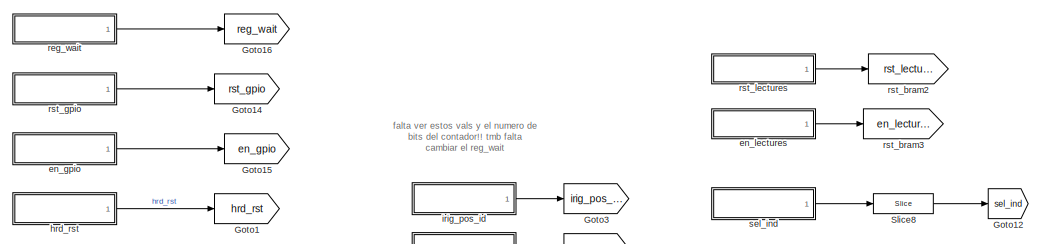
[diagram: root canvas - part 1/9, top left region]
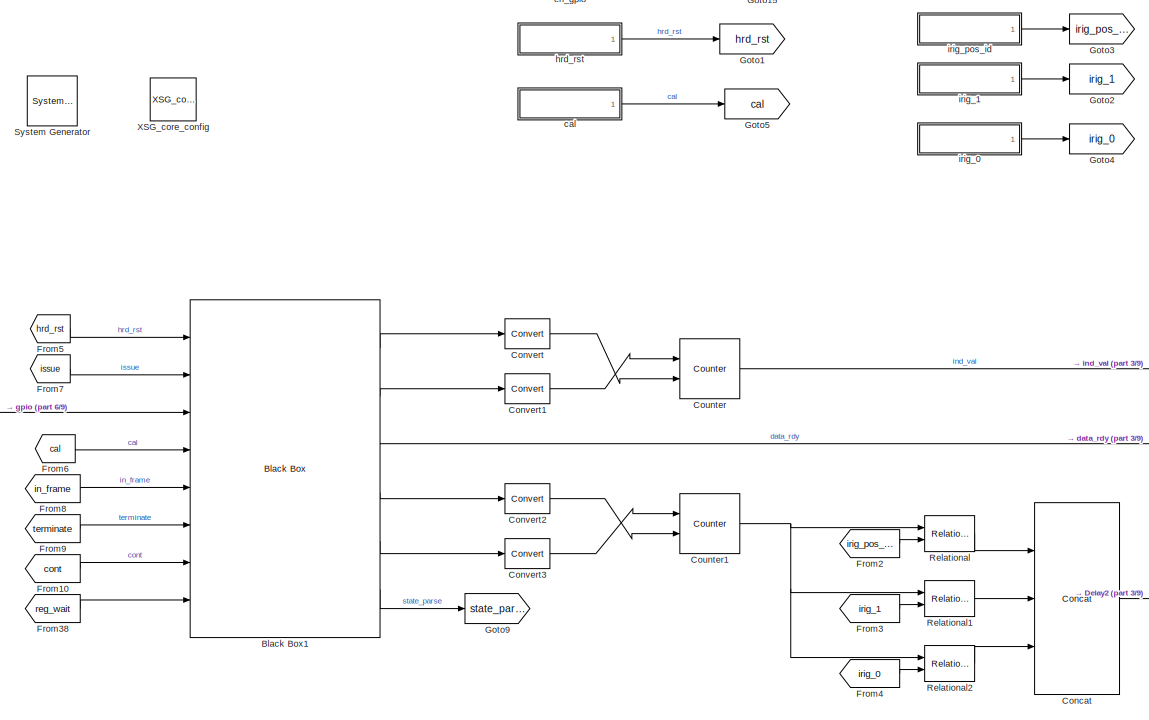
[diagram: root canvas - part 2/9, top left region]
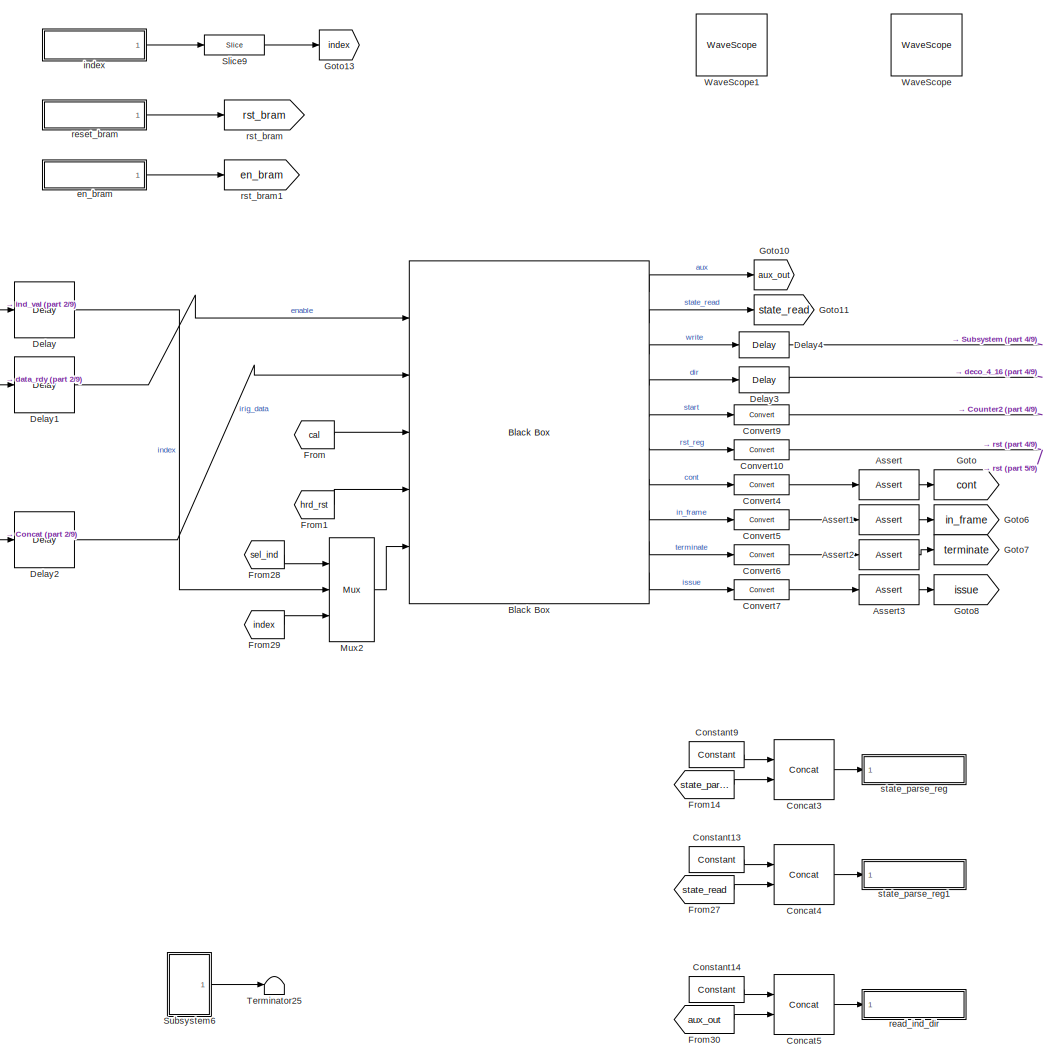
[diagram: root canvas - part 3/9, central region]
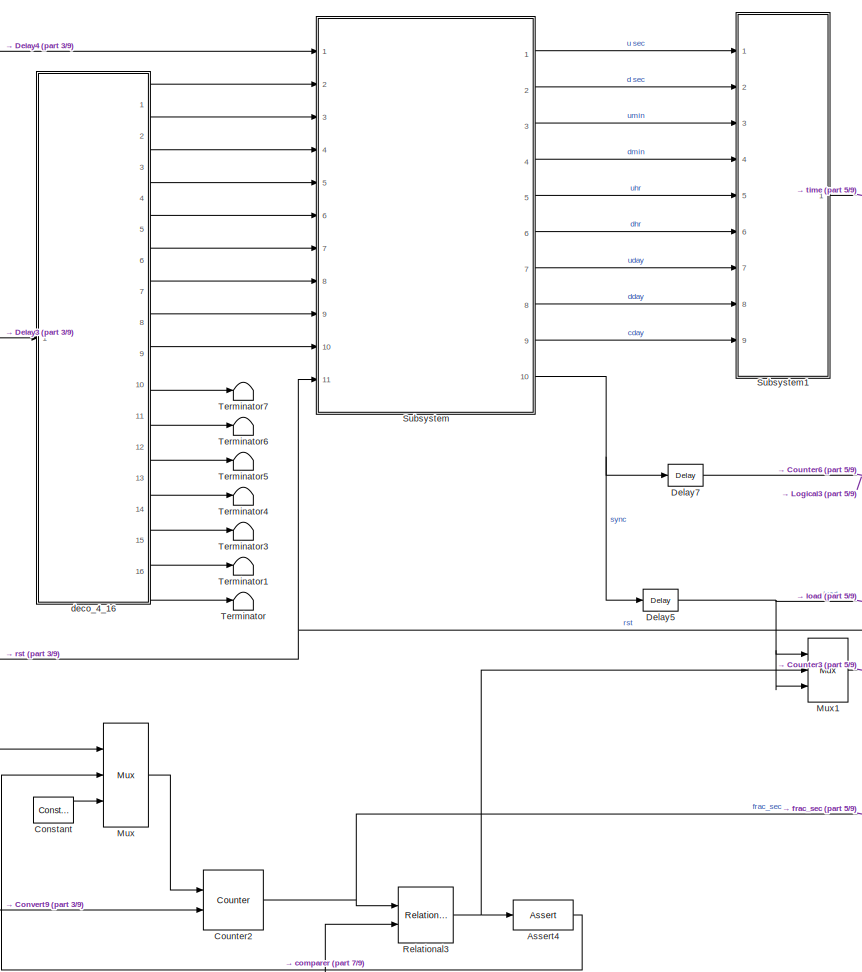
[diagram: root canvas - part 4/9, central region]
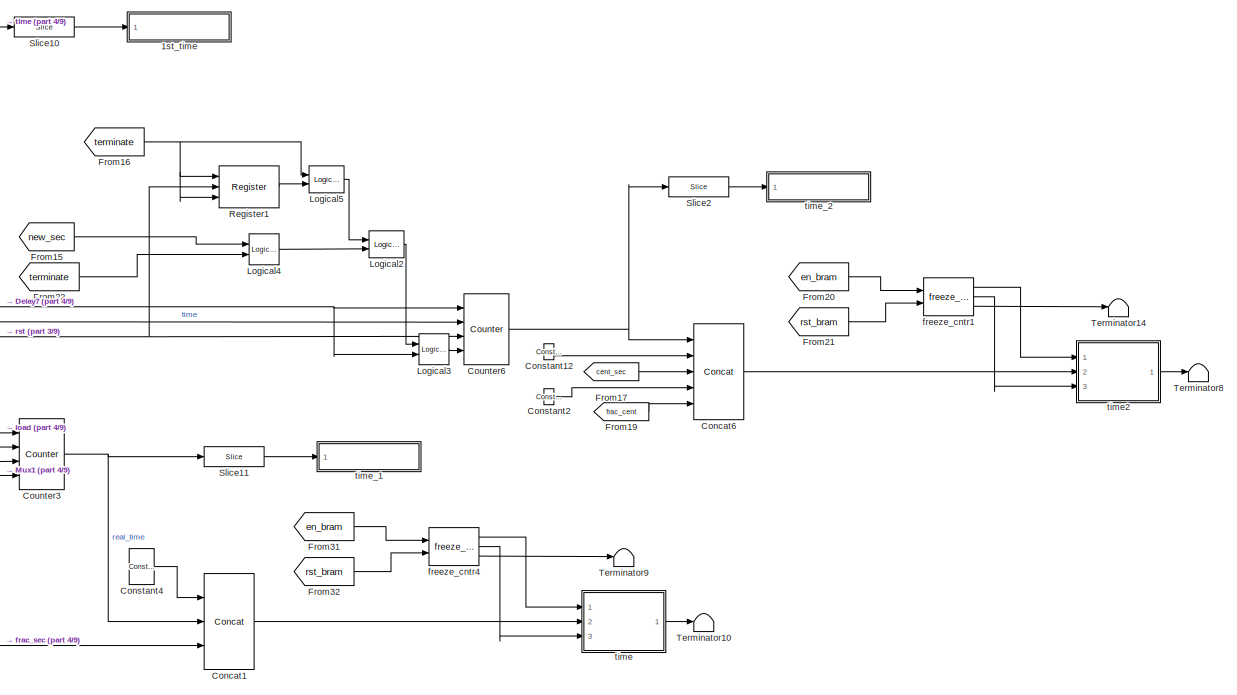
[diagram: root canvas - part 5/9, middle right region]
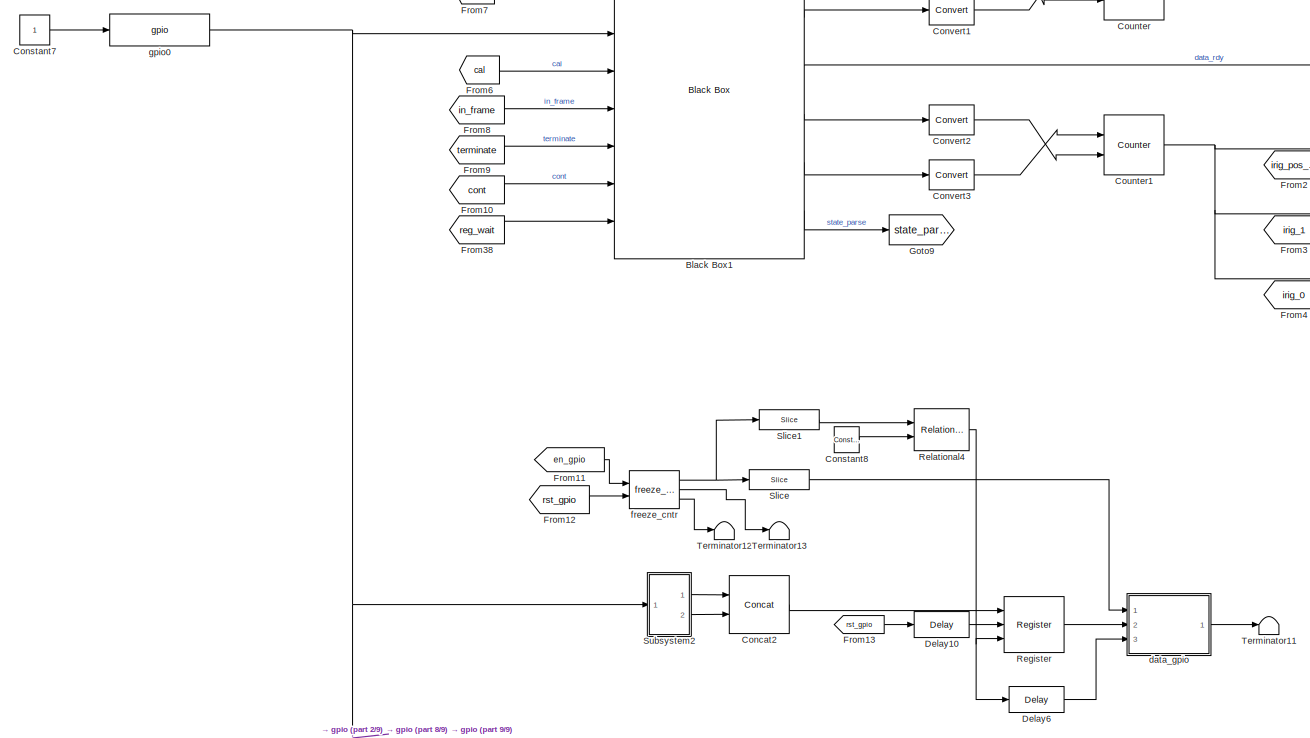
[diagram: root canvas - part 6/9, middle left region]
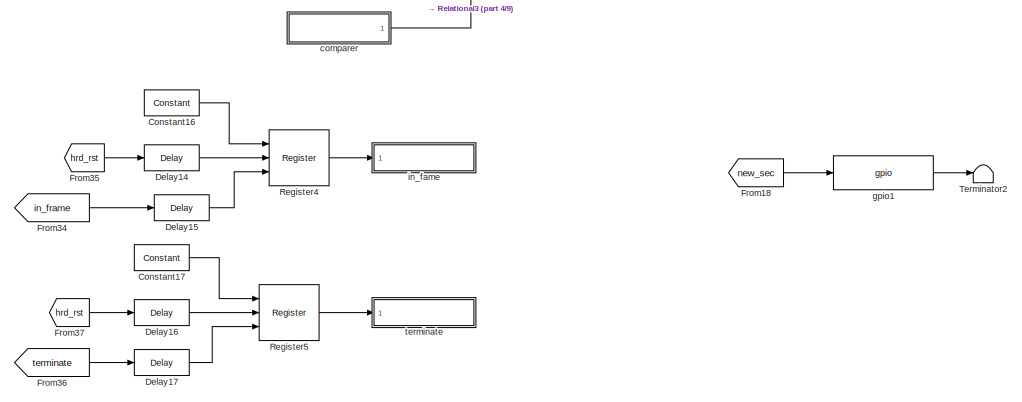
[diagram: root canvas - part 7/9, central region]
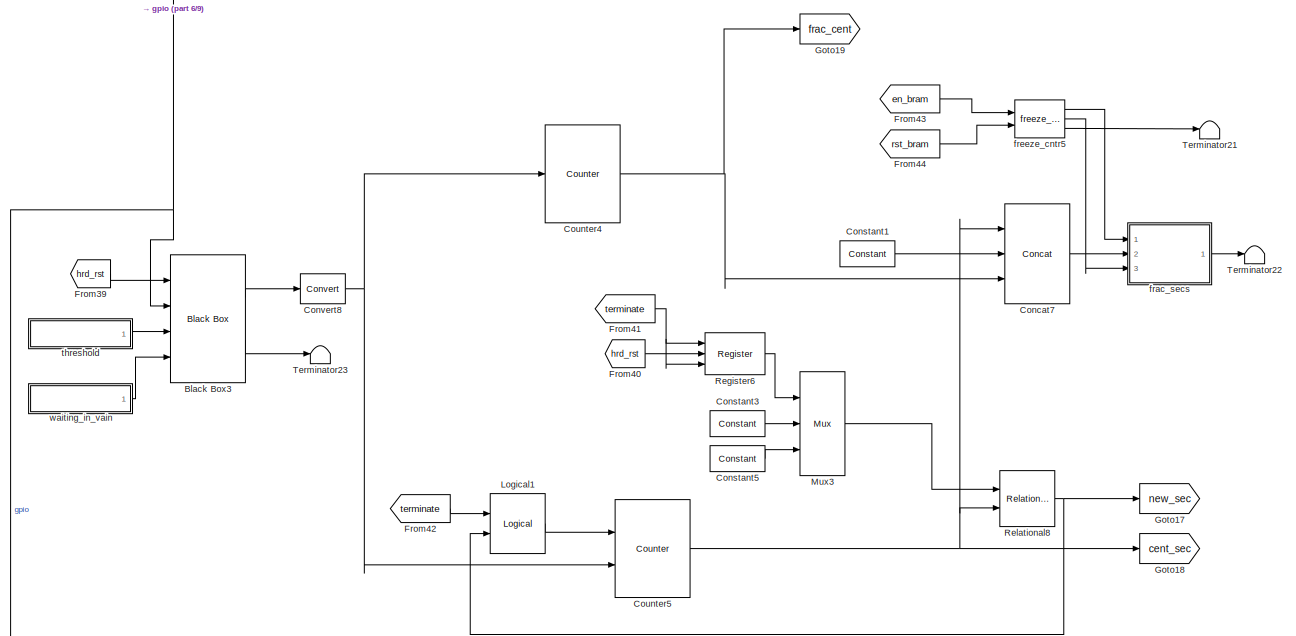
[diagram: root canvas - part 8/9, bottom left region]
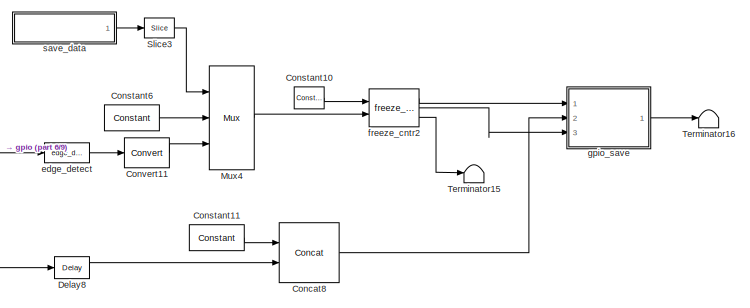
[diagram: root canvas - part 9/9, bottom left region]
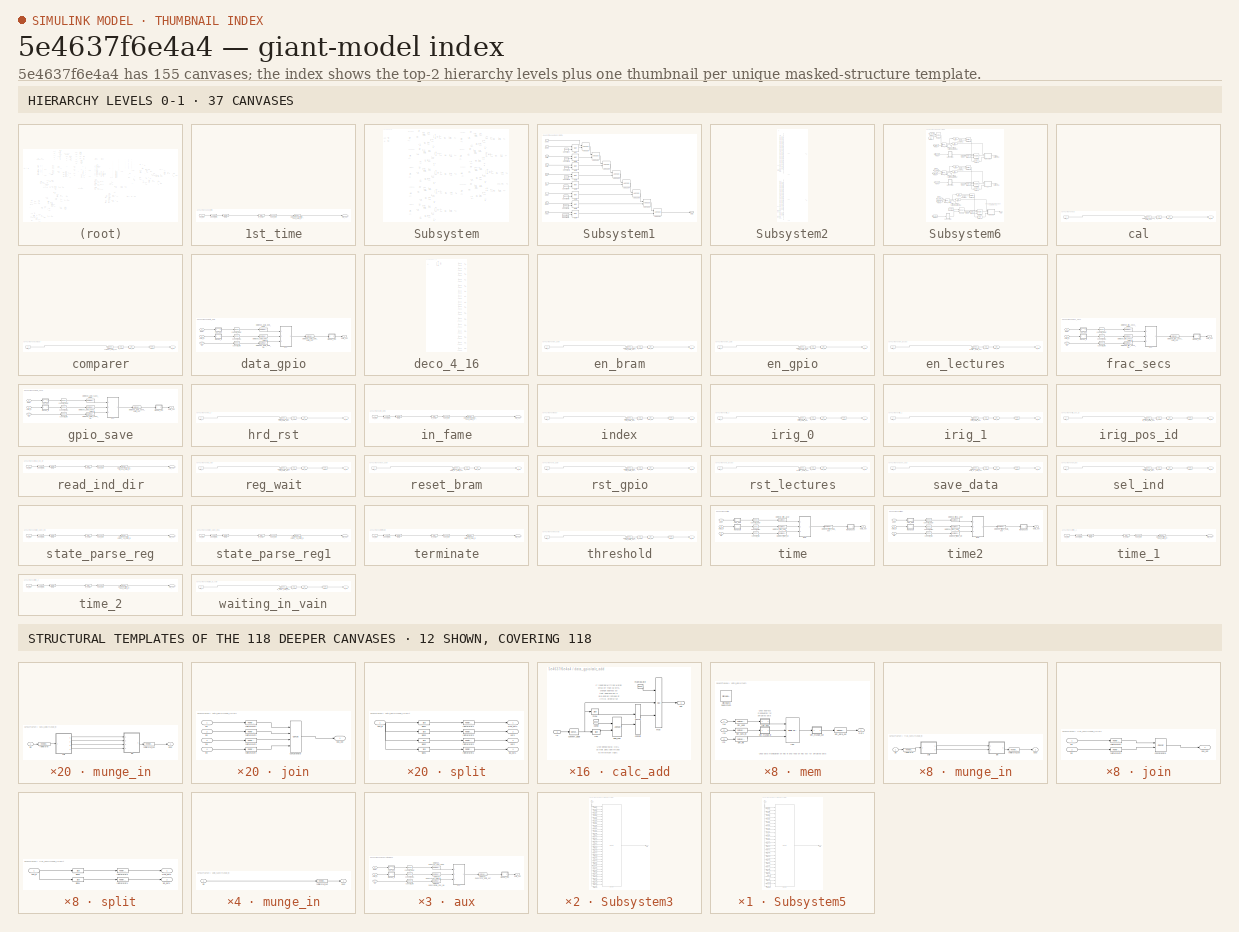
[diagram: thumbnail index - top-2 hierarchy levels (37 canvases) + 12 structural-template representatives of the remaining 118 canvases]
MODEL slx_5e4637f6e4a4
KIND model
BLOCK [Reference]  System Generator  REF=xbsIndex_r4/ System Generator
  AttributesFormatString = System\nGenerator
  Impl_file = ISE Defaults
  Ports = []
  SourceBlock = xbsIndex_r4/ System Generator
  SourceType = Xilinx System Generator Block
  Synth_file = XST Defaults
  Tag = genX
  UserDataPersistent = on
  block_type = sysgen
  clock_wrapper = Clock Enables
  core_generation = According to Block Masks
  dbl_ovrd = According to Block Masks
  dcm_input_clock_period = 100
  deprecated_control = off
  directory = ./prototype/sysgen
  eval_field = 0
  has_advanced_control = 0
  incr_netlist = off
  infoedit = System Generator
  package = ff1759
  part = xc6vsx475t
  proj_type = Project Navigator
  run_coregen = off
  sg_icon_stat = 50,50,0,0,token,white,0,58c5b5770fe5f7c311f53dbc6e73f0f6,right,,[ ],[ ]
  sg_mask_display = fprintf('','COMMENT: begin icon graphics');\npatch([0 50 50 0 0 ],[0 0 50 50 0 ],[1 1 1 ]);\npatch([1.6375 16.81 27.31 37.81 48.31 27.31 12.1375 1.6375 ],[36.655 36.655 47.155 36.655 47.155 47.155 47.155 36.655 ],[0.933333 0.203922 0.141176 ]);\npatch([12.1375 27.31 16.81 1.6375 12.1375 ],[26.155 26.155 36.655 36.655 26.155 ],[0.698039 0.0313725 0.219608 ]);\npatch([1.6375 16.81 27.31 12.1375 1.6375 ]...<+327ch>
  sggui_pos = 326,241,464,470
  simulink_period = 1
  speed = -1
  synthesis_tool = XST
  sysclk_period = 10
  testbench = off
  trim_vbits = Everywhere in SubSystem
  xilinxfamily = virtex6
BLOCK [SubSystem] 1st_time
  AncestorBlock = xps_library/software_register
  AttributesFormatString = 1output:uf32.0 = 32 bits
  FunctionWithSeparateData = off
  MaskHideContents = off
  MinAlgLoopOccurrences = off
  Opaque = off
  Ports = [1]
  PropExecContextOutsideSubsystem = off
  RTWSystemCode = Auto
  RequestExecContextInheritance = off
  Tag = xps:sw_reg
BLOCK [Reference] 1st_time/assert_reg  REF=xbsIndex_r4/Assert
  Ports = [1, 1]
  SourceBlock = xbsIndex_r4/Assert
  SourceType = Xilinx Assert Block
  arith_type = Unsigned
  assert_rate = off
  assert_type = on
  bin_pt = 0
  block_type = assert
  exp_width = 8
  frac_width = 24
  gui_display_data_type = Fixed-point
  has_advanced_control = 0
  infoedit = Asserts a user-defined sample rate and/or type on a signal.<br><br>Hardware notes: In hardware this block costs nothing.
  n_bits = 32
  output_port = on
  period = 1
  preci_type = Single
  rate_source = Explicitly
  sg_icon_stat = 60,30,1,1,white,blue,0,9657e937,right,,[ ],[ ]
  sg_mask_display = fprintf('','COMMENT: begin icon graphics');\npatch([0 60 60 0 0 ],[0 0 30 30 0 ],[0.77 0.82 0.91 ]);\nplot([0 60 60 0 0 ],[0 0 30 30 0 ]);\npatch([21.1 26.88 30.88 34.88 38.88 30.88 25.1 21.1 ],[19.44 19.44 23.44 19.44 23.44 23.44 23.44 19.44 ],[1 1 1 ]);\npatch([25.1 30.88 26.88 21.1 25.1 ],[15.44 15.44 19.44 19.44 15.44 ],[0.931 0.946 0.973 ]);\npatch([21.1 26.88 30.88 25.1 21.1 ],[11.44 11.44 15.44 ...<+289ch>  <repeated x13 — deduplicated; at blocks: assert_reg, Assert, Assert1, Assert2, Assert3, Assert4>
  sggui_pos = -1,-1,-1,-1
  type_source = Explicitly
BLOCK [Reference] 1st_time/cast_gw  REF=xbsIndex_r4/Convert
  Ports = [1, 1]
  SourceBlock = xbsIndex_r4/Convert
  SourceType = Xilinx Type Converter Block
  arith_type = Unsigned
  bin_pt = 0
  block_type = convert
  dbl_ovrd = off
  en = off
  exp_bits = 8
  float_type = Single
  fraction_bits = 24
  gui_display_data_type = Fixed-point
  has_advanced_control = 0
  infoedit = Hardware notes: rounding and saturating require hardware resources; truncating and wrapping do not.
  latency = 0
  n_bits = 32
  overflow = Wrap
  pipeline = off
  quantization = Truncate
  sg_icon_stat = 45,30,1,1,white,blue,0,edca21da,right,,[ ],[ ]
  sg_mask_display = fprintf('','COMMENT: begin icon graphics');\npatch([0 45 45 0 0 ],[0 0 30 30 0 ],[0.77 0.82 0.91 ]);\nplot([0 45 45 0 0 ],[0 0 30 30 0 ]);\npatch([13.1 18.88 22.88 26.88 30.88 22.88 17.1 13.1 ],[19.44 19.44 23.44 19.44 23.44 23.44 23.44 19.44 ],[1 1 1 ]);\npatch([17.1 22.88 18.88 13.1 17.1 ],[15.44 15.44 19.44 19.44 15.44 ],[0.931 0.946 0.973 ]);\npatch([13.1 18.88 22.88 17.1 13.1 ],[11.44 11.44 15.44 ...<+303ch>  <repeated x14 — deduplicated; at blocks: cast_gw, Convert, Convert1, Convert11, Convert2, Convert3, Convert8>
  sggui_pos = -1,-1,-1,-1
  xl_area = [0,0,0,0,0,0,0]
  xl_use_area = off
BLOCK [Reference] 1st_time/io_delay  REF=xbsIndex_r4/Delay
  Ports = [1, 1]
  SourceBlock = xbsIndex_r4/Delay
  SourceType = Xilinx Delay Block
  block_type = delay
  dbl_ovrd = off
  en = off
  has_advanced_control = 0
  infoedit = Hardware notes: A delay line is a chain, each link of which is an SRL16 followed by a flip-flop.
  infoeditControl = Selection of Reset will increase slice count due to use of real FFs and instead of SRLs
  latency = 0
  reg_retiming = on
  rst = off
  sg_icon_stat = 50,20,1,1,white,blue,0,24450e6f,right,,[ ],[ ]
  sg_mask_display = fprintf('','COMMENT: begin icon graphics');\npatch([0 50 50 0 0 ],[0 0 20 20 0 ],[0.77 0.82 0.91 ]);\nplot([0 50 50 0 0 ],[0 0 20 20 0 ]);\npatch([20.55 23.44 25.44 27.44 29.44 25.44 22.55 20.55 ],[12.22 12.22 14.22 12.22 14.22 14.22 14.22 12.22 ],[1 1 1 ]);\npatch([22.55 25.44 23.44 20.55 22.55 ],[10.22 10.22 12.22 12.22 10.22 ],[0.931 0.946 0.973 ]);\npatch([20.55 23.44 25.44 22.55 20.55 ],[8.22 8.22...<+310ch>  <repeated x122 — deduplicated; at blocks: io_delay, slice1, slice2, slice3, slice4>
  sggui_pos = -1,-1,-1,-1
  xl_area = [0,0,0,0,0,0,0]
  xl_use_area = off
BLOCK [Inport] 1st_time/out_reg
  IconDisplay = Port number
BLOCK [Reference] 1st_time/prototype_1st_time_user_data_in  REF=xbsIndex_r4/Gateway Out
  DACChannel = '1'
  LOCs = {}
  Ports = [1, 1]
  SourceBlock = xbsIndex_r4/Gateway Out
  SourceType = Xilinx Gateway Out Block
  UseAsDAC = off
  block_type = gatewayout
  has_advanced_control = 0
  hdl_port = on
  infoedit = Gateway out block.  Converts Xilinx fixed-point or floating-point type inputs into ouputs of type Simulink integer, single, double, or fixed-point.<br><br>Hardware notes:  In hardware these blocks become top level output ports or are discarded, depending on how they are configured.  <repeated x8 — deduplicated; at blocks: prototype_1st_time_user_data_in, prototype_in_fame_user_data_in, prototype_read_ind_dir_user_data_in, prototype_state_parse_reg_user_data_in, prototype_state_parse_reg1_user_data_in, prototype_terminate_user_data_in, prototype_time_1_user_data_in, prototype_time_2_user_data_in>
  inherit_from_input = off
  locs_specified = off
  sg_icon_stat = 60,20,1,1,white,yellow,1,cc31b7ac,right,,[ ],[ ]
  sg_mask_display = fprintf('','COMMENT: begin icon graphics');\npatch([0 60 60 0 0 ],[0 0 20 20 0 ],[0.95 0.93 0.65 ]);\nplot([0 60 60 0 0 ],[0 0 20 20 0 ]);\npatch([25.55 28.44 30.44 32.44 34.44 30.44 27.55 25.55 ],[12.22 12.22 14.22 12.22 14.22 14.22 14.22 12.22 ],[1 1 1 ]);\npatch([27.55 30.44 28.44 25.55 27.55 ],[10.22 10.22 12.22 12.22 10.22 ],[0.985 0.979 0.895 ]);\npatch([25.55 28.44 30.44 27.55 25.55 ],[8.22 8.22...<+384ch>  <repeated x8 — deduplicated; at blocks: prototype_1st_time_user_data_in, prototype_in_fame_user_data_in, prototype_read_ind_dir_user_data_in, prototype_state_parse_reg_user_data_in, prototype_state_parse_reg1_user_data_in, prototype_terminate_user_data_in, prototype_time_1_user_data_in, prototype_time_2_user_data_in>
  sggui_pos = -1,-1,-1,-1
  timing_constraint = None
  xl_area = [0,0,0,0,0,0,0]
  xl_use_area = off
BLOCK [Reference] 1st_time/reint1  REF=xbsIndex_r4/Reinterpret
  Ports = [1, 1]
  SourceBlock = xbsIndex_r4/Reinterpret
  SourceType = Xilinx Type Reinterpreter Block
  arith_type = Unsigned
  bin_pt = 0
  block_type = reinterpret
  force_arith_type = on
  force_bin_pt = on
  has_advanced_control = 0
  infoedit = Changes signal type without altering the binary representation.   You can change the signal between signed and unsigned, and relocate the binary point.<br><br>Hardware notes: In hardware this block costs nothing.<br><br>Example:  Suppose the input is 6 bits wide, signed, with 2 fractional bits, and the output is forced to unsigned with 0 fractional bits.  Then an input of -2.0 (1110.00 in binary 2...<+58ch>  <repeated x214 — deduplicated; at blocks: reint1, reinterpret3, reinterpret4, reinterpret, reinterpret_out, reinterpret1, reinterpret2>
  sg_icon_stat = 50,32,1,1,white,blue,0,6b04d0b0,right,,[ ],[ ]
  sg_mask_display = fprintf('','COMMENT: begin icon graphics');\npatch([0 50 50 0 0 ],[0 0 32 32 0 ],[0.77 0.82 0.91 ]);\nplot([0 50 50 0 0 ],[0 0 32 32 0 ]);\npatch([16.1 21.88 25.88 29.88 33.88 25.88 20.1 16.1 ],[20.44 20.44 24.44 20.44 24.44 24.44 24.44 20.44 ],[1 1 1 ]);\npatch([20.1 25.88 21.88 16.1 20.1 ],[16.44 16.44 20.44 20.44 16.44 ],[0.931 0.946 0.973 ]);\npatch([16.1 21.88 25.88 20.1 16.1 ],[12.44 12.44 16.44 ...<+294ch>  <repeated x18 — deduplicated; at blocks: reint1>
  sggui_pos = -1,-1,-1,-1
BLOCK [Terminator] 1st_time/sim_out
BLOCK [Reference] Assert  REF=xbsIndex_r4/Assert
  Ports = [1, 1]
  SourceBlock = xbsIndex_r4/Assert
  SourceType = Xilinx Assert Block
  arith_type = Boolean
  assert_rate = on
  assert_type = on
  bin_pt = 14
  block_type = assert
  exp_width = 8
  frac_width = 24
  gui_display_data_type = Boolean
  has_advanced_control = 0
  infoedit = Asserts a user-defined sample rate and/or type on a signal.<br><br>Hardware notes: In hardware this block costs nothing.
  n_bits = 16
  output_port = on
  period = 1
  preci_type = Single
  rate_source = Explicitly
  sg_icon_stat = 60,30,1,1,white,blue,0,9657e937,right,,[ ],[ ]
  sggui_pos = 53,14,337,674
  type_source = Explicitly
BLOCK [Reference] Assert1  REF=xbsIndex_r4/Assert
  Ports = [1, 1]
  SourceBlock = xbsIndex_r4/Assert
  SourceType = Xilinx Assert Block
  arith_type = Boolean
  assert_rate = on
  assert_type = on
  bin_pt = 14
  block_type = assert
  exp_width = 8
  frac_width = 24
  gui_display_data_type = Boolean
  has_advanced_control = 0
  infoedit = Asserts a user-defined sample rate and/or type on a signal.<br><br>Hardware notes: In hardware this block costs nothing.
  n_bits = 16
  output_port = on
  period = 1
  preci_type = Single
  rate_source = Explicitly
  sg_icon_stat = 60,30,1,1,white,blue,0,9657e937,right,,[ ],[ ]
  sggui_pos = 73,34,337,674
  type_source = Explicitly
BLOCK [Reference] Assert2  REF=xbsIndex_r4/Assert
  Ports = [1, 1]
  SourceBlock = xbsIndex_r4/Assert
  SourceType = Xilinx Assert Block
  arith_type = Boolean
  assert_rate = on
  assert_type = on
  bin_pt = 14
  block_type = assert
  exp_width = 8
  frac_width = 24
  gui_display_data_type = Boolean
  has_advanced_control = 0
  infoedit = Asserts a user-defined sample rate and/or type on a signal.<br><br>Hardware notes: In hardware this block costs nothing.
  n_bits = 16
  output_port = on
  period = 1
  preci_type = Single
  rate_source = Explicitly
  sg_icon_stat = 60,30,1,1,white,blue,0,9657e937,right,,[ ],[ ]
  sggui_pos = 73,34,337,674
  type_source = Explicitly
BLOCK [Reference] Assert3  REF=xbsIndex_r4/Assert
  Ports = [1, 1]
  SourceBlock = xbsIndex_r4/Assert
  SourceType = Xilinx Assert Block
  arith_type = Boolean
  assert_rate = on
  assert_type = on
  bin_pt = 14
  block_type = assert
  exp_width = 8
  frac_width = 24
  gui_display_data_type = Boolean
  has_advanced_control = 0
  infoedit = Asserts a user-defined sample rate and/or type on a signal.<br><br>Hardware notes: In hardware this block costs nothing.
  n_bits = 16
  output_port = on
  period = 1
  preci_type = Single
  rate_source = Explicitly
  sg_icon_stat = 60,30,1,1,white,blue,0,9657e937,right,,[ ],[ ]
  sggui_pos = 73,34,337,674
  type_source = Explicitly
BLOCK [Reference] Assert4  REF=xbsIndex_r4/Assert
  Ports = [1, 1]
  SourceBlock = xbsIndex_r4/Assert
  SourceType = Xilinx Assert Block
  arith_type = Signed  (2's comp)
  assert_rate = on
  assert_type = off
  bin_pt = 14
  block_type = assert
  exp_width = 8
  frac_width = 24
  gui_display_data_type = Fixed-point
  has_advanced_control = 0
  infoedit = Asserts a user-defined sample rate and/or type on a signal.<br><br>Hardware notes: In hardware this block costs nothing.
  n_bits = 16
  output_port = on
  period = 1
  preci_type = Single
  rate_source = Explicitly
  sg_icon_stat = 60,30,1,1,white,blue,0,9657e937,right,,[ ],[ ]
  sggui_pos = 63,24,337,674
  type_source = Explicitly
BLOCK [Reference] Black Box  REF=xbsIndex_r4/Black Box
  Ports = [5, 10]
  SourceBlock = xbsIndex_r4/Black Box
  SourceType = Xilinx Black Box Block
  block_type = blackbox2
  has_advanced_control = 0
  infoedit = Incorporates black box HDL and simulation model into a System Generator design.<br><br>You must supply a Black Box with certain information about the HDL component you would like to bring into System Generator. This information is provided through a Matlab function.<br><br>When "Simulation mode" is set to "Inactive", you will typically want to provide a separate simulation model by using a Simulat...<+126ch>  <repeated x3 — deduplicated; at blocks: Black Box, Black Box1, Black Box3>
  init_code = irig_read_2_config
  sg_icon_stat = 240,343,5,10,white,blue,0,449fbb23,right,,[ ],[ ]
  sg_mask_display = fprintf('','COMMENT: begin icon graphics');\npatch([0 240 240 0 0 ],[0 0 343 343 0 ],[0.77 0.82 0.91 ]);\nplot([0 240 240 0 0 ],[0 0 343 343 0 ]);\npatch([44.35 93.48 127.48 161.48 195.48 127.48 78.35 44.35 ],[208.74 208.74 242.74 208.74 242.74 242.74 242.74 208.74 ],[1 1 1 ]);\npatch([78.35 127.48 93.48 44.35 78.35 ],[174.74 174.74 208.74 208.74 174.74 ],[0.931 0.946 0.973 ]);\npatch([44.35 93.48 127....<+1022ch>
  sggui_pos = 53,14,416,454
  sim_method = ISE Simulator
  verbose = off
  xl_area = [0,0,0,0,0,0,0]
  xl_use_area = off
BLOCK [Reference] Black Box1  REF=xbsIndex_r4/Black Box
  Ports = [8, 6]
  SourceBlock = xbsIndex_r4/Black Box
  SourceType = Xilinx Black Box Block
  block_type = blackbox2
  has_advanced_control = 0
  init_code = parse_inputs_config
  sg_icon_stat = 190,338,8,6,white,blue,0,665fd9e7,right,,[ ],[ ]
  sg_mask_display = fprintf('','COMMENT: begin icon graphics');\npatch([0 190 190 0 0 ],[0 0 338 338 0 ],[0.77 0.82 0.91 ]);\nplot([0 190 190 0 0 ],[0 0 338 338 0 ]);\npatch([34.925 73.94 100.94 127.94 154.94 100.94 61.925 34.925 ],[198.97 198.97 225.97 198.97 225.97 225.97 225.97 198.97 ],[1 1 1 ]);\npatch([61.925 100.94 73.94 34.925 61.925 ],[171.97 171.97 198.97 198.97 171.97 ],[0.931 0.946 0.973 ]);\npatch([34.925 73....<+998ch>
  sggui_pos = 73,34,416,454
  sim_method = ISE Simulator
  verbose = off
  xl_area = [0,0,0,0,0,0,0]
  xl_use_area = off
BLOCK [Reference] Black Box3  REF=xbsIndex_r4/Black Box
  Ports = [4, 2]
  SourceBlock = xbsIndex_r4/Black Box
  SourceType = Xilinx Black Box Block
  block_type = blackbox2
  has_advanced_control = 0
  init_code = fsm_frac_config
  sg_icon_stat = 75,128,4,2,white,blue,0,63369a8c,right,,[ ],[ ]
  sg_mask_display = fprintf('','COMMENT: begin icon graphics');\npatch([0 75 75 0 0 ],[0 0 128 128 0 ],[0.77 0.82 0.91 ]);\nplot([0 75 75 0 0 ],[0 0 128 128 0 ]);\npatch([14.75 29.2 39.2 49.2 59.2 39.2 24.75 14.75 ],[75.1 75.1 85.1 75.1 85.1 85.1 85.1 75.1 ],[1 1 1 ]);\npatch([24.75 39.2 29.2 14.75 24.75 ],[65.1 65.1 75.1 75.1 65.1 ],[0.931 0.946 0.973 ]);\npatch([14.75 29.2 39.2 24.75 14.75 ],[55.1 55.1 65.1 65.1 55.1 ],...<+528ch>
  sggui_pos = -1,-1,-1,-1
  sim_method = Inactive
  verbose = off
  xl_area = [0,0,0,0,0,0,0]
  xl_use_area = off
BLOCK [Reference] Concat  REF=xbsIndex_r4/Concat
  Ports = [3, 1]
  SourceBlock = xbsIndex_r4/Concat
  SourceType = Xilinx Bus Concatenator Block
  block_type = concat
  dbl_ovrd = off
  has_advanced_control = 0
  infoedit = Concatenates two or more inputs.  Output will be cast to an unsigned value with the binary point at zero.
  num_inputs = 3
  sg_icon_stat = 85,192,3,1,white,blue,0,61ef8218,right,,[ ],[ ]
  sg_mask_display = fprintf('','COMMENT: begin icon graphics');\npatch([0 85 85 0 0 ],[0 0 192 192 0 ],[0.77 0.82 0.91 ]);\nplot([0 85 85 0 0 ],[0 0 192 192 0 ]);\npatch([15.3 32.64 44.64 56.64 68.64 44.64 27.3 15.3 ],[109.32 109.32 121.32 109.32 121.32 121.32 121.32 109.32 ],[1 1 1 ]);\npatch([27.3 44.64 32.64 15.3 27.3 ],[97.32 97.32 109.32 109.32 97.32 ],[0.931 0.946 0.973 ]);\npatch([15.3 32.64 44.64 27.3 15.3 ],[85.3...<+417ch>
  sggui_pos = 73,34,328,208
BLOCK [Reference] Concat1  REF=xbsIndex_r4/Concat
  Ports = [3, 1]
  SourceBlock = xbsIndex_r4/Concat
  SourceType = Xilinx Bus Concatenator Block
  block_type = concat
  dbl_ovrd = off
  has_advanced_control = 0
  infoedit = Concatenates two or more inputs.  Output will be cast to an unsigned value with the binary point at zero.
  num_inputs = 3
  sg_icon_stat = 50,96,3,1,white,blue,0,61ef8218,right,,[ ],[ ]
  sg_mask_display = fprintf('','COMMENT: begin icon graphics');\npatch([0 50 50 0 0 ],[0 0 96 96 0 ],[0.77 0.82 0.91 ]);\nplot([0 50 50 0 0 ],[0 0 96 96 0 ]);\npatch([9.425 19.54 26.54 33.54 40.54 26.54 16.425 9.425 ],[55.77 55.77 62.77 55.77 62.77 62.77 62.77 55.77 ],[1 1 1 ]);\npatch([16.425 26.54 19.54 9.425 16.425 ],[48.77 48.77 55.77 55.77 48.77 ],[0.931 0.946 0.973 ]);\npatch([9.425 19.54 26.54 16.425 9.425 ],[41.77...<+421ch>
  sggui_pos = 73,34,328,208
BLOCK [Reference] Concat2  REF=xbsIndex_r4/Concat
  Ports = [2, 1]
  SourceBlock = xbsIndex_r4/Concat
  SourceType = Xilinx Bus Concatenator Block
  block_type = concat
  dbl_ovrd = off
  has_advanced_control = 0
  infoedit = Concatenates two or more inputs.  Output will be cast to an unsigned value with the binary point at zero.
  num_inputs = 2
  sg_icon_stat = 60,58,2,1,white,blue,0,16398980,right,,[ ],[ ]
  sg_mask_display = fprintf('','COMMENT: begin icon graphics');\npatch([0 60 60 0 0 ],[0 0 58 58 0 ],[0.77 0.82 0.91 ]);\nplot([0 60 60 0 0 ],[0 0 58 58 0 ]);\npatch([12.2 23.76 31.76 39.76 47.76 31.76 20.2 12.2 ],[37.88 37.88 45.88 37.88 45.88 45.88 45.88 37.88 ],[1 1 1 ]);\npatch([20.2 31.76 23.76 12.2 20.2 ],[29.88 29.88 37.88 37.88 29.88 ],[0.931 0.946 0.973 ]);\npatch([12.2 23.76 31.76 20.2 12.2 ],[21.88 21.88 29.88 ...<+402ch>
  sggui_pos = 53,14,328,208
BLOCK [Reference] Concat3  REF=xbsIndex_r4/Concat
  Ports = [2, 1]
  SourceBlock = xbsIndex_r4/Concat
  SourceType = Xilinx Bus Concatenator Block
  block_type = concat
  dbl_ovrd = off
  has_advanced_control = 0
  infoedit = Concatenates two or more inputs.  Output will be cast to an unsigned value with the binary point at zero.
  num_inputs = 2
  sg_icon_stat = 60,60,2,1,white,blue,0,16398980,right,,[ ],[ ]
  sg_mask_display = fprintf('','COMMENT: begin icon graphics');\npatch([0 60 60 0 0 ],[0 0 60 60 0 ],[0.77 0.82 0.91 ]);\nplot([0 60 60 0 0 ],[0 0 60 60 0 ]);\npatch([12.2 23.76 31.76 39.76 47.76 31.76 20.2 12.2 ],[38.88 38.88 46.88 38.88 46.88 46.88 46.88 38.88 ],[1 1 1 ]);\npatch([20.2 31.76 23.76 12.2 20.2 ],[30.88 30.88 38.88 38.88 30.88 ],[0.931 0.946 0.973 ]);\npatch([12.2 23.76 31.76 20.2 12.2 ],[22.88 22.88 30.88 ...<+402ch>  <repeated x5 — deduplicated; at blocks: Concat3, Concat4, Concat5, Concat8>
  sggui_pos = -1,-1,-1,-1
BLOCK [Reference] Concat4  REF=xbsIndex_r4/Concat
  Ports = [2, 1]
  SourceBlock = xbsIndex_r4/Concat
  SourceType = Xilinx Bus Concatenator Block
  block_type = concat
  dbl_ovrd = off
  has_advanced_control = 0
  infoedit = Concatenates two or more inputs.  Output will be cast to an unsigned value with the binary point at zero.
  num_inputs = 2
  sg_icon_stat = 60,60,2,1,white,blue,0,16398980,right,,[ ],[ ]
  sggui_pos = -1,-1,-1,-1
BLOCK [Reference] Concat5  REF=xbsIndex_r4/Concat
  Ports = [2, 1]
  SourceBlock = xbsIndex_r4/Concat
  SourceType = Xilinx Bus Concatenator Block
  block_type = concat
  dbl_ovrd = off
  has_advanced_control = 0
  infoedit = Concatenates two or more inputs.  Output will be cast to an unsigned value with the binary point at zero.
  num_inputs = 2
  sg_icon_stat = 60,60,2,1,white,blue,0,16398980,right,,[ ],[ ]
  sggui_pos = -1,-1,-1,-1
BLOCK [Reference] Concat6  REF=xbsIndex_r4/Concat
  Ports = [5, 1]
  SourceBlock = xbsIndex_r4/Concat
  SourceType = Xilinx Bus Concatenator Block
  block_type = concat
  dbl_ovrd = off
  has_advanced_control = 0
  infoedit = Concatenates two or more inputs.  Output will be cast to an unsigned value with the binary point at zero.
  num_inputs = 5
  sg_icon_stat = 50,96,5,1,white,blue,0,64797e70,right,,[ ],[ ]
  sg_mask_display = fprintf('','COMMENT: begin icon graphics');\npatch([0 50 50 0 0 ],[0 0 96 96 0 ],[0.77 0.82 0.91 ]);\nplot([0 50 50 0 0 ],[0 0 96 96 0 ]);\npatch([9.425 19.54 26.54 33.54 40.54 26.54 16.425 9.425 ],[55.77 55.77 62.77 55.77 62.77 62.77 62.77 55.77 ],[1 1 1 ]);\npatch([16.425 26.54 19.54 9.425 16.425 ],[48.77 48.77 55.77 55.77 48.77 ],[0.931 0.946 0.973 ]);\npatch([9.425 19.54 26.54 16.425 9.425 ],[41.77...<+423ch>
  sggui_pos = 63,24,328,208
BLOCK [Reference] Concat7  REF=xbsIndex_r4/Concat
  Ports = [3, 1]
  SourceBlock = xbsIndex_r4/Concat
  SourceType = Xilinx Bus Concatenator Block
  block_type = concat
  dbl_ovrd = off
  has_advanced_control = 0
  infoedit = Concatenates two or more inputs.  Output will be cast to an unsigned value with the binary point at zero.
  num_inputs = 3
  sg_icon_stat = 65,100,3,1,white,blue,0,61ef8218,right,,[ ],[ ]
  sg_mask_display = fprintf('','COMMENT: begin icon graphics');\npatch([0 65 65 0 0 ],[0 0 100 100 0 ],[0.77 0.82 0.91 ]);\nplot([0 65 65 0 0 ],[0 0 100 100 0 ]);\npatch([11.975 24.98 33.98 42.98 51.98 33.98 20.975 11.975 ],[59.99 59.99 68.99 59.99 68.99 68.99 68.99 59.99 ],[1 1 1 ]);\npatch([20.975 33.98 24.98 11.975 20.975 ],[50.99 50.99 59.99 59.99 50.99 ],[0.931 0.946 0.973 ]);\npatch([11.975 24.98 33.98 20.975 11.975...<+431ch>
  sggui_pos = 73,34,328,208
BLOCK [Reference] Concat8  REF=xbsIndex_r4/Concat
  Ports = [2, 1]
  SourceBlock = xbsIndex_r4/Concat
  SourceType = Xilinx Bus Concatenator Block
  block_type = concat
  dbl_ovrd = off
  has_advanced_control = 0
  infoedit = Concatenates two or more inputs.  Output will be cast to an unsigned value with the binary point at zero.
  num_inputs = 2
  sg_icon_stat = 60,60,2,1,white,blue,0,16398980,right,,[ ],[ ]
  sggui_pos = -1,-1,-1,-1
BLOCK [Reference] Constant  REF=xbsIndex_r4/Constant
  Ports = [0, 1]
  SourceBlock = xbsIndex_r4/Constant
  SourceType = Xilinx Constant Block Block
  arith_type = Boolean
  bin_pt = 14
  block_type = constant
  carry = CIN
  const = 1
  dbl_ovrd = off
  dsp48_infoedit = The use of this block for DSP48 instructions is deprecated.  Please use the Opmode block.
  equ = P=C
  exp_width = 8
  explicit_period = on
  frac_width = 24
  gui_display_data_type = Boolean
  has_advanced_control = 0
  inp1 = P
  inp2 = PCIN>>17
  n_bits = 16
  opr = +
  opselect = C
  period = 1
  preci_type = Single
  sg_icon_stat = 40,26,0,1,white,blue,0,1c72b5be,right,,[ ],[ ]
  sg_mask_display = fprintf('','COMMENT: begin icon graphics');\npatch([0 40 40 0 0 ],[0 0 26 26 0 ],[0.77 0.82 0.91 ]);\nplot([0 40 40 0 0 ],[0 0 26 26 0 ]);\npatch([13.325 17.66 20.66 23.66 26.66 20.66 16.325 13.325 ],[16.33 16.33 19.33 16.33 19.33 19.33 19.33 16.33 ],[1 1 1 ]);\npatch([16.325 20.66 17.66 13.325 16.325 ],[13.33 13.33 16.33 16.33 13.33 ],[0.931 0.946 0.973 ]);\npatch([13.325 17.66 20.66 16.325 13.325 ],[...<+323ch>
  sggui_pos = 73,34,337,463
BLOCK [Reference] Constant1  REF=xbsIndex_r4/Constant
  Ports = [0, 1]
  SourceBlock = xbsIndex_r4/Constant
  SourceType = Xilinx Constant Block Block
  arith_type = Unsigned
  bin_pt = 0
  block_type = constant
  carry = CIN
  const = 0
  dbl_ovrd = off
  dsp48_infoedit = The use of this block for DSP48 instructions is deprecated.  Please use the Opmode block.
  equ = P=C
  exp_width = 8
  explicit_period = on
  frac_width = 24
  gui_display_data_type = Fixed-point
  has_advanced_control = 0
  inp1 = P
  inp2 = PCIN>>17
  n_bits = 24
  opr = +
  opselect = C
  period = 1
  preci_type = Single
  sg_icon_stat = 55,26,0,1,white,blue,0,bf4ddd8b,right,,[ ],[ ]
  sg_mask_display = fprintf('','COMMENT: begin icon graphics');\npatch([0 55 55 0 0 ],[0 0 26 26 0 ],[0.77 0.82 0.91 ]);\nplot([0 55 55 0 0 ],[0 0 26 26 0 ]);\npatch([20.325 24.66 27.66 30.66 33.66 27.66 23.325 20.325 ],[16.33 16.33 19.33 16.33 19.33 19.33 19.33 16.33 ],[1 1 1 ]);\npatch([23.325 27.66 24.66 20.325 23.325 ],[13.33 13.33 16.33 16.33 13.33 ],[0.931 0.946 0.973 ]);\npatch([20.325 24.66 27.66 23.325 20.325 ],[...<+323ch>  <repeated x18 — deduplicated; at blocks: Constant1, Constant11, Constant13, Constant14, Constant16, Constant17, Constant6, Constant9, Constant10, Constant2, Constant3, Constant5, Constant7, Constant8, Constant15>
  sggui_pos = 63,26,344,463
BLOCK [Reference] Constant10  REF=xbsIndex_r4/Constant
  Ports = [0, 1]
  SourceBlock = xbsIndex_r4/Constant
  SourceType = Xilinx Constant Block Block
  arith_type = Boolean
  bin_pt = 14
  block_type = constant
  carry = CIN
  const = 1
  dbl_ovrd = off
  dsp48_infoedit = The use of this block for DSP48 instructions is deprecated.  Please use the Opmode block.
  equ = P=C
  exp_width = 8
  explicit_period = on
  frac_width = 24
  gui_display_data_type = Boolean
  has_advanced_control = 0
  inp1 = P
  inp2 = PCIN>>17
  n_bits = 16
  opr = +
  opselect = C
  period = 1
  preci_type = Single
  sg_icon_stat = 30,22,0,1,white,blue,0,1c72b5be,right,,[ ],[ ]
  sg_mask_display = fprintf('','COMMENT: begin icon graphics');\npatch([0 30 30 0 0 ],[0 0 22 22 0 ],[0.77 0.82 0.91 ]);\nplot([0 30 30 0 0 ],[0 0 22 22 0 ]);\npatch([8.325 12.66 15.66 18.66 21.66 15.66 11.325 8.325 ],[14.33 14.33 17.33 14.33 17.33 17.33 17.33 14.33 ],[1 1 1 ]);\npatch([11.325 15.66 12.66 8.325 11.325 ],[11.33 11.33 14.33 14.33 11.33 ],[0.931 0.946 0.973 ]);\npatch([8.325 12.66 15.66 11.325 8.325 ],[8.33 ...<+311ch>
  sggui_pos = 63,24,337,463
BLOCK [Reference] Constant11  REF=xbsIndex_r4/Constant
  Ports = [0, 1]
  SourceBlock = xbsIndex_r4/Constant
  SourceType = Xilinx Constant Block Block
  arith_type = Unsigned
  bin_pt = 0
  block_type = constant
  carry = CIN
  const = 0
  dbl_ovrd = off
  dsp48_infoedit = The use of this block for DSP48 instructions is deprecated.  Please use the Opmode block.
  equ = P=C
  exp_width = 8
  explicit_period = on
  frac_width = 24
  gui_display_data_type = Fixed-point
  has_advanced_control = 0
  inp1 = P
  inp2 = PCIN>>17
  n_bits = 7
  opr = +
  opselect = C
  period = 1
  preci_type = Single
  sg_icon_stat = 55,26,0,1,white,blue,0,bf4ddd8b,right,,[ ],[ ]
  sggui_pos = 63,24,337,463
BLOCK [Reference] Constant12  REF=xbsIndex_r4/Constant
  Ports = [0, 1]
  SourceBlock = xbsIndex_r4/Constant
  SourceType = Xilinx Constant Block Block
  arith_type = Unsigned
  bin_pt = 0
  block_type = constant
  carry = CIN
  const = 0
  dbl_ovrd = off
  dsp48_infoedit = The use of this block for DSP48 instructions is deprecated.  Please use the Opmode block.
  equ = P=C
  exp_width = 8
  explicit_period = on
  frac_width = 24
  gui_display_data_type = Fixed-point
  has_advanced_control = 0
  inp1 = P
  inp2 = PCIN>>17
  n_bits = 25
  opr = +
  opselect = C
  period = 1
  preci_type = Single
  sg_icon_stat = 10,16,0,1,white,blue,0,bf4ddd8b,right,,[ ],[ ]
  sg_mask_display = fprintf('','COMMENT: begin icon graphics');\npatch([0 10 10 0 0 ],[0 0 16 16 0 ],[0.77 0.82 0.91 ]);\nplot([0 10 10 0 0 ],[0 0 16 16 0 ]);\npatch([2.775 4.22 5.22 6.22 7.22 5.22 3.775 2.775 ],[9.11 9.11 10.11 9.11 10.11 10.11 10.11 9.11 ],[1 1 1 ]);\npatch([3.775 5.22 4.22 2.775 3.775 ],[8.11 8.11 9.11 9.11 8.11 ],[0.931 0.946 0.973 ]);\npatch([2.775 4.22 5.22 3.775 2.775 ],[7.11 7.11 8.11 8.11 7.11 ],...<+281ch>
  sggui_pos = 73,34,337,463
BLOCK [Reference] Constant13  REF=xbsIndex_r4/Constant
  Ports = [0, 1]
  SourceBlock = xbsIndex_r4/Constant
  SourceType = Xilinx Constant Block Block
  arith_type = Unsigned
  bin_pt = 0
  block_type = constant
  carry = CIN
  const = 0
  dbl_ovrd = off
  dsp48_infoedit = The use of this block for DSP48 instructions is deprecated.  Please use the Opmode block.
  equ = P=C
  exp_width = 8
  explicit_period = on
  frac_width = 24
  gui_display_data_type = Fixed-point
  has_advanced_control = 0
  inp1 = P
  inp2 = PCIN>>17
  n_bits = 27
  opr = +
  opselect = C
  period = 1
  preci_type = Single
  sg_icon_stat = 55,26,0,1,white,blue,0,bf4ddd8b,right,,[ ],[ ]
  sggui_pos = 63,24,337,463
BLOCK [Reference] Constant14  REF=xbsIndex_r4/Constant
  Ports = [0, 1]
  SourceBlock = xbsIndex_r4/Constant
  SourceType = Xilinx Constant Block Block
  arith_type = Unsigned
  bin_pt = 0
  block_type = constant
  carry = CIN
  const = 0
  dbl_ovrd = off
  dsp48_infoedit = The use of this block for DSP48 instructions is deprecated.  Please use the Opmode block.
  equ = P=C
  exp_width = 8
  explicit_period = on
  frac_width = 24
  gui_display_data_type = Fixed-point
  has_advanced_control = 0
  inp1 = P
  inp2 = PCIN>>17
  n_bits = 28
  opr = +
  opselect = C
  period = 1
  preci_type = Single
  sg_icon_stat = 55,26,0,1,white,blue,0,bf4ddd8b,right,,[ ],[ ]
  sggui_pos = 63,24,337,463
BLOCK [Reference] Constant16  REF=xbsIndex_r4/Constant
  Ports = [0, 1]
  SourceBlock = xbsIndex_r4/Constant
  SourceType = Xilinx Constant Block Block
  arith_type = Unsigned
  bin_pt = 0
  block_type = constant
  carry = CIN
  const = 1
  dbl_ovrd = off
  dsp48_infoedit = The use of this block for DSP48 instructions is deprecated.  Please use the Opmode block.
  equ = P=C
  exp_width = 8
  explicit_period = on
  frac_width = 24
  gui_display_data_type = Fixed-point
  has_advanced_control = 0
  inp1 = P
  inp2 = PCIN>>17
  n_bits = 32
  opr = +
  opselect = C
  period = 1
  preci_type = Single
  sg_icon_stat = 55,26,0,1,white,blue,0,1c72b5be,right,,[ ],[ ]
  sggui_pos = 63,26,344,463
BLOCK [Reference] Constant17  REF=xbsIndex_r4/Constant
  Ports = [0, 1]
  SourceBlock = xbsIndex_r4/Constant
  SourceType = Xilinx Constant Block Block
  arith_type = Unsigned
  bin_pt = 0
  block_type = constant
  carry = CIN
  const = 1
  dbl_ovrd = off
  dsp48_infoedit = The use of this block for DSP48 instructions is deprecated.  Please use the Opmode block.
  equ = P=C
  exp_width = 8
  explicit_period = on
  frac_width = 24
  gui_display_data_type = Fixed-point
  has_advanced_control = 0
  inp1 = P
  inp2 = PCIN>>17
  n_bits = 32
  opr = +
  opselect = C
  period = 1
  preci_type = Single
  sg_icon_stat = 55,26,0,1,white,blue,0,1c72b5be,right,,[ ],[ ]
  sggui_pos = 63,26,344,463
BLOCK [Reference] Constant2  REF=xbsIndex_r4/Constant
  Ports = [0, 1]
  SourceBlock = xbsIndex_r4/Constant
  SourceType = Xilinx Constant Block Block
  arith_type = Unsigned
  bin_pt = 0
  block_type = constant
  carry = CIN
  const = 0
  dbl_ovrd = off
  dsp48_infoedit = The use of this block for DSP48 instructions is deprecated.  Please use the Opmode block.
  equ = P=C
  exp_width = 8
  explicit_period = on
  frac_width = 24
  gui_display_data_type = Fixed-point
  has_advanced_control = 0
  inp1 = P
  inp2 = PCIN>>17
  n_bits = 28
  opr = +
  opselect = C
  period = 1
  preci_type = Single
  sg_icon_stat = 10,16,0,1,white,blue,0,bf4ddd8b,right,,[ ],[ ]
  sg_mask_display = fprintf('','COMMENT: begin icon graphics');\npatch([0 10 10 0 0 ],[0 0 16 16 0 ],[0.77 0.82 0.91 ]);\nplot([0 10 10 0 0 ],[0 0 16 16 0 ]);\npatch([2.775 4.22 5.22 6.22 7.22 5.22 3.775 2.775 ],[9.11 9.11 10.11 9.11 10.11 10.11 10.11 9.11 ],[1 1 1 ]);\npatch([3.775 5.22 4.22 2.775 3.775 ],[8.11 8.11 9.11 9.11 8.11 ],[0.931 0.946 0.973 ]);\npatch([2.775 4.22 5.22 3.775 2.775 ],[7.11 7.11 8.11 8.11 7.11 ],...<+281ch>
  sggui_pos = 63,24,337,463
BLOCK [Reference] Constant3  REF=xbsIndex_r4/Constant
  Ports = [0, 1]
  SourceBlock = xbsIndex_r4/Constant
  SourceType = Xilinx Constant Block Block
  arith_type = Unsigned
  bin_pt = 0
  block_type = constant
  carry = CIN
  const = 99
  dbl_ovrd = off
  dsp48_infoedit = The use of this block for DSP48 instructions is deprecated.  Please use the Opmode block.
  equ = P=C
  exp_width = 8
  explicit_period = on
  frac_width = 24
  gui_display_data_type = Fixed-point
  has_advanced_control = 0
  inp1 = P
  inp2 = PCIN>>17
  n_bits = 8
  opr = +
  opselect = C
  period = 1
  preci_type = Single
  sg_icon_stat = 55,26,0,1,white,blue,0,58c5c8e2,right,,[ ],[ ]
  sg_mask_display = fprintf('','COMMENT: begin icon graphics');\npatch([0 55 55 0 0 ],[0 0 26 26 0 ],[0.77 0.82 0.91 ]);\nplot([0 55 55 0 0 ],[0 0 26 26 0 ]);\npatch([20.325 24.66 27.66 30.66 33.66 27.66 23.325 20.325 ],[16.33 16.33 19.33 16.33 19.33 19.33 19.33 16.33 ],[1 1 1 ]);\npatch([23.325 27.66 24.66 20.325 23.325 ],[13.33 13.33 16.33 16.33 13.33 ],[0.931 0.946 0.973 ]);\npatch([20.325 24.66 27.66 23.325 20.325 ],[...<+324ch>
  sggui_pos = 53,14,337,463
BLOCK [Reference] Constant4  REF=xbsIndex_r4/Constant
  Ports = [0, 1]
  SourceBlock = xbsIndex_r4/Constant
  SourceType = Xilinx Constant Block Block
  arith_type = Unsigned
  bin_pt = 0
  block_type = constant
  carry = CIN
  const = 0
  dbl_ovrd = off
  dsp48_infoedit = The use of this block for DSP48 instructions is deprecated.  Please use the Opmode block.
  equ = P=C
  exp_width = 8
  explicit_period = on
  frac_width = 24
  gui_display_data_type = Fixed-point
  has_advanced_control = 0
  inp1 = P
  inp2 = PCIN>>17
  n_bits = 1
  opr = +
  opselect = C
  period = 1
  preci_type = Single
  sg_icon_stat = 25,36,0,1,white,blue,0,bf4ddd8b,right,,[ ],[ ]
  sg_mask_display = fprintf('','COMMENT: begin icon graphics');\npatch([0 25 25 0 0 ],[0 0 36 36 0 ],[0.77 0.82 0.91 ]);\nplot([0 25 25 0 0 ],[0 0 36 36 0 ]);\npatch([5.325 9.66 12.66 15.66 18.66 12.66 8.325 5.325 ],[21.33 21.33 24.33 21.33 24.33 24.33 24.33 21.33 ],[1 1 1 ]);\npatch([8.325 12.66 9.66 5.325 8.325 ],[18.33 18.33 21.33 21.33 18.33 ],[0.931 0.946 0.973 ]);\npatch([5.325 9.66 12.66 8.325 5.325 ],[15.33 15.33 ...<+311ch>
  sggui_pos = 53,14,337,463
BLOCK [Reference] Constant5  REF=xbsIndex_r4/Constant
  Ports = [0, 1]
  SourceBlock = xbsIndex_r4/Constant
  SourceType = Xilinx Constant Block Block
  arith_type = Unsigned
  bin_pt = 0
  block_type = constant
  carry = CIN
  const = 100
  dbl_ovrd = off
  dsp48_infoedit = The use of this block for DSP48 instructions is deprecated.  Please use the Opmode block.
  equ = P=C
  exp_width = 8
  explicit_period = on
  frac_width = 24
  gui_display_data_type = Fixed-point
  has_advanced_control = 0
  inp1 = P
  inp2 = PCIN>>17
  n_bits = 8
  opr = +
  opselect = C
  period = 1
  preci_type = Single
  sg_icon_stat = 55,26,0,1,white,blue,0,f430d5a1,right,,[ ],[ ]
  sg_mask_display = fprintf('','COMMENT: begin icon graphics');\npatch([0 55 55 0 0 ],[0 0 26 26 0 ],[0.77 0.82 0.91 ]);\nplot([0 55 55 0 0 ],[0 0 26 26 0 ]);\npatch([20.325 24.66 27.66 30.66 33.66 27.66 23.325 20.325 ],[16.33 16.33 19.33 16.33 19.33 19.33 19.33 16.33 ],[1 1 1 ]);\npatch([23.325 27.66 24.66 20.325 23.325 ],[13.33 13.33 16.33 16.33 13.33 ],[0.931 0.946 0.973 ]);\npatch([20.325 24.66 27.66 23.325 20.325 ],[...<+325ch>
  sggui_pos = 53,14,337,463
BLOCK [Reference] Constant6  REF=xbsIndex_r4/Constant
  Ports = [0, 1]
  SourceBlock = xbsIndex_r4/Constant
  SourceType = Xilinx Constant Block Block
  arith_type = Boolean
  bin_pt = 14
  block_type = constant
  carry = CIN
  const = 0
  dbl_ovrd = off
  dsp48_infoedit = The use of this block for DSP48 instructions is deprecated.  Please use the Opmode block.
  equ = P=C
  exp_width = 8
  explicit_period = on
  frac_width = 24
  gui_display_data_type = Boolean
  has_advanced_control = 0
  inp1 = P
  inp2 = PCIN>>17
  n_bits = 16
  opr = +
  opselect = C
  period = 1
  preci_type = Single
  sg_icon_stat = 55,26,0,1,white,blue,0,bf4ddd8b,right,,[ ],[ ]
  sggui_pos = 73,34,337,463
BLOCK [Constant] Constant7
  OutDataTypeStr = boolean
BLOCK [Reference] Constant8  REF=xbsIndex_r4/Constant
  Ports = [0, 1]
  SourceBlock = xbsIndex_r4/Constant
  SourceType = Xilinx Constant Block Block
  arith_type = Unsigned
  bin_pt = 0
  block_type = constant
  carry = CIN
  const = 127
  dbl_ovrd = off
  dsp48_infoedit = The use of this block for DSP48 instructions is deprecated.  Please use the Opmode block.
  equ = P=C
  exp_width = 8
  explicit_period = on
  frac_width = 24
  gui_display_data_type = Fixed-point
  has_advanced_control = 0
  inp1 = P
  inp2 = PCIN>>17
  n_bits = 7
  opr = +
  opselect = C
  period = 1
  preci_type = Single
  sg_icon_stat = 25,26,0,1,white,blue,0,a8544230,right,,[ ],[ ]
  sg_mask_display = fprintf('','COMMENT: begin icon graphics');\npatch([0 25 25 0 0 ],[0 0 26 26 0 ],[0.77 0.82 0.91 ]);\nplot([0 25 25 0 0 ],[0 0 26 26 0 ]);\npatch([5.325 9.66 12.66 15.66 18.66 12.66 8.325 5.325 ],[16.33 16.33 19.33 16.33 19.33 19.33 19.33 16.33 ],[1 1 1 ]);\npatch([8.325 12.66 9.66 5.325 8.325 ],[13.33 13.33 16.33 16.33 13.33 ],[0.931 0.946 0.973 ]);\npatch([5.325 9.66 12.66 8.325 5.325 ],[10.33 10.33 ...<+309ch>
  sggui_pos = 53,14,337,463
BLOCK [Reference] Constant9  REF=xbsIndex_r4/Constant
  Ports = [0, 1]
  SourceBlock = xbsIndex_r4/Constant
  SourceType = Xilinx Constant Block Block
  arith_type = Unsigned
  bin_pt = 0
  block_type = constant
  carry = CIN
  const = 0
  dbl_ovrd = off
  dsp48_infoedit = The use of this block for DSP48 instructions is deprecated.  Please use the Opmode block.
  equ = P=C
  exp_width = 8
  explicit_period = on
  frac_width = 24
  gui_display_data_type = Fixed-point
  has_advanced_control = 0
  inp1 = P
  inp2 = PCIN>>17
  n_bits = 28
  opr = +
  opselect = C
  period = 1
  preci_type = Single
  sg_icon_stat = 55,26,0,1,white,blue,0,bf4ddd8b,right,,[ ],[ ]
  sggui_pos = 73,34,337,463
BLOCK [Reference] Convert  REF=xbsIndex_r4/Convert
  Ports = [1, 1]
  SourceBlock = xbsIndex_r4/Convert
  SourceType = Xilinx Type Converter Block
  arith_type = Boolean
  bin_pt = 14
  block_type = convert
  dbl_ovrd = off
  en = off
  exp_bits = 8
  float_type = Single
  fraction_bits = 24
  gui_display_data_type = Boolean
  has_advanced_control = 0
  infoedit = Hardware notes: rounding and saturating require hardware resources; truncating and wrapping do not.
  latency = 0
  n_bits = 16
  overflow = Wrap
  pipeline = off
  quantization = Truncate
  sg_icon_stat = 45,30,1,1,white,blue,0,edca21da,right,,[ ],[ ]
  sggui_pos = 73,34,524,624
  xl_area = [0,0,0,0,0,0,0]
  xl_use_area = off
BLOCK [Reference] Convert1  REF=xbsIndex_r4/Convert
  Ports = [1, 1]
  SourceBlock = xbsIndex_r4/Convert
  SourceType = Xilinx Type Converter Block
  arith_type = Boolean
  bin_pt = 14
  block_type = convert
  dbl_ovrd = off
  en = off
  exp_bits = 8
  float_type = Single
  fraction_bits = 24
  gui_display_data_type = Boolean
  has_advanced_control = 0
  infoedit = Hardware notes: rounding and saturating require hardware resources; truncating and wrapping do not.
  latency = 0
  n_bits = 16
  overflow = Wrap
  pipeline = off
  quantization = Truncate
  sg_icon_stat = 45,30,1,1,white,blue,0,edca21da,right,,[ ],[ ]
  sggui_pos = 73,34,524,624
  xl_area = [0,0,0,0,0,0,0]
  xl_use_area = off
BLOCK [Reference] Convert10  REF=xbsIndex_r4/Convert
  Ports = [1, 1]
  SourceBlock = xbsIndex_r4/Convert
  SourceType = Xilinx Type Converter Block
  arith_type = Boolean
  bin_pt = 0
  block_type = convert
  block_version = 11.4
  dbl_ovrd = off
  en = off
  exp_bits = 8
  float_type = Single
  fraction_bits = 24
  gui_display_data_type = Boolean
  has_advanced_control = 0
  infoedit = Hardware notes: rounding and saturating require hardware resources; truncating and wrapping do not.
  latency = 1
  n_bits = 3
  overflow = Wrap
  pipeline = off
  quantization = Truncate
  sg_icon_stat = 55,20,1,1,white,blue,0,0c6bad53,right,,[ ],[ ]
  sg_mask_display = fprintf('','COMMENT: begin icon graphics');\npatch([0 55 55 0 0 ],[0 0 20 20 0 ],[0.77 0.82 0.91 ]);\nplot([0 55 55 0 0 ],[0 0 20 20 0 ]);\npatch([22.55 25.44 27.44 29.44 31.44 27.44 24.55 22.55 ],[12.22 12.22 14.22 12.22 14.22 14.22 14.22 12.22 ],[1 1 1 ]);\npatch([24.55 27.44 25.44 22.55 24.55 ],[10.22 10.22 12.22 12.22 10.22 ],[0.931 0.946 0.973 ]);\npatch([22.55 25.44 27.44 24.55 22.55 ],[8.22 8.22...<+393ch>  <repeated x6 — deduplicated; at blocks: Convert10, Convert4, Convert5, Convert6, Convert7, Convert9>
  sggui_pos = 53,14,636,624
  xl_area = [0,0,0,0,0,0,0]
  xl_use_area = off
BLOCK [Reference] Convert11  REF=xbsIndex_r4/Convert
  Ports = [1, 1]
  SourceBlock = xbsIndex_r4/Convert
  SourceType = Xilinx Type Converter Block
  arith_type = Boolean
  bin_pt = 14
  block_type = convert
  dbl_ovrd = off
  en = off
  exp_bits = 8
  float_type = Single
  fraction_bits = 24
  gui_display_data_type = Boolean
  has_advanced_control = 0
  infoedit = Hardware notes: rounding and saturating require hardware resources; truncating and wrapping do not.
  latency = 0
  n_bits = 16
  overflow = Wrap
  pipeline = off
  quantization = Truncate
  sg_icon_stat = 45,30,1,1,white,blue,0,edca21da,right,,[ ],[ ]
  sggui_pos = 73,34,524,624
  xl_area = [0,0,0,0,0,0,0]
  xl_use_area = off
BLOCK [Reference] Convert2  REF=xbsIndex_r4/Convert
  Ports = [1, 1]
  SourceBlock = xbsIndex_r4/Convert
  SourceType = Xilinx Type Converter Block
  arith_type = Boolean
  bin_pt = 14
  block_type = convert
  dbl_ovrd = off
  en = off
  exp_bits = 8
  float_type = Single
  fraction_bits = 24
  gui_display_data_type = Boolean
  has_advanced_control = 0
  infoedit = Hardware notes: rounding and saturating require hardware resources; truncating and wrapping do not.
  latency = 0
  n_bits = 16
  overflow = Wrap
  pipeline = off
  quantization = Truncate
  sg_icon_stat = 45,30,1,1,white,blue,0,edca21da,right,,[ ],[ ]
  sggui_pos = 73,34,524,624
  xl_area = [0,0,0,0,0,0,0]
  xl_use_area = off
BLOCK [Reference] Convert3  REF=xbsIndex_r4/Convert
  Ports = [1, 1]
  SourceBlock = xbsIndex_r4/Convert
  SourceType = Xilinx Type Converter Block
  arith_type = Boolean
  bin_pt = 14
  block_type = convert
  dbl_ovrd = off
  en = off
  exp_bits = 8
  float_type = Single
  fraction_bits = 24
  gui_display_data_type = Boolean
  has_advanced_control = 0
  infoedit = Hardware notes: rounding and saturating require hardware resources; truncating and wrapping do not.
  latency = 0
  n_bits = 16
  overflow = Wrap
  pipeline = off
  quantization = Truncate
  sg_icon_stat = 45,30,1,1,white,blue,0,edca21da,right,,[ ],[ ]
  sggui_pos = 73,34,524,624
  xl_area = [0,0,0,0,0,0,0]
  xl_use_area = off
BLOCK [Reference] Convert4  REF=xbsIndex_r4/Convert
  Ports = [1, 1]
  SourceBlock = xbsIndex_r4/Convert
  SourceType = Xilinx Type Converter Block
  arith_type = Boolean
  bin_pt = 0
  block_type = convert
  block_version = 11.4
  dbl_ovrd = off
  en = off
  exp_bits = 8
  float_type = Single
  fraction_bits = 24
  gui_display_data_type = Boolean
  has_advanced_control = 0
  infoedit = Hardware notes: rounding and saturating require hardware resources; truncating and wrapping do not.
  latency = 1
  n_bits = 3
  overflow = Wrap
  pipeline = off
  quantization = Truncate
  sg_icon_stat = 55,20,1,1,white,blue,0,0c6bad53,right,,[ ],[ ]
  sggui_pos = 53,14,636,624
  xl_area = [0,0,0,0,0,0,0]
  xl_use_area = off
BLOCK [Reference] Convert5  REF=xbsIndex_r4/Convert
  Ports = [1, 1]
  SourceBlock = xbsIndex_r4/Convert
  SourceType = Xilinx Type Converter Block
  arith_type = Boolean
  bin_pt = 0
  block_type = convert
  block_version = 11.4
  dbl_ovrd = off
  en = off
  exp_bits = 8
  float_type = Single
  fraction_bits = 24
  gui_display_data_type = Boolean
  has_advanced_control = 0
  infoedit = Hardware notes: rounding and saturating require hardware resources; truncating and wrapping do not.
  latency = 1
  n_bits = 3
  overflow = Wrap
  pipeline = off
  quantization = Truncate
  sg_icon_stat = 55,20,1,1,white,blue,0,0c6bad53,right,,[ ],[ ]
  sggui_pos = 53,14,636,624
  xl_area = [0,0,0,0,0,0,0]
  xl_use_area = off
BLOCK [Reference] Convert6  REF=xbsIndex_r4/Convert
  Ports = [1, 1]
  SourceBlock = xbsIndex_r4/Convert
  SourceType = Xilinx Type Converter Block
  arith_type = Boolean
  bin_pt = 0
  block_type = convert
  block_version = 11.4
  dbl_ovrd = off
  en = off
  exp_bits = 8
  float_type = Single
  fraction_bits = 24
  gui_display_data_type = Boolean
  has_advanced_control = 0
  infoedit = Hardware notes: rounding and saturating require hardware resources; truncating and wrapping do not.
  latency = 1
  n_bits = 3
  overflow = Wrap
  pipeline = off
  quantization = Truncate
  sg_icon_stat = 55,20,1,1,white,blue,0,0c6bad53,right,,[ ],[ ]
  sggui_pos = 53,14,636,624
  xl_area = [0,0,0,0,0,0,0]
  xl_use_area = off
BLOCK [Reference] Convert7  REF=xbsIndex_r4/Convert
  Ports = [1, 1]
  SourceBlock = xbsIndex_r4/Convert
  SourceType = Xilinx Type Converter Block
  arith_type = Boolean
  bin_pt = 0
  block_type = convert
  block_version = 11.4
  dbl_ovrd = off
  en = off
  exp_bits = 8
  float_type = Single
  fraction_bits = 24
  gui_display_data_type = Boolean
  has_advanced_control = 0
  infoedit = Hardware notes: rounding and saturating require hardware resources; truncating and wrapping do not.
  latency = 1
  n_bits = 3
  overflow = Wrap
  pipeline = off
  quantization = Truncate
  sg_icon_stat = 55,20,1,1,white,blue,0,0c6bad53,right,,[ ],[ ]
  sggui_pos = 53,14,636,624
  xl_area = [0,0,0,0,0,0,0]
  xl_use_area = off
BLOCK [Reference] Convert8  REF=xbsIndex_r4/Convert
  Ports = [1, 1]
  SourceBlock = xbsIndex_r4/Convert
  SourceType = Xilinx Type Converter Block
  arith_type = Boolean
  bin_pt = 14
  block_type = convert
  dbl_ovrd = off
  en = off
  exp_bits = 8
  float_type = Single
  fraction_bits = 24
  gui_display_data_type = Boolean
  has_advanced_control = 0
  infoedit = Hardware notes: rounding and saturating require hardware resources; truncating and wrapping do not.
  latency = 0
  n_bits = 16
  overflow = Wrap
  pipeline = off
  quantization = Truncate
  sg_icon_stat = 45,30,1,1,white,blue,0,edca21da,right,,[ ],[ ]
  sggui_pos = 73,34,524,624
  xl_area = [0,0,0,0,0,0,0]
  xl_use_area = off
BLOCK [Reference] Convert9  REF=xbsIndex_r4/Convert
  Ports = [1, 1]
  SourceBlock = xbsIndex_r4/Convert
  SourceType = Xilinx Type Converter Block
  arith_type = Boolean
  bin_pt = 0
  block_type = convert
  block_version = 11.4
  dbl_ovrd = off
  en = off
  exp_bits = 8
  float_type = Single
  fraction_bits = 24
  gui_display_data_type = Boolean
  has_advanced_control = 0
  infoedit = Hardware notes: rounding and saturating require hardware resources; truncating and wrapping do not.
  latency = 1
  n_bits = 3
  overflow = Wrap
  pipeline = off
  quantization = Truncate
  sg_icon_stat = 55,20,1,1,white,blue,0,0c6bad53,right,,[ ],[ ]
  sggui_pos = 53,14,636,624
  xl_area = [0,0,0,0,0,0,0]
  xl_use_area = off
BLOCK [Reference] Counter  REF=xbsIndex_r4/Counter
  Ports = [2, 1]
  SourceBlock = xbsIndex_r4/Counter
  SourceType = Xilinx Counter Block
  arith_type = Unsigned
  bin_pt = 0
  block_type = counter
  cnt_by_val = 1
  cnt_to = Inf
  cnt_type = Free Running
  dbl_ovrd = off
  en = on
  explicit_period = on
  has_advanced_control = 0
  implementation = Fabric
  infoedit = Hardware notes: Free running counters are the least expensive in hardware.  A count limited counter is implemented by combining a counter with a comparator.
  load_pin = off
  n_bits = 8
  operation = Up
  period = 1
  rst = on
  sg_icon_stat = 60,60,2,1,white,blue,0,ae3608d6,right,,[ ],[ ]
  sg_mask_display = fprintf('','COMMENT: begin icon graphics');\npatch([0 60 60 0 0 ],[0 0 60 60 0 ],[0.77 0.82 0.91 ]);\nplot([0 60 60 0 0 ],[0 0 60 60 0 ]);\npatch([12.2 23.76 31.76 39.76 47.76 31.76 20.2 12.2 ],[38.88 38.88 46.88 38.88 46.88 46.88 46.88 38.88 ],[1 1 1 ]);\npatch([20.2 31.76 23.76 12.2 20.2 ],[30.88 30.88 38.88 38.88 30.88 ],[0.931 0.946 0.973 ]);\npatch([12.2 23.76 31.76 20.2 12.2 ],[22.88 22.88 30.88 ...<+408ch>  <repeated x12 — deduplicated; at blocks: Counter, Counter1, Counter2, Counter3, Counter4, Counter5, Counter6, Counter7, Counter8>
  sggui_pos = 73,34,416,716
  start_count = 0
  use_behavioral_HDL = off
  xl_area = [0,0,0,0,0,0,0]
  xl_use_area = off
BLOCK [Reference] Counter1  REF=xbsIndex_r4/Counter
  Ports = [2, 1]
  SourceBlock = xbsIndex_r4/Counter
  SourceType = Xilinx Counter Block
  arith_type = Unsigned
  bin_pt = 0
  block_type = counter
  cnt_by_val = 1
  cnt_to = Inf
  cnt_type = Free Running
  dbl_ovrd = off
  en = on
  explicit_period = on
  has_advanced_control = 0
  implementation = Fabric
  infoedit = Hardware notes: Free running counters are the least expensive in hardware.  A count limited counter is implemented by combining a counter with a comparator.
  load_pin = off
  n_bits = 22
  operation = Up
  period = 1
  rst = on
  sg_icon_stat = 60,60,2,1,white,blue,0,ae3608d6,right,,[ ],[ ]
  sggui_pos = 63,24,416,716
  start_count = 0
  use_behavioral_HDL = off
  xl_area = [0,0,0,0,0,0,0]
  xl_use_area = off
BLOCK [Reference] Counter2  REF=xbsIndex_r4/Counter
  Ports = [2, 1]
  SourceBlock = xbsIndex_r4/Counter
  SourceType = Xilinx Counter Block
  arith_type = Unsigned
  bin_pt = 0
  block_type = counter
  cnt_by_val = 1
  cnt_to = Inf
  cnt_type = Free Running
  dbl_ovrd = off
  en = on
  explicit_period = on
  has_advanced_control = 0
  implementation = Fabric
  infoedit = Hardware notes: Free running counters are the least expensive in hardware.  A count limited counter is implemented by combining a counter with a comparator.
  load_pin = off
  n_bits = 28
  operation = Up
  period = 1
  rst = on
  sg_icon_stat = 60,60,2,1,white,blue,0,ae3608d6,right,,[ ],[ ]
  sggui_pos = 57,19,420,716
  start_count = 0
  use_behavioral_HDL = off
  xl_area = [0,0,0,0,0,0,0]
  xl_use_area = off
BLOCK [Reference] Counter3  REF=xbsIndex_r4/Counter
  Ports = [4, 1]
  SourceBlock = xbsIndex_r4/Counter
  SourceType = Xilinx Counter Block
  arith_type = Unsigned
  bin_pt = 0
  block_type = counter
  cnt_by_val = 1
  cnt_to = Inf
  cnt_type = Free Running
  dbl_ovrd = off
  en = on
  explicit_period = on
  has_advanced_control = 0
  implementation = Fabric
  infoedit = Hardware notes: Free running counters are the least expensive in hardware.  A count limited counter is implemented by combining a counter with a comparator.
  load_pin = on
  n_bits = 35
  operation = Up
  period = 1
  rst = on
  sg_icon_stat = 45,71,4,1,white,blue,0,cf0879bb,right,,[ ],[ ]
  sg_mask_display = fprintf('','COMMENT: begin icon graphics');\npatch([0 45 45 0 0 ],[0 0 71 71 0 ],[0.77 0.82 0.91 ]);\nplot([0 45 45 0 0 ],[0 0 71 71 0 ]);\npatch([8.65 17.32 23.32 29.32 35.32 23.32 14.65 8.65 ],[41.66 41.66 47.66 41.66 47.66 47.66 47.66 41.66 ],[1 1 1 ]);\npatch([14.65 23.32 17.32 8.65 14.65 ],[35.66 35.66 41.66 41.66 35.66 ],[0.931 0.946 0.973 ]);\npatch([8.65 17.32 23.32 14.65 8.65 ],[29.66 29.66 35...<+503ch>
  sggui_pos = 53,14,416,716
  start_count = 0
  use_behavioral_HDL = off
  xl_area = [0,0,0,0,0,0,0]
  xl_use_area = off
BLOCK [Reference] Counter4  REF=xbsIndex_r4/Counter
  Ports = [1, 1]
  SourceBlock = xbsIndex_r4/Counter
  SourceType = Xilinx Counter Block
  arith_type = Unsigned
  bin_pt = 0
  block_type = counter
  cnt_by_val = 1
  cnt_to = Inf
  cnt_type = Free Running
  dbl_ovrd = off
  en = off
  explicit_period = on
  has_advanced_control = 0
  implementation = Fabric
  infoedit = Hardware notes: Free running counters are the least expensive in hardware.  A count limited counter is implemented by combining a counter with a comparator.
  load_pin = off
  n_bits = 32
  operation = Up
  period = 1
  rst = on
  sg_icon_stat = 75,98,1,1,white,blue,0,803eba70,right,,[ ],[ ]
  sg_mask_display = fprintf('','COMMENT: begin icon graphics');\npatch([0 75 75 0 0 ],[0 0 98 98 0 ],[0.77 0.82 0.91 ]);\nplot([0 75 75 0 0 ],[0 0 98 98 0 ]);\npatch([14.75 29.2 39.2 49.2 59.2 39.2 24.75 14.75 ],[60.1 60.1 70.1 60.1 70.1 70.1 70.1 60.1 ],[1 1 1 ]);\npatch([24.75 39.2 29.2 14.75 24.75 ],[50.1 50.1 60.1 60.1 50.1 ],[0.931 0.946 0.973 ]);\npatch([14.75 29.2 39.2 24.75 14.75 ],[40.1 40.1 50.1 50.1 40.1 ],[1 1...<+339ch>
  sggui_pos = 53,14,416,716
  start_count = 0
  use_behavioral_HDL = off
  xl_area = [0,0,0,0,0,0,0]
  xl_use_area = off
BLOCK [Reference] Counter5  REF=xbsIndex_r4/Counter
  Ports = [2, 1]
  SourceBlock = xbsIndex_r4/Counter
  SourceType = Xilinx Counter Block
  arith_type = Unsigned
  bin_pt = 0
  block_type = counter
  cnt_by_val = 1
  cnt_to = Inf
  cnt_type = Free Running
  dbl_ovrd = off
  en = on
  explicit_period = on
  has_advanced_control = 0
  implementation = Fabric
  infoedit = Hardware notes: Free running counters are the least expensive in hardware.  A count limited counter is implemented by combining a counter with a comparator.
  load_pin = off
  n_bits = 8
  operation = Up
  period = 1
  rst = on
  sg_icon_stat = 75,98,2,1,white,blue,0,ae3608d6,right,,[ ],[ ]
  sg_mask_display = fprintf('','COMMENT: begin icon graphics');\npatch([0 75 75 0 0 ],[0 0 98 98 0 ],[0.77 0.82 0.91 ]);\nplot([0 75 75 0 0 ],[0 0 98 98 0 ]);\npatch([14.75 29.2 39.2 49.2 59.2 39.2 24.75 14.75 ],[60.1 60.1 70.1 60.1 70.1 70.1 70.1 60.1 ],[1 1 1 ]);\npatch([24.75 39.2 29.2 14.75 24.75 ],[50.1 50.1 60.1 60.1 50.1 ],[0.931 0.946 0.973 ]);\npatch([14.75 29.2 39.2 24.75 14.75 ],[40.1 40.1 50.1 50.1 40.1 ],[1 1...<+382ch>
  sggui_pos = 53,14,416,716
  start_count = 0
  use_behavioral_HDL = off
  xl_area = [0,0,0,0,0,0,0]
  xl_use_area = off
BLOCK [Reference] Counter6  REF=xbsIndex_r4/Counter
  Ports = [4, 1]
  SourceBlock = xbsIndex_r4/Counter
  SourceType = Xilinx Counter Block
  arith_type = Unsigned
  bin_pt = 0
  block_type = counter
  cnt_by_val = 1
  cnt_to = Inf
  cnt_type = Free Running
  dbl_ovrd = off
  en = on
  explicit_period = on
  has_advanced_control = 0
  implementation = Fabric
  infoedit = Hardware notes: Free running counters are the least expensive in hardware.  A count limited counter is implemented by combining a counter with a comparator.
  load_pin = on
  n_bits = 35
  operation = Up
  period = 1
  rst = on
  sg_icon_stat = 45,71,4,1,white,blue,0,cf0879bb,right,,[ ],[ ]
  sg_mask_display = fprintf('','COMMENT: begin icon graphics');\npatch([0 45 45 0 0 ],[0 0 71 71 0 ],[0.77 0.82 0.91 ]);\nplot([0 45 45 0 0 ],[0 0 71 71 0 ]);\npatch([8.65 17.32 23.32 29.32 35.32 23.32 14.65 8.65 ],[41.66 41.66 47.66 41.66 47.66 47.66 47.66 41.66 ],[1 1 1 ]);\npatch([14.65 23.32 17.32 8.65 14.65 ],[35.66 35.66 41.66 41.66 35.66 ],[0.931 0.946 0.973 ]);\npatch([8.65 17.32 23.32 14.65 8.65 ],[29.66 29.66 35...<+503ch>
  sggui_pos = 57,19,420,716
  start_count = 0
  use_behavioral_HDL = off
  xl_area = [0,0,0,0,0,0,0]
  xl_use_area = off
BLOCK [Reference] Delay  REF=xbsIndex_r4/Delay
  Ports = [1, 1]
  SourceBlock = xbsIndex_r4/Delay
  SourceType = Xilinx Delay Block
  block_type = delay
  dbl_ovrd = off
  en = off
  has_advanced_control = 0
  infoedit = Hardware notes: A delay line is a chain, each link of which is an SRL16 followed by a flip-flop.
  infoeditControl = Selection of Reset will increase slice count due to use of real FFs and instead of SRLs
  latency = 1
  reg_retiming = off
  rst = off
  sg_icon_stat = 60,56,1,1,white,blue,0,07b98262,right,,[ ],[ ]
  sg_mask_display = fprintf('','COMMENT: begin icon graphics');\npatch([0 60 60 0 0 ],[0 0 56 56 0 ],[0.77 0.82 0.91 ]);\nplot([0 60 60 0 0 ],[0 0 56 56 0 ]);\npatch([12.2 23.76 31.76 39.76 47.76 31.76 20.2 12.2 ],[36.88 36.88 44.88 36.88 44.88 44.88 44.88 36.88 ],[1 1 1 ]);\npatch([20.2 31.76 23.76 12.2 20.2 ],[28.88 28.88 36.88 36.88 28.88 ],[0.931 0.946 0.973 ]);\npatch([12.2 23.76 31.76 20.2 12.2 ],[20.88 20.88 28.88 ...<+308ch>  <repeated x12 — deduplicated; at blocks: Delay, Delay1, Delay2, Delay10, Delay12, Delay14, Delay16, Delay4, Delay6, Delay8>
  sggui_pos = 53,14,416,361
  xl_area = [0,0,0,0,0,0,0]
  xl_use_area = off
BLOCK [Reference] Delay1  REF=xbsIndex_r4/Delay
  Ports = [1, 1]
  SourceBlock = xbsIndex_r4/Delay
  SourceType = Xilinx Delay Block
  block_type = delay
  dbl_ovrd = off
  en = off
  has_advanced_control = 0
  infoedit = Hardware notes: A delay line is a chain, each link of which is an SRL16 followed by a flip-flop.
  infoeditControl = Selection of Reset will increase slice count due to use of real FFs and instead of SRLs
  latency = 0
  reg_retiming = off
  rst = off
  sg_icon_stat = 60,56,1,1,white,blue,0,24450e6f,right,,[ ],[ ]
  sggui_pos = 63,24,416,361
  xl_area = [0,0,0,0,0,0,0]
  xl_use_area = off
BLOCK [Reference] Delay10  REF=xbsIndex_r4/Delay
  Ports = [1, 1]
  SourceBlock = xbsIndex_r4/Delay
  SourceType = Xilinx Delay Block
  block_type = delay
  dbl_ovrd = off
  en = off
  has_advanced_control = 0
  infoedit = Hardware notes: A delay line is a chain, each link of which is an SRL16 followed by a flip-flop.
  infoeditControl = Selection of Reset will increase slice count due to use of real FFs and instead of SRLs
  latency = 1
  reg_retiming = off
  rst = off
  sg_icon_stat = 55,26,1,1,white,blue,0,07b98262,right,,[ ],[ ]
  sg_mask_display = fprintf('','COMMENT: begin icon graphics');\npatch([0 55 55 0 0 ],[0 0 26 26 0 ],[0.77 0.82 0.91 ]);\nplot([0 55 55 0 0 ],[0 0 26 26 0 ]);\npatch([20.325 24.66 27.66 30.66 33.66 27.66 23.325 20.325 ],[16.33 16.33 19.33 16.33 19.33 19.33 19.33 16.33 ],[1 1 1 ]);\npatch([23.325 27.66 24.66 20.325 23.325 ],[13.33 13.33 16.33 16.33 13.33 ],[0.931 0.946 0.973 ]);\npatch([20.325 24.66 27.66 23.325 20.325 ],[...<+328ch>  <repeated x12 — deduplicated; at blocks: Delay10, Delay14, Delay15, Delay16, Delay17, Delay6, Delay11, Delay12, Delay13, Delay18, Delay8, Delay9>
  sggui_pos = -1,-1,-1,-1
  xl_area = [0,0,0,0,0,0,0]
  xl_use_area = off
BLOCK [Reference] Delay14  REF=xbsIndex_r4/Delay
  Ports = [1, 1]
  SourceBlock = xbsIndex_r4/Delay
  SourceType = Xilinx Delay Block
  block_type = delay
  dbl_ovrd = off
  en = off
  has_advanced_control = 0
  infoedit = Hardware notes: A delay line is a chain, each link of which is an SRL16 followed by a flip-flop.
  infoeditControl = Selection of Reset will increase slice count due to use of real FFs and instead of SRLs
  latency = 1
  reg_retiming = off
  rst = off
  sg_icon_stat = 55,26,1,1,white,blue,0,07b98262,right,,[ ],[ ]
  sggui_pos = -1,-1,-1,-1
  xl_area = [0,0,0,0,0,0,0]
  xl_use_area = off
BLOCK [Reference] Delay15  REF=xbsIndex_r4/Delay
  Ports = [1, 1]
  SourceBlock = xbsIndex_r4/Delay
  SourceType = Xilinx Delay Block
  block_type = delay
  dbl_ovrd = off
  en = off
  has_advanced_control = 0
  infoedit = Hardware notes: A delay line is a chain, each link of which is an SRL16 followed by a flip-flop.
  infoeditControl = Selection of Reset will increase slice count due to use of real FFs and instead of SRLs
  latency = 1
  reg_retiming = off
  rst = off
  sg_icon_stat = 55,26,1,1,white,blue,0,07b98262,right,,[ ],[ ]
  sggui_pos = -1,-1,-1,-1
  xl_area = [0,0,0,0,0,0,0]
  xl_use_area = off
BLOCK [Reference] Delay16  REF=xbsIndex_r4/Delay
  Ports = [1, 1]
  SourceBlock = xbsIndex_r4/Delay
  SourceType = Xilinx Delay Block
  block_type = delay
  dbl_ovrd = off
  en = off
  has_advanced_control = 0
  infoedit = Hardware notes: A delay line is a chain, each link of which is an SRL16 followed by a flip-flop.
  infoeditControl = Selection of Reset will increase slice count due to use of real FFs and instead of SRLs
  latency = 1
  reg_retiming = off
  rst = off
  sg_icon_stat = 55,26,1,1,white,blue,0,07b98262,right,,[ ],[ ]
  sggui_pos = -1,-1,-1,-1
  xl_area = [0,0,0,0,0,0,0]
  xl_use_area = off
BLOCK [Reference] Delay17  REF=xbsIndex_r4/Delay
  Ports = [1, 1]
  SourceBlock = xbsIndex_r4/Delay
  SourceType = Xilinx Delay Block
  block_type = delay
  dbl_ovrd = off
  en = off
  has_advanced_control = 0
  infoedit = Hardware notes: A delay line is a chain, each link of which is an SRL16 followed by a flip-flop.
  infoeditControl = Selection of Reset will increase slice count due to use of real FFs and instead of SRLs
  latency = 1
  reg_retiming = off
  rst = off
  sg_icon_stat = 55,26,1,1,white,blue,0,07b98262,right,,[ ],[ ]
  sggui_pos = -1,-1,-1,-1
  xl_area = [0,0,0,0,0,0,0]
  xl_use_area = off
BLOCK [Reference] Delay2  REF=xbsIndex_r4/Delay
  Ports = [1, 1]
  SourceBlock = xbsIndex_r4/Delay
  SourceType = Xilinx Delay Block
  block_type = delay
  dbl_ovrd = off
  en = off
  has_advanced_control = 0
  infoedit = Hardware notes: A delay line is a chain, each link of which is an SRL16 followed by a flip-flop.
  infoeditControl = Selection of Reset will increase slice count due to use of real FFs and instead of SRLs
  latency = 4
  reg_retiming = off
  rst = off
  sg_icon_stat = 60,56,1,1,white,blue,0,d390c2d8,right,,[ ],[ ]
  sggui_pos = 63,24,416,361
  xl_area = [0,0,0,0,0,0,0]
  xl_use_area = off
BLOCK [Reference] Delay3  REF=xbsIndex_r4/Delay
  Ports = [1, 1]
  SourceBlock = xbsIndex_r4/Delay
  SourceType = Xilinx Delay Block
  block_type = delay
  dbl_ovrd = off
  en = off
  has_advanced_control = 0
  infoedit = Hardware notes: A delay line is a chain, each link of which is an SRL16 followed by a flip-flop.
  infoeditControl = Selection of Reset will increase slice count due to use of real FFs and instead of SRLs
  latency = 1
  reg_retiming = off
  rst = off
  sg_icon_stat = 50,26,1,1,white,blue,0,07b98262,right,,[ ],[ ]
  sg_mask_display = fprintf('','COMMENT: begin icon graphics');\npatch([0 50 50 0 0 ],[0 0 26 26 0 ],[0.77 0.82 0.91 ]);\nplot([0 50 50 0 0 ],[0 0 26 26 0 ]);\npatch([18.325 22.66 25.66 28.66 31.66 25.66 21.325 18.325 ],[16.33 16.33 19.33 16.33 19.33 19.33 19.33 16.33 ],[1 1 1 ]);\npatch([21.325 25.66 22.66 18.325 21.325 ],[13.33 13.33 16.33 16.33 13.33 ],[0.931 0.946 0.973 ]);\npatch([18.325 22.66 25.66 21.325 18.325 ],[...<+328ch>
  sggui_pos = -1,-1,-1,-1
  xl_area = [0,0,0,0,0,0,0]
  xl_use_area = off
BLOCK [Reference] Delay4  REF=xbsIndex_r4/Delay
  Ports = [1, 1]
  SourceBlock = xbsIndex_r4/Delay
  SourceType = Xilinx Delay Block
  block_type = delay
  dbl_ovrd = off
  en = off
  has_advanced_control = 0
  infoedit = Hardware notes: A delay line is a chain, each link of which is an SRL16 followed by a flip-flop.
  infoeditControl = Selection of Reset will increase slice count due to use of real FFs and instead of SRLs
  latency = 1
  reg_retiming = off
  rst = off
  sg_icon_stat = 50,26,1,1,white,blue,0,07b98262,right,,[ ],[ ]
  sg_mask_display = fprintf('','COMMENT: begin icon graphics');\npatch([0 50 50 0 0 ],[0 0 26 26 0 ],[0.77 0.82 0.91 ]);\nplot([0 50 50 0 0 ],[0 0 26 26 0 ]);\npatch([18.325 22.66 25.66 28.66 31.66 25.66 21.325 18.325 ],[16.33 16.33 19.33 16.33 19.33 19.33 19.33 16.33 ],[1 1 1 ]);\npatch([21.325 25.66 22.66 18.325 21.325 ],[13.33 13.33 16.33 16.33 13.33 ],[0.931 0.946 0.973 ]);\npatch([18.325 22.66 25.66 21.325 18.325 ],[...<+328ch>
  sggui_pos = -1,-1,-1,-1
  xl_area = [0,0,0,0,0,0,0]
  xl_use_area = off
BLOCK [Reference] Delay5  REF=xbsIndex_r4/Delay
  Ports = [1, 1]
  SourceBlock = xbsIndex_r4/Delay
  SourceType = Xilinx Delay Block
  block_type = delay
  dbl_ovrd = off
  en = off
  has_advanced_control = 0
  infoedit = Hardware notes: A delay line is a chain, each link of which is an SRL16 followed by a flip-flop.
  infoeditControl = Selection of Reset will increase slice count due to use of real FFs and instead of SRLs
  latency = 9
  reg_retiming = off
  rst = off
  sg_icon_stat = 35,22,1,1,white,blue,0,c2fef566,right,,[ ],[ ]
  sg_mask_display = fprintf('','COMMENT: begin icon graphics');\npatch([0 35 35 0 0 ],[0 0 22 22 0 ],[0.77 0.82 0.91 ]);\nplot([0 35 35 0 0 ],[0 0 22 22 0 ]);\npatch([10.325 14.66 17.66 20.66 23.66 17.66 13.325 10.325 ],[14.33 14.33 17.33 14.33 17.33 17.33 17.33 14.33 ],[1 1 1 ]);\npatch([13.325 17.66 14.66 10.325 13.325 ],[11.33 11.33 14.33 14.33 11.33 ],[0.931 0.946 0.973 ]);\npatch([10.325 14.66 17.66 13.325 10.325 ],[...<+322ch>  <repeated x3 — deduplicated; at blocks: Delay5, Delay7, Delay8>
  sggui_pos = 57,19,420,361
  xl_area = [0,0,0,0,0,0,0]
  xl_use_area = off
BLOCK [Reference] Delay6  REF=xbsIndex_r4/Delay
  Ports = [1, 1]
  SourceBlock = xbsIndex_r4/Delay
  SourceType = Xilinx Delay Block
  block_type = delay
  dbl_ovrd = off
  en = off
  has_advanced_control = 0
  infoedit = Hardware notes: A delay line is a chain, each link of which is an SRL16 followed by a flip-flop.
  infoeditControl = Selection of Reset will increase slice count due to use of real FFs and instead of SRLs
  latency = 1
  reg_retiming = off
  rst = off
  sg_icon_stat = 55,26,1,1,white,blue,0,07b98262,right,,[ ],[ ]
  sggui_pos = -1,-1,-1,-1
  xl_area = [0,0,0,0,0,0,0]
  xl_use_area = off
BLOCK [Reference] Delay7  REF=xbsIndex_r4/Delay
  Ports = [1, 1]
  SourceBlock = xbsIndex_r4/Delay
  SourceType = Xilinx Delay Block
  block_type = delay
  dbl_ovrd = off
  en = off
  has_advanced_control = 0
  infoedit = Hardware notes: A delay line is a chain, each link of which is an SRL16 followed by a flip-flop.
  infoeditControl = Selection of Reset will increase slice count due to use of real FFs and instead of SRLs
  latency = 9
  reg_retiming = off
  rst = off
  sg_icon_stat = 35,22,1,1,white,blue,0,c2fef566,right,,[ ],[ ]
  sggui_pos = 57,19,420,361
  xl_area = [0,0,0,0,0,0,0]
  xl_use_area = off
BLOCK [Reference] Delay8  REF=xbsIndex_r4/Delay
  Ports = [1, 1]
  SourceBlock = xbsIndex_r4/Delay
  SourceType = Xilinx Delay Block
  block_type = delay
  dbl_ovrd = off
  en = off
  has_advanced_control = 0
  infoedit = Hardware notes: A delay line is a chain, each link of which is an SRL16 followed by a flip-flop.
  infoeditControl = Selection of Reset will increase slice count due to use of real FFs and instead of SRLs
  latency = 5
  reg_retiming = off
  rst = off
  sg_icon_stat = 35,22,1,1,white,blue,0,ec356abf,right,,[ ],[ ]
  sggui_pos = 73,34,416,361
  xl_area = [0,0,0,0,0,0,0]
  xl_use_area = off
BLOCK [From] From
  GotoTag = cal
  TagVisibility = global
BLOCK [From] From1
  GotoTag = hrd_rst
  TagVisibility = global
BLOCK [From] From10
  GotoTag = cont
BLOCK [From] From11
  GotoTag = en_gpio
BLOCK [From] From12
  GotoTag = rst_gpio
BLOCK [From] From13
  GotoTag = rst_gpio
BLOCK [From] From14
  GotoTag = state_parse
  TagVisibility = global
BLOCK [From] From15
  GotoTag = new_sec
BLOCK [From] From16
  GotoTag = terminate
BLOCK [From] From17
  GotoTag = cent_sec
BLOCK [From] From18
  GotoTag = new_sec
BLOCK [From] From19
  GotoTag = frac_cent
BLOCK [From] From2
  GotoTag = irig_pos_id
BLOCK [From] From20
  GotoTag = en_bram
  TagVisibility = global
BLOCK [From] From21
  GotoTag = rst_bram
  TagVisibility = global
BLOCK [From] From22
  GotoTag = terminate
BLOCK [From] From27
  GotoTag = state_read
  TagVisibility = global
BLOCK [From] From28
  GotoTag = sel_ind
BLOCK [From] From29
  GotoTag = index
BLOCK [From] From3
  GotoTag = irig_1
BLOCK [From] From30
  GotoTag = aux_out
  TagVisibility = global
BLOCK [From] From31
  GotoTag = en_bram
  TagVisibility = global
BLOCK [From] From32
  GotoTag = rst_bram
  TagVisibility = global
BLOCK [From] From34
  GotoTag = in_frame
BLOCK [From] From35
  GotoTag = hrd_rst
  TagVisibility = global
BLOCK [From] From36
  GotoTag = terminate
BLOCK [From] From37
  GotoTag = hrd_rst
  TagVisibility = global
BLOCK [From] From38
  GotoTag = reg_wait
BLOCK [From] From39
  GotoTag = hrd_rst
  TagVisibility = global
BLOCK [From] From4
  GotoTag = irig_0
BLOCK [From] From40
  GotoTag = hrd_rst
  TagVisibility = global
BLOCK [From] From41
  GotoTag = terminate
BLOCK [From] From42
  GotoTag = terminate
BLOCK [From] From43
  GotoTag = en_bram
  TagVisibility = global
BLOCK [From] From44
  GotoTag = rst_bram
  TagVisibility = global
BLOCK [From] From5
  GotoTag = hrd_rst
  TagVisibility = global
BLOCK [From] From6
  GotoTag = cal
  TagVisibility = global
BLOCK [From] From7
  GotoTag = issue
BLOCK [From] From8
  GotoTag = in_frame
BLOCK [From] From9
  GotoTag = terminate
BLOCK [Goto] Goto
  GotoTag = cont
BLOCK [Goto] Goto1
  GotoTag = hrd_rst
  TagVisibility = global
BLOCK [Goto] Goto10
  GotoTag = aux_out
  TagVisibility = global
BLOCK [Goto] Goto11
  GotoTag = state_read
  TagVisibility = global
BLOCK [Goto] Goto12
  GotoTag = sel_ind
BLOCK [Goto] Goto13
  GotoTag = index
BLOCK [Goto] Goto14
  GotoTag = rst_gpio
BLOCK [Goto] Goto15
  GotoTag = en_gpio
BLOCK [Goto] Goto16
  GotoTag = reg_wait
BLOCK [Goto] Goto17
  GotoTag = new_sec
BLOCK [Goto] Goto18
  GotoTag = cent_sec
BLOCK [Goto] Goto19
  GotoTag = frac_cent
BLOCK [Goto] Goto2
  GotoTag = irig_1
BLOCK [Goto] Goto3
  GotoTag = irig_pos_id
BLOCK [Goto] Goto4
  GotoTag = irig_0
BLOCK [Goto] Goto5
  GotoTag = cal
  TagVisibility = global
BLOCK [Goto] Goto6
  GotoTag = in_frame
BLOCK [Goto] Goto7
  GotoTag = terminate
BLOCK [Goto] Goto8
  GotoTag = issue
BLOCK [Goto] Goto9
  GotoTag = state_parse
  TagVisibility = global
BLOCK [Reference] Logical1  REF=xbsIndex_r4/Logical
  Ports = [2, 1]
  SourceBlock = xbsIndex_r4/Logical
  SourceType = Xilinx Logical Block Block
  align_bp = on
  arith_type = Unsigned
  bin_pt = 0
  block_type = logical
  dbl_ovrd = off
  en = off
  has_advanced_control = 0
  inputs = 2
  latency = 0
  logical_function = OR
  n_bits = 16
  precision = Full
  sg_icon_stat = 55,60,2,1,white,blue,0,7ede7d88,right,,[ ],[ ]
  sg_mask_display = fprintf('','COMMENT: begin icon graphics');\npatch([0 55 55 0 0 ],[0 0 60 60 0 ],[0.77 0.82 0.91 ]);\nplot([0 55 55 0 0 ],[0 0 60 60 0 ]);\npatch([11.425 21.54 28.54 35.54 42.54 28.54 18.425 11.425 ],[37.77 37.77 44.77 37.77 44.77 44.77 44.77 37.77 ],[1 1 1 ]);\npatch([18.425 28.54 21.54 11.425 18.425 ],[30.77 30.77 37.77 37.77 30.77 ],[0.931 0.946 0.973 ]);\npatch([11.425 21.54 28.54 18.425 11.425 ],[...<+314ch>
  sggui_pos = 73,34,416,279
  xl_area = [0,0,0,0,0,0,0]
  xl_use_area = off
BLOCK [Reference] Logical2  REF=xbsIndex_r4/Logical
  Ports = [2, 1]
  SourceBlock = xbsIndex_r4/Logical
  SourceType = Xilinx Logical Block Block
  align_bp = on
  arith_type = Unsigned
  bin_pt = 0
  block_type = logical
  dbl_ovrd = off
  en = off
  has_advanced_control = 0
  inputs = 2
  latency = 0
  logical_function = AND
  n_bits = 16
  precision = Full
  sg_icon_stat = 35,27,2,1,white,blue,0,83a4b621,right,,[ ],[ ]
  sg_mask_display = fprintf('','COMMENT: begin icon graphics');\npatch([0 35 35 0 0 ],[0 0 27 27 0 ],[0.77 0.82 0.91 ]);\nplot([0 35 35 0 0 ],[0 0 27 27 0 ]);\npatch([10.325 14.66 17.66 20.66 23.66 17.66 13.325 10.325 ],[16.33 16.33 19.33 16.33 19.33 19.33 19.33 16.33 ],[1 1 1 ]);\npatch([13.325 17.66 14.66 10.325 13.325 ],[13.33 13.33 16.33 16.33 13.33 ],[0.931 0.946 0.973 ]);\npatch([10.325 14.66 17.66 13.325 10.325 ],[...<+311ch>
  sggui_pos = 77,39,420,279
  xl_area = [0,0,0,0,0,0,0]
  xl_use_area = off
BLOCK [Reference] Logical3  REF=xbsIndex_r4/Logical
  Ports = [2, 1]
  SourceBlock = xbsIndex_r4/Logical
  SourceType = Xilinx Logical Block Block
  align_bp = on
  arith_type = Unsigned
  bin_pt = 0
  block_type = logical
  dbl_ovrd = off
  en = off
  has_advanced_control = 0
  inputs = 2
  latency = 0
  logical_function = OR
  n_bits = 16
  precision = Full
  sg_icon_stat = 30,31,2,1,white,blue,0,7ede7d88,right,,[ ],[ ]
  sg_mask_display = fprintf('','COMMENT: begin icon graphics');\npatch([0 30 30 0 0 ],[0 0 31 31 0 ],[0.77 0.82 0.91 ]);\nplot([0 30 30 0 0 ],[0 0 31 31 0 ]);\npatch([6.1 11.88 15.88 19.88 23.88 15.88 10.1 6.1 ],[19.44 19.44 23.44 19.44 23.44 23.44 23.44 19.44 ],[1 1 1 ]);\npatch([10.1 15.88 11.88 6.1 10.1 ],[15.44 15.44 19.44 19.44 15.44 ],[0.931 0.946 0.973 ]);\npatch([6.1 11.88 15.88 10.1 6.1 ],[11.44 11.44 15.44 15.44...<+280ch>
  sggui_pos = 77,39,420,279
  xl_area = [0,0,0,0,0,0,0]
  xl_use_area = off
BLOCK [Reference] Logical4  REF=xbsIndex_r4/Logical
  Ports = [2, 1]
  SourceBlock = xbsIndex_r4/Logical
  SourceType = Xilinx Logical Block Block
  align_bp = on
  arith_type = Unsigned
  bin_pt = 0
  block_type = logical
  dbl_ovrd = off
  en = off
  has_advanced_control = 0
  inputs = 2
  latency = 0
  logical_function = OR
  n_bits = 16
  precision = Full
  sg_icon_stat = 30,31,2,1,white,blue,0,7ede7d88,right,,[ ],[ ]
  sg_mask_display = fprintf('','COMMENT: begin icon graphics');\npatch([0 30 30 0 0 ],[0 0 31 31 0 ],[0.77 0.82 0.91 ]);\nplot([0 30 30 0 0 ],[0 0 31 31 0 ]);\npatch([6.1 11.88 15.88 19.88 23.88 15.88 10.1 6.1 ],[19.44 19.44 23.44 19.44 23.44 23.44 23.44 19.44 ],[1 1 1 ]);\npatch([10.1 15.88 11.88 6.1 10.1 ],[15.44 15.44 19.44 19.44 15.44 ],[0.931 0.946 0.973 ]);\npatch([6.1 11.88 15.88 10.1 6.1 ],[11.44 11.44 15.44 15.44...<+280ch>
  sggui_pos = 77,39,420,279
  xl_area = [0,0,0,0,0,0,0]
  xl_use_area = off
BLOCK [Reference] Logical5  REF=xbsIndex_r4/Logical
  Ports = [2, 1]
  SourceBlock = xbsIndex_r4/Logical
  SourceType = Xilinx Logical Block Block
  align_bp = on
  arith_type = Unsigned
  bin_pt = 0
  block_type = logical
  dbl_ovrd = off
  en = off
  has_advanced_control = 0
  inputs = 2
  latency = 0
  logical_function = OR
  n_bits = 16
  precision = Full
  sg_icon_stat = 35,27,2,1,white,blue,0,7ede7d88,right,,[ ],[ ]
  sg_mask_display = fprintf('','COMMENT: begin icon graphics');\npatch([0 35 35 0 0 ],[0 0 27 27 0 ],[0.77 0.82 0.91 ]);\nplot([0 35 35 0 0 ],[0 0 27 27 0 ]);\npatch([10.325 14.66 17.66 20.66 23.66 17.66 13.325 10.325 ],[16.33 16.33 19.33 16.33 19.33 19.33 19.33 16.33 ],[1 1 1 ]);\npatch([13.325 17.66 14.66 10.325 13.325 ],[13.33 13.33 16.33 16.33 13.33 ],[0.931 0.946 0.973 ]);\npatch([10.325 14.66 17.66 13.325 10.325 ],[...<+310ch>
  sggui_pos = 77,39,420,279
  xl_area = [0,0,0,0,0,0,0]
  xl_use_area = off
BLOCK [Reference] Mux  REF=xbsIndex_r4/Mux
  Ports = [3, 1]
  SourceBlock = xbsIndex_r4/Mux
  SourceType = Xilinx Bus Multiplexer Block
  arith_type = Unsigned
  bin_pt = 14
  block_type = mux
  dbl_ovrd = off
  en = off
  has_advanced_control = 0
  inputs = 2
  latency = 0
  n_bits = 16
  overflow = Wrap
  precision = Full
  quantization = Truncate
  sg_icon_stat = 45,104,3,1,white,blue,3,eb98d690,right,,[ ],[ ]
  sg_mask_display = fprintf('','COMMENT: begin icon graphics');\npatch([0 45 45 0 0 ],[0 14.8571 89.1429 104 0 ],[0.77 0.82 0.91 ]);\nplot([0 45 45 0 0 ],[0 14.8571 89.1429 104 0 ]);\npatch([8.65 17.32 23.32 29.32 35.32 23.32 14.65 8.65 ],[58.66 58.66 64.66 58.66 64.66 64.66 64.66 58.66 ],[1 1 1 ]);\npatch([14.65 23.32 17.32 8.65 14.65 ],[52.66 52.66 58.66 58.66 52.66 ],[0.931 0.946 0.973 ]);\npatch([8.65 17.32 23.32 14.6...<+466ch>  <repeated x4 — deduplicated; at blocks: Mux, Mux2, Mux3, Mux4>
  sggui_pos = -1,-1,-1,-1
  xl_area = [0,0,0,0,0,0,0]
  xl_use_area = off
BLOCK [Reference] Mux1  REF=xbsIndex_r4/Mux
  Ports = [3, 1]
  SourceBlock = xbsIndex_r4/Mux
  SourceType = Xilinx Bus Multiplexer Block
  arith_type = Unsigned
  bin_pt = 14
  block_type = mux
  dbl_ovrd = off
  en = off
  has_advanced_control = 0
  inputs = 2
  latency = 0
  n_bits = 16
  overflow = Wrap
  precision = Full
  quantization = Truncate
  sg_icon_stat = 40,64,3,1,white,blue,3,eb98d690,right,,[ ],[ ]
  sg_mask_display = fprintf('','COMMENT: begin icon graphics');\npatch([0 40 40 0 0 ],[0 9.14286 54.8571 64 0 ],[0.77 0.82 0.91 ]);\nplot([0 40 40 0 0 ],[0 9.14286 54.8571 64 0 ]);\npatch([8.875 16.1 21.1 26.1 31.1 21.1 13.875 8.875 ],[37.55 37.55 42.55 37.55 42.55 42.55 42.55 37.55 ],[1 1 1 ]);\npatch([13.875 21.1 16.1 8.875 13.875 ],[32.55 32.55 37.55 37.55 32.55 ],[0.931 0.946 0.973 ]);\npatch([8.875 16.1 21.1 13.875 8...<+463ch>
  sggui_pos = -1,-1,-1,-1
  xl_area = [0,0,0,0,0,0,0]
  xl_use_area = off
BLOCK [Reference] Mux2  REF=xbsIndex_r4/Mux
  Ports = [3, 1]
  SourceBlock = xbsIndex_r4/Mux
  SourceType = Xilinx Bus Multiplexer Block
  arith_type = Unsigned
  bin_pt = 14
  block_type = mux
  dbl_ovrd = off
  en = off
  has_advanced_control = 0
  inputs = 2
  latency = 0
  n_bits = 16
  overflow = Wrap
  precision = Full
  quantization = Truncate
  sg_icon_stat = 45,104,3,1,white,blue,3,eb98d690,right,,[ ],[ ]
  sggui_pos = -1,-1,-1,-1
  xl_area = [0,0,0,0,0,0,0]
  xl_use_area = off
BLOCK [Reference] Mux3  REF=xbsIndex_r4/Mux
  Ports = [3, 1]
  SourceBlock = xbsIndex_r4/Mux
  SourceType = Xilinx Bus Multiplexer Block
  arith_type = Unsigned
  bin_pt = 14
  block_type = mux
  dbl_ovrd = off
  en = off
  has_advanced_control = 0
  inputs = 2
  latency = 0
  n_bits = 16
  overflow = Wrap
  precision = Full
  quantization = Truncate
  sg_icon_stat = 45,104,3,1,white,blue,3,eb98d690,right,,[ ],[ ]
  sggui_pos = -1,-1,-1,-1
  xl_area = [0,0,0,0,0,0,0]
  xl_use_area = off
BLOCK [Reference] Mux4  REF=xbsIndex_r4/Mux
  Ports = [3, 1]
  SourceBlock = xbsIndex_r4/Mux
  SourceType = Xilinx Bus Multiplexer Block
  arith_type = Unsigned
  bin_pt = 14
  block_type = mux
  dbl_ovrd = off
  en = off
  has_advanced_control = 0
  inputs = 2
  latency = 0
  n_bits = 16
  overflow = Wrap
  precision = Full
  quantization = Truncate
  sg_icon_stat = 45,104,3,1,white,blue,3,eb98d690,right,,[ ],[ ]
  sggui_pos = -1,-1,-1,-1
  xl_area = [0,0,0,0,0,0,0]
  xl_use_area = off
BLOCK [Reference] Register  REF=xbsIndex_r4/Register
  Ports = [3, 1]
  SourceBlock = xbsIndex_r4/Register
  SourceType = Xilinx Register Block
  block_type = register
  dbl_ovrd = off
  en = on
  has_advanced_control = 0
  init = 0
  rst = on
  sg_icon_stat = 60,56,3,1,white,blue,0,30546de1,right,,[ ],[ ]
  sg_mask_display = fprintf('','COMMENT: begin icon graphics');\npatch([0 60 60 0 0 ],[0 0 56 56 0 ],[0.77 0.82 0.91 ]);\nplot([0 60 60 0 0 ],[0 0 56 56 0 ]);\npatch([12.2 23.76 31.76 39.76 47.76 31.76 20.2 12.2 ],[36.88 36.88 44.88 36.88 44.88 44.88 44.88 36.88 ],[1 1 1 ]);\npatch([20.2 31.76 23.76 12.2 20.2 ],[28.88 28.88 36.88 36.88 28.88 ],[0.931 0.946 0.973 ]);\npatch([12.2 23.76 31.76 20.2 12.2 ],[20.88 20.88 28.88 ...<+478ch>  <repeated x24 — deduplicated; at blocks: Register, Register4, Register5, Register1, Register10, Register11, Register12, Register13, Register14, Register15, Register16, Register17, Register2, Register3, Register6, Register7, +2 more>
  sggui_pos = 53,14,416,203
  xl_area = [0,0,0,0,0,0,0]
  xl_use_area = off
BLOCK [Reference] Register1  REF=xbsIndex_r4/Register
  Ports = [3, 1]
  SourceBlock = xbsIndex_r4/Register
  SourceType = Xilinx Register Block
  block_type = register
  dbl_ovrd = off
  en = on
  has_advanced_control = 0
  init = 0
  rst = on
  sg_icon_stat = 60,42,3,1,white,blue,0,30546de1,right,,[ ],[ ]
  sg_mask_display = fprintf('','COMMENT: begin icon graphics');\npatch([0 60 60 0 0 ],[0 0 42 42 0 ],[0.77 0.82 0.91 ]);\nplot([0 60 60 0 0 ],[0 0 42 42 0 ]);\npatch([16.65 25.32 31.32 37.32 43.32 31.32 22.65 16.65 ],[27.66 27.66 33.66 27.66 33.66 33.66 33.66 27.66 ],[1 1 1 ]);\npatch([22.65 31.32 25.32 16.65 22.65 ],[21.66 21.66 27.66 27.66 21.66 ],[0.931 0.946 0.973 ]);\npatch([16.65 25.32 31.32 22.65 16.65 ],[15.66 15....<+486ch>
  sggui_pos = 53,14,416,203
  xl_area = [0,0,0,0,0,0,0]
  xl_use_area = off
BLOCK [Reference] Register4  REF=xbsIndex_r4/Register
  Ports = [3, 1]
  SourceBlock = xbsIndex_r4/Register
  SourceType = Xilinx Register Block
  block_type = register
  dbl_ovrd = off
  en = on
  has_advanced_control = 0
  init = 0
  rst = on
  sg_icon_stat = 60,56,3,1,white,blue,0,30546de1,right,,[ ],[ ]
  sggui_pos = 73,34,416,203
  xl_area = [0,0,0,0,0,0,0]
  xl_use_area = off
BLOCK [Reference] Register5  REF=xbsIndex_r4/Register
  Ports = [3, 1]
  SourceBlock = xbsIndex_r4/Register
  SourceType = Xilinx Register Block
  block_type = register
  dbl_ovrd = off
  en = on
  has_advanced_control = 0
  init = 0
  rst = on
  sg_icon_stat = 60,56,3,1,white,blue,0,30546de1,right,,[ ],[ ]
  sggui_pos = 73,34,416,203
  xl_area = [0,0,0,0,0,0,0]
  xl_use_area = off
BLOCK [Reference] Register6  REF=xbsIndex_r4/Register
  Ports = [3, 1]
  SourceBlock = xbsIndex_r4/Register
  SourceType = Xilinx Register Block
  block_type = register
  dbl_ovrd = off
  en = on
  has_advanced_control = 0
  init = 0
  rst = on
  sg_icon_stat = 60,42,3,1,white,blue,0,30546de1,right,,[ ],[ ]
  sg_mask_display = fprintf('','COMMENT: begin icon graphics');\npatch([0 60 60 0 0 ],[0 0 42 42 0 ],[0.77 0.82 0.91 ]);\nplot([0 60 60 0 0 ],[0 0 42 42 0 ]);\npatch([16.65 25.32 31.32 37.32 43.32 31.32 22.65 16.65 ],[27.66 27.66 33.66 27.66 33.66 33.66 33.66 27.66 ],[1 1 1 ]);\npatch([22.65 31.32 25.32 16.65 22.65 ],[21.66 21.66 27.66 27.66 21.66 ],[0.931 0.946 0.973 ]);\npatch([16.65 25.32 31.32 22.65 16.65 ],[15.66 15....<+486ch>
  sggui_pos = 53,14,416,203
  xl_area = [0,0,0,0,0,0,0]
  xl_use_area = off
BLOCK [Reference] Relational  REF=xbsIndex_r4/Relational
  Ports = [2, 1]
  SourceBlock = xbsIndex_r4/Relational
  SourceType = Xilinx Arithmetic Relational Operator Block
  block_type = relational
  dbl_ovrd = off
  en = off
  has_advanced_control = 0
  latency = 0
  mode = a>b
  sg_icon_stat = 50,36,2,1,white,blue,0,b5131c97,right,,[ ],[ ]
  sg_mask_display = fprintf('','COMMENT: begin icon graphics');\npatch([0 50 50 0 0 ],[0 0 36 36 0 ],[0.77 0.82 0.91 ]);\nplot([0 50 50 0 0 ],[0 0 36 36 0 ]);\npatch([13.875 21.1 26.1 31.1 36.1 26.1 18.875 13.875 ],[23.55 23.55 28.55 23.55 28.55 28.55 28.55 23.55 ],[1 1 1 ]);\npatch([18.875 26.1 21.1 13.875 18.875 ],[18.55 18.55 23.55 23.55 18.55 ],[0.931 0.946 0.973 ]);\npatch([13.875 21.1 26.1 18.875 13.875 ],[13.55 13....<+442ch>  <repeated x3 — deduplicated; at blocks: Relational, Relational1, Relational2>
  sggui_pos = 63,24,416,203
  xl_area = [0,0,0,0,0,0,0]
  xl_use_area = off
BLOCK [Reference] Relational1  REF=xbsIndex_r4/Relational
  Ports = [2, 1]
  SourceBlock = xbsIndex_r4/Relational
  SourceType = Xilinx Arithmetic Relational Operator Block
  block_type = relational
  dbl_ovrd = off
  en = off
  has_advanced_control = 0
  latency = 0
  mode = a>b
  sg_icon_stat = 50,36,2,1,white,blue,0,b5131c97,right,,[ ],[ ]
  sggui_pos = 63,24,416,203
  xl_area = [0,0,0,0,0,0,0]
  xl_use_area = off
BLOCK [Reference] Relational2  REF=xbsIndex_r4/Relational
  Ports = [2, 1]
  SourceBlock = xbsIndex_r4/Relational
  SourceType = Xilinx Arithmetic Relational Operator Block
  block_type = relational
  dbl_ovrd = off
  en = off
  has_advanced_control = 0
  latency = 0
  mode = a>b
  sg_icon_stat = 50,36,2,1,white,blue,0,b5131c97,right,,[ ],[ ]
  sggui_pos = 53,14,416,203
  xl_area = [0,0,0,0,0,0,0]
  xl_use_area = off
BLOCK [Reference] Relational3  REF=xbsIndex_r4/Relational
  Ports = [2, 1]
  SourceBlock = xbsIndex_r4/Relational
  SourceType = Xilinx Arithmetic Relational Operator Block
  block_type = relational
  dbl_ovrd = off
  en = off
  has_advanced_control = 0
  latency = 0
  mode = a=b
  sg_icon_stat = 55,56,2,1,white,blue,0,2a81ff49,right,,[ ],[ ]
  sg_mask_display = fprintf('','COMMENT: begin icon graphics');\npatch([0 55 55 0 0 ],[0 0 56 56 0 ],[0.77 0.82 0.91 ]);\nplot([0 55 55 0 0 ],[0 0 56 56 0 ]);\npatch([11.425 21.54 28.54 35.54 42.54 28.54 18.425 11.425 ],[35.77 35.77 42.77 35.77 42.77 42.77 42.77 35.77 ],[1 1 1 ]);\npatch([18.425 28.54 21.54 11.425 18.425 ],[28.77 28.77 35.77 35.77 28.77 ],[0.931 0.946 0.973 ]);\npatch([11.425 21.54 28.54 18.425 11.425 ],[...<+459ch>
  sggui_pos = 63,24,416,203
  xl_area = [0,0,0,0,0,0,0]
  xl_use_area = off
BLOCK [Reference] Relational4  REF=xbsIndex_r4/Relational
  Ports = [2, 1]
  SourceBlock = xbsIndex_r4/Relational
  SourceType = Xilinx Arithmetic Relational Operator Block
  block_type = relational
  dbl_ovrd = off
  en = off
  has_advanced_control = 0
  latency = 0
  mode = a=b
  sg_icon_stat = 55,42,2,1,white,blue,0,2a81ff49,right,,[ ],[ ]
  sg_mask_display = fprintf('','COMMENT: begin icon graphics');\npatch([0 55 55 0 0 ],[0 0 42 42 0 ],[0.77 0.82 0.91 ]);\nplot([0 55 55 0 0 ],[0 0 42 42 0 ]);\npatch([13.65 22.32 28.32 34.32 40.32 28.32 19.65 13.65 ],[27.66 27.66 33.66 27.66 33.66 33.66 33.66 27.66 ],[1 1 1 ]);\npatch([19.65 28.32 22.32 13.65 19.65 ],[21.66 21.66 27.66 27.66 21.66 ],[0.931 0.946 0.973 ]);\npatch([13.65 22.32 28.32 19.65 13.65 ],[15.66 15....<+443ch>  <repeated x4 — deduplicated; at blocks: Relational4, Relational5, Relational6, Relational7>
  sggui_pos = 73,34,416,203
  xl_area = [0,0,0,0,0,0,0]
  xl_use_area = off
BLOCK [Reference] Relational8  REF=xbsIndex_r4/Relational
  Ports = [2, 1]
  SourceBlock = xbsIndex_r4/Relational
  SourceType = Xilinx Arithmetic Relational Operator Block
  block_type = relational
  dbl_ovrd = off
  en = off
  has_advanced_control = 0
  latency = 0
  mode = a=b
  sg_icon_stat = 55,56,2,1,white,blue,0,2a81ff49,right,,[ ],[ ]
  sg_mask_display = fprintf('','COMMENT: begin icon graphics');\npatch([0 55 55 0 0 ],[0 0 56 56 0 ],[0.77 0.82 0.91 ]);\nplot([0 55 55 0 0 ],[0 0 56 56 0 ]);\npatch([11.425 21.54 28.54 35.54 42.54 28.54 18.425 11.425 ],[35.77 35.77 42.77 35.77 42.77 42.77 42.77 35.77 ],[1 1 1 ]);\npatch([18.425 28.54 21.54 11.425 18.425 ],[28.77 28.77 35.77 35.77 28.77 ],[0.931 0.946 0.973 ]);\npatch([11.425 21.54 28.54 18.425 11.425 ],[...<+459ch>
  sggui_pos = -1,-1,-1,-1
  xl_area = [0,0,0,0,0,0,0]
  xl_use_area = off
BLOCK [Reference] Slice  REF=xbsIndex_r4/Slice
  Ports = [1, 1]
  SourceBlock = xbsIndex_r4/Slice
  SourceType = Xilinx Bit Slice Extractor Block
  base0 = LSB of Input
  base1 = MSB of Input
  bit0 = 7
  bit1 = 0
  block_type = slice
  block_version = 11.4
  boolean_output = off
  dbl_ovrd = off
  has_advanced_control = 0
  infoedit = Extracts a given range of bits from each input sample and presents it at the output.  The output type is ordinarily unsigned with binary point at zero, but can be Boolean when the slice is one bit wide.<br><br>Hardware notes: In hardware this block costs nothing.  <repeated x194 — deduplicated; at blocks: Slice, Slice1, Slice10, Slice11, Slice2, Slice3, Slice8, Slice9, Slice12, Slice13, Slice14, Slice15, Slice16, Slice17, Slice18, Slice19, +21 more>
  mode = Lower Bit Location + Width
  nbits = 11
  sg_icon_stat = 60,20,1,1,white,blue,0,1fd851a7,right,,[ ],[ ]
  sg_mask_display = fprintf('','COMMENT: begin icon graphics');\npatch([0 60 60 0 0 ],[0 0 20 20 0 ],[0.77 0.82 0.91 ]);\nplot([0 60 60 0 0 ],[0 0 20 20 0 ]);\npatch([25.55 28.44 30.44 32.44 34.44 30.44 27.55 25.55 ],[12.22 12.22 14.22 12.22 14.22 14.22 14.22 12.22 ],[1 1 1 ]);\npatch([27.55 30.44 28.44 25.55 27.55 ],[10.22 10.22 12.22 12.22 10.22 ],[0.931 0.946 0.973 ]);\npatch([25.55 28.44 30.44 27.55 25.55 ],[8.22 8.22...<+310ch>  <repeated x47 — deduplicated; at blocks: Slice, Slice1, Slice10, Slice11, Slice2, Slice8, Slice9, Slice12, Slice13, Slice14, Slice15, Slice16, Slice17, Slice18, Slice19, Slice20, +14 more>
  sggui_pos = 53,14,631,621
BLOCK [Reference] Slice1  REF=xbsIndex_r4/Slice
  Ports = [1, 1]
  SourceBlock = xbsIndex_r4/Slice
  SourceType = Xilinx Bit Slice Extractor Block
  base0 = LSB of Input
  base1 = MSB of Input
  bit0 = 0
  bit1 = 0
  block_type = slice
  block_version = 11.4
  boolean_output = off
  dbl_ovrd = off
  has_advanced_control = 0
  mode = Lower Bit Location + Width
  nbits = 7
  sg_icon_stat = 60,20,1,1,white,blue,0,1fd851a7,right,,[ ],[ ]
  sggui_pos = 53,14,631,621
BLOCK [Reference] Slice10  REF=xbsIndex_r4/Slice
  Ports = [1, 1]
  SourceBlock = xbsIndex_r4/Slice
  SourceType = Xilinx Bit Slice Extractor Block
  base0 = LSB of Input
  base1 = MSB of Input
  bit0 = 0
  bit1 = 0
  block_type = slice
  block_version = 11.4
  boolean_output = off
  dbl_ovrd = off
  has_advanced_control = 0
  mode = Lower Bit Location + Width
  nbits = 32
  sg_icon_stat = 60,20,1,1,white,blue,0,1fd851a7,right,,[ ],[ ]
  sggui_pos = 53,14,631,621
BLOCK [Reference] Slice11  REF=xbsIndex_r4/Slice
  Ports = [1, 1]
  SourceBlock = xbsIndex_r4/Slice
  SourceType = Xilinx Bit Slice Extractor Block
  base0 = LSB of Input
  base1 = MSB of Input
  bit0 = 0
  bit1 = 0
  block_type = slice
  block_version = 11.4
  boolean_output = off
  dbl_ovrd = off
  has_advanced_control = 0
  mode = Lower Bit Location + Width
  nbits = 32
  sg_icon_stat = 60,20,1,1,white,blue,0,1fd851a7,right,,[ ],[ ]
  sggui_pos = 53,14,631,621
BLOCK [Reference] Slice2  REF=xbsIndex_r4/Slice
  Ports = [1, 1]
  SourceBlock = xbsIndex_r4/Slice
  SourceType = Xilinx Bit Slice Extractor Block
  base0 = LSB of Input
  base1 = MSB of Input
  bit0 = 0
  bit1 = 0
  block_type = slice
  block_version = 11.4
  boolean_output = off
  dbl_ovrd = off
  has_advanced_control = 0
  mode = Lower Bit Location + Width
  nbits = 32
  sg_icon_stat = 60,20,1,1,white,blue,0,1fd851a7,right,,[ ],[ ]
  sggui_pos = 57,19,631,621
BLOCK [Reference] Slice3  REF=xbsIndex_r4/Slice
  Ports = [1, 1]
  SourceBlock = xbsIndex_r4/Slice
  SourceType = Xilinx Bit Slice Extractor Block
  base0 = LSB of Input
  base1 = MSB of Input
  bit0 = 0
  bit1 = 0
  block_type = slice
  block_version = 11.4
  boolean_output = off
  dbl_ovrd = off
  has_advanced_control = 0
  mode = Lower Bit Location + Width
  nbits = 1
  sg_icon_stat = 30,20,1,1,white,blue,0,1fd851a7,right,,[ ],[ ]
  sg_mask_display = fprintf('','COMMENT: begin icon graphics');\npatch([0 30 30 0 0 ],[0 0 20 20 0 ],[0.77 0.82 0.91 ]);\nplot([0 30 30 0 0 ],[0 0 20 20 0 ]);\npatch([10.55 13.44 15.44 17.44 19.44 15.44 12.55 10.55 ],[12.22 12.22 14.22 12.22 14.22 14.22 14.22 12.22 ],[1 1 1 ]);\npatch([12.55 15.44 13.44 10.55 12.55 ],[10.22 10.22 12.22 12.22 10.22 ],[0.931 0.946 0.973 ]);\npatch([10.55 13.44 15.44 12.55 10.55 ],[8.22 8.22...<+310ch>
  sggui_pos = 53,14,631,621
BLOCK [Reference] Slice8  REF=xbsIndex_r4/Slice
  Ports = [1, 1]
  SourceBlock = xbsIndex_r4/Slice
  SourceType = Xilinx Bit Slice Extractor Block
  base0 = LSB of Input
  base1 = MSB of Input
  bit0 = 0
  bit1 = 0
  block_type = slice
  block_version = 11.4
  boolean_output = off
  dbl_ovrd = off
  has_advanced_control = 0
  mode = Lower Bit Location + Width
  nbits = 1
  sg_icon_stat = 60,20,1,1,white,blue,0,1fd851a7,right,,[ ],[ ]
  sggui_pos = 53,14,631,621
BLOCK [Reference] Slice9  REF=xbsIndex_r4/Slice
  Ports = [1, 1]
  SourceBlock = xbsIndex_r4/Slice
  SourceType = Xilinx Bit Slice Extractor Block
  base0 = LSB of Input
  base1 = MSB of Input
  bit0 = 0
  bit1 = 0
  block_type = slice
  block_version = 11.4
  boolean_output = off
  dbl_ovrd = off
  has_advanced_control = 0
  mode = Lower Bit Location + Width
  nbits = 8
  sg_icon_stat = 60,20,1,1,white,blue,0,1fd851a7,right,,[ ],[ ]
  sggui_pos = 53,14,631,621
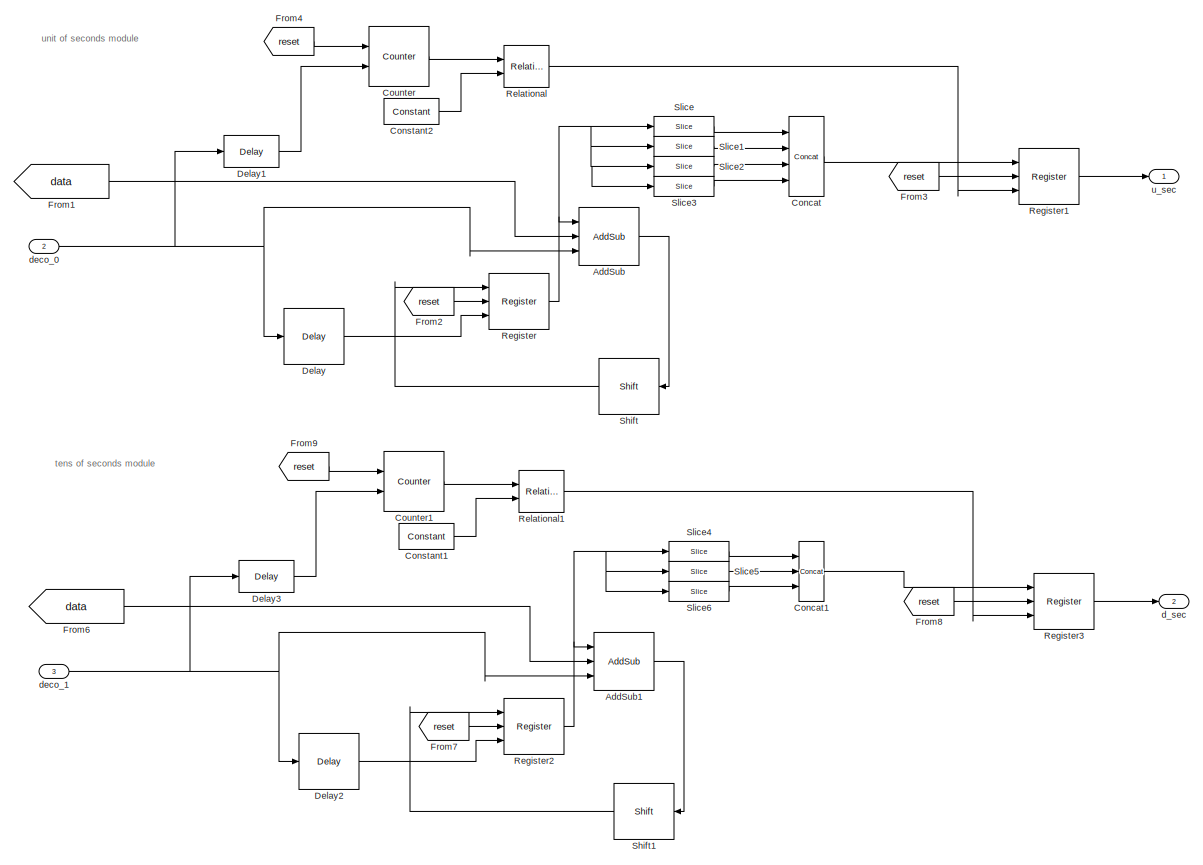
[diagram: Subsystem - part 1/6, top center region]
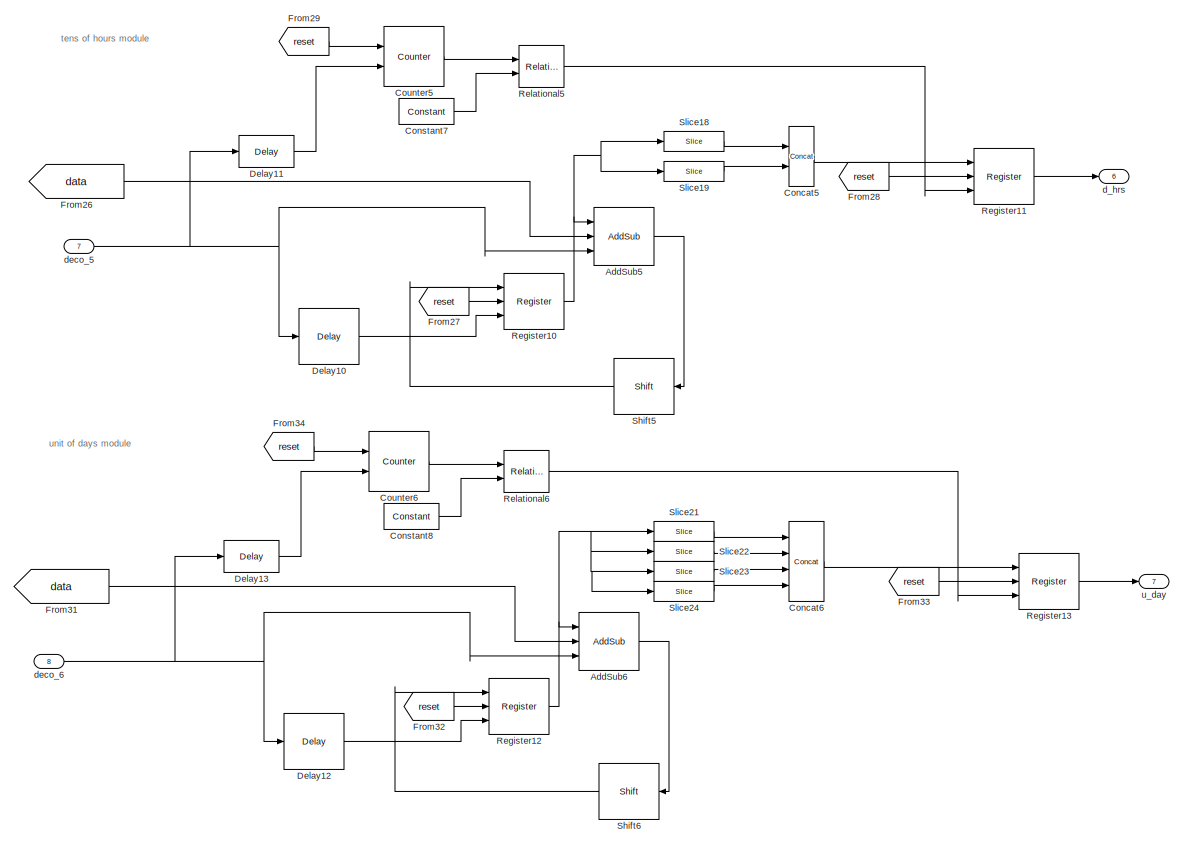
[diagram: Subsystem - part 2/6, top right region]
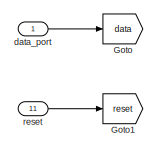
[diagram: Subsystem - part 3/6, top left region]
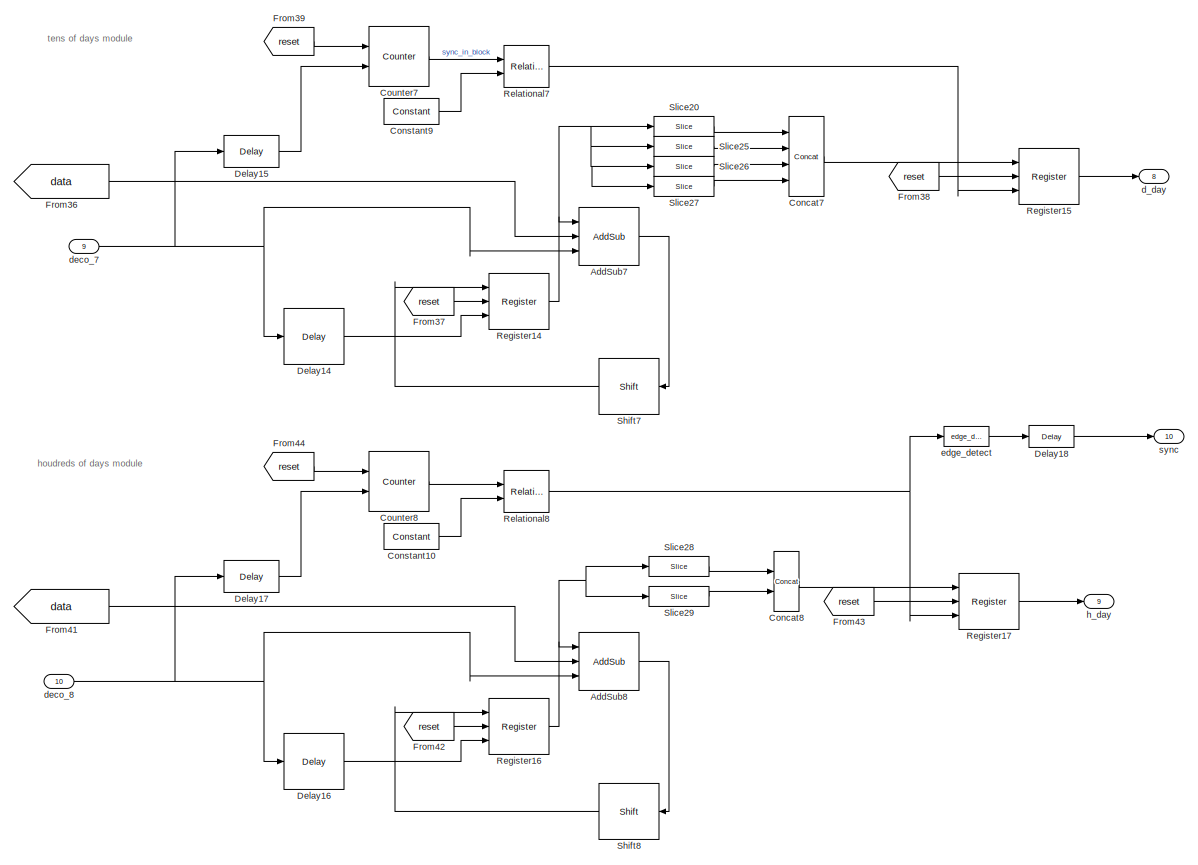
[diagram: Subsystem - part 4/6, middle right region]
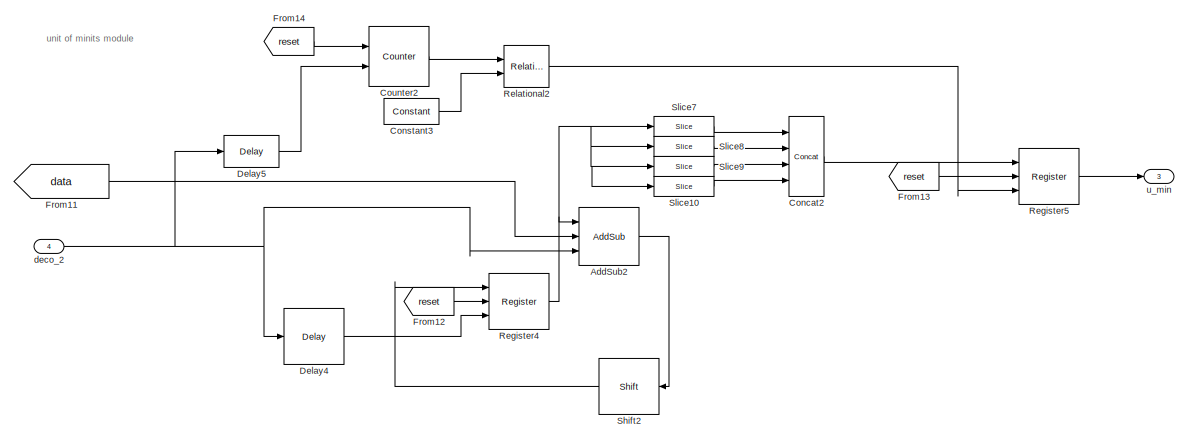
[diagram: Subsystem - part 5/6, central region]
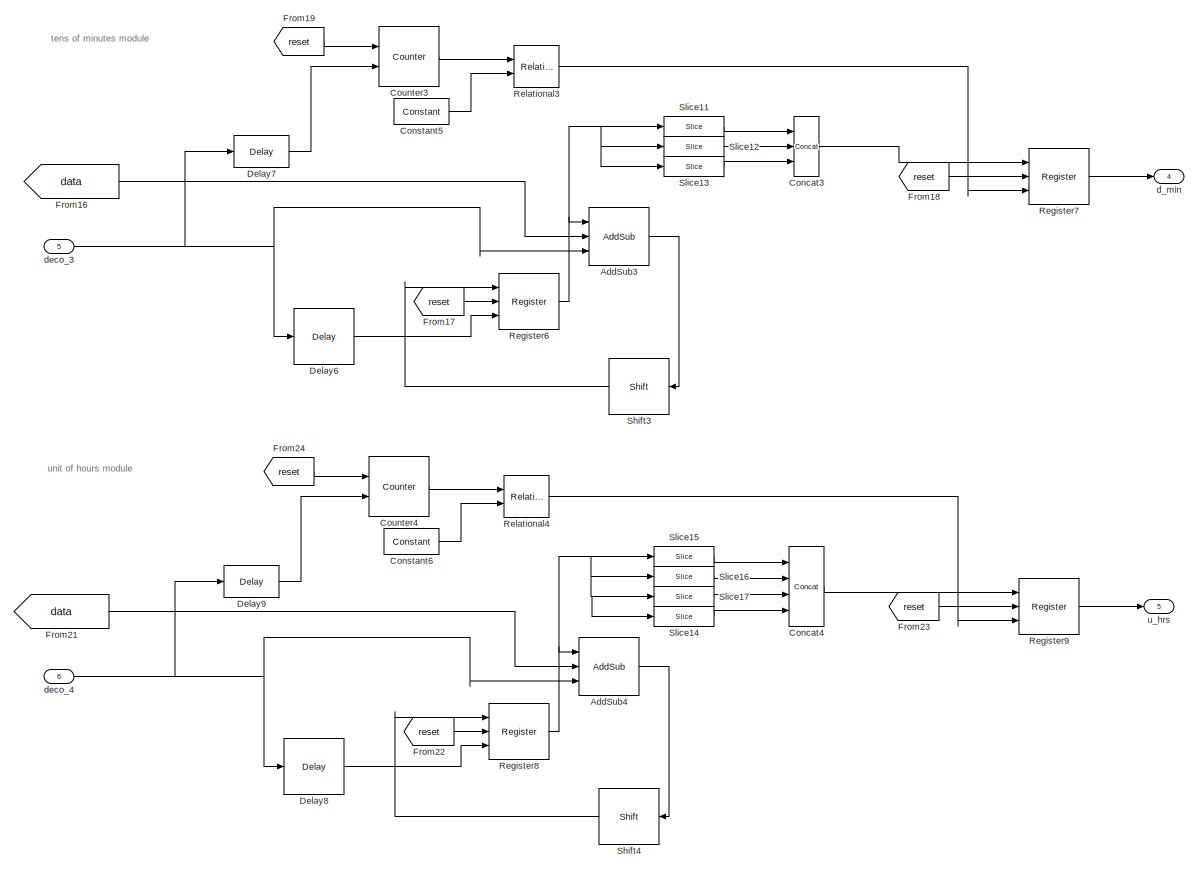
[diagram: Subsystem - part 6/6, bottom center region]
BLOCK [SubSystem] Subsystem
  FunctionWithSeparateData = off
  MaskHideContents = off
  MinAlgLoopOccurrences = off
  Opaque = off
  Ports = [11, 10]
  PropExecContextOutsideSubsystem = off
  RTWSystemCode = Auto
  RequestExecContextInheritance = off
BLOCK [Reference] Subsystem/AddSub  REF=xbsIndex_r4/AddSub
  Ports = [3, 1]
  SourceBlock = xbsIndex_r4/AddSub
  SourceType = Xilinx Adder/Subtracter Block
  arith_type = Unsigned
  bin_pt = 0
  block_type = addsub
  dbl_ovrd = off
  en = on
  has_advanced_control = 0
  hw_selection = Fabric
  latency = 1
  mode = Addition
  n_bits = 5
  overflow = Wrap
  pipelined = off
  precision = User Defined
  quantization = Truncate
  sg_icon_stat = 60,58,3,1,white,blue,0,96ed0f94,right,,[ ],[ ]
  sg_mask_display = fprintf('','COMMENT: begin icon graphics');\npatch([0 60 60 0 0 ],[0 0 58 58 0 ],[0.77 0.82 0.91 ]);\nplot([0 60 60 0 0 ],[0 0 58 58 0 ]);\npatch([12.2 23.76 31.76 39.76 47.76 31.76 20.2 12.2 ],[37.88 37.88 45.88 37.88 45.88 45.88 45.88 37.88 ],[1 1 1 ]);\npatch([20.2 31.76 23.76 12.2 20.2 ],[29.88 29.88 37.88 37.88 29.88 ],[0.931 0.946 0.973 ]);\npatch([12.2 23.76 31.76 20.2 12.2 ],[21.88 21.88 29.88 ...<+563ch>  <repeated x9 — deduplicated; at blocks: AddSub, AddSub1, AddSub2, AddSub3, AddSub4, AddSub5, AddSub6, AddSub7, AddSub8>
  sggui_pos = 53,14,416,343
  use_behavioral_HDL = off
  use_carryin = off
  use_carryout = off
  xl_area = [0,0,0,0,0,0,0]
  xl_use_area = off
BLOCK [Reference] Subsystem/AddSub1  REF=xbsIndex_r4/AddSub
  Ports = [3, 1]
  SourceBlock = xbsIndex_r4/AddSub
  SourceType = Xilinx Adder/Subtracter Block
  arith_type = Unsigned
  bin_pt = 0
  block_type = addsub
  dbl_ovrd = off
  en = on
  has_advanced_control = 0
  hw_selection = Fabric
  latency = 1
  mode = Addition
  n_bits = 4
  overflow = Wrap
  pipelined = off
  precision = User Defined
  quantization = Truncate
  sg_icon_stat = 60,58,3,1,white,blue,0,96ed0f94,right,,[ ],[ ]
  sggui_pos = 53,14,416,343
  use_behavioral_HDL = off
  use_carryin = off
  use_carryout = off
  xl_area = [0,0,0,0,0,0,0]
  xl_use_area = off
BLOCK [Reference] Subsystem/AddSub2  REF=xbsIndex_r4/AddSub
  Ports = [3, 1]
  SourceBlock = xbsIndex_r4/AddSub
  SourceType = Xilinx Adder/Subtracter Block
  arith_type = Unsigned
  bin_pt = 0
  block_type = addsub
  dbl_ovrd = off
  en = on
  has_advanced_control = 0
  hw_selection = Fabric
  latency = 1
  mode = Addition
  n_bits = 5
  overflow = Wrap
  pipelined = off
  precision = User Defined
  quantization = Truncate
  sg_icon_stat = 60,58,3,1,white,blue,0,96ed0f94,right,,[ ],[ ]
  sggui_pos = 53,14,416,343
  use_behavioral_HDL = off
  use_carryin = off
  use_carryout = off
  xl_area = [0,0,0,0,0,0,0]
  xl_use_area = off
BLOCK [Reference] Subsystem/AddSub3  REF=xbsIndex_r4/AddSub
  Ports = [3, 1]
  SourceBlock = xbsIndex_r4/AddSub
  SourceType = Xilinx Adder/Subtracter Block
  arith_type = Unsigned
  bin_pt = 0
  block_type = addsub
  dbl_ovrd = off
  en = on
  has_advanced_control = 0
  hw_selection = Fabric
  latency = 1
  mode = Addition
  n_bits = 4
  overflow = Wrap
  pipelined = off
  precision = User Defined
  quantization = Truncate
  sg_icon_stat = 60,58,3,1,white,blue,0,96ed0f94,right,,[ ],[ ]
  sggui_pos = 53,14,416,343
  use_behavioral_HDL = off
  use_carryin = off
  use_carryout = off
  xl_area = [0,0,0,0,0,0,0]
  xl_use_area = off
BLOCK [Reference] Subsystem/AddSub4  REF=xbsIndex_r4/AddSub
  Ports = [3, 1]
  SourceBlock = xbsIndex_r4/AddSub
  SourceType = Xilinx Adder/Subtracter Block
  arith_type = Unsigned
  bin_pt = 0
  block_type = addsub
  dbl_ovrd = off
  en = on
  has_advanced_control = 0
  hw_selection = Fabric
  latency = 1
  mode = Addition
  n_bits = 5
  overflow = Wrap
  pipelined = off
  precision = User Defined
  quantization = Truncate
  sg_icon_stat = 60,58,3,1,white,blue,0,96ed0f94,right,,[ ],[ ]
  sggui_pos = 53,14,416,343
  use_behavioral_HDL = off
  use_carryin = off
  use_carryout = off
  xl_area = [0,0,0,0,0,0,0]
  xl_use_area = off
BLOCK [Reference] Subsystem/AddSub5  REF=xbsIndex_r4/AddSub
  Ports = [3, 1]
  SourceBlock = xbsIndex_r4/AddSub
  SourceType = Xilinx Adder/Subtracter Block
  arith_type = Unsigned
  bin_pt = 0
  block_type = addsub
  dbl_ovrd = off
  en = on
  has_advanced_control = 0
  hw_selection = Fabric
  latency = 1
  mode = Addition
  n_bits = 3
  overflow = Wrap
  pipelined = off
  precision = User Defined
  quantization = Truncate
  sg_icon_stat = 60,58,3,1,white,blue,0,96ed0f94,right,,[ ],[ ]
  sggui_pos = 53,14,416,343
  use_behavioral_HDL = off
  use_carryin = off
  use_carryout = off
  xl_area = [0,0,0,0,0,0,0]
  xl_use_area = off
BLOCK [Reference] Subsystem/AddSub6  REF=xbsIndex_r4/AddSub
  Ports = [3, 1]
  SourceBlock = xbsIndex_r4/AddSub
  SourceType = Xilinx Adder/Subtracter Block
  arith_type = Unsigned
  bin_pt = 0
  block_type = addsub
  dbl_ovrd = off
  en = on
  has_advanced_control = 0
  hw_selection = Fabric
  latency = 1
  mode = Addition
  n_bits = 5
  overflow = Wrap
  pipelined = off
  precision = User Defined
  quantization = Truncate
  sg_icon_stat = 60,58,3,1,white,blue,0,96ed0f94,right,,[ ],[ ]
  sggui_pos = 53,14,416,343
  use_behavioral_HDL = off
  use_carryin = off
  use_carryout = off
  xl_area = [0,0,0,0,0,0,0]
  xl_use_area = off
BLOCK [Reference] Subsystem/AddSub7  REF=xbsIndex_r4/AddSub
  Ports = [3, 1]
  SourceBlock = xbsIndex_r4/AddSub
  SourceType = Xilinx Adder/Subtracter Block
  arith_type = Unsigned
  bin_pt = 0
  block_type = addsub
  dbl_ovrd = off
  en = on
  has_advanced_control = 0
  hw_selection = Fabric
  latency = 1
  mode = Addition
  n_bits = 5
  overflow = Wrap
  pipelined = off
  precision = User Defined
  quantization = Truncate
  sg_icon_stat = 60,58,3,1,white,blue,0,96ed0f94,right,,[ ],[ ]
  sggui_pos = 53,14,416,343
  use_behavioral_HDL = off
  use_carryin = off
  use_carryout = off
  xl_area = [0,0,0,0,0,0,0]
  xl_use_area = off
BLOCK [Reference] Subsystem/AddSub8  REF=xbsIndex_r4/AddSub
  Ports = [3, 1]
  SourceBlock = xbsIndex_r4/AddSub
  SourceType = Xilinx Adder/Subtracter Block
  arith_type = Unsigned
  bin_pt = 0
  block_type = addsub
  dbl_ovrd = off
  en = on
  has_advanced_control = 0
  hw_selection = Fabric
  latency = 1
  mode = Addition
  n_bits = 3
  overflow = Wrap
  pipelined = off
  precision = User Defined
  quantization = Truncate
  sg_icon_stat = 60,58,3,1,white,blue,0,96ed0f94,right,,[ ],[ ]
  sggui_pos = 53,14,416,343
  use_behavioral_HDL = off
  use_carryin = off
  use_carryout = off
  xl_area = [0,0,0,0,0,0,0]
  xl_use_area = off
BLOCK [Reference] Subsystem/Concat  REF=xbsIndex_r4/Concat
  Ports = [4, 1]
  SourceBlock = xbsIndex_r4/Concat
  SourceType = Xilinx Bus Concatenator Block
  block_type = concat
  dbl_ovrd = off
  has_advanced_control = 0
  infoedit = Concatenates two or more inputs.  Output will be cast to an unsigned value with the binary point at zero.
  num_inputs = 4
  sg_icon_stat = 35,80,4,1,white,blue,0,47d3d416,right,,[ ],[ ]
  sg_mask_display = fprintf('','COMMENT: begin icon graphics');\npatch([0 35 35 0 0 ],[0 0 80 80 0 ],[0.77 0.82 0.91 ]);\nplot([0 35 35 0 0 ],[0 0 80 80 0 ]);\npatch([5.875 13.1 18.1 23.1 28.1 18.1 10.875 5.875 ],[45.55 45.55 50.55 45.55 50.55 50.55 50.55 45.55 ],[1 1 1 ]);\npatch([10.875 18.1 13.1 5.875 10.875 ],[40.55 40.55 45.55 45.55 40.55 ],[0.931 0.946 0.973 ]);\npatch([5.875 13.1 18.1 10.875 5.875 ],[35.55 35.55 40...<+409ch>  <repeated x5 — deduplicated; at blocks: Concat, Concat2, Concat4, Concat6, Concat7>
  sggui_pos = 53,14,328,208
BLOCK [Reference] Subsystem/Concat1  REF=xbsIndex_r4/Concat
  Ports = [3, 1]
  SourceBlock = xbsIndex_r4/Concat
  SourceType = Xilinx Bus Concatenator Block
  block_type = concat
  dbl_ovrd = off
  has_advanced_control = 0
  infoedit = Concatenates two or more inputs.  Output will be cast to an unsigned value with the binary point at zero.
  num_inputs = 3
  sg_icon_stat = 25,60,3,1,white,blue,0,61ef8218,right,,[ ],[ ]
  sg_mask_display = fprintf('','COMMENT: begin icon graphics');\npatch([0 25 25 0 0 ],[0 0 60 60 0 ],[0.77 0.82 0.91 ]);\nplot([0 25 25 0 0 ],[0 0 60 60 0 ]);\npatch([5.325 9.66 12.66 15.66 18.66 12.66 8.325 5.325 ],[33.33 33.33 36.33 33.33 36.33 36.33 36.33 33.33 ],[1 1 1 ]);\npatch([8.325 12.66 9.66 5.325 8.325 ],[30.33 30.33 33.33 33.33 30.33 ],[0.931 0.946 0.973 ]);\npatch([5.325 9.66 12.66 8.325 5.325 ],[27.33 27.33 ...<+411ch>
  sggui_pos = 53,14,328,208
BLOCK [Reference] Subsystem/Concat2  REF=xbsIndex_r4/Concat
  Ports = [4, 1]
  SourceBlock = xbsIndex_r4/Concat
  SourceType = Xilinx Bus Concatenator Block
  block_type = concat
  dbl_ovrd = off
  has_advanced_control = 0
  infoedit = Concatenates two or more inputs.  Output will be cast to an unsigned value with the binary point at zero.
  num_inputs = 4
  sg_icon_stat = 35,80,4,1,white,blue,0,47d3d416,right,,[ ],[ ]
  sggui_pos = 53,14,328,208
BLOCK [Reference] Subsystem/Concat3  REF=xbsIndex_r4/Concat
  Ports = [3, 1]
  SourceBlock = xbsIndex_r4/Concat
  SourceType = Xilinx Bus Concatenator Block
  block_type = concat
  dbl_ovrd = off
  has_advanced_control = 0
  infoedit = Concatenates two or more inputs.  Output will be cast to an unsigned value with the binary point at zero.
  num_inputs = 3
  sg_icon_stat = 25,60,3,1,white,blue,0,61ef8218,right,,[ ],[ ]
  sg_mask_display = fprintf('','COMMENT: begin icon graphics');\npatch([0 25 25 0 0 ],[0 0 60 60 0 ],[0.77 0.82 0.91 ]);\nplot([0 25 25 0 0 ],[0 0 60 60 0 ]);\npatch([5.325 9.66 12.66 15.66 18.66 12.66 8.325 5.325 ],[33.33 33.33 36.33 33.33 36.33 36.33 36.33 33.33 ],[1 1 1 ]);\npatch([8.325 12.66 9.66 5.325 8.325 ],[30.33 30.33 33.33 33.33 30.33 ],[0.931 0.946 0.973 ]);\npatch([5.325 9.66 12.66 8.325 5.325 ],[27.33 27.33 ...<+411ch>
  sggui_pos = 53,14,328,208
BLOCK [Reference] Subsystem/Concat4  REF=xbsIndex_r4/Concat
  Ports = [4, 1]
  SourceBlock = xbsIndex_r4/Concat
  SourceType = Xilinx Bus Concatenator Block
  block_type = concat
  dbl_ovrd = off
  has_advanced_control = 0
  infoedit = Concatenates two or more inputs.  Output will be cast to an unsigned value with the binary point at zero.
  num_inputs = 4
  sg_icon_stat = 35,80,4,1,white,blue,0,47d3d416,right,,[ ],[ ]
  sggui_pos = 53,14,328,208
BLOCK [Reference] Subsystem/Concat5  REF=xbsIndex_r4/Concat
  Ports = [2, 1]
  SourceBlock = xbsIndex_r4/Concat
  SourceType = Xilinx Bus Concatenator Block
  block_type = concat
  dbl_ovrd = off
  has_advanced_control = 0
  infoedit = Concatenates two or more inputs.  Output will be cast to an unsigned value with the binary point at zero.
  num_inputs = 2
  sg_icon_stat = 25,60,2,1,white,blue,0,16398980,right,,[ ],[ ]
  sg_mask_display = fprintf('','COMMENT: begin icon graphics');\npatch([0 25 25 0 0 ],[0 0 60 60 0 ],[0.77 0.82 0.91 ]);\nplot([0 25 25 0 0 ],[0 0 60 60 0 ]);\npatch([5.325 9.66 12.66 15.66 18.66 12.66 8.325 5.325 ],[33.33 33.33 36.33 33.33 36.33 36.33 36.33 33.33 ],[1 1 1 ]);\npatch([8.325 12.66 9.66 5.325 8.325 ],[30.33 30.33 33.33 33.33 30.33 ],[0.931 0.946 0.973 ]);\npatch([5.325 9.66 12.66 8.325 5.325 ],[27.33 27.33 ...<+410ch>
  sggui_pos = 53,14,328,208
BLOCK [Reference] Subsystem/Concat6  REF=xbsIndex_r4/Concat
  Ports = [4, 1]
  SourceBlock = xbsIndex_r4/Concat
  SourceType = Xilinx Bus Concatenator Block
  block_type = concat
  dbl_ovrd = off
  has_advanced_control = 0
  infoedit = Concatenates two or more inputs.  Output will be cast to an unsigned value with the binary point at zero.
  num_inputs = 4
  sg_icon_stat = 35,80,4,1,white,blue,0,47d3d416,right,,[ ],[ ]
  sggui_pos = 53,14,328,208
BLOCK [Reference] Subsystem/Concat7  REF=xbsIndex_r4/Concat
  Ports = [4, 1]
  SourceBlock = xbsIndex_r4/Concat
  SourceType = Xilinx Bus Concatenator Block
  block_type = concat
  dbl_ovrd = off
  has_advanced_control = 0
  infoedit = Concatenates two or more inputs.  Output will be cast to an unsigned value with the binary point at zero.
  num_inputs = 4
  sg_icon_stat = 35,80,4,1,white,blue,0,47d3d416,right,,[ ],[ ]
  sggui_pos = 53,14,328,208
BLOCK [Reference] Subsystem/Concat8  REF=xbsIndex_r4/Concat
  Ports = [2, 1]
  SourceBlock = xbsIndex_r4/Concat
  SourceType = Xilinx Bus Concatenator Block
  block_type = concat
  dbl_ovrd = off
  has_advanced_control = 0
  infoedit = Concatenates two or more inputs.  Output will be cast to an unsigned value with the binary point at zero.
  num_inputs = 2
  sg_icon_stat = 25,60,2,1,white,blue,0,16398980,right,,[ ],[ ]
  sg_mask_display = fprintf('','COMMENT: begin icon graphics');\npatch([0 25 25 0 0 ],[0 0 60 60 0 ],[0.77 0.82 0.91 ]);\nplot([0 25 25 0 0 ],[0 0 60 60 0 ]);\npatch([5.325 9.66 12.66 15.66 18.66 12.66 8.325 5.325 ],[33.33 33.33 36.33 33.33 36.33 36.33 36.33 33.33 ],[1 1 1 ]);\npatch([8.325 12.66 9.66 5.325 8.325 ],[30.33 30.33 33.33 33.33 30.33 ],[0.931 0.946 0.973 ]);\npatch([5.325 9.66 12.66 8.325 5.325 ],[27.33 27.33 ...<+410ch>
  sggui_pos = 53,14,328,208
BLOCK [Reference] Subsystem/Constant1  REF=xbsIndex_r4/Constant
  Ports = [0, 1]
  SourceBlock = xbsIndex_r4/Constant
  SourceType = Xilinx Constant Block Block
  arith_type = Unsigned
  bin_pt = 0
  block_type = constant
  carry = CIN
  const = 3
  dbl_ovrd = off
  dsp48_infoedit = The use of this block for DSP48 instructions is deprecated.  Please use the Opmode block.
  equ = P=C
  exp_width = 8
  explicit_period = on
  frac_width = 24
  gui_display_data_type = Fixed-point
  has_advanced_control = 0
  inp1 = P
  inp2 = PCIN>>17
  n_bits = 4
  opr = +
  opselect = C
  period = 1
  preci_type = Single
  sg_icon_stat = 55,26,0,1,white,blue,0,279a71c8,right,,[ ],[ ]
  sggui_pos = 53,14,337,463
BLOCK [Reference] Subsystem/Constant10  REF=xbsIndex_r4/Constant
  Ports = [0, 1]
  SourceBlock = xbsIndex_r4/Constant
  SourceType = Xilinx Constant Block Block
  arith_type = Unsigned
  bin_pt = 0
  block_type = constant
  carry = CIN
  const = 2
  dbl_ovrd = off
  dsp48_infoedit = The use of this block for DSP48 instructions is deprecated.  Please use the Opmode block.
  equ = P=C
  exp_width = 8
  explicit_period = on
  frac_width = 24
  gui_display_data_type = Fixed-point
  has_advanced_control = 0
  inp1 = P
  inp2 = PCIN>>17
  n_bits = 3
  opr = +
  opselect = C
  period = 1
  preci_type = Single
  sg_icon_stat = 55,26,0,1,white,blue,0,fca86624,right,,[ ],[ ]
  sggui_pos = 53,14,337,463
BLOCK [Reference] Subsystem/Constant2  REF=xbsIndex_r4/Constant
  Ports = [0, 1]
  SourceBlock = xbsIndex_r4/Constant
  SourceType = Xilinx Constant Block Block
  arith_type = Unsigned
  bin_pt = 0
  block_type = constant
  carry = CIN
  const = 4
  dbl_ovrd = off
  dsp48_infoedit = The use of this block for DSP48 instructions is deprecated.  Please use the Opmode block.
  equ = P=C
  exp_width = 8
  explicit_period = on
  frac_width = 24
  gui_display_data_type = Fixed-point
  has_advanced_control = 0
  inp1 = P
  inp2 = PCIN>>17
  n_bits = 4
  opr = +
  opselect = C
  period = 1
  preci_type = Single
  sg_icon_stat = 55,26,0,1,white,blue,0,85f36853,right,,[ ],[ ]
  sggui_pos = 53,14,337,463
BLOCK [Reference] Subsystem/Constant3  REF=xbsIndex_r4/Constant
  Ports = [0, 1]
  SourceBlock = xbsIndex_r4/Constant
  SourceType = Xilinx Constant Block Block
  arith_type = Unsigned
  bin_pt = 0
  block_type = constant
  carry = CIN
  const = 4
  dbl_ovrd = off
  dsp48_infoedit = The use of this block for DSP48 instructions is deprecated.  Please use the Opmode block.
  equ = P=C
  exp_width = 8
  explicit_period = on
  frac_width = 24
  gui_display_data_type = Fixed-point
  has_advanced_control = 0
  inp1 = P
  inp2 = PCIN>>17
  n_bits = 4
  opr = +
  opselect = C
  period = 1
  preci_type = Single
  sg_icon_stat = 55,26,0,1,white,blue,0,85f36853,right,,[ ],[ ]
  sggui_pos = 53,14,337,463
BLOCK [Reference] Subsystem/Constant5  REF=xbsIndex_r4/Constant
  Ports = [0, 1]
  SourceBlock = xbsIndex_r4/Constant
  SourceType = Xilinx Constant Block Block
  arith_type = Unsigned
  bin_pt = 0
  block_type = constant
  carry = CIN
  const = 3
  dbl_ovrd = off
  dsp48_infoedit = The use of this block for DSP48 instructions is deprecated.  Please use the Opmode block.
  equ = P=C
  exp_width = 8
  explicit_period = on
  frac_width = 24
  gui_display_data_type = Fixed-point
  has_advanced_control = 0
  inp1 = P
  inp2 = PCIN>>17
  n_bits = 4
  opr = +
  opselect = C
  period = 1
  preci_type = Single
  sg_icon_stat = 55,26,0,1,white,blue,0,279a71c8,right,,[ ],[ ]
  sggui_pos = 53,14,337,463
BLOCK [Reference] Subsystem/Constant6  REF=xbsIndex_r4/Constant
  Ports = [0, 1]
  SourceBlock = xbsIndex_r4/Constant
  SourceType = Xilinx Constant Block Block
  arith_type = Unsigned
  bin_pt = 0
  block_type = constant
  carry = CIN
  const = 4
  dbl_ovrd = off
  dsp48_infoedit = The use of this block for DSP48 instructions is deprecated.  Please use the Opmode block.
  equ = P=C
  exp_width = 8
  explicit_period = on
  frac_width = 24
  gui_display_data_type = Fixed-point
  has_advanced_control = 0
  inp1 = P
  inp2 = PCIN>>17
  n_bits = 4
  opr = +
  opselect = C
  period = 1
  preci_type = Single
  sg_icon_stat = 55,26,0,1,white,blue,0,85f36853,right,,[ ],[ ]
  sggui_pos = 53,14,337,463
BLOCK [Reference] Subsystem/Constant7  REF=xbsIndex_r4/Constant
  Ports = [0, 1]
  SourceBlock = xbsIndex_r4/Constant
  SourceType = Xilinx Constant Block Block
  arith_type = Unsigned
  bin_pt = 0
  block_type = constant
  carry = CIN
  const = 2
  dbl_ovrd = off
  dsp48_infoedit = The use of this block for DSP48 instructions is deprecated.  Please use the Opmode block.
  equ = P=C
  exp_width = 8
  explicit_period = on
  frac_width = 24
  gui_display_data_type = Fixed-point
  has_advanced_control = 0
  inp1 = P
  inp2 = PCIN>>17
  n_bits = 3
  opr = +
  opselect = C
  period = 1
  preci_type = Single
  sg_icon_stat = 55,26,0,1,white,blue,0,fca86624,right,,[ ],[ ]
  sggui_pos = 53,14,337,463
BLOCK [Reference] Subsystem/Constant8  REF=xbsIndex_r4/Constant
  Ports = [0, 1]
  SourceBlock = xbsIndex_r4/Constant
  SourceType = Xilinx Constant Block Block
  arith_type = Unsigned
  bin_pt = 0
  block_type = constant
  carry = CIN
  const = 4
  dbl_ovrd = off
  dsp48_infoedit = The use of this block for DSP48 instructions is deprecated.  Please use the Opmode block.
  equ = P=C
  exp_width = 8
  explicit_period = on
  frac_width = 24
  gui_display_data_type = Fixed-point
  has_advanced_control = 0
  inp1 = P
  inp2 = PCIN>>17
  n_bits = 4
  opr = +
  opselect = C
  period = 1
  preci_type = Single
  sg_icon_stat = 55,26,0,1,white,blue,0,85f36853,right,,[ ],[ ]
  sggui_pos = 53,14,337,463
BLOCK [Reference] Subsystem/Constant9  REF=xbsIndex_r4/Constant
  Ports = [0, 1]
  SourceBlock = xbsIndex_r4/Constant
  SourceType = Xilinx Constant Block Block
  arith_type = Unsigned
  bin_pt = 0
  block_type = constant
  carry = CIN
  const = 4
  dbl_ovrd = off
  dsp48_infoedit = The use of this block for DSP48 instructions is deprecated.  Please use the Opmode block.
  equ = P=C
  exp_width = 8
  explicit_period = on
  frac_width = 24
  gui_display_data_type = Fixed-point
  has_advanced_control = 0
  inp1 = P
  inp2 = PCIN>>17
  n_bits = 4
  opr = +
  opselect = C
  period = 1
  preci_type = Single
  sg_icon_stat = 55,26,0,1,white,blue,0,85f36853,right,,[ ],[ ]
  sggui_pos = 53,14,337,463
BLOCK [Reference] Subsystem/Counter  REF=xbsIndex_r4/Counter
  Ports = [2, 1]
  SourceBlock = xbsIndex_r4/Counter
  SourceType = Xilinx Counter Block
  arith_type = Unsigned
  bin_pt = 0
  block_type = counter
  cnt_by_val = 1
  cnt_to = Inf
  cnt_type = Free Running
  dbl_ovrd = off
  en = on
  explicit_period = on
  has_advanced_control = 0
  implementation = Fabric
  infoedit = Hardware notes: Free running counters are the least expensive in hardware.  A count limited counter is implemented by combining a counter with a comparator.
  load_pin = off
  n_bits = 4
  operation = Up
  period = 1
  rst = on
  sg_icon_stat = 60,60,2,1,white,blue,0,ae3608d6,right,,[ ],[ ]
  sggui_pos = 53,14,416,716
  start_count = 0
  use_behavioral_HDL = off
  xl_area = [0,0,0,0,0,0,0]
  xl_use_area = off
BLOCK [Reference] Subsystem/Counter1  REF=xbsIndex_r4/Counter
  Ports = [2, 1]
  SourceBlock = xbsIndex_r4/Counter
  SourceType = Xilinx Counter Block
  arith_type = Unsigned
  bin_pt = 0
  block_type = counter
  cnt_by_val = 1
  cnt_to = Inf
  cnt_type = Free Running
  dbl_ovrd = off
  en = on
  explicit_period = on
  has_advanced_control = 0
  implementation = Fabric
  infoedit = Hardware notes: Free running counters are the least expensive in hardware.  A count limited counter is implemented by combining a counter with a comparator.
  load_pin = off
  n_bits = 4
  operation = Up
  period = 1
  rst = on
  sg_icon_stat = 60,60,2,1,white,blue,0,ae3608d6,right,,[ ],[ ]
  sggui_pos = 53,14,416,716
  start_count = 0
  use_behavioral_HDL = off
  xl_area = [0,0,0,0,0,0,0]
  xl_use_area = off
BLOCK [Reference] Subsystem/Counter2  REF=xbsIndex_r4/Counter
  Ports = [2, 1]
  SourceBlock = xbsIndex_r4/Counter
  SourceType = Xilinx Counter Block
  arith_type = Unsigned
  bin_pt = 0
  block_type = counter
  cnt_by_val = 1
  cnt_to = Inf
  cnt_type = Free Running
  dbl_ovrd = off
  en = on
  explicit_period = on
  has_advanced_control = 0
  implementation = Fabric
  infoedit = Hardware notes: Free running counters are the least expensive in hardware.  A count limited counter is implemented by combining a counter with a comparator.
  load_pin = off
  n_bits = 4
  operation = Up
  period = 1
  rst = on
  sg_icon_stat = 60,60,2,1,white,blue,0,ae3608d6,right,,[ ],[ ]
  sggui_pos = 53,14,416,716
  start_count = 0
  use_behavioral_HDL = off
  xl_area = [0,0,0,0,0,0,0]
  xl_use_area = off
BLOCK [Reference] Subsystem/Counter3  REF=xbsIndex_r4/Counter
  Ports = [2, 1]
  SourceBlock = xbsIndex_r4/Counter
  SourceType = Xilinx Counter Block
  arith_type = Unsigned
  bin_pt = 0
  block_type = counter
  cnt_by_val = 1
  cnt_to = Inf
  cnt_type = Free Running
  dbl_ovrd = off
  en = on
  explicit_period = on
  has_advanced_control = 0
  implementation = Fabric
  infoedit = Hardware notes: Free running counters are the least expensive in hardware.  A count limited counter is implemented by combining a counter with a comparator.
  load_pin = off
  n_bits = 4
  operation = Up
  period = 1
  rst = on
  sg_icon_stat = 60,60,2,1,white,blue,0,ae3608d6,right,,[ ],[ ]
  sggui_pos = 53,14,416,716
  start_count = 0
  use_behavioral_HDL = off
  xl_area = [0,0,0,0,0,0,0]
  xl_use_area = off
BLOCK [Reference] Subsystem/Counter4  REF=xbsIndex_r4/Counter
  Ports = [2, 1]
  SourceBlock = xbsIndex_r4/Counter
  SourceType = Xilinx Counter Block
  arith_type = Unsigned
  bin_pt = 0
  block_type = counter
  cnt_by_val = 1
  cnt_to = Inf
  cnt_type = Free Running
  dbl_ovrd = off
  en = on
  explicit_period = on
  has_advanced_control = 0
  implementation = Fabric
  infoedit = Hardware notes: Free running counters are the least expensive in hardware.  A count limited counter is implemented by combining a counter with a comparator.
  load_pin = off
  n_bits = 4
  operation = Up
  period = 1
  rst = on
  sg_icon_stat = 60,60,2,1,white,blue,0,ae3608d6,right,,[ ],[ ]
  sggui_pos = 53,14,416,716
  start_count = 0
  use_behavioral_HDL = off
  xl_area = [0,0,0,0,0,0,0]
  xl_use_area = off
BLOCK [Reference] Subsystem/Counter5  REF=xbsIndex_r4/Counter
  Ports = [2, 1]
  SourceBlock = xbsIndex_r4/Counter
  SourceType = Xilinx Counter Block
  arith_type = Unsigned
  bin_pt = 0
  block_type = counter
  cnt_by_val = 1
  cnt_to = Inf
  cnt_type = Free Running
  dbl_ovrd = off
  en = on
  explicit_period = on
  has_advanced_control = 0
  implementation = Fabric
  infoedit = Hardware notes: Free running counters are the least expensive in hardware.  A count limited counter is implemented by combining a counter with a comparator.
  load_pin = off
  n_bits = 4
  operation = Up
  period = 1
  rst = on
  sg_icon_stat = 60,60,2,1,white,blue,0,ae3608d6,right,,[ ],[ ]
  sggui_pos = 53,14,416,716
  start_count = 0
  use_behavioral_HDL = off
  xl_area = [0,0,0,0,0,0,0]
  xl_use_area = off
BLOCK [Reference] Subsystem/Counter6  REF=xbsIndex_r4/Counter
  Ports = [2, 1]
  SourceBlock = xbsIndex_r4/Counter
  SourceType = Xilinx Counter Block
  arith_type = Unsigned
  bin_pt = 0
  block_type = counter
  cnt_by_val = 1
  cnt_to = Inf
  cnt_type = Free Running
  dbl_ovrd = off
  en = on
  explicit_period = on
  has_advanced_control = 0
  implementation = Fabric
  infoedit = Hardware notes: Free running counters are the least expensive in hardware.  A count limited counter is implemented by combining a counter with a comparator.
  load_pin = off
  n_bits = 4
  operation = Up
  period = 1
  rst = on
  sg_icon_stat = 60,60,2,1,white,blue,0,ae3608d6,right,,[ ],[ ]
  sggui_pos = 53,14,416,716
  start_count = 0
  use_behavioral_HDL = off
  xl_area = [0,0,0,0,0,0,0]
  xl_use_area = off
BLOCK [Reference] Subsystem/Counter7  REF=xbsIndex_r4/Counter
  Ports = [2, 1]
  SourceBlock = xbsIndex_r4/Counter
  SourceType = Xilinx Counter Block
  arith_type = Unsigned
  bin_pt = 0
  block_type = counter
  cnt_by_val = 1
  cnt_to = Inf
  cnt_type = Free Running
  dbl_ovrd = off
  en = on
  explicit_period = on
  has_advanced_control = 0
  implementation = Fabric
  infoedit = Hardware notes: Free running counters are the least expensive in hardware.  A count limited counter is implemented by combining a counter with a comparator.
  load_pin = off
  n_bits = 4
  operation = Up
  period = 1
  rst = on
  sg_icon_stat = 60,60,2,1,white,blue,0,ae3608d6,right,,[ ],[ ]
  sggui_pos = 53,14,416,716
  start_count = 0
  use_behavioral_HDL = off
  xl_area = [0,0,0,0,0,0,0]
  xl_use_area = off
BLOCK [Reference] Subsystem/Counter8  REF=xbsIndex_r4/Counter
  Ports = [2, 1]
  SourceBlock = xbsIndex_r4/Counter
  SourceType = Xilinx Counter Block
  arith_type = Unsigned
  bin_pt = 0
  block_type = counter
  cnt_by_val = 1
  cnt_to = Inf
  cnt_type = Free Running
  dbl_ovrd = off
  en = on
  explicit_period = on
  has_advanced_control = 0
  implementation = Fabric
  infoedit = Hardware notes: Free running counters are the least expensive in hardware.  A count limited counter is implemented by combining a counter with a comparator.
  load_pin = off
  n_bits = 4
  operation = Up
  period = 1
  rst = on
  sg_icon_stat = 60,60,2,1,white,blue,0,ae3608d6,right,,[ ],[ ]
  sggui_pos = 53,14,416,716
  start_count = 0
  use_behavioral_HDL = off
  xl_area = [0,0,0,0,0,0,0]
  xl_use_area = off
BLOCK [Reference] Subsystem/Delay  REF=xbsIndex_r4/Delay
  Ports = [1, 1]
  SourceBlock = xbsIndex_r4/Delay
  SourceType = Xilinx Delay Block
  block_type = delay
  dbl_ovrd = off
  en = off
  has_advanced_control = 0
  infoedit = Hardware notes: A delay line is a chain, each link of which is an SRL16 followed by a flip-flop.
  infoeditControl = Selection of Reset will increase slice count due to use of real FFs and instead of SRLs
  latency = 1
  reg_retiming = off
  rst = off
  sg_icon_stat = 60,56,1,1,white,blue,0,07b98262,right,,[ ],[ ]
  sggui_pos = 73,34,416,361
  xl_area = [0,0,0,0,0,0,0]
  xl_use_area = off
BLOCK [Reference] Subsystem/Delay1  REF=xbsIndex_r4/Delay
  Ports = [1, 1]
  SourceBlock = xbsIndex_r4/Delay
  SourceType = Xilinx Delay Block
  block_type = delay
  dbl_ovrd = off
  en = off
  has_advanced_control = 0
  infoedit = Hardware notes: A delay line is a chain, each link of which is an SRL16 followed by a flip-flop.
  infoeditControl = Selection of Reset will increase slice count due to use of real FFs and instead of SRLs
  latency = 1
  reg_retiming = off
  rst = off
  sg_icon_stat = 55,32,1,1,white,blue,0,07b98262,right,,[ ],[ ]
  sg_mask_display = fprintf('','COMMENT: begin icon graphics');\npatch([0 55 55 0 0 ],[0 0 32 32 0 ],[0.77 0.82 0.91 ]);\nplot([0 55 55 0 0 ],[0 0 32 32 0 ]);\npatch([18.1 23.88 27.88 31.88 35.88 27.88 22.1 18.1 ],[20.44 20.44 24.44 20.44 24.44 24.44 24.44 20.44 ],[1 1 1 ]);\npatch([22.1 27.88 23.88 18.1 22.1 ],[16.44 16.44 20.44 20.44 16.44 ],[0.931 0.946 0.973 ]);\npatch([18.1 23.88 27.88 22.1 18.1 ],[12.44 12.44 16.44 ...<+304ch>  <repeated x9 — deduplicated; at blocks: Delay1, Delay11, Delay13, Delay15, Delay17, Delay3, Delay5, Delay7, Delay9>
  sggui_pos = 73,34,416,361
  xl_area = [0,0,0,0,0,0,0]
  xl_use_area = off
BLOCK [Reference] Subsystem/Delay10  REF=xbsIndex_r4/Delay
  Ports = [1, 1]
  SourceBlock = xbsIndex_r4/Delay
  SourceType = Xilinx Delay Block
  block_type = delay
  dbl_ovrd = off
  en = off
  has_advanced_control = 0
  infoedit = Hardware notes: A delay line is a chain, each link of which is an SRL16 followed by a flip-flop.
  infoeditControl = Selection of Reset will increase slice count due to use of real FFs and instead of SRLs
  latency = 1
  reg_retiming = off
  rst = off
  sg_icon_stat = 60,56,1,1,white,blue,0,07b98262,right,,[ ],[ ]
  sggui_pos = 73,34,416,361
  xl_area = [0,0,0,0,0,0,0]
  xl_use_area = off
BLOCK [Reference] Subsystem/Delay11  REF=xbsIndex_r4/Delay
  Ports = [1, 1]
  SourceBlock = xbsIndex_r4/Delay
  SourceType = Xilinx Delay Block
  block_type = delay
  dbl_ovrd = off
  en = off
  has_advanced_control = 0
  infoedit = Hardware notes: A delay line is a chain, each link of which is an SRL16 followed by a flip-flop.
  infoeditControl = Selection of Reset will increase slice count due to use of real FFs and instead of SRLs
  latency = 1
  reg_retiming = off
  rst = off
  sg_icon_stat = 55,32,1,1,white,blue,0,07b98262,right,,[ ],[ ]
  sggui_pos = 73,34,416,361
  xl_area = [0,0,0,0,0,0,0]
  xl_use_area = off
BLOCK [Reference] Subsystem/Delay12  REF=xbsIndex_r4/Delay
  Ports = [1, 1]
  SourceBlock = xbsIndex_r4/Delay
  SourceType = Xilinx Delay Block
  block_type = delay
  dbl_ovrd = off
  en = off
  has_advanced_control = 0
  infoedit = Hardware notes: A delay line is a chain, each link of which is an SRL16 followed by a flip-flop.
  infoeditControl = Selection of Reset will increase slice count due to use of real FFs and instead of SRLs
  latency = 1
  reg_retiming = off
  rst = off
  sg_icon_stat = 60,56,1,1,white,blue,0,07b98262,right,,[ ],[ ]
  sggui_pos = 73,34,416,361
  xl_area = [0,0,0,0,0,0,0]
  xl_use_area = off
BLOCK [Reference] Subsystem/Delay13  REF=xbsIndex_r4/Delay
  Ports = [1, 1]
  SourceBlock = xbsIndex_r4/Delay
  SourceType = Xilinx Delay Block
  block_type = delay
  dbl_ovrd = off
  en = off
  has_advanced_control = 0
  infoedit = Hardware notes: A delay line is a chain, each link of which is an SRL16 followed by a flip-flop.
  infoeditControl = Selection of Reset will increase slice count due to use of real FFs and instead of SRLs
  latency = 1
  reg_retiming = off
  rst = off
  sg_icon_stat = 55,32,1,1,white,blue,0,07b98262,right,,[ ],[ ]
  sggui_pos = 73,34,416,361
  xl_area = [0,0,0,0,0,0,0]
  xl_use_area = off
BLOCK [Reference] Subsystem/Delay14  REF=xbsIndex_r4/Delay
  Ports = [1, 1]
  SourceBlock = xbsIndex_r4/Delay
  SourceType = Xilinx Delay Block
  block_type = delay
  dbl_ovrd = off
  en = off
  has_advanced_control = 0
  infoedit = Hardware notes: A delay line is a chain, each link of which is an SRL16 followed by a flip-flop.
  infoeditControl = Selection of Reset will increase slice count due to use of real FFs and instead of SRLs
  latency = 1
  reg_retiming = off
  rst = off
  sg_icon_stat = 60,56,1,1,white,blue,0,07b98262,right,,[ ],[ ]
  sggui_pos = 73,34,416,361
  xl_area = [0,0,0,0,0,0,0]
  xl_use_area = off
BLOCK [Reference] Subsystem/Delay15  REF=xbsIndex_r4/Delay
  Ports = [1, 1]
  SourceBlock = xbsIndex_r4/Delay
  SourceType = Xilinx Delay Block
  block_type = delay
  dbl_ovrd = off
  en = off
  has_advanced_control = 0
  infoedit = Hardware notes: A delay line is a chain, each link of which is an SRL16 followed by a flip-flop.
  infoeditControl = Selection of Reset will increase slice count due to use of real FFs and instead of SRLs
  latency = 1
  reg_retiming = off
  rst = off
  sg_icon_stat = 55,32,1,1,white,blue,0,07b98262,right,,[ ],[ ]
  sggui_pos = 73,34,416,361
  xl_area = [0,0,0,0,0,0,0]
  xl_use_area = off
BLOCK [Reference] Subsystem/Delay16  REF=xbsIndex_r4/Delay
  Ports = [1, 1]
  SourceBlock = xbsIndex_r4/Delay
  SourceType = Xilinx Delay Block
  block_type = delay
  dbl_ovrd = off
  en = off
  has_advanced_control = 0
  infoedit = Hardware notes: A delay line is a chain, each link of which is an SRL16 followed by a flip-flop.
  infoeditControl = Selection of Reset will increase slice count due to use of real FFs and instead of SRLs
  latency = 1
  reg_retiming = off
  rst = off
  sg_icon_stat = 60,56,1,1,white,blue,0,07b98262,right,,[ ],[ ]
  sggui_pos = 73,34,416,361
  xl_area = [0,0,0,0,0,0,0]
  xl_use_area = off
BLOCK [Reference] Subsystem/Delay17  REF=xbsIndex_r4/Delay
  Ports = [1, 1]
  SourceBlock = xbsIndex_r4/Delay
  SourceType = Xilinx Delay Block
  block_type = delay
  dbl_ovrd = off
  en = off
  has_advanced_control = 0
  infoedit = Hardware notes: A delay line is a chain, each link of which is an SRL16 followed by a flip-flop.
  infoeditControl = Selection of Reset will increase slice count due to use of real FFs and instead of SRLs
  latency = 1
  reg_retiming = off
  rst = off
  sg_icon_stat = 55,32,1,1,white,blue,0,07b98262,right,,[ ],[ ]
  sggui_pos = 73,34,416,361
  xl_area = [0,0,0,0,0,0,0]
  xl_use_area = off
BLOCK [Reference] Subsystem/Delay18  REF=xbsIndex_r4/Delay
  Ports = [1, 1]
  SourceBlock = xbsIndex_r4/Delay
  SourceType = Xilinx Delay Block
  block_type = delay
  dbl_ovrd = off
  en = off
  has_advanced_control = 0
  infoedit = Hardware notes: A delay line is a chain, each link of which is an SRL16 followed by a flip-flop.
  infoeditControl = Selection of Reset will increase slice count due to use of real FFs and instead of SRLs
  latency = 1
  reg_retiming = off
  rst = off
  sg_icon_stat = 45,22,1,1,white,blue,0,07b98262,right,,[ ],[ ]
  sg_mask_display = fprintf('','COMMENT: begin icon graphics');\npatch([0 45 45 0 0 ],[0 0 22 22 0 ],[0.77 0.82 0.91 ]);\nplot([0 45 45 0 0 ],[0 0 22 22 0 ]);\npatch([15.325 19.66 22.66 25.66 28.66 22.66 18.325 15.325 ],[14.33 14.33 17.33 14.33 17.33 17.33 17.33 14.33 ],[1 1 1 ]);\npatch([18.325 22.66 19.66 15.325 18.325 ],[11.33 11.33 14.33 14.33 11.33 ],[0.931 0.946 0.973 ]);\npatch([15.325 19.66 22.66 18.325 15.325 ],[...<+322ch>
  sggui_pos = -1,-1,-1,-1
  xl_area = [0,0,0,0,0,0,0]
  xl_use_area = off
BLOCK [Reference] Subsystem/Delay2  REF=xbsIndex_r4/Delay
  Ports = [1, 1]
  SourceBlock = xbsIndex_r4/Delay
  SourceType = Xilinx Delay Block
  block_type = delay
  dbl_ovrd = off
  en = off
  has_advanced_control = 0
  infoedit = Hardware notes: A delay line is a chain, each link of which is an SRL16 followed by a flip-flop.
  infoeditControl = Selection of Reset will increase slice count due to use of real FFs and instead of SRLs
  latency = 1
  reg_retiming = off
  rst = off
  sg_icon_stat = 60,56,1,1,white,blue,0,07b98262,right,,[ ],[ ]
  sggui_pos = 73,34,416,361
  xl_area = [0,0,0,0,0,0,0]
  xl_use_area = off
BLOCK [Reference] Subsystem/Delay3  REF=xbsIndex_r4/Delay
  Ports = [1, 1]
  SourceBlock = xbsIndex_r4/Delay
  SourceType = Xilinx Delay Block
  block_type = delay
  dbl_ovrd = off
  en = off
  has_advanced_control = 0
  infoedit = Hardware notes: A delay line is a chain, each link of which is an SRL16 followed by a flip-flop.
  infoeditControl = Selection of Reset will increase slice count due to use of real FFs and instead of SRLs
  latency = 1
  reg_retiming = off
  rst = off
  sg_icon_stat = 55,32,1,1,white,blue,0,07b98262,right,,[ ],[ ]
  sggui_pos = 73,34,416,361
  xl_area = [0,0,0,0,0,0,0]
  xl_use_area = off
BLOCK [Reference] Subsystem/Delay4  REF=xbsIndex_r4/Delay
  Ports = [1, 1]
  SourceBlock = xbsIndex_r4/Delay
  SourceType = Xilinx Delay Block
  block_type = delay
  dbl_ovrd = off
  en = off
  has_advanced_control = 0
  infoedit = Hardware notes: A delay line is a chain, each link of which is an SRL16 followed by a flip-flop.
  infoeditControl = Selection of Reset will increase slice count due to use of real FFs and instead of SRLs
  latency = 1
  reg_retiming = off
  rst = off
  sg_icon_stat = 60,56,1,1,white,blue,0,07b98262,right,,[ ],[ ]
  sggui_pos = 73,34,416,361
  xl_area = [0,0,0,0,0,0,0]
  xl_use_area = off
BLOCK [Reference] Subsystem/Delay5  REF=xbsIndex_r4/Delay
  Ports = [1, 1]
  SourceBlock = xbsIndex_r4/Delay
  SourceType = Xilinx Delay Block
  block_type = delay
  dbl_ovrd = off
  en = off
  has_advanced_control = 0
  infoedit = Hardware notes: A delay line is a chain, each link of which is an SRL16 followed by a flip-flop.
  infoeditControl = Selection of Reset will increase slice count due to use of real FFs and instead of SRLs
  latency = 1
  reg_retiming = off
  rst = off
  sg_icon_stat = 55,32,1,1,white,blue,0,07b98262,right,,[ ],[ ]
  sggui_pos = 73,34,416,361
  xl_area = [0,0,0,0,0,0,0]
  xl_use_area = off
BLOCK [Reference] Subsystem/Delay6  REF=xbsIndex_r4/Delay
  Ports = [1, 1]
  SourceBlock = xbsIndex_r4/Delay
  SourceType = Xilinx Delay Block
  block_type = delay
  dbl_ovrd = off
  en = off
  has_advanced_control = 0
  infoedit = Hardware notes: A delay line is a chain, each link of which is an SRL16 followed by a flip-flop.
  infoeditControl = Selection of Reset will increase slice count due to use of real FFs and instead of SRLs
  latency = 1
  reg_retiming = off
  rst = off
  sg_icon_stat = 60,56,1,1,white,blue,0,07b98262,right,,[ ],[ ]
  sggui_pos = 73,34,416,361
  xl_area = [0,0,0,0,0,0,0]
  xl_use_area = off
BLOCK [Reference] Subsystem/Delay7  REF=xbsIndex_r4/Delay
  Ports = [1, 1]
  SourceBlock = xbsIndex_r4/Delay
  SourceType = Xilinx Delay Block
  block_type = delay
  dbl_ovrd = off
  en = off
  has_advanced_control = 0
  infoedit = Hardware notes: A delay line is a chain, each link of which is an SRL16 followed by a flip-flop.
  infoeditControl = Selection of Reset will increase slice count due to use of real FFs and instead of SRLs
  latency = 1
  reg_retiming = off
  rst = off
  sg_icon_stat = 55,32,1,1,white,blue,0,07b98262,right,,[ ],[ ]
  sggui_pos = 73,34,416,361
  xl_area = [0,0,0,0,0,0,0]
  xl_use_area = off
BLOCK [Reference] Subsystem/Delay8  REF=xbsIndex_r4/Delay
  Ports = [1, 1]
  SourceBlock = xbsIndex_r4/Delay
  SourceType = Xilinx Delay Block
  block_type = delay
  dbl_ovrd = off
  en = off
  has_advanced_control = 0
  infoedit = Hardware notes: A delay line is a chain, each link of which is an SRL16 followed by a flip-flop.
  infoeditControl = Selection of Reset will increase slice count due to use of real FFs and instead of SRLs
  latency = 1
  reg_retiming = off
  rst = off
  sg_icon_stat = 60,56,1,1,white,blue,0,07b98262,right,,[ ],[ ]
  sggui_pos = 73,34,416,361
  xl_area = [0,0,0,0,0,0,0]
  xl_use_area = off
BLOCK [Reference] Subsystem/Delay9  REF=xbsIndex_r4/Delay
  Ports = [1, 1]
  SourceBlock = xbsIndex_r4/Delay
  SourceType = Xilinx Delay Block
  block_type = delay
  dbl_ovrd = off
  en = off
  has_advanced_control = 0
  infoedit = Hardware notes: A delay line is a chain, each link of which is an SRL16 followed by a flip-flop.
  infoeditControl = Selection of Reset will increase slice count due to use of real FFs and instead of SRLs
  latency = 1
  reg_retiming = off
  rst = off
  sg_icon_stat = 55,32,1,1,white,blue,0,07b98262,right,,[ ],[ ]
  sggui_pos = 73,34,416,361
  xl_area = [0,0,0,0,0,0,0]
  xl_use_area = off
BLOCK [From] Subsystem/From1
  GotoTag = data
BLOCK [From] Subsystem/From11
  GotoTag = data
BLOCK [From] Subsystem/From12
  GotoTag = reset
BLOCK [From] Subsystem/From13
  GotoTag = reset
BLOCK [From] Subsystem/From14
  GotoTag = reset
BLOCK [From] Subsystem/From16
  GotoTag = data
BLOCK [From] Subsystem/From17
  GotoTag = reset
BLOCK [From] Subsystem/From18
  GotoTag = reset
BLOCK [From] Subsystem/From19
  GotoTag = reset
BLOCK [From] Subsystem/From2
  GotoTag = reset
BLOCK [From] Subsystem/From21
  GotoTag = data
BLOCK [From] Subsystem/From22
  GotoTag = reset
BLOCK [From] Subsystem/From23
  GotoTag = reset
BLOCK [From] Subsystem/From24
  GotoTag = reset
BLOCK [From] Subsystem/From26
  GotoTag = data
BLOCK [From] Subsystem/From27
  GotoTag = reset
BLOCK [From] Subsystem/From28
  GotoTag = reset
BLOCK [From] Subsystem/From29
  GotoTag = reset
BLOCK [From] Subsystem/From3
  GotoTag = reset
BLOCK [From] Subsystem/From31
  GotoTag = data
BLOCK [From] Subsystem/From32
  GotoTag = reset
BLOCK [From] Subsystem/From33
  GotoTag = reset
BLOCK [From] Subsystem/From34
  GotoTag = reset
BLOCK [From] Subsystem/From36
  GotoTag = data
BLOCK [From] Subsystem/From37
  GotoTag = reset
BLOCK [From] Subsystem/From38
  GotoTag = reset
BLOCK [From] Subsystem/From39
  GotoTag = reset
BLOCK [From] Subsystem/From4
  GotoTag = reset
BLOCK [From] Subsystem/From41
  GotoTag = data
BLOCK [From] Subsystem/From42
  GotoTag = reset
BLOCK [From] Subsystem/From43
  GotoTag = reset
BLOCK [From] Subsystem/From44
  GotoTag = reset
BLOCK [From] Subsystem/From6
  GotoTag = data
BLOCK [From] Subsystem/From7
  GotoTag = reset
BLOCK [From] Subsystem/From8
  GotoTag = reset
BLOCK [From] Subsystem/From9
  GotoTag = reset
BLOCK [Goto] Subsystem/Goto
  GotoTag = data
BLOCK [Goto] Subsystem/Goto1
  GotoTag = reset
BLOCK [Reference] Subsystem/Register  REF=xbsIndex_r4/Register
  Ports = [3, 1]
  SourceBlock = xbsIndex_r4/Register
  SourceType = Xilinx Register Block
  block_type = register
  dbl_ovrd = off
  en = on
  has_advanced_control = 0
  init = 0
  rst = on
  sg_icon_stat = 60,56,3,1,white,blue,0,30546de1,right,,[ ],[ ]
  sggui_pos = 63,24,416,203
  xl_area = [0,0,0,0,0,0,0]
  xl_use_area = off
BLOCK [Reference] Subsystem/Register1  REF=xbsIndex_r4/Register
  Ports = [3, 1]
  SourceBlock = xbsIndex_r4/Register
  SourceType = Xilinx Register Block
  block_type = register
  dbl_ovrd = off
  en = on
  has_advanced_control = 0
  init = 0
  rst = on
  sg_icon_stat = 60,56,3,1,white,blue,0,30546de1,right,,[ ],[ ]
  sggui_pos = 63,24,416,203
  xl_area = [0,0,0,0,0,0,0]
  xl_use_area = off
BLOCK [Reference] Subsystem/Register10  REF=xbsIndex_r4/Register
  Ports = [3, 1]
  SourceBlock = xbsIndex_r4/Register
  SourceType = Xilinx Register Block
  block_type = register
  dbl_ovrd = off
  en = on
  has_advanced_control = 0
  init = 0
  rst = on
  sg_icon_stat = 60,56,3,1,white,blue,0,30546de1,right,,[ ],[ ]
  sggui_pos = 63,24,416,203
  xl_area = [0,0,0,0,0,0,0]
  xl_use_area = off
BLOCK [Reference] Subsystem/Register11  REF=xbsIndex_r4/Register
  Ports = [3, 1]
  SourceBlock = xbsIndex_r4/Register
  SourceType = Xilinx Register Block
  block_type = register
  dbl_ovrd = off
  en = on
  has_advanced_control = 0
  init = 0
  rst = on
  sg_icon_stat = 60,56,3,1,white,blue,0,30546de1,right,,[ ],[ ]
  sggui_pos = 63,24,416,203
  xl_area = [0,0,0,0,0,0,0]
  xl_use_area = off
BLOCK [Reference] Subsystem/Register12  REF=xbsIndex_r4/Register
  Ports = [3, 1]
  SourceBlock = xbsIndex_r4/Register
  SourceType = Xilinx Register Block
  block_type = register
  dbl_ovrd = off
  en = on
  has_advanced_control = 0
  init = 0
  rst = on
  sg_icon_stat = 60,56,3,1,white,blue,0,30546de1,right,,[ ],[ ]
  sggui_pos = 63,24,416,203
  xl_area = [0,0,0,0,0,0,0]
  xl_use_area = off
BLOCK [Reference] Subsystem/Register13  REF=xbsIndex_r4/Register
  Ports = [3, 1]
  SourceBlock = xbsIndex_r4/Register
  SourceType = Xilinx Register Block
  block_type = register
  dbl_ovrd = off
  en = on
  has_advanced_control = 0
  init = 0
  rst = on
  sg_icon_stat = 60,56,3,1,white,blue,0,30546de1,right,,[ ],[ ]
  sggui_pos = 63,24,416,203
  xl_area = [0,0,0,0,0,0,0]
  xl_use_area = off
BLOCK [Reference] Subsystem/Register14  REF=xbsIndex_r4/Register
  Ports = [3, 1]
  SourceBlock = xbsIndex_r4/Register
  SourceType = Xilinx Register Block
  block_type = register
  dbl_ovrd = off
  en = on
  has_advanced_control = 0
  init = 0
  rst = on
  sg_icon_stat = 60,56,3,1,white,blue,0,30546de1,right,,[ ],[ ]
  sggui_pos = 53,14,416,203
  xl_area = [0,0,0,0,0,0,0]
  xl_use_area = off
BLOCK [Reference] Subsystem/Register15  REF=xbsIndex_r4/Register
  Ports = [3, 1]
  SourceBlock = xbsIndex_r4/Register
  SourceType = Xilinx Register Block
  block_type = register
  dbl_ovrd = off
  en = on
  has_advanced_control = 0
  init = 0
  rst = on
  sg_icon_stat = 60,56,3,1,white,blue,0,30546de1,right,,[ ],[ ]
  sggui_pos = 63,24,416,203
  xl_area = [0,0,0,0,0,0,0]
  xl_use_area = off
BLOCK [Reference] Subsystem/Register16  REF=xbsIndex_r4/Register
  Ports = [3, 1]
  SourceBlock = xbsIndex_r4/Register
  SourceType = Xilinx Register Block
  block_type = register
  dbl_ovrd = off
  en = on
  has_advanced_control = 0
  init = 0
  rst = on
  sg_icon_stat = 60,56,3,1,white,blue,0,30546de1,right,,[ ],[ ]
  sggui_pos = 63,24,416,203
  xl_area = [0,0,0,0,0,0,0]
  xl_use_area = off
BLOCK [Reference] Subsystem/Register17  REF=xbsIndex_r4/Register
  Ports = [3, 1]
  SourceBlock = xbsIndex_r4/Register
  SourceType = Xilinx Register Block
  block_type = register
  dbl_ovrd = off
  en = on
  has_advanced_control = 0
  init = 0
  rst = on
  sg_icon_stat = 60,56,3,1,white,blue,0,30546de1,right,,[ ],[ ]
  sggui_pos = 63,24,416,203
  xl_area = [0,0,0,0,0,0,0]
  xl_use_area = off
BLOCK [Reference] Subsystem/Register2  REF=xbsIndex_r4/Register
  Ports = [3, 1]
  SourceBlock = xbsIndex_r4/Register
  SourceType = Xilinx Register Block
  block_type = register
  dbl_ovrd = off
  en = on
  has_advanced_control = 0
  init = 0
  rst = on
  sg_icon_stat = 60,56,3,1,white,blue,0,30546de1,right,,[ ],[ ]
  sggui_pos = 63,24,416,203
  xl_area = [0,0,0,0,0,0,0]
  xl_use_area = off
BLOCK [Reference] Subsystem/Register3  REF=xbsIndex_r4/Register
  Ports = [3, 1]
  SourceBlock = xbsIndex_r4/Register
  SourceType = Xilinx Register Block
  block_type = register
  dbl_ovrd = off
  en = on
  has_advanced_control = 0
  init = 0
  rst = on
  sg_icon_stat = 60,56,3,1,white,blue,0,30546de1,right,,[ ],[ ]
  sggui_pos = 63,24,416,203
  xl_area = [0,0,0,0,0,0,0]
  xl_use_area = off
BLOCK [Reference] Subsystem/Register4  REF=xbsIndex_r4/Register
  Ports = [3, 1]
  SourceBlock = xbsIndex_r4/Register
  SourceType = Xilinx Register Block
  block_type = register
  dbl_ovrd = off
  en = on
  has_advanced_control = 0
  init = 0
  rst = on
  sg_icon_stat = 60,56,3,1,white,blue,0,30546de1,right,,[ ],[ ]
  sggui_pos = 63,24,416,203
  xl_area = [0,0,0,0,0,0,0]
  xl_use_area = off
BLOCK [Reference] Subsystem/Register5  REF=xbsIndex_r4/Register
  Ports = [3, 1]
  SourceBlock = xbsIndex_r4/Register
  SourceType = Xilinx Register Block
  block_type = register
  dbl_ovrd = off
  en = on
  has_advanced_control = 0
  init = 0
  rst = on
  sg_icon_stat = 60,56,3,1,white,blue,0,30546de1,right,,[ ],[ ]
  sggui_pos = 63,24,416,203
  xl_area = [0,0,0,0,0,0,0]
  xl_use_area = off
BLOCK [Reference] Subsystem/Register6  REF=xbsIndex_r4/Register
  Ports = [3, 1]
  SourceBlock = xbsIndex_r4/Register
  SourceType = Xilinx Register Block
  block_type = register
  dbl_ovrd = off
  en = on
  has_advanced_control = 0
  init = 0
  rst = on
  sg_icon_stat = 60,56,3,1,white,blue,0,30546de1,right,,[ ],[ ]
  sggui_pos = 63,24,416,203
  xl_area = [0,0,0,0,0,0,0]
  xl_use_area = off
BLOCK [Reference] Subsystem/Register7  REF=xbsIndex_r4/Register
  Ports = [3, 1]
  SourceBlock = xbsIndex_r4/Register
  SourceType = Xilinx Register Block
  block_type = register
  dbl_ovrd = off
  en = on
  has_advanced_control = 0
  init = 0
  rst = on
  sg_icon_stat = 60,56,3,1,white,blue,0,30546de1,right,,[ ],[ ]
  sggui_pos = 63,24,416,203
  xl_area = [0,0,0,0,0,0,0]
  xl_use_area = off
BLOCK [Reference] Subsystem/Register8  REF=xbsIndex_r4/Register
  Ports = [3, 1]
  SourceBlock = xbsIndex_r4/Register
  SourceType = Xilinx Register Block
  block_type = register
  dbl_ovrd = off
  en = on
  has_advanced_control = 0
  init = 0
  rst = on
  sg_icon_stat = 60,56,3,1,white,blue,0,30546de1,right,,[ ],[ ]
  sggui_pos = 63,24,416,203
  xl_area = [0,0,0,0,0,0,0]
  xl_use_area = off
BLOCK [Reference] Subsystem/Register9  REF=xbsIndex_r4/Register
  Ports = [3, 1]
  SourceBlock = xbsIndex_r4/Register
  SourceType = Xilinx Register Block
  block_type = register
  dbl_ovrd = off
  en = on
  has_advanced_control = 0
  init = 0
  rst = on
  sg_icon_stat = 60,56,3,1,white,blue,0,30546de1,right,,[ ],[ ]
  sggui_pos = 63,24,416,203
  xl_area = [0,0,0,0,0,0,0]
  xl_use_area = off
BLOCK [Reference] Subsystem/Relational  REF=xbsIndex_r4/Relational
  Ports = [2, 1]
  SourceBlock = xbsIndex_r4/Relational
  SourceType = Xilinx Arithmetic Relational Operator Block
  block_type = relational
  dbl_ovrd = off
  en = off
  has_advanced_control = 0
  latency = 0
  mode = a=b
  sg_icon_stat = 45,42,2,1,white,blue,0,2a81ff49,right,,[ ],[ ]
  sg_mask_display = fprintf('','COMMENT: begin icon graphics');\npatch([0 45 45 0 0 ],[0 0 42 42 0 ],[0.77 0.82 0.91 ]);\nplot([0 45 45 0 0 ],[0 0 42 42 0 ]);\npatch([8.65 17.32 23.32 29.32 35.32 23.32 14.65 8.65 ],[27.66 27.66 33.66 27.66 33.66 33.66 33.66 27.66 ],[1 1 1 ]);\npatch([14.65 23.32 17.32 8.65 14.65 ],[21.66 21.66 27.66 27.66 21.66 ],[0.931 0.946 0.973 ]);\npatch([8.65 17.32 23.32 14.65 8.65 ],[15.66 15.66 21...<+437ch>  <repeated x9 — deduplicated; at blocks: Relational, Relational1, Relational2, Relational3, Relational4, Relational5, Relational6, Relational7, Relational8>
  sggui_pos = 73,34,416,203
  xl_area = [0,0,0,0,0,0,0]
  xl_use_area = off
BLOCK [Reference] Subsystem/Relational1  REF=xbsIndex_r4/Relational
  Ports = [2, 1]
  SourceBlock = xbsIndex_r4/Relational
  SourceType = Xilinx Arithmetic Relational Operator Block
  block_type = relational
  dbl_ovrd = off
  en = off
  has_advanced_control = 0
  latency = 0
  mode = a=b
  sg_icon_stat = 45,42,2,1,white,blue,0,2a81ff49,right,,[ ],[ ]
  sggui_pos = 73,34,416,203
  xl_area = [0,0,0,0,0,0,0]
  xl_use_area = off
BLOCK [Reference] Subsystem/Relational2  REF=xbsIndex_r4/Relational
  Ports = [2, 1]
  SourceBlock = xbsIndex_r4/Relational
  SourceType = Xilinx Arithmetic Relational Operator Block
  block_type = relational
  dbl_ovrd = off
  en = off
  has_advanced_control = 0
  latency = 0
  mode = a=b
  sg_icon_stat = 45,42,2,1,white,blue,0,2a81ff49,right,,[ ],[ ]
  sggui_pos = 73,34,416,203
  xl_area = [0,0,0,0,0,0,0]
  xl_use_area = off
BLOCK [Reference] Subsystem/Relational3  REF=xbsIndex_r4/Relational
  Ports = [2, 1]
  SourceBlock = xbsIndex_r4/Relational
  SourceType = Xilinx Arithmetic Relational Operator Block
  block_type = relational
  dbl_ovrd = off
  en = off
  has_advanced_control = 0
  latency = 0
  mode = a=b
  sg_icon_stat = 45,42,2,1,white,blue,0,2a81ff49,right,,[ ],[ ]
  sggui_pos = 73,34,416,203
  xl_area = [0,0,0,0,0,0,0]
  xl_use_area = off
BLOCK [Reference] Subsystem/Relational4  REF=xbsIndex_r4/Relational
  Ports = [2, 1]
  SourceBlock = xbsIndex_r4/Relational
  SourceType = Xilinx Arithmetic Relational Operator Block
  block_type = relational
  dbl_ovrd = off
  en = off
  has_advanced_control = 0
  latency = 0
  mode = a=b
  sg_icon_stat = 45,42,2,1,white,blue,0,2a81ff49,right,,[ ],[ ]
  sggui_pos = 73,34,416,203
  xl_area = [0,0,0,0,0,0,0]
  xl_use_area = off
BLOCK [Reference] Subsystem/Relational5  REF=xbsIndex_r4/Relational
  Ports = [2, 1]
  SourceBlock = xbsIndex_r4/Relational
  SourceType = Xilinx Arithmetic Relational Operator Block
  block_type = relational
  dbl_ovrd = off
  en = off
  has_advanced_control = 0
  latency = 0
  mode = a=b
  sg_icon_stat = 45,42,2,1,white,blue,0,2a81ff49,right,,[ ],[ ]
  sggui_pos = 73,34,416,203
  xl_area = [0,0,0,0,0,0,0]
  xl_use_area = off
BLOCK [Reference] Subsystem/Relational6  REF=xbsIndex_r4/Relational
  Ports = [2, 1]
  SourceBlock = xbsIndex_r4/Relational
  SourceType = Xilinx Arithmetic Relational Operator Block
  block_type = relational
  dbl_ovrd = off
  en = off
  has_advanced_control = 0
  latency = 0
  mode = a=b
  sg_icon_stat = 45,42,2,1,white,blue,0,2a81ff49,right,,[ ],[ ]
  sggui_pos = 73,34,416,203
  xl_area = [0,0,0,0,0,0,0]
  xl_use_area = off
BLOCK [Reference] Subsystem/Relational7  REF=xbsIndex_r4/Relational
  Ports = [2, 1]
  SourceBlock = xbsIndex_r4/Relational
  SourceType = Xilinx Arithmetic Relational Operator Block
  block_type = relational
  dbl_ovrd = off
  en = off
  has_advanced_control = 0
  latency = 0
  mode = a=b
  sg_icon_stat = 45,42,2,1,white,blue,0,2a81ff49,right,,[ ],[ ]
  sggui_pos = 73,34,416,203
  xl_area = [0,0,0,0,0,0,0]
  xl_use_area = off
BLOCK [Reference] Subsystem/Relational8  REF=xbsIndex_r4/Relational
  Ports = [2, 1]
  SourceBlock = xbsIndex_r4/Relational
  SourceType = Xilinx Arithmetic Relational Operator Block
  block_type = relational
  dbl_ovrd = off
  en = off
  has_advanced_control = 0
  latency = 0
  mode = a=b
  sg_icon_stat = 45,42,2,1,white,blue,0,2a81ff49,right,,[ ],[ ]
  sggui_pos = 73,34,416,203
  xl_area = [0,0,0,0,0,0,0]
  xl_use_area = off
BLOCK [Reference] Subsystem/Shift  REF=xbsIndex_r4/Shift
  Ports = [1, 1]
  SourceBlock = xbsIndex_r4/Shift
  SourceType = Xilinx Binary Shift Operator Block
  arith_type = Signed  (2's comp)
  bin_pt = 14
  block_type = shift
  dbl_ovrd = off
  en = off
  has_advanced_control = 0
  infoedit = Hardware notes: In hardware this block costs nothing if full output precision is used.
  latency = 0
  n_bits = 16
  overflow = Wrap
  precision = Full
  quantization = Truncate
  sg_icon_stat = 60,56,1,1,white,blue,0,6c6aa2df,left,,[ ],[ ]
  sg_mask_display = fprintf('','COMMENT: begin icon graphics');\npatch([0 60 60 0 0 ],[0 0 56 56 0 ],[0.77 0.82 0.91 ]);\nplot([0 60 60 0 0 ],[0 0 56 56 0 ]);\npatch([12.2 23.76 31.76 39.76 47.76 31.76 20.2 12.2 ],[36.88 36.88 44.88 36.88 44.88 44.88 44.88 36.88 ],[1 1 1 ]);\npatch([20.2 31.76 23.76 12.2 20.2 ],[28.88 28.88 36.88 36.88 28.88 ],[0.931 0.946 0.973 ]);\npatch([12.2 23.76 31.76 20.2 12.2 ],[20.88 20.88 28.88 ...<+313ch>  <repeated x9 — deduplicated; at blocks: Shift, Shift1, Shift2, Shift3, Shift4, Shift5, Shift6, Shift7, Shift8>
  sggui_pos = 53,14,416,422
  shift_bits = 1
  shift_dir = Left
  xl_area = [0,0,0,0,0,0,0]
  xl_use_area = off
BLOCK [Reference] Subsystem/Shift1  REF=xbsIndex_r4/Shift
  Ports = [1, 1]
  SourceBlock = xbsIndex_r4/Shift
  SourceType = Xilinx Binary Shift Operator Block
  arith_type = Signed  (2's comp)
  bin_pt = 14
  block_type = shift
  dbl_ovrd = off
  en = off
  has_advanced_control = 0
  infoedit = Hardware notes: In hardware this block costs nothing if full output precision is used.
  latency = 0
  n_bits = 16
  overflow = Wrap
  precision = Full
  quantization = Truncate
  sg_icon_stat = 60,56,1,1,white,blue,0,6c6aa2df,left,,[ ],[ ]
  sggui_pos = 53,14,416,422
  shift_bits = 1
  shift_dir = Left
  xl_area = [0,0,0,0,0,0,0]
  xl_use_area = off
BLOCK [Reference] Subsystem/Shift2  REF=xbsIndex_r4/Shift
  Ports = [1, 1]
  SourceBlock = xbsIndex_r4/Shift
  SourceType = Xilinx Binary Shift Operator Block
  arith_type = Signed  (2's comp)
  bin_pt = 14
  block_type = shift
  dbl_ovrd = off
  en = off
  has_advanced_control = 0
  infoedit = Hardware notes: In hardware this block costs nothing if full output precision is used.
  latency = 0
  n_bits = 16
  overflow = Wrap
  precision = Full
  quantization = Truncate
  sg_icon_stat = 60,56,1,1,white,blue,0,6c6aa2df,left,,[ ],[ ]
  sggui_pos = 53,14,416,422
  shift_bits = 1
  shift_dir = Left
  xl_area = [0,0,0,0,0,0,0]
  xl_use_area = off
BLOCK [Reference] Subsystem/Shift3  REF=xbsIndex_r4/Shift
  Ports = [1, 1]
  SourceBlock = xbsIndex_r4/Shift
  SourceType = Xilinx Binary Shift Operator Block
  arith_type = Signed  (2's comp)
  bin_pt = 14
  block_type = shift
  dbl_ovrd = off
  en = off
  has_advanced_control = 0
  infoedit = Hardware notes: In hardware this block costs nothing if full output precision is used.
  latency = 0
  n_bits = 16
  overflow = Wrap
  precision = Full
  quantization = Truncate
  sg_icon_stat = 60,56,1,1,white,blue,0,6c6aa2df,left,,[ ],[ ]
  sggui_pos = 53,14,416,422
  shift_bits = 1
  shift_dir = Left
  xl_area = [0,0,0,0,0,0,0]
  xl_use_area = off
BLOCK [Reference] Subsystem/Shift4  REF=xbsIndex_r4/Shift
  Ports = [1, 1]
  SourceBlock = xbsIndex_r4/Shift
  SourceType = Xilinx Binary Shift Operator Block
  arith_type = Signed  (2's comp)
  bin_pt = 14
  block_type = shift
  dbl_ovrd = off
  en = off
  has_advanced_control = 0
  infoedit = Hardware notes: In hardware this block costs nothing if full output precision is used.
  latency = 0
  n_bits = 16
  overflow = Wrap
  precision = Full
  quantization = Truncate
  sg_icon_stat = 60,56,1,1,white,blue,0,6c6aa2df,left,,[ ],[ ]
  sggui_pos = 53,14,416,422
  shift_bits = 1
  shift_dir = Left
  xl_area = [0,0,0,0,0,0,0]
  xl_use_area = off
BLOCK [Reference] Subsystem/Shift5  REF=xbsIndex_r4/Shift
  Ports = [1, 1]
  SourceBlock = xbsIndex_r4/Shift
  SourceType = Xilinx Binary Shift Operator Block
  arith_type = Signed  (2's comp)
  bin_pt = 14
  block_type = shift
  dbl_ovrd = off
  en = off
  has_advanced_control = 0
  infoedit = Hardware notes: In hardware this block costs nothing if full output precision is used.
  latency = 0
  n_bits = 16
  overflow = Wrap
  precision = Full
  quantization = Truncate
  sg_icon_stat = 60,56,1,1,white,blue,0,6c6aa2df,left,,[ ],[ ]
  sggui_pos = 53,14,416,422
  shift_bits = 1
  shift_dir = Left
  xl_area = [0,0,0,0,0,0,0]
  xl_use_area = off
BLOCK [Reference] Subsystem/Shift6  REF=xbsIndex_r4/Shift
  Ports = [1, 1]
  SourceBlock = xbsIndex_r4/Shift
  SourceType = Xilinx Binary Shift Operator Block
  arith_type = Signed  (2's comp)
  bin_pt = 14
  block_type = shift
  dbl_ovrd = off
  en = off
  has_advanced_control = 0
  infoedit = Hardware notes: In hardware this block costs nothing if full output precision is used.
  latency = 0
  n_bits = 16
  overflow = Wrap
  precision = Full
  quantization = Truncate
  sg_icon_stat = 60,56,1,1,white,blue,0,6c6aa2df,left,,[ ],[ ]
  sggui_pos = 53,14,416,422
  shift_bits = 1
  shift_dir = Left
  xl_area = [0,0,0,0,0,0,0]
  xl_use_area = off
BLOCK [Reference] Subsystem/Shift7  REF=xbsIndex_r4/Shift
  Ports = [1, 1]
  SourceBlock = xbsIndex_r4/Shift
  SourceType = Xilinx Binary Shift Operator Block
  arith_type = Signed  (2's comp)
  bin_pt = 14
  block_type = shift
  dbl_ovrd = off
  en = off
  has_advanced_control = 0
  infoedit = Hardware notes: In hardware this block costs nothing if full output precision is used.
  latency = 0
  n_bits = 16
  overflow = Wrap
  precision = Full
  quantization = Truncate
  sg_icon_stat = 60,56,1,1,white,blue,0,6c6aa2df,left,,[ ],[ ]
  sggui_pos = 53,14,416,422
  shift_bits = 1
  shift_dir = Left
  xl_area = [0,0,0,0,0,0,0]
  xl_use_area = off
BLOCK [Reference] Subsystem/Shift8  REF=xbsIndex_r4/Shift
  Ports = [1, 1]
  SourceBlock = xbsIndex_r4/Shift
  SourceType = Xilinx Binary Shift Operator Block
  arith_type = Signed  (2's comp)
  bin_pt = 14
  block_type = shift
  dbl_ovrd = off
  en = off
  has_advanced_control = 0
  infoedit = Hardware notes: In hardware this block costs nothing if full output precision is used.
  latency = 0
  n_bits = 16
  overflow = Wrap
  precision = Full
  quantization = Truncate
  sg_icon_stat = 60,56,1,1,white,blue,0,6c6aa2df,left,,[ ],[ ]
  sggui_pos = 53,14,416,422
  shift_bits = 1
  shift_dir = Left
  xl_area = [0,0,0,0,0,0,0]
  xl_use_area = off
BLOCK [Reference] Subsystem/Slice  REF=xbsIndex_r4/Slice
  Ports = [1, 1]
  SourceBlock = xbsIndex_r4/Slice
  SourceType = Xilinx Bit Slice Extractor Block
  base0 = LSB of Input
  base1 = MSB of Input
  bit0 = 1
  bit1 = 0
  block_type = slice
  block_version = 11.4
  boolean_output = off
  dbl_ovrd = off
  has_advanced_control = 0
  mode = Lower Bit Location + Width
  nbits = 1
  sg_icon_stat = 60,20,1,1,white,blue,0,1fd851a7,right,,[ ],[ ]
  sggui_pos = 53,14,631,621
BLOCK [Reference] Subsystem/Slice1  REF=xbsIndex_r4/Slice
  Ports = [1, 1]
  SourceBlock = xbsIndex_r4/Slice
  SourceType = Xilinx Bit Slice Extractor Block
  base0 = LSB of Input
  base1 = MSB of Input
  bit0 = 2
  bit1 = 0
  block_type = slice
  block_version = 11.4
  boolean_output = off
  dbl_ovrd = off
  has_advanced_control = 0
  mode = Lower Bit Location + Width
  nbits = 1
  sg_icon_stat = 60,20,1,1,white,blue,0,1fd851a7,right,,[ ],[ ]
  sggui_pos = 53,14,631,621
BLOCK [Reference] Subsystem/Slice10  REF=xbsIndex_r4/Slice
  Ports = [1, 1]
  SourceBlock = xbsIndex_r4/Slice
  SourceType = Xilinx Bit Slice Extractor Block
  base0 = LSB of Input
  base1 = MSB of Input
  bit0 = 4
  bit1 = 0
  block_type = slice
  block_version = 11.4
  boolean_output = off
  dbl_ovrd = off
  has_advanced_control = 0
  mode = Lower Bit Location + Width
  nbits = 1
  sg_icon_stat = 60,20,1,1,white,blue,0,1fd851a7,right,,[ ],[ ]
  sggui_pos = 53,14,631,621
BLOCK [Reference] Subsystem/Slice11  REF=xbsIndex_r4/Slice
  Ports = [1, 1]
  SourceBlock = xbsIndex_r4/Slice
  SourceType = Xilinx Bit Slice Extractor Block
  base0 = LSB of Input
  base1 = MSB of Input
  bit0 = 1
  bit1 = 0
  block_type = slice
  block_version = 11.4
  boolean_output = off
  dbl_ovrd = off
  has_advanced_control = 0
  mode = Lower Bit Location + Width
  nbits = 1
  sg_icon_stat = 60,20,1,1,white,blue,0,1fd851a7,right,,[ ],[ ]
  sggui_pos = 53,14,631,621
BLOCK [Reference] Subsystem/Slice12  REF=xbsIndex_r4/Slice
  Ports = [1, 1]
  SourceBlock = xbsIndex_r4/Slice
  SourceType = Xilinx Bit Slice Extractor Block
  base0 = LSB of Input
  base1 = MSB of Input
  bit0 = 2
  bit1 = 0
  block_type = slice
  block_version = 11.4
  boolean_output = off
  dbl_ovrd = off
  has_advanced_control = 0
  mode = Lower Bit Location + Width
  nbits = 1
  sg_icon_stat = 60,20,1,1,white,blue,0,1fd851a7,right,,[ ],[ ]
  sggui_pos = 53,14,631,621
BLOCK [Reference] Subsystem/Slice13  REF=xbsIndex_r4/Slice
  Ports = [1, 1]
  SourceBlock = xbsIndex_r4/Slice
  SourceType = Xilinx Bit Slice Extractor Block
  base0 = LSB of Input
  base1 = MSB of Input
  bit0 = 3
  bit1 = 0
  block_type = slice
  block_version = 11.4
  boolean_output = off
  dbl_ovrd = off
  has_advanced_control = 0
  mode = Lower Bit Location + Width
  nbits = 1
  sg_icon_stat = 60,20,1,1,white,blue,0,1fd851a7,right,,[ ],[ ]
  sggui_pos = 53,14,631,621
BLOCK [Reference] Subsystem/Slice14  REF=xbsIndex_r4/Slice
  Ports = [1, 1]
  SourceBlock = xbsIndex_r4/Slice
  SourceType = Xilinx Bit Slice Extractor Block
  base0 = LSB of Input
  base1 = MSB of Input
  bit0 = 4
  bit1 = 0
  block_type = slice
  block_version = 11.4
  boolean_output = off
  dbl_ovrd = off
  has_advanced_control = 0
  mode = Lower Bit Location + Width
  nbits = 1
  sg_icon_stat = 60,20,1,1,white,blue,0,1fd851a7,right,,[ ],[ ]
  sggui_pos = 53,14,631,621
BLOCK [Reference] Subsystem/Slice15  REF=xbsIndex_r4/Slice
  Ports = [1, 1]
  SourceBlock = xbsIndex_r4/Slice
  SourceType = Xilinx Bit Slice Extractor Block
  base0 = LSB of Input
  base1 = MSB of Input
  bit0 = 1
  bit1 = 0
  block_type = slice
  block_version = 11.4
  boolean_output = off
  dbl_ovrd = off
  has_advanced_control = 0
  mode = Lower Bit Location + Width
  nbits = 1
  sg_icon_stat = 60,20,1,1,white,blue,0,1fd851a7,right,,[ ],[ ]
  sggui_pos = 53,14,631,621
BLOCK [Reference] Subsystem/Slice16  REF=xbsIndex_r4/Slice
  Ports = [1, 1]
  SourceBlock = xbsIndex_r4/Slice
  SourceType = Xilinx Bit Slice Extractor Block
  base0 = LSB of Input
  base1 = MSB of Input
  bit0 = 2
  bit1 = 0
  block_type = slice
  block_version = 11.4
  boolean_output = off
  dbl_ovrd = off
  has_advanced_control = 0
  mode = Lower Bit Location + Width
  nbits = 1
  sg_icon_stat = 60,20,1,1,white,blue,0,1fd851a7,right,,[ ],[ ]
  sggui_pos = 53,14,631,621
BLOCK [Reference] Subsystem/Slice17  REF=xbsIndex_r4/Slice
  Ports = [1, 1]
  SourceBlock = xbsIndex_r4/Slice
  SourceType = Xilinx Bit Slice Extractor Block
  base0 = LSB of Input
  base1 = MSB of Input
  bit0 = 3
  bit1 = 0
  block_type = slice
  block_version = 11.4
  boolean_output = off
  dbl_ovrd = off
  has_advanced_control = 0
  mode = Lower Bit Location + Width
  nbits = 1
  sg_icon_stat = 60,20,1,1,white,blue,0,1fd851a7,right,,[ ],[ ]
  sggui_pos = 53,14,631,621
BLOCK [Reference] Subsystem/Slice18  REF=xbsIndex_r4/Slice
  Ports = [1, 1]
  SourceBlock = xbsIndex_r4/Slice
  SourceType = Xilinx Bit Slice Extractor Block
  base0 = LSB of Input
  base1 = MSB of Input
  bit0 = 1
  bit1 = 0
  block_type = slice
  block_version = 11.4
  boolean_output = off
  dbl_ovrd = off
  has_advanced_control = 0
  mode = Lower Bit Location + Width
  nbits = 1
  sg_icon_stat = 60,20,1,1,white,blue,0,1fd851a7,right,,[ ],[ ]
  sggui_pos = 53,14,631,621
BLOCK [Reference] Subsystem/Slice19  REF=xbsIndex_r4/Slice
  Ports = [1, 1]
  SourceBlock = xbsIndex_r4/Slice
  SourceType = Xilinx Bit Slice Extractor Block
  base0 = LSB of Input
  base1 = MSB of Input
  bit0 = 2
  bit1 = 0
  block_type = slice
  block_version = 11.4
  boolean_output = off
  dbl_ovrd = off
  has_advanced_control = 0
  mode = Lower Bit Location + Width
  nbits = 1
  sg_icon_stat = 60,20,1,1,white,blue,0,1fd851a7,right,,[ ],[ ]
  sggui_pos = 53,14,631,621
BLOCK [Reference] Subsystem/Slice2  REF=xbsIndex_r4/Slice
  Ports = [1, 1]
  SourceBlock = xbsIndex_r4/Slice
  SourceType = Xilinx Bit Slice Extractor Block
  base0 = LSB of Input
  base1 = MSB of Input
  bit0 = 3
  bit1 = 0
  block_type = slice
  block_version = 11.4
  boolean_output = off
  dbl_ovrd = off
  has_advanced_control = 0
  mode = Lower Bit Location + Width
  nbits = 1
  sg_icon_stat = 60,20,1,1,white,blue,0,1fd851a7,right,,[ ],[ ]
  sggui_pos = 53,14,631,621
BLOCK [Reference] Subsystem/Slice20  REF=xbsIndex_r4/Slice
  Ports = [1, 1]
  SourceBlock = xbsIndex_r4/Slice
  SourceType = Xilinx Bit Slice Extractor Block
  base0 = LSB of Input
  base1 = MSB of Input
  bit0 = 1
  bit1 = 0
  block_type = slice
  block_version = 11.4
  boolean_output = off
  dbl_ovrd = off
  has_advanced_control = 0
  mode = Lower Bit Location + Width
  nbits = 1
  sg_icon_stat = 60,20,1,1,white,blue,0,1fd851a7,right,,[ ],[ ]
  sggui_pos = 53,14,631,621
BLOCK [Reference] Subsystem/Slice21  REF=xbsIndex_r4/Slice
  Ports = [1, 1]
  SourceBlock = xbsIndex_r4/Slice
  SourceType = Xilinx Bit Slice Extractor Block
  base0 = LSB of Input
  base1 = MSB of Input
  bit0 = 1
  bit1 = 0
  block_type = slice
  block_version = 11.4
  boolean_output = off
  dbl_ovrd = off
  has_advanced_control = 0
  mode = Lower Bit Location + Width
  nbits = 1
  sg_icon_stat = 60,20,1,1,white,blue,0,1fd851a7,right,,[ ],[ ]
  sggui_pos = 53,14,631,621
BLOCK [Reference] Subsystem/Slice22  REF=xbsIndex_r4/Slice
  Ports = [1, 1]
  SourceBlock = xbsIndex_r4/Slice
  SourceType = Xilinx Bit Slice Extractor Block
  base0 = LSB of Input
  base1 = MSB of Input
  bit0 = 2
  bit1 = 0
  block_type = slice
  block_version = 11.4
  boolean_output = off
  dbl_ovrd = off
  has_advanced_control = 0
  mode = Lower Bit Location + Width
  nbits = 1
  sg_icon_stat = 60,20,1,1,white,blue,0,1fd851a7,right,,[ ],[ ]
  sggui_pos = 53,14,631,621
BLOCK [Reference] Subsystem/Slice23  REF=xbsIndex_r4/Slice
  Ports = [1, 1]
  SourceBlock = xbsIndex_r4/Slice
  SourceType = Xilinx Bit Slice Extractor Block
  base0 = LSB of Input
  base1 = MSB of Input
  bit0 = 3
  bit1 = 0
  block_type = slice
  block_version = 11.4
  boolean_output = off
  dbl_ovrd = off
  has_advanced_control = 0
  mode = Lower Bit Location + Width
  nbits = 1
  sg_icon_stat = 60,20,1,1,white,blue,0,1fd851a7,right,,[ ],[ ]
  sggui_pos = 53,14,631,621
BLOCK [Reference] Subsystem/Slice24  REF=xbsIndex_r4/Slice
  Ports = [1, 1]
  SourceBlock = xbsIndex_r4/Slice
  SourceType = Xilinx Bit Slice Extractor Block
  base0 = LSB of Input
  base1 = MSB of Input
  bit0 = 4
  bit1 = 0
  block_type = slice
  block_version = 11.4
  boolean_output = off
  dbl_ovrd = off
  has_advanced_control = 0
  mode = Lower Bit Location + Width
  nbits = 1
  sg_icon_stat = 60,20,1,1,white,blue,0,1fd851a7,right,,[ ],[ ]
  sggui_pos = 53,14,631,621
BLOCK [Reference] Subsystem/Slice25  REF=xbsIndex_r4/Slice
  Ports = [1, 1]
  SourceBlock = xbsIndex_r4/Slice
  SourceType = Xilinx Bit Slice Extractor Block
  base0 = LSB of Input
  base1 = MSB of Input
  bit0 = 2
  bit1 = 0
  block_type = slice
  block_version = 11.4
  boolean_output = off
  dbl_ovrd = off
  has_advanced_control = 0
  mode = Lower Bit Location + Width
  nbits = 1
  sg_icon_stat = 60,20,1,1,white,blue,0,1fd851a7,right,,[ ],[ ]
  sggui_pos = 53,14,631,621
BLOCK [Reference] Subsystem/Slice26  REF=xbsIndex_r4/Slice
  Ports = [1, 1]
  SourceBlock = xbsIndex_r4/Slice
  SourceType = Xilinx Bit Slice Extractor Block
  base0 = LSB of Input
  base1 = MSB of Input
  bit0 = 3
  bit1 = 0
  block_type = slice
  block_version = 11.4
  boolean_output = off
  dbl_ovrd = off
  has_advanced_control = 0
  mode = Lower Bit Location + Width
  nbits = 1
  sg_icon_stat = 60,20,1,1,white,blue,0,1fd851a7,right,,[ ],[ ]
  sggui_pos = 53,14,631,621
BLOCK [Reference] Subsystem/Slice27  REF=xbsIndex_r4/Slice
  Ports = [1, 1]
  SourceBlock = xbsIndex_r4/Slice
  SourceType = Xilinx Bit Slice Extractor Block
  base0 = LSB of Input
  base1 = MSB of Input
  bit0 = 4
  bit1 = 0
  block_type = slice
  block_version = 11.4
  boolean_output = off
  dbl_ovrd = off
  has_advanced_control = 0
  mode = Lower Bit Location + Width
  nbits = 1
  sg_icon_stat = 60,20,1,1,white,blue,0,1fd851a7,right,,[ ],[ ]
  sggui_pos = 53,14,631,621
BLOCK [Reference] Subsystem/Slice28  REF=xbsIndex_r4/Slice
  Ports = [1, 1]
  SourceBlock = xbsIndex_r4/Slice
  SourceType = Xilinx Bit Slice Extractor Block
  base0 = LSB of Input
  base1 = MSB of Input
  bit0 = 1
  bit1 = 0
  block_type = slice
  block_version = 11.4
  boolean_output = off
  dbl_ovrd = off
  has_advanced_control = 0
  mode = Lower Bit Location + Width
  nbits = 1
  sg_icon_stat = 60,20,1,1,white,blue,0,1fd851a7,right,,[ ],[ ]
  sggui_pos = 53,14,631,621
BLOCK [Reference] Subsystem/Slice29  REF=xbsIndex_r4/Slice
  Ports = [1, 1]
  SourceBlock = xbsIndex_r4/Slice
  SourceType = Xilinx Bit Slice Extractor Block
  base0 = LSB of Input
  base1 = MSB of Input
  bit0 = 2
  bit1 = 0
  block_type = slice
  block_version = 11.4
  boolean_output = off
  dbl_ovrd = off
  has_advanced_control = 0
  mode = Lower Bit Location + Width
  nbits = 1
  sg_icon_stat = 60,20,1,1,white,blue,0,1fd851a7,right,,[ ],[ ]
  sggui_pos = 53,14,631,621
BLOCK [Reference] Subsystem/Slice3  REF=xbsIndex_r4/Slice
  Ports = [1, 1]
  SourceBlock = xbsIndex_r4/Slice
  SourceType = Xilinx Bit Slice Extractor Block
  base0 = LSB of Input
  base1 = MSB of Input
  bit0 = 4
  bit1 = 0
  block_type = slice
  block_version = 11.4
  boolean_output = off
  dbl_ovrd = off
  has_advanced_control = 0
  mode = Lower Bit Location + Width
  nbits = 1
  sg_icon_stat = 60,20,1,1,white,blue,0,1fd851a7,right,,[ ],[ ]
  sggui_pos = 53,14,631,621
BLOCK [Reference] Subsystem/Slice4  REF=xbsIndex_r4/Slice
  Ports = [1, 1]
  SourceBlock = xbsIndex_r4/Slice
  SourceType = Xilinx Bit Slice Extractor Block
  base0 = LSB of Input
  base1 = MSB of Input
  bit0 = 1
  bit1 = 0
  block_type = slice
  block_version = 11.4
  boolean_output = off
  dbl_ovrd = off
  has_advanced_control = 0
  mode = Lower Bit Location + Width
  nbits = 1
  sg_icon_stat = 60,20,1,1,white,blue,0,1fd851a7,right,,[ ],[ ]
  sggui_pos = 53,14,631,621
BLOCK [Reference] Subsystem/Slice5  REF=xbsIndex_r4/Slice
  Ports = [1, 1]
  SourceBlock = xbsIndex_r4/Slice
  SourceType = Xilinx Bit Slice Extractor Block
  base0 = LSB of Input
  base1 = MSB of Input
  bit0 = 2
  bit1 = 0
  block_type = slice
  block_version = 11.4
  boolean_output = off
  dbl_ovrd = off
  has_advanced_control = 0
  mode = Lower Bit Location + Width
  nbits = 1
  sg_icon_stat = 60,20,1,1,white,blue,0,1fd851a7,right,,[ ],[ ]
  sggui_pos = 53,14,631,621
BLOCK [Reference] Subsystem/Slice6  REF=xbsIndex_r4/Slice
  Ports = [1, 1]
  SourceBlock = xbsIndex_r4/Slice
  SourceType = Xilinx Bit Slice Extractor Block
  base0 = LSB of Input
  base1 = MSB of Input
  bit0 = 3
  bit1 = 0
  block_type = slice
  block_version = 11.4
  boolean_output = off
  dbl_ovrd = off
  has_advanced_control = 0
  mode = Lower Bit Location + Width
  nbits = 1
  sg_icon_stat = 60,20,1,1,white,blue,0,1fd851a7,right,,[ ],[ ]
  sggui_pos = 53,14,631,621
BLOCK [Reference] Subsystem/Slice7  REF=xbsIndex_r4/Slice
  Ports = [1, 1]
  SourceBlock = xbsIndex_r4/Slice
  SourceType = Xilinx Bit Slice Extractor Block
  base0 = LSB of Input
  base1 = MSB of Input
  bit0 = 1
  bit1 = 0
  block_type = slice
  block_version = 11.4
  boolean_output = off
  dbl_ovrd = off
  has_advanced_control = 0
  mode = Lower Bit Location + Width
  nbits = 1
  sg_icon_stat = 60,20,1,1,white,blue,0,1fd851a7,right,,[ ],[ ]
  sggui_pos = 53,14,631,621
BLOCK [Reference] Subsystem/Slice8  REF=xbsIndex_r4/Slice
  Ports = [1, 1]
  SourceBlock = xbsIndex_r4/Slice
  SourceType = Xilinx Bit Slice Extractor Block
  base0 = LSB of Input
  base1 = MSB of Input
  bit0 = 2
  bit1 = 0
  block_type = slice
  block_version = 11.4
  boolean_output = off
  dbl_ovrd = off
  has_advanced_control = 0
  mode = Lower Bit Location + Width
  nbits = 1
  sg_icon_stat = 60,20,1,1,white,blue,0,1fd851a7,right,,[ ],[ ]
  sggui_pos = 53,14,631,621
BLOCK [Reference] Subsystem/Slice9  REF=xbsIndex_r4/Slice
  Ports = [1, 1]
  SourceBlock = xbsIndex_r4/Slice
  SourceType = Xilinx Bit Slice Extractor Block
  base0 = LSB of Input
  base1 = MSB of Input
  bit0 = 3
  bit1 = 0
  block_type = slice
  block_version = 11.4
  boolean_output = off
  dbl_ovrd = off
  has_advanced_control = 0
  mode = Lower Bit Location + Width
  nbits = 1
  sg_icon_stat = 60,20,1,1,white,blue,0,1fd851a7,right,,[ ],[ ]
  sggui_pos = 53,14,631,621
BLOCK [Outport] Subsystem/d_day
  IconDisplay = Port number
  Port = 8
BLOCK [Outport] Subsystem/d_hrs
  IconDisplay = Port number
  Port = 6
BLOCK [Outport] Subsystem/d_min
  IconDisplay = Port number
  Port = 4
BLOCK [Outport] Subsystem/d_sec
  IconDisplay = Port number
  Port = 2
BLOCK [Inport] Subsystem/data_port
  IconDisplay = Port number
BLOCK [Inport] Subsystem/deco_0
  IconDisplay = Port number
  Port = 2
BLOCK [Inport] Subsystem/deco_1
  IconDisplay = Port number
  Port = 3
BLOCK [Inport] Subsystem/deco_2
  IconDisplay = Port number
  Port = 4
BLOCK [Inport] Subsystem/deco_3
  IconDisplay = Port number
  Port = 5
BLOCK [Inport] Subsystem/deco_4
  IconDisplay = Port number
  Port = 6
BLOCK [Inport] Subsystem/deco_5
  IconDisplay = Port number
  Port = 7
BLOCK [Inport] Subsystem/deco_6
  IconDisplay = Port number
  Port = 8
BLOCK [Inport] Subsystem/deco_7
  IconDisplay = Port number
  Port = 9
BLOCK [Inport] Subsystem/deco_8
  IconDisplay = Port number
  Port = 10
BLOCK [Reference] Subsystem/edge_detect  REF=casper_library_misc/edge_detect  (lib defined in mdl_357510c33b49, mdl_57b5f564ae26, +4 more)
  AttributesFormatString = rising edges\nactive high
  Ports = [1, 1]
  SourceBlock = casper_library_misc/edge_detect
  SourceType = edge_detect
  UserDataPersistent = on
  edge = Rising
  polarity = Active High
  x_in = [0 0.08 0.08 0.16 0.16 0.24 0.24 0.32 0.32 0.4]
  x_out = [0.6 0.68 0.68 0.76 0.76 0.84 0.84 0.92 0.92 1]
  y_in = [-1 -1  1  1  1  1  1  1  1  1]
  y_out = [-1 -1  1  1 -1 -1 -1 -1 -1 -1]
BLOCK [Outport] Subsystem/h_day
  IconDisplay = Port number
  Port = 9
BLOCK [Inport] Subsystem/reset
  IconDisplay = Port number
  Port = 11
BLOCK [Outport] Subsystem/sync
  IconDisplay = Port number
  Port = 10
BLOCK [Outport] Subsystem/u_day
  IconDisplay = Port number
  Port = 7
BLOCK [Outport] Subsystem/u_hrs
  IconDisplay = Port number
  Port = 5
BLOCK [Outport] Subsystem/u_min
  IconDisplay = Port number
  Port = 3
BLOCK [Outport] Subsystem/u_sec
  IconDisplay = Port number
BLOCK [SubSystem] Subsystem1
  FunctionWithSeparateData = off
  MaskHideContents = off
  MinAlgLoopOccurrences = off
  Opaque = off
  Ports = [9, 1]
  PropExecContextOutsideSubsystem = off
  RTWSystemCode = Auto
  RequestExecContextInheritance = off
BLOCK [Reference] Subsystem1/AddSub  REF=xbsIndex_r4/AddSub
  Ports = [2, 1]
  SourceBlock = xbsIndex_r4/AddSub
  SourceType = Xilinx Adder/Subtracter Block
  arith_type = Unsigned
  bin_pt = 14
  block_type = addsub
  dbl_ovrd = off
  en = off
  has_advanced_control = 0
  hw_selection = DSP48
  latency = 2
  mode = Addition
  n_bits = 16
  overflow = Wrap
  pipelined = off
  precision = Full
  quantization = Truncate
  sg_icon_stat = 60,58,2,1,white,blue,0,dcac4ee3,right,,[ ],[ ]
  sg_mask_display = fprintf('','COMMENT: begin icon graphics');\npatch([0 60 60 0 0 ],[0 0 58 58 0 ],[0.77 0.82 0.91 ]);\nplot([0 60 60 0 0 ],[0 0 58 58 0 ]);\npatch([12.2 23.76 31.76 39.76 47.76 31.76 20.2 12.2 ],[37.88 37.88 45.88 37.88 45.88 45.88 45.88 37.88 ],[1 1 1 ]);\npatch([20.2 31.76 23.76 12.2 20.2 ],[29.88 29.88 37.88 37.88 29.88 ],[0.931 0.946 0.973 ]);\npatch([12.2 23.76 31.76 20.2 12.2 ],[21.88 21.88 29.88 ...<+520ch>  <repeated x8 — deduplicated; at blocks: AddSub, AddSub1, AddSub2, AddSub3, AddSub4, AddSub5, AddSub6, AddSub7>
  sggui_pos = 57,19,420,343
  use_behavioral_HDL = off
  use_carryin = off
  use_carryout = off
  xl_area = [0,0,0,0,0,0,0]
  xl_use_area = off
BLOCK [Reference] Subsystem1/AddSub1  REF=xbsIndex_r4/AddSub
  Ports = [2, 1]
  SourceBlock = xbsIndex_r4/AddSub
  SourceType = Xilinx Adder/Subtracter Block
  arith_type = Unsigned
  bin_pt = 14
  block_type = addsub
  dbl_ovrd = off
  en = off
  has_advanced_control = 0
  hw_selection = DSP48
  latency = 2
  mode = Addition
  n_bits = 16
  overflow = Wrap
  pipelined = off
  precision = Full
  quantization = Truncate
  sg_icon_stat = 60,58,2,1,white,blue,0,dcac4ee3,right,,[ ],[ ]
  sggui_pos = 57,19,420,343
  use_behavioral_HDL = off
  use_carryin = off
  use_carryout = off
  xl_area = [0,0,0,0,0,0,0]
  xl_use_area = off
BLOCK [Reference] Subsystem1/AddSub2  REF=xbsIndex_r4/AddSub
  Ports = [2, 1]
  SourceBlock = xbsIndex_r4/AddSub
  SourceType = Xilinx Adder/Subtracter Block
  arith_type = Unsigned
  bin_pt = 14
  block_type = addsub
  dbl_ovrd = off
  en = off
  has_advanced_control = 0
  hw_selection = DSP48
  latency = 2
  mode = Addition
  n_bits = 16
  overflow = Wrap
  pipelined = off
  precision = Full
  quantization = Truncate
  sg_icon_stat = 60,58,2,1,white,blue,0,dcac4ee3,right,,[ ],[ ]
  sggui_pos = 57,19,420,343
  use_behavioral_HDL = off
  use_carryin = off
  use_carryout = off
  xl_area = [0,0,0,0,0,0,0]
  xl_use_area = off
BLOCK [Reference] Subsystem1/AddSub3  REF=xbsIndex_r4/AddSub
  Ports = [2, 1]
  SourceBlock = xbsIndex_r4/AddSub
  SourceType = Xilinx Adder/Subtracter Block
  arith_type = Unsigned
  bin_pt = 14
  block_type = addsub
  dbl_ovrd = off
  en = off
  has_advanced_control = 0
  hw_selection = DSP48
  latency = 2
  mode = Addition
  n_bits = 16
  overflow = Wrap
  pipelined = off
  precision = Full
  quantization = Truncate
  sg_icon_stat = 60,58,2,1,white,blue,0,dcac4ee3,right,,[ ],[ ]
  sggui_pos = 57,19,420,343
  use_behavioral_HDL = off
  use_carryin = off
  use_carryout = off
  xl_area = [0,0,0,0,0,0,0]
  xl_use_area = off
BLOCK [Reference] Subsystem1/AddSub4  REF=xbsIndex_r4/AddSub
  Ports = [2, 1]
  SourceBlock = xbsIndex_r4/AddSub
  SourceType = Xilinx Adder/Subtracter Block
  arith_type = Unsigned
  bin_pt = 14
  block_type = addsub
  dbl_ovrd = off
  en = off
  has_advanced_control = 0
  hw_selection = DSP48
  latency = 2
  mode = Addition
  n_bits = 16
  overflow = Wrap
  pipelined = off
  precision = Full
  quantization = Truncate
  sg_icon_stat = 60,58,2,1,white,blue,0,dcac4ee3,right,,[ ],[ ]
  sggui_pos = 57,19,420,343
  use_behavioral_HDL = off
  use_carryin = off
  use_carryout = off
  xl_area = [0,0,0,0,0,0,0]
  xl_use_area = off
BLOCK [Reference] Subsystem1/AddSub5  REF=xbsIndex_r4/AddSub
  Ports = [2, 1]
  SourceBlock = xbsIndex_r4/AddSub
  SourceType = Xilinx Adder/Subtracter Block
  arith_type = Unsigned
  bin_pt = 14
  block_type = addsub
  dbl_ovrd = off
  en = off
  has_advanced_control = 0
  hw_selection = DSP48
  latency = 2
  mode = Addition
  n_bits = 16
  overflow = Wrap
  pipelined = off
  precision = Full
  quantization = Truncate
  sg_icon_stat = 60,58,2,1,white,blue,0,dcac4ee3,right,,[ ],[ ]
  sggui_pos = 57,19,420,343
  use_behavioral_HDL = off
  use_carryin = off
  use_carryout = off
  xl_area = [0,0,0,0,0,0,0]
  xl_use_area = off
BLOCK [Reference] Subsystem1/AddSub6  REF=xbsIndex_r4/AddSub
  Ports = [2, 1]
  SourceBlock = xbsIndex_r4/AddSub
  SourceType = Xilinx Adder/Subtracter Block
  arith_type = Unsigned
  bin_pt = 14
  block_type = addsub
  dbl_ovrd = off
  en = off
  has_advanced_control = 0
  hw_selection = DSP48
  latency = 2
  mode = Addition
  n_bits = 16
  overflow = Wrap
  pipelined = off
  precision = Full
  quantization = Truncate
  sg_icon_stat = 60,58,2,1,white,blue,0,dcac4ee3,right,,[ ],[ ]
  sggui_pos = 57,19,420,343
  use_behavioral_HDL = off
  use_carryin = off
  use_carryout = off
  xl_area = [0,0,0,0,0,0,0]
  xl_use_area = off
BLOCK [Reference] Subsystem1/AddSub7  REF=xbsIndex_r4/AddSub
  Ports = [2, 1]
  SourceBlock = xbsIndex_r4/AddSub
  SourceType = Xilinx Adder/Subtracter Block
  arith_type = Unsigned
  bin_pt = 14
  block_type = addsub
  dbl_ovrd = off
  en = off
  has_advanced_control = 0
  hw_selection = DSP48
  latency = 2
  mode = Addition
  n_bits = 16
  overflow = Wrap
  pipelined = off
  precision = Full
  quantization = Truncate
  sg_icon_stat = 60,58,2,1,white,blue,0,dcac4ee3,right,,[ ],[ ]
  sggui_pos = 57,19,420,343
  use_behavioral_HDL = off
  use_carryin = off
  use_carryout = off
  xl_area = [0,0,0,0,0,0,0]
  xl_use_area = off
BLOCK [Reference] Subsystem1/Constant  REF=xbsIndex_r4/Constant
  Ports = [0, 1]
  SourceBlock = xbsIndex_r4/Constant
  SourceType = Xilinx Constant Block Block
  arith_type = Unsigned
  bin_pt = 0
  block_type = constant
  carry = CIN
  const = 10
  dbl_ovrd = off
  dsp48_infoedit = The use of this block for DSP48 instructions is deprecated.  Please use the Opmode block.
  equ = P=C
  exp_width = 8
  explicit_period = on
  frac_width = 24
  gui_display_data_type = Fixed-point
  has_advanced_control = 0
  inp1 = P
  inp2 = PCIN>>17
  n_bits = 24
  opr = +
  opselect = C
  period = 1
  preci_type = Single
  sg_icon_stat = 30,26,0,1,white,blue,0,46ffeebb,right,,[ ],[ ]
  sg_mask_display = fprintf('','COMMENT: begin icon graphics');\npatch([0 30 30 0 0 ],[0 0 26 26 0 ],[0.77 0.82 0.91 ]);\nplot([0 30 30 0 0 ],[0 0 26 26 0 ]);\npatch([8.325 12.66 15.66 18.66 21.66 15.66 11.325 8.325 ],[16.33 16.33 19.33 16.33 19.33 19.33 19.33 16.33 ],[1 1 1 ]);\npatch([11.325 15.66 12.66 8.325 11.325 ],[13.33 13.33 16.33 16.33 13.33 ],[0.931 0.946 0.973 ]);\npatch([8.325 12.66 15.66 11.325 8.325 ],[10.33...<+318ch>
  sggui_pos = 53,14,337,463
BLOCK [Reference] Subsystem1/Constant1  REF=xbsIndex_r4/Constant
  Ports = [0, 1]
  SourceBlock = xbsIndex_r4/Constant
  SourceType = Xilinx Constant Block Block
  arith_type = Unsigned
  bin_pt = 0
  block_type = constant
  carry = CIN
  const = 60
  dbl_ovrd = off
  dsp48_infoedit = The use of this block for DSP48 instructions is deprecated.  Please use the Opmode block.
  equ = P=C
  exp_width = 8
  explicit_period = on
  frac_width = 24
  gui_display_data_type = Fixed-point
  has_advanced_control = 0
  inp1 = P
  inp2 = PCIN>>17
  n_bits = 24
  opr = +
  opselect = C
  period = 1
  preci_type = Single
  sg_icon_stat = 30,26,0,1,white,blue,0,72d84662,right,,[ ],[ ]
  sg_mask_display = fprintf('','COMMENT: begin icon graphics');\npatch([0 30 30 0 0 ],[0 0 26 26 0 ],[0.77 0.82 0.91 ]);\nplot([0 30 30 0 0 ],[0 0 26 26 0 ]);\npatch([8.325 12.66 15.66 18.66 21.66 15.66 11.325 8.325 ],[16.33 16.33 19.33 16.33 19.33 19.33 19.33 16.33 ],[1 1 1 ]);\npatch([11.325 15.66 12.66 8.325 11.325 ],[13.33 13.33 16.33 16.33 13.33 ],[0.931 0.946 0.973 ]);\npatch([8.325 12.66 15.66 11.325 8.325 ],[10.33...<+318ch>
  sggui_pos = 53,14,337,463
BLOCK [Reference] Subsystem1/Constant2  REF=xbsIndex_r4/Constant
  Ports = [0, 1]
  SourceBlock = xbsIndex_r4/Constant
  SourceType = Xilinx Constant Block Block
  arith_type = Unsigned
  bin_pt = 0
  block_type = constant
  carry = CIN
  const = 600
  dbl_ovrd = off
  dsp48_infoedit = The use of this block for DSP48 instructions is deprecated.  Please use the Opmode block.
  equ = P=C
  exp_width = 8
  explicit_period = on
  frac_width = 24
  gui_display_data_type = Fixed-point
  has_advanced_control = 0
  inp1 = P
  inp2 = PCIN>>17
  n_bits = 24
  opr = +
  opselect = C
  period = 1
  preci_type = Single
  sg_icon_stat = 30,26,0,1,white,blue,0,de590b5d,right,,[ ],[ ]
  sg_mask_display = fprintf('','COMMENT: begin icon graphics');\npatch([0 30 30 0 0 ],[0 0 26 26 0 ],[0.77 0.82 0.91 ]);\nplot([0 30 30 0 0 ],[0 0 26 26 0 ]);\npatch([8.325 12.66 15.66 18.66 21.66 15.66 11.325 8.325 ],[16.33 16.33 19.33 16.33 19.33 19.33 19.33 16.33 ],[1 1 1 ]);\npatch([11.325 15.66 12.66 8.325 11.325 ],[13.33 13.33 16.33 16.33 13.33 ],[0.931 0.946 0.973 ]);\npatch([8.325 12.66 15.66 11.325 8.325 ],[10.33...<+319ch>
  sggui_pos = 53,14,337,463
BLOCK [Reference] Subsystem1/Constant3  REF=xbsIndex_r4/Constant
  Ports = [0, 1]
  SourceBlock = xbsIndex_r4/Constant
  SourceType = Xilinx Constant Block Block
  arith_type = Unsigned
  bin_pt = 0
  block_type = constant
  carry = CIN
  const = 3600
  dbl_ovrd = off
  dsp48_infoedit = The use of this block for DSP48 instructions is deprecated.  Please use the Opmode block.
  equ = P=C
  exp_width = 8
  explicit_period = on
  frac_width = 24
  gui_display_data_type = Fixed-point
  has_advanced_control = 0
  inp1 = P
  inp2 = PCIN>>17
  n_bits = 24
  opr = +
  opselect = C
  period = 1
  preci_type = Single
  sg_icon_stat = 30,26,0,1,white,blue,0,2236eb92,right,,[ ],[ ]
  sg_mask_display = fprintf('','COMMENT: begin icon graphics');\npatch([0 30 30 0 0 ],[0 0 26 26 0 ],[0.77 0.82 0.91 ]);\nplot([0 30 30 0 0 ],[0 0 26 26 0 ]);\npatch([8.325 12.66 15.66 18.66 21.66 15.66 11.325 8.325 ],[16.33 16.33 19.33 16.33 19.33 19.33 19.33 16.33 ],[1 1 1 ]);\npatch([11.325 15.66 12.66 8.325 11.325 ],[13.33 13.33 16.33 16.33 13.33 ],[0.931 0.946 0.973 ]);\npatch([8.325 12.66 15.66 11.325 8.325 ],[10.33...<+320ch>
  sggui_pos = 53,14,337,463
BLOCK [Reference] Subsystem1/Constant4  REF=xbsIndex_r4/Constant
  Ports = [0, 1]
  SourceBlock = xbsIndex_r4/Constant
  SourceType = Xilinx Constant Block Block
  arith_type = Unsigned
  bin_pt = 0
  block_type = constant
  carry = CIN
  const = 36000
  dbl_ovrd = off
  dsp48_infoedit = The use of this block for DSP48 instructions is deprecated.  Please use the Opmode block.
  equ = P=C
  exp_width = 8
  explicit_period = on
  frac_width = 24
  gui_display_data_type = Fixed-point
  has_advanced_control = 0
  inp1 = P
  inp2 = PCIN>>17
  n_bits = 24
  opr = +
  opselect = C
  period = 1
  preci_type = Single
  sg_icon_stat = 35,26,0,1,white,blue,0,2c5dde13,right,,[ ],[ ]
  sg_mask_display = fprintf('','COMMENT: begin icon graphics');\npatch([0 35 35 0 0 ],[0 0 26 26 0 ],[0.77 0.82 0.91 ]);\nplot([0 35 35 0 0 ],[0 0 26 26 0 ]);\npatch([10.325 14.66 17.66 20.66 23.66 17.66 13.325 10.325 ],[16.33 16.33 19.33 16.33 19.33 19.33 19.33 16.33 ],[1 1 1 ]);\npatch([13.325 17.66 14.66 10.325 13.325 ],[13.33 13.33 16.33 16.33 13.33 ],[0.931 0.946 0.973 ]);\npatch([10.325 14.66 17.66 13.325 10.325 ],[...<+327ch>
  sggui_pos = 53,14,337,463
BLOCK [Reference] Subsystem1/Constant5  REF=xbsIndex_r4/Constant
  Ports = [0, 1]
  SourceBlock = xbsIndex_r4/Constant
  SourceType = Xilinx Constant Block Block
  arith_type = Unsigned
  bin_pt = 0
  block_type = constant
  carry = CIN
  const = 86400
  dbl_ovrd = off
  dsp48_infoedit = The use of this block for DSP48 instructions is deprecated.  Please use the Opmode block.
  equ = P=C
  exp_width = 8
  explicit_period = on
  frac_width = 24
  gui_display_data_type = Fixed-point
  has_advanced_control = 0
  inp1 = P
  inp2 = PCIN>>17
  n_bits = 24
  opr = +
  opselect = C
  period = 1
  preci_type = Single
  sg_icon_stat = 35,26,0,1,white,blue,0,60d572d3,right,,[ ],[ ]
  sg_mask_display = fprintf('','COMMENT: begin icon graphics');\npatch([0 35 35 0 0 ],[0 0 26 26 0 ],[0.77 0.82 0.91 ]);\nplot([0 35 35 0 0 ],[0 0 26 26 0 ]);\npatch([10.325 14.66 17.66 20.66 23.66 17.66 13.325 10.325 ],[16.33 16.33 19.33 16.33 19.33 19.33 19.33 16.33 ],[1 1 1 ]);\npatch([13.325 17.66 14.66 10.325 13.325 ],[13.33 13.33 16.33 16.33 13.33 ],[0.931 0.946 0.973 ]);\npatch([10.325 14.66 17.66 13.325 10.325 ],[...<+327ch>
  sggui_pos = 53,14,337,463
BLOCK [Reference] Subsystem1/Constant6  REF=xbsIndex_r4/Constant
  Ports = [0, 1]
  SourceBlock = xbsIndex_r4/Constant
  SourceType = Xilinx Constant Block Block
  arith_type = Unsigned
  bin_pt = 0
  block_type = constant
  carry = CIN
  const = 864000
  dbl_ovrd = off
  dsp48_infoedit = The use of this block for DSP48 instructions is deprecated.  Please use the Opmode block.
  equ = P=C
  exp_width = 8
  explicit_period = on
  frac_width = 24
  gui_display_data_type = Fixed-point
  has_advanced_control = 0
  inp1 = P
  inp2 = PCIN>>17
  n_bits = 24
  opr = +
  opselect = C
  period = 1
  preci_type = Single
  sg_icon_stat = 40,26,0,1,white,blue,0,1ac500e1,right,,[ ],[ ]
  sg_mask_display = fprintf('','COMMENT: begin icon graphics');\npatch([0 40 40 0 0 ],[0 0 26 26 0 ],[0.77 0.82 0.91 ]);\nplot([0 40 40 0 0 ],[0 0 26 26 0 ]);\npatch([13.325 17.66 20.66 23.66 26.66 20.66 16.325 13.325 ],[16.33 16.33 19.33 16.33 19.33 19.33 19.33 16.33 ],[1 1 1 ]);\npatch([16.325 20.66 17.66 13.325 16.325 ],[13.33 13.33 16.33 16.33 13.33 ],[0.931 0.946 0.973 ]);\npatch([13.325 17.66 20.66 16.325 13.325 ],[...<+328ch>
  sggui_pos = 53,14,337,463
BLOCK [Reference] Subsystem1/Constant7  REF=xbsIndex_r4/Constant
  Ports = [0, 1]
  SourceBlock = xbsIndex_r4/Constant
  SourceType = Xilinx Constant Block Block
  arith_type = Unsigned
  bin_pt = 0
  block_type = constant
  carry = CIN
  const = 8640000
  dbl_ovrd = off
  dsp48_infoedit = The use of this block for DSP48 instructions is deprecated.  Please use the Opmode block.
  equ = P=C
  exp_width = 8
  explicit_period = on
  frac_width = 24
  gui_display_data_type = Fixed-point
  has_advanced_control = 0
  inp1 = P
  inp2 = PCIN>>17
  n_bits = 24
  opr = +
  opselect = C
  period = 1
  preci_type = Single
  sg_icon_stat = 50,26,0,1,white,blue,0,8b990d8d,right,,[ ],[ ]
  sg_mask_display = fprintf('','COMMENT: begin icon graphics');\npatch([0 50 50 0 0 ],[0 0 26 26 0 ],[0.77 0.82 0.91 ]);\nplot([0 50 50 0 0 ],[0 0 26 26 0 ]);\npatch([18.325 22.66 25.66 28.66 31.66 25.66 21.325 18.325 ],[16.33 16.33 19.33 16.33 19.33 19.33 19.33 16.33 ],[1 1 1 ]);\npatch([21.325 25.66 22.66 18.325 21.325 ],[13.33 13.33 16.33 16.33 13.33 ],[0.931 0.946 0.973 ]);\npatch([18.325 22.66 25.66 21.325 18.325 ],[...<+329ch>
  sggui_pos = 53,14,337,463
BLOCK [Reference] Subsystem1/Mult  REF=xbsIndex_r4/Mult
  Ports = [2, 1]
  SourceBlock = xbsIndex_r4/Mult
  SourceType = Xilinx Multiplier Block
  arith_type = Signed  (2's comp)
  bin_pt = 14
  block_type = mult
  dbl_ovrd = off
  en = off
  has_advanced_control = 0
  infoedit = Hardware notes: To check for the optimum internal pipeline stages of the dedicated multiplier you must select 'Test for optimum pipelining'.<br><br>Optimization Goal: For implementation into device fabric (LUTs), the Speed or Area optimization will take effect only if it's supported by IP for the particular device family. Otherwise, the results will be identical regardless of the selection.  <repeated x8 — deduplicated; at blocks: Mult, Mult1, Mult2, Mult3, Mult4, Mult5, Mult6, Mult7>
  latency = 3
  n_bits = 16
  opt = Speed
  optimum_pipeline = off
  overflow = Wrap
  pipeline = on
  placement_style = Triangular
  precision = Full
  quantization = Truncate
  sg_icon_stat = 55,55,2,1,white,blue,0,7028354c,right,,[ ],[ ]
  sg_mask_display = fprintf('','COMMENT: begin icon graphics');\npatch([0 55 55 0 0 ],[0 0 55 55 0 ],[0.77 0.82 0.91 ]);\nplot([0 55 55 0 0 ],[0 0 55 55 0 ]);\npatch([11.425 21.54 28.54 35.54 42.54 28.54 18.425 11.425 ],[34.77 34.77 41.77 34.77 41.77 41.77 41.77 34.77 ],[1 1 1 ]);\npatch([18.425 28.54 21.54 11.425 18.425 ],[27.77 27.77 34.77 34.77 27.77 ],[0.931 0.946 0.973 ]);\npatch([11.425 21.54 28.54 18.425 11.425 ],[...<+522ch>  <repeated x8 — deduplicated; at blocks: Mult, Mult1, Mult2, Mult3, Mult4, Mult5, Mult6, Mult7>
  sggui_pos = 53,14,416,660
  use_behavioral_HDL = off
  use_embedded = on
  use_rpm = on
  xl_area = [0,0,0,0,0,0,0]
  xl_use_area = off
BLOCK [Reference] Subsystem1/Mult1  REF=xbsIndex_r4/Mult
  Ports = [2, 1]
  SourceBlock = xbsIndex_r4/Mult
  SourceType = Xilinx Multiplier Block
  arith_type = Signed  (2's comp)
  bin_pt = 14
  block_type = mult
  dbl_ovrd = off
  en = off
  has_advanced_control = 0
  latency = 3
  n_bits = 16
  opt = Speed
  optimum_pipeline = off
  overflow = Wrap
  pipeline = on
  placement_style = Triangular
  precision = Full
  quantization = Truncate
  sg_icon_stat = 55,55,2,1,white,blue,0,7028354c,right,,[ ],[ ]
  sggui_pos = -1,-1,-1,-1
  use_behavioral_HDL = off
  use_embedded = on
  use_rpm = on
  xl_area = [0,0,0,0,0,0,0]
  xl_use_area = off
BLOCK [Reference] Subsystem1/Mult2  REF=xbsIndex_r4/Mult
  Ports = [2, 1]
  SourceBlock = xbsIndex_r4/Mult
  SourceType = Xilinx Multiplier Block
  arith_type = Signed  (2's comp)
  bin_pt = 14
  block_type = mult
  dbl_ovrd = off
  en = off
  has_advanced_control = 0
  latency = 3
  n_bits = 16
  opt = Speed
  optimum_pipeline = off
  overflow = Wrap
  pipeline = on
  placement_style = Triangular
  precision = Full
  quantization = Truncate
  sg_icon_stat = 55,55,2,1,white,blue,0,7028354c,right,,[ ],[ ]
  sggui_pos = -1,-1,-1,-1
  use_behavioral_HDL = off
  use_embedded = on
  use_rpm = on
  xl_area = [0,0,0,0,0,0,0]
  xl_use_area = off
BLOCK [Reference] Subsystem1/Mult3  REF=xbsIndex_r4/Mult
  Ports = [2, 1]
  SourceBlock = xbsIndex_r4/Mult
  SourceType = Xilinx Multiplier Block
  arith_type = Signed  (2's comp)
  bin_pt = 14
  block_type = mult
  dbl_ovrd = off
  en = off
  has_advanced_control = 0
  latency = 3
  n_bits = 16
  opt = Speed
  optimum_pipeline = off
  overflow = Wrap
  pipeline = on
  placement_style = Triangular
  precision = Full
  quantization = Truncate
  sg_icon_stat = 55,55,2,1,white,blue,0,7028354c,right,,[ ],[ ]
  sggui_pos = -1,-1,-1,-1
  use_behavioral_HDL = off
  use_embedded = on
  use_rpm = on
  xl_area = [0,0,0,0,0,0,0]
  xl_use_area = off
BLOCK [Reference] Subsystem1/Mult4  REF=xbsIndex_r4/Mult
  Ports = [2, 1]
  SourceBlock = xbsIndex_r4/Mult
  SourceType = Xilinx Multiplier Block
  arith_type = Signed  (2's comp)
  bin_pt = 14
  block_type = mult
  dbl_ovrd = off
  en = off
  has_advanced_control = 0
  latency = 3
  n_bits = 16
  opt = Speed
  optimum_pipeline = off
  overflow = Wrap
  pipeline = on
  placement_style = Triangular
  precision = Full
  quantization = Truncate
  sg_icon_stat = 55,55,2,1,white,blue,0,7028354c,right,,[ ],[ ]
  sggui_pos = -1,-1,-1,-1
  use_behavioral_HDL = off
  use_embedded = on
  use_rpm = on
  xl_area = [0,0,0,0,0,0,0]
  xl_use_area = off
BLOCK [Reference] Subsystem1/Mult5  REF=xbsIndex_r4/Mult
  Ports = [2, 1]
  SourceBlock = xbsIndex_r4/Mult
  SourceType = Xilinx Multiplier Block
  arith_type = Signed  (2's comp)
  bin_pt = 14
  block_type = mult
  dbl_ovrd = off
  en = off
  has_advanced_control = 0
  latency = 3
  n_bits = 16
  opt = Speed
  optimum_pipeline = off
  overflow = Wrap
  pipeline = on
  placement_style = Triangular
  precision = Full
  quantization = Truncate
  sg_icon_stat = 55,55,2,1,white,blue,0,7028354c,right,,[ ],[ ]
  sggui_pos = -1,-1,-1,-1
  use_behavioral_HDL = off
  use_embedded = on
  use_rpm = on
  xl_area = [0,0,0,0,0,0,0]
  xl_use_area = off
BLOCK [Reference] Subsystem1/Mult6  REF=xbsIndex_r4/Mult
  Ports = [2, 1]
  SourceBlock = xbsIndex_r4/Mult
  SourceType = Xilinx Multiplier Block
  arith_type = Signed  (2's comp)
  bin_pt = 14
  block_type = mult
  dbl_ovrd = off
  en = off
  has_advanced_control = 0
  latency = 3
  n_bits = 16
  opt = Speed
  optimum_pipeline = off
  overflow = Wrap
  pipeline = on
  placement_style = Triangular
  precision = Full
  quantization = Truncate
  sg_icon_stat = 55,55,2,1,white,blue,0,7028354c,right,,[ ],[ ]
  sggui_pos = -1,-1,-1,-1
  use_behavioral_HDL = off
  use_embedded = on
  use_rpm = on
  xl_area = [0,0,0,0,0,0,0]
  xl_use_area = off
BLOCK [Reference] Subsystem1/Mult7  REF=xbsIndex_r4/Mult
  Ports = [2, 1]
  SourceBlock = xbsIndex_r4/Mult
  SourceType = Xilinx Multiplier Block
  arith_type = Signed  (2's comp)
  bin_pt = 14
  block_type = mult
  dbl_ovrd = off
  en = off
  has_advanced_control = 0
  latency = 3
  n_bits = 16
  opt = Speed
  optimum_pipeline = off
  overflow = Wrap
  pipeline = on
  placement_style = Triangular
  precision = Full
  quantization = Truncate
  sg_icon_stat = 55,55,2,1,white,blue,0,7028354c,right,,[ ],[ ]
  sggui_pos = -1,-1,-1,-1
  use_behavioral_HDL = off
  use_embedded = on
  use_rpm = on
  xl_area = [0,0,0,0,0,0,0]
  xl_use_area = off
BLOCK [Outport] Subsystem1/Out2
  IconDisplay = Port number
BLOCK [Inport] Subsystem1/cday
  IconDisplay = Port number
  Port = 9
BLOCK [Inport] Subsystem1/dday
  IconDisplay = Port number
  Port = 8
BLOCK [Inport] Subsystem1/dhr
  IconDisplay = Port number
  Port = 6
BLOCK [Inport] Subsystem1/dmin
  IconDisplay = Port number
  Port = 4
BLOCK [Inport] Subsystem1/dsec
  IconDisplay = Port number
  Port = 2
BLOCK [Inport] Subsystem1/uday
  IconDisplay = Port number
  Port = 7
BLOCK [Inport] Subsystem1/uhr
  IconDisplay = Port number
  Port = 5
BLOCK [Inport] Subsystem1/umin
  IconDisplay = Port number
  Port = 3
BLOCK [Inport] Subsystem1/usec
  IconDisplay = Port number
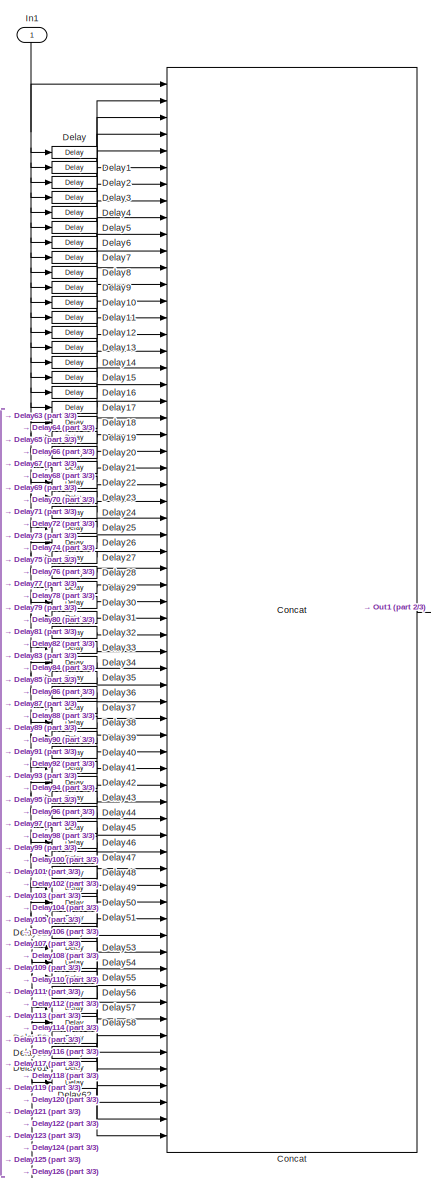
[diagram: Subsystem2 - part 1/3, top left region]
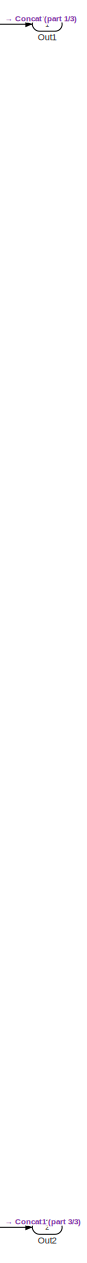
[diagram: Subsystem2 - part 2/3, middle right region]
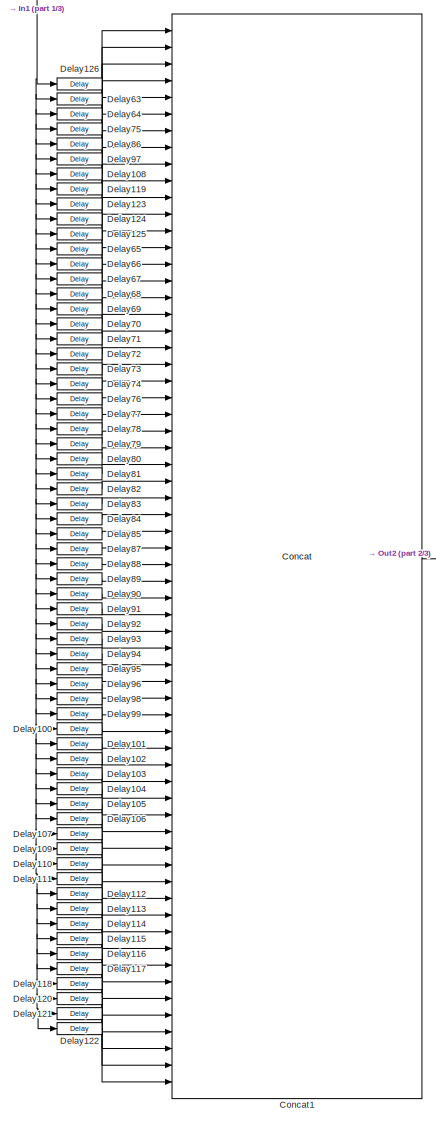
[diagram: Subsystem2 - part 3/3, bottom left region]
BLOCK [SubSystem] Subsystem2
  FunctionWithSeparateData = off
  MaskHideContents = off
  MinAlgLoopOccurrences = off
  Opaque = off
  Ports = [1, 2]
  PropExecContextOutsideSubsystem = off
  RTWSystemCode = Auto
  RequestExecContextInheritance = off
BLOCK [Reference] Subsystem2/Concat  REF=xbsIndex_r4/Concat
  Ports = [64, 1]
  SourceBlock = xbsIndex_r4/Concat
  SourceType = Xilinx Bus Concatenator Block
  block_type = concat
  dbl_ovrd = off
  has_advanced_control = 0
  infoedit = Concatenates two or more inputs.  Output will be cast to an unsigned value with the binary point at zero.
  num_inputs = 64
  sg_icon_stat = 250,1085,64,1,white,blue,0,b5b5690a,right,,[ ],[ ]
  sg_mask_display = fprintf('','COMMENT: begin icon graphics');\npatch([0 250 250 0 0 ],[0 0 1085 1085 0 ],[0.77 0.82 0.91 ]);\nplot([0 250 250 0 0 ],[0 0 1085 1085 0 ]);\npatch([47.125 97.7 132.7 167.7 202.7 132.7 82.125 47.125 ],[580.85 580.85 615.85 580.85 615.85 615.85 615.85 580.85 ],[1 1 1 ]);\npatch([82.125 132.7 97.7 47.125 82.125 ],[545.85 545.85 580.85 580.85 545.85 ],[0.931 0.946 0.973 ]);\npatch([47.125 97.7 1...<+522ch>
  sggui_pos = 63,24,328,208
BLOCK [Reference] Subsystem2/Concat1  REF=xbsIndex_r4/Concat
  Ports = [64, 1]
  SourceBlock = xbsIndex_r4/Concat
  SourceType = Xilinx Bus Concatenator Block
  block_type = concat
  dbl_ovrd = off
  has_advanced_control = 0
  infoedit = Concatenates two or more inputs.  Output will be cast to an unsigned value with the binary point at zero.
  num_inputs = 64
  sg_icon_stat = 250,1085,64,1,white,blue,0,b5b5690a,right,,[ ],[ ]
  sg_mask_display = fprintf('','COMMENT: begin icon graphics');\npatch([0 250 250 0 0 ],[0 0 1085 1085 0 ],[0.77 0.82 0.91 ]);\nplot([0 250 250 0 0 ],[0 0 1085 1085 0 ]);\npatch([47.125 97.7 132.7 167.7 202.7 132.7 82.125 47.125 ],[580.85 580.85 615.85 580.85 615.85 615.85 615.85 580.85 ],[1 1 1 ]);\npatch([82.125 132.7 97.7 47.125 82.125 ],[545.85 545.85 580.85 580.85 545.85 ],[0.931 0.946 0.973 ]);\npatch([47.125 97.7 1...<+522ch>
  sggui_pos = 63,24,328,208
BLOCK [Reference] Subsystem2/Delay  REF=xbsIndex_r4/Delay
  Ports = [1, 1]
  SourceBlock = xbsIndex_r4/Delay
  SourceType = Xilinx Delay Block
  block_type = delay
  dbl_ovrd = off
  en = off
  has_advanced_control = 0
  infoedit = Hardware notes: A delay line is a chain, each link of which is an SRL16 followed by a flip-flop.
  infoeditControl = Selection of Reset will increase slice count due to use of real FFs and instead of SRLs
  latency = 1
  reg_retiming = off
  rst = off
  sg_icon_stat = 45,12,1,1,white,blue,0,07b98262,right,,[ ],[ ]
  sg_mask_display = fprintf('','COMMENT: begin icon graphics');\npatch([0 45 45 0 0 ],[0 0 12 12 0 ],[0.77 0.82 0.91 ]);\nplot([0 45 45 0 0 ],[0 0 12 12 0 ]);\npatch([19.775 21.22 22.22 23.22 24.22 22.22 20.775 19.775 ],[7.11 7.11 8.11 7.11 8.11 8.11 8.11 7.11 ],[1 1 1 ]);\npatch([20.775 22.22 21.22 19.775 20.775 ],[6.11 6.11 7.11 7.11 6.11 ],[0.931 0.946 0.973 ]);\npatch([19.775 21.22 22.22 20.775 19.775 ],[5.11 5.11 6.1...<+307ch>  <repeated x36 — deduplicated; at blocks: Delay, Delay1, Delay2, Delay3, Delay4, Delay5, Delay6, Delay7, Delay8>
  sggui_pos = -1,-1,-1,-1
  xl_area = [0,0,0,0,0,0,0]
  xl_use_area = off
BLOCK [Reference] Subsystem2/Delay1  REF=xbsIndex_r4/Delay
  Ports = [1, 1]
  SourceBlock = xbsIndex_r4/Delay
  SourceType = Xilinx Delay Block
  block_type = delay
  dbl_ovrd = off
  en = off
  has_advanced_control = 0
  infoedit = Hardware notes: A delay line is a chain, each link of which is an SRL16 followed by a flip-flop.
  infoeditControl = Selection of Reset will increase slice count due to use of real FFs and instead of SRLs
  latency = 2
  reg_retiming = off
  rst = off
  sg_icon_stat = 45,12,1,1,white,blue,0,85ce9542,right,,[ ],[ ]
  sggui_pos = 73,34,416,361
  xl_area = [0,0,0,0,0,0,0]
  xl_use_area = off
BLOCK [Reference] Subsystem2/Delay10  REF=xbsIndex_r4/Delay
  Ports = [1, 1]
  SourceBlock = xbsIndex_r4/Delay
  SourceType = Xilinx Delay Block
  block_type = delay
  dbl_ovrd = off
  en = off
  has_advanced_control = 0
  infoedit = Hardware notes: A delay line is a chain, each link of which is an SRL16 followed by a flip-flop.
  infoeditControl = Selection of Reset will increase slice count due to use of real FFs and instead of SRLs
  latency = 11
  reg_retiming = off
  rst = off
  sg_icon_stat = 45,12,1,1,white,blue,0,1a71059f,right,,[ ],[ ]
  sg_mask_display = fprintf('','COMMENT: begin icon graphics');\npatch([0 45 45 0 0 ],[0 0 12 12 0 ],[0.77 0.82 0.91 ]);\nplot([0 45 45 0 0 ],[0 0 12 12 0 ]);\npatch([19.775 21.22 22.22 23.22 24.22 22.22 20.775 19.775 ],[7.11 7.11 8.11 7.11 8.11 8.11 8.11 7.11 ],[1 1 1 ]);\npatch([20.775 22.22 21.22 19.775 20.775 ],[6.11 6.11 7.11 7.11 6.11 ],[0.931 0.946 0.973 ]);\npatch([19.775 21.22 22.22 20.775 19.775 ],[5.11 5.11 6.1...<+308ch>  <repeated x149 — deduplicated; at blocks: Delay10, Delay108, Delay11, Delay119, Delay12, Delay123, Delay124, Delay125, Delay126, Delay13, Delay14, Delay15, Delay16, Delay17, Delay18, Delay19, +74 more>
  sggui_pos = 53,14,416,361
  xl_area = [0,0,0,0,0,0,0]
  xl_use_area = off
BLOCK [Reference] Subsystem2/Delay100  REF=xbsIndex_r4/Delay
  Ports = [1, 1]
  SourceBlock = xbsIndex_r4/Delay
  SourceType = Xilinx Delay Block
  block_type = delay
  dbl_ovrd = off
  en = off
  has_advanced_control = 0
  infoedit = Hardware notes: A delay line is a chain, each link of which is an SRL16 followed by a flip-flop.
  infoeditControl = Selection of Reset will increase slice count due to use of real FFs and instead of SRLs
  latency = 107
  reg_retiming = off
  rst = off
  sg_icon_stat = 45,12,1,1,white,blue,0,7123d3d5,right,,[ ],[ ]
  sg_mask_display = fprintf('','COMMENT: begin icon graphics');\npatch([0 45 45 0 0 ],[0 0 12 12 0 ],[0.77 0.82 0.91 ]);\nplot([0 45 45 0 0 ],[0 0 12 12 0 ]);\npatch([19.775 21.22 22.22 23.22 24.22 22.22 20.775 19.775 ],[7.11 7.11 8.11 7.11 8.11 8.11 8.11 7.11 ],[1 1 1 ]);\npatch([20.775 22.22 21.22 19.775 20.775 ],[6.11 6.11 7.11 7.11 6.11 ],[0.931 0.946 0.973 ]);\npatch([19.775 21.22 22.22 20.775 19.775 ],[5.11 5.11 6.1...<+309ch>  <repeated x28 — deduplicated; at blocks: Delay100, Delay101, Delay102, Delay103, Delay104, Delay105, Delay106, Delay107, Delay109, Delay110, Delay111, Delay112, Delay113, Delay114, Delay115, Delay116, +12 more>
  sggui_pos = 53,14,416,361
  xl_area = [0,0,0,0,0,0,0]
  xl_use_area = off
BLOCK [Reference] Subsystem2/Delay101  REF=xbsIndex_r4/Delay
  Ports = [1, 1]
  SourceBlock = xbsIndex_r4/Delay
  SourceType = Xilinx Delay Block
  block_type = delay
  dbl_ovrd = off
  en = off
  has_advanced_control = 0
  infoedit = Hardware notes: A delay line is a chain, each link of which is an SRL16 followed by a flip-flop.
  infoeditControl = Selection of Reset will increase slice count due to use of real FFs and instead of SRLs
  latency = 108
  reg_retiming = off
  rst = off
  sg_icon_stat = 45,12,1,1,white,blue,0,a81df842,right,,[ ],[ ]
  sggui_pos = 53,14,416,361
  xl_area = [0,0,0,0,0,0,0]
  xl_use_area = off
BLOCK [Reference] Subsystem2/Delay102  REF=xbsIndex_r4/Delay
  Ports = [1, 1]
  SourceBlock = xbsIndex_r4/Delay
  SourceType = Xilinx Delay Block
  block_type = delay
  dbl_ovrd = off
  en = off
  has_advanced_control = 0
  infoedit = Hardware notes: A delay line is a chain, each link of which is an SRL16 followed by a flip-flop.
  infoeditControl = Selection of Reset will increase slice count due to use of real FFs and instead of SRLs
  latency = 109
  reg_retiming = off
  rst = off
  sg_icon_stat = 45,12,1,1,white,blue,0,e148f6d0,right,,[ ],[ ]
  sggui_pos = 53,14,416,361
  xl_area = [0,0,0,0,0,0,0]
  xl_use_area = off
BLOCK [Reference] Subsystem2/Delay103  REF=xbsIndex_r4/Delay
  Ports = [1, 1]
  SourceBlock = xbsIndex_r4/Delay
  SourceType = Xilinx Delay Block
  block_type = delay
  dbl_ovrd = off
  en = off
  has_advanced_control = 0
  infoedit = Hardware notes: A delay line is a chain, each link of which is an SRL16 followed by a flip-flop.
  infoeditControl = Selection of Reset will increase slice count due to use of real FFs and instead of SRLs
  latency = 110
  reg_retiming = off
  rst = off
  sg_icon_stat = 45,12,1,1,white,blue,0,3a4e3aeb,right,,[ ],[ ]
  sggui_pos = 53,14,416,361
  xl_area = [0,0,0,0,0,0,0]
  xl_use_area = off
BLOCK [Reference] Subsystem2/Delay104  REF=xbsIndex_r4/Delay
  Ports = [1, 1]
  SourceBlock = xbsIndex_r4/Delay
  SourceType = Xilinx Delay Block
  block_type = delay
  dbl_ovrd = off
  en = off
  has_advanced_control = 0
  infoedit = Hardware notes: A delay line is a chain, each link of which is an SRL16 followed by a flip-flop.
  infoeditControl = Selection of Reset will increase slice count due to use of real FFs and instead of SRLs
  latency = 111
  reg_retiming = off
  rst = off
  sg_icon_stat = 45,12,1,1,white,blue,0,999b6491,right,,[ ],[ ]
  sggui_pos = 53,14,416,361
  xl_area = [0,0,0,0,0,0,0]
  xl_use_area = off
BLOCK [Reference] Subsystem2/Delay105  REF=xbsIndex_r4/Delay
  Ports = [1, 1]
  SourceBlock = xbsIndex_r4/Delay
  SourceType = Xilinx Delay Block
  block_type = delay
  dbl_ovrd = off
  en = off
  has_advanced_control = 0
  infoedit = Hardware notes: A delay line is a chain, each link of which is an SRL16 followed by a flip-flop.
  infoeditControl = Selection of Reset will increase slice count due to use of real FFs and instead of SRLs
  latency = 112
  reg_retiming = off
  rst = off
  sg_icon_stat = 45,12,1,1,white,blue,0,d54110c0,right,,[ ],[ ]
  sggui_pos = 53,14,416,361
  xl_area = [0,0,0,0,0,0,0]
  xl_use_area = off
BLOCK [Reference] Subsystem2/Delay106  REF=xbsIndex_r4/Delay
  Ports = [1, 1]
  SourceBlock = xbsIndex_r4/Delay
  SourceType = Xilinx Delay Block
  block_type = delay
  dbl_ovrd = off
  en = off
  has_advanced_control = 0
  infoedit = Hardware notes: A delay line is a chain, each link of which is an SRL16 followed by a flip-flop.
  infoeditControl = Selection of Reset will increase slice count due to use of real FFs and instead of SRLs
  latency = 113
  reg_retiming = off
  rst = off
  sg_icon_stat = 45,12,1,1,white,blue,0,c7ec4ce5,right,,[ ],[ ]
  sggui_pos = 53,14,416,361
  xl_area = [0,0,0,0,0,0,0]
  xl_use_area = off
BLOCK [Reference] Subsystem2/Delay107  REF=xbsIndex_r4/Delay
  Ports = [1, 1]
  SourceBlock = xbsIndex_r4/Delay
  SourceType = Xilinx Delay Block
  block_type = delay
  dbl_ovrd = off
  en = off
  has_advanced_control = 0
  infoedit = Hardware notes: A delay line is a chain, each link of which is an SRL16 followed by a flip-flop.
  infoeditControl = Selection of Reset will increase slice count due to use of real FFs and instead of SRLs
  latency = 114
  reg_retiming = off
  rst = off
  sg_icon_stat = 45,12,1,1,white,blue,0,f5a157fb,right,,[ ],[ ]
  sggui_pos = 53,14,416,361
  xl_area = [0,0,0,0,0,0,0]
  xl_use_area = off
BLOCK [Reference] Subsystem2/Delay108  REF=xbsIndex_r4/Delay
  Ports = [1, 1]
  SourceBlock = xbsIndex_r4/Delay
  SourceType = Xilinx Delay Block
  block_type = delay
  dbl_ovrd = off
  en = off
  has_advanced_control = 0
  infoedit = Hardware notes: A delay line is a chain, each link of which is an SRL16 followed by a flip-flop.
  infoeditControl = Selection of Reset will increase slice count due to use of real FFs and instead of SRLs
  latency = 70
  reg_retiming = off
  rst = off
  sg_icon_stat = 45,12,1,1,white,blue,0,3c4395a3,right,,[ ],[ ]
  sggui_pos = 53,14,416,361
  xl_area = [0,0,0,0,0,0,0]
  xl_use_area = off
BLOCK [Reference] Subsystem2/Delay109  REF=xbsIndex_r4/Delay
  Ports = [1, 1]
  SourceBlock = xbsIndex_r4/Delay
  SourceType = Xilinx Delay Block
  block_type = delay
  dbl_ovrd = off
  en = off
  has_advanced_control = 0
  infoedit = Hardware notes: A delay line is a chain, each link of which is an SRL16 followed by a flip-flop.
  infoeditControl = Selection of Reset will increase slice count due to use of real FFs and instead of SRLs
  latency = 115
  reg_retiming = off
  rst = off
  sg_icon_stat = 45,12,1,1,white,blue,0,f2ae5abd,right,,[ ],[ ]
  sggui_pos = 53,14,416,361
  xl_area = [0,0,0,0,0,0,0]
  xl_use_area = off
BLOCK [Reference] Subsystem2/Delay11  REF=xbsIndex_r4/Delay
  Ports = [1, 1]
  SourceBlock = xbsIndex_r4/Delay
  SourceType = Xilinx Delay Block
  block_type = delay
  dbl_ovrd = off
  en = off
  has_advanced_control = 0
  infoedit = Hardware notes: A delay line is a chain, each link of which is an SRL16 followed by a flip-flop.
  infoeditControl = Selection of Reset will increase slice count due to use of real FFs and instead of SRLs
  latency = 12
  reg_retiming = off
  rst = off
  sg_icon_stat = 45,12,1,1,white,blue,0,aa753640,right,,[ ],[ ]
  sggui_pos = 53,14,416,361
  xl_area = [0,0,0,0,0,0,0]
  xl_use_area = off
BLOCK [Reference] Subsystem2/Delay110  REF=xbsIndex_r4/Delay
  Ports = [1, 1]
  SourceBlock = xbsIndex_r4/Delay
  SourceType = Xilinx Delay Block
  block_type = delay
  dbl_ovrd = off
  en = off
  has_advanced_control = 0
  infoedit = Hardware notes: A delay line is a chain, each link of which is an SRL16 followed by a flip-flop.
  infoeditControl = Selection of Reset will increase slice count due to use of real FFs and instead of SRLs
  latency = 116
  reg_retiming = off
  rst = off
  sg_icon_stat = 45,12,1,1,white,blue,0,b695b0ee,right,,[ ],[ ]
  sggui_pos = 53,14,416,361
  xl_area = [0,0,0,0,0,0,0]
  xl_use_area = off
BLOCK [Reference] Subsystem2/Delay111  REF=xbsIndex_r4/Delay
  Ports = [1, 1]
  SourceBlock = xbsIndex_r4/Delay
  SourceType = Xilinx Delay Block
  block_type = delay
  dbl_ovrd = off
  en = off
  has_advanced_control = 0
  infoedit = Hardware notes: A delay line is a chain, each link of which is an SRL16 followed by a flip-flop.
  infoeditControl = Selection of Reset will increase slice count due to use of real FFs and instead of SRLs
  latency = 117
  reg_retiming = off
  rst = off
  sg_icon_stat = 45,12,1,1,white,blue,0,26eb20dd,right,,[ ],[ ]
  sggui_pos = 53,14,416,361
  xl_area = [0,0,0,0,0,0,0]
  xl_use_area = off
BLOCK [Reference] Subsystem2/Delay112  REF=xbsIndex_r4/Delay
  Ports = [1, 1]
  SourceBlock = xbsIndex_r4/Delay
  SourceType = Xilinx Delay Block
  block_type = delay
  dbl_ovrd = off
  en = off
  has_advanced_control = 0
  infoedit = Hardware notes: A delay line is a chain, each link of which is an SRL16 followed by a flip-flop.
  infoeditControl = Selection of Reset will increase slice count due to use of real FFs and instead of SRLs
  latency = 118
  reg_retiming = off
  rst = off
  sg_icon_stat = 45,12,1,1,white,blue,0,281af177,right,,[ ],[ ]
  sggui_pos = 53,14,416,361
  xl_area = [0,0,0,0,0,0,0]
  xl_use_area = off
BLOCK [Reference] Subsystem2/Delay113  REF=xbsIndex_r4/Delay
  Ports = [1, 1]
  SourceBlock = xbsIndex_r4/Delay
  SourceType = Xilinx Delay Block
  block_type = delay
  dbl_ovrd = off
  en = off
  has_advanced_control = 0
  infoedit = Hardware notes: A delay line is a chain, each link of which is an SRL16 followed by a flip-flop.
  infoeditControl = Selection of Reset will increase slice count due to use of real FFs and instead of SRLs
  latency = 119
  reg_retiming = off
  rst = off
  sg_icon_stat = 45,12,1,1,white,blue,0,72e212f8,right,,[ ],[ ]
  sggui_pos = 53,14,416,361
  xl_area = [0,0,0,0,0,0,0]
  xl_use_area = off
BLOCK [Reference] Subsystem2/Delay114  REF=xbsIndex_r4/Delay
  Ports = [1, 1]
  SourceBlock = xbsIndex_r4/Delay
  SourceType = Xilinx Delay Block
  block_type = delay
  dbl_ovrd = off
  en = off
  has_advanced_control = 0
  infoedit = Hardware notes: A delay line is a chain, each link of which is an SRL16 followed by a flip-flop.
  infoeditControl = Selection of Reset will increase slice count due to use of real FFs and instead of SRLs
  latency = 120
  reg_retiming = off
  rst = off
  sg_icon_stat = 45,12,1,1,white,blue,0,f7a13dd5,right,,[ ],[ ]
  sggui_pos = 53,14,416,361
  xl_area = [0,0,0,0,0,0,0]
  xl_use_area = off
BLOCK [Reference] Subsystem2/Delay115  REF=xbsIndex_r4/Delay
  Ports = [1, 1]
  SourceBlock = xbsIndex_r4/Delay
  SourceType = Xilinx Delay Block
  block_type = delay
  dbl_ovrd = off
  en = off
  has_advanced_control = 0
  infoedit = Hardware notes: A delay line is a chain, each link of which is an SRL16 followed by a flip-flop.
  infoeditControl = Selection of Reset will increase slice count due to use of real FFs and instead of SRLs
  latency = 121
  reg_retiming = off
  rst = off
  sg_icon_stat = 45,12,1,1,white,blue,0,88cf9b0e,right,,[ ],[ ]
  sggui_pos = 53,14,416,361
  xl_area = [0,0,0,0,0,0,0]
  xl_use_area = off
BLOCK [Reference] Subsystem2/Delay116  REF=xbsIndex_r4/Delay
  Ports = [1, 1]
  SourceBlock = xbsIndex_r4/Delay
  SourceType = Xilinx Delay Block
  block_type = delay
  dbl_ovrd = off
  en = off
  has_advanced_control = 0
  infoedit = Hardware notes: A delay line is a chain, each link of which is an SRL16 followed by a flip-flop.
  infoeditControl = Selection of Reset will increase slice count due to use of real FFs and instead of SRLs
  latency = 122
  reg_retiming = off
  rst = off
  sg_icon_stat = 45,12,1,1,white,blue,0,315ea61d,right,,[ ],[ ]
  sggui_pos = 53,14,416,361
  xl_area = [0,0,0,0,0,0,0]
  xl_use_area = off
BLOCK [Reference] Subsystem2/Delay117  REF=xbsIndex_r4/Delay
  Ports = [1, 1]
  SourceBlock = xbsIndex_r4/Delay
  SourceType = Xilinx Delay Block
  block_type = delay
  dbl_ovrd = off
  en = off
  has_advanced_control = 0
  infoedit = Hardware notes: A delay line is a chain, each link of which is an SRL16 followed by a flip-flop.
  infoeditControl = Selection of Reset will increase slice count due to use of real FFs and instead of SRLs
  latency = 123
  reg_retiming = off
  rst = off
  sg_icon_stat = 45,12,1,1,white,blue,0,b0698b93,right,,[ ],[ ]
  sggui_pos = 53,14,416,361
  xl_area = [0,0,0,0,0,0,0]
  xl_use_area = off
BLOCK [Reference] Subsystem2/Delay118  REF=xbsIndex_r4/Delay
  Ports = [1, 1]
  SourceBlock = xbsIndex_r4/Delay
  SourceType = Xilinx Delay Block
  block_type = delay
  dbl_ovrd = off
  en = off
  has_advanced_control = 0
  infoedit = Hardware notes: A delay line is a chain, each link of which is an SRL16 followed by a flip-flop.
  infoeditControl = Selection of Reset will increase slice count due to use of real FFs and instead of SRLs
  latency = 124
  reg_retiming = off
  rst = off
  sg_icon_stat = 45,12,1,1,white,blue,0,1cdf1497,right,,[ ],[ ]
  sggui_pos = 53,14,416,361
  xl_area = [0,0,0,0,0,0,0]
  xl_use_area = off
BLOCK [Reference] Subsystem2/Delay119  REF=xbsIndex_r4/Delay
  Ports = [1, 1]
  SourceBlock = xbsIndex_r4/Delay
  SourceType = Xilinx Delay Block
  block_type = delay
  dbl_ovrd = off
  en = off
  has_advanced_control = 0
  infoedit = Hardware notes: A delay line is a chain, each link of which is an SRL16 followed by a flip-flop.
  infoeditControl = Selection of Reset will increase slice count due to use of real FFs and instead of SRLs
  latency = 71
  reg_retiming = off
  rst = off
  sg_icon_stat = 45,12,1,1,white,blue,0,1f2a0db0,right,,[ ],[ ]
  sggui_pos = 53,14,416,361
  xl_area = [0,0,0,0,0,0,0]
  xl_use_area = off
BLOCK [Reference] Subsystem2/Delay12  REF=xbsIndex_r4/Delay
  Ports = [1, 1]
  SourceBlock = xbsIndex_r4/Delay
  SourceType = Xilinx Delay Block
  block_type = delay
  dbl_ovrd = off
  en = off
  has_advanced_control = 0
  infoedit = Hardware notes: A delay line is a chain, each link of which is an SRL16 followed by a flip-flop.
  infoeditControl = Selection of Reset will increase slice count due to use of real FFs and instead of SRLs
  latency = 13
  reg_retiming = off
  rst = off
  sg_icon_stat = 45,12,1,1,white,blue,0,58c8c5ee,right,,[ ],[ ]
  sggui_pos = 53,14,416,361
  xl_area = [0,0,0,0,0,0,0]
  xl_use_area = off
BLOCK [Reference] Subsystem2/Delay120  REF=xbsIndex_r4/Delay
  Ports = [1, 1]
  SourceBlock = xbsIndex_r4/Delay
  SourceType = Xilinx Delay Block
  block_type = delay
  dbl_ovrd = off
  en = off
  has_advanced_control = 0
  infoedit = Hardware notes: A delay line is a chain, each link of which is an SRL16 followed by a flip-flop.
  infoeditControl = Selection of Reset will increase slice count due to use of real FFs and instead of SRLs
  latency = 125
  reg_retiming = off
  rst = off
  sg_icon_stat = 45,12,1,1,white,blue,0,2dc4f9a2,right,,[ ],[ ]
  sggui_pos = 53,14,416,361
  xl_area = [0,0,0,0,0,0,0]
  xl_use_area = off
BLOCK [Reference] Subsystem2/Delay121  REF=xbsIndex_r4/Delay
  Ports = [1, 1]
  SourceBlock = xbsIndex_r4/Delay
  SourceType = Xilinx Delay Block
  block_type = delay
  dbl_ovrd = off
  en = off
  has_advanced_control = 0
  infoedit = Hardware notes: A delay line is a chain, each link of which is an SRL16 followed by a flip-flop.
  infoeditControl = Selection of Reset will increase slice count due to use of real FFs and instead of SRLs
  latency = 126
  reg_retiming = off
  rst = off
  sg_icon_stat = 45,12,1,1,white,blue,0,ae2b2e8f,right,,[ ],[ ]
  sggui_pos = 53,14,416,361
  xl_area = [0,0,0,0,0,0,0]
  xl_use_area = off
BLOCK [Reference] Subsystem2/Delay122  REF=xbsIndex_r4/Delay
  Ports = [1, 1]
  SourceBlock = xbsIndex_r4/Delay
  SourceType = Xilinx Delay Block
  block_type = delay
  dbl_ovrd = off
  en = off
  has_advanced_control = 0
  infoedit = Hardware notes: A delay line is a chain, each link of which is an SRL16 followed by a flip-flop.
  infoeditControl = Selection of Reset will increase slice count due to use of real FFs and instead of SRLs
  latency = 127
  reg_retiming = off
  rst = off
  sg_icon_stat = 45,12,1,1,white,blue,0,4723cb12,right,,[ ],[ ]
  sggui_pos = 53,14,416,361
  xl_area = [0,0,0,0,0,0,0]
  xl_use_area = off
BLOCK [Reference] Subsystem2/Delay123  REF=xbsIndex_r4/Delay
  Ports = [1, 1]
  SourceBlock = xbsIndex_r4/Delay
  SourceType = Xilinx Delay Block
  block_type = delay
  dbl_ovrd = off
  en = off
  has_advanced_control = 0
  infoedit = Hardware notes: A delay line is a chain, each link of which is an SRL16 followed by a flip-flop.
  infoeditControl = Selection of Reset will increase slice count due to use of real FFs and instead of SRLs
  latency = 72
  reg_retiming = off
  rst = off
  sg_icon_stat = 45,12,1,1,white,blue,0,4e88753d,right,,[ ],[ ]
  sggui_pos = 53,14,416,361
  xl_area = [0,0,0,0,0,0,0]
  xl_use_area = off
BLOCK [Reference] Subsystem2/Delay124  REF=xbsIndex_r4/Delay
  Ports = [1, 1]
  SourceBlock = xbsIndex_r4/Delay
  SourceType = Xilinx Delay Block
  block_type = delay
  dbl_ovrd = off
  en = off
  has_advanced_control = 0
  infoedit = Hardware notes: A delay line is a chain, each link of which is an SRL16 followed by a flip-flop.
  infoeditControl = Selection of Reset will increase slice count due to use of real FFs and instead of SRLs
  latency = 73
  reg_retiming = off
  rst = off
  sg_icon_stat = 45,12,1,1,white,blue,0,e6e4fbd5,right,,[ ],[ ]
  sggui_pos = 53,14,416,361
  xl_area = [0,0,0,0,0,0,0]
  xl_use_area = off
BLOCK [Reference] Subsystem2/Delay125  REF=xbsIndex_r4/Delay
  Ports = [1, 1]
  SourceBlock = xbsIndex_r4/Delay
  SourceType = Xilinx Delay Block
  block_type = delay
  dbl_ovrd = off
  en = off
  has_advanced_control = 0
  infoedit = Hardware notes: A delay line is a chain, each link of which is an SRL16 followed by a flip-flop.
  infoeditControl = Selection of Reset will increase slice count due to use of real FFs and instead of SRLs
  latency = 74
  reg_retiming = off
  rst = off
  sg_icon_stat = 45,12,1,1,white,blue,0,2bcf4cdb,right,,[ ],[ ]
  sggui_pos = 53,14,416,361
  xl_area = [0,0,0,0,0,0,0]
  xl_use_area = off
BLOCK [Reference] Subsystem2/Delay126  REF=xbsIndex_r4/Delay
  Ports = [1, 1]
  SourceBlock = xbsIndex_r4/Delay
  SourceType = Xilinx Delay Block
  block_type = delay
  dbl_ovrd = off
  en = off
  has_advanced_control = 0
  infoedit = Hardware notes: A delay line is a chain, each link of which is an SRL16 followed by a flip-flop.
  infoeditControl = Selection of Reset will increase slice count due to use of real FFs and instead of SRLs
  latency = 64
  reg_retiming = off
  rst = off
  sg_icon_stat = 45,12,1,1,white,blue,0,0603ebe1,right,,[ ],[ ]
  sggui_pos = 53,14,416,361
  xl_area = [0,0,0,0,0,0,0]
  xl_use_area = off
BLOCK [Reference] Subsystem2/Delay13  REF=xbsIndex_r4/Delay
  Ports = [1, 1]
  SourceBlock = xbsIndex_r4/Delay
  SourceType = Xilinx Delay Block
  block_type = delay
  dbl_ovrd = off
  en = off
  has_advanced_control = 0
  infoedit = Hardware notes: A delay line is a chain, each link of which is an SRL16 followed by a flip-flop.
  infoeditControl = Selection of Reset will increase slice count due to use of real FFs and instead of SRLs
  latency = 14
  reg_retiming = off
  rst = off
  sg_icon_stat = 45,12,1,1,white,blue,0,b993dfc9,right,,[ ],[ ]
  sggui_pos = 53,14,416,361
  xl_area = [0,0,0,0,0,0,0]
  xl_use_area = off
BLOCK [Reference] Subsystem2/Delay14  REF=xbsIndex_r4/Delay
  Ports = [1, 1]
  SourceBlock = xbsIndex_r4/Delay
  SourceType = Xilinx Delay Block
  block_type = delay
  dbl_ovrd = off
  en = off
  has_advanced_control = 0
  infoedit = Hardware notes: A delay line is a chain, each link of which is an SRL16 followed by a flip-flop.
  infoeditControl = Selection of Reset will increase slice count due to use of real FFs and instead of SRLs
  latency = 15
  reg_retiming = off
  rst = off
  sg_icon_stat = 45,12,1,1,white,blue,0,c21c4c41,right,,[ ],[ ]
  sggui_pos = 53,14,416,361
  xl_area = [0,0,0,0,0,0,0]
  xl_use_area = off
BLOCK [Reference] Subsystem2/Delay15  REF=xbsIndex_r4/Delay
  Ports = [1, 1]
  SourceBlock = xbsIndex_r4/Delay
  SourceType = Xilinx Delay Block
  block_type = delay
  dbl_ovrd = off
  en = off
  has_advanced_control = 0
  infoedit = Hardware notes: A delay line is a chain, each link of which is an SRL16 followed by a flip-flop.
  infoeditControl = Selection of Reset will increase slice count due to use of real FFs and instead of SRLs
  latency = 16
  reg_retiming = off
  rst = off
  sg_icon_stat = 45,12,1,1,white,blue,0,f89f7887,right,,[ ],[ ]
  sggui_pos = 53,14,416,361
  xl_area = [0,0,0,0,0,0,0]
  xl_use_area = off
BLOCK [Reference] Subsystem2/Delay16  REF=xbsIndex_r4/Delay
  Ports = [1, 1]
  SourceBlock = xbsIndex_r4/Delay
  SourceType = Xilinx Delay Block
  block_type = delay
  dbl_ovrd = off
  en = off
  has_advanced_control = 0
  infoedit = Hardware notes: A delay line is a chain, each link of which is an SRL16 followed by a flip-flop.
  infoeditControl = Selection of Reset will increase slice count due to use of real FFs and instead of SRLs
  latency = 17
  reg_retiming = off
  rst = off
  sg_icon_stat = 45,12,1,1,white,blue,0,1003b046,right,,[ ],[ ]
  sggui_pos = 53,14,416,361
  xl_area = [0,0,0,0,0,0,0]
  xl_use_area = off
BLOCK [Reference] Subsystem2/Delay17  REF=xbsIndex_r4/Delay
  Ports = [1, 1]
  SourceBlock = xbsIndex_r4/Delay
  SourceType = Xilinx Delay Block
  block_type = delay
  dbl_ovrd = off
  en = off
  has_advanced_control = 0
  infoedit = Hardware notes: A delay line is a chain, each link of which is an SRL16 followed by a flip-flop.
  infoeditControl = Selection of Reset will increase slice count due to use of real FFs and instead of SRLs
  latency = 18
  reg_retiming = off
  rst = off
  sg_icon_stat = 45,12,1,1,white,blue,0,1fb32ecb,right,,[ ],[ ]
  sggui_pos = 53,14,416,361
  xl_area = [0,0,0,0,0,0,0]
  xl_use_area = off
BLOCK [Reference] Subsystem2/Delay18  REF=xbsIndex_r4/Delay
  Ports = [1, 1]
  SourceBlock = xbsIndex_r4/Delay
  SourceType = Xilinx Delay Block
  block_type = delay
  dbl_ovrd = off
  en = off
  has_advanced_control = 0
  infoedit = Hardware notes: A delay line is a chain, each link of which is an SRL16 followed by a flip-flop.
  infoeditControl = Selection of Reset will increase slice count due to use of real FFs and instead of SRLs
  latency = 19
  reg_retiming = off
  rst = off
  sg_icon_stat = 45,12,1,1,white,blue,0,0720ba64,right,,[ ],[ ]
  sggui_pos = 53,14,416,361
  xl_area = [0,0,0,0,0,0,0]
  xl_use_area = off
BLOCK [Reference] Subsystem2/Delay19  REF=xbsIndex_r4/Delay
  Ports = [1, 1]
  SourceBlock = xbsIndex_r4/Delay
  SourceType = Xilinx Delay Block
  block_type = delay
  dbl_ovrd = off
  en = off
  has_advanced_control = 0
  infoedit = Hardware notes: A delay line is a chain, each link of which is an SRL16 followed by a flip-flop.
  infoeditControl = Selection of Reset will increase slice count due to use of real FFs and instead of SRLs
  latency = 20
  reg_retiming = off
  rst = off
  sg_icon_stat = 45,12,1,1,white,blue,0,5e785580,right,,[ ],[ ]
  sggui_pos = 53,14,416,361
  xl_area = [0,0,0,0,0,0,0]
  xl_use_area = off
BLOCK [Reference] Subsystem2/Delay2  REF=xbsIndex_r4/Delay
  Ports = [1, 1]
  SourceBlock = xbsIndex_r4/Delay
  SourceType = Xilinx Delay Block
  block_type = delay
  dbl_ovrd = off
  en = off
  has_advanced_control = 0
  infoedit = Hardware notes: A delay line is a chain, each link of which is an SRL16 followed by a flip-flop.
  infoeditControl = Selection of Reset will increase slice count due to use of real FFs and instead of SRLs
  latency = 3
  reg_retiming = off
  rst = off
  sg_icon_stat = 45,12,1,1,white,blue,0,83e6bb61,right,,[ ],[ ]
  sggui_pos = 63,24,416,361
  xl_area = [0,0,0,0,0,0,0]
  xl_use_area = off
BLOCK [Reference] Subsystem2/Delay20  REF=xbsIndex_r4/Delay
  Ports = [1, 1]
  SourceBlock = xbsIndex_r4/Delay
  SourceType = Xilinx Delay Block
  block_type = delay
  dbl_ovrd = off
  en = off
  has_advanced_control = 0
  infoedit = Hardware notes: A delay line is a chain, each link of which is an SRL16 followed by a flip-flop.
  infoeditControl = Selection of Reset will increase slice count due to use of real FFs and instead of SRLs
  latency = 21
  reg_retiming = off
  rst = off
  sg_icon_stat = 45,12,1,1,white,blue,0,721bfb8f,right,,[ ],[ ]
  sggui_pos = 53,14,416,361
  xl_area = [0,0,0,0,0,0,0]
  xl_use_area = off
BLOCK [Reference] Subsystem2/Delay21  REF=xbsIndex_r4/Delay
  Ports = [1, 1]
  SourceBlock = xbsIndex_r4/Delay
  SourceType = Xilinx Delay Block
  block_type = delay
  dbl_ovrd = off
  en = off
  has_advanced_control = 0
  infoedit = Hardware notes: A delay line is a chain, each link of which is an SRL16 followed by a flip-flop.
  infoeditControl = Selection of Reset will increase slice count due to use of real FFs and instead of SRLs
  latency = 22
  reg_retiming = off
  rst = off
  sg_icon_stat = 45,12,1,1,white,blue,0,d8ff96de,right,,[ ],[ ]
  sggui_pos = 53,14,416,361
  xl_area = [0,0,0,0,0,0,0]
  xl_use_area = off
BLOCK [Reference] Subsystem2/Delay22  REF=xbsIndex_r4/Delay
  Ports = [1, 1]
  SourceBlock = xbsIndex_r4/Delay
  SourceType = Xilinx Delay Block
  block_type = delay
  dbl_ovrd = off
  en = off
  has_advanced_control = 0
  infoedit = Hardware notes: A delay line is a chain, each link of which is an SRL16 followed by a flip-flop.
  infoeditControl = Selection of Reset will increase slice count due to use of real FFs and instead of SRLs
  latency = 23
  reg_retiming = off
  rst = off
  sg_icon_stat = 45,12,1,1,white,blue,0,b88b7ef0,right,,[ ],[ ]
  sggui_pos = 53,14,416,361
  xl_area = [0,0,0,0,0,0,0]
  xl_use_area = off
BLOCK [Reference] Subsystem2/Delay23  REF=xbsIndex_r4/Delay
  Ports = [1, 1]
  SourceBlock = xbsIndex_r4/Delay
  SourceType = Xilinx Delay Block
  block_type = delay
  dbl_ovrd = off
  en = off
  has_advanced_control = 0
  infoedit = Hardware notes: A delay line is a chain, each link of which is an SRL16 followed by a flip-flop.
  infoeditControl = Selection of Reset will increase slice count due to use of real FFs and instead of SRLs
  latency = 24
  reg_retiming = off
  rst = off
  sg_icon_stat = 45,12,1,1,white,blue,0,18aac261,right,,[ ],[ ]
  sggui_pos = 53,14,416,361
  xl_area = [0,0,0,0,0,0,0]
  xl_use_area = off
BLOCK [Reference] Subsystem2/Delay24  REF=xbsIndex_r4/Delay
  Ports = [1, 1]
  SourceBlock = xbsIndex_r4/Delay
  SourceType = Xilinx Delay Block
  block_type = delay
  dbl_ovrd = off
  en = off
  has_advanced_control = 0
  infoedit = Hardware notes: A delay line is a chain, each link of which is an SRL16 followed by a flip-flop.
  infoeditControl = Selection of Reset will increase slice count due to use of real FFs and instead of SRLs
  latency = 25
  reg_retiming = off
  rst = off
  sg_icon_stat = 45,12,1,1,white,blue,0,9b3f9d53,right,,[ ],[ ]
  sggui_pos = 53,14,416,361
  xl_area = [0,0,0,0,0,0,0]
  xl_use_area = off
BLOCK [Reference] Subsystem2/Delay25  REF=xbsIndex_r4/Delay
  Ports = [1, 1]
  SourceBlock = xbsIndex_r4/Delay
  SourceType = Xilinx Delay Block
  block_type = delay
  dbl_ovrd = off
  en = off
  has_advanced_control = 0
  infoedit = Hardware notes: A delay line is a chain, each link of which is an SRL16 followed by a flip-flop.
  infoeditControl = Selection of Reset will increase slice count due to use of real FFs and instead of SRLs
  latency = 26
  reg_retiming = off
  rst = off
  sg_icon_stat = 45,12,1,1,white,blue,0,c0f46c15,right,,[ ],[ ]
  sggui_pos = 53,14,416,361
  xl_area = [0,0,0,0,0,0,0]
  xl_use_area = off
BLOCK [Reference] Subsystem2/Delay26  REF=xbsIndex_r4/Delay
  Ports = [1, 1]
  SourceBlock = xbsIndex_r4/Delay
  SourceType = Xilinx Delay Block
  block_type = delay
  dbl_ovrd = off
  en = off
  has_advanced_control = 0
  infoedit = Hardware notes: A delay line is a chain, each link of which is an SRL16 followed by a flip-flop.
  infoeditControl = Selection of Reset will increase slice count due to use of real FFs and instead of SRLs
  latency = 27
  reg_retiming = off
  rst = off
  sg_icon_stat = 45,12,1,1,white,blue,0,0309fabc,right,,[ ],[ ]
  sggui_pos = 53,14,416,361
  xl_area = [0,0,0,0,0,0,0]
  xl_use_area = off
BLOCK [Reference] Subsystem2/Delay27  REF=xbsIndex_r4/Delay
  Ports = [1, 1]
  SourceBlock = xbsIndex_r4/Delay
  SourceType = Xilinx Delay Block
  block_type = delay
  dbl_ovrd = off
  en = off
  has_advanced_control = 0
  infoedit = Hardware notes: A delay line is a chain, each link of which is an SRL16 followed by a flip-flop.
  infoeditControl = Selection of Reset will increase slice count due to use of real FFs and instead of SRLs
  latency = 28
  reg_retiming = off
  rst = off
  sg_icon_stat = 45,12,1,1,white,blue,0,34950886,right,,[ ],[ ]
  sggui_pos = 53,14,416,361
  xl_area = [0,0,0,0,0,0,0]
  xl_use_area = off
BLOCK [Reference] Subsystem2/Delay28  REF=xbsIndex_r4/Delay
  Ports = [1, 1]
  SourceBlock = xbsIndex_r4/Delay
  SourceType = Xilinx Delay Block
  block_type = delay
  dbl_ovrd = off
  en = off
  has_advanced_control = 0
  infoedit = Hardware notes: A delay line is a chain, each link of which is an SRL16 followed by a flip-flop.
  infoeditControl = Selection of Reset will increase slice count due to use of real FFs and instead of SRLs
  latency = 29
  reg_retiming = off
  rst = off
  sg_icon_stat = 45,12,1,1,white,blue,0,e3412ff7,right,,[ ],[ ]
  sggui_pos = 53,14,416,361
  xl_area = [0,0,0,0,0,0,0]
  xl_use_area = off
BLOCK [Reference] Subsystem2/Delay29  REF=xbsIndex_r4/Delay
  Ports = [1, 1]
  SourceBlock = xbsIndex_r4/Delay
  SourceType = Xilinx Delay Block
  block_type = delay
  dbl_ovrd = off
  en = off
  has_advanced_control = 0
  infoedit = Hardware notes: A delay line is a chain, each link of which is an SRL16 followed by a flip-flop.
  infoeditControl = Selection of Reset will increase slice count due to use of real FFs and instead of SRLs
  latency = 30
  reg_retiming = off
  rst = off
  sg_icon_stat = 45,12,1,1,white,blue,0,f9a4cce5,right,,[ ],[ ]
  sggui_pos = 53,14,416,361
  xl_area = [0,0,0,0,0,0,0]
  xl_use_area = off
BLOCK [Reference] Subsystem2/Delay3  REF=xbsIndex_r4/Delay
  Ports = [1, 1]
  SourceBlock = xbsIndex_r4/Delay
  SourceType = Xilinx Delay Block
  block_type = delay
  dbl_ovrd = off
  en = off
  has_advanced_control = 0
  infoedit = Hardware notes: A delay line is a chain, each link of which is an SRL16 followed by a flip-flop.
  infoeditControl = Selection of Reset will increase slice count due to use of real FFs and instead of SRLs
  latency = 4
  reg_retiming = off
  rst = off
  sg_icon_stat = 45,12,1,1,white,blue,0,d390c2d8,right,,[ ],[ ]
  sggui_pos = 53,14,416,361
  xl_area = [0,0,0,0,0,0,0]
  xl_use_area = off
BLOCK [Reference] Subsystem2/Delay30  REF=xbsIndex_r4/Delay
  Ports = [1, 1]
  SourceBlock = xbsIndex_r4/Delay
  SourceType = Xilinx Delay Block
  block_type = delay
  dbl_ovrd = off
  en = off
  has_advanced_control = 0
  infoedit = Hardware notes: A delay line is a chain, each link of which is an SRL16 followed by a flip-flop.
  infoeditControl = Selection of Reset will increase slice count due to use of real FFs and instead of SRLs
  latency = 31
  reg_retiming = off
  rst = off
  sg_icon_stat = 45,12,1,1,white,blue,0,80935891,right,,[ ],[ ]
  sggui_pos = 53,14,416,361
  xl_area = [0,0,0,0,0,0,0]
  xl_use_area = off
BLOCK [Reference] Subsystem2/Delay31  REF=xbsIndex_r4/Delay
  Ports = [1, 1]
  SourceBlock = xbsIndex_r4/Delay
  SourceType = Xilinx Delay Block
  block_type = delay
  dbl_ovrd = off
  en = off
  has_advanced_control = 0
  infoedit = Hardware notes: A delay line is a chain, each link of which is an SRL16 followed by a flip-flop.
  infoeditControl = Selection of Reset will increase slice count due to use of real FFs and instead of SRLs
  latency = 32
  reg_retiming = off
  rst = off
  sg_icon_stat = 45,12,1,1,white,blue,0,05c6467a,right,,[ ],[ ]
  sggui_pos = 53,14,416,361
  xl_area = [0,0,0,0,0,0,0]
  xl_use_area = off
BLOCK [Reference] Subsystem2/Delay32  REF=xbsIndex_r4/Delay
  Ports = [1, 1]
  SourceBlock = xbsIndex_r4/Delay
  SourceType = Xilinx Delay Block
  block_type = delay
  dbl_ovrd = off
  en = off
  has_advanced_control = 0
  infoedit = Hardware notes: A delay line is a chain, each link of which is an SRL16 followed by a flip-flop.
  infoeditControl = Selection of Reset will increase slice count due to use of real FFs and instead of SRLs
  latency = 33
  reg_retiming = off
  rst = off
  sg_icon_stat = 45,12,1,1,white,blue,0,8d9e770e,right,,[ ],[ ]
  sggui_pos = 53,14,416,361
  xl_area = [0,0,0,0,0,0,0]
  xl_use_area = off
BLOCK [Reference] Subsystem2/Delay33  REF=xbsIndex_r4/Delay
  Ports = [1, 1]
  SourceBlock = xbsIndex_r4/Delay
  SourceType = Xilinx Delay Block
  block_type = delay
  dbl_ovrd = off
  en = off
  has_advanced_control = 0
  infoedit = Hardware notes: A delay line is a chain, each link of which is an SRL16 followed by a flip-flop.
  infoeditControl = Selection of Reset will increase slice count due to use of real FFs and instead of SRLs
  latency = 34
  reg_retiming = off
  rst = off
  sg_icon_stat = 45,12,1,1,white,blue,0,855ed298,right,,[ ],[ ]
  sggui_pos = 53,14,416,361
  xl_area = [0,0,0,0,0,0,0]
  xl_use_area = off
BLOCK [Reference] Subsystem2/Delay34  REF=xbsIndex_r4/Delay
  Ports = [1, 1]
  SourceBlock = xbsIndex_r4/Delay
  SourceType = Xilinx Delay Block
  block_type = delay
  dbl_ovrd = off
  en = off
  has_advanced_control = 0
  infoedit = Hardware notes: A delay line is a chain, each link of which is an SRL16 followed by a flip-flop.
  infoeditControl = Selection of Reset will increase slice count due to use of real FFs and instead of SRLs
  latency = 35
  reg_retiming = off
  rst = off
  sg_icon_stat = 45,12,1,1,white,blue,0,05283a76,right,,[ ],[ ]
  sggui_pos = 53,14,416,361
  xl_area = [0,0,0,0,0,0,0]
  xl_use_area = off
BLOCK [Reference] Subsystem2/Delay35  REF=xbsIndex_r4/Delay
  Ports = [1, 1]
  SourceBlock = xbsIndex_r4/Delay
  SourceType = Xilinx Delay Block
  block_type = delay
  dbl_ovrd = off
  en = off
  has_advanced_control = 0
  infoedit = Hardware notes: A delay line is a chain, each link of which is an SRL16 followed by a flip-flop.
  infoeditControl = Selection of Reset will increase slice count due to use of real FFs and instead of SRLs
  latency = 36
  reg_retiming = off
  rst = off
  sg_icon_stat = 45,12,1,1,white,blue,0,be063b2e,right,,[ ],[ ]
  sggui_pos = 53,14,416,361
  xl_area = [0,0,0,0,0,0,0]
  xl_use_area = off
BLOCK [Reference] Subsystem2/Delay36  REF=xbsIndex_r4/Delay
  Ports = [1, 1]
  SourceBlock = xbsIndex_r4/Delay
  SourceType = Xilinx Delay Block
  block_type = delay
  dbl_ovrd = off
  en = off
  has_advanced_control = 0
  infoedit = Hardware notes: A delay line is a chain, each link of which is an SRL16 followed by a flip-flop.
  infoeditControl = Selection of Reset will increase slice count due to use of real FFs and instead of SRLs
  latency = 37
  reg_retiming = off
  rst = off
  sg_icon_stat = 45,12,1,1,white,blue,0,07e6330c,right,,[ ],[ ]
  sggui_pos = 53,14,416,361
  xl_area = [0,0,0,0,0,0,0]
  xl_use_area = off
BLOCK [Reference] Subsystem2/Delay37  REF=xbsIndex_r4/Delay
  Ports = [1, 1]
  SourceBlock = xbsIndex_r4/Delay
  SourceType = Xilinx Delay Block
  block_type = delay
  dbl_ovrd = off
  en = off
  has_advanced_control = 0
  infoedit = Hardware notes: A delay line is a chain, each link of which is an SRL16 followed by a flip-flop.
  infoeditControl = Selection of Reset will increase slice count due to use of real FFs and instead of SRLs
  latency = 38
  reg_retiming = off
  rst = off
  sg_icon_stat = 45,12,1,1,white,blue,0,49da8984,right,,[ ],[ ]
  sggui_pos = 53,14,416,361
  xl_area = [0,0,0,0,0,0,0]
  xl_use_area = off
BLOCK [Reference] Subsystem2/Delay38  REF=xbsIndex_r4/Delay
  Ports = [1, 1]
  SourceBlock = xbsIndex_r4/Delay
  SourceType = Xilinx Delay Block
  block_type = delay
  dbl_ovrd = off
  en = off
  has_advanced_control = 0
  infoedit = Hardware notes: A delay line is a chain, each link of which is an SRL16 followed by a flip-flop.
  infoeditControl = Selection of Reset will increase slice count due to use of real FFs and instead of SRLs
  latency = 39
  reg_retiming = off
  rst = off
  sg_icon_stat = 45,12,1,1,white,blue,0,67e29637,right,,[ ],[ ]
  sggui_pos = 53,14,416,361
  xl_area = [0,0,0,0,0,0,0]
  xl_use_area = off
BLOCK [Reference] Subsystem2/Delay39  REF=xbsIndex_r4/Delay
  Ports = [1, 1]
  SourceBlock = xbsIndex_r4/Delay
  SourceType = Xilinx Delay Block
  block_type = delay
  dbl_ovrd = off
  en = off
  has_advanced_control = 0
  infoedit = Hardware notes: A delay line is a chain, each link of which is an SRL16 followed by a flip-flop.
  infoeditControl = Selection of Reset will increase slice count due to use of real FFs and instead of SRLs
  latency = 40
  reg_retiming = off
  rst = off
  sg_icon_stat = 45,12,1,1,white,blue,0,c8308e62,right,,[ ],[ ]
  sggui_pos = 53,14,416,361
  xl_area = [0,0,0,0,0,0,0]
  xl_use_area = off
BLOCK [Reference] Subsystem2/Delay4  REF=xbsIndex_r4/Delay
  Ports = [1, 1]
  SourceBlock = xbsIndex_r4/Delay
  SourceType = Xilinx Delay Block
  block_type = delay
  dbl_ovrd = off
  en = off
  has_advanced_control = 0
  infoedit = Hardware notes: A delay line is a chain, each link of which is an SRL16 followed by a flip-flop.
  infoeditControl = Selection of Reset will increase slice count due to use of real FFs and instead of SRLs
  latency = 5
  reg_retiming = off
  rst = off
  sg_icon_stat = 45,12,1,1,white,blue,0,ec356abf,right,,[ ],[ ]
  sggui_pos = 53,14,416,361
  xl_area = [0,0,0,0,0,0,0]
  xl_use_area = off
BLOCK [Reference] Subsystem2/Delay40  REF=xbsIndex_r4/Delay
  Ports = [1, 1]
  SourceBlock = xbsIndex_r4/Delay
  SourceType = Xilinx Delay Block
  block_type = delay
  dbl_ovrd = off
  en = off
  has_advanced_control = 0
  infoedit = Hardware notes: A delay line is a chain, each link of which is an SRL16 followed by a flip-flop.
  infoeditControl = Selection of Reset will increase slice count due to use of real FFs and instead of SRLs
  latency = 41
  reg_retiming = off
  rst = off
  sg_icon_stat = 45,12,1,1,white,blue,0,885a193d,right,,[ ],[ ]
  sggui_pos = 53,14,416,361
  xl_area = [0,0,0,0,0,0,0]
  xl_use_area = off
BLOCK [Reference] Subsystem2/Delay41  REF=xbsIndex_r4/Delay
  Ports = [1, 1]
  SourceBlock = xbsIndex_r4/Delay
  SourceType = Xilinx Delay Block
  block_type = delay
  dbl_ovrd = off
  en = off
  has_advanced_control = 0
  infoedit = Hardware notes: A delay line is a chain, each link of which is an SRL16 followed by a flip-flop.
  infoeditControl = Selection of Reset will increase slice count due to use of real FFs and instead of SRLs
  latency = 42
  reg_retiming = off
  rst = off
  sg_icon_stat = 45,12,1,1,white,blue,0,453bbaa1,right,,[ ],[ ]
  sggui_pos = 53,14,416,361
  xl_area = [0,0,0,0,0,0,0]
  xl_use_area = off
BLOCK [Reference] Subsystem2/Delay42  REF=xbsIndex_r4/Delay
  Ports = [1, 1]
  SourceBlock = xbsIndex_r4/Delay
  SourceType = Xilinx Delay Block
  block_type = delay
  dbl_ovrd = off
  en = off
  has_advanced_control = 0
  infoedit = Hardware notes: A delay line is a chain, each link of which is an SRL16 followed by a flip-flop.
  infoeditControl = Selection of Reset will increase slice count due to use of real FFs and instead of SRLs
  latency = 43
  reg_retiming = off
  rst = off
  sg_icon_stat = 45,12,1,1,white,blue,0,9ee2794d,right,,[ ],[ ]
  sggui_pos = 53,14,416,361
  xl_area = [0,0,0,0,0,0,0]
  xl_use_area = off
BLOCK [Reference] Subsystem2/Delay43  REF=xbsIndex_r4/Delay
  Ports = [1, 1]
  SourceBlock = xbsIndex_r4/Delay
  SourceType = Xilinx Delay Block
  block_type = delay
  dbl_ovrd = off
  en = off
  has_advanced_control = 0
  infoedit = Hardware notes: A delay line is a chain, each link of which is an SRL16 followed by a flip-flop.
  infoeditControl = Selection of Reset will increase slice count due to use of real FFs and instead of SRLs
  latency = 44
  reg_retiming = off
  rst = off
  sg_icon_stat = 45,12,1,1,white,blue,0,72546e1b,right,,[ ],[ ]
  sggui_pos = 53,14,416,361
  xl_area = [0,0,0,0,0,0,0]
  xl_use_area = off
BLOCK [Reference] Subsystem2/Delay44  REF=xbsIndex_r4/Delay
  Ports = [1, 1]
  SourceBlock = xbsIndex_r4/Delay
  SourceType = Xilinx Delay Block
  block_type = delay
  dbl_ovrd = off
  en = off
  has_advanced_control = 0
  infoedit = Hardware notes: A delay line is a chain, each link of which is an SRL16 followed by a flip-flop.
  infoeditControl = Selection of Reset will increase slice count due to use of real FFs and instead of SRLs
  latency = 45
  reg_retiming = off
  rst = off
  sg_icon_stat = 45,12,1,1,white,blue,0,84c8308c,right,,[ ],[ ]
  sggui_pos = 53,14,416,361
  xl_area = [0,0,0,0,0,0,0]
  xl_use_area = off
BLOCK [Reference] Subsystem2/Delay45  REF=xbsIndex_r4/Delay
  Ports = [1, 1]
  SourceBlock = xbsIndex_r4/Delay
  SourceType = Xilinx Delay Block
  block_type = delay
  dbl_ovrd = off
  en = off
  has_advanced_control = 0
  infoedit = Hardware notes: A delay line is a chain, each link of which is an SRL16 followed by a flip-flop.
  infoeditControl = Selection of Reset will increase slice count due to use of real FFs and instead of SRLs
  latency = 46
  reg_retiming = off
  rst = off
  sg_icon_stat = 45,12,1,1,white,blue,0,adc40ba8,right,,[ ],[ ]
  sggui_pos = 53,14,416,361
  xl_area = [0,0,0,0,0,0,0]
  xl_use_area = off
BLOCK [Reference] Subsystem2/Delay46  REF=xbsIndex_r4/Delay
  Ports = [1, 1]
  SourceBlock = xbsIndex_r4/Delay
  SourceType = Xilinx Delay Block
  block_type = delay
  dbl_ovrd = off
  en = off
  has_advanced_control = 0
  infoedit = Hardware notes: A delay line is a chain, each link of which is an SRL16 followed by a flip-flop.
  infoeditControl = Selection of Reset will increase slice count due to use of real FFs and instead of SRLs
  latency = 47
  reg_retiming = off
  rst = off
  sg_icon_stat = 45,12,1,1,white,blue,0,57a9ca5a,right,,[ ],[ ]
  sggui_pos = 53,14,416,361
  xl_area = [0,0,0,0,0,0,0]
  xl_use_area = off
BLOCK [Reference] Subsystem2/Delay47  REF=xbsIndex_r4/Delay
  Ports = [1, 1]
  SourceBlock = xbsIndex_r4/Delay
  SourceType = Xilinx Delay Block
  block_type = delay
  dbl_ovrd = off
  en = off
  has_advanced_control = 0
  infoedit = Hardware notes: A delay line is a chain, each link of which is an SRL16 followed by a flip-flop.
  infoeditControl = Selection of Reset will increase slice count due to use of real FFs and instead of SRLs
  latency = 48
  reg_retiming = off
  rst = off
  sg_icon_stat = 45,12,1,1,white,blue,0,5e196ea0,right,,[ ],[ ]
  sggui_pos = 53,14,416,361
  xl_area = [0,0,0,0,0,0,0]
  xl_use_area = off
BLOCK [Reference] Subsystem2/Delay48  REF=xbsIndex_r4/Delay
  Ports = [1, 1]
  SourceBlock = xbsIndex_r4/Delay
  SourceType = Xilinx Delay Block
  block_type = delay
  dbl_ovrd = off
  en = off
  has_advanced_control = 0
  infoedit = Hardware notes: A delay line is a chain, each link of which is an SRL16 followed by a flip-flop.
  infoeditControl = Selection of Reset will increase slice count due to use of real FFs and instead of SRLs
  latency = 49
  reg_retiming = off
  rst = off
  sg_icon_stat = 45,12,1,1,white,blue,0,b3e2adad,right,,[ ],[ ]
  sggui_pos = 53,14,416,361
  xl_area = [0,0,0,0,0,0,0]
  xl_use_area = off
BLOCK [Reference] Subsystem2/Delay49  REF=xbsIndex_r4/Delay
  Ports = [1, 1]
  SourceBlock = xbsIndex_r4/Delay
  SourceType = Xilinx Delay Block
  block_type = delay
  dbl_ovrd = off
  en = off
  has_advanced_control = 0
  infoedit = Hardware notes: A delay line is a chain, each link of which is an SRL16 followed by a flip-flop.
  infoeditControl = Selection of Reset will increase slice count due to use of real FFs and instead of SRLs
  latency = 50
  reg_retiming = off
  rst = off
  sg_icon_stat = 45,12,1,1,white,blue,0,82a37eef,right,,[ ],[ ]
  sggui_pos = 53,14,416,361
  xl_area = [0,0,0,0,0,0,0]
  xl_use_area = off
BLOCK [Reference] Subsystem2/Delay5  REF=xbsIndex_r4/Delay
  Ports = [1, 1]
  SourceBlock = xbsIndex_r4/Delay
  SourceType = Xilinx Delay Block
  block_type = delay
  dbl_ovrd = off
  en = off
  has_advanced_control = 0
  infoedit = Hardware notes: A delay line is a chain, each link of which is an SRL16 followed by a flip-flop.
  infoeditControl = Selection of Reset will increase slice count due to use of real FFs and instead of SRLs
  latency = 6
  reg_retiming = off
  rst = off
  sg_icon_stat = 45,12,1,1,white,blue,0,aa5bc30d,right,,[ ],[ ]
  sggui_pos = 53,14,416,361
  xl_area = [0,0,0,0,0,0,0]
  xl_use_area = off
BLOCK [Reference] Subsystem2/Delay50  REF=xbsIndex_r4/Delay
  Ports = [1, 1]
  SourceBlock = xbsIndex_r4/Delay
  SourceType = Xilinx Delay Block
  block_type = delay
  dbl_ovrd = off
  en = off
  has_advanced_control = 0
  infoedit = Hardware notes: A delay line is a chain, each link of which is an SRL16 followed by a flip-flop.
  infoeditControl = Selection of Reset will increase slice count due to use of real FFs and instead of SRLs
  latency = 51
  reg_retiming = off
  rst = off
  sg_icon_stat = 45,12,1,1,white,blue,0,5ab8822d,right,,[ ],[ ]
  sggui_pos = 53,14,416,361
  xl_area = [0,0,0,0,0,0,0]
  xl_use_area = off
BLOCK [Reference] Subsystem2/Delay51  REF=xbsIndex_r4/Delay
  Ports = [1, 1]
  SourceBlock = xbsIndex_r4/Delay
  SourceType = Xilinx Delay Block
  block_type = delay
  dbl_ovrd = off
  en = off
  has_advanced_control = 0
  infoedit = Hardware notes: A delay line is a chain, each link of which is an SRL16 followed by a flip-flop.
  infoeditControl = Selection of Reset will increase slice count due to use of real FFs and instead of SRLs
  latency = 52
  reg_retiming = off
  rst = off
  sg_icon_stat = 45,12,1,1,white,blue,0,7732aaa9,right,,[ ],[ ]
  sggui_pos = 53,14,416,361
  xl_area = [0,0,0,0,0,0,0]
  xl_use_area = off
BLOCK [Reference] Subsystem2/Delay52  REF=xbsIndex_r4/Delay
  Ports = [1, 1]
  SourceBlock = xbsIndex_r4/Delay
  SourceType = Xilinx Delay Block
  block_type = delay
  dbl_ovrd = off
  en = off
  has_advanced_control = 0
  infoedit = Hardware notes: A delay line is a chain, each link of which is an SRL16 followed by a flip-flop.
  infoeditControl = Selection of Reset will increase slice count due to use of real FFs and instead of SRLs
  latency = 53
  reg_retiming = off
  rst = off
  sg_icon_stat = 45,12,1,1,white,blue,0,ccb957b8,right,,[ ],[ ]
  sggui_pos = 53,14,416,361
  xl_area = [0,0,0,0,0,0,0]
  xl_use_area = off
BLOCK [Reference] Subsystem2/Delay53  REF=xbsIndex_r4/Delay
  Ports = [1, 1]
  SourceBlock = xbsIndex_r4/Delay
  SourceType = Xilinx Delay Block
  block_type = delay
  dbl_ovrd = off
  en = off
  has_advanced_control = 0
  infoedit = Hardware notes: A delay line is a chain, each link of which is an SRL16 followed by a flip-flop.
  infoeditControl = Selection of Reset will increase slice count due to use of real FFs and instead of SRLs
  latency = 54
  reg_retiming = off
  rst = off
  sg_icon_stat = 45,12,1,1,white,blue,0,b9b25237,right,,[ ],[ ]
  sggui_pos = 53,14,416,361
  xl_area = [0,0,0,0,0,0,0]
  xl_use_area = off
BLOCK [Reference] Subsystem2/Delay54  REF=xbsIndex_r4/Delay
  Ports = [1, 1]
  SourceBlock = xbsIndex_r4/Delay
  SourceType = Xilinx Delay Block
  block_type = delay
  dbl_ovrd = off
  en = off
  has_advanced_control = 0
  infoedit = Hardware notes: A delay line is a chain, each link of which is an SRL16 followed by a flip-flop.
  infoeditControl = Selection of Reset will increase slice count due to use of real FFs and instead of SRLs
  latency = 55
  reg_retiming = off
  rst = off
  sg_icon_stat = 45,12,1,1,white,blue,0,63e02cd6,right,,[ ],[ ]
  sggui_pos = 53,14,416,361
  xl_area = [0,0,0,0,0,0,0]
  xl_use_area = off
BLOCK [Reference] Subsystem2/Delay55  REF=xbsIndex_r4/Delay
  Ports = [1, 1]
  SourceBlock = xbsIndex_r4/Delay
  SourceType = Xilinx Delay Block
  block_type = delay
  dbl_ovrd = off
  en = off
  has_advanced_control = 0
  infoedit = Hardware notes: A delay line is a chain, each link of which is an SRL16 followed by a flip-flop.
  infoeditControl = Selection of Reset will increase slice count due to use of real FFs and instead of SRLs
  latency = 56
  reg_retiming = off
  rst = off
  sg_icon_stat = 45,12,1,1,white,blue,0,158c081b,right,,[ ],[ ]
  sggui_pos = 53,14,416,361
  xl_area = [0,0,0,0,0,0,0]
  xl_use_area = off
BLOCK [Reference] Subsystem2/Delay56  REF=xbsIndex_r4/Delay
  Ports = [1, 1]
  SourceBlock = xbsIndex_r4/Delay
  SourceType = Xilinx Delay Block
  block_type = delay
  dbl_ovrd = off
  en = off
  has_advanced_control = 0
  infoedit = Hardware notes: A delay line is a chain, each link of which is an SRL16 followed by a flip-flop.
  infoeditControl = Selection of Reset will increase slice count due to use of real FFs and instead of SRLs
  latency = 57
  reg_retiming = off
  rst = off
  sg_icon_stat = 45,12,1,1,white,blue,0,ea4b9680,right,,[ ],[ ]
  sggui_pos = 53,14,416,361
  xl_area = [0,0,0,0,0,0,0]
  xl_use_area = off
BLOCK [Reference] Subsystem2/Delay57  REF=xbsIndex_r4/Delay
  Ports = [1, 1]
  SourceBlock = xbsIndex_r4/Delay
  SourceType = Xilinx Delay Block
  block_type = delay
  dbl_ovrd = off
  en = off
  has_advanced_control = 0
  infoedit = Hardware notes: A delay line is a chain, each link of which is an SRL16 followed by a flip-flop.
  infoeditControl = Selection of Reset will increase slice count due to use of real FFs and instead of SRLs
  latency = 58
  reg_retiming = off
  rst = off
  sg_icon_stat = 45,12,1,1,white,blue,0,bf2d308f,right,,[ ],[ ]
  sggui_pos = 53,14,416,361
  xl_area = [0,0,0,0,0,0,0]
  xl_use_area = off
BLOCK [Reference] Subsystem2/Delay58  REF=xbsIndex_r4/Delay
  Ports = [1, 1]
  SourceBlock = xbsIndex_r4/Delay
  SourceType = Xilinx Delay Block
  block_type = delay
  dbl_ovrd = off
  en = off
  has_advanced_control = 0
  infoedit = Hardware notes: A delay line is a chain, each link of which is an SRL16 followed by a flip-flop.
  infoeditControl = Selection of Reset will increase slice count due to use of real FFs and instead of SRLs
  latency = 59
  reg_retiming = off
  rst = off
  sg_icon_stat = 45,12,1,1,white,blue,0,5fa50017,right,,[ ],[ ]
  sggui_pos = 53,14,416,361
  xl_area = [0,0,0,0,0,0,0]
  xl_use_area = off
BLOCK [Reference] Subsystem2/Delay59  REF=xbsIndex_r4/Delay
  Ports = [1, 1]
  SourceBlock = xbsIndex_r4/Delay
  SourceType = Xilinx Delay Block
  block_type = delay
  dbl_ovrd = off
  en = off
  has_advanced_control = 0
  infoedit = Hardware notes: A delay line is a chain, each link of which is an SRL16 followed by a flip-flop.
  infoeditControl = Selection of Reset will increase slice count due to use of real FFs and instead of SRLs
  latency = 60
  reg_retiming = off
  rst = off
  sg_icon_stat = 45,12,1,1,white,blue,0,4283d5dc,right,,[ ],[ ]
  sggui_pos = 53,14,416,361
  xl_area = [0,0,0,0,0,0,0]
  xl_use_area = off
BLOCK [Reference] Subsystem2/Delay6  REF=xbsIndex_r4/Delay
  Ports = [1, 1]
  SourceBlock = xbsIndex_r4/Delay
  SourceType = Xilinx Delay Block
  block_type = delay
  dbl_ovrd = off
  en = off
  has_advanced_control = 0
  infoedit = Hardware notes: A delay line is a chain, each link of which is an SRL16 followed by a flip-flop.
  infoeditControl = Selection of Reset will increase slice count due to use of real FFs and instead of SRLs
  latency = 7
  reg_retiming = off
  rst = off
  sg_icon_stat = 45,12,1,1,white,blue,0,d93bb731,right,,[ ],[ ]
  sggui_pos = 53,14,416,361
  xl_area = [0,0,0,0,0,0,0]
  xl_use_area = off
BLOCK [Reference] Subsystem2/Delay60  REF=xbsIndex_r4/Delay
  Ports = [1, 1]
  SourceBlock = xbsIndex_r4/Delay
  SourceType = Xilinx Delay Block
  block_type = delay
  dbl_ovrd = off
  en = off
  has_advanced_control = 0
  infoedit = Hardware notes: A delay line is a chain, each link of which is an SRL16 followed by a flip-flop.
  infoeditControl = Selection of Reset will increase slice count due to use of real FFs and instead of SRLs
  latency = 61
  reg_retiming = off
  rst = off
  sg_icon_stat = 45,12,1,1,white,blue,0,155e5cd7,right,,[ ],[ ]
  sggui_pos = 53,14,416,361
  xl_area = [0,0,0,0,0,0,0]
  xl_use_area = off
BLOCK [Reference] Subsystem2/Delay61  REF=xbsIndex_r4/Delay
  Ports = [1, 1]
  SourceBlock = xbsIndex_r4/Delay
  SourceType = Xilinx Delay Block
  block_type = delay
  dbl_ovrd = off
  en = off
  has_advanced_control = 0
  infoedit = Hardware notes: A delay line is a chain, each link of which is an SRL16 followed by a flip-flop.
  infoeditControl = Selection of Reset will increase slice count due to use of real FFs and instead of SRLs
  latency = 62
  reg_retiming = off
  rst = off
  sg_icon_stat = 45,12,1,1,white,blue,0,41dc5a24,right,,[ ],[ ]
  sggui_pos = 53,14,416,361
  xl_area = [0,0,0,0,0,0,0]
  xl_use_area = off
BLOCK [Reference] Subsystem2/Delay62  REF=xbsIndex_r4/Delay
  Ports = [1, 1]
  SourceBlock = xbsIndex_r4/Delay
  SourceType = Xilinx Delay Block
  block_type = delay
  dbl_ovrd = off
  en = off
  has_advanced_control = 0
  infoedit = Hardware notes: A delay line is a chain, each link of which is an SRL16 followed by a flip-flop.
  infoeditControl = Selection of Reset will increase slice count due to use of real FFs and instead of SRLs
  latency = 63
  reg_retiming = off
  rst = off
  sg_icon_stat = 45,12,1,1,white,blue,0,72c7d328,right,,[ ],[ ]
  sggui_pos = 53,14,416,361
  xl_area = [0,0,0,0,0,0,0]
  xl_use_area = off
BLOCK [Reference] Subsystem2/Delay63  REF=xbsIndex_r4/Delay
  Ports = [1, 1]
  SourceBlock = xbsIndex_r4/Delay
  SourceType = Xilinx Delay Block
  block_type = delay
  dbl_ovrd = off
  en = off
  has_advanced_control = 0
  infoedit = Hardware notes: A delay line is a chain, each link of which is an SRL16 followed by a flip-flop.
  infoeditControl = Selection of Reset will increase slice count due to use of real FFs and instead of SRLs
  latency = 65
  reg_retiming = off
  rst = off
  sg_icon_stat = 45,12,1,1,white,blue,0,1814a7ef,right,,[ ],[ ]
  sggui_pos = 63,24,416,361
  xl_area = [0,0,0,0,0,0,0]
  xl_use_area = off
BLOCK [Reference] Subsystem2/Delay64  REF=xbsIndex_r4/Delay
  Ports = [1, 1]
  SourceBlock = xbsIndex_r4/Delay
  SourceType = Xilinx Delay Block
  block_type = delay
  dbl_ovrd = off
  en = off
  has_advanced_control = 0
  infoedit = Hardware notes: A delay line is a chain, each link of which is an SRL16 followed by a flip-flop.
  infoeditControl = Selection of Reset will increase slice count due to use of real FFs and instead of SRLs
  latency = 66
  reg_retiming = off
  rst = off
  sg_icon_stat = 45,12,1,1,white,blue,0,55d02f11,right,,[ ],[ ]
  sggui_pos = 53,14,416,361
  xl_area = [0,0,0,0,0,0,0]
  xl_use_area = off
BLOCK [Reference] Subsystem2/Delay65  REF=xbsIndex_r4/Delay
  Ports = [1, 1]
  SourceBlock = xbsIndex_r4/Delay
  SourceType = Xilinx Delay Block
  block_type = delay
  dbl_ovrd = off
  en = off
  has_advanced_control = 0
  infoedit = Hardware notes: A delay line is a chain, each link of which is an SRL16 followed by a flip-flop.
  infoeditControl = Selection of Reset will increase slice count due to use of real FFs and instead of SRLs
  latency = 75
  reg_retiming = off
  rst = off
  sg_icon_stat = 45,12,1,1,white,blue,0,47ae2a0b,right,,[ ],[ ]
  sggui_pos = 53,14,416,361
  xl_area = [0,0,0,0,0,0,0]
  xl_use_area = off
BLOCK [Reference] Subsystem2/Delay66  REF=xbsIndex_r4/Delay
  Ports = [1, 1]
  SourceBlock = xbsIndex_r4/Delay
  SourceType = Xilinx Delay Block
  block_type = delay
  dbl_ovrd = off
  en = off
  has_advanced_control = 0
  infoedit = Hardware notes: A delay line is a chain, each link of which is an SRL16 followed by a flip-flop.
  infoeditControl = Selection of Reset will increase slice count due to use of real FFs and instead of SRLs
  latency = 76
  reg_retiming = off
  rst = off
  sg_icon_stat = 45,12,1,1,white,blue,0,1dc34be9,right,,[ ],[ ]
  sggui_pos = 53,14,416,361
  xl_area = [0,0,0,0,0,0,0]
  xl_use_area = off
BLOCK [Reference] Subsystem2/Delay67  REF=xbsIndex_r4/Delay
  Ports = [1, 1]
  SourceBlock = xbsIndex_r4/Delay
  SourceType = Xilinx Delay Block
  block_type = delay
  dbl_ovrd = off
  en = off
  has_advanced_control = 0
  infoedit = Hardware notes: A delay line is a chain, each link of which is an SRL16 followed by a flip-flop.
  infoeditControl = Selection of Reset will increase slice count due to use of real FFs and instead of SRLs
  latency = 77
  reg_retiming = off
  rst = off
  sg_icon_stat = 45,12,1,1,white,blue,0,ebf9e7c5,right,,[ ],[ ]
  sggui_pos = 53,14,416,361
  xl_area = [0,0,0,0,0,0,0]
  xl_use_area = off
BLOCK [Reference] Subsystem2/Delay68  REF=xbsIndex_r4/Delay
  Ports = [1, 1]
  SourceBlock = xbsIndex_r4/Delay
  SourceType = Xilinx Delay Block
  block_type = delay
  dbl_ovrd = off
  en = off
  has_advanced_control = 0
  infoedit = Hardware notes: A delay line is a chain, each link of which is an SRL16 followed by a flip-flop.
  infoeditControl = Selection of Reset will increase slice count due to use of real FFs and instead of SRLs
  latency = 78
  reg_retiming = off
  rst = off
  sg_icon_stat = 45,12,1,1,white,blue,0,fb56ed44,right,,[ ],[ ]
  sggui_pos = 53,14,416,361
  xl_area = [0,0,0,0,0,0,0]
  xl_use_area = off
BLOCK [Reference] Subsystem2/Delay69  REF=xbsIndex_r4/Delay
  Ports = [1, 1]
  SourceBlock = xbsIndex_r4/Delay
  SourceType = Xilinx Delay Block
  block_type = delay
  dbl_ovrd = off
  en = off
  has_advanced_control = 0
  infoedit = Hardware notes: A delay line is a chain, each link of which is an SRL16 followed by a flip-flop.
  infoeditControl = Selection of Reset will increase slice count due to use of real FFs and instead of SRLs
  latency = 79
  reg_retiming = off
  rst = off
  sg_icon_stat = 45,12,1,1,white,blue,0,9d4f3257,right,,[ ],[ ]
  sggui_pos = 53,14,416,361
  xl_area = [0,0,0,0,0,0,0]
  xl_use_area = off
BLOCK [Reference] Subsystem2/Delay7  REF=xbsIndex_r4/Delay
  Ports = [1, 1]
  SourceBlock = xbsIndex_r4/Delay
  SourceType = Xilinx Delay Block
  block_type = delay
  dbl_ovrd = off
  en = off
  has_advanced_control = 0
  infoedit = Hardware notes: A delay line is a chain, each link of which is an SRL16 followed by a flip-flop.
  infoeditControl = Selection of Reset will increase slice count due to use of real FFs and instead of SRLs
  latency = 8
  reg_retiming = off
  rst = off
  sg_icon_stat = 45,12,1,1,white,blue,0,e47f993a,right,,[ ],[ ]
  sggui_pos = 53,14,416,361
  xl_area = [0,0,0,0,0,0,0]
  xl_use_area = off
BLOCK [Reference] Subsystem2/Delay70  REF=xbsIndex_r4/Delay
  Ports = [1, 1]
  SourceBlock = xbsIndex_r4/Delay
  SourceType = Xilinx Delay Block
  block_type = delay
  dbl_ovrd = off
  en = off
  has_advanced_control = 0
  infoedit = Hardware notes: A delay line is a chain, each link of which is an SRL16 followed by a flip-flop.
  infoeditControl = Selection of Reset will increase slice count due to use of real FFs and instead of SRLs
  latency = 80
  reg_retiming = off
  rst = off
  sg_icon_stat = 45,12,1,1,white,blue,0,45665dcb,right,,[ ],[ ]
  sggui_pos = 53,14,416,361
  xl_area = [0,0,0,0,0,0,0]
  xl_use_area = off
BLOCK [Reference] Subsystem2/Delay71  REF=xbsIndex_r4/Delay
  Ports = [1, 1]
  SourceBlock = xbsIndex_r4/Delay
  SourceType = Xilinx Delay Block
  block_type = delay
  dbl_ovrd = off
  en = off
  has_advanced_control = 0
  infoedit = Hardware notes: A delay line is a chain, each link of which is an SRL16 followed by a flip-flop.
  infoeditControl = Selection of Reset will increase slice count due to use of real FFs and instead of SRLs
  latency = 81
  reg_retiming = off
  rst = off
  sg_icon_stat = 45,12,1,1,white,blue,0,d3557d29,right,,[ ],[ ]
  sggui_pos = 53,14,416,361
  xl_area = [0,0,0,0,0,0,0]
  xl_use_area = off
BLOCK [Reference] Subsystem2/Delay72  REF=xbsIndex_r4/Delay
  Ports = [1, 1]
  SourceBlock = xbsIndex_r4/Delay
  SourceType = Xilinx Delay Block
  block_type = delay
  dbl_ovrd = off
  en = off
  has_advanced_control = 0
  infoedit = Hardware notes: A delay line is a chain, each link of which is an SRL16 followed by a flip-flop.
  infoeditControl = Selection of Reset will increase slice count due to use of real FFs and instead of SRLs
  latency = 82
  reg_retiming = off
  rst = off
  sg_icon_stat = 45,12,1,1,white,blue,0,499aaeb0,right,,[ ],[ ]
  sggui_pos = 53,14,416,361
  xl_area = [0,0,0,0,0,0,0]
  xl_use_area = off
BLOCK [Reference] Subsystem2/Delay73  REF=xbsIndex_r4/Delay
  Ports = [1, 1]
  SourceBlock = xbsIndex_r4/Delay
  SourceType = Xilinx Delay Block
  block_type = delay
  dbl_ovrd = off
  en = off
  has_advanced_control = 0
  infoedit = Hardware notes: A delay line is a chain, each link of which is an SRL16 followed by a flip-flop.
  infoeditControl = Selection of Reset will increase slice count due to use of real FFs and instead of SRLs
  latency = 83
  reg_retiming = off
  rst = off
  sg_icon_stat = 45,12,1,1,white,blue,0,5016dd03,right,,[ ],[ ]
  sggui_pos = 53,14,416,361
  xl_area = [0,0,0,0,0,0,0]
  xl_use_area = off
BLOCK [Reference] Subsystem2/Delay74  REF=xbsIndex_r4/Delay
  Ports = [1, 1]
  SourceBlock = xbsIndex_r4/Delay
  SourceType = Xilinx Delay Block
  block_type = delay
  dbl_ovrd = off
  en = off
  has_advanced_control = 0
  infoedit = Hardware notes: A delay line is a chain, each link of which is an SRL16 followed by a flip-flop.
  infoeditControl = Selection of Reset will increase slice count due to use of real FFs and instead of SRLs
  latency = 84
  reg_retiming = off
  rst = off
  sg_icon_stat = 45,12,1,1,white,blue,0,400f1c5d,right,,[ ],[ ]
  sggui_pos = 53,14,416,361
  xl_area = [0,0,0,0,0,0,0]
  xl_use_area = off
BLOCK [Reference] Subsystem2/Delay75  REF=xbsIndex_r4/Delay
  Ports = [1, 1]
  SourceBlock = xbsIndex_r4/Delay
  SourceType = Xilinx Delay Block
  block_type = delay
  dbl_ovrd = off
  en = off
  has_advanced_control = 0
  infoedit = Hardware notes: A delay line is a chain, each link of which is an SRL16 followed by a flip-flop.
  infoeditControl = Selection of Reset will increase slice count due to use of real FFs and instead of SRLs
  latency = 67
  reg_retiming = off
  rst = off
  sg_icon_stat = 45,12,1,1,white,blue,0,5188ac47,right,,[ ],[ ]
  sggui_pos = 53,14,416,361
  xl_area = [0,0,0,0,0,0,0]
  xl_use_area = off
BLOCK [Reference] Subsystem2/Delay76  REF=xbsIndex_r4/Delay
  Ports = [1, 1]
  SourceBlock = xbsIndex_r4/Delay
  SourceType = Xilinx Delay Block
  block_type = delay
  dbl_ovrd = off
  en = off
  has_advanced_control = 0
  infoedit = Hardware notes: A delay line is a chain, each link of which is an SRL16 followed by a flip-flop.
  infoeditControl = Selection of Reset will increase slice count due to use of real FFs and instead of SRLs
  latency = 85
  reg_retiming = off
  rst = off
  sg_icon_stat = 45,12,1,1,white,blue,0,bbd2aa3c,right,,[ ],[ ]
  sggui_pos = 53,14,416,361
  xl_area = [0,0,0,0,0,0,0]
  xl_use_area = off
BLOCK [Reference] Subsystem2/Delay77  REF=xbsIndex_r4/Delay
  Ports = [1, 1]
  SourceBlock = xbsIndex_r4/Delay
  SourceType = Xilinx Delay Block
  block_type = delay
  dbl_ovrd = off
  en = off
  has_advanced_control = 0
  infoedit = Hardware notes: A delay line is a chain, each link of which is an SRL16 followed by a flip-flop.
  infoeditControl = Selection of Reset will increase slice count due to use of real FFs and instead of SRLs
  latency = 86
  reg_retiming = off
  rst = off
  sg_icon_stat = 45,12,1,1,white,blue,0,4e412b49,right,,[ ],[ ]
  sggui_pos = 53,14,416,361
  xl_area = [0,0,0,0,0,0,0]
  xl_use_area = off
BLOCK [Reference] Subsystem2/Delay78  REF=xbsIndex_r4/Delay
  Ports = [1, 1]
  SourceBlock = xbsIndex_r4/Delay
  SourceType = Xilinx Delay Block
  block_type = delay
  dbl_ovrd = off
  en = off
  has_advanced_control = 0
  infoedit = Hardware notes: A delay line is a chain, each link of which is an SRL16 followed by a flip-flop.
  infoeditControl = Selection of Reset will increase slice count due to use of real FFs and instead of SRLs
  latency = 87
  reg_retiming = off
  rst = off
  sg_icon_stat = 45,12,1,1,white,blue,0,b3e229d0,right,,[ ],[ ]
  sggui_pos = 53,14,416,361
  xl_area = [0,0,0,0,0,0,0]
  xl_use_area = off
BLOCK [Reference] Subsystem2/Delay79  REF=xbsIndex_r4/Delay
  Ports = [1, 1]
  SourceBlock = xbsIndex_r4/Delay
  SourceType = Xilinx Delay Block
  block_type = delay
  dbl_ovrd = off
  en = off
  has_advanced_control = 0
  infoedit = Hardware notes: A delay line is a chain, each link of which is an SRL16 followed by a flip-flop.
  infoeditControl = Selection of Reset will increase slice count due to use of real FFs and instead of SRLs
  latency = 88
  reg_retiming = off
  rst = off
  sg_icon_stat = 45,12,1,1,white,blue,0,0cbac6f4,right,,[ ],[ ]
  sggui_pos = 53,14,416,361
  xl_area = [0,0,0,0,0,0,0]
  xl_use_area = off
BLOCK [Reference] Subsystem2/Delay8  REF=xbsIndex_r4/Delay
  Ports = [1, 1]
  SourceBlock = xbsIndex_r4/Delay
  SourceType = Xilinx Delay Block
  block_type = delay
  dbl_ovrd = off
  en = off
  has_advanced_control = 0
  infoedit = Hardware notes: A delay line is a chain, each link of which is an SRL16 followed by a flip-flop.
  infoeditControl = Selection of Reset will increase slice count due to use of real FFs and instead of SRLs
  latency = 9
  reg_retiming = off
  rst = off
  sg_icon_stat = 45,12,1,1,white,blue,0,c2fef566,right,,[ ],[ ]
  sggui_pos = 53,14,416,361
  xl_area = [0,0,0,0,0,0,0]
  xl_use_area = off
BLOCK [Reference] Subsystem2/Delay80  REF=xbsIndex_r4/Delay
  Ports = [1, 1]
  SourceBlock = xbsIndex_r4/Delay
  SourceType = Xilinx Delay Block
  block_type = delay
  dbl_ovrd = off
  en = off
  has_advanced_control = 0
  infoedit = Hardware notes: A delay line is a chain, each link of which is an SRL16 followed by a flip-flop.
  infoeditControl = Selection of Reset will increase slice count due to use of real FFs and instead of SRLs
  latency = 89
  reg_retiming = off
  rst = off
  sg_icon_stat = 45,12,1,1,white,blue,0,5b63e8f2,right,,[ ],[ ]
  sggui_pos = 53,14,416,361
  xl_area = [0,0,0,0,0,0,0]
  xl_use_area = off
BLOCK [Reference] Subsystem2/Delay81  REF=xbsIndex_r4/Delay
  Ports = [1, 1]
  SourceBlock = xbsIndex_r4/Delay
  SourceType = Xilinx Delay Block
  block_type = delay
  dbl_ovrd = off
  en = off
  has_advanced_control = 0
  infoedit = Hardware notes: A delay line is a chain, each link of which is an SRL16 followed by a flip-flop.
  infoeditControl = Selection of Reset will increase slice count due to use of real FFs and instead of SRLs
  latency = 90
  reg_retiming = off
  rst = off
  sg_icon_stat = 45,12,1,1,white,blue,0,e32f61be,right,,[ ],[ ]
  sggui_pos = 53,14,416,361
  xl_area = [0,0,0,0,0,0,0]
  xl_use_area = off
BLOCK [Reference] Subsystem2/Delay82  REF=xbsIndex_r4/Delay
  Ports = [1, 1]
  SourceBlock = xbsIndex_r4/Delay
  SourceType = Xilinx Delay Block
  block_type = delay
  dbl_ovrd = off
  en = off
  has_advanced_control = 0
  infoedit = Hardware notes: A delay line is a chain, each link of which is an SRL16 followed by a flip-flop.
  infoeditControl = Selection of Reset will increase slice count due to use of real FFs and instead of SRLs
  latency = 91
  reg_retiming = off
  rst = off
  sg_icon_stat = 45,12,1,1,white,blue,0,a69f9cbc,right,,[ ],[ ]
  sggui_pos = 53,14,416,361
  xl_area = [0,0,0,0,0,0,0]
  xl_use_area = off
BLOCK [Reference] Subsystem2/Delay83  REF=xbsIndex_r4/Delay
  Ports = [1, 1]
  SourceBlock = xbsIndex_r4/Delay
  SourceType = Xilinx Delay Block
  block_type = delay
  dbl_ovrd = off
  en = off
  has_advanced_control = 0
  infoedit = Hardware notes: A delay line is a chain, each link of which is an SRL16 followed by a flip-flop.
  infoeditControl = Selection of Reset will increase slice count due to use of real FFs and instead of SRLs
  latency = 92
  reg_retiming = off
  rst = off
  sg_icon_stat = 45,12,1,1,white,blue,0,1d686d86,right,,[ ],[ ]
  sggui_pos = 53,14,416,361
  xl_area = [0,0,0,0,0,0,0]
  xl_use_area = off
BLOCK [Reference] Subsystem2/Delay84  REF=xbsIndex_r4/Delay
  Ports = [1, 1]
  SourceBlock = xbsIndex_r4/Delay
  SourceType = Xilinx Delay Block
  block_type = delay
  dbl_ovrd = off
  en = off
  has_advanced_control = 0
  infoedit = Hardware notes: A delay line is a chain, each link of which is an SRL16 followed by a flip-flop.
  infoeditControl = Selection of Reset will increase slice count due to use of real FFs and instead of SRLs
  latency = 93
  reg_retiming = off
  rst = off
  sg_icon_stat = 45,12,1,1,white,blue,0,7f51b42a,right,,[ ],[ ]
  sggui_pos = 53,14,416,361
  xl_area = [0,0,0,0,0,0,0]
  xl_use_area = off
BLOCK [Reference] Subsystem2/Delay85  REF=xbsIndex_r4/Delay
  Ports = [1, 1]
  SourceBlock = xbsIndex_r4/Delay
  SourceType = Xilinx Delay Block
  block_type = delay
  dbl_ovrd = off
  en = off
  has_advanced_control = 0
  infoedit = Hardware notes: A delay line is a chain, each link of which is an SRL16 followed by a flip-flop.
  infoeditControl = Selection of Reset will increase slice count due to use of real FFs and instead of SRLs
  latency = 94
  reg_retiming = off
  rst = off
  sg_icon_stat = 45,12,1,1,white,blue,0,3e2e72a5,right,,[ ],[ ]
  sggui_pos = 53,14,416,361
  xl_area = [0,0,0,0,0,0,0]
  xl_use_area = off
BLOCK [Reference] Subsystem2/Delay86  REF=xbsIndex_r4/Delay
  Ports = [1, 1]
  SourceBlock = xbsIndex_r4/Delay
  SourceType = Xilinx Delay Block
  block_type = delay
  dbl_ovrd = off
  en = off
  has_advanced_control = 0
  infoedit = Hardware notes: A delay line is a chain, each link of which is an SRL16 followed by a flip-flop.
  infoeditControl = Selection of Reset will increase slice count due to use of real FFs and instead of SRLs
  latency = 68
  reg_retiming = off
  rst = off
  sg_icon_stat = 45,12,1,1,white,blue,0,91a3a579,right,,[ ],[ ]
  sggui_pos = 53,14,416,361
  xl_area = [0,0,0,0,0,0,0]
  xl_use_area = off
BLOCK [Reference] Subsystem2/Delay87  REF=xbsIndex_r4/Delay
  Ports = [1, 1]
  SourceBlock = xbsIndex_r4/Delay
  SourceType = Xilinx Delay Block
  block_type = delay
  dbl_ovrd = off
  en = off
  has_advanced_control = 0
  infoedit = Hardware notes: A delay line is a chain, each link of which is an SRL16 followed by a flip-flop.
  infoeditControl = Selection of Reset will increase slice count due to use of real FFs and instead of SRLs
  latency = 95
  reg_retiming = off
  rst = off
  sg_icon_stat = 45,12,1,1,white,blue,0,79d60679,right,,[ ],[ ]
  sggui_pos = 53,14,416,361
  xl_area = [0,0,0,0,0,0,0]
  xl_use_area = off
BLOCK [Reference] Subsystem2/Delay88  REF=xbsIndex_r4/Delay
  Ports = [1, 1]
  SourceBlock = xbsIndex_r4/Delay
  SourceType = Xilinx Delay Block
  block_type = delay
  dbl_ovrd = off
  en = off
  has_advanced_control = 0
  infoedit = Hardware notes: A delay line is a chain, each link of which is an SRL16 followed by a flip-flop.
  infoeditControl = Selection of Reset will increase slice count due to use of real FFs and instead of SRLs
  latency = 96
  reg_retiming = off
  rst = off
  sg_icon_stat = 45,12,1,1,white,blue,0,71880ac6,right,,[ ],[ ]
  sggui_pos = 53,14,416,361
  xl_area = [0,0,0,0,0,0,0]
  xl_use_area = off
BLOCK [Reference] Subsystem2/Delay89  REF=xbsIndex_r4/Delay
  Ports = [1, 1]
  SourceBlock = xbsIndex_r4/Delay
  SourceType = Xilinx Delay Block
  block_type = delay
  dbl_ovrd = off
  en = off
  has_advanced_control = 0
  infoedit = Hardware notes: A delay line is a chain, each link of which is an SRL16 followed by a flip-flop.
  infoeditControl = Selection of Reset will increase slice count due to use of real FFs and instead of SRLs
  latency = 97
  reg_retiming = off
  rst = off
  sg_icon_stat = 45,12,1,1,white,blue,0,5268702d,right,,[ ],[ ]
  sggui_pos = 53,14,416,361
  xl_area = [0,0,0,0,0,0,0]
  xl_use_area = off
BLOCK [Reference] Subsystem2/Delay9  REF=xbsIndex_r4/Delay
  Ports = [1, 1]
  SourceBlock = xbsIndex_r4/Delay
  SourceType = Xilinx Delay Block
  block_type = delay
  dbl_ovrd = off
  en = off
  has_advanced_control = 0
  infoedit = Hardware notes: A delay line is a chain, each link of which is an SRL16 followed by a flip-flop.
  infoeditControl = Selection of Reset will increase slice count due to use of real FFs and instead of SRLs
  latency = 10
  reg_retiming = off
  rst = off
  sg_icon_stat = 45,12,1,1,white,blue,0,8c471295,right,,[ ],[ ]
  sggui_pos = 53,14,416,361
  xl_area = [0,0,0,0,0,0,0]
  xl_use_area = off
BLOCK [Reference] Subsystem2/Delay90  REF=xbsIndex_r4/Delay
  Ports = [1, 1]
  SourceBlock = xbsIndex_r4/Delay
  SourceType = Xilinx Delay Block
  block_type = delay
  dbl_ovrd = off
  en = off
  has_advanced_control = 0
  infoedit = Hardware notes: A delay line is a chain, each link of which is an SRL16 followed by a flip-flop.
  infoeditControl = Selection of Reset will increase slice count due to use of real FFs and instead of SRLs
  latency = 98
  reg_retiming = off
  rst = off
  sg_icon_stat = 45,12,1,1,white,blue,0,1b911888,right,,[ ],[ ]
  sggui_pos = 53,14,416,361
  xl_area = [0,0,0,0,0,0,0]
  xl_use_area = off
BLOCK [Reference] Subsystem2/Delay91  REF=xbsIndex_r4/Delay
  Ports = [1, 1]
  SourceBlock = xbsIndex_r4/Delay
  SourceType = Xilinx Delay Block
  block_type = delay
  dbl_ovrd = off
  en = off
  has_advanced_control = 0
  infoedit = Hardware notes: A delay line is a chain, each link of which is an SRL16 followed by a flip-flop.
  infoeditControl = Selection of Reset will increase slice count due to use of real FFs and instead of SRLs
  latency = 99
  reg_retiming = off
  rst = off
  sg_icon_stat = 45,12,1,1,white,blue,0,17376d06,right,,[ ],[ ]
  sggui_pos = 53,14,416,361
  xl_area = [0,0,0,0,0,0,0]
  xl_use_area = off
BLOCK [Reference] Subsystem2/Delay92  REF=xbsIndex_r4/Delay
  Ports = [1, 1]
  SourceBlock = xbsIndex_r4/Delay
  SourceType = Xilinx Delay Block
  block_type = delay
  dbl_ovrd = off
  en = off
  has_advanced_control = 0
  infoedit = Hardware notes: A delay line is a chain, each link of which is an SRL16 followed by a flip-flop.
  infoeditControl = Selection of Reset will increase slice count due to use of real FFs and instead of SRLs
  latency = 100
  reg_retiming = off
  rst = off
  sg_icon_stat = 45,12,1,1,white,blue,0,a6bac58d,right,,[ ],[ ]
  sggui_pos = 53,14,416,361
  xl_area = [0,0,0,0,0,0,0]
  xl_use_area = off
BLOCK [Reference] Subsystem2/Delay93  REF=xbsIndex_r4/Delay
  Ports = [1, 1]
  SourceBlock = xbsIndex_r4/Delay
  SourceType = Xilinx Delay Block
  block_type = delay
  dbl_ovrd = off
  en = off
  has_advanced_control = 0
  infoedit = Hardware notes: A delay line is a chain, each link of which is an SRL16 followed by a flip-flop.
  infoeditControl = Selection of Reset will increase slice count due to use of real FFs and instead of SRLs
  latency = 101
  reg_retiming = off
  rst = off
  sg_icon_stat = 45,12,1,1,white,blue,0,7cf9f21d,right,,[ ],[ ]
  sggui_pos = 53,14,416,361
  xl_area = [0,0,0,0,0,0,0]
  xl_use_area = off
BLOCK [Reference] Subsystem2/Delay94  REF=xbsIndex_r4/Delay
  Ports = [1, 1]
  SourceBlock = xbsIndex_r4/Delay
  SourceType = Xilinx Delay Block
  block_type = delay
  dbl_ovrd = off
  en = off
  has_advanced_control = 0
  infoedit = Hardware notes: A delay line is a chain, each link of which is an SRL16 followed by a flip-flop.
  infoeditControl = Selection of Reset will increase slice count due to use of real FFs and instead of SRLs
  latency = 102
  reg_retiming = off
  rst = off
  sg_icon_stat = 45,12,1,1,white,blue,0,0e7deccc,right,,[ ],[ ]
  sggui_pos = 53,14,416,361
  xl_area = [0,0,0,0,0,0,0]
  xl_use_area = off
BLOCK [Reference] Subsystem2/Delay95  REF=xbsIndex_r4/Delay
  Ports = [1, 1]
  SourceBlock = xbsIndex_r4/Delay
  SourceType = Xilinx Delay Block
  block_type = delay
  dbl_ovrd = off
  en = off
  has_advanced_control = 0
  infoedit = Hardware notes: A delay line is a chain, each link of which is an SRL16 followed by a flip-flop.
  infoeditControl = Selection of Reset will increase slice count due to use of real FFs and instead of SRLs
  latency = 103
  reg_retiming = off
  rst = off
  sg_icon_stat = 45,12,1,1,white,blue,0,50480552,right,,[ ],[ ]
  sggui_pos = 53,14,416,361
  xl_area = [0,0,0,0,0,0,0]
  xl_use_area = off
BLOCK [Reference] Subsystem2/Delay96  REF=xbsIndex_r4/Delay
  Ports = [1, 1]
  SourceBlock = xbsIndex_r4/Delay
  SourceType = Xilinx Delay Block
  block_type = delay
  dbl_ovrd = off
  en = off
  has_advanced_control = 0
  infoedit = Hardware notes: A delay line is a chain, each link of which is an SRL16 followed by a flip-flop.
  infoeditControl = Selection of Reset will increase slice count due to use of real FFs and instead of SRLs
  latency = 104
  reg_retiming = off
  rst = off
  sg_icon_stat = 45,12,1,1,white,blue,0,dac841ca,right,,[ ],[ ]
  sggui_pos = 53,14,416,361
  xl_area = [0,0,0,0,0,0,0]
  xl_use_area = off
BLOCK [Reference] Subsystem2/Delay97  REF=xbsIndex_r4/Delay
  Ports = [1, 1]
  SourceBlock = xbsIndex_r4/Delay
  SourceType = Xilinx Delay Block
  block_type = delay
  dbl_ovrd = off
  en = off
  has_advanced_control = 0
  infoedit = Hardware notes: A delay line is a chain, each link of which is an SRL16 followed by a flip-flop.
  infoeditControl = Selection of Reset will increase slice count due to use of real FFs and instead of SRLs
  latency = 69
  reg_retiming = off
  rst = off
  sg_icon_stat = 45,12,1,1,white,blue,0,c8c6c5dd,right,,[ ],[ ]
  sggui_pos = 53,14,416,361
  xl_area = [0,0,0,0,0,0,0]
  xl_use_area = off
BLOCK [Reference] Subsystem2/Delay98  REF=xbsIndex_r4/Delay
  Ports = [1, 1]
  SourceBlock = xbsIndex_r4/Delay
  SourceType = Xilinx Delay Block
  block_type = delay
  dbl_ovrd = off
  en = off
  has_advanced_control = 0
  infoedit = Hardware notes: A delay line is a chain, each link of which is an SRL16 followed by a flip-flop.
  infoeditControl = Selection of Reset will increase slice count due to use of real FFs and instead of SRLs
  latency = 105
  reg_retiming = off
  rst = off
  sg_icon_stat = 45,12,1,1,white,blue,0,5b8bb925,right,,[ ],[ ]
  sggui_pos = 53,14,416,361
  xl_area = [0,0,0,0,0,0,0]
  xl_use_area = off
BLOCK [Reference] Subsystem2/Delay99  REF=xbsIndex_r4/Delay
  Ports = [1, 1]
  SourceBlock = xbsIndex_r4/Delay
  SourceType = Xilinx Delay Block
  block_type = delay
  dbl_ovrd = off
  en = off
  has_advanced_control = 0
  infoedit = Hardware notes: A delay line is a chain, each link of which is an SRL16 followed by a flip-flop.
  infoeditControl = Selection of Reset will increase slice count due to use of real FFs and instead of SRLs
  latency = 106
  reg_retiming = off
  rst = off
  sg_icon_stat = 45,12,1,1,white,blue,0,00d2738c,right,,[ ],[ ]
  sggui_pos = 53,14,416,361
  xl_area = [0,0,0,0,0,0,0]
  xl_use_area = off
BLOCK [Inport] Subsystem2/In1
  IconDisplay = Port number
BLOCK [Outport] Subsystem2/Out1
  IconDisplay = Port number
BLOCK [Outport] Subsystem2/Out2
  IconDisplay = Port number
  Port = 2
BLOCK [SubSystem] Subsystem6
  FunctionWithSeparateData = off
  MaskHideContents = off
  MinAlgLoopOccurrences = off
  Opaque = off
  Ports = [0, 1]
  PropExecContextOutsideSubsystem = off
  RTWSystemCode = Auto
  RequestExecContextInheritance = off
BLOCK [Reference] Subsystem6/Concat8  REF=xbsIndex_r4/Concat
  Ports = [2, 1]
  SourceBlock = xbsIndex_r4/Concat
  SourceType = Xilinx Bus Concatenator Block
  block_type = concat
  dbl_ovrd = off
  has_advanced_control = 0
  infoedit = Concatenates two or more inputs.  Output will be cast to an unsigned value with the binary point at zero.
  num_inputs = 2
  sg_icon_stat = 60,60,2,1,white,blue,0,16398980,right,,[ ],[ ]
  sggui_pos = -1,-1,-1,-1
BLOCK [Reference] Subsystem6/Constant10  REF=xbsIndex_r4/Constant
  Ports = [0, 1]
  SourceBlock = xbsIndex_r4/Constant
  SourceType = Xilinx Constant Block Block
  arith_type = Unsigned
  bin_pt = 0
  block_type = constant
  carry = CIN
  const = 31
  dbl_ovrd = off
  dsp48_infoedit = The use of this block for DSP48 instructions is deprecated.  Please use the Opmode block.
  equ = P=C
  exp_width = 8
  explicit_period = on
  frac_width = 24
  gui_display_data_type = Fixed-point
  has_advanced_control = 0
  inp1 = P
  inp2 = PCIN>>17
  n_bits = 7
  opr = +
  opselect = C
  period = 1
  preci_type = Single
  sg_icon_stat = 25,26,0,1,white,blue,0,8a5cc997,right,,[ ],[ ]
  sg_mask_display = fprintf('','COMMENT: begin icon graphics');\npatch([0 25 25 0 0 ],[0 0 26 26 0 ],[0.77 0.82 0.91 ]);\nplot([0 25 25 0 0 ],[0 0 26 26 0 ]);\npatch([5.325 9.66 12.66 15.66 18.66 12.66 8.325 5.325 ],[16.33 16.33 19.33 16.33 19.33 19.33 19.33 16.33 ],[1 1 1 ]);\npatch([8.325 12.66 9.66 5.325 8.325 ],[13.33 13.33 16.33 16.33 13.33 ],[0.931 0.946 0.973 ]);\npatch([5.325 9.66 12.66 8.325 5.325 ],[10.33 10.33 ...<+308ch>  <repeated x3 — deduplicated; at blocks: Constant10, Constant11, Constant6>
  sggui_pos = 53,14,337,463
BLOCK [Reference] Subsystem6/Constant11  REF=xbsIndex_r4/Constant
  Ports = [0, 1]
  SourceBlock = xbsIndex_r4/Constant
  SourceType = Xilinx Constant Block Block
  arith_type = Unsigned
  bin_pt = 0
  block_type = constant
  carry = CIN
  const = 31
  dbl_ovrd = off
  dsp48_infoedit = The use of this block for DSP48 instructions is deprecated.  Please use the Opmode block.
  equ = P=C
  exp_width = 8
  explicit_period = on
  frac_width = 24
  gui_display_data_type = Fixed-point
  has_advanced_control = 0
  inp1 = P
  inp2 = PCIN>>17
  n_bits = 7
  opr = +
  opselect = C
  period = 1
  preci_type = Single
  sg_icon_stat = 25,26,0,1,white,blue,0,8a5cc997,right,,[ ],[ ]
  sggui_pos = 53,14,337,463
BLOCK [Reference] Subsystem6/Constant15  REF=xbsIndex_r4/Constant
  Ports = [0, 1]
  SourceBlock = xbsIndex_r4/Constant
  SourceType = Xilinx Constant Block Block
  arith_type = Unsigned
  bin_pt = 0
  block_type = constant
  carry = CIN
  const = 0
  dbl_ovrd = off
  dsp48_infoedit = The use of this block for DSP48 instructions is deprecated.  Please use the Opmode block.
  equ = P=C
  exp_width = 8
  explicit_period = on
  frac_width = 24
  gui_display_data_type = Fixed-point
  has_advanced_control = 0
  inp1 = P
  inp2 = PCIN>>17
  n_bits = 3
  opr = +
  opselect = C
  period = 1
  preci_type = Single
  sg_icon_stat = 55,26,0,1,white,blue,0,bf4ddd8b,right,,[ ],[ ]
  sggui_pos = 73,34,337,463
BLOCK [Reference] Subsystem6/Constant6  REF=xbsIndex_r4/Constant
  Ports = [0, 1]
  SourceBlock = xbsIndex_r4/Constant
  SourceType = Xilinx Constant Block Block
  arith_type = Unsigned
  bin_pt = 0
  block_type = constant
  carry = CIN
  const = 31
  dbl_ovrd = off
  dsp48_infoedit = The use of this block for DSP48 instructions is deprecated.  Please use the Opmode block.
  equ = P=C
  exp_width = 8
  explicit_period = on
  frac_width = 24
  gui_display_data_type = Fixed-point
  has_advanced_control = 0
  inp1 = P
  inp2 = PCIN>>17
  n_bits = 7
  opr = +
  opselect = C
  period = 1
  preci_type = Single
  sg_icon_stat = 25,26,0,1,white,blue,0,8a5cc997,right,,[ ],[ ]
  sggui_pos = 53,14,337,463
BLOCK [Reference] Subsystem6/Delay11  REF=xbsIndex_r4/Delay
  Ports = [1, 1]
  SourceBlock = xbsIndex_r4/Delay
  SourceType = Xilinx Delay Block
  block_type = delay
  dbl_ovrd = off
  en = off
  has_advanced_control = 0
  infoedit = Hardware notes: A delay line is a chain, each link of which is an SRL16 followed by a flip-flop.
  infoeditControl = Selection of Reset will increase slice count due to use of real FFs and instead of SRLs
  latency = 1
  reg_retiming = off
  rst = off
  sg_icon_stat = 55,26,1,1,white,blue,0,07b98262,right,,[ ],[ ]
  sggui_pos = -1,-1,-1,-1
  xl_area = [0,0,0,0,0,0,0]
  xl_use_area = off
BLOCK [Reference] Subsystem6/Delay12  REF=xbsIndex_r4/Delay
  Ports = [1, 1]
  SourceBlock = xbsIndex_r4/Delay
  SourceType = Xilinx Delay Block
  block_type = delay
  dbl_ovrd = off
  en = off
  has_advanced_control = 0
  infoedit = Hardware notes: A delay line is a chain, each link of which is an SRL16 followed by a flip-flop.
  infoeditControl = Selection of Reset will increase slice count due to use of real FFs and instead of SRLs
  latency = 1
  reg_retiming = off
  rst = off
  sg_icon_stat = 55,26,1,1,white,blue,0,07b98262,right,,[ ],[ ]
  sggui_pos = -1,-1,-1,-1
  xl_area = [0,0,0,0,0,0,0]
  xl_use_area = off
BLOCK [Reference] Subsystem6/Delay13  REF=xbsIndex_r4/Delay
  Ports = [1, 1]
  SourceBlock = xbsIndex_r4/Delay
  SourceType = Xilinx Delay Block
  block_type = delay
  dbl_ovrd = off
  en = off
  has_advanced_control = 0
  infoedit = Hardware notes: A delay line is a chain, each link of which is an SRL16 followed by a flip-flop.
  infoeditControl = Selection of Reset will increase slice count due to use of real FFs and instead of SRLs
  latency = 1
  reg_retiming = off
  rst = off
  sg_icon_stat = 55,26,1,1,white,blue,0,07b98262,right,,[ ],[ ]
  sggui_pos = -1,-1,-1,-1
  xl_area = [0,0,0,0,0,0,0]
  xl_use_area = off
BLOCK [Reference] Subsystem6/Delay18  REF=xbsIndex_r4/Delay
  Ports = [1, 1]
  SourceBlock = xbsIndex_r4/Delay
  SourceType = Xilinx Delay Block
  block_type = delay
  dbl_ovrd = off
  en = off
  has_advanced_control = 0
  infoedit = Hardware notes: A delay line is a chain, each link of which is an SRL16 followed by a flip-flop.
  infoeditControl = Selection of Reset will increase slice count due to use of real FFs and instead of SRLs
  latency = 1
  reg_retiming = off
  rst = off
  sg_icon_stat = 55,26,1,1,white,blue,0,07b98262,right,,[ ],[ ]
  sggui_pos = -1,-1,-1,-1
  xl_area = [0,0,0,0,0,0,0]
  xl_use_area = off
BLOCK [Reference] Subsystem6/Delay8  REF=xbsIndex_r4/Delay
  Ports = [1, 1]
  SourceBlock = xbsIndex_r4/Delay
  SourceType = Xilinx Delay Block
  block_type = delay
  dbl_ovrd = off
  en = off
  has_advanced_control = 0
  infoedit = Hardware notes: A delay line is a chain, each link of which is an SRL16 followed by a flip-flop.
  infoeditControl = Selection of Reset will increase slice count due to use of real FFs and instead of SRLs
  latency = 1
  reg_retiming = off
  rst = off
  sg_icon_stat = 55,26,1,1,white,blue,0,07b98262,right,,[ ],[ ]
  sggui_pos = -1,-1,-1,-1
  xl_area = [0,0,0,0,0,0,0]
  xl_use_area = off
BLOCK [Reference] Subsystem6/Delay9  REF=xbsIndex_r4/Delay
  Ports = [1, 1]
  SourceBlock = xbsIndex_r4/Delay
  SourceType = Xilinx Delay Block
  block_type = delay
  dbl_ovrd = off
  en = off
  has_advanced_control = 0
  infoedit = Hardware notes: A delay line is a chain, each link of which is an SRL16 followed by a flip-flop.
  infoeditControl = Selection of Reset will increase slice count due to use of real FFs and instead of SRLs
  latency = 1
  reg_retiming = off
  rst = off
  sg_icon_stat = 55,26,1,1,white,blue,0,07b98262,right,,[ ],[ ]
  sggui_pos = -1,-1,-1,-1
  xl_area = [0,0,0,0,0,0,0]
  xl_use_area = off
BLOCK [From] Subsystem6/From22
  GotoTag = en_lectures
  TagVisibility = global
BLOCK [From] Subsystem6/From23
  GotoTag = rst_lectures
  TagVisibility = global
BLOCK [From] Subsystem6/From24
  GotoTag = hrd_rst
  TagVisibility = global
BLOCK [From] Subsystem6/From25
  GotoTag = state_parse
  TagVisibility = global
BLOCK [From] Subsystem6/From26
  GotoTag = en_lectures
  TagVisibility = global
BLOCK [From] Subsystem6/From33
  GotoTag = rst_lectures
  TagVisibility = global
BLOCK [From] Subsystem6/From45
  GotoTag = hrd_rst
  TagVisibility = global
BLOCK [From] Subsystem6/From46
  GotoTag = aux_out
  TagVisibility = global
BLOCK [From] Subsystem6/From47
  GotoTag = en_lectures
  TagVisibility = global
BLOCK [From] Subsystem6/From48
  GotoTag = rst_lectures
  TagVisibility = global
BLOCK [From] Subsystem6/From49
  GotoTag = hrd_rst
  TagVisibility = global
BLOCK [From] Subsystem6/From50
  GotoTag = state_read
  TagVisibility = global
BLOCK [From] Subsystem6/From51
  GotoTag = cal
  TagVisibility = global
BLOCK [Reference] Subsystem6/Logical  REF=xbsIndex_r4/Logical
  Ports = [2, 1]
  SourceBlock = xbsIndex_r4/Logical
  SourceType = Xilinx Logical Block Block
  align_bp = on
  arith_type = Unsigned
  bin_pt = 0
  block_type = logical
  dbl_ovrd = off
  en = off
  has_advanced_control = 0
  inputs = 2
  latency = 0
  logical_function = OR
  n_bits = 16
  precision = Full
  sg_icon_stat = 55,60,2,1,white,blue,0,7ede7d88,right,,[ ],[ ]
  sg_mask_display = fprintf('','COMMENT: begin icon graphics');\npatch([0 55 55 0 0 ],[0 0 60 60 0 ],[0.77 0.82 0.91 ]);\nplot([0 55 55 0 0 ],[0 0 60 60 0 ]);\npatch([11.425 21.54 28.54 35.54 42.54 28.54 18.425 11.425 ],[37.77 37.77 44.77 37.77 44.77 44.77 44.77 37.77 ],[1 1 1 ]);\npatch([18.425 28.54 21.54 11.425 18.425 ],[30.77 30.77 37.77 37.77 30.77 ],[0.931 0.946 0.973 ]);\npatch([11.425 21.54 28.54 18.425 11.425 ],[...<+314ch>
  sggui_pos = 73,34,416,279
  xl_area = [0,0,0,0,0,0,0]
  xl_use_area = off
BLOCK [Outport] Subsystem6/Out1
  IconDisplay = Port number
BLOCK [Reference] Subsystem6/Register2  REF=xbsIndex_r4/Register
  Ports = [3, 1]
  SourceBlock = xbsIndex_r4/Register
  SourceType = Xilinx Register Block
  block_type = register
  dbl_ovrd = off
  en = on
  has_advanced_control = 0
  init = 0
  rst = on
  sg_icon_stat = 60,56,3,1,white,blue,0,30546de1,right,,[ ],[ ]
  sggui_pos = 53,14,416,203
  xl_area = [0,0,0,0,0,0,0]
  xl_use_area = off
BLOCK [Reference] Subsystem6/Register3  REF=xbsIndex_r4/Register
  Ports = [3, 1]
  SourceBlock = xbsIndex_r4/Register
  SourceType = Xilinx Register Block
  block_type = register
  dbl_ovrd = off
  en = on
  has_advanced_control = 0
  init = 0
  rst = on
  sg_icon_stat = 60,56,3,1,white,blue,0,30546de1,right,,[ ],[ ]
  sggui_pos = 53,14,416,203
  xl_area = [0,0,0,0,0,0,0]
  xl_use_area = off
BLOCK [Reference] Subsystem6/Register7  REF=xbsIndex_r4/Register
  Ports = [3, 1]
  SourceBlock = xbsIndex_r4/Register
  SourceType = Xilinx Register Block
  block_type = register
  dbl_ovrd = off
  en = on
  has_advanced_control = 0
  init = 0
  rst = on
  sg_icon_stat = 60,56,3,1,white,blue,0,30546de1,right,,[ ],[ ]
  sggui_pos = 53,14,416,203
  xl_area = [0,0,0,0,0,0,0]
  xl_use_area = off
BLOCK [Reference] Subsystem6/Relational5  REF=xbsIndex_r4/Relational
  Ports = [2, 1]
  SourceBlock = xbsIndex_r4/Relational
  SourceType = Xilinx Arithmetic Relational Operator Block
  block_type = relational
  dbl_ovrd = off
  en = off
  has_advanced_control = 0
  latency = 0
  mode = a=b
  sg_icon_stat = 55,42,2,1,white,blue,0,2a81ff49,right,,[ ],[ ]
  sggui_pos = 73,34,416,203
  xl_area = [0,0,0,0,0,0,0]
  xl_use_area = off
BLOCK [Reference] Subsystem6/Relational6  REF=xbsIndex_r4/Relational
  Ports = [2, 1]
  SourceBlock = xbsIndex_r4/Relational
  SourceType = Xilinx Arithmetic Relational Operator Block
  block_type = relational
  dbl_ovrd = off
  en = off
  has_advanced_control = 0
  latency = 0
  mode = a=b
  sg_icon_stat = 55,42,2,1,white,blue,0,2a81ff49,right,,[ ],[ ]
  sggui_pos = 73,34,416,203
  xl_area = [0,0,0,0,0,0,0]
  xl_use_area = off
BLOCK [Reference] Subsystem6/Relational7  REF=xbsIndex_r4/Relational
  Ports = [2, 1]
  SourceBlock = xbsIndex_r4/Relational
  SourceType = Xilinx Arithmetic Relational Operator Block
  block_type = relational
  dbl_ovrd = off
  en = off
  has_advanced_control = 0
  latency = 0
  mode = a=b
  sg_icon_stat = 55,42,2,1,white,blue,0,2a81ff49,right,,[ ],[ ]
  sggui_pos = 73,34,416,203
  xl_area = [0,0,0,0,0,0,0]
  xl_use_area = off
BLOCK [Reference] Subsystem6/Slice12  REF=xbsIndex_r4/Slice
  Ports = [1, 1]
  SourceBlock = xbsIndex_r4/Slice
  SourceType = Xilinx Bit Slice Extractor Block
  base0 = LSB of Input
  base1 = MSB of Input
  bit0 = 0
  bit1 = 0
  block_type = slice
  block_version = 11.4
  boolean_output = off
  dbl_ovrd = off
  has_advanced_control = 0
  mode = Lower Bit Location + Width
  nbits = 5
  sg_icon_stat = 60,20,1,1,white,blue,0,1fd851a7,right,,[ ],[ ]
  sggui_pos = 53,14,631,621
BLOCK [Reference] Subsystem6/Slice3  REF=xbsIndex_r4/Slice
  Ports = [1, 1]
  SourceBlock = xbsIndex_r4/Slice
  SourceType = Xilinx Bit Slice Extractor Block
  base0 = LSB of Input
  base1 = MSB of Input
  bit0 = 5
  bit1 = 0
  block_type = slice
  block_version = 11.4
  boolean_output = off
  dbl_ovrd = off
  has_advanced_control = 0
  mode = Lower Bit Location + Width
  nbits = 11
  sg_icon_stat = 60,20,1,1,white,blue,0,1fd851a7,right,,[ ],[ ]
  sggui_pos = 53,14,631,621
BLOCK [Reference] Subsystem6/Slice4  REF=xbsIndex_r4/Slice
  Ports = [1, 1]
  SourceBlock = xbsIndex_r4/Slice
  SourceType = Xilinx Bit Slice Extractor Block
  base0 = LSB of Input
  base1 = MSB of Input
  bit0 = 0
  bit1 = 0
  block_type = slice
  block_version = 11.4
  boolean_output = off
  dbl_ovrd = off
  has_advanced_control = 0
  mode = Lower Bit Location + Width
  nbits = 5
  sg_icon_stat = 60,20,1,1,white,blue,0,1fd851a7,right,,[ ],[ ]
  sggui_pos = 53,14,631,621
BLOCK [Reference] Subsystem6/Slice5  REF=xbsIndex_r4/Slice
  Ports = [1, 1]
  SourceBlock = xbsIndex_r4/Slice
  SourceType = Xilinx Bit Slice Extractor Block
  base0 = LSB of Input
  base1 = MSB of Input
  bit0 = 5
  bit1 = 0
  block_type = slice
  block_version = 11.4
  boolean_output = off
  dbl_ovrd = off
  has_advanced_control = 0
  mode = Lower Bit Location + Width
  nbits = 11
  sg_icon_stat = 60,20,1,1,white,blue,0,1fd851a7,right,,[ ],[ ]
  sggui_pos = 53,14,631,621
BLOCK [Reference] Subsystem6/Slice6  REF=xbsIndex_r4/Slice
  Ports = [1, 1]
  SourceBlock = xbsIndex_r4/Slice
  SourceType = Xilinx Bit Slice Extractor Block
  base0 = LSB of Input
  base1 = MSB of Input
  bit0 = 0
  bit1 = 0
  block_type = slice
  block_version = 11.4
  boolean_output = off
  dbl_ovrd = off
  has_advanced_control = 0
  mode = Lower Bit Location + Width
  nbits = 5
  sg_icon_stat = 60,20,1,1,white,blue,0,1fd851a7,right,,[ ],[ ]
  sggui_pos = 53,14,631,621
BLOCK [Reference] Subsystem6/Slice7  REF=xbsIndex_r4/Slice
  Ports = [1, 1]
  SourceBlock = xbsIndex_r4/Slice
  SourceType = Xilinx Bit Slice Extractor Block
  base0 = LSB of Input
  base1 = MSB of Input
  bit0 = 5
  bit1 = 0
  block_type = slice
  block_version = 11.4
  boolean_output = off
  dbl_ovrd = off
  has_advanced_control = 0
  mode = Lower Bit Location + Width
  nbits = 11
  sg_icon_stat = 60,20,1,1,white,blue,0,1fd851a7,right,,[ ],[ ]
  sggui_pos = 53,14,631,621
BLOCK [SubSystem] Subsystem6/Subsystem3
  FunctionWithSeparateData = off
  MaskHideContents = off
  MinAlgLoopOccurrences = off
  Opaque = off
  Ports = [1, 1]
  PropExecContextOutsideSubsystem = off
  RTWSystemCode = Auto
  RequestExecContextInheritance = off
BLOCK [Reference] Subsystem6/Subsystem3/Concat  REF=xbsIndex_r4/Concat
  Ports = [32, 1]
  SourceBlock = xbsIndex_r4/Concat
  SourceType = Xilinx Bus Concatenator Block
  block_type = concat
  dbl_ovrd = off
  has_advanced_control = 0
  infoedit = Concatenates two or more inputs.  Output will be cast to an unsigned value with the binary point at zero.
  num_inputs = 32
  sg_icon_stat = 250,1085,32,1,white,blue,0,8adf9d9b,right,,[ ],[ ]
  sg_mask_display = fprintf('','COMMENT: begin icon graphics');\npatch([0 250 250 0 0 ],[0 0 1085 1085 0 ],[0.77 0.82 0.91 ]);\nplot([0 250 250 0 0 ],[0 0 1085 1085 0 ]);\npatch([47.125 97.7 132.7 167.7 202.7 132.7 82.125 47.125 ],[580.85 580.85 615.85 580.85 615.85 615.85 615.85 580.85 ],[1 1 1 ]);\npatch([82.125 132.7 97.7 47.125 82.125 ],[545.85 545.85 580.85 580.85 545.85 ],[0.931 0.946 0.973 ]);\npatch([47.125 97.7 1...<+490ch>
  sggui_pos = 53,14,328,208
BLOCK [Reference] Subsystem6/Subsystem3/Delay  REF=xbsIndex_r4/Delay
  Ports = [1, 1]
  SourceBlock = xbsIndex_r4/Delay
  SourceType = Xilinx Delay Block
  block_type = delay
  dbl_ovrd = off
  en = off
  has_advanced_control = 0
  infoedit = Hardware notes: A delay line is a chain, each link of which is an SRL16 followed by a flip-flop.
  infoeditControl = Selection of Reset will increase slice count due to use of real FFs and instead of SRLs
  latency = 1
  reg_retiming = off
  rst = off
  sg_icon_stat = 45,12,1,1,white,blue,0,07b98262,right,,[ ],[ ]
  sggui_pos = -1,-1,-1,-1
  xl_area = [0,0,0,0,0,0,0]
  xl_use_area = off
BLOCK [Reference] Subsystem6/Subsystem3/Delay1  REF=xbsIndex_r4/Delay
  Ports = [1, 1]
  SourceBlock = xbsIndex_r4/Delay
  SourceType = Xilinx Delay Block
  block_type = delay
  dbl_ovrd = off
  en = off
  has_advanced_control = 0
  infoedit = Hardware notes: A delay line is a chain, each link of which is an SRL16 followed by a flip-flop.
  infoeditControl = Selection of Reset will increase slice count due to use of real FFs and instead of SRLs
  latency = 2
  reg_retiming = off
  rst = off
  sg_icon_stat = 45,12,1,1,white,blue,0,85ce9542,right,,[ ],[ ]
  sggui_pos = 73,34,416,361
  xl_area = [0,0,0,0,0,0,0]
  xl_use_area = off
BLOCK [Reference] Subsystem6/Subsystem3/Delay10  REF=xbsIndex_r4/Delay
  Ports = [1, 1]
  SourceBlock = xbsIndex_r4/Delay
  SourceType = Xilinx Delay Block
  block_type = delay
  dbl_ovrd = off
  en = off
  has_advanced_control = 0
  infoedit = Hardware notes: A delay line is a chain, each link of which is an SRL16 followed by a flip-flop.
  infoeditControl = Selection of Reset will increase slice count due to use of real FFs and instead of SRLs
  latency = 11
  reg_retiming = off
  rst = off
  sg_icon_stat = 45,12,1,1,white,blue,0,1a71059f,right,,[ ],[ ]
  sggui_pos = 53,14,416,361
  xl_area = [0,0,0,0,0,0,0]
  xl_use_area = off
BLOCK [Reference] Subsystem6/Subsystem3/Delay11  REF=xbsIndex_r4/Delay
  Ports = [1, 1]
  SourceBlock = xbsIndex_r4/Delay
  SourceType = Xilinx Delay Block
  block_type = delay
  dbl_ovrd = off
  en = off
  has_advanced_control = 0
  infoedit = Hardware notes: A delay line is a chain, each link of which is an SRL16 followed by a flip-flop.
  infoeditControl = Selection of Reset will increase slice count due to use of real FFs and instead of SRLs
  latency = 12
  reg_retiming = off
  rst = off
  sg_icon_stat = 45,12,1,1,white,blue,0,aa753640,right,,[ ],[ ]
  sggui_pos = 53,14,416,361
  xl_area = [0,0,0,0,0,0,0]
  xl_use_area = off
BLOCK [Reference] Subsystem6/Subsystem3/Delay12  REF=xbsIndex_r4/Delay
  Ports = [1, 1]
  SourceBlock = xbsIndex_r4/Delay
  SourceType = Xilinx Delay Block
  block_type = delay
  dbl_ovrd = off
  en = off
  has_advanced_control = 0
  infoedit = Hardware notes: A delay line is a chain, each link of which is an SRL16 followed by a flip-flop.
  infoeditControl = Selection of Reset will increase slice count due to use of real FFs and instead of SRLs
  latency = 13
  reg_retiming = off
  rst = off
  sg_icon_stat = 45,12,1,1,white,blue,0,58c8c5ee,right,,[ ],[ ]
  sggui_pos = 53,14,416,361
  xl_area = [0,0,0,0,0,0,0]
  xl_use_area = off
BLOCK [Reference] Subsystem6/Subsystem3/Delay13  REF=xbsIndex_r4/Delay
  Ports = [1, 1]
  SourceBlock = xbsIndex_r4/Delay
  SourceType = Xilinx Delay Block
  block_type = delay
  dbl_ovrd = off
  en = off
  has_advanced_control = 0
  infoedit = Hardware notes: A delay line is a chain, each link of which is an SRL16 followed by a flip-flop.
  infoeditControl = Selection of Reset will increase slice count due to use of real FFs and instead of SRLs
  latency = 14
  reg_retiming = off
  rst = off
  sg_icon_stat = 45,12,1,1,white,blue,0,b993dfc9,right,,[ ],[ ]
  sggui_pos = 53,14,416,361
  xl_area = [0,0,0,0,0,0,0]
  xl_use_area = off
BLOCK [Reference] Subsystem6/Subsystem3/Delay14  REF=xbsIndex_r4/Delay
  Ports = [1, 1]
  SourceBlock = xbsIndex_r4/Delay
  SourceType = Xilinx Delay Block
  block_type = delay
  dbl_ovrd = off
  en = off
  has_advanced_control = 0
  infoedit = Hardware notes: A delay line is a chain, each link of which is an SRL16 followed by a flip-flop.
  infoeditControl = Selection of Reset will increase slice count due to use of real FFs and instead of SRLs
  latency = 15
  reg_retiming = off
  rst = off
  sg_icon_stat = 45,12,1,1,white,blue,0,c21c4c41,right,,[ ],[ ]
  sggui_pos = 53,14,416,361
  xl_area = [0,0,0,0,0,0,0]
  xl_use_area = off
BLOCK [Reference] Subsystem6/Subsystem3/Delay15  REF=xbsIndex_r4/Delay
  Ports = [1, 1]
  SourceBlock = xbsIndex_r4/Delay
  SourceType = Xilinx Delay Block
  block_type = delay
  dbl_ovrd = off
  en = off
  has_advanced_control = 0
  infoedit = Hardware notes: A delay line is a chain, each link of which is an SRL16 followed by a flip-flop.
  infoeditControl = Selection of Reset will increase slice count due to use of real FFs and instead of SRLs
  latency = 16
  reg_retiming = off
  rst = off
  sg_icon_stat = 45,12,1,1,white,blue,0,f89f7887,right,,[ ],[ ]
  sggui_pos = 53,14,416,361
  xl_area = [0,0,0,0,0,0,0]
  xl_use_area = off
BLOCK [Reference] Subsystem6/Subsystem3/Delay16  REF=xbsIndex_r4/Delay
  Ports = [1, 1]
  SourceBlock = xbsIndex_r4/Delay
  SourceType = Xilinx Delay Block
  block_type = delay
  dbl_ovrd = off
  en = off
  has_advanced_control = 0
  infoedit = Hardware notes: A delay line is a chain, each link of which is an SRL16 followed by a flip-flop.
  infoeditControl = Selection of Reset will increase slice count due to use of real FFs and instead of SRLs
  latency = 17
  reg_retiming = off
  rst = off
  sg_icon_stat = 45,12,1,1,white,blue,0,1003b046,right,,[ ],[ ]
  sggui_pos = 53,14,416,361
  xl_area = [0,0,0,0,0,0,0]
  xl_use_area = off
BLOCK [Reference] Subsystem6/Subsystem3/Delay17  REF=xbsIndex_r4/Delay
  Ports = [1, 1]
  SourceBlock = xbsIndex_r4/Delay
  SourceType = Xilinx Delay Block
  block_type = delay
  dbl_ovrd = off
  en = off
  has_advanced_control = 0
  infoedit = Hardware notes: A delay line is a chain, each link of which is an SRL16 followed by a flip-flop.
  infoeditControl = Selection of Reset will increase slice count due to use of real FFs and instead of SRLs
  latency = 18
  reg_retiming = off
  rst = off
  sg_icon_stat = 45,12,1,1,white,blue,0,1fb32ecb,right,,[ ],[ ]
  sggui_pos = 53,14,416,361
  xl_area = [0,0,0,0,0,0,0]
  xl_use_area = off
BLOCK [Reference] Subsystem6/Subsystem3/Delay18  REF=xbsIndex_r4/Delay
  Ports = [1, 1]
  SourceBlock = xbsIndex_r4/Delay
  SourceType = Xilinx Delay Block
  block_type = delay
  dbl_ovrd = off
  en = off
  has_advanced_control = 0
  infoedit = Hardware notes: A delay line is a chain, each link of which is an SRL16 followed by a flip-flop.
  infoeditControl = Selection of Reset will increase slice count due to use of real FFs and instead of SRLs
  latency = 19
  reg_retiming = off
  rst = off
  sg_icon_stat = 45,12,1,1,white,blue,0,0720ba64,right,,[ ],[ ]
  sggui_pos = 53,14,416,361
  xl_area = [0,0,0,0,0,0,0]
  xl_use_area = off
BLOCK [Reference] Subsystem6/Subsystem3/Delay19  REF=xbsIndex_r4/Delay
  Ports = [1, 1]
  SourceBlock = xbsIndex_r4/Delay
  SourceType = Xilinx Delay Block
  block_type = delay
  dbl_ovrd = off
  en = off
  has_advanced_control = 0
  infoedit = Hardware notes: A delay line is a chain, each link of which is an SRL16 followed by a flip-flop.
  infoeditControl = Selection of Reset will increase slice count due to use of real FFs and instead of SRLs
  latency = 20
  reg_retiming = off
  rst = off
  sg_icon_stat = 45,12,1,1,white,blue,0,5e785580,right,,[ ],[ ]
  sggui_pos = 53,14,416,361
  xl_area = [0,0,0,0,0,0,0]
  xl_use_area = off
BLOCK [Reference] Subsystem6/Subsystem3/Delay2  REF=xbsIndex_r4/Delay
  Ports = [1, 1]
  SourceBlock = xbsIndex_r4/Delay
  SourceType = Xilinx Delay Block
  block_type = delay
  dbl_ovrd = off
  en = off
  has_advanced_control = 0
  infoedit = Hardware notes: A delay line is a chain, each link of which is an SRL16 followed by a flip-flop.
  infoeditControl = Selection of Reset will increase slice count due to use of real FFs and instead of SRLs
  latency = 3
  reg_retiming = off
  rst = off
  sg_icon_stat = 45,12,1,1,white,blue,0,83e6bb61,right,,[ ],[ ]
  sggui_pos = 63,24,416,361
  xl_area = [0,0,0,0,0,0,0]
  xl_use_area = off
BLOCK [Reference] Subsystem6/Subsystem3/Delay20  REF=xbsIndex_r4/Delay
  Ports = [1, 1]
  SourceBlock = xbsIndex_r4/Delay
  SourceType = Xilinx Delay Block
  block_type = delay
  dbl_ovrd = off
  en = off
  has_advanced_control = 0
  infoedit = Hardware notes: A delay line is a chain, each link of which is an SRL16 followed by a flip-flop.
  infoeditControl = Selection of Reset will increase slice count due to use of real FFs and instead of SRLs
  latency = 21
  reg_retiming = off
  rst = off
  sg_icon_stat = 45,12,1,1,white,blue,0,721bfb8f,right,,[ ],[ ]
  sggui_pos = 53,14,416,361
  xl_area = [0,0,0,0,0,0,0]
  xl_use_area = off
BLOCK [Reference] Subsystem6/Subsystem3/Delay21  REF=xbsIndex_r4/Delay
  Ports = [1, 1]
  SourceBlock = xbsIndex_r4/Delay
  SourceType = Xilinx Delay Block
  block_type = delay
  dbl_ovrd = off
  en = off
  has_advanced_control = 0
  infoedit = Hardware notes: A delay line is a chain, each link of which is an SRL16 followed by a flip-flop.
  infoeditControl = Selection of Reset will increase slice count due to use of real FFs and instead of SRLs
  latency = 22
  reg_retiming = off
  rst = off
  sg_icon_stat = 45,12,1,1,white,blue,0,d8ff96de,right,,[ ],[ ]
  sggui_pos = 53,14,416,361
  xl_area = [0,0,0,0,0,0,0]
  xl_use_area = off
BLOCK [Reference] Subsystem6/Subsystem3/Delay22  REF=xbsIndex_r4/Delay
  Ports = [1, 1]
  SourceBlock = xbsIndex_r4/Delay
  SourceType = Xilinx Delay Block
  block_type = delay
  dbl_ovrd = off
  en = off
  has_advanced_control = 0
  infoedit = Hardware notes: A delay line is a chain, each link of which is an SRL16 followed by a flip-flop.
  infoeditControl = Selection of Reset will increase slice count due to use of real FFs and instead of SRLs
  latency = 23
  reg_retiming = off
  rst = off
  sg_icon_stat = 45,12,1,1,white,blue,0,b88b7ef0,right,,[ ],[ ]
  sggui_pos = 53,14,416,361
  xl_area = [0,0,0,0,0,0,0]
  xl_use_area = off
BLOCK [Reference] Subsystem6/Subsystem3/Delay23  REF=xbsIndex_r4/Delay
  Ports = [1, 1]
  SourceBlock = xbsIndex_r4/Delay
  SourceType = Xilinx Delay Block
  block_type = delay
  dbl_ovrd = off
  en = off
  has_advanced_control = 0
  infoedit = Hardware notes: A delay line is a chain, each link of which is an SRL16 followed by a flip-flop.
  infoeditControl = Selection of Reset will increase slice count due to use of real FFs and instead of SRLs
  latency = 24
  reg_retiming = off
  rst = off
  sg_icon_stat = 45,12,1,1,white,blue,0,18aac261,right,,[ ],[ ]
  sggui_pos = 53,14,416,361
  xl_area = [0,0,0,0,0,0,0]
  xl_use_area = off
BLOCK [Reference] Subsystem6/Subsystem3/Delay24  REF=xbsIndex_r4/Delay
  Ports = [1, 1]
  SourceBlock = xbsIndex_r4/Delay
  SourceType = Xilinx Delay Block
  block_type = delay
  dbl_ovrd = off
  en = off
  has_advanced_control = 0
  infoedit = Hardware notes: A delay line is a chain, each link of which is an SRL16 followed by a flip-flop.
  infoeditControl = Selection of Reset will increase slice count due to use of real FFs and instead of SRLs
  latency = 25
  reg_retiming = off
  rst = off
  sg_icon_stat = 45,12,1,1,white,blue,0,9b3f9d53,right,,[ ],[ ]
  sggui_pos = 53,14,416,361
  xl_area = [0,0,0,0,0,0,0]
  xl_use_area = off
BLOCK [Reference] Subsystem6/Subsystem3/Delay25  REF=xbsIndex_r4/Delay
  Ports = [1, 1]
  SourceBlock = xbsIndex_r4/Delay
  SourceType = Xilinx Delay Block
  block_type = delay
  dbl_ovrd = off
  en = off
  has_advanced_control = 0
  infoedit = Hardware notes: A delay line is a chain, each link of which is an SRL16 followed by a flip-flop.
  infoeditControl = Selection of Reset will increase slice count due to use of real FFs and instead of SRLs
  latency = 26
  reg_retiming = off
  rst = off
  sg_icon_stat = 45,12,1,1,white,blue,0,c0f46c15,right,,[ ],[ ]
  sggui_pos = 53,14,416,361
  xl_area = [0,0,0,0,0,0,0]
  xl_use_area = off
BLOCK [Reference] Subsystem6/Subsystem3/Delay26  REF=xbsIndex_r4/Delay
  Ports = [1, 1]
  SourceBlock = xbsIndex_r4/Delay
  SourceType = Xilinx Delay Block
  block_type = delay
  dbl_ovrd = off
  en = off
  has_advanced_control = 0
  infoedit = Hardware notes: A delay line is a chain, each link of which is an SRL16 followed by a flip-flop.
  infoeditControl = Selection of Reset will increase slice count due to use of real FFs and instead of SRLs
  latency = 27
  reg_retiming = off
  rst = off
  sg_icon_stat = 45,12,1,1,white,blue,0,0309fabc,right,,[ ],[ ]
  sggui_pos = 53,14,416,361
  xl_area = [0,0,0,0,0,0,0]
  xl_use_area = off
BLOCK [Reference] Subsystem6/Subsystem3/Delay27  REF=xbsIndex_r4/Delay
  Ports = [1, 1]
  SourceBlock = xbsIndex_r4/Delay
  SourceType = Xilinx Delay Block
  block_type = delay
  dbl_ovrd = off
  en = off
  has_advanced_control = 0
  infoedit = Hardware notes: A delay line is a chain, each link of which is an SRL16 followed by a flip-flop.
  infoeditControl = Selection of Reset will increase slice count due to use of real FFs and instead of SRLs
  latency = 28
  reg_retiming = off
  rst = off
  sg_icon_stat = 45,12,1,1,white,blue,0,34950886,right,,[ ],[ ]
  sggui_pos = 53,14,416,361
  xl_area = [0,0,0,0,0,0,0]
  xl_use_area = off
BLOCK [Reference] Subsystem6/Subsystem3/Delay28  REF=xbsIndex_r4/Delay
  Ports = [1, 1]
  SourceBlock = xbsIndex_r4/Delay
  SourceType = Xilinx Delay Block
  block_type = delay
  dbl_ovrd = off
  en = off
  has_advanced_control = 0
  infoedit = Hardware notes: A delay line is a chain, each link of which is an SRL16 followed by a flip-flop.
  infoeditControl = Selection of Reset will increase slice count due to use of real FFs and instead of SRLs
  latency = 29
  reg_retiming = off
  rst = off
  sg_icon_stat = 45,12,1,1,white,blue,0,e3412ff7,right,,[ ],[ ]
  sggui_pos = 53,14,416,361
  xl_area = [0,0,0,0,0,0,0]
  xl_use_area = off
BLOCK [Reference] Subsystem6/Subsystem3/Delay29  REF=xbsIndex_r4/Delay
  Ports = [1, 1]
  SourceBlock = xbsIndex_r4/Delay
  SourceType = Xilinx Delay Block
  block_type = delay
  dbl_ovrd = off
  en = off
  has_advanced_control = 0
  infoedit = Hardware notes: A delay line is a chain, each link of which is an SRL16 followed by a flip-flop.
  infoeditControl = Selection of Reset will increase slice count due to use of real FFs and instead of SRLs
  latency = 30
  reg_retiming = off
  rst = off
  sg_icon_stat = 45,12,1,1,white,blue,0,f9a4cce5,right,,[ ],[ ]
  sggui_pos = 53,14,416,361
  xl_area = [0,0,0,0,0,0,0]
  xl_use_area = off
BLOCK [Reference] Subsystem6/Subsystem3/Delay3  REF=xbsIndex_r4/Delay
  Ports = [1, 1]
  SourceBlock = xbsIndex_r4/Delay
  SourceType = Xilinx Delay Block
  block_type = delay
  dbl_ovrd = off
  en = off
  has_advanced_control = 0
  infoedit = Hardware notes: A delay line is a chain, each link of which is an SRL16 followed by a flip-flop.
  infoeditControl = Selection of Reset will increase slice count due to use of real FFs and instead of SRLs
  latency = 4
  reg_retiming = off
  rst = off
  sg_icon_stat = 45,12,1,1,white,blue,0,d390c2d8,right,,[ ],[ ]
  sggui_pos = 53,14,416,361
  xl_area = [0,0,0,0,0,0,0]
  xl_use_area = off
BLOCK [Reference] Subsystem6/Subsystem3/Delay30  REF=xbsIndex_r4/Delay
  Ports = [1, 1]
  SourceBlock = xbsIndex_r4/Delay
  SourceType = Xilinx Delay Block
  block_type = delay
  dbl_ovrd = off
  en = off
  has_advanced_control = 0
  infoedit = Hardware notes: A delay line is a chain, each link of which is an SRL16 followed by a flip-flop.
  infoeditControl = Selection of Reset will increase slice count due to use of real FFs and instead of SRLs
  latency = 31
  reg_retiming = off
  rst = off
  sg_icon_stat = 45,12,1,1,white,blue,0,80935891,right,,[ ],[ ]
  sggui_pos = 53,14,416,361
  xl_area = [0,0,0,0,0,0,0]
  xl_use_area = off
BLOCK [Reference] Subsystem6/Subsystem3/Delay4  REF=xbsIndex_r4/Delay
  Ports = [1, 1]
  SourceBlock = xbsIndex_r4/Delay
  SourceType = Xilinx Delay Block
  block_type = delay
  dbl_ovrd = off
  en = off
  has_advanced_control = 0
  infoedit = Hardware notes: A delay line is a chain, each link of which is an SRL16 followed by a flip-flop.
  infoeditControl = Selection of Reset will increase slice count due to use of real FFs and instead of SRLs
  latency = 5
  reg_retiming = off
  rst = off
  sg_icon_stat = 45,12,1,1,white,blue,0,ec356abf,right,,[ ],[ ]
  sggui_pos = 53,14,416,361
  xl_area = [0,0,0,0,0,0,0]
  xl_use_area = off
BLOCK [Reference] Subsystem6/Subsystem3/Delay5  REF=xbsIndex_r4/Delay
  Ports = [1, 1]
  SourceBlock = xbsIndex_r4/Delay
  SourceType = Xilinx Delay Block
  block_type = delay
  dbl_ovrd = off
  en = off
  has_advanced_control = 0
  infoedit = Hardware notes: A delay line is a chain, each link of which is an SRL16 followed by a flip-flop.
  infoeditControl = Selection of Reset will increase slice count due to use of real FFs and instead of SRLs
  latency = 6
  reg_retiming = off
  rst = off
  sg_icon_stat = 45,12,1,1,white,blue,0,aa5bc30d,right,,[ ],[ ]
  sggui_pos = 53,14,416,361
  xl_area = [0,0,0,0,0,0,0]
  xl_use_area = off
BLOCK [Reference] Subsystem6/Subsystem3/Delay6  REF=xbsIndex_r4/Delay
  Ports = [1, 1]
  SourceBlock = xbsIndex_r4/Delay
  SourceType = Xilinx Delay Block
  block_type = delay
  dbl_ovrd = off
  en = off
  has_advanced_control = 0
  infoedit = Hardware notes: A delay line is a chain, each link of which is an SRL16 followed by a flip-flop.
  infoeditControl = Selection of Reset will increase slice count due to use of real FFs and instead of SRLs
  latency = 7
  reg_retiming = off
  rst = off
  sg_icon_stat = 45,12,1,1,white,blue,0,d93bb731,right,,[ ],[ ]
  sggui_pos = 53,14,416,361
  xl_area = [0,0,0,0,0,0,0]
  xl_use_area = off
BLOCK [Reference] Subsystem6/Subsystem3/Delay7  REF=xbsIndex_r4/Delay
  Ports = [1, 1]
  SourceBlock = xbsIndex_r4/Delay
  SourceType = Xilinx Delay Block
  block_type = delay
  dbl_ovrd = off
  en = off
  has_advanced_control = 0
  infoedit = Hardware notes: A delay line is a chain, each link of which is an SRL16 followed by a flip-flop.
  infoeditControl = Selection of Reset will increase slice count due to use of real FFs and instead of SRLs
  latency = 8
  reg_retiming = off
  rst = off
  sg_icon_stat = 45,12,1,1,white,blue,0,e47f993a,right,,[ ],[ ]
  sggui_pos = 53,14,416,361
  xl_area = [0,0,0,0,0,0,0]
  xl_use_area = off
BLOCK [Reference] Subsystem6/Subsystem3/Delay8  REF=xbsIndex_r4/Delay
  Ports = [1, 1]
  SourceBlock = xbsIndex_r4/Delay
  SourceType = Xilinx Delay Block
  block_type = delay
  dbl_ovrd = off
  en = off
  has_advanced_control = 0
  infoedit = Hardware notes: A delay line is a chain, each link of which is an SRL16 followed by a flip-flop.
  infoeditControl = Selection of Reset will increase slice count due to use of real FFs and instead of SRLs
  latency = 9
  reg_retiming = off
  rst = off
  sg_icon_stat = 45,12,1,1,white,blue,0,c2fef566,right,,[ ],[ ]
  sggui_pos = 53,14,416,361
  xl_area = [0,0,0,0,0,0,0]
  xl_use_area = off
BLOCK [Reference] Subsystem6/Subsystem3/Delay9  REF=xbsIndex_r4/Delay
  Ports = [1, 1]
  SourceBlock = xbsIndex_r4/Delay
  SourceType = Xilinx Delay Block
  block_type = delay
  dbl_ovrd = off
  en = off
  has_advanced_control = 0
  infoedit = Hardware notes: A delay line is a chain, each link of which is an SRL16 followed by a flip-flop.
  infoeditControl = Selection of Reset will increase slice count due to use of real FFs and instead of SRLs
  latency = 10
  reg_retiming = off
  rst = off
  sg_icon_stat = 45,12,1,1,white,blue,0,8c471295,right,,[ ],[ ]
  sggui_pos = 53,14,416,361
  xl_area = [0,0,0,0,0,0,0]
  xl_use_area = off
BLOCK [Inport] Subsystem6/Subsystem3/In1
  IconDisplay = Port number
BLOCK [Outport] Subsystem6/Subsystem3/Out1
  IconDisplay = Port number
BLOCK [SubSystem] Subsystem6/Subsystem4
  FunctionWithSeparateData = off
  MaskHideContents = off
  MinAlgLoopOccurrences = off
  Opaque = off
  Ports = [1, 1]
  PropExecContextOutsideSubsystem = off
  RTWSystemCode = Auto
  RequestExecContextInheritance = off
BLOCK [Reference] Subsystem6/Subsystem4/Concat  REF=xbsIndex_r4/Concat
  Ports = [32, 1]
  SourceBlock = xbsIndex_r4/Concat
  SourceType = Xilinx Bus Concatenator Block
  block_type = concat
  dbl_ovrd = off
  has_advanced_control = 0
  infoedit = Concatenates two or more inputs.  Output will be cast to an unsigned value with the binary point at zero.
  num_inputs = 32
  sg_icon_stat = 250,1085,32,1,white,blue,0,8adf9d9b,right,,[ ],[ ]
  sg_mask_display = fprintf('','COMMENT: begin icon graphics');\npatch([0 250 250 0 0 ],[0 0 1085 1085 0 ],[0.77 0.82 0.91 ]);\nplot([0 250 250 0 0 ],[0 0 1085 1085 0 ]);\npatch([47.125 97.7 132.7 167.7 202.7 132.7 82.125 47.125 ],[580.85 580.85 615.85 580.85 615.85 615.85 615.85 580.85 ],[1 1 1 ]);\npatch([82.125 132.7 97.7 47.125 82.125 ],[545.85 545.85 580.85 580.85 545.85 ],[0.931 0.946 0.973 ]);\npatch([47.125 97.7 1...<+490ch>
  sggui_pos = 53,14,328,208
BLOCK [Reference] Subsystem6/Subsystem4/Delay  REF=xbsIndex_r4/Delay
  Ports = [1, 1]
  SourceBlock = xbsIndex_r4/Delay
  SourceType = Xilinx Delay Block
  block_type = delay
  dbl_ovrd = off
  en = off
  has_advanced_control = 0
  infoedit = Hardware notes: A delay line is a chain, each link of which is an SRL16 followed by a flip-flop.
  infoeditControl = Selection of Reset will increase slice count due to use of real FFs and instead of SRLs
  latency = 1
  reg_retiming = off
  rst = off
  sg_icon_stat = 45,12,1,1,white,blue,0,07b98262,right,,[ ],[ ]
  sggui_pos = -1,-1,-1,-1
  xl_area = [0,0,0,0,0,0,0]
  xl_use_area = off
BLOCK [Reference] Subsystem6/Subsystem4/Delay1  REF=xbsIndex_r4/Delay
  Ports = [1, 1]
  SourceBlock = xbsIndex_r4/Delay
  SourceType = Xilinx Delay Block
  block_type = delay
  dbl_ovrd = off
  en = off
  has_advanced_control = 0
  infoedit = Hardware notes: A delay line is a chain, each link of which is an SRL16 followed by a flip-flop.
  infoeditControl = Selection of Reset will increase slice count due to use of real FFs and instead of SRLs
  latency = 2
  reg_retiming = off
  rst = off
  sg_icon_stat = 45,12,1,1,white,blue,0,85ce9542,right,,[ ],[ ]
  sggui_pos = 73,34,416,361
  xl_area = [0,0,0,0,0,0,0]
  xl_use_area = off
BLOCK [Reference] Subsystem6/Subsystem4/Delay10  REF=xbsIndex_r4/Delay
  Ports = [1, 1]
  SourceBlock = xbsIndex_r4/Delay
  SourceType = Xilinx Delay Block
  block_type = delay
  dbl_ovrd = off
  en = off
  has_advanced_control = 0
  infoedit = Hardware notes: A delay line is a chain, each link of which is an SRL16 followed by a flip-flop.
  infoeditControl = Selection of Reset will increase slice count due to use of real FFs and instead of SRLs
  latency = 11
  reg_retiming = off
  rst = off
  sg_icon_stat = 45,12,1,1,white,blue,0,1a71059f,right,,[ ],[ ]
  sggui_pos = 53,14,416,361
  xl_area = [0,0,0,0,0,0,0]
  xl_use_area = off
BLOCK [Reference] Subsystem6/Subsystem4/Delay11  REF=xbsIndex_r4/Delay
  Ports = [1, 1]
  SourceBlock = xbsIndex_r4/Delay
  SourceType = Xilinx Delay Block
  block_type = delay
  dbl_ovrd = off
  en = off
  has_advanced_control = 0
  infoedit = Hardware notes: A delay line is a chain, each link of which is an SRL16 followed by a flip-flop.
  infoeditControl = Selection of Reset will increase slice count due to use of real FFs and instead of SRLs
  latency = 12
  reg_retiming = off
  rst = off
  sg_icon_stat = 45,12,1,1,white,blue,0,aa753640,right,,[ ],[ ]
  sggui_pos = 53,14,416,361
  xl_area = [0,0,0,0,0,0,0]
  xl_use_area = off
BLOCK [Reference] Subsystem6/Subsystem4/Delay12  REF=xbsIndex_r4/Delay
  Ports = [1, 1]
  SourceBlock = xbsIndex_r4/Delay
  SourceType = Xilinx Delay Block
  block_type = delay
  dbl_ovrd = off
  en = off
  has_advanced_control = 0
  infoedit = Hardware notes: A delay line is a chain, each link of which is an SRL16 followed by a flip-flop.
  infoeditControl = Selection of Reset will increase slice count due to use of real FFs and instead of SRLs
  latency = 13
  reg_retiming = off
  rst = off
  sg_icon_stat = 45,12,1,1,white,blue,0,58c8c5ee,right,,[ ],[ ]
  sggui_pos = 53,14,416,361
  xl_area = [0,0,0,0,0,0,0]
  xl_use_area = off
BLOCK [Reference] Subsystem6/Subsystem4/Delay13  REF=xbsIndex_r4/Delay
  Ports = [1, 1]
  SourceBlock = xbsIndex_r4/Delay
  SourceType = Xilinx Delay Block
  block_type = delay
  dbl_ovrd = off
  en = off
  has_advanced_control = 0
  infoedit = Hardware notes: A delay line is a chain, each link of which is an SRL16 followed by a flip-flop.
  infoeditControl = Selection of Reset will increase slice count due to use of real FFs and instead of SRLs
  latency = 14
  reg_retiming = off
  rst = off
  sg_icon_stat = 45,12,1,1,white,blue,0,b993dfc9,right,,[ ],[ ]
  sggui_pos = 53,14,416,361
  xl_area = [0,0,0,0,0,0,0]
  xl_use_area = off
BLOCK [Reference] Subsystem6/Subsystem4/Delay14  REF=xbsIndex_r4/Delay
  Ports = [1, 1]
  SourceBlock = xbsIndex_r4/Delay
  SourceType = Xilinx Delay Block
  block_type = delay
  dbl_ovrd = off
  en = off
  has_advanced_control = 0
  infoedit = Hardware notes: A delay line is a chain, each link of which is an SRL16 followed by a flip-flop.
  infoeditControl = Selection of Reset will increase slice count due to use of real FFs and instead of SRLs
  latency = 15
  reg_retiming = off
  rst = off
  sg_icon_stat = 45,12,1,1,white,blue,0,c21c4c41,right,,[ ],[ ]
  sggui_pos = 53,14,416,361
  xl_area = [0,0,0,0,0,0,0]
  xl_use_area = off
BLOCK [Reference] Subsystem6/Subsystem4/Delay15  REF=xbsIndex_r4/Delay
  Ports = [1, 1]
  SourceBlock = xbsIndex_r4/Delay
  SourceType = Xilinx Delay Block
  block_type = delay
  dbl_ovrd = off
  en = off
  has_advanced_control = 0
  infoedit = Hardware notes: A delay line is a chain, each link of which is an SRL16 followed by a flip-flop.
  infoeditControl = Selection of Reset will increase slice count due to use of real FFs and instead of SRLs
  latency = 16
  reg_retiming = off
  rst = off
  sg_icon_stat = 45,12,1,1,white,blue,0,f89f7887,right,,[ ],[ ]
  sggui_pos = 53,14,416,361
  xl_area = [0,0,0,0,0,0,0]
  xl_use_area = off
BLOCK [Reference] Subsystem6/Subsystem4/Delay16  REF=xbsIndex_r4/Delay
  Ports = [1, 1]
  SourceBlock = xbsIndex_r4/Delay
  SourceType = Xilinx Delay Block
  block_type = delay
  dbl_ovrd = off
  en = off
  has_advanced_control = 0
  infoedit = Hardware notes: A delay line is a chain, each link of which is an SRL16 followed by a flip-flop.
  infoeditControl = Selection of Reset will increase slice count due to use of real FFs and instead of SRLs
  latency = 17
  reg_retiming = off
  rst = off
  sg_icon_stat = 45,12,1,1,white,blue,0,1003b046,right,,[ ],[ ]
  sggui_pos = 53,14,416,361
  xl_area = [0,0,0,0,0,0,0]
  xl_use_area = off
BLOCK [Reference] Subsystem6/Subsystem4/Delay17  REF=xbsIndex_r4/Delay
  Ports = [1, 1]
  SourceBlock = xbsIndex_r4/Delay
  SourceType = Xilinx Delay Block
  block_type = delay
  dbl_ovrd = off
  en = off
  has_advanced_control = 0
  infoedit = Hardware notes: A delay line is a chain, each link of which is an SRL16 followed by a flip-flop.
  infoeditControl = Selection of Reset will increase slice count due to use of real FFs and instead of SRLs
  latency = 18
  reg_retiming = off
  rst = off
  sg_icon_stat = 45,12,1,1,white,blue,0,1fb32ecb,right,,[ ],[ ]
  sggui_pos = 53,14,416,361
  xl_area = [0,0,0,0,0,0,0]
  xl_use_area = off
BLOCK [Reference] Subsystem6/Subsystem4/Delay18  REF=xbsIndex_r4/Delay
  Ports = [1, 1]
  SourceBlock = xbsIndex_r4/Delay
  SourceType = Xilinx Delay Block
  block_type = delay
  dbl_ovrd = off
  en = off
  has_advanced_control = 0
  infoedit = Hardware notes: A delay line is a chain, each link of which is an SRL16 followed by a flip-flop.
  infoeditControl = Selection of Reset will increase slice count due to use of real FFs and instead of SRLs
  latency = 19
  reg_retiming = off
  rst = off
  sg_icon_stat = 45,12,1,1,white,blue,0,0720ba64,right,,[ ],[ ]
  sggui_pos = 53,14,416,361
  xl_area = [0,0,0,0,0,0,0]
  xl_use_area = off
BLOCK [Reference] Subsystem6/Subsystem4/Delay19  REF=xbsIndex_r4/Delay
  Ports = [1, 1]
  SourceBlock = xbsIndex_r4/Delay
  SourceType = Xilinx Delay Block
  block_type = delay
  dbl_ovrd = off
  en = off
  has_advanced_control = 0
  infoedit = Hardware notes: A delay line is a chain, each link of which is an SRL16 followed by a flip-flop.
  infoeditControl = Selection of Reset will increase slice count due to use of real FFs and instead of SRLs
  latency = 20
  reg_retiming = off
  rst = off
  sg_icon_stat = 45,12,1,1,white,blue,0,5e785580,right,,[ ],[ ]
  sggui_pos = 53,14,416,361
  xl_area = [0,0,0,0,0,0,0]
  xl_use_area = off
BLOCK [Reference] Subsystem6/Subsystem4/Delay2  REF=xbsIndex_r4/Delay
  Ports = [1, 1]
  SourceBlock = xbsIndex_r4/Delay
  SourceType = Xilinx Delay Block
  block_type = delay
  dbl_ovrd = off
  en = off
  has_advanced_control = 0
  infoedit = Hardware notes: A delay line is a chain, each link of which is an SRL16 followed by a flip-flop.
  infoeditControl = Selection of Reset will increase slice count due to use of real FFs and instead of SRLs
  latency = 3
  reg_retiming = off
  rst = off
  sg_icon_stat = 45,12,1,1,white,blue,0,83e6bb61,right,,[ ],[ ]
  sggui_pos = 63,24,416,361
  xl_area = [0,0,0,0,0,0,0]
  xl_use_area = off
BLOCK [Reference] Subsystem6/Subsystem4/Delay20  REF=xbsIndex_r4/Delay
  Ports = [1, 1]
  SourceBlock = xbsIndex_r4/Delay
  SourceType = Xilinx Delay Block
  block_type = delay
  dbl_ovrd = off
  en = off
  has_advanced_control = 0
  infoedit = Hardware notes: A delay line is a chain, each link of which is an SRL16 followed by a flip-flop.
  infoeditControl = Selection of Reset will increase slice count due to use of real FFs and instead of SRLs
  latency = 21
  reg_retiming = off
  rst = off
  sg_icon_stat = 45,12,1,1,white,blue,0,721bfb8f,right,,[ ],[ ]
  sggui_pos = 53,14,416,361
  xl_area = [0,0,0,0,0,0,0]
  xl_use_area = off
BLOCK [Reference] Subsystem6/Subsystem4/Delay21  REF=xbsIndex_r4/Delay
  Ports = [1, 1]
  SourceBlock = xbsIndex_r4/Delay
  SourceType = Xilinx Delay Block
  block_type = delay
  dbl_ovrd = off
  en = off
  has_advanced_control = 0
  infoedit = Hardware notes: A delay line is a chain, each link of which is an SRL16 followed by a flip-flop.
  infoeditControl = Selection of Reset will increase slice count due to use of real FFs and instead of SRLs
  latency = 22
  reg_retiming = off
  rst = off
  sg_icon_stat = 45,12,1,1,white,blue,0,d8ff96de,right,,[ ],[ ]
  sggui_pos = 53,14,416,361
  xl_area = [0,0,0,0,0,0,0]
  xl_use_area = off
BLOCK [Reference] Subsystem6/Subsystem4/Delay22  REF=xbsIndex_r4/Delay
  Ports = [1, 1]
  SourceBlock = xbsIndex_r4/Delay
  SourceType = Xilinx Delay Block
  block_type = delay
  dbl_ovrd = off
  en = off
  has_advanced_control = 0
  infoedit = Hardware notes: A delay line is a chain, each link of which is an SRL16 followed by a flip-flop.
  infoeditControl = Selection of Reset will increase slice count due to use of real FFs and instead of SRLs
  latency = 23
  reg_retiming = off
  rst = off
  sg_icon_stat = 45,12,1,1,white,blue,0,b88b7ef0,right,,[ ],[ ]
  sggui_pos = 53,14,416,361
  xl_area = [0,0,0,0,0,0,0]
  xl_use_area = off
BLOCK [Reference] Subsystem6/Subsystem4/Delay23  REF=xbsIndex_r4/Delay
  Ports = [1, 1]
  SourceBlock = xbsIndex_r4/Delay
  SourceType = Xilinx Delay Block
  block_type = delay
  dbl_ovrd = off
  en = off
  has_advanced_control = 0
  infoedit = Hardware notes: A delay line is a chain, each link of which is an SRL16 followed by a flip-flop.
  infoeditControl = Selection of Reset will increase slice count due to use of real FFs and instead of SRLs
  latency = 24
  reg_retiming = off
  rst = off
  sg_icon_stat = 45,12,1,1,white,blue,0,18aac261,right,,[ ],[ ]
  sggui_pos = 53,14,416,361
  xl_area = [0,0,0,0,0,0,0]
  xl_use_area = off
BLOCK [Reference] Subsystem6/Subsystem4/Delay24  REF=xbsIndex_r4/Delay
  Ports = [1, 1]
  SourceBlock = xbsIndex_r4/Delay
  SourceType = Xilinx Delay Block
  block_type = delay
  dbl_ovrd = off
  en = off
  has_advanced_control = 0
  infoedit = Hardware notes: A delay line is a chain, each link of which is an SRL16 followed by a flip-flop.
  infoeditControl = Selection of Reset will increase slice count due to use of real FFs and instead of SRLs
  latency = 25
  reg_retiming = off
  rst = off
  sg_icon_stat = 45,12,1,1,white,blue,0,9b3f9d53,right,,[ ],[ ]
  sggui_pos = 53,14,416,361
  xl_area = [0,0,0,0,0,0,0]
  xl_use_area = off
BLOCK [Reference] Subsystem6/Subsystem4/Delay25  REF=xbsIndex_r4/Delay
  Ports = [1, 1]
  SourceBlock = xbsIndex_r4/Delay
  SourceType = Xilinx Delay Block
  block_type = delay
  dbl_ovrd = off
  en = off
  has_advanced_control = 0
  infoedit = Hardware notes: A delay line is a chain, each link of which is an SRL16 followed by a flip-flop.
  infoeditControl = Selection of Reset will increase slice count due to use of real FFs and instead of SRLs
  latency = 26
  reg_retiming = off
  rst = off
  sg_icon_stat = 45,12,1,1,white,blue,0,c0f46c15,right,,[ ],[ ]
  sggui_pos = 53,14,416,361
  xl_area = [0,0,0,0,0,0,0]
  xl_use_area = off
BLOCK [Reference] Subsystem6/Subsystem4/Delay26  REF=xbsIndex_r4/Delay
  Ports = [1, 1]
  SourceBlock = xbsIndex_r4/Delay
  SourceType = Xilinx Delay Block
  block_type = delay
  dbl_ovrd = off
  en = off
  has_advanced_control = 0
  infoedit = Hardware notes: A delay line is a chain, each link of which is an SRL16 followed by a flip-flop.
  infoeditControl = Selection of Reset will increase slice count due to use of real FFs and instead of SRLs
  latency = 27
  reg_retiming = off
  rst = off
  sg_icon_stat = 45,12,1,1,white,blue,0,0309fabc,right,,[ ],[ ]
  sggui_pos = 53,14,416,361
  xl_area = [0,0,0,0,0,0,0]
  xl_use_area = off
BLOCK [Reference] Subsystem6/Subsystem4/Delay27  REF=xbsIndex_r4/Delay
  Ports = [1, 1]
  SourceBlock = xbsIndex_r4/Delay
  SourceType = Xilinx Delay Block
  block_type = delay
  dbl_ovrd = off
  en = off
  has_advanced_control = 0
  infoedit = Hardware notes: A delay line is a chain, each link of which is an SRL16 followed by a flip-flop.
  infoeditControl = Selection of Reset will increase slice count due to use of real FFs and instead of SRLs
  latency = 28
  reg_retiming = off
  rst = off
  sg_icon_stat = 45,12,1,1,white,blue,0,34950886,right,,[ ],[ ]
  sggui_pos = 53,14,416,361
  xl_area = [0,0,0,0,0,0,0]
  xl_use_area = off
BLOCK [Reference] Subsystem6/Subsystem4/Delay28  REF=xbsIndex_r4/Delay
  Ports = [1, 1]
  SourceBlock = xbsIndex_r4/Delay
  SourceType = Xilinx Delay Block
  block_type = delay
  dbl_ovrd = off
  en = off
  has_advanced_control = 0
  infoedit = Hardware notes: A delay line is a chain, each link of which is an SRL16 followed by a flip-flop.
  infoeditControl = Selection of Reset will increase slice count due to use of real FFs and instead of SRLs
  latency = 29
  reg_retiming = off
  rst = off
  sg_icon_stat = 45,12,1,1,white,blue,0,e3412ff7,right,,[ ],[ ]
  sggui_pos = 53,14,416,361
  xl_area = [0,0,0,0,0,0,0]
  xl_use_area = off
BLOCK [Reference] Subsystem6/Subsystem4/Delay29  REF=xbsIndex_r4/Delay
  Ports = [1, 1]
  SourceBlock = xbsIndex_r4/Delay
  SourceType = Xilinx Delay Block
  block_type = delay
  dbl_ovrd = off
  en = off
  has_advanced_control = 0
  infoedit = Hardware notes: A delay line is a chain, each link of which is an SRL16 followed by a flip-flop.
  infoeditControl = Selection of Reset will increase slice count due to use of real FFs and instead of SRLs
  latency = 30
  reg_retiming = off
  rst = off
  sg_icon_stat = 45,12,1,1,white,blue,0,f9a4cce5,right,,[ ],[ ]
  sggui_pos = 53,14,416,361
  xl_area = [0,0,0,0,0,0,0]
  xl_use_area = off
BLOCK [Reference] Subsystem6/Subsystem4/Delay3  REF=xbsIndex_r4/Delay
  Ports = [1, 1]
  SourceBlock = xbsIndex_r4/Delay
  SourceType = Xilinx Delay Block
  block_type = delay
  dbl_ovrd = off
  en = off
  has_advanced_control = 0
  infoedit = Hardware notes: A delay line is a chain, each link of which is an SRL16 followed by a flip-flop.
  infoeditControl = Selection of Reset will increase slice count due to use of real FFs and instead of SRLs
  latency = 4
  reg_retiming = off
  rst = off
  sg_icon_stat = 45,12,1,1,white,blue,0,d390c2d8,right,,[ ],[ ]
  sggui_pos = 53,14,416,361
  xl_area = [0,0,0,0,0,0,0]
  xl_use_area = off
BLOCK [Reference] Subsystem6/Subsystem4/Delay30  REF=xbsIndex_r4/Delay
  Ports = [1, 1]
  SourceBlock = xbsIndex_r4/Delay
  SourceType = Xilinx Delay Block
  block_type = delay
  dbl_ovrd = off
  en = off
  has_advanced_control = 0
  infoedit = Hardware notes: A delay line is a chain, each link of which is an SRL16 followed by a flip-flop.
  infoeditControl = Selection of Reset will increase slice count due to use of real FFs and instead of SRLs
  latency = 31
  reg_retiming = off
  rst = off
  sg_icon_stat = 45,12,1,1,white,blue,0,80935891,right,,[ ],[ ]
  sggui_pos = 53,14,416,361
  xl_area = [0,0,0,0,0,0,0]
  xl_use_area = off
BLOCK [Reference] Subsystem6/Subsystem4/Delay4  REF=xbsIndex_r4/Delay
  Ports = [1, 1]
  SourceBlock = xbsIndex_r4/Delay
  SourceType = Xilinx Delay Block
  block_type = delay
  dbl_ovrd = off
  en = off
  has_advanced_control = 0
  infoedit = Hardware notes: A delay line is a chain, each link of which is an SRL16 followed by a flip-flop.
  infoeditControl = Selection of Reset will increase slice count due to use of real FFs and instead of SRLs
  latency = 5
  reg_retiming = off
  rst = off
  sg_icon_stat = 45,12,1,1,white,blue,0,ec356abf,right,,[ ],[ ]
  sggui_pos = 53,14,416,361
  xl_area = [0,0,0,0,0,0,0]
  xl_use_area = off
BLOCK [Reference] Subsystem6/Subsystem4/Delay5  REF=xbsIndex_r4/Delay
  Ports = [1, 1]
  SourceBlock = xbsIndex_r4/Delay
  SourceType = Xilinx Delay Block
  block_type = delay
  dbl_ovrd = off
  en = off
  has_advanced_control = 0
  infoedit = Hardware notes: A delay line is a chain, each link of which is an SRL16 followed by a flip-flop.
  infoeditControl = Selection of Reset will increase slice count due to use of real FFs and instead of SRLs
  latency = 6
  reg_retiming = off
  rst = off
  sg_icon_stat = 45,12,1,1,white,blue,0,aa5bc30d,right,,[ ],[ ]
  sggui_pos = 53,14,416,361
  xl_area = [0,0,0,0,0,0,0]
  xl_use_area = off
BLOCK [Reference] Subsystem6/Subsystem4/Delay6  REF=xbsIndex_r4/Delay
  Ports = [1, 1]
  SourceBlock = xbsIndex_r4/Delay
  SourceType = Xilinx Delay Block
  block_type = delay
  dbl_ovrd = off
  en = off
  has_advanced_control = 0
  infoedit = Hardware notes: A delay line is a chain, each link of which is an SRL16 followed by a flip-flop.
  infoeditControl = Selection of Reset will increase slice count due to use of real FFs and instead of SRLs
  latency = 7
  reg_retiming = off
  rst = off
  sg_icon_stat = 45,12,1,1,white,blue,0,d93bb731,right,,[ ],[ ]
  sggui_pos = 53,14,416,361
  xl_area = [0,0,0,0,0,0,0]
  xl_use_area = off
BLOCK [Reference] Subsystem6/Subsystem4/Delay7  REF=xbsIndex_r4/Delay
  Ports = [1, 1]
  SourceBlock = xbsIndex_r4/Delay
  SourceType = Xilinx Delay Block
  block_type = delay
  dbl_ovrd = off
  en = off
  has_advanced_control = 0
  infoedit = Hardware notes: A delay line is a chain, each link of which is an SRL16 followed by a flip-flop.
  infoeditControl = Selection of Reset will increase slice count due to use of real FFs and instead of SRLs
  latency = 8
  reg_retiming = off
  rst = off
  sg_icon_stat = 45,12,1,1,white,blue,0,e47f993a,right,,[ ],[ ]
  sggui_pos = 53,14,416,361
  xl_area = [0,0,0,0,0,0,0]
  xl_use_area = off
BLOCK [Reference] Subsystem6/Subsystem4/Delay8  REF=xbsIndex_r4/Delay
  Ports = [1, 1]
  SourceBlock = xbsIndex_r4/Delay
  SourceType = Xilinx Delay Block
  block_type = delay
  dbl_ovrd = off
  en = off
  has_advanced_control = 0
  infoedit = Hardware notes: A delay line is a chain, each link of which is an SRL16 followed by a flip-flop.
  infoeditControl = Selection of Reset will increase slice count due to use of real FFs and instead of SRLs
  latency = 9
  reg_retiming = off
  rst = off
  sg_icon_stat = 45,12,1,1,white,blue,0,c2fef566,right,,[ ],[ ]
  sggui_pos = 53,14,416,361
  xl_area = [0,0,0,0,0,0,0]
  xl_use_area = off
BLOCK [Reference] Subsystem6/Subsystem4/Delay9  REF=xbsIndex_r4/Delay
  Ports = [1, 1]
  SourceBlock = xbsIndex_r4/Delay
  SourceType = Xilinx Delay Block
  block_type = delay
  dbl_ovrd = off
  en = off
  has_advanced_control = 0
  infoedit = Hardware notes: A delay line is a chain, each link of which is an SRL16 followed by a flip-flop.
  infoeditControl = Selection of Reset will increase slice count due to use of real FFs and instead of SRLs
  latency = 10
  reg_retiming = off
  rst = off
  sg_icon_stat = 45,12,1,1,white,blue,0,8c471295,right,,[ ],[ ]
  sggui_pos = 53,14,416,361
  xl_area = [0,0,0,0,0,0,0]
  xl_use_area = off
BLOCK [Inport] Subsystem6/Subsystem4/In1
  IconDisplay = Port number
BLOCK [Outport] Subsystem6/Subsystem4/Out1
  IconDisplay = Port number
BLOCK [SubSystem] Subsystem6/Subsystem5
  FunctionWithSeparateData = off
  MaskHideContents = off
  MinAlgLoopOccurrences = off
  Opaque = off
  Ports = [1, 1]
  PropExecContextOutsideSubsystem = off
  RTWSystemCode = Auto
  RequestExecContextInheritance = off
BLOCK [Reference] Subsystem6/Subsystem5/Concat  REF=xbsIndex_r4/Concat
  Ports = [25, 1]
  SourceBlock = xbsIndex_r4/Concat
  SourceType = Xilinx Bus Concatenator Block
  block_type = concat
  dbl_ovrd = off
  has_advanced_control = 0
  infoedit = Concatenates two or more inputs.  Output will be cast to an unsigned value with the binary point at zero.
  num_inputs = 25
  sg_icon_stat = 250,1086,25,1,white,blue,0,0b8a7d14,right,,[ ],[ ]
  sg_mask_display = fprintf('','COMMENT: begin icon graphics');\npatch([0 250 250 0 0 ],[0 0 1086 1086 0 ],[0.77 0.82 0.91 ]);\nplot([0 250 250 0 0 ],[0 0 1086 1086 0 ]);\npatch([47.125 97.7 132.7 167.7 202.7 132.7 82.125 47.125 ],[581.85 581.85 616.85 581.85 616.85 616.85 616.85 581.85 ],[1 1 1 ]);\npatch([82.125 132.7 97.7 47.125 82.125 ],[546.85 546.85 581.85 581.85 546.85 ],[0.931 0.946 0.973 ]);\npatch([47.125 97.7 1...<+483ch>
  sggui_pos = 53,14,328,208
BLOCK [Reference] Subsystem6/Subsystem5/Delay  REF=xbsIndex_r4/Delay
  Ports = [1, 1]
  SourceBlock = xbsIndex_r4/Delay
  SourceType = Xilinx Delay Block
  block_type = delay
  dbl_ovrd = off
  en = off
  has_advanced_control = 0
  infoedit = Hardware notes: A delay line is a chain, each link of which is an SRL16 followed by a flip-flop.
  infoeditControl = Selection of Reset will increase slice count due to use of real FFs and instead of SRLs
  latency = 1
  reg_retiming = off
  rst = off
  sg_icon_stat = 45,12,1,1,white,blue,0,07b98262,right,,[ ],[ ]
  sggui_pos = -1,-1,-1,-1
  xl_area = [0,0,0,0,0,0,0]
  xl_use_area = off
BLOCK [Reference] Subsystem6/Subsystem5/Delay1  REF=xbsIndex_r4/Delay
  Ports = [1, 1]
  SourceBlock = xbsIndex_r4/Delay
  SourceType = Xilinx Delay Block
  block_type = delay
  dbl_ovrd = off
  en = off
  has_advanced_control = 0
  infoedit = Hardware notes: A delay line is a chain, each link of which is an SRL16 followed by a flip-flop.
  infoeditControl = Selection of Reset will increase slice count due to use of real FFs and instead of SRLs
  latency = 2
  reg_retiming = off
  rst = off
  sg_icon_stat = 45,12,1,1,white,blue,0,85ce9542,right,,[ ],[ ]
  sggui_pos = 73,34,416,361
  xl_area = [0,0,0,0,0,0,0]
  xl_use_area = off
BLOCK [Reference] Subsystem6/Subsystem5/Delay10  REF=xbsIndex_r4/Delay
  Ports = [1, 1]
  SourceBlock = xbsIndex_r4/Delay
  SourceType = Xilinx Delay Block
  block_type = delay
  dbl_ovrd = off
  en = off
  has_advanced_control = 0
  infoedit = Hardware notes: A delay line is a chain, each link of which is an SRL16 followed by a flip-flop.
  infoeditControl = Selection of Reset will increase slice count due to use of real FFs and instead of SRLs
  latency = 11
  reg_retiming = off
  rst = off
  sg_icon_stat = 45,12,1,1,white,blue,0,1a71059f,right,,[ ],[ ]
  sggui_pos = 53,14,416,361
  xl_area = [0,0,0,0,0,0,0]
  xl_use_area = off
BLOCK [Reference] Subsystem6/Subsystem5/Delay11  REF=xbsIndex_r4/Delay
  Ports = [1, 1]
  SourceBlock = xbsIndex_r4/Delay
  SourceType = Xilinx Delay Block
  block_type = delay
  dbl_ovrd = off
  en = off
  has_advanced_control = 0
  infoedit = Hardware notes: A delay line is a chain, each link of which is an SRL16 followed by a flip-flop.
  infoeditControl = Selection of Reset will increase slice count due to use of real FFs and instead of SRLs
  latency = 12
  reg_retiming = off
  rst = off
  sg_icon_stat = 45,12,1,1,white,blue,0,aa753640,right,,[ ],[ ]
  sggui_pos = 53,14,416,361
  xl_area = [0,0,0,0,0,0,0]
  xl_use_area = off
BLOCK [Reference] Subsystem6/Subsystem5/Delay12  REF=xbsIndex_r4/Delay
  Ports = [1, 1]
  SourceBlock = xbsIndex_r4/Delay
  SourceType = Xilinx Delay Block
  block_type = delay
  dbl_ovrd = off
  en = off
  has_advanced_control = 0
  infoedit = Hardware notes: A delay line is a chain, each link of which is an SRL16 followed by a flip-flop.
  infoeditControl = Selection of Reset will increase slice count due to use of real FFs and instead of SRLs
  latency = 13
  reg_retiming = off
  rst = off
  sg_icon_stat = 45,12,1,1,white,blue,0,58c8c5ee,right,,[ ],[ ]
  sggui_pos = 53,14,416,361
  xl_area = [0,0,0,0,0,0,0]
  xl_use_area = off
BLOCK [Reference] Subsystem6/Subsystem5/Delay13  REF=xbsIndex_r4/Delay
  Ports = [1, 1]
  SourceBlock = xbsIndex_r4/Delay
  SourceType = Xilinx Delay Block
  block_type = delay
  dbl_ovrd = off
  en = off
  has_advanced_control = 0
  infoedit = Hardware notes: A delay line is a chain, each link of which is an SRL16 followed by a flip-flop.
  infoeditControl = Selection of Reset will increase slice count due to use of real FFs and instead of SRLs
  latency = 14
  reg_retiming = off
  rst = off
  sg_icon_stat = 45,12,1,1,white,blue,0,b993dfc9,right,,[ ],[ ]
  sggui_pos = 53,14,416,361
  xl_area = [0,0,0,0,0,0,0]
  xl_use_area = off
BLOCK [Reference] Subsystem6/Subsystem5/Delay14  REF=xbsIndex_r4/Delay
  Ports = [1, 1]
  SourceBlock = xbsIndex_r4/Delay
  SourceType = Xilinx Delay Block
  block_type = delay
  dbl_ovrd = off
  en = off
  has_advanced_control = 0
  infoedit = Hardware notes: A delay line is a chain, each link of which is an SRL16 followed by a flip-flop.
  infoeditControl = Selection of Reset will increase slice count due to use of real FFs and instead of SRLs
  latency = 15
  reg_retiming = off
  rst = off
  sg_icon_stat = 45,12,1,1,white,blue,0,c21c4c41,right,,[ ],[ ]
  sggui_pos = 53,14,416,361
  xl_area = [0,0,0,0,0,0,0]
  xl_use_area = off
BLOCK [Reference] Subsystem6/Subsystem5/Delay15  REF=xbsIndex_r4/Delay
  Ports = [1, 1]
  SourceBlock = xbsIndex_r4/Delay
  SourceType = Xilinx Delay Block
  block_type = delay
  dbl_ovrd = off
  en = off
  has_advanced_control = 0
  infoedit = Hardware notes: A delay line is a chain, each link of which is an SRL16 followed by a flip-flop.
  infoeditControl = Selection of Reset will increase slice count due to use of real FFs and instead of SRLs
  latency = 16
  reg_retiming = off
  rst = off
  sg_icon_stat = 45,12,1,1,white,blue,0,f89f7887,right,,[ ],[ ]
  sggui_pos = 53,14,416,361
  xl_area = [0,0,0,0,0,0,0]
  xl_use_area = off
BLOCK [Reference] Subsystem6/Subsystem5/Delay16  REF=xbsIndex_r4/Delay
  Ports = [1, 1]
  SourceBlock = xbsIndex_r4/Delay
  SourceType = Xilinx Delay Block
  block_type = delay
  dbl_ovrd = off
  en = off
  has_advanced_control = 0
  infoedit = Hardware notes: A delay line is a chain, each link of which is an SRL16 followed by a flip-flop.
  infoeditControl = Selection of Reset will increase slice count due to use of real FFs and instead of SRLs
  latency = 17
  reg_retiming = off
  rst = off
  sg_icon_stat = 45,12,1,1,white,blue,0,1003b046,right,,[ ],[ ]
  sggui_pos = 53,14,416,361
  xl_area = [0,0,0,0,0,0,0]
  xl_use_area = off
BLOCK [Reference] Subsystem6/Subsystem5/Delay17  REF=xbsIndex_r4/Delay
  Ports = [1, 1]
  SourceBlock = xbsIndex_r4/Delay
  SourceType = Xilinx Delay Block
  block_type = delay
  dbl_ovrd = off
  en = off
  has_advanced_control = 0
  infoedit = Hardware notes: A delay line is a chain, each link of which is an SRL16 followed by a flip-flop.
  infoeditControl = Selection of Reset will increase slice count due to use of real FFs and instead of SRLs
  latency = 18
  reg_retiming = off
  rst = off
  sg_icon_stat = 45,12,1,1,white,blue,0,1fb32ecb,right,,[ ],[ ]
  sggui_pos = 53,14,416,361
  xl_area = [0,0,0,0,0,0,0]
  xl_use_area = off
BLOCK [Reference] Subsystem6/Subsystem5/Delay18  REF=xbsIndex_r4/Delay
  Ports = [1, 1]
  SourceBlock = xbsIndex_r4/Delay
  SourceType = Xilinx Delay Block
  block_type = delay
  dbl_ovrd = off
  en = off
  has_advanced_control = 0
  infoedit = Hardware notes: A delay line is a chain, each link of which is an SRL16 followed by a flip-flop.
  infoeditControl = Selection of Reset will increase slice count due to use of real FFs and instead of SRLs
  latency = 19
  reg_retiming = off
  rst = off
  sg_icon_stat = 45,12,1,1,white,blue,0,0720ba64,right,,[ ],[ ]
  sggui_pos = 53,14,416,361
  xl_area = [0,0,0,0,0,0,0]
  xl_use_area = off
BLOCK [Reference] Subsystem6/Subsystem5/Delay19  REF=xbsIndex_r4/Delay
  Ports = [1, 1]
  SourceBlock = xbsIndex_r4/Delay
  SourceType = Xilinx Delay Block
  block_type = delay
  dbl_ovrd = off
  en = off
  has_advanced_control = 0
  infoedit = Hardware notes: A delay line is a chain, each link of which is an SRL16 followed by a flip-flop.
  infoeditControl = Selection of Reset will increase slice count due to use of real FFs and instead of SRLs
  latency = 20
  reg_retiming = off
  rst = off
  sg_icon_stat = 45,12,1,1,white,blue,0,5e785580,right,,[ ],[ ]
  sggui_pos = 53,14,416,361
  xl_area = [0,0,0,0,0,0,0]
  xl_use_area = off
BLOCK [Reference] Subsystem6/Subsystem5/Delay2  REF=xbsIndex_r4/Delay
  Ports = [1, 1]
  SourceBlock = xbsIndex_r4/Delay
  SourceType = Xilinx Delay Block
  block_type = delay
  dbl_ovrd = off
  en = off
  has_advanced_control = 0
  infoedit = Hardware notes: A delay line is a chain, each link of which is an SRL16 followed by a flip-flop.
  infoeditControl = Selection of Reset will increase slice count due to use of real FFs and instead of SRLs
  latency = 3
  reg_retiming = off
  rst = off
  sg_icon_stat = 45,12,1,1,white,blue,0,83e6bb61,right,,[ ],[ ]
  sggui_pos = 63,24,416,361
  xl_area = [0,0,0,0,0,0,0]
  xl_use_area = off
BLOCK [Reference] Subsystem6/Subsystem5/Delay20  REF=xbsIndex_r4/Delay
  Ports = [1, 1]
  SourceBlock = xbsIndex_r4/Delay
  SourceType = Xilinx Delay Block
  block_type = delay
  dbl_ovrd = off
  en = off
  has_advanced_control = 0
  infoedit = Hardware notes: A delay line is a chain, each link of which is an SRL16 followed by a flip-flop.
  infoeditControl = Selection of Reset will increase slice count due to use of real FFs and instead of SRLs
  latency = 21
  reg_retiming = off
  rst = off
  sg_icon_stat = 45,12,1,1,white,blue,0,721bfb8f,right,,[ ],[ ]
  sggui_pos = 53,14,416,361
  xl_area = [0,0,0,0,0,0,0]
  xl_use_area = off
BLOCK [Reference] Subsystem6/Subsystem5/Delay21  REF=xbsIndex_r4/Delay
  Ports = [1, 1]
  SourceBlock = xbsIndex_r4/Delay
  SourceType = Xilinx Delay Block
  block_type = delay
  dbl_ovrd = off
  en = off
  has_advanced_control = 0
  infoedit = Hardware notes: A delay line is a chain, each link of which is an SRL16 followed by a flip-flop.
  infoeditControl = Selection of Reset will increase slice count due to use of real FFs and instead of SRLs
  latency = 22
  reg_retiming = off
  rst = off
  sg_icon_stat = 45,12,1,1,white,blue,0,d8ff96de,right,,[ ],[ ]
  sggui_pos = 53,14,416,361
  xl_area = [0,0,0,0,0,0,0]
  xl_use_area = off
BLOCK [Reference] Subsystem6/Subsystem5/Delay22  REF=xbsIndex_r4/Delay
  Ports = [1, 1]
  SourceBlock = xbsIndex_r4/Delay
  SourceType = Xilinx Delay Block
  block_type = delay
  dbl_ovrd = off
  en = off
  has_advanced_control = 0
  infoedit = Hardware notes: A delay line is a chain, each link of which is an SRL16 followed by a flip-flop.
  infoeditControl = Selection of Reset will increase slice count due to use of real FFs and instead of SRLs
  latency = 23
  reg_retiming = off
  rst = off
  sg_icon_stat = 45,12,1,1,white,blue,0,b88b7ef0,right,,[ ],[ ]
  sggui_pos = 53,14,416,361
  xl_area = [0,0,0,0,0,0,0]
  xl_use_area = off
BLOCK [Reference] Subsystem6/Subsystem5/Delay23  REF=xbsIndex_r4/Delay
  Ports = [1, 1]
  SourceBlock = xbsIndex_r4/Delay
  SourceType = Xilinx Delay Block
  block_type = delay
  dbl_ovrd = off
  en = off
  has_advanced_control = 0
  infoedit = Hardware notes: A delay line is a chain, each link of which is an SRL16 followed by a flip-flop.
  infoeditControl = Selection of Reset will increase slice count due to use of real FFs and instead of SRLs
  latency = 24
  reg_retiming = off
  rst = off
  sg_icon_stat = 45,12,1,1,white,blue,0,18aac261,right,,[ ],[ ]
  sggui_pos = 53,14,416,361
  xl_area = [0,0,0,0,0,0,0]
  xl_use_area = off
BLOCK [Reference] Subsystem6/Subsystem5/Delay3  REF=xbsIndex_r4/Delay
  Ports = [1, 1]
  SourceBlock = xbsIndex_r4/Delay
  SourceType = Xilinx Delay Block
  block_type = delay
  dbl_ovrd = off
  en = off
  has_advanced_control = 0
  infoedit = Hardware notes: A delay line is a chain, each link of which is an SRL16 followed by a flip-flop.
  infoeditControl = Selection of Reset will increase slice count due to use of real FFs and instead of SRLs
  latency = 4
  reg_retiming = off
  rst = off
  sg_icon_stat = 45,12,1,1,white,blue,0,d390c2d8,right,,[ ],[ ]
  sggui_pos = 53,14,416,361
  xl_area = [0,0,0,0,0,0,0]
  xl_use_area = off
BLOCK [Reference] Subsystem6/Subsystem5/Delay4  REF=xbsIndex_r4/Delay
  Ports = [1, 1]
  SourceBlock = xbsIndex_r4/Delay
  SourceType = Xilinx Delay Block
  block_type = delay
  dbl_ovrd = off
  en = off
  has_advanced_control = 0
  infoedit = Hardware notes: A delay line is a chain, each link of which is an SRL16 followed by a flip-flop.
  infoeditControl = Selection of Reset will increase slice count due to use of real FFs and instead of SRLs
  latency = 5
  reg_retiming = off
  rst = off
  sg_icon_stat = 45,12,1,1,white,blue,0,ec356abf,right,,[ ],[ ]
  sggui_pos = 53,14,416,361
  xl_area = [0,0,0,0,0,0,0]
  xl_use_area = off
BLOCK [Reference] Subsystem6/Subsystem5/Delay5  REF=xbsIndex_r4/Delay
  Ports = [1, 1]
  SourceBlock = xbsIndex_r4/Delay
  SourceType = Xilinx Delay Block
  block_type = delay
  dbl_ovrd = off
  en = off
  has_advanced_control = 0
  infoedit = Hardware notes: A delay line is a chain, each link of which is an SRL16 followed by a flip-flop.
  infoeditControl = Selection of Reset will increase slice count due to use of real FFs and instead of SRLs
  latency = 6
  reg_retiming = off
  rst = off
  sg_icon_stat = 45,12,1,1,white,blue,0,aa5bc30d,right,,[ ],[ ]
  sggui_pos = 53,14,416,361
  xl_area = [0,0,0,0,0,0,0]
  xl_use_area = off
BLOCK [Reference] Subsystem6/Subsystem5/Delay6  REF=xbsIndex_r4/Delay
  Ports = [1, 1]
  SourceBlock = xbsIndex_r4/Delay
  SourceType = Xilinx Delay Block
  block_type = delay
  dbl_ovrd = off
  en = off
  has_advanced_control = 0
  infoedit = Hardware notes: A delay line is a chain, each link of which is an SRL16 followed by a flip-flop.
  infoeditControl = Selection of Reset will increase slice count due to use of real FFs and instead of SRLs
  latency = 7
  reg_retiming = off
  rst = off
  sg_icon_stat = 45,12,1,1,white,blue,0,d93bb731,right,,[ ],[ ]
  sggui_pos = 53,14,416,361
  xl_area = [0,0,0,0,0,0,0]
  xl_use_area = off
BLOCK [Reference] Subsystem6/Subsystem5/Delay7  REF=xbsIndex_r4/Delay
  Ports = [1, 1]
  SourceBlock = xbsIndex_r4/Delay
  SourceType = Xilinx Delay Block
  block_type = delay
  dbl_ovrd = off
  en = off
  has_advanced_control = 0
  infoedit = Hardware notes: A delay line is a chain, each link of which is an SRL16 followed by a flip-flop.
  infoeditControl = Selection of Reset will increase slice count due to use of real FFs and instead of SRLs
  latency = 8
  reg_retiming = off
  rst = off
  sg_icon_stat = 45,12,1,1,white,blue,0,e47f993a,right,,[ ],[ ]
  sggui_pos = 53,14,416,361
  xl_area = [0,0,0,0,0,0,0]
  xl_use_area = off
BLOCK [Reference] Subsystem6/Subsystem5/Delay8  REF=xbsIndex_r4/Delay
  Ports = [1, 1]
  SourceBlock = xbsIndex_r4/Delay
  SourceType = Xilinx Delay Block
  block_type = delay
  dbl_ovrd = off
  en = off
  has_advanced_control = 0
  infoedit = Hardware notes: A delay line is a chain, each link of which is an SRL16 followed by a flip-flop.
  infoeditControl = Selection of Reset will increase slice count due to use of real FFs and instead of SRLs
  latency = 9
  reg_retiming = off
  rst = off
  sg_icon_stat = 45,12,1,1,white,blue,0,c2fef566,right,,[ ],[ ]
  sggui_pos = 53,14,416,361
  xl_area = [0,0,0,0,0,0,0]
  xl_use_area = off
BLOCK [Reference] Subsystem6/Subsystem5/Delay9  REF=xbsIndex_r4/Delay
  Ports = [1, 1]
  SourceBlock = xbsIndex_r4/Delay
  SourceType = Xilinx Delay Block
  block_type = delay
  dbl_ovrd = off
  en = off
  has_advanced_control = 0
  infoedit = Hardware notes: A delay line is a chain, each link of which is an SRL16 followed by a flip-flop.
  infoeditControl = Selection of Reset will increase slice count due to use of real FFs and instead of SRLs
  latency = 10
  reg_retiming = off
  rst = off
  sg_icon_stat = 45,12,1,1,white,blue,0,8c471295,right,,[ ],[ ]
  sggui_pos = 53,14,416,361
  xl_area = [0,0,0,0,0,0,0]
  xl_use_area = off
BLOCK [Inport] Subsystem6/Subsystem5/In1
  IconDisplay = Port number
BLOCK [Outport] Subsystem6/Subsystem5/Out1
  IconDisplay = Port number
BLOCK [Terminator] Subsystem6/Terminator15
BLOCK [Terminator] Subsystem6/Terminator16
BLOCK [Terminator] Subsystem6/Terminator17
BLOCK [Terminator] Subsystem6/Terminator18
BLOCK [Terminator] Subsystem6/Terminator19
BLOCK [Terminator] Subsystem6/Terminator2
BLOCK [Terminator] Subsystem6/Terminator20
BLOCK [Terminator] Subsystem6/Terminator24
BLOCK [SubSystem] Subsystem6/aux
  AncestorBlock = xps_library/Shared_BRAM
  FunctionWithSeparateData = off
  MaskHideContents = off
  MinAlgLoopOccurrences = off
  Opaque = off
  Ports = [3, 1]
  PropExecContextOutsideSubsystem = off
  RTWSystemCode = Auto
  RequestExecContextInheritance = off
  Tag = xps:bram
BLOCK [Inport] Subsystem6/aux/addr
  IconDisplay = Port number
BLOCK [SubSystem] Subsystem6/aux/calc_add
  FunctionWithSeparateData = off
  MaskHideContents = off
  MinAlgLoopOccurrences = off
  Opaque = off
  Ports = [1, 1]
  PropExecContextOutsideSubsystem = off
  RTWSystemCode = Auto
  RequestExecContextInheritance = off
BLOCK [Reference] Subsystem6/aux/calc_add/add_sub  REF=xbsIndex_r4/AddSub
  Ports = [2, 1]
  SourceBlock = xbsIndex_r4/AddSub
  SourceType = Xilinx Adder/Subtracter Block
  arith_type = Unsigned
  bin_pt = 0
  block_type = addsub
  block_version = 11.4
  dbl_ovrd = off
  en = off
  has_advanced_control = 0
  hw_selection = Fabric
  latency = 0
  mode = Subtraction
  n_bits = max(1, log2(32/data_width))
  overflow = Wrap
  pipelined = off
  precision = User Defined
  quantization = Truncate
  sg_icon_stat = 35,78,2,1,white,blue,0,32e1f85f,right,,[ ],[ ]
  sg_mask_display = fprintf('','COMMENT: begin icon graphics');\npatch([0 35 35 0 0 ],[0 0 78 78 0 ],[0.77 0.82 0.91 ]);\nplot([0 35 35 0 0 ],[0 0 78 78 0 ]);\npatch([5.875 13.1 18.1 23.1 28.1 18.1 10.875 5.875 ],[44.55 44.55 49.55 44.55 49.55 49.55 49.55 44.55 ],[1 1 1 ]);\npatch([10.875 18.1 13.1 5.875 10.875 ],[39.55 39.55 44.55 44.55 39.55 ],[0.931 0.946 0.973 ]);\npatch([5.875 13.1 18.1 10.875 5.875 ],[34.55 34.55 39...<+416ch>  <repeated x16 — deduplicated; at blocks: add_sub>
  sggui_pos = 24,152,420,360
  use_behavioral_HDL = on
  use_carryin = off
  use_carryout = off
  xl_area = [0,0,0,0,0,0,0]
  xl_use_area = off
BLOCK [Reference] Subsystem6/aux/calc_add/concat  REF=xbsIndex_r4/Concat
  Ports = [2, 1]
  SourceBlock = xbsIndex_r4/Concat
  SourceType = Xilinx Bus Concatenator Block
  block_type = concat
  block_version = 11.4
  dbl_ovrd = off
  has_advanced_control = 0
  infoedit = Concatenates two or more inputs.  Output will be cast to an unsigned value with the binary point at zero.
  num_inputs = 2
  sg_icon_stat = 20,120,2,1,white,blue,0,16398980,right,,[ ],[ ]
  sg_mask_display = fprintf('','COMMENT: begin icon graphics');\npatch([0 20 20 0 0 ],[0 0 120 120 0 ],[0.77 0.82 0.91 ]);\nplot([0 20 20 0 0 ],[0 0 120 120 0 ]);\npatch([5.55 8.44 10.44 12.44 14.44 10.44 7.55 5.55 ],[62.22 62.22 64.22 62.22 64.22 64.22 64.22 62.22 ],[1 1 1 ]);\npatch([7.55 10.44 8.44 5.55 7.55 ],[60.22 60.22 62.22 62.22 60.22 ],[0.931 0.946 0.973 ]);\npatch([5.55 8.44 10.44 7.55 5.55 ],[58.22 58.22 60.22...<+402ch>  <repeated x16 — deduplicated; at blocks: concat>
  sggui_pos = -1,-1,-1,-1
BLOCK [Reference] Subsystem6/aux/calc_add/const  REF=xbsIndex_r4/Constant
  Ports = [0, 1]
  SourceBlock = xbsIndex_r4/Constant
  SourceType = Xilinx Constant Block Block
  arith_type = Unsigned
  bin_pt = 0
  block_type = constant
  block_version = 11.4
  carry = CIN
  const = max(0, 32/data_width-1)
  dbl_ovrd = off
  dsp48_infoedit = The use of this block for DSP48 instructions is deprecated.  Please use the Opmode block.
  equ = P=C
  exp_width = 8
  explicit_period = on
  frac_width = 24
  gui_display_data_type = Fixed-point
  has_advanced_control = 0
  inp1 = P
  inp2 = PCIN>>17
  n_bits = max(1, log2(32/data_width))
  opr = +
  opselect = C
  period = sample_rate
  preci_type = Single
  sg_icon_stat = 20,18,0,1,white,blue,0,bf4ddd8b,right,,[ ],[ ]
  sg_list_contents = {'table'=>{'carry'=>'popup(0|1|CIN|~SIGN(P or PCIN)|~SIGN(A*B or A:B)|~SIGND(A*B or A:B))','inp1'=>'popup(0|P|A:B|A*B|C|P+C|A:B+C)','inp2'=>'popup(0|PCIN|P|C|PCIN>>17|P>>17)','opselect'=>'popup(C + A*B|PCIN + A*B|P + A*B|A * B|C + A:B|C - A:B|C|Custom)','userSelections'=>{'carry'=>'CIN','inp1'=>'P','inp2'=>'PCIN>>17','opselect'=>'C'}}}  <repeated x32 — deduplicated; at blocks: const, manipulate>
  sg_mask_display = fprintf('','COMMENT: begin icon graphics');\npatch([0 20 20 0 0 ],[0 0 18 18 0 ],[0.77 0.82 0.91 ]);\nplot([0 20 20 0 0 ],[0 0 18 18 0 ]);\npatch([5.55 8.44 10.44 12.44 14.44 10.44 7.55 5.55 ],[11.22 11.22 13.22 11.22 13.22 13.22 13.22 11.22 ],[1 1 1 ]);\npatch([7.55 10.44 8.44 5.55 7.55 ],[9.22 9.22 11.22 11.22 9.22 ],[0.931 0.946 0.973 ]);\npatch([5.55 8.44 10.44 7.55 5.55 ],[7.22 7.22 9.22 9.22 7.22...<+284ch>  <repeated x32 — deduplicated; at blocks: const, manipulate>
  sggui_pos = 536,513,474,439
BLOCK [Reference] Subsystem6/aux/calc_add/convert_addr  REF=xbsIndex_r4/Convert
  Ports = [1, 1]
  SourceBlock = xbsIndex_r4/Convert
  SourceType = Xilinx Type Converter Block
  arith_type = Unsigned
  bin_pt = 0
  block_type = convert
  block_version = 9.1.01
  dbl_ovrd = off
  en = off
  exp_bits = 8
  float_type = Single
  fraction_bits = 24
  gui_display_data_type = Fixed-point
  has_advanced_control = 0
  infoedit = Hardware notes: rounding and saturating require hardware resources; truncating and wrapping do not.
  latency = 0
  n_bits = addr_width
  overflow = Wrap
  pipeline = off
  quantization = Truncate
  sg_icon_stat = 35,24,1,1,white,blue,0,edca21da,right,,[ ],[ ]
  sg_mask_display = fprintf('','COMMENT: begin icon graphics');\npatch([0 35 35 0 0 ],[0 0 24 24 0 ],[0.77 0.82 0.91 ]);\nplot([0 35 35 0 0 ],[0 0 24 24 0 ]);\npatch([10.325 14.66 17.66 20.66 23.66 17.66 13.325 10.325 ],[15.33 15.33 18.33 15.33 18.33 18.33 18.33 15.33 ],[1 1 1 ]);\npatch([13.325 17.66 14.66 10.325 13.325 ],[12.33 12.33 15.33 15.33 12.33 ],[0.931 0.946 0.973 ]);\npatch([10.325 14.66 17.66 13.325 10.325 ],[...<+321ch>  <repeated x40 — deduplicated; at blocks: convert_addr, convert_din1, convert_we>
  sggui_pos = 21,51,636,521
  xl_area = [0, 0, 0, 0, 0, 0, 0]
  xl_use_area = off
BLOCK [Inport] Subsystem6/aux/calc_add/in
  IconDisplay = Port number
BLOCK [Reference] Subsystem6/aux/calc_add/lsw  REF=xbsIndex_r4/Slice
  Ports = [1, 1]
  SourceBlock = xbsIndex_r4/Slice
  SourceType = Xilinx Bit Slice Extractor Block
  base0 = LSB of Input
  base1 = MSB of Input
  bit0 = 0
  bit1 = 0
  block_type = slice
  block_version = 11.4
  boolean_output = off
  dbl_ovrd = off
  has_advanced_control = 0
  mode = Lower Bit Location + Width
  nbits = max(1, log2(32/data_width))
  sg_icon_stat = 30,22,1,1,white,blue,0,1fd851a7,right,,[ ],[ ]
  sg_mask_display = fprintf('','COMMENT: begin icon graphics');\npatch([0 30 30 0 0 ],[0 0 22 22 0 ],[0.77 0.82 0.91 ]);\nplot([0 30 30 0 0 ],[0 0 22 22 0 ]);\npatch([8.325 12.66 15.66 18.66 21.66 15.66 11.325 8.325 ],[14.33 14.33 17.33 14.33 17.33 17.33 17.33 14.33 ],[1 1 1 ]);\npatch([11.325 15.66 12.66 8.325 11.325 ],[11.33 11.33 14.33 14.33 11.33 ],[0.931 0.946 0.973 ]);\npatch([8.325 12.66 15.66 11.325 8.325 ],[8.33 ...<+316ch>  <repeated x32 — deduplicated; at blocks: lsw, msw>
  sggui_pos = 1059,231,540,482
BLOCK [Reference] Subsystem6/aux/calc_add/manipulate  REF=xbsIndex_r4/Constant
  Ports = [0, 1]
  SourceBlock = xbsIndex_r4/Constant
  SourceType = Xilinx Constant Block Block
  arith_type = Unsigned
  bin_pt = 0
  block_type = constant
  block_version = 11.4
  carry = CIN
  const = min(1, floor(32/data_width) - 1)
  dbl_ovrd = off
  dsp48_infoedit = The use of this block for DSP48 instructions is deprecated.  Please use the Opmode block.
  equ = P=C
  exp_width = 8
  explicit_period = on
  frac_width = 24
  gui_display_data_type = Fixed-point
  has_advanced_control = 0
  inp1 = P
  inp2 = PCIN>>17
  n_bits = 1
  opr = +
  opselect = C
  period = sample_rate
  preci_type = Single
  sg_icon_stat = 20,18,0,1,white,blue,0,bf4ddd8b,right,,[ ],[ ]
  sggui_pos = 445,457,474,461
BLOCK [Reference] Subsystem6/aux/calc_add/msw  REF=xbsIndex_r4/Slice
  Ports = [1, 1]
  SourceBlock = xbsIndex_r4/Slice
  SourceType = Xilinx Bit Slice Extractor Block
  base0 = LSB of Input
  base1 = MSB of Input
  bit0 = 0
  bit1 = 0
  block_type = slice
  block_version = 11.4
  boolean_output = off
  dbl_ovrd = off
  has_advanced_control = 0
  mode = Upper Bit Location + Width
  nbits = addr_width - max(1, log2(32/data_width))
  sg_icon_stat = 30,22,1,1,white,blue,0,1fd851a7,right,,[ ],[ ]
  sggui_pos = 956,177,540,482
BLOCK [Reference] Subsystem6/aux/calc_add/mux  REF=xbsIndex_r4/Mux
  Ports = [3, 1]
  SourceBlock = xbsIndex_r4/Mux
  SourceType = Xilinx Bus Multiplexer Block
  arith_type = Unsigned
  bin_pt = 14
  block_type = mux
  block_version = 11.4
  dbl_ovrd = off
  en = off
  has_advanced_control = 0
  inputs = 2
  latency = 0
  n_bits = 16
  overflow = Wrap
  precision = Full
  quantization = Truncate
  sg_icon_stat = 25,198,3,1,white,blue,3,eb98d690,right,,[ ],[ ]
  sg_mask_display = fprintf('','COMMENT: begin icon graphics');\npatch([0 25 25 0 0 ],[0 28.2857 169.714 198 0 ],[0.77 0.82 0.91 ]);\nplot([0 25 25 0 0 ],[0 28.2857 169.714 198 0 ]);\npatch([5.325 9.66 12.66 15.66 18.66 12.66 8.325 5.325 ],[102.33 102.33 105.33 102.33 105.33 105.33 105.33 102.33 ],[1 1 1 ]);\npatch([8.325 12.66 9.66 5.325 8.325 ],[99.33 99.33 102.33 102.33 99.33 ],[0.931 0.946 0.973 ]);\npatch([5.325 9.66...<+478ch>  <repeated x16 — deduplicated; at blocks: mux>
  sggui_pos = -1,-1,-1,-1
  xl_area = [0,0,0,0,0,0,0]
  xl_use_area = off
BLOCK [Outport] Subsystem6/aux/calc_add/out
  IconDisplay = Port number
BLOCK [Reference] Subsystem6/aux/convert_addr  REF=xbsIndex_r4/Convert
  Ports = [1, 1]
  SourceBlock = xbsIndex_r4/Convert
  SourceType = Xilinx Type Converter Block
  arith_type = Unsigned
  bin_pt = 0
  block_type = convert
  block_version = 9.1.01
  dbl_ovrd = off
  en = off
  exp_bits = 8
  float_type = Single
  fraction_bits = 24
  gui_display_data_type = Fixed-point
  has_advanced_control = 0
  infoedit = Hardware notes: rounding and saturating require hardware resources; truncating and wrapping do not.
  latency = 0
  n_bits = addr_width
  overflow = Wrap
  pipeline = off
  quantization = Truncate
  sg_icon_stat = 35,24,1,1,white,blue,0,edca21da,right,,[ ],[ ]
  sggui_pos = 22,78,636,627
  xl_area = [0, 0, 0, 0, 0, 0, 0]
  xl_use_area = off
BLOCK [Reference] Subsystem6/aux/convert_din1  REF=xbsIndex_r4/Convert
  Ports = [1, 1]
  SourceBlock = xbsIndex_r4/Convert
  SourceType = Xilinx Type Converter Block
  arith_type = Unsigned
  bin_pt = 0
  block_type = convert
  block_version = 9.1.01
  dbl_ovrd = off
  en = off
  exp_bits = 8
  float_type = Single
  fraction_bits = 24
  gui_display_data_type = Fixed-point
  has_advanced_control = 0
  infoedit = Hardware notes: rounding and saturating require hardware resources; truncating and wrapping do not.
  latency = 0
  n_bits = 128
  overflow = Wrap
  pipeline = off
  quantization = Truncate
  sg_icon_stat = 35,24,1,1,white,blue,0,edca21da,right,,[ ],[ ]
  sggui_pos = 26,186,636,627
  xl_area = [0, 0, 0, 0, 0, 0, 0]
  xl_use_area = off
BLOCK [Reference] Subsystem6/aux/convert_we  REF=xbsIndex_r4/Convert
  Ports = [1, 1]
  SourceBlock = xbsIndex_r4/Convert
  SourceType = Xilinx Type Converter Block
  arith_type = Unsigned
  bin_pt = 0
  block_type = convert
  block_version = 9.1.01
  dbl_ovrd = off
  en = off
  exp_bits = 8
  float_type = Single
  fraction_bits = 24
  gui_display_data_type = Fixed-point
  has_advanced_control = 0
  infoedit = Hardware notes: rounding and saturating require hardware resources; truncating and wrapping do not.
  latency = 0
  n_bits = 1
  overflow = Wrap
  pipeline = off
  quantization = Truncate
  sg_icon_stat = 35,24,1,1,white,blue,0,edca21da,right,,[ ],[ ]
  sggui_pos = 21,51,636,627
  xl_area = [0, 0, 0, 0, 0, 0, 0]
  xl_use_area = off
BLOCK [Inport] Subsystem6/aux/data_in
  IconDisplay = Port number
  Port = 2
BLOCK [Outport] Subsystem6/aux/data_out
  IconDisplay = Port number
BLOCK [SubSystem] Subsystem6/aux/mem
  FunctionWithSeparateData = off
  MaskHideContents = off
  MinAlgLoopOccurrences = off
  Opaque = off
  Ports = [3, 1]
  PropExecContextOutsideSubsystem = off
  RTWSystemCode = Auto
  RequestExecContextInheritance = off
BLOCK [Reference] Subsystem6/aux/mem/Disregard Subsystem  REF=xbsIndex_r4/Disregard Subsystem
  AttributesFormatString = Disregard Subsystem\nFor Generation
  Ports = []
  SourceBlock = xbsIndex_r4/Disregard Subsystem
  SourceType = Xilinx Disregard Subsystem For Generation Block
  Tag = discardX
  block_type = disregard
  block_version = 9.1.01
  has_advanced_control = 0
  infoedit = Place this block into a subsystem to have System Generator ignore the subsystem during code generation. This block can be used in combination with the Simulation Multiplexer block to provide an alternative simulation model for another subsystem (e.g., to provide a simulation model for a black box).  <repeated x8 — deduplicated; at blocks: Disregard Subsystem>
  sg_icon_stat = 51,50,-1,-1,darkgray,black,0,0,right,
  sg_mask_display = fprintf('','COMMENT: begin icon graphics');\npatch([0 51 51 0 ],[0 0 50 50 ],[0.1 0.1 0.1]);\npatch([12 4 16 4 12 25 29 33 47 36 25 17 29 17 25 36 47 33 29 25 12 ],[5 13 25 37 45 45 41 45 45 34 45 37 25 13 5 16 5 5 9 5 5 ],[0.33 0.33 0.33]);\nplot([0 0 51 51 0 ],[0 50 50 0 0 ]);\nfprintf('','COMMENT: end icon graphics');\nfprintf('','COMMENT: begin icon text');\nfprintf('','COMMENT: end icon text');  <repeated x8 — deduplicated; at blocks: Disregard Subsystem>
  sggui_pos = -1,-1,-1,-1
BLOCK [Inport] Subsystem6/aux/mem/In1
  IconDisplay = Port number
BLOCK [Inport] Subsystem6/aux/mem/In2
  IconDisplay = Port number
  Port = 2
BLOCK [Inport] Subsystem6/aux/mem/In3
  IconDisplay = Port number
  Port = 3
BLOCK [Outport] Subsystem6/aux/mem/Out1
  IconDisplay = Port number
BLOCK [SubSystem] Subsystem6/aux/mem/calc_add
  FunctionWithSeparateData = off
  MaskHideContents = off
  MinAlgLoopOccurrences = off
  Opaque = off
  Ports = [1, 1]
  PropExecContextOutsideSubsystem = off
  RTWSystemCode = Auto
  RequestExecContextInheritance = off
BLOCK [Reference] Subsystem6/aux/mem/calc_add/add_sub  REF=xbsIndex_r4/AddSub
  Ports = [2, 1]
  SourceBlock = xbsIndex_r4/AddSub
  SourceType = Xilinx Adder/Subtracter Block
  arith_type = Unsigned
  bin_pt = 0
  block_type = addsub
  block_version = 11.4
  dbl_ovrd = off
  en = off
  has_advanced_control = 0
  hw_selection = Fabric
  latency = 0
  mode = Subtraction
  n_bits = max(1, log2(32/data_width))
  overflow = Wrap
  pipelined = off
  precision = User Defined
  quantization = Truncate
  sg_icon_stat = 35,78,2,1,white,blue,0,32e1f85f,right,,[ ],[ ]
  sggui_pos = 24,152,420,360
  use_behavioral_HDL = on
  use_carryin = off
  use_carryout = off
  xl_area = [0,0,0,0,0,0,0]
  xl_use_area = off
BLOCK [Reference] Subsystem6/aux/mem/calc_add/concat  REF=xbsIndex_r4/Concat
  Ports = [2, 1]
  SourceBlock = xbsIndex_r4/Concat
  SourceType = Xilinx Bus Concatenator Block
  block_type = concat
  block_version = 11.4
  dbl_ovrd = off
  has_advanced_control = 0
  infoedit = Concatenates two or more inputs.  Output will be cast to an unsigned value with the binary point at zero.
  num_inputs = 2
  sg_icon_stat = 20,120,2,1,white,blue,0,16398980,right,,[ ],[ ]
  sggui_pos = -1,-1,-1,-1
BLOCK [Reference] Subsystem6/aux/mem/calc_add/const  REF=xbsIndex_r4/Constant
  Ports = [0, 1]
  SourceBlock = xbsIndex_r4/Constant
  SourceType = Xilinx Constant Block Block
  arith_type = Unsigned
  bin_pt = 0
  block_type = constant
  block_version = 11.4
  carry = CIN
  const = max(0, 32/data_width-1)
  dbl_ovrd = off
  dsp48_infoedit = The use of this block for DSP48 instructions is deprecated.  Please use the Opmode block.
  equ = P=C
  exp_width = 8
  explicit_period = on
  frac_width = 24
  gui_display_data_type = Fixed-point
  has_advanced_control = 0
  inp1 = P
  inp2 = PCIN>>17
  n_bits = max(1, log2(32/data_width))
  opr = +
  opselect = C
  period = sample_rate
  preci_type = Single
  sg_icon_stat = 20,18,0,1,white,blue,0,bf4ddd8b,right,,[ ],[ ]
  sggui_pos = 536,513,474,439
BLOCK [Reference] Subsystem6/aux/mem/calc_add/convert_addr  REF=xbsIndex_r4/Convert
  Ports = [1, 1]
  SourceBlock = xbsIndex_r4/Convert
  SourceType = Xilinx Type Converter Block
  arith_type = Unsigned
  bin_pt = 0
  block_type = convert
  block_version = 9.1.01
  dbl_ovrd = off
  en = off
  exp_bits = 8
  float_type = Single
  fraction_bits = 24
  gui_display_data_type = Fixed-point
  has_advanced_control = 0
  infoedit = Hardware notes: rounding and saturating require hardware resources; truncating and wrapping do not.
  latency = 0
  n_bits = addr_width
  overflow = Wrap
  pipeline = off
  quantization = Truncate
  sg_icon_stat = 35,24,1,1,white,blue,0,edca21da,right,,[ ],[ ]
  sggui_pos = 21,51,636,521
  xl_area = [0, 0, 0, 0, 0, 0, 0]
  xl_use_area = off
BLOCK [Inport] Subsystem6/aux/mem/calc_add/in
  IconDisplay = Port number
BLOCK [Reference] Subsystem6/aux/mem/calc_add/lsw  REF=xbsIndex_r4/Slice
  Ports = [1, 1]
  SourceBlock = xbsIndex_r4/Slice
  SourceType = Xilinx Bit Slice Extractor Block
  base0 = LSB of Input
  base1 = MSB of Input
  bit0 = 0
  bit1 = 0
  block_type = slice
  block_version = 11.4
  boolean_output = off
  dbl_ovrd = off
  has_advanced_control = 0
  mode = Lower Bit Location + Width
  nbits = max(1, log2(32/data_width))
  sg_icon_stat = 30,22,1,1,white,blue,0,1fd851a7,right,,[ ],[ ]
  sggui_pos = 1059,231,540,482
BLOCK [Reference] Subsystem6/aux/mem/calc_add/manipulate  REF=xbsIndex_r4/Constant
  Ports = [0, 1]
  SourceBlock = xbsIndex_r4/Constant
  SourceType = Xilinx Constant Block Block
  arith_type = Unsigned
  bin_pt = 0
  block_type = constant
  block_version = 11.4
  carry = CIN
  const = min(1, floor(32/data_width) - 1)
  dbl_ovrd = off
  dsp48_infoedit = The use of this block for DSP48 instructions is deprecated.  Please use the Opmode block.
  equ = P=C
  exp_width = 8
  explicit_period = on
  frac_width = 24
  gui_display_data_type = Fixed-point
  has_advanced_control = 0
  inp1 = P
  inp2 = PCIN>>17
  n_bits = 1
  opr = +
  opselect = C
  period = sample_rate
  preci_type = Single
  sg_icon_stat = 20,18,0,1,white,blue,0,bf4ddd8b,right,,[ ],[ ]
  sggui_pos = 445,457,474,461
BLOCK [Reference] Subsystem6/aux/mem/calc_add/msw  REF=xbsIndex_r4/Slice
  Ports = [1, 1]
  SourceBlock = xbsIndex_r4/Slice
  SourceType = Xilinx Bit Slice Extractor Block
  base0 = LSB of Input
  base1 = MSB of Input
  bit0 = 0
  bit1 = 0
  block_type = slice
  block_version = 11.4
  boolean_output = off
  dbl_ovrd = off
  has_advanced_control = 0
  mode = Upper Bit Location + Width
  nbits = addr_width - max(1, log2(32/data_width))
  sg_icon_stat = 30,22,1,1,white,blue,0,1fd851a7,right,,[ ],[ ]
  sggui_pos = 956,177,540,482
BLOCK [Reference] Subsystem6/aux/mem/calc_add/mux  REF=xbsIndex_r4/Mux
  Ports = [3, 1]
  SourceBlock = xbsIndex_r4/Mux
  SourceType = Xilinx Bus Multiplexer Block
  arith_type = Unsigned
  bin_pt = 14
  block_type = mux
  block_version = 11.4
  dbl_ovrd = off
  en = off
  has_advanced_control = 0
  inputs = 2
  latency = 0
  n_bits = 16
  overflow = Wrap
  precision = Full
  quantization = Truncate
  sg_icon_stat = 25,198,3,1,white,blue,3,eb98d690,right,,[ ],[ ]
  sggui_pos = -1,-1,-1,-1
  xl_area = [0,0,0,0,0,0,0]
  xl_use_area = off
BLOCK [Outport] Subsystem6/aux/mem/calc_add/out
  IconDisplay = Port number
BLOCK [Reference] Subsystem6/aux/mem/ram  REF=xbsIndex_r4/Single Port RAM
  Ports = [3, 1]
  SourceBlock = xbsIndex_r4/Single Port RAM
  SourceType = Xilinx Single Port Random Access Memory Block
  block_type = spram
  block_version = 11.4
  dbl_ovrd = off
  depth = 2^addr_width
  distributed_mem = Block RAM
  en = off
  has_advanced_control = 0
  initVector = init_vals
  init_reg = 0
  latency = 1
  optimize = Area
  rst = off
  sg_icon_stat = 60,114,3,1,white,blue,0,afe23399,right,,[ ],[ ]
  sg_mask_display = fprintf('','COMMENT: begin icon graphics');\npatch([0 60 60 0 0 ],[0 0 114 114 0 ],[0.77 0.82 0.91 ]);\nplot([0 60 60 0 0 ],[0 0 114 114 0 ]);\npatch([12.2 23.76 31.76 39.76 47.76 31.76 20.2 12.2 ],[65.88 65.88 73.88 65.88 73.88 73.88 73.88 65.88 ],[1 1 1 ]);\npatch([20.2 31.76 23.76 12.2 20.2 ],[57.88 57.88 65.88 65.88 57.88 ],[0.931 0.946 0.973 ]);\npatch([12.2 23.76 31.76 20.2 12.2 ],[49.88 49.88 57...<+444ch>  <repeated x8 — deduplicated; at blocks: ram>
  sggui_pos = 22,98,435,384
  write_mode = Read After Write
  xl_area = [0,0,0,0,0,0,0]
  xl_use_area = off
BLOCK [Reference] Subsystem6/aux/mem/sim_addr  REF=xbsIndex_r4/Gateway In
  ADCChannel = '1'
  LOCs = {}
  Ports = [1, 1]
  SourceBlock = xbsIndex_r4/Gateway In
  SourceType = Xilinx Gateway In Block
  UseAsADC = off
  arith_type = Unsigned
  bin_pt = 0
  block_type = gatewayin
  block_version = 9.1.01
  dbl_ovrd = off
  exp_width = 8
  frac_width = 24
  gui_display_data_type = Fixed-point
  has_advanced_control = 0
  hdl_port = on
  infoedit = Gateway in block.  Converts inputs of type Simulink integer, double and fixed point to  Xilinx fixed point type.<br><br>Hardware notes:  In hardware these blocks become top level input ports.  <repeated x16 — deduplicated; at blocks: sim_addr, sim_we>
  inherit_from_input = off
  locs_specified = off
  n_bits = addr_width
  overflow = Wrap
  period = sample_rate
  preci_type = Single
  quantization = Truncate
  sg_icon_stat = 55,20,1,1,white,yellow,1,00d3666e,right,,[ ],[ ]
  sg_mask_display = fprintf('','COMMENT: begin icon graphics');\npatch([0 55 55 0 0 ],[0 0 20 20 0 ],[0.95 0.93 0.65 ]);\nplot([0 55 55 0 0 ],[0 0 20 20 0 ]);\npatch([22.55 25.44 27.44 29.44 31.44 27.44 24.55 22.55 ],[12.22 12.22 14.22 12.22 14.22 14.22 14.22 12.22 ],[1 1 1 ]);\npatch([24.55 27.44 25.44 22.55 24.55 ],[10.22 10.22 12.22 12.22 10.22 ],[0.985 0.979 0.895 ]);\npatch([22.55 25.44 27.44 24.55 22.55 ],[8.22 8.22...<+383ch>  <repeated x32 — deduplicated; at blocks: sim_addr, sim_data_in, sim_we, prototype_Subsystem6_aux_data_out, prototype_Subsystem6_state_parse_data_out, prototype_Subsystem6_state_read_data_out, prototype_data_gpio_data_out, prototype_frac_secs_data_out, prototype_gpio_save_data_out, prototype_time_data_out, prototype_time2_data_out>
  sggui_pos = 24,152,419,481
  sginterface = {'Nallatech'=>{'xdspkit'=>{'non_memory_mapped_port'=>'sim_addr'}},'Xilinx'=>{'jtaghwcosim'=>{'non_memory_mapped_port'=>'sim_addr'},'xdspkit'=>{'non_memory_mapped_port'=>'sim_addr'}}}
  timing_constraint = None
  xl_area = [0, 0, 0, 0, 0, 0, 0]
  xl_use_area = off
BLOCK [Reference] Subsystem6/aux/mem/sim_data_in  REF=xbsIndex_r4/Gateway In
  ADCChannel = '1'
  LOCs = {}
  Ports = [1, 1]
  SourceBlock = xbsIndex_r4/Gateway In
  SourceType = Xilinx Gateway In Block
  UseAsADC = off
  arith_type = Unsigned
  bin_pt = 0
  block_type = gatewayin
  block_version = 9.1.01
  dbl_ovrd = off
  exp_width = 8
  frac_width = 24
  gui_display_data_type = Fixed-point
  has_advanced_control = 0
  hdl_port = on
  infoedit = Gateway in block.  Converts inputs of type Simulink integer, single, double and fixed-point to  Xilinx fixed-point or floating-point data type.<br><br>Hardware notes:  In hardware these blocks become top level input ports.  <repeated x34 — deduplicated; at blocks: sim_data_in, prototype_Subsystem6_aux_data_out, prototype_Subsystem6_state_parse_data_out, prototype_Subsystem6_state_read_data_out, prototype_cal_user_data_out, prototype_comparer_user_data_out, prototype_data_gpio_data_out, prototype_en_bram_user_data_out, prototype_en_gpio_user_data_out, prototype_en_lectures_user_data_out, prototype_frac_secs_data_out, prototype_gpio_save_data_out, prototype_hrd_rst_user_data_out, prototype_index_user_data_out, prototype_irig_0_user_data_out, prototype_irig_1_user_data_out, +11 more>
  inherit_from_input = off
  locs_specified = off
  n_bits = 128
  overflow = Wrap
  period = sample_rate
  preci_type = Single
  quantization = Truncate
  sg_icon_stat = 55,20,1,1,white,yellow,1,00d3666e,right,,[ ],[ ]
  sggui_pos = 56,254,420,659
  sginterface = {'Nallatech'=>{'xdspkit'=>{'non_memory_mapped_port'=>'sim_data_in'}},'Xilinx'=>{'jtaghwcosim'=>{'non_memory_mapped_port'=>'sim_data_in'},'xdspkit'=>{'non_memory_mapped_port'=>'sim_data_in'}}}  <repeated x8 — deduplicated; at blocks: sim_data_in>
  timing_constraint = None
  xl_area = [0, 0, 0, 0, 0, 0, 0]
  xl_use_area = off
BLOCK [Reference] Subsystem6/aux/mem/sim_data_out  REF=xbsIndex_r4/Gateway Out
  DACChannel = '1'
  LOCs = {'B21','B22','A22','B23','B19','C19','A20','A21','A23','B24','A24','A25','E18','D18','C18','B18'}
  Ports = [1, 1]
  SourceBlock = xbsIndex_r4/Gateway Out
  SourceType = Xilinx Gateway Out Block
  UseAsDAC = off
  block_type = gatewayout
  block_version = 9.1.01
  has_advanced_control = 0
  hdl_port = on
  infoedit = Gateway out block.  Converts Xilinx fixed point inputs into ouputs of type Simulink integer, double, or fixed point.<P><P>Hardware notes:  In hardware these blocks become top level output ports or are discarded, depending on how they are configured.  <repeated x32 — deduplicated; at blocks: sim_data_out, prototype_Subsystem6_aux_addr, prototype_Subsystem6_aux_data_in, prototype_Subsystem6_aux_we, prototype_Subsystem6_state_parse_addr, prototype_Subsystem6_state_parse_data_in, prototype_Subsystem6_state_parse_we, prototype_Subsystem6_state_read_addr, prototype_Subsystem6_state_read_data_in, prototype_Subsystem6_state_read_we, prototype_data_gpio_addr, prototype_data_gpio_data_in, prototype_data_gpio_we, prototype_frac_secs_addr, prototype_frac_secs_data_in, prototype_frac_secs_we, +9 more>
  inherit_from_input = off
  locs_specified = off
  sg_icon_stat = 55,22,1,1,white,yellow,1,cc31b7ac,right,,[ ],[ ]
  sg_mask_display = fprintf('','COMMENT: begin icon graphics');\npatch([0 55 55 0 0 ],[0 0 22 22 0 ],[0.95 0.93 0.65 ]);\nplot([0 55 55 0 0 ],[0 0 22 22 0 ]);\npatch([20.325 24.66 27.66 30.66 33.66 27.66 23.325 20.325 ],[14.33 14.33 17.33 14.33 17.33 17.33 17.33 14.33 ],[1 1 1 ]);\npatch([23.325 27.66 24.66 20.325 23.325 ],[11.33 11.33 14.33 14.33 11.33 ],[0.985 0.979 0.895 ]);\npatch([20.325 24.66 27.66 23.325 20.325 ],[...<+396ch>  <repeated x32 — deduplicated; at blocks: sim_data_out, prototype_Subsystem6_aux_addr, prototype_Subsystem6_aux_data_in, prototype_Subsystem6_aux_we, prototype_Subsystem6_state_parse_addr, prototype_Subsystem6_state_parse_data_in, prototype_Subsystem6_state_parse_we, prototype_Subsystem6_state_read_addr, prototype_Subsystem6_state_read_data_in, prototype_Subsystem6_state_read_we, prototype_data_gpio_addr, prototype_data_gpio_data_in, prototype_data_gpio_we, prototype_frac_secs_addr, prototype_frac_secs_data_in, prototype_frac_secs_we, +9 more>
  sggui_pos = 23,125,404,629
  sginterface = {'Nallatech'=>{'xdspkit'=>{'non_memory_mapped_port'=>'sim_data_out'}},'Xilinx'=>{'jtaghwcosim'=>{'non_memory_mapped_port'=>'sim_data_out'},'xdspkit'=>{'non_memory_mapped_port'=>'sim_data_out'}}}  <repeated x8 — deduplicated; at blocks: sim_data_out>
  timing_constraint = None
  xl_area = [0, 0, 0, 0, 0, 0, 0]
  xl_use_area = off
BLOCK [SubSystem] Subsystem6/aux/mem/sim_munge_in
  AncestorBlock = casper_library_flow_control/munge
  AttributesFormatString = split:[32 32 32 32]\njoin:[3 2 1 0]\nUnsigned [128,0]
  FunctionWithSeparateData = off
  MaskHideContents = off
  MinAlgLoopOccurrences = off
  Opaque = off
  Ports = [1, 1]
  PropExecContextOutsideSubsystem = off
  RTWSystemCode = Auto
  RequestExecContextInheritance = off
  UserDataPersistent = on
BLOCK [Inport] Subsystem6/aux/mem/sim_munge_in/din
  IconDisplay = Port number
BLOCK [Outport] Subsystem6/aux/mem/sim_munge_in/dout
  IconDisplay = Port number
BLOCK [SubSystem] Subsystem6/aux/mem/sim_munge_in/join
  AncestorBlock = casper_library_flow_control/bus_create
  FunctionWithSeparateData = off
  MaskHideContents = off
  MinAlgLoopOccurrences = off
  Opaque = off
  Ports = [4, 1]
  PropExecContextOutsideSubsystem = off
  RTWSystemCode = Auto
  RequestExecContextInheritance = off
  UserDataPersistent = on
BLOCK [Outport] Subsystem6/aux/mem/sim_munge_in/join/bus_out
  IconDisplay = Port number
BLOCK [Reference] Subsystem6/aux/mem/sim_munge_in/join/concatenate  REF=xbsIndex_r4/Concat
  Ports = [4, 1]
  SourceBlock = xbsIndex_r4/Concat
  SourceType = Xilinx Bus Concatenator Block
  block_type = concat
  block_version = 11.4
  dbl_ovrd = off
  has_advanced_control = 0
  infoedit = Concatenates two or more inputs.  Output will be cast to an unsigned value with the binary point at zero.
  num_inputs = 4
  sg_icon_stat = 50,141,4,1,white,blue,0,47d3d416,right,,[ ],[ ]
  sg_mask_display = fprintf('','COMMENT: begin icon graphics');\npatch([0 50 50 0 0 ],[0 0 141 141 0 ],[0.77 0.82 0.91 ]);\nplot([0 50 50 0 0 ],[0 0 141 141 0 ]);\npatch([9.425 19.54 26.54 33.54 40.54 26.54 16.425 9.425 ],[77.77 77.77 84.77 77.77 84.77 84.77 84.77 77.77 ],[1 1 1 ]);\npatch([16.425 26.54 19.54 9.425 16.425 ],[70.77 70.77 77.77 77.77 70.77 ],[0.931 0.946 0.973 ]);\npatch([9.425 19.54 26.54 16.425 9.425 ],[6...<+426ch>  <repeated x20 — deduplicated; at blocks: concatenate>
  sggui_pos = -1,-1,-1,-1
BLOCK [Inport] Subsystem6/aux/mem/sim_munge_in/join/in1
  IconDisplay = Port number
BLOCK [Inport] Subsystem6/aux/mem/sim_munge_in/join/in2
  IconDisplay = Port number
  Port = 2
BLOCK [Inport] Subsystem6/aux/mem/sim_munge_in/join/in3
  IconDisplay = Port number
  Port = 3
BLOCK [Inport] Subsystem6/aux/mem/sim_munge_in/join/in4
  IconDisplay = Port number
  Port = 4
BLOCK [Reference] Subsystem6/aux/mem/sim_munge_in/join/reinterpret1  REF=xbsIndex_r4/Reinterpret
  Ports = [1, 1]
  SourceBlock = xbsIndex_r4/Reinterpret
  SourceType = Xilinx Type Reinterpreter Block
  arith_type = Unsigned
  bin_pt = 0
  block_type = reinterpret
  block_version = 11.4
  force_arith_type = on
  force_bin_pt = on
  has_advanced_control = 0
  infoedit = Changes signal type without altering the binary representation.   You can changed the signal between signed and unsigned, and relocate the binary point.<br><br>Hardware notes: In hardware this block costs nothing.<br><br>Example:  Suppose the input is 6 bits wide, signed, with 2 fractional bits, and the output is forced to unsigned with 0 fractional bits.  Then an input of -2.0 (1110.00 in binary ...<+59ch>  <repeated x56 — deduplicated; at blocks: reinterpret1, reinterpret2>
  sg_icon_stat = 50,20,1,1,white,blue,0,6b04d0b0,right,,[ ],[ ]
  sg_mask_display = fprintf('','COMMENT: begin icon graphics');\npatch([0 50 50 0 0 ],[0 0 20 20 0 ],[0.77 0.82 0.91 ]);\nplot([0 50 50 0 0 ],[0 0 20 20 0 ]);\npatch([20.55 23.44 25.44 27.44 29.44 25.44 22.55 20.55 ],[12.22 12.22 14.22 12.22 14.22 14.22 14.22 12.22 ],[1 1 1 ]);\npatch([22.55 25.44 23.44 20.55 22.55 ],[10.22 10.22 12.22 12.22 10.22 ],[0.931 0.946 0.973 ]);\npatch([20.55 23.44 25.44 22.55 20.55 ],[8.22 8.22...<+300ch>  <repeated x192 — deduplicated; at blocks: reinterpret1, reinterpret2, reinterpret3, reinterpret4>
  sggui_pos = -1,-1,-1,-1
BLOCK [Reference] Subsystem6/aux/mem/sim_munge_in/join/reinterpret2  REF=xbsIndex_r4/Reinterpret
  Ports = [1, 1]
  SourceBlock = xbsIndex_r4/Reinterpret
  SourceType = Xilinx Type Reinterpreter Block
  arith_type = Unsigned
  bin_pt = 0
  block_type = reinterpret
  block_version = 11.4
  force_arith_type = on
  force_bin_pt = on
  has_advanced_control = 0
  sg_icon_stat = 50,20,1,1,white,blue,0,6b04d0b0,right,,[ ],[ ]
  sggui_pos = 281,224,671,460
BLOCK [Reference] Subsystem6/aux/mem/sim_munge_in/join/reinterpret3  REF=xbsIndex_r4/Reinterpret
  Ports = [1, 1]
  SourceBlock = xbsIndex_r4/Reinterpret
  SourceType = Xilinx Type Reinterpreter Block
  arith_type = Unsigned
  bin_pt = 0
  block_type = reinterpret
  force_arith_type = on
  force_bin_pt = on
  has_advanced_control = 0
  sg_icon_stat = 50,20,1,1,white,blue,0,6b04d0b0,right,,[ ],[ ]
  sggui_pos = -1,-1,-1,-1
BLOCK [Reference] Subsystem6/aux/mem/sim_munge_in/join/reinterpret4  REF=xbsIndex_r4/Reinterpret
  Ports = [1, 1]
  SourceBlock = xbsIndex_r4/Reinterpret
  SourceType = Xilinx Type Reinterpreter Block
  arith_type = Unsigned
  bin_pt = 0
  block_type = reinterpret
  force_arith_type = on
  force_bin_pt = on
  has_advanced_control = 0
  sg_icon_stat = 50,20,1,1,white,blue,0,6b04d0b0,right,,[ ],[ ]
  sggui_pos = -1,-1,-1,-1
BLOCK [Reference] Subsystem6/aux/mem/sim_munge_in/reinterpret  REF=xbsIndex_r4/Reinterpret
  Ports = [1, 1]
  SourceBlock = xbsIndex_r4/Reinterpret
  SourceType = Xilinx Type Reinterpreter Block
  arith_type = Unsigned
  bin_pt = 0
  block_type = reinterpret
  force_arith_type = on
  force_bin_pt = on
  has_advanced_control = 0
  sg_icon_stat = 65,16,1,1,white,blue,0,6b04d0b0,right,,[ ],[ ]
  sg_mask_display = fprintf('','COMMENT: begin icon graphics');\npatch([0 65 65 0 0 ],[0 0 16 16 0 ],[0.77 0.82 0.91 ]);\nplot([0 65 65 0 0 ],[0 0 16 16 0 ]);\npatch([27.55 30.44 32.44 34.44 36.44 32.44 29.55 27.55 ],[10.22 10.22 12.22 10.22 12.22 12.22 12.22 10.22 ],[1 1 1 ]);\npatch([29.55 32.44 30.44 27.55 29.55 ],[8.22 8.22 10.22 10.22 8.22 ],[0.931 0.946 0.973 ]);\npatch([27.55 30.44 32.44 29.55 27.55 ],[6.22 6.22 8....<+295ch>  <repeated x28 — deduplicated; at blocks: reinterpret>
  sggui_pos = -1,-1,-1,-1
BLOCK [Reference] Subsystem6/aux/mem/sim_munge_in/reinterpret_out  REF=xbsIndex_r4/Reinterpret
  Ports = [1, 1]
  SourceBlock = xbsIndex_r4/Reinterpret
  SourceType = Xilinx Type Reinterpreter Block
  arith_type = Unsigned
  bin_pt = 0
  block_type = reinterpret
  force_arith_type = on
  force_bin_pt = on
  has_advanced_control = 0
  sg_icon_stat = 55,20,1,1,white,blue,0,6b04d0b0,right,,[ ],[ ]
  sg_mask_display = fprintf('','COMMENT: begin icon graphics');\npatch([0 55 55 0 0 ],[0 0 20 20 0 ],[0.77 0.82 0.91 ]);\nplot([0 55 55 0 0 ],[0 0 20 20 0 ]);\npatch([22.55 25.44 27.44 29.44 31.44 27.44 24.55 22.55 ],[12.22 12.22 14.22 12.22 14.22 14.22 14.22 12.22 ],[1 1 1 ]);\npatch([24.55 27.44 25.44 22.55 24.55 ],[10.22 10.22 12.22 12.22 10.22 ],[0.931 0.946 0.973 ]);\npatch([22.55 25.44 27.44 24.55 22.55 ],[8.22 8.22...<+300ch>  <repeated x32 — deduplicated; at blocks: reinterpret_out>
  sggui_pos = -1,-1,-1,-1
BLOCK [SubSystem] Subsystem6/aux/mem/sim_munge_in/split
  AncestorBlock = casper_library_flow_control/bus_expand
  AttributesFormatString = 4 outputs
  FunctionWithSeparateData = off
  MaskHideContents = off
  MinAlgLoopOccurrences = off
  Opaque = off
  Ports = [1, 4]
  PropExecContextOutsideSubsystem = off
  RTWSystemCode = Auto
  RequestExecContextInheritance = off
  UserDataPersistent = on
BLOCK [Inport] Subsystem6/aux/mem/sim_munge_in/split/bus_in
  IconDisplay = Port number
BLOCK [Outport] Subsystem6/aux/mem/sim_munge_in/split/lsb_out1
  IconDisplay = Port number
  Port = 4
BLOCK [Outport] Subsystem6/aux/mem/sim_munge_in/split/msb_out4
  IconDisplay = Port number
BLOCK [Outport] Subsystem6/aux/mem/sim_munge_in/split/out2
  IconDisplay = Port number
  Port = 3
BLOCK [Outport] Subsystem6/aux/mem/sim_munge_in/split/out3
  IconDisplay = Port number
  Port = 2
BLOCK [Reference] Subsystem6/aux/mem/sim_munge_in/split/reinterpret1  REF=xbsIndex_r4/Reinterpret
  Ports = [1, 1]
  SourceBlock = xbsIndex_r4/Reinterpret
  SourceType = Xilinx Type Reinterpreter Block
  arith_type = Unsigned
  bin_pt = 0
  block_type = reinterpret
  force_arith_type = on
  force_bin_pt = on
  has_advanced_control = 0
  sg_icon_stat = 50,20,1,1,white,blue,0,6b04d0b0,right,,[ ],[ ]
  sggui_pos = -1,-1,-1,-1
BLOCK [Reference] Subsystem6/aux/mem/sim_munge_in/split/reinterpret2  REF=xbsIndex_r4/Reinterpret
  Ports = [1, 1]
  SourceBlock = xbsIndex_r4/Reinterpret
  SourceType = Xilinx Type Reinterpreter Block
  arith_type = Unsigned
  bin_pt = 0
  block_type = reinterpret
  force_arith_type = on
  force_bin_pt = on
  has_advanced_control = 0
  sg_icon_stat = 50,20,1,1,white,blue,0,6b04d0b0,right,,[ ],[ ]
  sggui_pos = -1,-1,-1,-1
BLOCK [Reference] Subsystem6/aux/mem/sim_munge_in/split/reinterpret3  REF=xbsIndex_r4/Reinterpret
  Ports = [1, 1]
  SourceBlock = xbsIndex_r4/Reinterpret
  SourceType = Xilinx Type Reinterpreter Block
  arith_type = Unsigned
  bin_pt = 0
  block_type = reinterpret
  force_arith_type = on
  force_bin_pt = on
  has_advanced_control = 0
  sg_icon_stat = 50,20,1,1,white,blue,0,6b04d0b0,right,,[ ],[ ]
  sggui_pos = -1,-1,-1,-1
BLOCK [Reference] Subsystem6/aux/mem/sim_munge_in/split/reinterpret4  REF=xbsIndex_r4/Reinterpret
  Ports = [1, 1]
  SourceBlock = xbsIndex_r4/Reinterpret
  SourceType = Xilinx Type Reinterpreter Block
  arith_type = Unsigned
  bin_pt = 0
  block_type = reinterpret
  force_arith_type = on
  force_bin_pt = on
  has_advanced_control = 0
  sg_icon_stat = 50,20,1,1,white,blue,0,6b04d0b0,right,,[ ],[ ]
  sggui_pos = -1,-1,-1,-1
BLOCK [Reference] Subsystem6/aux/mem/sim_munge_in/split/slice1  REF=xbsIndex_r4/Slice
  Ports = [1, 1]
  SourceBlock = xbsIndex_r4/Slice
  SourceType = Xilinx Bit Slice Extractor Block
  base0 = LSB of Input
  base1 = MSB of Input
  bit0 = 0
  bit1 = -96
  block_type = slice
  boolean_output = off
  dbl_ovrd = off
  has_advanced_control = 0
  mode = Upper Bit Location + Width
  nbits = 32
  sg_icon_stat = 50,20,1,1,white,blue,0,1fd851a7,right,,[ ],[ ]
  sggui_pos = 20,45,543,459
BLOCK [Reference] Subsystem6/aux/mem/sim_munge_in/split/slice2  REF=xbsIndex_r4/Slice
  Ports = [1, 1]
  SourceBlock = xbsIndex_r4/Slice
  SourceType = Xilinx Bit Slice Extractor Block
  base0 = LSB of Input
  base1 = MSB of Input
  bit0 = 0
  bit1 = -64
  block_type = slice
  boolean_output = off
  dbl_ovrd = off
  has_advanced_control = 0
  mode = Upper Bit Location + Width
  nbits = 32
  sg_icon_stat = 50,20,1,1,white,blue,0,1fd851a7,right,,[ ],[ ]
  sggui_pos = 20,45,543,459
BLOCK [Reference] Subsystem6/aux/mem/sim_munge_in/split/slice3  REF=xbsIndex_r4/Slice
  Ports = [1, 1]
  SourceBlock = xbsIndex_r4/Slice
  SourceType = Xilinx Bit Slice Extractor Block
  base0 = LSB of Input
  base1 = MSB of Input
  bit0 = 0
  bit1 = -32
  block_type = slice
  boolean_output = off
  dbl_ovrd = off
  has_advanced_control = 0
  mode = Upper Bit Location + Width
  nbits = 32
  sg_icon_stat = 50,20,1,1,white,blue,0,1fd851a7,right,,[ ],[ ]
  sggui_pos = -1,-1,-1,-1
BLOCK [Reference] Subsystem6/aux/mem/sim_munge_in/split/slice4  REF=xbsIndex_r4/Slice
  Ports = [1, 1]
  SourceBlock = xbsIndex_r4/Slice
  SourceType = Xilinx Bit Slice Extractor Block
  base0 = LSB of Input
  base1 = MSB of Input
  bit0 = 0
  bit1 = 0
  block_type = slice
  boolean_output = off
  dbl_ovrd = off
  has_advanced_control = 0
  mode = Upper Bit Location + Width
  nbits = 32
  sg_icon_stat = 50,20,1,1,white,blue,0,1fd851a7,right,,[ ],[ ]
  sggui_pos = -1,-1,-1,-1
BLOCK [SubSystem] Subsystem6/aux/mem/sim_munge_out
  AncestorBlock = casper_library_flow_control/munge
  AttributesFormatString = split:[32 32 32 32]\njoin:[3 2 1 0]\nUnsigned [128,0]
  FunctionWithSeparateData = off
  MaskHideContents = off
  MinAlgLoopOccurrences = off
  Opaque = off
  Ports = [1, 1]
  PropExecContextOutsideSubsystem = off
  RTWSystemCode = Auto
  RequestExecContextInheritance = off
  UserDataPersistent = on
BLOCK [Inport] Subsystem6/aux/mem/sim_munge_out/din
  IconDisplay = Port number
BLOCK [Outport] Subsystem6/aux/mem/sim_munge_out/dout
  IconDisplay = Port number
BLOCK [SubSystem] Subsystem6/aux/mem/sim_munge_out/join
  AncestorBlock = casper_library_flow_control/bus_create
  FunctionWithSeparateData = off
  MaskHideContents = off
  MinAlgLoopOccurrences = off
  Opaque = off
  Ports = [4, 1]
  PropExecContextOutsideSubsystem = off
  RTWSystemCode = Auto
  RequestExecContextInheritance = off
  UserDataPersistent = on
BLOCK [Outport] Subsystem6/aux/mem/sim_munge_out/join/bus_out
  IconDisplay = Port number
BLOCK [Reference] Subsystem6/aux/mem/sim_munge_out/join/concatenate  REF=xbsIndex_r4/Concat
  Ports = [4, 1]
  SourceBlock = xbsIndex_r4/Concat
  SourceType = Xilinx Bus Concatenator Block
  block_type = concat
  block_version = 11.4
  dbl_ovrd = off
  has_advanced_control = 0
  infoedit = Concatenates two or more inputs.  Output will be cast to an unsigned value with the binary point at zero.
  num_inputs = 4
  sg_icon_stat = 50,141,4,1,white,blue,0,47d3d416,right,,[ ],[ ]
  sggui_pos = -1,-1,-1,-1
BLOCK [Inport] Subsystem6/aux/mem/sim_munge_out/join/in1
  IconDisplay = Port number
BLOCK [Inport] Subsystem6/aux/mem/sim_munge_out/join/in2
  IconDisplay = Port number
  Port = 2
BLOCK [Inport] Subsystem6/aux/mem/sim_munge_out/join/in3
  IconDisplay = Port number
  Port = 3
BLOCK [Inport] Subsystem6/aux/mem/sim_munge_out/join/in4
  IconDisplay = Port number
  Port = 4
BLOCK [Reference] Subsystem6/aux/mem/sim_munge_out/join/reinterpret1  REF=xbsIndex_r4/Reinterpret
  Ports = [1, 1]
  SourceBlock = xbsIndex_r4/Reinterpret
  SourceType = Xilinx Type Reinterpreter Block
  arith_type = Unsigned
  bin_pt = 0
  block_type = reinterpret
  block_version = 11.4
  force_arith_type = on
  force_bin_pt = on
  has_advanced_control = 0
  sg_icon_stat = 50,20,1,1,white,blue,0,6b04d0b0,right,,[ ],[ ]
  sggui_pos = -1,-1,-1,-1
BLOCK [Reference] Subsystem6/aux/mem/sim_munge_out/join/reinterpret2  REF=xbsIndex_r4/Reinterpret
  Ports = [1, 1]
  SourceBlock = xbsIndex_r4/Reinterpret
  SourceType = Xilinx Type Reinterpreter Block
  arith_type = Unsigned
  bin_pt = 0
  block_type = reinterpret
  block_version = 11.4
  force_arith_type = on
  force_bin_pt = on
  has_advanced_control = 0
  sg_icon_stat = 50,20,1,1,white,blue,0,6b04d0b0,right,,[ ],[ ]
  sggui_pos = 281,224,671,460
BLOCK [Reference] Subsystem6/aux/mem/sim_munge_out/join/reinterpret3  REF=xbsIndex_r4/Reinterpret
  Ports = [1, 1]
  SourceBlock = xbsIndex_r4/Reinterpret
  SourceType = Xilinx Type Reinterpreter Block
  arith_type = Unsigned
  bin_pt = 0
  block_type = reinterpret
  force_arith_type = on
  force_bin_pt = on
  has_advanced_control = 0
  sg_icon_stat = 50,20,1,1,white,blue,0,6b04d0b0,right,,[ ],[ ]
  sggui_pos = -1,-1,-1,-1
BLOCK [Reference] Subsystem6/aux/mem/sim_munge_out/join/reinterpret4  REF=xbsIndex_r4/Reinterpret
  Ports = [1, 1]
  SourceBlock = xbsIndex_r4/Reinterpret
  SourceType = Xilinx Type Reinterpreter Block
  arith_type = Unsigned
  bin_pt = 0
  block_type = reinterpret
  force_arith_type = on
  force_bin_pt = on
  has_advanced_control = 0
  sg_icon_stat = 50,20,1,1,white,blue,0,6b04d0b0,right,,[ ],[ ]
  sggui_pos = -1,-1,-1,-1
BLOCK [Reference] Subsystem6/aux/mem/sim_munge_out/reinterpret  REF=xbsIndex_r4/Reinterpret
  Ports = [1, 1]
  SourceBlock = xbsIndex_r4/Reinterpret
  SourceType = Xilinx Type Reinterpreter Block
  arith_type = Unsigned
  bin_pt = 0
  block_type = reinterpret
  force_arith_type = on
  force_bin_pt = on
  has_advanced_control = 0
  sg_icon_stat = 65,16,1,1,white,blue,0,6b04d0b0,right,,[ ],[ ]
  sggui_pos = -1,-1,-1,-1
BLOCK [Reference] Subsystem6/aux/mem/sim_munge_out/reinterpret_out  REF=xbsIndex_r4/Reinterpret
  Ports = [1, 1]
  SourceBlock = xbsIndex_r4/Reinterpret
  SourceType = Xilinx Type Reinterpreter Block
  arith_type = Unsigned
  bin_pt = 0
  block_type = reinterpret
  force_arith_type = on
  force_bin_pt = on
  has_advanced_control = 0
  sg_icon_stat = 55,20,1,1,white,blue,0,6b04d0b0,right,,[ ],[ ]
  sggui_pos = -1,-1,-1,-1
BLOCK [SubSystem] Subsystem6/aux/mem/sim_munge_out/split
  AncestorBlock = casper_library_flow_control/bus_expand
  AttributesFormatString = 4 outputs
  FunctionWithSeparateData = off
  MaskHideContents = off
  MinAlgLoopOccurrences = off
  Opaque = off
  Ports = [1, 4]
  PropExecContextOutsideSubsystem = off
  RTWSystemCode = Auto
  RequestExecContextInheritance = off
  UserDataPersistent = on
BLOCK [Inport] Subsystem6/aux/mem/sim_munge_out/split/bus_in
  IconDisplay = Port number
BLOCK [Outport] Subsystem6/aux/mem/sim_munge_out/split/lsb_out1
  IconDisplay = Port number
  Port = 4
BLOCK [Outport] Subsystem6/aux/mem/sim_munge_out/split/msb_out4
  IconDisplay = Port number
BLOCK [Outport] Subsystem6/aux/mem/sim_munge_out/split/out2
  IconDisplay = Port number
  Port = 3
BLOCK [Outport] Subsystem6/aux/mem/sim_munge_out/split/out3
  IconDisplay = Port number
  Port = 2
BLOCK [Reference] Subsystem6/aux/mem/sim_munge_out/split/reinterpret1  REF=xbsIndex_r4/Reinterpret
  Ports = [1, 1]
  SourceBlock = xbsIndex_r4/Reinterpret
  SourceType = Xilinx Type Reinterpreter Block
  arith_type = Unsigned
  bin_pt = 0
  block_type = reinterpret
  force_arith_type = on
  force_bin_pt = on
  has_advanced_control = 0
  sg_icon_stat = 50,20,1,1,white,blue,0,6b04d0b0,right,,[ ],[ ]
  sggui_pos = -1,-1,-1,-1
BLOCK [Reference] Subsystem6/aux/mem/sim_munge_out/split/reinterpret2  REF=xbsIndex_r4/Reinterpret
  Ports = [1, 1]
  SourceBlock = xbsIndex_r4/Reinterpret
  SourceType = Xilinx Type Reinterpreter Block
  arith_type = Unsigned
  bin_pt = 0
  block_type = reinterpret
  force_arith_type = on
  force_bin_pt = on
  has_advanced_control = 0
  sg_icon_stat = 50,20,1,1,white,blue,0,6b04d0b0,right,,[ ],[ ]
  sggui_pos = -1,-1,-1,-1
BLOCK [Reference] Subsystem6/aux/mem/sim_munge_out/split/reinterpret3  REF=xbsIndex_r4/Reinterpret
  Ports = [1, 1]
  SourceBlock = xbsIndex_r4/Reinterpret
  SourceType = Xilinx Type Reinterpreter Block
  arith_type = Unsigned
  bin_pt = 0
  block_type = reinterpret
  force_arith_type = on
  force_bin_pt = on
  has_advanced_control = 0
  sg_icon_stat = 50,20,1,1,white,blue,0,6b04d0b0,right,,[ ],[ ]
  sggui_pos = -1,-1,-1,-1
BLOCK [Reference] Subsystem6/aux/mem/sim_munge_out/split/reinterpret4  REF=xbsIndex_r4/Reinterpret
  Ports = [1, 1]
  SourceBlock = xbsIndex_r4/Reinterpret
  SourceType = Xilinx Type Reinterpreter Block
  arith_type = Unsigned
  bin_pt = 0
  block_type = reinterpret
  force_arith_type = on
  force_bin_pt = on
  has_advanced_control = 0
  sg_icon_stat = 50,20,1,1,white,blue,0,6b04d0b0,right,,[ ],[ ]
  sggui_pos = -1,-1,-1,-1
BLOCK [Reference] Subsystem6/aux/mem/sim_munge_out/split/slice1  REF=xbsIndex_r4/Slice
  Ports = [1, 1]
  SourceBlock = xbsIndex_r4/Slice
  SourceType = Xilinx Bit Slice Extractor Block
  base0 = LSB of Input
  base1 = MSB of Input
  bit0 = 0
  bit1 = -96
  block_type = slice
  boolean_output = off
  dbl_ovrd = off
  has_advanced_control = 0
  mode = Upper Bit Location + Width
  nbits = 32
  sg_icon_stat = 50,20,1,1,white,blue,0,1fd851a7,right,,[ ],[ ]
  sggui_pos = 20,45,543,459
BLOCK [Reference] Subsystem6/aux/mem/sim_munge_out/split/slice2  REF=xbsIndex_r4/Slice
  Ports = [1, 1]
  SourceBlock = xbsIndex_r4/Slice
  SourceType = Xilinx Bit Slice Extractor Block
  base0 = LSB of Input
  base1 = MSB of Input
  bit0 = 0
  bit1 = -64
  block_type = slice
  boolean_output = off
  dbl_ovrd = off
  has_advanced_control = 0
  mode = Upper Bit Location + Width
  nbits = 32
  sg_icon_stat = 50,20,1,1,white,blue,0,1fd851a7,right,,[ ],[ ]
  sggui_pos = 20,45,543,459
BLOCK [Reference] Subsystem6/aux/mem/sim_munge_out/split/slice3  REF=xbsIndex_r4/Slice
  Ports = [1, 1]
  SourceBlock = xbsIndex_r4/Slice
  SourceType = Xilinx Bit Slice Extractor Block
  base0 = LSB of Input
  base1 = MSB of Input
  bit0 = 0
  bit1 = -32
  block_type = slice
  boolean_output = off
  dbl_ovrd = off
  has_advanced_control = 0
  mode = Upper Bit Location + Width
  nbits = 32
  sg_icon_stat = 50,20,1,1,white,blue,0,1fd851a7,right,,[ ],[ ]
  sggui_pos = -1,-1,-1,-1
BLOCK [Reference] Subsystem6/aux/mem/sim_munge_out/split/slice4  REF=xbsIndex_r4/Slice
  Ports = [1, 1]
  SourceBlock = xbsIndex_r4/Slice
  SourceType = Xilinx Bit Slice Extractor Block
  base0 = LSB of Input
  base1 = MSB of Input
  bit0 = 0
  bit1 = 0
  block_type = slice
  boolean_output = off
  dbl_ovrd = off
  has_advanced_control = 0
  mode = Upper Bit Location + Width
  nbits = 32
  sg_icon_stat = 50,20,1,1,white,blue,0,1fd851a7,right,,[ ],[ ]
  sggui_pos = -1,-1,-1,-1
BLOCK [Reference] Subsystem6/aux/mem/sim_we  REF=xbsIndex_r4/Gateway In
  ADCChannel = '1'
  LOCs = {}
  Ports = [1, 1]
  SourceBlock = xbsIndex_r4/Gateway In
  SourceType = Xilinx Gateway In Block
  UseAsADC = off
  arith_type = Boolean
  bin_pt = 0
  block_type = gatewayin
  block_version = 9.1.01
  dbl_ovrd = off
  exp_width = 8
  frac_width = 24
  gui_display_data_type = Fixed-point
  has_advanced_control = 0
  hdl_port = on
  inherit_from_input = off
  locs_specified = off
  n_bits = 1
  overflow = Wrap
  period = sample_rate
  preci_type = Single
  quantization = Truncate
  sg_icon_stat = 55,20,1,1,white,yellow,1,00d3666e,right,,[ ],[ ]
  sggui_pos = -1,-1,-1,-1
  sginterface = {'Nallatech'=>{'xdspkit'=>{'non_memory_mapped_port'=>'sim_we'}},'Xilinx'=>{'jtaghwcosim'=>{'non_memory_mapped_port'=>'sim_we'},'xdspkit'=>{'non_memory_mapped_port'=>'sim_we'}}}
  timing_constraint = None
  xl_area = [0, 0, 0, 0, 0, 0, 0]
  xl_use_area = off
BLOCK [SubSystem] Subsystem6/aux/munge_in
  AncestorBlock = casper_library_flow_control/munge
  AttributesFormatString = split:[32 32 32 32]\njoin:[3 2 1 0]\nUnsigned [128,0]
  FunctionWithSeparateData = off
  MaskHideContents = off
  MinAlgLoopOccurrences = off
  Opaque = off
  Ports = [1, 1]
  PropExecContextOutsideSubsystem = off
  RTWSystemCode = Auto
  RequestExecContextInheritance = off
  UserDataPersistent = on
BLOCK [Inport] Subsystem6/aux/munge_in/din
  IconDisplay = Port number
BLOCK [Outport] Subsystem6/aux/munge_in/dout
  IconDisplay = Port number
BLOCK [SubSystem] Subsystem6/aux/munge_in/join
  AncestorBlock = casper_library_flow_control/bus_create
  FunctionWithSeparateData = off
  MaskHideContents = off
  MinAlgLoopOccurrences = off
  Opaque = off
  Ports = [4, 1]
  PropExecContextOutsideSubsystem = off
  RTWSystemCode = Auto
  RequestExecContextInheritance = off
  UserDataPersistent = on
BLOCK [Outport] Subsystem6/aux/munge_in/join/bus_out
  IconDisplay = Port number
BLOCK [Reference] Subsystem6/aux/munge_in/join/concatenate  REF=xbsIndex_r4/Concat
  Ports = [4, 1]
  SourceBlock = xbsIndex_r4/Concat
  SourceType = Xilinx Bus Concatenator Block
  block_type = concat
  block_version = 11.4
  dbl_ovrd = off
  has_advanced_control = 0
  infoedit = Concatenates two or more inputs.  Output will be cast to an unsigned value with the binary point at zero.
  num_inputs = 4
  sg_icon_stat = 50,141,4,1,white,blue,0,47d3d416,right,,[ ],[ ]
  sggui_pos = -1,-1,-1,-1
BLOCK [Inport] Subsystem6/aux/munge_in/join/in1
  IconDisplay = Port number
BLOCK [Inport] Subsystem6/aux/munge_in/join/in2
  IconDisplay = Port number
  Port = 2
BLOCK [Inport] Subsystem6/aux/munge_in/join/in3
  IconDisplay = Port number
  Port = 3
BLOCK [Inport] Subsystem6/aux/munge_in/join/in4
  IconDisplay = Port number
  Port = 4
BLOCK [Reference] Subsystem6/aux/munge_in/join/reinterpret1  REF=xbsIndex_r4/Reinterpret
  Ports = [1, 1]
  SourceBlock = xbsIndex_r4/Reinterpret
  SourceType = Xilinx Type Reinterpreter Block
  arith_type = Unsigned
  bin_pt = 0
  block_type = reinterpret
  block_version = 11.4
  force_arith_type = on
  force_bin_pt = on
  has_advanced_control = 0
  sg_icon_stat = 50,20,1,1,white,blue,0,6b04d0b0,right,,[ ],[ ]
  sggui_pos = -1,-1,-1,-1
BLOCK [Reference] Subsystem6/aux/munge_in/join/reinterpret2  REF=xbsIndex_r4/Reinterpret
  Ports = [1, 1]
  SourceBlock = xbsIndex_r4/Reinterpret
  SourceType = Xilinx Type Reinterpreter Block
  arith_type = Unsigned
  bin_pt = 0
  block_type = reinterpret
  block_version = 11.4
  force_arith_type = on
  force_bin_pt = on
  has_advanced_control = 0
  sg_icon_stat = 50,20,1,1,white,blue,0,6b04d0b0,right,,[ ],[ ]
  sggui_pos = 281,224,671,460
BLOCK [Reference] Subsystem6/aux/munge_in/join/reinterpret3  REF=xbsIndex_r4/Reinterpret
  Ports = [1, 1]
  SourceBlock = xbsIndex_r4/Reinterpret
  SourceType = Xilinx Type Reinterpreter Block
  arith_type = Unsigned
  bin_pt = 0
  block_type = reinterpret
  force_arith_type = on
  force_bin_pt = on
  has_advanced_control = 0
  sg_icon_stat = 50,20,1,1,white,blue,0,6b04d0b0,right,,[ ],[ ]
  sggui_pos = -1,-1,-1,-1
BLOCK [Reference] Subsystem6/aux/munge_in/join/reinterpret4  REF=xbsIndex_r4/Reinterpret
  Ports = [1, 1]
  SourceBlock = xbsIndex_r4/Reinterpret
  SourceType = Xilinx Type Reinterpreter Block
  arith_type = Unsigned
  bin_pt = 0
  block_type = reinterpret
  force_arith_type = on
  force_bin_pt = on
  has_advanced_control = 0
  sg_icon_stat = 50,20,1,1,white,blue,0,6b04d0b0,right,,[ ],[ ]
  sggui_pos = -1,-1,-1,-1
BLOCK [Reference] Subsystem6/aux/munge_in/reinterpret  REF=xbsIndex_r4/Reinterpret
  Ports = [1, 1]
  SourceBlock = xbsIndex_r4/Reinterpret
  SourceType = Xilinx Type Reinterpreter Block
  arith_type = Unsigned
  bin_pt = 0
  block_type = reinterpret
  force_arith_type = on
  force_bin_pt = on
  has_advanced_control = 0
  sg_icon_stat = 65,16,1,1,white,blue,0,6b04d0b0,right,,[ ],[ ]
  sggui_pos = -1,-1,-1,-1
BLOCK [Reference] Subsystem6/aux/munge_in/reinterpret_out  REF=xbsIndex_r4/Reinterpret
  Ports = [1, 1]
  SourceBlock = xbsIndex_r4/Reinterpret
  SourceType = Xilinx Type Reinterpreter Block
  arith_type = Unsigned
  bin_pt = 0
  block_type = reinterpret
  force_arith_type = on
  force_bin_pt = on
  has_advanced_control = 0
  sg_icon_stat = 55,20,1,1,white,blue,0,6b04d0b0,right,,[ ],[ ]
  sggui_pos = -1,-1,-1,-1
BLOCK [SubSystem] Subsystem6/aux/munge_in/split
  AncestorBlock = casper_library_flow_control/bus_expand
  AttributesFormatString = 4 outputs
  FunctionWithSeparateData = off
  MaskHideContents = off
  MinAlgLoopOccurrences = off
  Opaque = off
  Ports = [1, 4]
  PropExecContextOutsideSubsystem = off
  RTWSystemCode = Auto
  RequestExecContextInheritance = off
  UserDataPersistent = on
BLOCK [Inport] Subsystem6/aux/munge_in/split/bus_in
  IconDisplay = Port number
BLOCK [Outport] Subsystem6/aux/munge_in/split/lsb_out1
  IconDisplay = Port number
  Port = 4
BLOCK [Outport] Subsystem6/aux/munge_in/split/msb_out4
  IconDisplay = Port number
BLOCK [Outport] Subsystem6/aux/munge_in/split/out2
  IconDisplay = Port number
  Port = 3
BLOCK [Outport] Subsystem6/aux/munge_in/split/out3
  IconDisplay = Port number
  Port = 2
BLOCK [Reference] Subsystem6/aux/munge_in/split/reinterpret1  REF=xbsIndex_r4/Reinterpret
  Ports = [1, 1]
  SourceBlock = xbsIndex_r4/Reinterpret
  SourceType = Xilinx Type Reinterpreter Block
  arith_type = Unsigned
  bin_pt = 0
  block_type = reinterpret
  force_arith_type = on
  force_bin_pt = on
  has_advanced_control = 0
  sg_icon_stat = 50,20,1,1,white,blue,0,6b04d0b0,right,,[ ],[ ]
  sggui_pos = -1,-1,-1,-1
BLOCK [Reference] Subsystem6/aux/munge_in/split/reinterpret2  REF=xbsIndex_r4/Reinterpret
  Ports = [1, 1]
  SourceBlock = xbsIndex_r4/Reinterpret
  SourceType = Xilinx Type Reinterpreter Block
  arith_type = Unsigned
  bin_pt = 0
  block_type = reinterpret
  force_arith_type = on
  force_bin_pt = on
  has_advanced_control = 0
  sg_icon_stat = 50,20,1,1,white,blue,0,6b04d0b0,right,,[ ],[ ]
  sggui_pos = -1,-1,-1,-1
BLOCK [Reference] Subsystem6/aux/munge_in/split/reinterpret3  REF=xbsIndex_r4/Reinterpret
  Ports = [1, 1]
  SourceBlock = xbsIndex_r4/Reinterpret
  SourceType = Xilinx Type Reinterpreter Block
  arith_type = Unsigned
  bin_pt = 0
  block_type = reinterpret
  force_arith_type = on
  force_bin_pt = on
  has_advanced_control = 0
  sg_icon_stat = 50,20,1,1,white,blue,0,6b04d0b0,right,,[ ],[ ]
  sggui_pos = -1,-1,-1,-1
BLOCK [Reference] Subsystem6/aux/munge_in/split/reinterpret4  REF=xbsIndex_r4/Reinterpret
  Ports = [1, 1]
  SourceBlock = xbsIndex_r4/Reinterpret
  SourceType = Xilinx Type Reinterpreter Block
  arith_type = Unsigned
  bin_pt = 0
  block_type = reinterpret
  force_arith_type = on
  force_bin_pt = on
  has_advanced_control = 0
  sg_icon_stat = 50,20,1,1,white,blue,0,6b04d0b0,right,,[ ],[ ]
  sggui_pos = -1,-1,-1,-1
BLOCK [Reference] Subsystem6/aux/munge_in/split/slice1  REF=xbsIndex_r4/Slice
  Ports = [1, 1]
  SourceBlock = xbsIndex_r4/Slice
  SourceType = Xilinx Bit Slice Extractor Block
  base0 = LSB of Input
  base1 = MSB of Input
  bit0 = 0
  bit1 = -96
  block_type = slice
  boolean_output = off
  dbl_ovrd = off
  has_advanced_control = 0
  mode = Upper Bit Location + Width
  nbits = 32
  sg_icon_stat = 50,20,1,1,white,blue,0,1fd851a7,right,,[ ],[ ]
  sggui_pos = 20,45,543,459
BLOCK [Reference] Subsystem6/aux/munge_in/split/slice2  REF=xbsIndex_r4/Slice
  Ports = [1, 1]
  SourceBlock = xbsIndex_r4/Slice
  SourceType = Xilinx Bit Slice Extractor Block
  base0 = LSB of Input
  base1 = MSB of Input
  bit0 = 0
  bit1 = -64
  block_type = slice
  boolean_output = off
  dbl_ovrd = off
  has_advanced_control = 0
  mode = Upper Bit Location + Width
  nbits = 32
  sg_icon_stat = 50,20,1,1,white,blue,0,1fd851a7,right,,[ ],[ ]
  sggui_pos = 20,45,543,459
BLOCK [Reference] Subsystem6/aux/munge_in/split/slice3  REF=xbsIndex_r4/Slice
  Ports = [1, 1]
  SourceBlock = xbsIndex_r4/Slice
  SourceType = Xilinx Bit Slice Extractor Block
  base0 = LSB of Input
  base1 = MSB of Input
  bit0 = 0
  bit1 = -32
  block_type = slice
  boolean_output = off
  dbl_ovrd = off
  has_advanced_control = 0
  mode = Upper Bit Location + Width
  nbits = 32
  sg_icon_stat = 50,20,1,1,white,blue,0,1fd851a7,right,,[ ],[ ]
  sggui_pos = -1,-1,-1,-1
BLOCK [Reference] Subsystem6/aux/munge_in/split/slice4  REF=xbsIndex_r4/Slice
  Ports = [1, 1]
  SourceBlock = xbsIndex_r4/Slice
  SourceType = Xilinx Bit Slice Extractor Block
  base0 = LSB of Input
  base1 = MSB of Input
  bit0 = 0
  bit1 = 0
  block_type = slice
  boolean_output = off
  dbl_ovrd = off
  has_advanced_control = 0
  mode = Upper Bit Location + Width
  nbits = 32
  sg_icon_stat = 50,20,1,1,white,blue,0,1fd851a7,right,,[ ],[ ]
  sggui_pos = -1,-1,-1,-1
BLOCK [SubSystem] Subsystem6/aux/munge_out
  AncestorBlock = casper_library_flow_control/munge
  AttributesFormatString = split:[32 32 32 32]\njoin:[3 2 1 0]\nUnsigned [128,0]
  FunctionWithSeparateData = off
  MaskHideContents = off
  MinAlgLoopOccurrences = off
  Opaque = off
  Ports = [1, 1]
  PropExecContextOutsideSubsystem = off
  RTWSystemCode = Auto
  RequestExecContextInheritance = off
  UserDataPersistent = on
BLOCK [Inport] Subsystem6/aux/munge_out/din
  IconDisplay = Port number
BLOCK [Outport] Subsystem6/aux/munge_out/dout
  IconDisplay = Port number
BLOCK [SubSystem] Subsystem6/aux/munge_out/join
  AncestorBlock = casper_library_flow_control/bus_create
  FunctionWithSeparateData = off
  MaskHideContents = off
  MinAlgLoopOccurrences = off
  Opaque = off
  Ports = [4, 1]
  PropExecContextOutsideSubsystem = off
  RTWSystemCode = Auto
  RequestExecContextInheritance = off
  UserDataPersistent = on
BLOCK [Outport] Subsystem6/aux/munge_out/join/bus_out
  IconDisplay = Port number
BLOCK [Reference] Subsystem6/aux/munge_out/join/concatenate  REF=xbsIndex_r4/Concat
  Ports = [4, 1]
  SourceBlock = xbsIndex_r4/Concat
  SourceType = Xilinx Bus Concatenator Block
  block_type = concat
  block_version = 11.4
  dbl_ovrd = off
  has_advanced_control = 0
  infoedit = Concatenates two or more inputs.  Output will be cast to an unsigned value with the binary point at zero.
  num_inputs = 4
  sg_icon_stat = 50,141,4,1,white,blue,0,47d3d416,right,,[ ],[ ]
  sggui_pos = -1,-1,-1,-1
BLOCK [Inport] Subsystem6/aux/munge_out/join/in1
  IconDisplay = Port number
BLOCK [Inport] Subsystem6/aux/munge_out/join/in2
  IconDisplay = Port number
  Port = 2
BLOCK [Inport] Subsystem6/aux/munge_out/join/in3
  IconDisplay = Port number
  Port = 3
BLOCK [Inport] Subsystem6/aux/munge_out/join/in4
  IconDisplay = Port number
  Port = 4
BLOCK [Reference] Subsystem6/aux/munge_out/join/reinterpret1  REF=xbsIndex_r4/Reinterpret
  Ports = [1, 1]
  SourceBlock = xbsIndex_r4/Reinterpret
  SourceType = Xilinx Type Reinterpreter Block
  arith_type = Unsigned
  bin_pt = 0
  block_type = reinterpret
  block_version = 11.4
  force_arith_type = on
  force_bin_pt = on
  has_advanced_control = 0
  sg_icon_stat = 50,20,1,1,white,blue,0,6b04d0b0,right,,[ ],[ ]
  sggui_pos = -1,-1,-1,-1
BLOCK [Reference] Subsystem6/aux/munge_out/join/reinterpret2  REF=xbsIndex_r4/Reinterpret
  Ports = [1, 1]
  SourceBlock = xbsIndex_r4/Reinterpret
  SourceType = Xilinx Type Reinterpreter Block
  arith_type = Unsigned
  bin_pt = 0
  block_type = reinterpret
  block_version = 11.4
  force_arith_type = on
  force_bin_pt = on
  has_advanced_control = 0
  sg_icon_stat = 50,20,1,1,white,blue,0,6b04d0b0,right,,[ ],[ ]
  sggui_pos = 281,224,671,460
BLOCK [Reference] Subsystem6/aux/munge_out/join/reinterpret3  REF=xbsIndex_r4/Reinterpret
  Ports = [1, 1]
  SourceBlock = xbsIndex_r4/Reinterpret
  SourceType = Xilinx Type Reinterpreter Block
  arith_type = Unsigned
  bin_pt = 0
  block_type = reinterpret
  force_arith_type = on
  force_bin_pt = on
  has_advanced_control = 0
  sg_icon_stat = 50,20,1,1,white,blue,0,6b04d0b0,right,,[ ],[ ]
  sggui_pos = -1,-1,-1,-1
BLOCK [Reference] Subsystem6/aux/munge_out/join/reinterpret4  REF=xbsIndex_r4/Reinterpret
  Ports = [1, 1]
  SourceBlock = xbsIndex_r4/Reinterpret
  SourceType = Xilinx Type Reinterpreter Block
  arith_type = Unsigned
  bin_pt = 0
  block_type = reinterpret
  force_arith_type = on
  force_bin_pt = on
  has_advanced_control = 0
  sg_icon_stat = 50,20,1,1,white,blue,0,6b04d0b0,right,,[ ],[ ]
  sggui_pos = -1,-1,-1,-1
BLOCK [Reference] Subsystem6/aux/munge_out/reinterpret  REF=xbsIndex_r4/Reinterpret
  Ports = [1, 1]
  SourceBlock = xbsIndex_r4/Reinterpret
  SourceType = Xilinx Type Reinterpreter Block
  arith_type = Unsigned
  bin_pt = 0
  block_type = reinterpret
  force_arith_type = on
  force_bin_pt = on
  has_advanced_control = 0
  sg_icon_stat = 65,16,1,1,white,blue,0,6b04d0b0,right,,[ ],[ ]
  sggui_pos = -1,-1,-1,-1
BLOCK [Reference] Subsystem6/aux/munge_out/reinterpret_out  REF=xbsIndex_r4/Reinterpret
  Ports = [1, 1]
  SourceBlock = xbsIndex_r4/Reinterpret
  SourceType = Xilinx Type Reinterpreter Block
  arith_type = Unsigned
  bin_pt = 0
  block_type = reinterpret
  force_arith_type = on
  force_bin_pt = on
  has_advanced_control = 0
  sg_icon_stat = 55,20,1,1,white,blue,0,6b04d0b0,right,,[ ],[ ]
  sggui_pos = -1,-1,-1,-1
BLOCK [SubSystem] Subsystem6/aux/munge_out/split
  AncestorBlock = casper_library_flow_control/bus_expand
  AttributesFormatString = 4 outputs
  FunctionWithSeparateData = off
  MaskHideContents = off
  MinAlgLoopOccurrences = off
  Opaque = off
  Ports = [1, 4]
  PropExecContextOutsideSubsystem = off
  RTWSystemCode = Auto
  RequestExecContextInheritance = off
  UserDataPersistent = on
BLOCK [Inport] Subsystem6/aux/munge_out/split/bus_in
  IconDisplay = Port number
BLOCK [Outport] Subsystem6/aux/munge_out/split/lsb_out1
  IconDisplay = Port number
  Port = 4
BLOCK [Outport] Subsystem6/aux/munge_out/split/msb_out4
  IconDisplay = Port number
BLOCK [Outport] Subsystem6/aux/munge_out/split/out2
  IconDisplay = Port number
  Port = 3
BLOCK [Outport] Subsystem6/aux/munge_out/split/out3
  IconDisplay = Port number
  Port = 2
BLOCK [Reference] Subsystem6/aux/munge_out/split/reinterpret1  REF=xbsIndex_r4/Reinterpret
  Ports = [1, 1]
  SourceBlock = xbsIndex_r4/Reinterpret
  SourceType = Xilinx Type Reinterpreter Block
  arith_type = Unsigned
  bin_pt = 0
  block_type = reinterpret
  force_arith_type = on
  force_bin_pt = on
  has_advanced_control = 0
  sg_icon_stat = 50,20,1,1,white,blue,0,6b04d0b0,right,,[ ],[ ]
  sggui_pos = -1,-1,-1,-1
BLOCK [Reference] Subsystem6/aux/munge_out/split/reinterpret2  REF=xbsIndex_r4/Reinterpret
  Ports = [1, 1]
  SourceBlock = xbsIndex_r4/Reinterpret
  SourceType = Xilinx Type Reinterpreter Block
  arith_type = Unsigned
  bin_pt = 0
  block_type = reinterpret
  force_arith_type = on
  force_bin_pt = on
  has_advanced_control = 0
  sg_icon_stat = 50,20,1,1,white,blue,0,6b04d0b0,right,,[ ],[ ]
  sggui_pos = -1,-1,-1,-1
BLOCK [Reference] Subsystem6/aux/munge_out/split/reinterpret3  REF=xbsIndex_r4/Reinterpret
  Ports = [1, 1]
  SourceBlock = xbsIndex_r4/Reinterpret
  SourceType = Xilinx Type Reinterpreter Block
  arith_type = Unsigned
  bin_pt = 0
  block_type = reinterpret
  force_arith_type = on
  force_bin_pt = on
  has_advanced_control = 0
  sg_icon_stat = 50,20,1,1,white,blue,0,6b04d0b0,right,,[ ],[ ]
  sggui_pos = -1,-1,-1,-1
BLOCK [Reference] Subsystem6/aux/munge_out/split/reinterpret4  REF=xbsIndex_r4/Reinterpret
  Ports = [1, 1]
  SourceBlock = xbsIndex_r4/Reinterpret
  SourceType = Xilinx Type Reinterpreter Block
  arith_type = Unsigned
  bin_pt = 0
  block_type = reinterpret
  force_arith_type = on
  force_bin_pt = on
  has_advanced_control = 0
  sg_icon_stat = 50,20,1,1,white,blue,0,6b04d0b0,right,,[ ],[ ]
  sggui_pos = -1,-1,-1,-1
BLOCK [Reference] Subsystem6/aux/munge_out/split/slice1  REF=xbsIndex_r4/Slice
  Ports = [1, 1]
  SourceBlock = xbsIndex_r4/Slice
  SourceType = Xilinx Bit Slice Extractor Block
  base0 = LSB of Input
  base1 = MSB of Input
  bit0 = 0
  bit1 = -96
  block_type = slice
  boolean_output = off
  dbl_ovrd = off
  has_advanced_control = 0
  mode = Upper Bit Location + Width
  nbits = 32
  sg_icon_stat = 50,20,1,1,white,blue,0,1fd851a7,right,,[ ],[ ]
  sggui_pos = 20,45,543,459
BLOCK [Reference] Subsystem6/aux/munge_out/split/slice2  REF=xbsIndex_r4/Slice
  Ports = [1, 1]
  SourceBlock = xbsIndex_r4/Slice
  SourceType = Xilinx Bit Slice Extractor Block
  base0 = LSB of Input
  base1 = MSB of Input
  bit0 = 0
  bit1 = -64
  block_type = slice
  boolean_output = off
  dbl_ovrd = off
  has_advanced_control = 0
  mode = Upper Bit Location + Width
  nbits = 32
  sg_icon_stat = 50,20,1,1,white,blue,0,1fd851a7,right,,[ ],[ ]
  sggui_pos = 20,45,543,459
BLOCK [Reference] Subsystem6/aux/munge_out/split/slice3  REF=xbsIndex_r4/Slice
  Ports = [1, 1]
  SourceBlock = xbsIndex_r4/Slice
  SourceType = Xilinx Bit Slice Extractor Block
  base0 = LSB of Input
  base1 = MSB of Input
  bit0 = 0
  bit1 = -32
  block_type = slice
  boolean_output = off
  dbl_ovrd = off
  has_advanced_control = 0
  mode = Upper Bit Location + Width
  nbits = 32
  sg_icon_stat = 50,20,1,1,white,blue,0,1fd851a7,right,,[ ],[ ]
  sggui_pos = -1,-1,-1,-1
BLOCK [Reference] Subsystem6/aux/munge_out/split/slice4  REF=xbsIndex_r4/Slice
  Ports = [1, 1]
  SourceBlock = xbsIndex_r4/Slice
  SourceType = Xilinx Bit Slice Extractor Block
  base0 = LSB of Input
  base1 = MSB of Input
  bit0 = 0
  bit1 = 0
  block_type = slice
  boolean_output = off
  dbl_ovrd = off
  has_advanced_control = 0
  mode = Upper Bit Location + Width
  nbits = 32
  sg_icon_stat = 50,20,1,1,white,blue,0,1fd851a7,right,,[ ],[ ]
  sggui_pos = -1,-1,-1,-1
BLOCK [Reference] Subsystem6/aux/prototype_Subsystem6_aux_addr  REF=xbsIndex_r4/Gateway Out
  DACChannel = '1'
  LOCs = {'A5','B9','A9','C1','A3','G6','E9','A6','A7','A8','B8','B1','B3','D9','B5','B4','B6','C2'}
  Ports = [1, 1]
  SourceBlock = xbsIndex_r4/Gateway Out
  SourceType = Xilinx Gateway Out Block
  UseAsDAC = off
  block_type = gatewayout
  block_version = 9.1.01
  has_advanced_control = 0
  hdl_port = on
  inherit_from_input = off
  locs_specified = off
  sg_icon_stat = 55,22,1,1,white,yellow,1,cc31b7ac,right,,[ ],[ ]
  sggui_pos = 21,71,403,473
  sginterface = {'Nallatech'=>{'xdspkit'=>{'non_memory_mapped_port'=>'uprev_Shared_BRAM_addr'}},'Xilinx'=>{'jtaghwcosim'=>{'non_memory_mapped_port'=>'uprev_Shared_BRAM_addr'},'xdspkit'=>{'non_memory_mapped_port'=>'uprev_Shared_BRAM_addr'}}}  <repeated x8 — deduplicated; at blocks: prototype_Subsystem6_aux_addr, prototype_Subsystem6_state_parse_addr, prototype_Subsystem6_state_read_addr, prototype_data_gpio_addr, prototype_frac_secs_addr, prototype_gpio_save_addr, prototype_time_addr, prototype_time2_addr>
  timing_constraint = None
  xl_area = [0, 0, 0, 0, 0, 0, 0]
  xl_use_area = off
BLOCK [Reference] Subsystem6/aux/prototype_Subsystem6_aux_data_in  REF=xbsIndex_r4/Gateway Out
  DACChannel = '1'
  LOCs = {'B21','B22','A22','B23','B19','C19','A20','A21','A23','B24','A24','A25','E18','D18','C18','B18'}
  Ports = [1, 1]
  SourceBlock = xbsIndex_r4/Gateway Out
  SourceType = Xilinx Gateway Out Block
  UseAsDAC = off
  block_type = gatewayout
  block_version = 9.1.01
  has_advanced_control = 0
  hdl_port = on
  inherit_from_input = off
  locs_specified = off
  sg_icon_stat = 55,22,1,1,white,yellow,1,cc31b7ac,right,,[ ],[ ]
  sggui_pos = 23,125,404,629
  sginterface = {'Nallatech'=>{'xdspkit'=>{'non_memory_mapped_port'=>'uprev_Shared_BRAM_data_in'}},'Xilinx'=>{'jtaghwcosim'=>{'non_memory_mapped_port'=>'uprev_Shared_BRAM_data_in'},'xdspkit'=>{'non_memory_mapped_port'=>'uprev_Shared_BRAM_data_in'}}}  <repeated x8 — deduplicated; at blocks: prototype_Subsystem6_aux_data_in, prototype_Subsystem6_state_parse_data_in, prototype_Subsystem6_state_read_data_in, prototype_data_gpio_data_in, prototype_frac_secs_data_in, prototype_gpio_save_data_in, prototype_time_data_in, prototype_time2_data_in>
  timing_constraint = None
  xl_area = [0, 0, 0, 0, 0, 0, 0]
  xl_use_area = off
BLOCK [Reference] Subsystem6/aux/prototype_Subsystem6_aux_data_out  REF=xbsIndex_r4/Gateway In
  ADCChannel = '1'
  LOCs = {}
  Ports = [1, 1]
  SourceBlock = xbsIndex_r4/Gateway In
  SourceType = Xilinx Gateway In Block
  UseAsADC = off
  arith_type = Unsigned
  bin_pt = 0
  block_type = gatewayin
  block_version = 9.1.01
  dbl_ovrd = off
  exp_width = 8
  frac_width = 24
  gui_display_data_type = Fixed-point
  has_advanced_control = 0
  hdl_port = on
  inherit_from_input = off
  locs_specified = off
  n_bits = 128
  overflow = Wrap
  period = sample_rate
  preci_type = Single
  quantization = Truncate
  sg_icon_stat = 55,20,1,1,white,yellow,1,00d3666e,right,,[ ],[ ]
  sggui_pos = 22,152,420,659
  sginterface = {'Nallatech'=>{'xdspkit'=>{'non_memory_mapped_port'=>'uprev_Shared_BRAM_data_out'}},'Xilinx'=>{'jtaghwcosim'=>{'non_memory_mapped_port'=>'uprev_Shared_BRAM_data_out'},'xdspkit'=>{'non_memory_mapped_port'=>'uprev_Shared_BRAM_data_out'}}}  <repeated x8 — deduplicated; at blocks: prototype_Subsystem6_aux_data_out, prototype_Subsystem6_state_parse_data_out, prototype_Subsystem6_state_read_data_out, prototype_data_gpio_data_out, prototype_frac_secs_data_out, prototype_gpio_save_data_out, prototype_time_data_out, prototype_time2_data_out>
  timing_constraint = None
  xl_area = [0, 0, 0, 0, 0, 0, 0]
  xl_use_area = off
BLOCK [Reference] Subsystem6/aux/prototype_Subsystem6_aux_we  REF=xbsIndex_r4/Gateway Out
  DACChannel = '1'
  LOCs = {'A14'}
  Ports = [1, 1]
  SourceBlock = xbsIndex_r4/Gateway Out
  SourceType = Xilinx Gateway Out Block
  UseAsDAC = off
  block_type = gatewayout
  block_version = 9.1.01
  has_advanced_control = 0
  hdl_port = on
  inherit_from_input = off
  locs_specified = off
  sg_icon_stat = 55,22,1,1,white,yellow,1,cc31b7ac,right,,[ ],[ ]
  sggui_pos = 20,20,404,629
  sginterface = {'Nallatech'=>{'xdspkit'=>{'non_memory_mapped_port'=>'uprev_Shared_BRAM_we'}},'Xilinx'=>{'jtaghwcosim'=>{'non_memory_mapped_port'=>'uprev_Shared_BRAM_we'},'xdspkit'=>{'non_memory_mapped_port'=>'uprev_Shared_BRAM_we'}}}  <repeated x8 — deduplicated; at blocks: prototype_Subsystem6_aux_we, prototype_Subsystem6_state_parse_we, prototype_Subsystem6_state_read_we, prototype_data_gpio_we, prototype_frac_secs_we, prototype_gpio_save_we, prototype_time_we, prototype_time2_we>
  timing_constraint = None
  xl_area = [0, 0, 0, 0, 0, 0, 0]
  xl_use_area = off
BLOCK [Inport] Subsystem6/aux/we
  IconDisplay = Port number
  Port = 3
BLOCK [Reference] Subsystem6/freeze_cntr2  REF=casper_library_misc/freeze_cntr  (lib defined in mdl_357510c33b49, mdl_57b5f564ae26, +4 more)
  CounterBits = 16
  Ports = [2, 3]
  SourceBlock = casper_library_misc/freeze_cntr
  SourceType = freeze_cntr
BLOCK [Reference] Subsystem6/freeze_cntr3  REF=casper_library_misc/freeze_cntr  (lib defined in mdl_357510c33b49, mdl_57b5f564ae26, +4 more)
  CounterBits = 16
  Ports = [2, 3]
  SourceBlock = casper_library_misc/freeze_cntr
  SourceType = freeze_cntr
BLOCK [Reference] Subsystem6/freeze_cntr6  REF=casper_library_misc/freeze_cntr  (lib defined in mdl_357510c33b49, mdl_57b5f564ae26, +4 more)
  CounterBits = 16
  Ports = [2, 3]
  SourceBlock = casper_library_misc/freeze_cntr
  SourceType = freeze_cntr
BLOCK [SubSystem] Subsystem6/state_parse
  AncestorBlock = xps_library/Shared_BRAM
  FunctionWithSeparateData = off
  MaskHideContents = off
  MinAlgLoopOccurrences = off
  Opaque = off
  Ports = [3, 1]
  PropExecContextOutsideSubsystem = off
  RTWSystemCode = Auto
  RequestExecContextInheritance = off
  Tag = xps:bram
BLOCK [Inport] Subsystem6/state_parse/addr
  IconDisplay = Port number
BLOCK [SubSystem] Subsystem6/state_parse/calc_add
  FunctionWithSeparateData = off
  MaskHideContents = off
  MinAlgLoopOccurrences = off
  Opaque = off
  Ports = [1, 1]
  PropExecContextOutsideSubsystem = off
  RTWSystemCode = Auto
  RequestExecContextInheritance = off
BLOCK [Reference] Subsystem6/state_parse/calc_add/add_sub  REF=xbsIndex_r4/AddSub
  Ports = [2, 1]
  SourceBlock = xbsIndex_r4/AddSub
  SourceType = Xilinx Adder/Subtracter Block
  arith_type = Unsigned
  bin_pt = 0
  block_type = addsub
  block_version = 11.4
  dbl_ovrd = off
  en = off
  has_advanced_control = 0
  hw_selection = Fabric
  latency = 0
  mode = Subtraction
  n_bits = max(1, log2(32/data_width))
  overflow = Wrap
  pipelined = off
  precision = User Defined
  quantization = Truncate
  sg_icon_stat = 35,78,2,1,white,blue,0,32e1f85f,right,,[ ],[ ]
  sggui_pos = 24,152,420,360
  use_behavioral_HDL = on
  use_carryin = off
  use_carryout = off
  xl_area = [0,0,0,0,0,0,0]
  xl_use_area = off
BLOCK [Reference] Subsystem6/state_parse/calc_add/concat  REF=xbsIndex_r4/Concat
  Ports = [2, 1]
  SourceBlock = xbsIndex_r4/Concat
  SourceType = Xilinx Bus Concatenator Block
  block_type = concat
  block_version = 11.4
  dbl_ovrd = off
  has_advanced_control = 0
  infoedit = Concatenates two or more inputs.  Output will be cast to an unsigned value with the binary point at zero.
  num_inputs = 2
  sg_icon_stat = 20,120,2,1,white,blue,0,16398980,right,,[ ],[ ]
  sggui_pos = -1,-1,-1,-1
BLOCK [Reference] Subsystem6/state_parse/calc_add/const  REF=xbsIndex_r4/Constant
  Ports = [0, 1]
  SourceBlock = xbsIndex_r4/Constant
  SourceType = Xilinx Constant Block Block
  arith_type = Unsigned
  bin_pt = 0
  block_type = constant
  block_version = 11.4
  carry = CIN
  const = max(0, 32/data_width-1)
  dbl_ovrd = off
  dsp48_infoedit = The use of this block for DSP48 instructions is deprecated.  Please use the Opmode block.
  equ = P=C
  exp_width = 8
  explicit_period = on
  frac_width = 24
  gui_display_data_type = Fixed-point
  has_advanced_control = 0
  inp1 = P
  inp2 = PCIN>>17
  n_bits = max(1, log2(32/data_width))
  opr = +
  opselect = C
  period = sample_rate
  preci_type = Single
  sg_icon_stat = 20,18,0,1,white,blue,0,bf4ddd8b,right,,[ ],[ ]
  sggui_pos = 536,513,474,439
BLOCK [Reference] Subsystem6/state_parse/calc_add/convert_addr  REF=xbsIndex_r4/Convert
  Ports = [1, 1]
  SourceBlock = xbsIndex_r4/Convert
  SourceType = Xilinx Type Converter Block
  arith_type = Unsigned
  bin_pt = 0
  block_type = convert
  block_version = 9.1.01
  dbl_ovrd = off
  en = off
  exp_bits = 8
  float_type = Single
  fraction_bits = 24
  gui_display_data_type = Fixed-point
  has_advanced_control = 0
  infoedit = Hardware notes: rounding and saturating require hardware resources; truncating and wrapping do not.
  latency = 0
  n_bits = addr_width
  overflow = Wrap
  pipeline = off
  quantization = Truncate
  sg_icon_stat = 35,24,1,1,white,blue,0,edca21da,right,,[ ],[ ]
  sggui_pos = 21,51,636,521
  xl_area = [0, 0, 0, 0, 0, 0, 0]
  xl_use_area = off
BLOCK [Inport] Subsystem6/state_parse/calc_add/in
  IconDisplay = Port number
BLOCK [Reference] Subsystem6/state_parse/calc_add/lsw  REF=xbsIndex_r4/Slice
  Ports = [1, 1]
  SourceBlock = xbsIndex_r4/Slice
  SourceType = Xilinx Bit Slice Extractor Block
  base0 = LSB of Input
  base1 = MSB of Input
  bit0 = 0
  bit1 = 0
  block_type = slice
  block_version = 11.4
  boolean_output = off
  dbl_ovrd = off
  has_advanced_control = 0
  mode = Lower Bit Location + Width
  nbits = max(1, log2(32/data_width))
  sg_icon_stat = 30,22,1,1,white,blue,0,1fd851a7,right,,[ ],[ ]
  sggui_pos = 1059,231,540,482
BLOCK [Reference] Subsystem6/state_parse/calc_add/manipulate  REF=xbsIndex_r4/Constant
  Ports = [0, 1]
  SourceBlock = xbsIndex_r4/Constant
  SourceType = Xilinx Constant Block Block
  arith_type = Unsigned
  bin_pt = 0
  block_type = constant
  block_version = 11.4
  carry = CIN
  const = min(1, floor(32/data_width) - 1)
  dbl_ovrd = off
  dsp48_infoedit = The use of this block for DSP48 instructions is deprecated.  Please use the Opmode block.
  equ = P=C
  exp_width = 8
  explicit_period = on
  frac_width = 24
  gui_display_data_type = Fixed-point
  has_advanced_control = 0
  inp1 = P
  inp2 = PCIN>>17
  n_bits = 1
  opr = +
  opselect = C
  period = sample_rate
  preci_type = Single
  sg_icon_stat = 20,18,0,1,white,blue,0,bf4ddd8b,right,,[ ],[ ]
  sggui_pos = 445,457,474,461
BLOCK [Reference] Subsystem6/state_parse/calc_add/msw  REF=xbsIndex_r4/Slice
  Ports = [1, 1]
  SourceBlock = xbsIndex_r4/Slice
  SourceType = Xilinx Bit Slice Extractor Block
  base0 = LSB of Input
  base1 = MSB of Input
  bit0 = 0
  bit1 = 0
  block_type = slice
  block_version = 11.4
  boolean_output = off
  dbl_ovrd = off
  has_advanced_control = 0
  mode = Upper Bit Location + Width
  nbits = addr_width - max(1, log2(32/data_width))
  sg_icon_stat = 30,22,1,1,white,blue,0,1fd851a7,right,,[ ],[ ]
  sggui_pos = 956,177,540,482
BLOCK [Reference] Subsystem6/state_parse/calc_add/mux  REF=xbsIndex_r4/Mux
  Ports = [3, 1]
  SourceBlock = xbsIndex_r4/Mux
  SourceType = Xilinx Bus Multiplexer Block
  arith_type = Unsigned
  bin_pt = 14
  block_type = mux
  block_version = 11.4
  dbl_ovrd = off
  en = off
  has_advanced_control = 0
  inputs = 2
  latency = 0
  n_bits = 16
  overflow = Wrap
  precision = Full
  quantization = Truncate
  sg_icon_stat = 25,198,3,1,white,blue,3,eb98d690,right,,[ ],[ ]
  sggui_pos = -1,-1,-1,-1
  xl_area = [0,0,0,0,0,0,0]
  xl_use_area = off
BLOCK [Outport] Subsystem6/state_parse/calc_add/out
  IconDisplay = Port number
BLOCK [Reference] Subsystem6/state_parse/convert_addr  REF=xbsIndex_r4/Convert
  Ports = [1, 1]
  SourceBlock = xbsIndex_r4/Convert
  SourceType = Xilinx Type Converter Block
  arith_type = Unsigned
  bin_pt = 0
  block_type = convert
  block_version = 9.1.01
  dbl_ovrd = off
  en = off
  exp_bits = 8
  float_type = Single
  fraction_bits = 24
  gui_display_data_type = Fixed-point
  has_advanced_control = 0
  infoedit = Hardware notes: rounding and saturating require hardware resources; truncating and wrapping do not.
  latency = 0
  n_bits = addr_width
  overflow = Wrap
  pipeline = off
  quantization = Truncate
  sg_icon_stat = 35,24,1,1,white,blue,0,edca21da,right,,[ ],[ ]
  sggui_pos = 22,78,636,627
  xl_area = [0, 0, 0, 0, 0, 0, 0]
  xl_use_area = off
BLOCK [Reference] Subsystem6/state_parse/convert_din1  REF=xbsIndex_r4/Convert
  Ports = [1, 1]
  SourceBlock = xbsIndex_r4/Convert
  SourceType = Xilinx Type Converter Block
  arith_type = Unsigned
  bin_pt = 0
  block_type = convert
  block_version = 9.1.01
  dbl_ovrd = off
  en = off
  exp_bits = 8
  float_type = Single
  fraction_bits = 24
  gui_display_data_type = Fixed-point
  has_advanced_control = 0
  infoedit = Hardware notes: rounding and saturating require hardware resources; truncating and wrapping do not.
  latency = 0
  n_bits = 128
  overflow = Wrap
  pipeline = off
  quantization = Truncate
  sg_icon_stat = 35,24,1,1,white,blue,0,edca21da,right,,[ ],[ ]
  sggui_pos = 26,186,636,627
  xl_area = [0, 0, 0, 0, 0, 0, 0]
  xl_use_area = off
BLOCK [Reference] Subsystem6/state_parse/convert_we  REF=xbsIndex_r4/Convert
  Ports = [1, 1]
  SourceBlock = xbsIndex_r4/Convert
  SourceType = Xilinx Type Converter Block
  arith_type = Unsigned
  bin_pt = 0
  block_type = convert
  block_version = 9.1.01
  dbl_ovrd = off
  en = off
  exp_bits = 8
  float_type = Single
  fraction_bits = 24
  gui_display_data_type = Fixed-point
  has_advanced_control = 0
  infoedit = Hardware notes: rounding and saturating require hardware resources; truncating and wrapping do not.
  latency = 0
  n_bits = 1
  overflow = Wrap
  pipeline = off
  quantization = Truncate
  sg_icon_stat = 35,24,1,1,white,blue,0,edca21da,right,,[ ],[ ]
  sggui_pos = 21,51,636,627
  xl_area = [0, 0, 0, 0, 0, 0, 0]
  xl_use_area = off
BLOCK [Inport] Subsystem6/state_parse/data_in
  IconDisplay = Port number
  Port = 2
BLOCK [Outport] Subsystem6/state_parse/data_out
  IconDisplay = Port number
BLOCK [SubSystem] Subsystem6/state_parse/mem
  FunctionWithSeparateData = off
  MaskHideContents = off
  MinAlgLoopOccurrences = off
  Opaque = off
  Ports = [3, 1]
  PropExecContextOutsideSubsystem = off
  RTWSystemCode = Auto
  RequestExecContextInheritance = off
BLOCK [Reference] Subsystem6/state_parse/mem/Disregard Subsystem  REF=xbsIndex_r4/Disregard Subsystem
  AttributesFormatString = Disregard Subsystem\nFor Generation
  Ports = []
  SourceBlock = xbsIndex_r4/Disregard Subsystem
  SourceType = Xilinx Disregard Subsystem For Generation Block
  Tag = discardX
  block_type = disregard
  block_version = 9.1.01
  has_advanced_control = 0
  sg_icon_stat = 51,50,-1,-1,darkgray,black,0,0,right,
  sggui_pos = -1,-1,-1,-1
BLOCK [Inport] Subsystem6/state_parse/mem/In1
  IconDisplay = Port number
BLOCK [Inport] Subsystem6/state_parse/mem/In2
  IconDisplay = Port number
  Port = 2
BLOCK [Inport] Subsystem6/state_parse/mem/In3
  IconDisplay = Port number
  Port = 3
BLOCK [Outport] Subsystem6/state_parse/mem/Out1
  IconDisplay = Port number
BLOCK [SubSystem] Subsystem6/state_parse/mem/calc_add
  FunctionWithSeparateData = off
  MaskHideContents = off
  MinAlgLoopOccurrences = off
  Opaque = off
  Ports = [1, 1]
  PropExecContextOutsideSubsystem = off
  RTWSystemCode = Auto
  RequestExecContextInheritance = off
BLOCK [Reference] Subsystem6/state_parse/mem/calc_add/add_sub  REF=xbsIndex_r4/AddSub
  Ports = [2, 1]
  SourceBlock = xbsIndex_r4/AddSub
  SourceType = Xilinx Adder/Subtracter Block
  arith_type = Unsigned
  bin_pt = 0
  block_type = addsub
  block_version = 11.4
  dbl_ovrd = off
  en = off
  has_advanced_control = 0
  hw_selection = Fabric
  latency = 0
  mode = Subtraction
  n_bits = max(1, log2(32/data_width))
  overflow = Wrap
  pipelined = off
  precision = User Defined
  quantization = Truncate
  sg_icon_stat = 35,78,2,1,white,blue,0,32e1f85f,right,,[ ],[ ]
  sggui_pos = 24,152,420,360
  use_behavioral_HDL = on
  use_carryin = off
  use_carryout = off
  xl_area = [0,0,0,0,0,0,0]
  xl_use_area = off
BLOCK [Reference] Subsystem6/state_parse/mem/calc_add/concat  REF=xbsIndex_r4/Concat
  Ports = [2, 1]
  SourceBlock = xbsIndex_r4/Concat
  SourceType = Xilinx Bus Concatenator Block
  block_type = concat
  block_version = 11.4
  dbl_ovrd = off
  has_advanced_control = 0
  infoedit = Concatenates two or more inputs.  Output will be cast to an unsigned value with the binary point at zero.
  num_inputs = 2
  sg_icon_stat = 20,120,2,1,white,blue,0,16398980,right,,[ ],[ ]
  sggui_pos = -1,-1,-1,-1
BLOCK [Reference] Subsystem6/state_parse/mem/calc_add/const  REF=xbsIndex_r4/Constant
  Ports = [0, 1]
  SourceBlock = xbsIndex_r4/Constant
  SourceType = Xilinx Constant Block Block
  arith_type = Unsigned
  bin_pt = 0
  block_type = constant
  block_version = 11.4
  carry = CIN
  const = max(0, 32/data_width-1)
  dbl_ovrd = off
  dsp48_infoedit = The use of this block for DSP48 instructions is deprecated.  Please use the Opmode block.
  equ = P=C
  exp_width = 8
  explicit_period = on
  frac_width = 24
  gui_display_data_type = Fixed-point
  has_advanced_control = 0
  inp1 = P
  inp2 = PCIN>>17
  n_bits = max(1, log2(32/data_width))
  opr = +
  opselect = C
  period = sample_rate
  preci_type = Single
  sg_icon_stat = 20,18,0,1,white,blue,0,bf4ddd8b,right,,[ ],[ ]
  sggui_pos = 536,513,474,439
BLOCK [Reference] Subsystem6/state_parse/mem/calc_add/convert_addr  REF=xbsIndex_r4/Convert
  Ports = [1, 1]
  SourceBlock = xbsIndex_r4/Convert
  SourceType = Xilinx Type Converter Block
  arith_type = Unsigned
  bin_pt = 0
  block_type = convert
  block_version = 9.1.01
  dbl_ovrd = off
  en = off
  exp_bits = 8
  float_type = Single
  fraction_bits = 24
  gui_display_data_type = Fixed-point
  has_advanced_control = 0
  infoedit = Hardware notes: rounding and saturating require hardware resources; truncating and wrapping do not.
  latency = 0
  n_bits = addr_width
  overflow = Wrap
  pipeline = off
  quantization = Truncate
  sg_icon_stat = 35,24,1,1,white,blue,0,edca21da,right,,[ ],[ ]
  sggui_pos = 21,51,636,521
  xl_area = [0, 0, 0, 0, 0, 0, 0]
  xl_use_area = off
BLOCK [Inport] Subsystem6/state_parse/mem/calc_add/in
  IconDisplay = Port number
BLOCK [Reference] Subsystem6/state_parse/mem/calc_add/lsw  REF=xbsIndex_r4/Slice
  Ports = [1, 1]
  SourceBlock = xbsIndex_r4/Slice
  SourceType = Xilinx Bit Slice Extractor Block
  base0 = LSB of Input
  base1 = MSB of Input
  bit0 = 0
  bit1 = 0
  block_type = slice
  block_version = 11.4
  boolean_output = off
  dbl_ovrd = off
  has_advanced_control = 0
  mode = Lower Bit Location + Width
  nbits = max(1, log2(32/data_width))
  sg_icon_stat = 30,22,1,1,white,blue,0,1fd851a7,right,,[ ],[ ]
  sggui_pos = 1059,231,540,482
BLOCK [Reference] Subsystem6/state_parse/mem/calc_add/manipulate  REF=xbsIndex_r4/Constant
  Ports = [0, 1]
  SourceBlock = xbsIndex_r4/Constant
  SourceType = Xilinx Constant Block Block
  arith_type = Unsigned
  bin_pt = 0
  block_type = constant
  block_version = 11.4
  carry = CIN
  const = min(1, floor(32/data_width) - 1)
  dbl_ovrd = off
  dsp48_infoedit = The use of this block for DSP48 instructions is deprecated.  Please use the Opmode block.
  equ = P=C
  exp_width = 8
  explicit_period = on
  frac_width = 24
  gui_display_data_type = Fixed-point
  has_advanced_control = 0
  inp1 = P
  inp2 = PCIN>>17
  n_bits = 1
  opr = +
  opselect = C
  period = sample_rate
  preci_type = Single
  sg_icon_stat = 20,18,0,1,white,blue,0,bf4ddd8b,right,,[ ],[ ]
  sggui_pos = 445,457,474,461
BLOCK [Reference] Subsystem6/state_parse/mem/calc_add/msw  REF=xbsIndex_r4/Slice
  Ports = [1, 1]
  SourceBlock = xbsIndex_r4/Slice
  SourceType = Xilinx Bit Slice Extractor Block
  base0 = LSB of Input
  base1 = MSB of Input
  bit0 = 0
  bit1 = 0
  block_type = slice
  block_version = 11.4
  boolean_output = off
  dbl_ovrd = off
  has_advanced_control = 0
  mode = Upper Bit Location + Width
  nbits = addr_width - max(1, log2(32/data_width))
  sg_icon_stat = 30,22,1,1,white,blue,0,1fd851a7,right,,[ ],[ ]
  sggui_pos = 956,177,540,482
BLOCK [Reference] Subsystem6/state_parse/mem/calc_add/mux  REF=xbsIndex_r4/Mux
  Ports = [3, 1]
  SourceBlock = xbsIndex_r4/Mux
  SourceType = Xilinx Bus Multiplexer Block
  arith_type = Unsigned
  bin_pt = 14
  block_type = mux
  block_version = 11.4
  dbl_ovrd = off
  en = off
  has_advanced_control = 0
  inputs = 2
  latency = 0
  n_bits = 16
  overflow = Wrap
  precision = Full
  quantization = Truncate
  sg_icon_stat = 25,198,3,1,white,blue,3,eb98d690,right,,[ ],[ ]
  sggui_pos = -1,-1,-1,-1
  xl_area = [0,0,0,0,0,0,0]
  xl_use_area = off
BLOCK [Outport] Subsystem6/state_parse/mem/calc_add/out
  IconDisplay = Port number
BLOCK [Reference] Subsystem6/state_parse/mem/ram  REF=xbsIndex_r4/Single Port RAM
  Ports = [3, 1]
  SourceBlock = xbsIndex_r4/Single Port RAM
  SourceType = Xilinx Single Port Random Access Memory Block
  block_type = spram
  block_version = 11.4
  dbl_ovrd = off
  depth = 2^addr_width
  distributed_mem = Block RAM
  en = off
  has_advanced_control = 0
  initVector = init_vals
  init_reg = 0
  latency = 1
  optimize = Area
  rst = off
  sg_icon_stat = 60,114,3,1,white,blue,0,afe23399,right,,[ ],[ ]
  sggui_pos = 22,98,435,384
  write_mode = Read After Write
  xl_area = [0,0,0,0,0,0,0]
  xl_use_area = off
BLOCK [Reference] Subsystem6/state_parse/mem/sim_addr  REF=xbsIndex_r4/Gateway In
  ADCChannel = '1'
  LOCs = {}
  Ports = [1, 1]
  SourceBlock = xbsIndex_r4/Gateway In
  SourceType = Xilinx Gateway In Block
  UseAsADC = off
  arith_type = Unsigned
  bin_pt = 0
  block_type = gatewayin
  block_version = 9.1.01
  dbl_ovrd = off
  exp_width = 8
  frac_width = 24
  gui_display_data_type = Fixed-point
  has_advanced_control = 0
  hdl_port = on
  inherit_from_input = off
  locs_specified = off
  n_bits = addr_width
  overflow = Wrap
  period = sample_rate
  preci_type = Single
  quantization = Truncate
  sg_icon_stat = 55,20,1,1,white,yellow,1,00d3666e,right,,[ ],[ ]
  sggui_pos = 24,152,419,481
  sginterface = {'Nallatech'=>{'xdspkit'=>{'non_memory_mapped_port'=>'sim_addr'}},'Xilinx'=>{'jtaghwcosim'=>{'non_memory_mapped_port'=>'sim_addr'},'xdspkit'=>{'non_memory_mapped_port'=>'sim_addr'}}}
  timing_constraint = None
  xl_area = [0, 0, 0, 0, 0, 0, 0]
  xl_use_area = off
BLOCK [Reference] Subsystem6/state_parse/mem/sim_data_in  REF=xbsIndex_r4/Gateway In
  ADCChannel = '1'
  LOCs = {}
  Ports = [1, 1]
  SourceBlock = xbsIndex_r4/Gateway In
  SourceType = Xilinx Gateway In Block
  UseAsADC = off
  arith_type = Unsigned
  bin_pt = 0
  block_type = gatewayin
  block_version = 9.1.01
  dbl_ovrd = off
  exp_width = 8
  frac_width = 24
  gui_display_data_type = Fixed-point
  has_advanced_control = 0
  hdl_port = on
  inherit_from_input = off
  locs_specified = off
  n_bits = 128
  overflow = Wrap
  period = sample_rate
  preci_type = Single
  quantization = Truncate
  sg_icon_stat = 55,20,1,1,white,yellow,1,00d3666e,right,,[ ],[ ]
  sggui_pos = 56,254,420,659
  timing_constraint = None
  xl_area = [0, 0, 0, 0, 0, 0, 0]
  xl_use_area = off
BLOCK [Reference] Subsystem6/state_parse/mem/sim_data_out  REF=xbsIndex_r4/Gateway Out
  DACChannel = '1'
  LOCs = {'B21','B22','A22','B23','B19','C19','A20','A21','A23','B24','A24','A25','E18','D18','C18','B18'}
  Ports = [1, 1]
  SourceBlock = xbsIndex_r4/Gateway Out
  SourceType = Xilinx Gateway Out Block
  UseAsDAC = off
  block_type = gatewayout
  block_version = 9.1.01
  has_advanced_control = 0
  hdl_port = on
  inherit_from_input = off
  locs_specified = off
  sg_icon_stat = 55,22,1,1,white,yellow,1,cc31b7ac,right,,[ ],[ ]
  sggui_pos = 23,125,404,629
  timing_constraint = None
  xl_area = [0, 0, 0, 0, 0, 0, 0]
  xl_use_area = off
BLOCK [SubSystem] Subsystem6/state_parse/mem/sim_munge_in
  AncestorBlock = casper_library_flow_control/munge
  AttributesFormatString = split:[32 32 32 32]\njoin:[3 2 1 0]\nUnsigned [128,0]
  FunctionWithSeparateData = off
  MaskHideContents = off
  MinAlgLoopOccurrences = off
  Opaque = off
  Ports = [1, 1]
  PropExecContextOutsideSubsystem = off
  RTWSystemCode = Auto
  RequestExecContextInheritance = off
  UserDataPersistent = on
BLOCK [Inport] Subsystem6/state_parse/mem/sim_munge_in/din
  IconDisplay = Port number
BLOCK [Outport] Subsystem6/state_parse/mem/sim_munge_in/dout
  IconDisplay = Port number
BLOCK [SubSystem] Subsystem6/state_parse/mem/sim_munge_in/join
  AncestorBlock = casper_library_flow_control/bus_create
  FunctionWithSeparateData = off
  MaskHideContents = off
  MinAlgLoopOccurrences = off
  Opaque = off
  Ports = [4, 1]
  PropExecContextOutsideSubsystem = off
  RTWSystemCode = Auto
  RequestExecContextInheritance = off
  UserDataPersistent = on
BLOCK [Outport] Subsystem6/state_parse/mem/sim_munge_in/join/bus_out
  IconDisplay = Port number
BLOCK [Reference] Subsystem6/state_parse/mem/sim_munge_in/join/concatenate  REF=xbsIndex_r4/Concat
  Ports = [4, 1]
  SourceBlock = xbsIndex_r4/Concat
  SourceType = Xilinx Bus Concatenator Block
  block_type = concat
  block_version = 11.4
  dbl_ovrd = off
  has_advanced_control = 0
  infoedit = Concatenates two or more inputs.  Output will be cast to an unsigned value with the binary point at zero.
  num_inputs = 4
  sg_icon_stat = 50,141,4,1,white,blue,0,47d3d416,right,,[ ],[ ]
  sggui_pos = -1,-1,-1,-1
BLOCK [Inport] Subsystem6/state_parse/mem/sim_munge_in/join/in1
  IconDisplay = Port number
BLOCK [Inport] Subsystem6/state_parse/mem/sim_munge_in/join/in2
  IconDisplay = Port number
  Port = 2
BLOCK [Inport] Subsystem6/state_parse/mem/sim_munge_in/join/in3
  IconDisplay = Port number
  Port = 3
BLOCK [Inport] Subsystem6/state_parse/mem/sim_munge_in/join/in4
  IconDisplay = Port number
  Port = 4
BLOCK [Reference] Subsystem6/state_parse/mem/sim_munge_in/join/reinterpret1  REF=xbsIndex_r4/Reinterpret
  Ports = [1, 1]
  SourceBlock = xbsIndex_r4/Reinterpret
  SourceType = Xilinx Type Reinterpreter Block
  arith_type = Unsigned
  bin_pt = 0
  block_type = reinterpret
  block_version = 11.4
  force_arith_type = on
  force_bin_pt = on
  has_advanced_control = 0
  sg_icon_stat = 50,20,1,1,white,blue,0,6b04d0b0,right,,[ ],[ ]
  sggui_pos = -1,-1,-1,-1
BLOCK [Reference] Subsystem6/state_parse/mem/sim_munge_in/join/reinterpret2  REF=xbsIndex_r4/Reinterpret
  Ports = [1, 1]
  SourceBlock = xbsIndex_r4/Reinterpret
  SourceType = Xilinx Type Reinterpreter Block
  arith_type = Unsigned
  bin_pt = 0
  block_type = reinterpret
  block_version = 11.4
  force_arith_type = on
  force_bin_pt = on
  has_advanced_control = 0
  sg_icon_stat = 50,20,1,1,white,blue,0,6b04d0b0,right,,[ ],[ ]
  sggui_pos = 281,224,671,460
BLOCK [Reference] Subsystem6/state_parse/mem/sim_munge_in/join/reinterpret3  REF=xbsIndex_r4/Reinterpret
  Ports = [1, 1]
  SourceBlock = xbsIndex_r4/Reinterpret
  SourceType = Xilinx Type Reinterpreter Block
  arith_type = Unsigned
  bin_pt = 0
  block_type = reinterpret
  force_arith_type = on
  force_bin_pt = on
  has_advanced_control = 0
  sg_icon_stat = 50,20,1,1,white,blue,0,6b04d0b0,right,,[ ],[ ]
  sggui_pos = -1,-1,-1,-1
BLOCK [Reference] Subsystem6/state_parse/mem/sim_munge_in/join/reinterpret4  REF=xbsIndex_r4/Reinterpret
  Ports = [1, 1]
  SourceBlock = xbsIndex_r4/Reinterpret
  SourceType = Xilinx Type Reinterpreter Block
  arith_type = Unsigned
  bin_pt = 0
  block_type = reinterpret
  force_arith_type = on
  force_bin_pt = on
  has_advanced_control = 0
  sg_icon_stat = 50,20,1,1,white,blue,0,6b04d0b0,right,,[ ],[ ]
  sggui_pos = -1,-1,-1,-1
BLOCK [Reference] Subsystem6/state_parse/mem/sim_munge_in/reinterpret  REF=xbsIndex_r4/Reinterpret
  Ports = [1, 1]
  SourceBlock = xbsIndex_r4/Reinterpret
  SourceType = Xilinx Type Reinterpreter Block
  arith_type = Unsigned
  bin_pt = 0
  block_type = reinterpret
  force_arith_type = on
  force_bin_pt = on
  has_advanced_control = 0
  sg_icon_stat = 65,16,1,1,white,blue,0,6b04d0b0,right,,[ ],[ ]
  sggui_pos = -1,-1,-1,-1
BLOCK [Reference] Subsystem6/state_parse/mem/sim_munge_in/reinterpret_out  REF=xbsIndex_r4/Reinterpret
  Ports = [1, 1]
  SourceBlock = xbsIndex_r4/Reinterpret
  SourceType = Xilinx Type Reinterpreter Block
  arith_type = Unsigned
  bin_pt = 0
  block_type = reinterpret
  force_arith_type = on
  force_bin_pt = on
  has_advanced_control = 0
  sg_icon_stat = 55,20,1,1,white,blue,0,6b04d0b0,right,,[ ],[ ]
  sggui_pos = -1,-1,-1,-1
BLOCK [SubSystem] Subsystem6/state_parse/mem/sim_munge_in/split
  AncestorBlock = casper_library_flow_control/bus_expand
  AttributesFormatString = 4 outputs
  FunctionWithSeparateData = off
  MaskHideContents = off
  MinAlgLoopOccurrences = off
  Opaque = off
  Ports = [1, 4]
  PropExecContextOutsideSubsystem = off
  RTWSystemCode = Auto
  RequestExecContextInheritance = off
  UserDataPersistent = on
BLOCK [Inport] Subsystem6/state_parse/mem/sim_munge_in/split/bus_in
  IconDisplay = Port number
BLOCK [Outport] Subsystem6/state_parse/mem/sim_munge_in/split/lsb_out1
  IconDisplay = Port number
  Port = 4
BLOCK [Outport] Subsystem6/state_parse/mem/sim_munge_in/split/msb_out4
  IconDisplay = Port number
BLOCK [Outport] Subsystem6/state_parse/mem/sim_munge_in/split/out2
  IconDisplay = Port number
  Port = 3
BLOCK [Outport] Subsystem6/state_parse/mem/sim_munge_in/split/out3
  IconDisplay = Port number
  Port = 2
BLOCK [Reference] Subsystem6/state_parse/mem/sim_munge_in/split/reinterpret1  REF=xbsIndex_r4/Reinterpret
  Ports = [1, 1]
  SourceBlock = xbsIndex_r4/Reinterpret
  SourceType = Xilinx Type Reinterpreter Block
  arith_type = Unsigned
  bin_pt = 0
  block_type = reinterpret
  force_arith_type = on
  force_bin_pt = on
  has_advanced_control = 0
  sg_icon_stat = 50,20,1,1,white,blue,0,6b04d0b0,right,,[ ],[ ]
  sggui_pos = -1,-1,-1,-1
BLOCK [Reference] Subsystem6/state_parse/mem/sim_munge_in/split/reinterpret2  REF=xbsIndex_r4/Reinterpret
  Ports = [1, 1]
  SourceBlock = xbsIndex_r4/Reinterpret
  SourceType = Xilinx Type Reinterpreter Block
  arith_type = Unsigned
  bin_pt = 0
  block_type = reinterpret
  force_arith_type = on
  force_bin_pt = on
  has_advanced_control = 0
  sg_icon_stat = 50,20,1,1,white,blue,0,6b04d0b0,right,,[ ],[ ]
  sggui_pos = -1,-1,-1,-1
BLOCK [Reference] Subsystem6/state_parse/mem/sim_munge_in/split/reinterpret3  REF=xbsIndex_r4/Reinterpret
  Ports = [1, 1]
  SourceBlock = xbsIndex_r4/Reinterpret
  SourceType = Xilinx Type Reinterpreter Block
  arith_type = Unsigned
  bin_pt = 0
  block_type = reinterpret
  force_arith_type = on
  force_bin_pt = on
  has_advanced_control = 0
  sg_icon_stat = 50,20,1,1,white,blue,0,6b04d0b0,right,,[ ],[ ]
  sggui_pos = -1,-1,-1,-1
BLOCK [Reference] Subsystem6/state_parse/mem/sim_munge_in/split/reinterpret4  REF=xbsIndex_r4/Reinterpret
  Ports = [1, 1]
  SourceBlock = xbsIndex_r4/Reinterpret
  SourceType = Xilinx Type Reinterpreter Block
  arith_type = Unsigned
  bin_pt = 0
  block_type = reinterpret
  force_arith_type = on
  force_bin_pt = on
  has_advanced_control = 0
  sg_icon_stat = 50,20,1,1,white,blue,0,6b04d0b0,right,,[ ],[ ]
  sggui_pos = -1,-1,-1,-1
BLOCK [Reference] Subsystem6/state_parse/mem/sim_munge_in/split/slice1  REF=xbsIndex_r4/Slice
  Ports = [1, 1]
  SourceBlock = xbsIndex_r4/Slice
  SourceType = Xilinx Bit Slice Extractor Block
  base0 = LSB of Input
  base1 = MSB of Input
  bit0 = 0
  bit1 = -96
  block_type = slice
  boolean_output = off
  dbl_ovrd = off
  has_advanced_control = 0
  mode = Upper Bit Location + Width
  nbits = 32
  sg_icon_stat = 50,20,1,1,white,blue,0,1fd851a7,right,,[ ],[ ]
  sggui_pos = 20,45,543,459
BLOCK [Reference] Subsystem6/state_parse/mem/sim_munge_in/split/slice2  REF=xbsIndex_r4/Slice
  Ports = [1, 1]
  SourceBlock = xbsIndex_r4/Slice
  SourceType = Xilinx Bit Slice Extractor Block
  base0 = LSB of Input
  base1 = MSB of Input
  bit0 = 0
  bit1 = -64
  block_type = slice
  boolean_output = off
  dbl_ovrd = off
  has_advanced_control = 0
  mode = Upper Bit Location + Width
  nbits = 32
  sg_icon_stat = 50,20,1,1,white,blue,0,1fd851a7,right,,[ ],[ ]
  sggui_pos = 20,45,543,459
BLOCK [Reference] Subsystem6/state_parse/mem/sim_munge_in/split/slice3  REF=xbsIndex_r4/Slice
  Ports = [1, 1]
  SourceBlock = xbsIndex_r4/Slice
  SourceType = Xilinx Bit Slice Extractor Block
  base0 = LSB of Input
  base1 = MSB of Input
  bit0 = 0
  bit1 = -32
  block_type = slice
  boolean_output = off
  dbl_ovrd = off
  has_advanced_control = 0
  mode = Upper Bit Location + Width
  nbits = 32
  sg_icon_stat = 50,20,1,1,white,blue,0,1fd851a7,right,,[ ],[ ]
  sggui_pos = -1,-1,-1,-1
BLOCK [Reference] Subsystem6/state_parse/mem/sim_munge_in/split/slice4  REF=xbsIndex_r4/Slice
  Ports = [1, 1]
  SourceBlock = xbsIndex_r4/Slice
  SourceType = Xilinx Bit Slice Extractor Block
  base0 = LSB of Input
  base1 = MSB of Input
  bit0 = 0
  bit1 = 0
  block_type = slice
  boolean_output = off
  dbl_ovrd = off
  has_advanced_control = 0
  mode = Upper Bit Location + Width
  nbits = 32
  sg_icon_stat = 50,20,1,1,white,blue,0,1fd851a7,right,,[ ],[ ]
  sggui_pos = -1,-1,-1,-1
BLOCK [SubSystem] Subsystem6/state_parse/mem/sim_munge_out
  AncestorBlock = casper_library_flow_control/munge
  AttributesFormatString = split:[32 32 32 32]\njoin:[3 2 1 0]\nUnsigned [128,0]
  FunctionWithSeparateData = off
  MaskHideContents = off
  MinAlgLoopOccurrences = off
  Opaque = off
  Ports = [1, 1]
  PropExecContextOutsideSubsystem = off
  RTWSystemCode = Auto
  RequestExecContextInheritance = off
  UserDataPersistent = on
BLOCK [Inport] Subsystem6/state_parse/mem/sim_munge_out/din
  IconDisplay = Port number
BLOCK [Outport] Subsystem6/state_parse/mem/sim_munge_out/dout
  IconDisplay = Port number
BLOCK [SubSystem] Subsystem6/state_parse/mem/sim_munge_out/join
  AncestorBlock = casper_library_flow_control/bus_create
  FunctionWithSeparateData = off
  MaskHideContents = off
  MinAlgLoopOccurrences = off
  Opaque = off
  Ports = [4, 1]
  PropExecContextOutsideSubsystem = off
  RTWSystemCode = Auto
  RequestExecContextInheritance = off
  UserDataPersistent = on
BLOCK [Outport] Subsystem6/state_parse/mem/sim_munge_out/join/bus_out
  IconDisplay = Port number
BLOCK [Reference] Subsystem6/state_parse/mem/sim_munge_out/join/concatenate  REF=xbsIndex_r4/Concat
  Ports = [4, 1]
  SourceBlock = xbsIndex_r4/Concat
  SourceType = Xilinx Bus Concatenator Block
  block_type = concat
  block_version = 11.4
  dbl_ovrd = off
  has_advanced_control = 0
  infoedit = Concatenates two or more inputs.  Output will be cast to an unsigned value with the binary point at zero.
  num_inputs = 4
  sg_icon_stat = 50,141,4,1,white,blue,0,47d3d416,right,,[ ],[ ]
  sggui_pos = -1,-1,-1,-1
BLOCK [Inport] Subsystem6/state_parse/mem/sim_munge_out/join/in1
  IconDisplay = Port number
BLOCK [Inport] Subsystem6/state_parse/mem/sim_munge_out/join/in2
  IconDisplay = Port number
  Port = 2
BLOCK [Inport] Subsystem6/state_parse/mem/sim_munge_out/join/in3
  IconDisplay = Port number
  Port = 3
BLOCK [Inport] Subsystem6/state_parse/mem/sim_munge_out/join/in4
  IconDisplay = Port number
  Port = 4
BLOCK [Reference] Subsystem6/state_parse/mem/sim_munge_out/join/reinterpret1  REF=xbsIndex_r4/Reinterpret
  Ports = [1, 1]
  SourceBlock = xbsIndex_r4/Reinterpret
  SourceType = Xilinx Type Reinterpreter Block
  arith_type = Unsigned
  bin_pt = 0
  block_type = reinterpret
  block_version = 11.4
  force_arith_type = on
  force_bin_pt = on
  has_advanced_control = 0
  sg_icon_stat = 50,20,1,1,white,blue,0,6b04d0b0,right,,[ ],[ ]
  sggui_pos = -1,-1,-1,-1
BLOCK [Reference] Subsystem6/state_parse/mem/sim_munge_out/join/reinterpret2  REF=xbsIndex_r4/Reinterpret
  Ports = [1, 1]
  SourceBlock = xbsIndex_r4/Reinterpret
  SourceType = Xilinx Type Reinterpreter Block
  arith_type = Unsigned
  bin_pt = 0
  block_type = reinterpret
  block_version = 11.4
  force_arith_type = on
  force_bin_pt = on
  has_advanced_control = 0
  sg_icon_stat = 50,20,1,1,white,blue,0,6b04d0b0,right,,[ ],[ ]
  sggui_pos = 281,224,671,460
BLOCK [Reference] Subsystem6/state_parse/mem/sim_munge_out/join/reinterpret3  REF=xbsIndex_r4/Reinterpret
  Ports = [1, 1]
  SourceBlock = xbsIndex_r4/Reinterpret
  SourceType = Xilinx Type Reinterpreter Block
  arith_type = Unsigned
  bin_pt = 0
  block_type = reinterpret
  force_arith_type = on
  force_bin_pt = on
  has_advanced_control = 0
  sg_icon_stat = 50,20,1,1,white,blue,0,6b04d0b0,right,,[ ],[ ]
  sggui_pos = -1,-1,-1,-1
BLOCK [Reference] Subsystem6/state_parse/mem/sim_munge_out/join/reinterpret4  REF=xbsIndex_r4/Reinterpret
  Ports = [1, 1]
  SourceBlock = xbsIndex_r4/Reinterpret
  SourceType = Xilinx Type Reinterpreter Block
  arith_type = Unsigned
  bin_pt = 0
  block_type = reinterpret
  force_arith_type = on
  force_bin_pt = on
  has_advanced_control = 0
  sg_icon_stat = 50,20,1,1,white,blue,0,6b04d0b0,right,,[ ],[ ]
  sggui_pos = -1,-1,-1,-1
BLOCK [Reference] Subsystem6/state_parse/mem/sim_munge_out/reinterpret  REF=xbsIndex_r4/Reinterpret
  Ports = [1, 1]
  SourceBlock = xbsIndex_r4/Reinterpret
  SourceType = Xilinx Type Reinterpreter Block
  arith_type = Unsigned
  bin_pt = 0
  block_type = reinterpret
  force_arith_type = on
  force_bin_pt = on
  has_advanced_control = 0
  sg_icon_stat = 65,16,1,1,white,blue,0,6b04d0b0,right,,[ ],[ ]
  sggui_pos = -1,-1,-1,-1
BLOCK [Reference] Subsystem6/state_parse/mem/sim_munge_out/reinterpret_out  REF=xbsIndex_r4/Reinterpret
  Ports = [1, 1]
  SourceBlock = xbsIndex_r4/Reinterpret
  SourceType = Xilinx Type Reinterpreter Block
  arith_type = Unsigned
  bin_pt = 0
  block_type = reinterpret
  force_arith_type = on
  force_bin_pt = on
  has_advanced_control = 0
  sg_icon_stat = 55,20,1,1,white,blue,0,6b04d0b0,right,,[ ],[ ]
  sggui_pos = -1,-1,-1,-1
BLOCK [SubSystem] Subsystem6/state_parse/mem/sim_munge_out/split
  AncestorBlock = casper_library_flow_control/bus_expand
  AttributesFormatString = 4 outputs
  FunctionWithSeparateData = off
  MaskHideContents = off
  MinAlgLoopOccurrences = off
  Opaque = off
  Ports = [1, 4]
  PropExecContextOutsideSubsystem = off
  RTWSystemCode = Auto
  RequestExecContextInheritance = off
  UserDataPersistent = on
BLOCK [Inport] Subsystem6/state_parse/mem/sim_munge_out/split/bus_in
  IconDisplay = Port number
BLOCK [Outport] Subsystem6/state_parse/mem/sim_munge_out/split/lsb_out1
  IconDisplay = Port number
  Port = 4
BLOCK [Outport] Subsystem6/state_parse/mem/sim_munge_out/split/msb_out4
  IconDisplay = Port number
BLOCK [Outport] Subsystem6/state_parse/mem/sim_munge_out/split/out2
  IconDisplay = Port number
  Port = 3
BLOCK [Outport] Subsystem6/state_parse/mem/sim_munge_out/split/out3
  IconDisplay = Port number
  Port = 2
BLOCK [Reference] Subsystem6/state_parse/mem/sim_munge_out/split/reinterpret1  REF=xbsIndex_r4/Reinterpret
  Ports = [1, 1]
  SourceBlock = xbsIndex_r4/Reinterpret
  SourceType = Xilinx Type Reinterpreter Block
  arith_type = Unsigned
  bin_pt = 0
  block_type = reinterpret
  force_arith_type = on
  force_bin_pt = on
  has_advanced_control = 0
  sg_icon_stat = 50,20,1,1,white,blue,0,6b04d0b0,right,,[ ],[ ]
  sggui_pos = -1,-1,-1,-1
BLOCK [Reference] Subsystem6/state_parse/mem/sim_munge_out/split/reinterpret2  REF=xbsIndex_r4/Reinterpret
  Ports = [1, 1]
  SourceBlock = xbsIndex_r4/Reinterpret
  SourceType = Xilinx Type Reinterpreter Block
  arith_type = Unsigned
  bin_pt = 0
  block_type = reinterpret
  force_arith_type = on
  force_bin_pt = on
  has_advanced_control = 0
  sg_icon_stat = 50,20,1,1,white,blue,0,6b04d0b0,right,,[ ],[ ]
  sggui_pos = -1,-1,-1,-1
BLOCK [Reference] Subsystem6/state_parse/mem/sim_munge_out/split/reinterpret3  REF=xbsIndex_r4/Reinterpret
  Ports = [1, 1]
  SourceBlock = xbsIndex_r4/Reinterpret
  SourceType = Xilinx Type Reinterpreter Block
  arith_type = Unsigned
  bin_pt = 0
  block_type = reinterpret
  force_arith_type = on
  force_bin_pt = on
  has_advanced_control = 0
  sg_icon_stat = 50,20,1,1,white,blue,0,6b04d0b0,right,,[ ],[ ]
  sggui_pos = -1,-1,-1,-1
BLOCK [Reference] Subsystem6/state_parse/mem/sim_munge_out/split/reinterpret4  REF=xbsIndex_r4/Reinterpret
  Ports = [1, 1]
  SourceBlock = xbsIndex_r4/Reinterpret
  SourceType = Xilinx Type Reinterpreter Block
  arith_type = Unsigned
  bin_pt = 0
  block_type = reinterpret
  force_arith_type = on
  force_bin_pt = on
  has_advanced_control = 0
  sg_icon_stat = 50,20,1,1,white,blue,0,6b04d0b0,right,,[ ],[ ]
  sggui_pos = -1,-1,-1,-1
BLOCK [Reference] Subsystem6/state_parse/mem/sim_munge_out/split/slice1  REF=xbsIndex_r4/Slice
  Ports = [1, 1]
  SourceBlock = xbsIndex_r4/Slice
  SourceType = Xilinx Bit Slice Extractor Block
  base0 = LSB of Input
  base1 = MSB of Input
  bit0 = 0
  bit1 = -96
  block_type = slice
  boolean_output = off
  dbl_ovrd = off
  has_advanced_control = 0
  mode = Upper Bit Location + Width
  nbits = 32
  sg_icon_stat = 50,20,1,1,white,blue,0,1fd851a7,right,,[ ],[ ]
  sggui_pos = 20,45,543,459
BLOCK [Reference] Subsystem6/state_parse/mem/sim_munge_out/split/slice2  REF=xbsIndex_r4/Slice
  Ports = [1, 1]
  SourceBlock = xbsIndex_r4/Slice
  SourceType = Xilinx Bit Slice Extractor Block
  base0 = LSB of Input
  base1 = MSB of Input
  bit0 = 0
  bit1 = -64
  block_type = slice
  boolean_output = off
  dbl_ovrd = off
  has_advanced_control = 0
  mode = Upper Bit Location + Width
  nbits = 32
  sg_icon_stat = 50,20,1,1,white,blue,0,1fd851a7,right,,[ ],[ ]
  sggui_pos = 20,45,543,459
BLOCK [Reference] Subsystem6/state_parse/mem/sim_munge_out/split/slice3  REF=xbsIndex_r4/Slice
  Ports = [1, 1]
  SourceBlock = xbsIndex_r4/Slice
  SourceType = Xilinx Bit Slice Extractor Block
  base0 = LSB of Input
  base1 = MSB of Input
  bit0 = 0
  bit1 = -32
  block_type = slice
  boolean_output = off
  dbl_ovrd = off
  has_advanced_control = 0
  mode = Upper Bit Location + Width
  nbits = 32
  sg_icon_stat = 50,20,1,1,white,blue,0,1fd851a7,right,,[ ],[ ]
  sggui_pos = -1,-1,-1,-1
BLOCK [Reference] Subsystem6/state_parse/mem/sim_munge_out/split/slice4  REF=xbsIndex_r4/Slice
  Ports = [1, 1]
  SourceBlock = xbsIndex_r4/Slice
  SourceType = Xilinx Bit Slice Extractor Block
  base0 = LSB of Input
  base1 = MSB of Input
  bit0 = 0
  bit1 = 0
  block_type = slice
  boolean_output = off
  dbl_ovrd = off
  has_advanced_control = 0
  mode = Upper Bit Location + Width
  nbits = 32
  sg_icon_stat = 50,20,1,1,white,blue,0,1fd851a7,right,,[ ],[ ]
  sggui_pos = -1,-1,-1,-1
BLOCK [Reference] Subsystem6/state_parse/mem/sim_we  REF=xbsIndex_r4/Gateway In
  ADCChannel = '1'
  LOCs = {}
  Ports = [1, 1]
  SourceBlock = xbsIndex_r4/Gateway In
  SourceType = Xilinx Gateway In Block
  UseAsADC = off
  arith_type = Boolean
  bin_pt = 0
  block_type = gatewayin
  block_version = 9.1.01
  dbl_ovrd = off
  exp_width = 8
  frac_width = 24
  gui_display_data_type = Fixed-point
  has_advanced_control = 0
  hdl_port = on
  inherit_from_input = off
  locs_specified = off
  n_bits = 1
  overflow = Wrap
  period = sample_rate
  preci_type = Single
  quantization = Truncate
  sg_icon_stat = 55,20,1,1,white,yellow,1,00d3666e,right,,[ ],[ ]
  sggui_pos = -1,-1,-1,-1
  sginterface = {'Nallatech'=>{'xdspkit'=>{'non_memory_mapped_port'=>'sim_we'}},'Xilinx'=>{'jtaghwcosim'=>{'non_memory_mapped_port'=>'sim_we'},'xdspkit'=>{'non_memory_mapped_port'=>'sim_we'}}}
  timing_constraint = None
  xl_area = [0, 0, 0, 0, 0, 0, 0]
  xl_use_area = off
BLOCK [SubSystem] Subsystem6/state_parse/munge_in
  AncestorBlock = casper_library_flow_control/munge
  AttributesFormatString = split:[32 32 32 32]\njoin:[3 2 1 0]\nUnsigned [128,0]
  FunctionWithSeparateData = off
  MaskHideContents = off
  MinAlgLoopOccurrences = off
  Opaque = off
  Ports = [1, 1]
  PropExecContextOutsideSubsystem = off
  RTWSystemCode = Auto
  RequestExecContextInheritance = off
  UserDataPersistent = on
BLOCK [Inport] Subsystem6/state_parse/munge_in/din
  IconDisplay = Port number
BLOCK [Outport] Subsystem6/state_parse/munge_in/dout
  IconDisplay = Port number
BLOCK [SubSystem] Subsystem6/state_parse/munge_in/join
  AncestorBlock = casper_library_flow_control/bus_create
  FunctionWithSeparateData = off
  MaskHideContents = off
  MinAlgLoopOccurrences = off
  Opaque = off
  Ports = [4, 1]
  PropExecContextOutsideSubsystem = off
  RTWSystemCode = Auto
  RequestExecContextInheritance = off
  UserDataPersistent = on
BLOCK [Outport] Subsystem6/state_parse/munge_in/join/bus_out
  IconDisplay = Port number
BLOCK [Reference] Subsystem6/state_parse/munge_in/join/concatenate  REF=xbsIndex_r4/Concat
  Ports = [4, 1]
  SourceBlock = xbsIndex_r4/Concat
  SourceType = Xilinx Bus Concatenator Block
  block_type = concat
  block_version = 11.4
  dbl_ovrd = off
  has_advanced_control = 0
  infoedit = Concatenates two or more inputs.  Output will be cast to an unsigned value with the binary point at zero.
  num_inputs = 4
  sg_icon_stat = 50,141,4,1,white,blue,0,47d3d416,right,,[ ],[ ]
  sggui_pos = -1,-1,-1,-1
BLOCK [Inport] Subsystem6/state_parse/munge_in/join/in1
  IconDisplay = Port number
BLOCK [Inport] Subsystem6/state_parse/munge_in/join/in2
  IconDisplay = Port number
  Port = 2
BLOCK [Inport] Subsystem6/state_parse/munge_in/join/in3
  IconDisplay = Port number
  Port = 3
BLOCK [Inport] Subsystem6/state_parse/munge_in/join/in4
  IconDisplay = Port number
  Port = 4
BLOCK [Reference] Subsystem6/state_parse/munge_in/join/reinterpret1  REF=xbsIndex_r4/Reinterpret
  Ports = [1, 1]
  SourceBlock = xbsIndex_r4/Reinterpret
  SourceType = Xilinx Type Reinterpreter Block
  arith_type = Unsigned
  bin_pt = 0
  block_type = reinterpret
  block_version = 11.4
  force_arith_type = on
  force_bin_pt = on
  has_advanced_control = 0
  sg_icon_stat = 50,20,1,1,white,blue,0,6b04d0b0,right,,[ ],[ ]
  sggui_pos = -1,-1,-1,-1
BLOCK [Reference] Subsystem6/state_parse/munge_in/join/reinterpret2  REF=xbsIndex_r4/Reinterpret
  Ports = [1, 1]
  SourceBlock = xbsIndex_r4/Reinterpret
  SourceType = Xilinx Type Reinterpreter Block
  arith_type = Unsigned
  bin_pt = 0
  block_type = reinterpret
  block_version = 11.4
  force_arith_type = on
  force_bin_pt = on
  has_advanced_control = 0
  sg_icon_stat = 50,20,1,1,white,blue,0,6b04d0b0,right,,[ ],[ ]
  sggui_pos = 281,224,671,460
BLOCK [Reference] Subsystem6/state_parse/munge_in/join/reinterpret3  REF=xbsIndex_r4/Reinterpret
  Ports = [1, 1]
  SourceBlock = xbsIndex_r4/Reinterpret
  SourceType = Xilinx Type Reinterpreter Block
  arith_type = Unsigned
  bin_pt = 0
  block_type = reinterpret
  force_arith_type = on
  force_bin_pt = on
  has_advanced_control = 0
  sg_icon_stat = 50,20,1,1,white,blue,0,6b04d0b0,right,,[ ],[ ]
  sggui_pos = -1,-1,-1,-1
BLOCK [Reference] Subsystem6/state_parse/munge_in/join/reinterpret4  REF=xbsIndex_r4/Reinterpret
  Ports = [1, 1]
  SourceBlock = xbsIndex_r4/Reinterpret
  SourceType = Xilinx Type Reinterpreter Block
  arith_type = Unsigned
  bin_pt = 0
  block_type = reinterpret
  force_arith_type = on
  force_bin_pt = on
  has_advanced_control = 0
  sg_icon_stat = 50,20,1,1,white,blue,0,6b04d0b0,right,,[ ],[ ]
  sggui_pos = -1,-1,-1,-1
BLOCK [Reference] Subsystem6/state_parse/munge_in/reinterpret  REF=xbsIndex_r4/Reinterpret
  Ports = [1, 1]
  SourceBlock = xbsIndex_r4/Reinterpret
  SourceType = Xilinx Type Reinterpreter Block
  arith_type = Unsigned
  bin_pt = 0
  block_type = reinterpret
  force_arith_type = on
  force_bin_pt = on
  has_advanced_control = 0
  sg_icon_stat = 65,16,1,1,white,blue,0,6b04d0b0,right,,[ ],[ ]
  sggui_pos = -1,-1,-1,-1
BLOCK [Reference] Subsystem6/state_parse/munge_in/reinterpret_out  REF=xbsIndex_r4/Reinterpret
  Ports = [1, 1]
  SourceBlock = xbsIndex_r4/Reinterpret
  SourceType = Xilinx Type Reinterpreter Block
  arith_type = Unsigned
  bin_pt = 0
  block_type = reinterpret
  force_arith_type = on
  force_bin_pt = on
  has_advanced_control = 0
  sg_icon_stat = 55,20,1,1,white,blue,0,6b04d0b0,right,,[ ],[ ]
  sggui_pos = -1,-1,-1,-1
BLOCK [SubSystem] Subsystem6/state_parse/munge_in/split
  AncestorBlock = casper_library_flow_control/bus_expand
  AttributesFormatString = 4 outputs
  FunctionWithSeparateData = off
  MaskHideContents = off
  MinAlgLoopOccurrences = off
  Opaque = off
  Ports = [1, 4]
  PropExecContextOutsideSubsystem = off
  RTWSystemCode = Auto
  RequestExecContextInheritance = off
  UserDataPersistent = on
BLOCK [Inport] Subsystem6/state_parse/munge_in/split/bus_in
  IconDisplay = Port number
BLOCK [Outport] Subsystem6/state_parse/munge_in/split/lsb_out1
  IconDisplay = Port number
  Port = 4
BLOCK [Outport] Subsystem6/state_parse/munge_in/split/msb_out4
  IconDisplay = Port number
BLOCK [Outport] Subsystem6/state_parse/munge_in/split/out2
  IconDisplay = Port number
  Port = 3
BLOCK [Outport] Subsystem6/state_parse/munge_in/split/out3
  IconDisplay = Port number
  Port = 2
BLOCK [Reference] Subsystem6/state_parse/munge_in/split/reinterpret1  REF=xbsIndex_r4/Reinterpret
  Ports = [1, 1]
  SourceBlock = xbsIndex_r4/Reinterpret
  SourceType = Xilinx Type Reinterpreter Block
  arith_type = Unsigned
  bin_pt = 0
  block_type = reinterpret
  force_arith_type = on
  force_bin_pt = on
  has_advanced_control = 0
  sg_icon_stat = 50,20,1,1,white,blue,0,6b04d0b0,right,,[ ],[ ]
  sggui_pos = -1,-1,-1,-1
BLOCK [Reference] Subsystem6/state_parse/munge_in/split/reinterpret2  REF=xbsIndex_r4/Reinterpret
  Ports = [1, 1]
  SourceBlock = xbsIndex_r4/Reinterpret
  SourceType = Xilinx Type Reinterpreter Block
  arith_type = Unsigned
  bin_pt = 0
  block_type = reinterpret
  force_arith_type = on
  force_bin_pt = on
  has_advanced_control = 0
  sg_icon_stat = 50,20,1,1,white,blue,0,6b04d0b0,right,,[ ],[ ]
  sggui_pos = -1,-1,-1,-1
BLOCK [Reference] Subsystem6/state_parse/munge_in/split/reinterpret3  REF=xbsIndex_r4/Reinterpret
  Ports = [1, 1]
  SourceBlock = xbsIndex_r4/Reinterpret
  SourceType = Xilinx Type Reinterpreter Block
  arith_type = Unsigned
  bin_pt = 0
  block_type = reinterpret
  force_arith_type = on
  force_bin_pt = on
  has_advanced_control = 0
  sg_icon_stat = 50,20,1,1,white,blue,0,6b04d0b0,right,,[ ],[ ]
  sggui_pos = -1,-1,-1,-1
BLOCK [Reference] Subsystem6/state_parse/munge_in/split/reinterpret4  REF=xbsIndex_r4/Reinterpret
  Ports = [1, 1]
  SourceBlock = xbsIndex_r4/Reinterpret
  SourceType = Xilinx Type Reinterpreter Block
  arith_type = Unsigned
  bin_pt = 0
  block_type = reinterpret
  force_arith_type = on
  force_bin_pt = on
  has_advanced_control = 0
  sg_icon_stat = 50,20,1,1,white,blue,0,6b04d0b0,right,,[ ],[ ]
  sggui_pos = -1,-1,-1,-1
BLOCK [Reference] Subsystem6/state_parse/munge_in/split/slice1  REF=xbsIndex_r4/Slice
  Ports = [1, 1]
  SourceBlock = xbsIndex_r4/Slice
  SourceType = Xilinx Bit Slice Extractor Block
  base0 = LSB of Input
  base1 = MSB of Input
  bit0 = 0
  bit1 = -96
  block_type = slice
  boolean_output = off
  dbl_ovrd = off
  has_advanced_control = 0
  mode = Upper Bit Location + Width
  nbits = 32
  sg_icon_stat = 50,20,1,1,white,blue,0,1fd851a7,right,,[ ],[ ]
  sggui_pos = 20,45,543,459
BLOCK [Reference] Subsystem6/state_parse/munge_in/split/slice2  REF=xbsIndex_r4/Slice
  Ports = [1, 1]
  SourceBlock = xbsIndex_r4/Slice
  SourceType = Xilinx Bit Slice Extractor Block
  base0 = LSB of Input
  base1 = MSB of Input
  bit0 = 0
  bit1 = -64
  block_type = slice
  boolean_output = off
  dbl_ovrd = off
  has_advanced_control = 0
  mode = Upper Bit Location + Width
  nbits = 32
  sg_icon_stat = 50,20,1,1,white,blue,0,1fd851a7,right,,[ ],[ ]
  sggui_pos = 20,45,543,459
BLOCK [Reference] Subsystem6/state_parse/munge_in/split/slice3  REF=xbsIndex_r4/Slice
  Ports = [1, 1]
  SourceBlock = xbsIndex_r4/Slice
  SourceType = Xilinx Bit Slice Extractor Block
  base0 = LSB of Input
  base1 = MSB of Input
  bit0 = 0
  bit1 = -32
  block_type = slice
  boolean_output = off
  dbl_ovrd = off
  has_advanced_control = 0
  mode = Upper Bit Location + Width
  nbits = 32
  sg_icon_stat = 50,20,1,1,white,blue,0,1fd851a7,right,,[ ],[ ]
  sggui_pos = -1,-1,-1,-1
BLOCK [Reference] Subsystem6/state_parse/munge_in/split/slice4  REF=xbsIndex_r4/Slice
  Ports = [1, 1]
  SourceBlock = xbsIndex_r4/Slice
  SourceType = Xilinx Bit Slice Extractor Block
  base0 = LSB of Input
  base1 = MSB of Input
  bit0 = 0
  bit1 = 0
  block_type = slice
  boolean_output = off
  dbl_ovrd = off
  has_advanced_control = 0
  mode = Upper Bit Location + Width
  nbits = 32
  sg_icon_stat = 50,20,1,1,white,blue,0,1fd851a7,right,,[ ],[ ]
  sggui_pos = -1,-1,-1,-1
BLOCK [SubSystem] Subsystem6/state_parse/munge_out
  AncestorBlock = casper_library_flow_control/munge
  AttributesFormatString = split:[32 32 32 32]\njoin:[3 2 1 0]\nUnsigned [128,0]
  FunctionWithSeparateData = off
  MaskHideContents = off
  MinAlgLoopOccurrences = off
  Opaque = off
  Ports = [1, 1]
  PropExecContextOutsideSubsystem = off
  RTWSystemCode = Auto
  RequestExecContextInheritance = off
  UserDataPersistent = on
BLOCK [Inport] Subsystem6/state_parse/munge_out/din
  IconDisplay = Port number
BLOCK [Outport] Subsystem6/state_parse/munge_out/dout
  IconDisplay = Port number
BLOCK [SubSystem] Subsystem6/state_parse/munge_out/join
  AncestorBlock = casper_library_flow_control/bus_create
  FunctionWithSeparateData = off
  MaskHideContents = off
  MinAlgLoopOccurrences = off
  Opaque = off
  Ports = [4, 1]
  PropExecContextOutsideSubsystem = off
  RTWSystemCode = Auto
  RequestExecContextInheritance = off
  UserDataPersistent = on
BLOCK [Outport] Subsystem6/state_parse/munge_out/join/bus_out
  IconDisplay = Port number
BLOCK [Reference] Subsystem6/state_parse/munge_out/join/concatenate  REF=xbsIndex_r4/Concat
  Ports = [4, 1]
  SourceBlock = xbsIndex_r4/Concat
  SourceType = Xilinx Bus Concatenator Block
  block_type = concat
  block_version = 11.4
  dbl_ovrd = off
  has_advanced_control = 0
  infoedit = Concatenates two or more inputs.  Output will be cast to an unsigned value with the binary point at zero.
  num_inputs = 4
  sg_icon_stat = 50,141,4,1,white,blue,0,47d3d416,right,,[ ],[ ]
  sggui_pos = -1,-1,-1,-1
BLOCK [Inport] Subsystem6/state_parse/munge_out/join/in1
  IconDisplay = Port number
BLOCK [Inport] Subsystem6/state_parse/munge_out/join/in2
  IconDisplay = Port number
  Port = 2
BLOCK [Inport] Subsystem6/state_parse/munge_out/join/in3
  IconDisplay = Port number
  Port = 3
BLOCK [Inport] Subsystem6/state_parse/munge_out/join/in4
  IconDisplay = Port number
  Port = 4
BLOCK [Reference] Subsystem6/state_parse/munge_out/join/reinterpret1  REF=xbsIndex_r4/Reinterpret
  Ports = [1, 1]
  SourceBlock = xbsIndex_r4/Reinterpret
  SourceType = Xilinx Type Reinterpreter Block
  arith_type = Unsigned
  bin_pt = 0
  block_type = reinterpret
  block_version = 11.4
  force_arith_type = on
  force_bin_pt = on
  has_advanced_control = 0
  sg_icon_stat = 50,20,1,1,white,blue,0,6b04d0b0,right,,[ ],[ ]
  sggui_pos = -1,-1,-1,-1
BLOCK [Reference] Subsystem6/state_parse/munge_out/join/reinterpret2  REF=xbsIndex_r4/Reinterpret
  Ports = [1, 1]
  SourceBlock = xbsIndex_r4/Reinterpret
  SourceType = Xilinx Type Reinterpreter Block
  arith_type = Unsigned
  bin_pt = 0
  block_type = reinterpret
  block_version = 11.4
  force_arith_type = on
  force_bin_pt = on
  has_advanced_control = 0
  sg_icon_stat = 50,20,1,1,white,blue,0,6b04d0b0,right,,[ ],[ ]
  sggui_pos = 281,224,671,460
BLOCK [Reference] Subsystem6/state_parse/munge_out/join/reinterpret3  REF=xbsIndex_r4/Reinterpret
  Ports = [1, 1]
  SourceBlock = xbsIndex_r4/Reinterpret
  SourceType = Xilinx Type Reinterpreter Block
  arith_type = Unsigned
  bin_pt = 0
  block_type = reinterpret
  force_arith_type = on
  force_bin_pt = on
  has_advanced_control = 0
  sg_icon_stat = 50,20,1,1,white,blue,0,6b04d0b0,right,,[ ],[ ]
  sggui_pos = -1,-1,-1,-1
BLOCK [Reference] Subsystem6/state_parse/munge_out/join/reinterpret4  REF=xbsIndex_r4/Reinterpret
  Ports = [1, 1]
  SourceBlock = xbsIndex_r4/Reinterpret
  SourceType = Xilinx Type Reinterpreter Block
  arith_type = Unsigned
  bin_pt = 0
  block_type = reinterpret
  force_arith_type = on
  force_bin_pt = on
  has_advanced_control = 0
  sg_icon_stat = 50,20,1,1,white,blue,0,6b04d0b0,right,,[ ],[ ]
  sggui_pos = -1,-1,-1,-1
BLOCK [Reference] Subsystem6/state_parse/munge_out/reinterpret  REF=xbsIndex_r4/Reinterpret
  Ports = [1, 1]
  SourceBlock = xbsIndex_r4/Reinterpret
  SourceType = Xilinx Type Reinterpreter Block
  arith_type = Unsigned
  bin_pt = 0
  block_type = reinterpret
  force_arith_type = on
  force_bin_pt = on
  has_advanced_control = 0
  sg_icon_stat = 65,16,1,1,white,blue,0,6b04d0b0,right,,[ ],[ ]
  sggui_pos = -1,-1,-1,-1
BLOCK [Reference] Subsystem6/state_parse/munge_out/reinterpret_out  REF=xbsIndex_r4/Reinterpret
  Ports = [1, 1]
  SourceBlock = xbsIndex_r4/Reinterpret
  SourceType = Xilinx Type Reinterpreter Block
  arith_type = Unsigned
  bin_pt = 0
  block_type = reinterpret
  force_arith_type = on
  force_bin_pt = on
  has_advanced_control = 0
  sg_icon_stat = 55,20,1,1,white,blue,0,6b04d0b0,right,,[ ],[ ]
  sggui_pos = -1,-1,-1,-1
BLOCK [SubSystem] Subsystem6/state_parse/munge_out/split
  AncestorBlock = casper_library_flow_control/bus_expand
  AttributesFormatString = 4 outputs
  FunctionWithSeparateData = off
  MaskHideContents = off
  MinAlgLoopOccurrences = off
  Opaque = off
  Ports = [1, 4]
  PropExecContextOutsideSubsystem = off
  RTWSystemCode = Auto
  RequestExecContextInheritance = off
  UserDataPersistent = on
BLOCK [Inport] Subsystem6/state_parse/munge_out/split/bus_in
  IconDisplay = Port number
BLOCK [Outport] Subsystem6/state_parse/munge_out/split/lsb_out1
  IconDisplay = Port number
  Port = 4
BLOCK [Outport] Subsystem6/state_parse/munge_out/split/msb_out4
  IconDisplay = Port number
BLOCK [Outport] Subsystem6/state_parse/munge_out/split/out2
  IconDisplay = Port number
  Port = 3
BLOCK [Outport] Subsystem6/state_parse/munge_out/split/out3
  IconDisplay = Port number
  Port = 2
BLOCK [Reference] Subsystem6/state_parse/munge_out/split/reinterpret1  REF=xbsIndex_r4/Reinterpret
  Ports = [1, 1]
  SourceBlock = xbsIndex_r4/Reinterpret
  SourceType = Xilinx Type Reinterpreter Block
  arith_type = Unsigned
  bin_pt = 0
  block_type = reinterpret
  force_arith_type = on
  force_bin_pt = on
  has_advanced_control = 0
  sg_icon_stat = 50,20,1,1,white,blue,0,6b04d0b0,right,,[ ],[ ]
  sggui_pos = -1,-1,-1,-1
BLOCK [Reference] Subsystem6/state_parse/munge_out/split/reinterpret2  REF=xbsIndex_r4/Reinterpret
  Ports = [1, 1]
  SourceBlock = xbsIndex_r4/Reinterpret
  SourceType = Xilinx Type Reinterpreter Block
  arith_type = Unsigned
  bin_pt = 0
  block_type = reinterpret
  force_arith_type = on
  force_bin_pt = on
  has_advanced_control = 0
  sg_icon_stat = 50,20,1,1,white,blue,0,6b04d0b0,right,,[ ],[ ]
  sggui_pos = -1,-1,-1,-1
BLOCK [Reference] Subsystem6/state_parse/munge_out/split/reinterpret3  REF=xbsIndex_r4/Reinterpret
  Ports = [1, 1]
  SourceBlock = xbsIndex_r4/Reinterpret
  SourceType = Xilinx Type Reinterpreter Block
  arith_type = Unsigned
  bin_pt = 0
  block_type = reinterpret
  force_arith_type = on
  force_bin_pt = on
  has_advanced_control = 0
  sg_icon_stat = 50,20,1,1,white,blue,0,6b04d0b0,right,,[ ],[ ]
  sggui_pos = -1,-1,-1,-1
BLOCK [Reference] Subsystem6/state_parse/munge_out/split/reinterpret4  REF=xbsIndex_r4/Reinterpret
  Ports = [1, 1]
  SourceBlock = xbsIndex_r4/Reinterpret
  SourceType = Xilinx Type Reinterpreter Block
  arith_type = Unsigned
  bin_pt = 0
  block_type = reinterpret
  force_arith_type = on
  force_bin_pt = on
  has_advanced_control = 0
  sg_icon_stat = 50,20,1,1,white,blue,0,6b04d0b0,right,,[ ],[ ]
  sggui_pos = -1,-1,-1,-1
BLOCK [Reference] Subsystem6/state_parse/munge_out/split/slice1  REF=xbsIndex_r4/Slice
  Ports = [1, 1]
  SourceBlock = xbsIndex_r4/Slice
  SourceType = Xilinx Bit Slice Extractor Block
  base0 = LSB of Input
  base1 = MSB of Input
  bit0 = 0
  bit1 = -96
  block_type = slice
  boolean_output = off
  dbl_ovrd = off
  has_advanced_control = 0
  mode = Upper Bit Location + Width
  nbits = 32
  sg_icon_stat = 50,20,1,1,white,blue,0,1fd851a7,right,,[ ],[ ]
  sggui_pos = 20,45,543,459
BLOCK [Reference] Subsystem6/state_parse/munge_out/split/slice2  REF=xbsIndex_r4/Slice
  Ports = [1, 1]
  SourceBlock = xbsIndex_r4/Slice
  SourceType = Xilinx Bit Slice Extractor Block
  base0 = LSB of Input
  base1 = MSB of Input
  bit0 = 0
  bit1 = -64
  block_type = slice
  boolean_output = off
  dbl_ovrd = off
  has_advanced_control = 0
  mode = Upper Bit Location + Width
  nbits = 32
  sg_icon_stat = 50,20,1,1,white,blue,0,1fd851a7,right,,[ ],[ ]
  sggui_pos = 20,45,543,459
BLOCK [Reference] Subsystem6/state_parse/munge_out/split/slice3  REF=xbsIndex_r4/Slice
  Ports = [1, 1]
  SourceBlock = xbsIndex_r4/Slice
  SourceType = Xilinx Bit Slice Extractor Block
  base0 = LSB of Input
  base1 = MSB of Input
  bit0 = 0
  bit1 = -32
  block_type = slice
  boolean_output = off
  dbl_ovrd = off
  has_advanced_control = 0
  mode = Upper Bit Location + Width
  nbits = 32
  sg_icon_stat = 50,20,1,1,white,blue,0,1fd851a7,right,,[ ],[ ]
  sggui_pos = -1,-1,-1,-1
BLOCK [Reference] Subsystem6/state_parse/munge_out/split/slice4  REF=xbsIndex_r4/Slice
  Ports = [1, 1]
  SourceBlock = xbsIndex_r4/Slice
  SourceType = Xilinx Bit Slice Extractor Block
  base0 = LSB of Input
  base1 = MSB of Input
  bit0 = 0
  bit1 = 0
  block_type = slice
  boolean_output = off
  dbl_ovrd = off
  has_advanced_control = 0
  mode = Upper Bit Location + Width
  nbits = 32
  sg_icon_stat = 50,20,1,1,white,blue,0,1fd851a7,right,,[ ],[ ]
  sggui_pos = -1,-1,-1,-1
BLOCK [Reference] Subsystem6/state_parse/prototype_Subsystem6_state_parse_addr  REF=xbsIndex_r4/Gateway Out
  DACChannel = '1'
  LOCs = {'A5','B9','A9','C1','A3','G6','E9','A6','A7','A8','B8','B1','B3','D9','B5','B4','B6','C2'}
  Ports = [1, 1]
  SourceBlock = xbsIndex_r4/Gateway Out
  SourceType = Xilinx Gateway Out Block
  UseAsDAC = off
  block_type = gatewayout
  block_version = 9.1.01
  has_advanced_control = 0
  hdl_port = on
  inherit_from_input = off
  locs_specified = off
  sg_icon_stat = 55,22,1,1,white,yellow,1,cc31b7ac,right,,[ ],[ ]
  sggui_pos = 21,71,403,473
  timing_constraint = None
  xl_area = [0, 0, 0, 0, 0, 0, 0]
  xl_use_area = off
BLOCK [Reference] Subsystem6/state_parse/prototype_Subsystem6_state_parse_data_in  REF=xbsIndex_r4/Gateway Out
  DACChannel = '1'
  LOCs = {'B21','B22','A22','B23','B19','C19','A20','A21','A23','B24','A24','A25','E18','D18','C18','B18'}
  Ports = [1, 1]
  SourceBlock = xbsIndex_r4/Gateway Out
  SourceType = Xilinx Gateway Out Block
  UseAsDAC = off
  block_type = gatewayout
  block_version = 9.1.01
  has_advanced_control = 0
  hdl_port = on
  inherit_from_input = off
  locs_specified = off
  sg_icon_stat = 55,22,1,1,white,yellow,1,cc31b7ac,right,,[ ],[ ]
  sggui_pos = 23,125,404,629
  timing_constraint = None
  xl_area = [0, 0, 0, 0, 0, 0, 0]
  xl_use_area = off
BLOCK [Reference] Subsystem6/state_parse/prototype_Subsystem6_state_parse_data_out  REF=xbsIndex_r4/Gateway In
  ADCChannel = '1'
  LOCs = {}
  Ports = [1, 1]
  SourceBlock = xbsIndex_r4/Gateway In
  SourceType = Xilinx Gateway In Block
  UseAsADC = off
  arith_type = Unsigned
  bin_pt = 0
  block_type = gatewayin
  block_version = 9.1.01
  dbl_ovrd = off
  exp_width = 8
  frac_width = 24
  gui_display_data_type = Fixed-point
  has_advanced_control = 0
  hdl_port = on
  inherit_from_input = off
  locs_specified = off
  n_bits = 128
  overflow = Wrap
  period = sample_rate
  preci_type = Single
  quantization = Truncate
  sg_icon_stat = 55,20,1,1,white,yellow,1,00d3666e,right,,[ ],[ ]
  sggui_pos = 22,152,420,659
  timing_constraint = None
  xl_area = [0, 0, 0, 0, 0, 0, 0]
  xl_use_area = off
BLOCK [Reference] Subsystem6/state_parse/prototype_Subsystem6_state_parse_we  REF=xbsIndex_r4/Gateway Out
  DACChannel = '1'
  LOCs = {'A14'}
  Ports = [1, 1]
  SourceBlock = xbsIndex_r4/Gateway Out
  SourceType = Xilinx Gateway Out Block
  UseAsDAC = off
  block_type = gatewayout
  block_version = 9.1.01
  has_advanced_control = 0
  hdl_port = on
  inherit_from_input = off
  locs_specified = off
  sg_icon_stat = 55,22,1,1,white,yellow,1,cc31b7ac,right,,[ ],[ ]
  sggui_pos = 20,20,404,629
  timing_constraint = None
  xl_area = [0, 0, 0, 0, 0, 0, 0]
  xl_use_area = off
BLOCK [Inport] Subsystem6/state_parse/we
  IconDisplay = Port number
  Port = 3
BLOCK [SubSystem] Subsystem6/state_read
  AncestorBlock = xps_library/Shared_BRAM
  FunctionWithSeparateData = off
  MaskHideContents = off
  MinAlgLoopOccurrences = off
  Opaque = off
  Ports = [3, 1]
  PropExecContextOutsideSubsystem = off
  RTWSystemCode = Auto
  RequestExecContextInheritance = off
  Tag = xps:bram
BLOCK [Inport] Subsystem6/state_read/addr
  IconDisplay = Port number
BLOCK [SubSystem] Subsystem6/state_read/calc_add
  FunctionWithSeparateData = off
  MaskHideContents = off
  MinAlgLoopOccurrences = off
  Opaque = off
  Ports = [1, 1]
  PropExecContextOutsideSubsystem = off
  RTWSystemCode = Auto
  RequestExecContextInheritance = off
BLOCK [Reference] Subsystem6/state_read/calc_add/add_sub  REF=xbsIndex_r4/AddSub
  Ports = [2, 1]
  SourceBlock = xbsIndex_r4/AddSub
  SourceType = Xilinx Adder/Subtracter Block
  arith_type = Unsigned
  bin_pt = 0
  block_type = addsub
  block_version = 11.4
  dbl_ovrd = off
  en = off
  has_advanced_control = 0
  hw_selection = Fabric
  latency = 0
  mode = Subtraction
  n_bits = max(1, log2(32/data_width))
  overflow = Wrap
  pipelined = off
  precision = User Defined
  quantization = Truncate
  sg_icon_stat = 35,78,2,1,white,blue,0,32e1f85f,right,,[ ],[ ]
  sggui_pos = 24,152,420,360
  use_behavioral_HDL = on
  use_carryin = off
  use_carryout = off
  xl_area = [0,0,0,0,0,0,0]
  xl_use_area = off
BLOCK [Reference] Subsystem6/state_read/calc_add/concat  REF=xbsIndex_r4/Concat
  Ports = [2, 1]
  SourceBlock = xbsIndex_r4/Concat
  SourceType = Xilinx Bus Concatenator Block
  block_type = concat
  block_version = 11.4
  dbl_ovrd = off
  has_advanced_control = 0
  infoedit = Concatenates two or more inputs.  Output will be cast to an unsigned value with the binary point at zero.
  num_inputs = 2
  sg_icon_stat = 20,120,2,1,white,blue,0,16398980,right,,[ ],[ ]
  sggui_pos = -1,-1,-1,-1
BLOCK [Reference] Subsystem6/state_read/calc_add/const  REF=xbsIndex_r4/Constant
  Ports = [0, 1]
  SourceBlock = xbsIndex_r4/Constant
  SourceType = Xilinx Constant Block Block
  arith_type = Unsigned
  bin_pt = 0
  block_type = constant
  block_version = 11.4
  carry = CIN
  const = max(0, 32/data_width-1)
  dbl_ovrd = off
  dsp48_infoedit = The use of this block for DSP48 instructions is deprecated.  Please use the Opmode block.
  equ = P=C
  exp_width = 8
  explicit_period = on
  frac_width = 24
  gui_display_data_type = Fixed-point
  has_advanced_control = 0
  inp1 = P
  inp2 = PCIN>>17
  n_bits = max(1, log2(32/data_width))
  opr = +
  opselect = C
  period = sample_rate
  preci_type = Single
  sg_icon_stat = 20,18,0,1,white,blue,0,bf4ddd8b,right,,[ ],[ ]
  sggui_pos = 536,513,474,439
BLOCK [Reference] Subsystem6/state_read/calc_add/convert_addr  REF=xbsIndex_r4/Convert
  Ports = [1, 1]
  SourceBlock = xbsIndex_r4/Convert
  SourceType = Xilinx Type Converter Block
  arith_type = Unsigned
  bin_pt = 0
  block_type = convert
  block_version = 9.1.01
  dbl_ovrd = off
  en = off
  exp_bits = 8
  float_type = Single
  fraction_bits = 24
  gui_display_data_type = Fixed-point
  has_advanced_control = 0
  infoedit = Hardware notes: rounding and saturating require hardware resources; truncating and wrapping do not.
  latency = 0
  n_bits = addr_width
  overflow = Wrap
  pipeline = off
  quantization = Truncate
  sg_icon_stat = 35,24,1,1,white,blue,0,edca21da,right,,[ ],[ ]
  sggui_pos = 21,51,636,521
  xl_area = [0, 0, 0, 0, 0, 0, 0]
  xl_use_area = off
BLOCK [Inport] Subsystem6/state_read/calc_add/in
  IconDisplay = Port number
BLOCK [Reference] Subsystem6/state_read/calc_add/lsw  REF=xbsIndex_r4/Slice
  Ports = [1, 1]
  SourceBlock = xbsIndex_r4/Slice
  SourceType = Xilinx Bit Slice Extractor Block
  base0 = LSB of Input
  base1 = MSB of Input
  bit0 = 0
  bit1 = 0
  block_type = slice
  block_version = 11.4
  boolean_output = off
  dbl_ovrd = off
  has_advanced_control = 0
  mode = Lower Bit Location + Width
  nbits = max(1, log2(32/data_width))
  sg_icon_stat = 30,22,1,1,white,blue,0,1fd851a7,right,,[ ],[ ]
  sggui_pos = 1059,231,540,482
BLOCK [Reference] Subsystem6/state_read/calc_add/manipulate  REF=xbsIndex_r4/Constant
  Ports = [0, 1]
  SourceBlock = xbsIndex_r4/Constant
  SourceType = Xilinx Constant Block Block
  arith_type = Unsigned
  bin_pt = 0
  block_type = constant
  block_version = 11.4
  carry = CIN
  const = min(1, floor(32/data_width) - 1)
  dbl_ovrd = off
  dsp48_infoedit = The use of this block for DSP48 instructions is deprecated.  Please use the Opmode block.
  equ = P=C
  exp_width = 8
  explicit_period = on
  frac_width = 24
  gui_display_data_type = Fixed-point
  has_advanced_control = 0
  inp1 = P
  inp2 = PCIN>>17
  n_bits = 1
  opr = +
  opselect = C
  period = sample_rate
  preci_type = Single
  sg_icon_stat = 20,18,0,1,white,blue,0,bf4ddd8b,right,,[ ],[ ]
  sggui_pos = 445,457,474,461
BLOCK [Reference] Subsystem6/state_read/calc_add/msw  REF=xbsIndex_r4/Slice
  Ports = [1, 1]
  SourceBlock = xbsIndex_r4/Slice
  SourceType = Xilinx Bit Slice Extractor Block
  base0 = LSB of Input
  base1 = MSB of Input
  bit0 = 0
  bit1 = 0
  block_type = slice
  block_version = 11.4
  boolean_output = off
  dbl_ovrd = off
  has_advanced_control = 0
  mode = Upper Bit Location + Width
  nbits = addr_width - max(1, log2(32/data_width))
  sg_icon_stat = 30,22,1,1,white,blue,0,1fd851a7,right,,[ ],[ ]
  sggui_pos = 956,177,540,482
BLOCK [Reference] Subsystem6/state_read/calc_add/mux  REF=xbsIndex_r4/Mux
  Ports = [3, 1]
  SourceBlock = xbsIndex_r4/Mux
  SourceType = Xilinx Bus Multiplexer Block
  arith_type = Unsigned
  bin_pt = 14
  block_type = mux
  block_version = 11.4
  dbl_ovrd = off
  en = off
  has_advanced_control = 0
  inputs = 2
  latency = 0
  n_bits = 16
  overflow = Wrap
  precision = Full
  quantization = Truncate
  sg_icon_stat = 25,198,3,1,white,blue,3,eb98d690,right,,[ ],[ ]
  sggui_pos = -1,-1,-1,-1
  xl_area = [0,0,0,0,0,0,0]
  xl_use_area = off
BLOCK [Outport] Subsystem6/state_read/calc_add/out
  IconDisplay = Port number
BLOCK [Reference] Subsystem6/state_read/convert_addr  REF=xbsIndex_r4/Convert
  Ports = [1, 1]
  SourceBlock = xbsIndex_r4/Convert
  SourceType = Xilinx Type Converter Block
  arith_type = Unsigned
  bin_pt = 0
  block_type = convert
  block_version = 9.1.01
  dbl_ovrd = off
  en = off
  exp_bits = 8
  float_type = Single
  fraction_bits = 24
  gui_display_data_type = Fixed-point
  has_advanced_control = 0
  infoedit = Hardware notes: rounding and saturating require hardware resources; truncating and wrapping do not.
  latency = 0
  n_bits = addr_width
  overflow = Wrap
  pipeline = off
  quantization = Truncate
  sg_icon_stat = 35,24,1,1,white,blue,0,edca21da,right,,[ ],[ ]
  sggui_pos = 22,78,636,627
  xl_area = [0, 0, 0, 0, 0, 0, 0]
  xl_use_area = off
BLOCK [Reference] Subsystem6/state_read/convert_din1  REF=xbsIndex_r4/Convert
  Ports = [1, 1]
  SourceBlock = xbsIndex_r4/Convert
  SourceType = Xilinx Type Converter Block
  arith_type = Unsigned
  bin_pt = 0
  block_type = convert
  block_version = 9.1.01
  dbl_ovrd = off
  en = off
  exp_bits = 8
  float_type = Single
  fraction_bits = 24
  gui_display_data_type = Fixed-point
  has_advanced_control = 0
  infoedit = Hardware notes: rounding and saturating require hardware resources; truncating and wrapping do not.
  latency = 0
  n_bits = 128
  overflow = Wrap
  pipeline = off
  quantization = Truncate
  sg_icon_stat = 35,24,1,1,white,blue,0,edca21da,right,,[ ],[ ]
  sggui_pos = 26,186,636,627
  xl_area = [0, 0, 0, 0, 0, 0, 0]
  xl_use_area = off
BLOCK [Reference] Subsystem6/state_read/convert_we  REF=xbsIndex_r4/Convert
  Ports = [1, 1]
  SourceBlock = xbsIndex_r4/Convert
  SourceType = Xilinx Type Converter Block
  arith_type = Unsigned
  bin_pt = 0
  block_type = convert
  block_version = 9.1.01
  dbl_ovrd = off
  en = off
  exp_bits = 8
  float_type = Single
  fraction_bits = 24
  gui_display_data_type = Fixed-point
  has_advanced_control = 0
  infoedit = Hardware notes: rounding and saturating require hardware resources; truncating and wrapping do not.
  latency = 0
  n_bits = 1
  overflow = Wrap
  pipeline = off
  quantization = Truncate
  sg_icon_stat = 35,24,1,1,white,blue,0,edca21da,right,,[ ],[ ]
  sggui_pos = 21,51,636,627
  xl_area = [0, 0, 0, 0, 0, 0, 0]
  xl_use_area = off
BLOCK [Inport] Subsystem6/state_read/data_in
  IconDisplay = Port number
  Port = 2
BLOCK [Outport] Subsystem6/state_read/data_out
  IconDisplay = Port number
BLOCK [SubSystem] Subsystem6/state_read/mem
  FunctionWithSeparateData = off
  MaskHideContents = off
  MinAlgLoopOccurrences = off
  Opaque = off
  Ports = [3, 1]
  PropExecContextOutsideSubsystem = off
  RTWSystemCode = Auto
  RequestExecContextInheritance = off
BLOCK [Reference] Subsystem6/state_read/mem/Disregard Subsystem  REF=xbsIndex_r4/Disregard Subsystem
  AttributesFormatString = Disregard Subsystem\nFor Generation
  Ports = []
  SourceBlock = xbsIndex_r4/Disregard Subsystem
  SourceType = Xilinx Disregard Subsystem For Generation Block
  Tag = discardX
  block_type = disregard
  block_version = 9.1.01
  has_advanced_control = 0
  sg_icon_stat = 51,50,-1,-1,darkgray,black,0,0,right,
  sggui_pos = -1,-1,-1,-1
BLOCK [Inport] Subsystem6/state_read/mem/In1
  IconDisplay = Port number
BLOCK [Inport] Subsystem6/state_read/mem/In2
  IconDisplay = Port number
  Port = 2
BLOCK [Inport] Subsystem6/state_read/mem/In3
  IconDisplay = Port number
  Port = 3
BLOCK [Outport] Subsystem6/state_read/mem/Out1
  IconDisplay = Port number
BLOCK [SubSystem] Subsystem6/state_read/mem/calc_add
  FunctionWithSeparateData = off
  MaskHideContents = off
  MinAlgLoopOccurrences = off
  Opaque = off
  Ports = [1, 1]
  PropExecContextOutsideSubsystem = off
  RTWSystemCode = Auto
  RequestExecContextInheritance = off
BLOCK [Reference] Subsystem6/state_read/mem/calc_add/add_sub  REF=xbsIndex_r4/AddSub
  Ports = [2, 1]
  SourceBlock = xbsIndex_r4/AddSub
  SourceType = Xilinx Adder/Subtracter Block
  arith_type = Unsigned
  bin_pt = 0
  block_type = addsub
  block_version = 11.4
  dbl_ovrd = off
  en = off
  has_advanced_control = 0
  hw_selection = Fabric
  latency = 0
  mode = Subtraction
  n_bits = max(1, log2(32/data_width))
  overflow = Wrap
  pipelined = off
  precision = User Defined
  quantization = Truncate
  sg_icon_stat = 35,78,2,1,white,blue,0,32e1f85f,right,,[ ],[ ]
  sggui_pos = 24,152,420,360
  use_behavioral_HDL = on
  use_carryin = off
  use_carryout = off
  xl_area = [0,0,0,0,0,0,0]
  xl_use_area = off
BLOCK [Reference] Subsystem6/state_read/mem/calc_add/concat  REF=xbsIndex_r4/Concat
  Ports = [2, 1]
  SourceBlock = xbsIndex_r4/Concat
  SourceType = Xilinx Bus Concatenator Block
  block_type = concat
  block_version = 11.4
  dbl_ovrd = off
  has_advanced_control = 0
  infoedit = Concatenates two or more inputs.  Output will be cast to an unsigned value with the binary point at zero.
  num_inputs = 2
  sg_icon_stat = 20,120,2,1,white,blue,0,16398980,right,,[ ],[ ]
  sggui_pos = -1,-1,-1,-1
BLOCK [Reference] Subsystem6/state_read/mem/calc_add/const  REF=xbsIndex_r4/Constant
  Ports = [0, 1]
  SourceBlock = xbsIndex_r4/Constant
  SourceType = Xilinx Constant Block Block
  arith_type = Unsigned
  bin_pt = 0
  block_type = constant
  block_version = 11.4
  carry = CIN
  const = max(0, 32/data_width-1)
  dbl_ovrd = off
  dsp48_infoedit = The use of this block for DSP48 instructions is deprecated.  Please use the Opmode block.
  equ = P=C
  exp_width = 8
  explicit_period = on
  frac_width = 24
  gui_display_data_type = Fixed-point
  has_advanced_control = 0
  inp1 = P
  inp2 = PCIN>>17
  n_bits = max(1, log2(32/data_width))
  opr = +
  opselect = C
  period = sample_rate
  preci_type = Single
  sg_icon_stat = 20,18,0,1,white,blue,0,bf4ddd8b,right,,[ ],[ ]
  sggui_pos = 536,513,474,439
BLOCK [Reference] Subsystem6/state_read/mem/calc_add/convert_addr  REF=xbsIndex_r4/Convert
  Ports = [1, 1]
  SourceBlock = xbsIndex_r4/Convert
  SourceType = Xilinx Type Converter Block
  arith_type = Unsigned
  bin_pt = 0
  block_type = convert
  block_version = 9.1.01
  dbl_ovrd = off
  en = off
  exp_bits = 8
  float_type = Single
  fraction_bits = 24
  gui_display_data_type = Fixed-point
  has_advanced_control = 0
  infoedit = Hardware notes: rounding and saturating require hardware resources; truncating and wrapping do not.
  latency = 0
  n_bits = addr_width
  overflow = Wrap
  pipeline = off
  quantization = Truncate
  sg_icon_stat = 35,24,1,1,white,blue,0,edca21da,right,,[ ],[ ]
  sggui_pos = 21,51,636,521
  xl_area = [0, 0, 0, 0, 0, 0, 0]
  xl_use_area = off
BLOCK [Inport] Subsystem6/state_read/mem/calc_add/in
  IconDisplay = Port number
BLOCK [Reference] Subsystem6/state_read/mem/calc_add/lsw  REF=xbsIndex_r4/Slice
  Ports = [1, 1]
  SourceBlock = xbsIndex_r4/Slice
  SourceType = Xilinx Bit Slice Extractor Block
  base0 = LSB of Input
  base1 = MSB of Input
  bit0 = 0
  bit1 = 0
  block_type = slice
  block_version = 11.4
  boolean_output = off
  dbl_ovrd = off
  has_advanced_control = 0
  mode = Lower Bit Location + Width
  nbits = max(1, log2(32/data_width))
  sg_icon_stat = 30,22,1,1,white,blue,0,1fd851a7,right,,[ ],[ ]
  sggui_pos = 1059,231,540,482
BLOCK [Reference] Subsystem6/state_read/mem/calc_add/manipulate  REF=xbsIndex_r4/Constant
  Ports = [0, 1]
  SourceBlock = xbsIndex_r4/Constant
  SourceType = Xilinx Constant Block Block
  arith_type = Unsigned
  bin_pt = 0
  block_type = constant
  block_version = 11.4
  carry = CIN
  const = min(1, floor(32/data_width) - 1)
  dbl_ovrd = off
  dsp48_infoedit = The use of this block for DSP48 instructions is deprecated.  Please use the Opmode block.
  equ = P=C
  exp_width = 8
  explicit_period = on
  frac_width = 24
  gui_display_data_type = Fixed-point
  has_advanced_control = 0
  inp1 = P
  inp2 = PCIN>>17
  n_bits = 1
  opr = +
  opselect = C
  period = sample_rate
  preci_type = Single
  sg_icon_stat = 20,18,0,1,white,blue,0,bf4ddd8b,right,,[ ],[ ]
  sggui_pos = 445,457,474,461
BLOCK [Reference] Subsystem6/state_read/mem/calc_add/msw  REF=xbsIndex_r4/Slice
  Ports = [1, 1]
  SourceBlock = xbsIndex_r4/Slice
  SourceType = Xilinx Bit Slice Extractor Block
  base0 = LSB of Input
  base1 = MSB of Input
  bit0 = 0
  bit1 = 0
  block_type = slice
  block_version = 11.4
  boolean_output = off
  dbl_ovrd = off
  has_advanced_control = 0
  mode = Upper Bit Location + Width
  nbits = addr_width - max(1, log2(32/data_width))
  sg_icon_stat = 30,22,1,1,white,blue,0,1fd851a7,right,,[ ],[ ]
  sggui_pos = 956,177,540,482
BLOCK [Reference] Subsystem6/state_read/mem/calc_add/mux  REF=xbsIndex_r4/Mux
  Ports = [3, 1]
  SourceBlock = xbsIndex_r4/Mux
  SourceType = Xilinx Bus Multiplexer Block
  arith_type = Unsigned
  bin_pt = 14
  block_type = mux
  block_version = 11.4
  dbl_ovrd = off
  en = off
  has_advanced_control = 0
  inputs = 2
  latency = 0
  n_bits = 16
  overflow = Wrap
  precision = Full
  quantization = Truncate
  sg_icon_stat = 25,198,3,1,white,blue,3,eb98d690,right,,[ ],[ ]
  sggui_pos = -1,-1,-1,-1
  xl_area = [0,0,0,0,0,0,0]
  xl_use_area = off
BLOCK [Outport] Subsystem6/state_read/mem/calc_add/out
  IconDisplay = Port number
BLOCK [Reference] Subsystem6/state_read/mem/ram  REF=xbsIndex_r4/Single Port RAM
  Ports = [3, 1]
  SourceBlock = xbsIndex_r4/Single Port RAM
  SourceType = Xilinx Single Port Random Access Memory Block
  block_type = spram
  block_version = 11.4
  dbl_ovrd = off
  depth = 2^addr_width
  distributed_mem = Block RAM
  en = off
  has_advanced_control = 0
  initVector = init_vals
  init_reg = 0
  latency = 1
  optimize = Area
  rst = off
  sg_icon_stat = 60,114,3,1,white,blue,0,afe23399,right,,[ ],[ ]
  sggui_pos = 22,98,435,384
  write_mode = Read After Write
  xl_area = [0,0,0,0,0,0,0]
  xl_use_area = off
BLOCK [Reference] Subsystem6/state_read/mem/sim_addr  REF=xbsIndex_r4/Gateway In
  ADCChannel = '1'
  LOCs = {}
  Ports = [1, 1]
  SourceBlock = xbsIndex_r4/Gateway In
  SourceType = Xilinx Gateway In Block
  UseAsADC = off
  arith_type = Unsigned
  bin_pt = 0
  block_type = gatewayin
  block_version = 9.1.01
  dbl_ovrd = off
  exp_width = 8
  frac_width = 24
  gui_display_data_type = Fixed-point
  has_advanced_control = 0
  hdl_port = on
  inherit_from_input = off
  locs_specified = off
  n_bits = addr_width
  overflow = Wrap
  period = sample_rate
  preci_type = Single
  quantization = Truncate
  sg_icon_stat = 55,20,1,1,white,yellow,1,00d3666e,right,,[ ],[ ]
  sggui_pos = 24,152,419,481
  sginterface = {'Nallatech'=>{'xdspkit'=>{'non_memory_mapped_port'=>'sim_addr'}},'Xilinx'=>{'jtaghwcosim'=>{'non_memory_mapped_port'=>'sim_addr'},'xdspkit'=>{'non_memory_mapped_port'=>'sim_addr'}}}
  timing_constraint = None
  xl_area = [0, 0, 0, 0, 0, 0, 0]
  xl_use_area = off
BLOCK [Reference] Subsystem6/state_read/mem/sim_data_in  REF=xbsIndex_r4/Gateway In
  ADCChannel = '1'
  LOCs = {}
  Ports = [1, 1]
  SourceBlock = xbsIndex_r4/Gateway In
  SourceType = Xilinx Gateway In Block
  UseAsADC = off
  arith_type = Unsigned
  bin_pt = 0
  block_type = gatewayin
  block_version = 9.1.01
  dbl_ovrd = off
  exp_width = 8
  frac_width = 24
  gui_display_data_type = Fixed-point
  has_advanced_control = 0
  hdl_port = on
  inherit_from_input = off
  locs_specified = off
  n_bits = 128
  overflow = Wrap
  period = sample_rate
  preci_type = Single
  quantization = Truncate
  sg_icon_stat = 55,20,1,1,white,yellow,1,00d3666e,right,,[ ],[ ]
  sggui_pos = 56,254,420,659
  timing_constraint = None
  xl_area = [0, 0, 0, 0, 0, 0, 0]
  xl_use_area = off
BLOCK [Reference] Subsystem6/state_read/mem/sim_data_out  REF=xbsIndex_r4/Gateway Out
  DACChannel = '1'
  LOCs = {'B21','B22','A22','B23','B19','C19','A20','A21','A23','B24','A24','A25','E18','D18','C18','B18'}
  Ports = [1, 1]
  SourceBlock = xbsIndex_r4/Gateway Out
  SourceType = Xilinx Gateway Out Block
  UseAsDAC = off
  block_type = gatewayout
  block_version = 9.1.01
  has_advanced_control = 0
  hdl_port = on
  inherit_from_input = off
  locs_specified = off
  sg_icon_stat = 55,22,1,1,white,yellow,1,cc31b7ac,right,,[ ],[ ]
  sggui_pos = 23,125,404,629
  timing_constraint = None
  xl_area = [0, 0, 0, 0, 0, 0, 0]
  xl_use_area = off
BLOCK [SubSystem] Subsystem6/state_read/mem/sim_munge_in
  AncestorBlock = casper_library_flow_control/munge
  AttributesFormatString = split:[32 32 32 32]\njoin:[3 2 1 0]\nUnsigned [128,0]
  FunctionWithSeparateData = off
  MaskHideContents = off
  MinAlgLoopOccurrences = off
  Opaque = off
  Ports = [1, 1]
  PropExecContextOutsideSubsystem = off
  RTWSystemCode = Auto
  RequestExecContextInheritance = off
  UserDataPersistent = on
BLOCK [Inport] Subsystem6/state_read/mem/sim_munge_in/din
  IconDisplay = Port number
BLOCK [Outport] Subsystem6/state_read/mem/sim_munge_in/dout
  IconDisplay = Port number
BLOCK [SubSystem] Subsystem6/state_read/mem/sim_munge_in/join
  AncestorBlock = casper_library_flow_control/bus_create
  FunctionWithSeparateData = off
  MaskHideContents = off
  MinAlgLoopOccurrences = off
  Opaque = off
  Ports = [4, 1]
  PropExecContextOutsideSubsystem = off
  RTWSystemCode = Auto
  RequestExecContextInheritance = off
  UserDataPersistent = on
BLOCK [Outport] Subsystem6/state_read/mem/sim_munge_in/join/bus_out
  IconDisplay = Port number
BLOCK [Reference] Subsystem6/state_read/mem/sim_munge_in/join/concatenate  REF=xbsIndex_r4/Concat
  Ports = [4, 1]
  SourceBlock = xbsIndex_r4/Concat
  SourceType = Xilinx Bus Concatenator Block
  block_type = concat
  block_version = 11.4
  dbl_ovrd = off
  has_advanced_control = 0
  infoedit = Concatenates two or more inputs.  Output will be cast to an unsigned value with the binary point at zero.
  num_inputs = 4
  sg_icon_stat = 50,141,4,1,white,blue,0,47d3d416,right,,[ ],[ ]
  sggui_pos = -1,-1,-1,-1
BLOCK [Inport] Subsystem6/state_read/mem/sim_munge_in/join/in1
  IconDisplay = Port number
BLOCK [Inport] Subsystem6/state_read/mem/sim_munge_in/join/in2
  IconDisplay = Port number
  Port = 2
BLOCK [Inport] Subsystem6/state_read/mem/sim_munge_in/join/in3
  IconDisplay = Port number
  Port = 3
BLOCK [Inport] Subsystem6/state_read/mem/sim_munge_in/join/in4
  IconDisplay = Port number
  Port = 4
BLOCK [Reference] Subsystem6/state_read/mem/sim_munge_in/join/reinterpret1  REF=xbsIndex_r4/Reinterpret
  Ports = [1, 1]
  SourceBlock = xbsIndex_r4/Reinterpret
  SourceType = Xilinx Type Reinterpreter Block
  arith_type = Unsigned
  bin_pt = 0
  block_type = reinterpret
  block_version = 11.4
  force_arith_type = on
  force_bin_pt = on
  has_advanced_control = 0
  sg_icon_stat = 50,20,1,1,white,blue,0,6b04d0b0,right,,[ ],[ ]
  sggui_pos = -1,-1,-1,-1
BLOCK [Reference] Subsystem6/state_read/mem/sim_munge_in/join/reinterpret2  REF=xbsIndex_r4/Reinterpret
  Ports = [1, 1]
  SourceBlock = xbsIndex_r4/Reinterpret
  SourceType = Xilinx Type Reinterpreter Block
  arith_type = Unsigned
  bin_pt = 0
  block_type = reinterpret
  block_version = 11.4
  force_arith_type = on
  force_bin_pt = on
  has_advanced_control = 0
  sg_icon_stat = 50,20,1,1,white,blue,0,6b04d0b0,right,,[ ],[ ]
  sggui_pos = 281,224,671,460
BLOCK [Reference] Subsystem6/state_read/mem/sim_munge_in/join/reinterpret3  REF=xbsIndex_r4/Reinterpret
  Ports = [1, 1]
  SourceBlock = xbsIndex_r4/Reinterpret
  SourceType = Xilinx Type Reinterpreter Block
  arith_type = Unsigned
  bin_pt = 0
  block_type = reinterpret
  force_arith_type = on
  force_bin_pt = on
  has_advanced_control = 0
  sg_icon_stat = 50,20,1,1,white,blue,0,6b04d0b0,right,,[ ],[ ]
  sggui_pos = -1,-1,-1,-1
BLOCK [Reference] Subsystem6/state_read/mem/sim_munge_in/join/reinterpret4  REF=xbsIndex_r4/Reinterpret
  Ports = [1, 1]
  SourceBlock = xbsIndex_r4/Reinterpret
  SourceType = Xilinx Type Reinterpreter Block
  arith_type = Unsigned
  bin_pt = 0
  block_type = reinterpret
  force_arith_type = on
  force_bin_pt = on
  has_advanced_control = 0
  sg_icon_stat = 50,20,1,1,white,blue,0,6b04d0b0,right,,[ ],[ ]
  sggui_pos = -1,-1,-1,-1
BLOCK [Reference] Subsystem6/state_read/mem/sim_munge_in/reinterpret  REF=xbsIndex_r4/Reinterpret
  Ports = [1, 1]
  SourceBlock = xbsIndex_r4/Reinterpret
  SourceType = Xilinx Type Reinterpreter Block
  arith_type = Unsigned
  bin_pt = 0
  block_type = reinterpret
  force_arith_type = on
  force_bin_pt = on
  has_advanced_control = 0
  sg_icon_stat = 65,16,1,1,white,blue,0,6b04d0b0,right,,[ ],[ ]
  sggui_pos = -1,-1,-1,-1
BLOCK [Reference] Subsystem6/state_read/mem/sim_munge_in/reinterpret_out  REF=xbsIndex_r4/Reinterpret
  Ports = [1, 1]
  SourceBlock = xbsIndex_r4/Reinterpret
  SourceType = Xilinx Type Reinterpreter Block
  arith_type = Unsigned
  bin_pt = 0
  block_type = reinterpret
  force_arith_type = on
  force_bin_pt = on
  has_advanced_control = 0
  sg_icon_stat = 55,20,1,1,white,blue,0,6b04d0b0,right,,[ ],[ ]
  sggui_pos = -1,-1,-1,-1
BLOCK [SubSystem] Subsystem6/state_read/mem/sim_munge_in/split
  AncestorBlock = casper_library_flow_control/bus_expand
  AttributesFormatString = 4 outputs
  FunctionWithSeparateData = off
  MaskHideContents = off
  MinAlgLoopOccurrences = off
  Opaque = off
  Ports = [1, 4]
  PropExecContextOutsideSubsystem = off
  RTWSystemCode = Auto
  RequestExecContextInheritance = off
  UserDataPersistent = on
BLOCK [Inport] Subsystem6/state_read/mem/sim_munge_in/split/bus_in
  IconDisplay = Port number
BLOCK [Outport] Subsystem6/state_read/mem/sim_munge_in/split/lsb_out1
  IconDisplay = Port number
  Port = 4
BLOCK [Outport] Subsystem6/state_read/mem/sim_munge_in/split/msb_out4
  IconDisplay = Port number
BLOCK [Outport] Subsystem6/state_read/mem/sim_munge_in/split/out2
  IconDisplay = Port number
  Port = 3
BLOCK [Outport] Subsystem6/state_read/mem/sim_munge_in/split/out3
  IconDisplay = Port number
  Port = 2
BLOCK [Reference] Subsystem6/state_read/mem/sim_munge_in/split/reinterpret1  REF=xbsIndex_r4/Reinterpret
  Ports = [1, 1]
  SourceBlock = xbsIndex_r4/Reinterpret
  SourceType = Xilinx Type Reinterpreter Block
  arith_type = Unsigned
  bin_pt = 0
  block_type = reinterpret
  force_arith_type = on
  force_bin_pt = on
  has_advanced_control = 0
  sg_icon_stat = 50,20,1,1,white,blue,0,6b04d0b0,right,,[ ],[ ]
  sggui_pos = -1,-1,-1,-1
BLOCK [Reference] Subsystem6/state_read/mem/sim_munge_in/split/reinterpret2  REF=xbsIndex_r4/Reinterpret
  Ports = [1, 1]
  SourceBlock = xbsIndex_r4/Reinterpret
  SourceType = Xilinx Type Reinterpreter Block
  arith_type = Unsigned
  bin_pt = 0
  block_type = reinterpret
  force_arith_type = on
  force_bin_pt = on
  has_advanced_control = 0
  sg_icon_stat = 50,20,1,1,white,blue,0,6b04d0b0,right,,[ ],[ ]
  sggui_pos = -1,-1,-1,-1
BLOCK [Reference] Subsystem6/state_read/mem/sim_munge_in/split/reinterpret3  REF=xbsIndex_r4/Reinterpret
  Ports = [1, 1]
  SourceBlock = xbsIndex_r4/Reinterpret
  SourceType = Xilinx Type Reinterpreter Block
  arith_type = Unsigned
  bin_pt = 0
  block_type = reinterpret
  force_arith_type = on
  force_bin_pt = on
  has_advanced_control = 0
  sg_icon_stat = 50,20,1,1,white,blue,0,6b04d0b0,right,,[ ],[ ]
  sggui_pos = -1,-1,-1,-1
BLOCK [Reference] Subsystem6/state_read/mem/sim_munge_in/split/reinterpret4  REF=xbsIndex_r4/Reinterpret
  Ports = [1, 1]
  SourceBlock = xbsIndex_r4/Reinterpret
  SourceType = Xilinx Type Reinterpreter Block
  arith_type = Unsigned
  bin_pt = 0
  block_type = reinterpret
  force_arith_type = on
  force_bin_pt = on
  has_advanced_control = 0
  sg_icon_stat = 50,20,1,1,white,blue,0,6b04d0b0,right,,[ ],[ ]
  sggui_pos = -1,-1,-1,-1
BLOCK [Reference] Subsystem6/state_read/mem/sim_munge_in/split/slice1  REF=xbsIndex_r4/Slice
  Ports = [1, 1]
  SourceBlock = xbsIndex_r4/Slice
  SourceType = Xilinx Bit Slice Extractor Block
  base0 = LSB of Input
  base1 = MSB of Input
  bit0 = 0
  bit1 = -96
  block_type = slice
  boolean_output = off
  dbl_ovrd = off
  has_advanced_control = 0
  mode = Upper Bit Location + Width
  nbits = 32
  sg_icon_stat = 50,20,1,1,white,blue,0,1fd851a7,right,,[ ],[ ]
  sggui_pos = 20,45,543,459
BLOCK [Reference] Subsystem6/state_read/mem/sim_munge_in/split/slice2  REF=xbsIndex_r4/Slice
  Ports = [1, 1]
  SourceBlock = xbsIndex_r4/Slice
  SourceType = Xilinx Bit Slice Extractor Block
  base0 = LSB of Input
  base1 = MSB of Input
  bit0 = 0
  bit1 = -64
  block_type = slice
  boolean_output = off
  dbl_ovrd = off
  has_advanced_control = 0
  mode = Upper Bit Location + Width
  nbits = 32
  sg_icon_stat = 50,20,1,1,white,blue,0,1fd851a7,right,,[ ],[ ]
  sggui_pos = 20,45,543,459
BLOCK [Reference] Subsystem6/state_read/mem/sim_munge_in/split/slice3  REF=xbsIndex_r4/Slice
  Ports = [1, 1]
  SourceBlock = xbsIndex_r4/Slice
  SourceType = Xilinx Bit Slice Extractor Block
  base0 = LSB of Input
  base1 = MSB of Input
  bit0 = 0
  bit1 = -32
  block_type = slice
  boolean_output = off
  dbl_ovrd = off
  has_advanced_control = 0
  mode = Upper Bit Location + Width
  nbits = 32
  sg_icon_stat = 50,20,1,1,white,blue,0,1fd851a7,right,,[ ],[ ]
  sggui_pos = -1,-1,-1,-1
BLOCK [Reference] Subsystem6/state_read/mem/sim_munge_in/split/slice4  REF=xbsIndex_r4/Slice
  Ports = [1, 1]
  SourceBlock = xbsIndex_r4/Slice
  SourceType = Xilinx Bit Slice Extractor Block
  base0 = LSB of Input
  base1 = MSB of Input
  bit0 = 0
  bit1 = 0
  block_type = slice
  boolean_output = off
  dbl_ovrd = off
  has_advanced_control = 0
  mode = Upper Bit Location + Width
  nbits = 32
  sg_icon_stat = 50,20,1,1,white,blue,0,1fd851a7,right,,[ ],[ ]
  sggui_pos = -1,-1,-1,-1
BLOCK [SubSystem] Subsystem6/state_read/mem/sim_munge_out
  AncestorBlock = casper_library_flow_control/munge
  AttributesFormatString = split:[32 32 32 32]\njoin:[3 2 1 0]\nUnsigned [128,0]
  FunctionWithSeparateData = off
  MaskHideContents = off
  MinAlgLoopOccurrences = off
  Opaque = off
  Ports = [1, 1]
  PropExecContextOutsideSubsystem = off
  RTWSystemCode = Auto
  RequestExecContextInheritance = off
  UserDataPersistent = on
BLOCK [Inport] Subsystem6/state_read/mem/sim_munge_out/din
  IconDisplay = Port number
BLOCK [Outport] Subsystem6/state_read/mem/sim_munge_out/dout
  IconDisplay = Port number
BLOCK [SubSystem] Subsystem6/state_read/mem/sim_munge_out/join
  AncestorBlock = casper_library_flow_control/bus_create
  FunctionWithSeparateData = off
  MaskHideContents = off
  MinAlgLoopOccurrences = off
  Opaque = off
  Ports = [4, 1]
  PropExecContextOutsideSubsystem = off
  RTWSystemCode = Auto
  RequestExecContextInheritance = off
  UserDataPersistent = on
BLOCK [Outport] Subsystem6/state_read/mem/sim_munge_out/join/bus_out
  IconDisplay = Port number
BLOCK [Reference] Subsystem6/state_read/mem/sim_munge_out/join/concatenate  REF=xbsIndex_r4/Concat
  Ports = [4, 1]
  SourceBlock = xbsIndex_r4/Concat
  SourceType = Xilinx Bus Concatenator Block
  block_type = concat
  block_version = 11.4
  dbl_ovrd = off
  has_advanced_control = 0
  infoedit = Concatenates two or more inputs.  Output will be cast to an unsigned value with the binary point at zero.
  num_inputs = 4
  sg_icon_stat = 50,141,4,1,white,blue,0,47d3d416,right,,[ ],[ ]
  sggui_pos = -1,-1,-1,-1
BLOCK [Inport] Subsystem6/state_read/mem/sim_munge_out/join/in1
  IconDisplay = Port number
BLOCK [Inport] Subsystem6/state_read/mem/sim_munge_out/join/in2
  IconDisplay = Port number
  Port = 2
BLOCK [Inport] Subsystem6/state_read/mem/sim_munge_out/join/in3
  IconDisplay = Port number
  Port = 3
BLOCK [Inport] Subsystem6/state_read/mem/sim_munge_out/join/in4
  IconDisplay = Port number
  Port = 4
BLOCK [Reference] Subsystem6/state_read/mem/sim_munge_out/join/reinterpret1  REF=xbsIndex_r4/Reinterpret
  Ports = [1, 1]
  SourceBlock = xbsIndex_r4/Reinterpret
  SourceType = Xilinx Type Reinterpreter Block
  arith_type = Unsigned
  bin_pt = 0
  block_type = reinterpret
  block_version = 11.4
  force_arith_type = on
  force_bin_pt = on
  has_advanced_control = 0
  sg_icon_stat = 50,20,1,1,white,blue,0,6b04d0b0,right,,[ ],[ ]
  sggui_pos = -1,-1,-1,-1
BLOCK [Reference] Subsystem6/state_read/mem/sim_munge_out/join/reinterpret2  REF=xbsIndex_r4/Reinterpret
  Ports = [1, 1]
  SourceBlock = xbsIndex_r4/Reinterpret
  SourceType = Xilinx Type Reinterpreter Block
  arith_type = Unsigned
  bin_pt = 0
  block_type = reinterpret
  block_version = 11.4
  force_arith_type = on
  force_bin_pt = on
  has_advanced_control = 0
  sg_icon_stat = 50,20,1,1,white,blue,0,6b04d0b0,right,,[ ],[ ]
  sggui_pos = 281,224,671,460
BLOCK [Reference] Subsystem6/state_read/mem/sim_munge_out/join/reinterpret3  REF=xbsIndex_r4/Reinterpret
  Ports = [1, 1]
  SourceBlock = xbsIndex_r4/Reinterpret
  SourceType = Xilinx Type Reinterpreter Block
  arith_type = Unsigned
  bin_pt = 0
  block_type = reinterpret
  force_arith_type = on
  force_bin_pt = on
  has_advanced_control = 0
  sg_icon_stat = 50,20,1,1,white,blue,0,6b04d0b0,right,,[ ],[ ]
  sggui_pos = -1,-1,-1,-1
BLOCK [Reference] Subsystem6/state_read/mem/sim_munge_out/join/reinterpret4  REF=xbsIndex_r4/Reinterpret
  Ports = [1, 1]
  SourceBlock = xbsIndex_r4/Reinterpret
  SourceType = Xilinx Type Reinterpreter Block
  arith_type = Unsigned
  bin_pt = 0
  block_type = reinterpret
  force_arith_type = on
  force_bin_pt = on
  has_advanced_control = 0
  sg_icon_stat = 50,20,1,1,white,blue,0,6b04d0b0,right,,[ ],[ ]
  sggui_pos = -1,-1,-1,-1
BLOCK [Reference] Subsystem6/state_read/mem/sim_munge_out/reinterpret  REF=xbsIndex_r4/Reinterpret
  Ports = [1, 1]
  SourceBlock = xbsIndex_r4/Reinterpret
  SourceType = Xilinx Type Reinterpreter Block
  arith_type = Unsigned
  bin_pt = 0
  block_type = reinterpret
  force_arith_type = on
  force_bin_pt = on
  has_advanced_control = 0
  sg_icon_stat = 65,16,1,1,white,blue,0,6b04d0b0,right,,[ ],[ ]
  sggui_pos = -1,-1,-1,-1
BLOCK [Reference] Subsystem6/state_read/mem/sim_munge_out/reinterpret_out  REF=xbsIndex_r4/Reinterpret
  Ports = [1, 1]
  SourceBlock = xbsIndex_r4/Reinterpret
  SourceType = Xilinx Type Reinterpreter Block
  arith_type = Unsigned
  bin_pt = 0
  block_type = reinterpret
  force_arith_type = on
  force_bin_pt = on
  has_advanced_control = 0
  sg_icon_stat = 55,20,1,1,white,blue,0,6b04d0b0,right,,[ ],[ ]
  sggui_pos = -1,-1,-1,-1
BLOCK [SubSystem] Subsystem6/state_read/mem/sim_munge_out/split
  AncestorBlock = casper_library_flow_control/bus_expand
  AttributesFormatString = 4 outputs
  FunctionWithSeparateData = off
  MaskHideContents = off
  MinAlgLoopOccurrences = off
  Opaque = off
  Ports = [1, 4]
  PropExecContextOutsideSubsystem = off
  RTWSystemCode = Auto
  RequestExecContextInheritance = off
  UserDataPersistent = on
BLOCK [Inport] Subsystem6/state_read/mem/sim_munge_out/split/bus_in
  IconDisplay = Port number
BLOCK [Outport] Subsystem6/state_read/mem/sim_munge_out/split/lsb_out1
  IconDisplay = Port number
  Port = 4
BLOCK [Outport] Subsystem6/state_read/mem/sim_munge_out/split/msb_out4
  IconDisplay = Port number
BLOCK [Outport] Subsystem6/state_read/mem/sim_munge_out/split/out2
  IconDisplay = Port number
  Port = 3
BLOCK [Outport] Subsystem6/state_read/mem/sim_munge_out/split/out3
  IconDisplay = Port number
  Port = 2
BLOCK [Reference] Subsystem6/state_read/mem/sim_munge_out/split/reinterpret1  REF=xbsIndex_r4/Reinterpret
  Ports = [1, 1]
  SourceBlock = xbsIndex_r4/Reinterpret
  SourceType = Xilinx Type Reinterpreter Block
  arith_type = Unsigned
  bin_pt = 0
  block_type = reinterpret
  force_arith_type = on
  force_bin_pt = on
  has_advanced_control = 0
  sg_icon_stat = 50,20,1,1,white,blue,0,6b04d0b0,right,,[ ],[ ]
  sggui_pos = -1,-1,-1,-1
BLOCK [Reference] Subsystem6/state_read/mem/sim_munge_out/split/reinterpret2  REF=xbsIndex_r4/Reinterpret
  Ports = [1, 1]
  SourceBlock = xbsIndex_r4/Reinterpret
  SourceType = Xilinx Type Reinterpreter Block
  arith_type = Unsigned
  bin_pt = 0
  block_type = reinterpret
  force_arith_type = on
  force_bin_pt = on
  has_advanced_control = 0
  sg_icon_stat = 50,20,1,1,white,blue,0,6b04d0b0,right,,[ ],[ ]
  sggui_pos = -1,-1,-1,-1
BLOCK [Reference] Subsystem6/state_read/mem/sim_munge_out/split/reinterpret3  REF=xbsIndex_r4/Reinterpret
  Ports = [1, 1]
  SourceBlock = xbsIndex_r4/Reinterpret
  SourceType = Xilinx Type Reinterpreter Block
  arith_type = Unsigned
  bin_pt = 0
  block_type = reinterpret
  force_arith_type = on
  force_bin_pt = on
  has_advanced_control = 0
  sg_icon_stat = 50,20,1,1,white,blue,0,6b04d0b0,right,,[ ],[ ]
  sggui_pos = -1,-1,-1,-1
BLOCK [Reference] Subsystem6/state_read/mem/sim_munge_out/split/reinterpret4  REF=xbsIndex_r4/Reinterpret
  Ports = [1, 1]
  SourceBlock = xbsIndex_r4/Reinterpret
  SourceType = Xilinx Type Reinterpreter Block
  arith_type = Unsigned
  bin_pt = 0
  block_type = reinterpret
  force_arith_type = on
  force_bin_pt = on
  has_advanced_control = 0
  sg_icon_stat = 50,20,1,1,white,blue,0,6b04d0b0,right,,[ ],[ ]
  sggui_pos = -1,-1,-1,-1
BLOCK [Reference] Subsystem6/state_read/mem/sim_munge_out/split/slice1  REF=xbsIndex_r4/Slice
  Ports = [1, 1]
  SourceBlock = xbsIndex_r4/Slice
  SourceType = Xilinx Bit Slice Extractor Block
  base0 = LSB of Input
  base1 = MSB of Input
  bit0 = 0
  bit1 = -96
  block_type = slice
  boolean_output = off
  dbl_ovrd = off
  has_advanced_control = 0
  mode = Upper Bit Location + Width
  nbits = 32
  sg_icon_stat = 50,20,1,1,white,blue,0,1fd851a7,right,,[ ],[ ]
  sggui_pos = 20,45,543,459
BLOCK [Reference] Subsystem6/state_read/mem/sim_munge_out/split/slice2  REF=xbsIndex_r4/Slice
  Ports = [1, 1]
  SourceBlock = xbsIndex_r4/Slice
  SourceType = Xilinx Bit Slice Extractor Block
  base0 = LSB of Input
  base1 = MSB of Input
  bit0 = 0
  bit1 = -64
  block_type = slice
  boolean_output = off
  dbl_ovrd = off
  has_advanced_control = 0
  mode = Upper Bit Location + Width
  nbits = 32
  sg_icon_stat = 50,20,1,1,white,blue,0,1fd851a7,right,,[ ],[ ]
  sggui_pos = 20,45,543,459
BLOCK [Reference] Subsystem6/state_read/mem/sim_munge_out/split/slice3  REF=xbsIndex_r4/Slice
  Ports = [1, 1]
  SourceBlock = xbsIndex_r4/Slice
  SourceType = Xilinx Bit Slice Extractor Block
  base0 = LSB of Input
  base1 = MSB of Input
  bit0 = 0
  bit1 = -32
  block_type = slice
  boolean_output = off
  dbl_ovrd = off
  has_advanced_control = 0
  mode = Upper Bit Location + Width
  nbits = 32
  sg_icon_stat = 50,20,1,1,white,blue,0,1fd851a7,right,,[ ],[ ]
  sggui_pos = -1,-1,-1,-1
BLOCK [Reference] Subsystem6/state_read/mem/sim_munge_out/split/slice4  REF=xbsIndex_r4/Slice
  Ports = [1, 1]
  SourceBlock = xbsIndex_r4/Slice
  SourceType = Xilinx Bit Slice Extractor Block
  base0 = LSB of Input
  base1 = MSB of Input
  bit0 = 0
  bit1 = 0
  block_type = slice
  boolean_output = off
  dbl_ovrd = off
  has_advanced_control = 0
  mode = Upper Bit Location + Width
  nbits = 32
  sg_icon_stat = 50,20,1,1,white,blue,0,1fd851a7,right,,[ ],[ ]
  sggui_pos = -1,-1,-1,-1
BLOCK [Reference] Subsystem6/state_read/mem/sim_we  REF=xbsIndex_r4/Gateway In
  ADCChannel = '1'
  LOCs = {}
  Ports = [1, 1]
  SourceBlock = xbsIndex_r4/Gateway In
  SourceType = Xilinx Gateway In Block
  UseAsADC = off
  arith_type = Boolean
  bin_pt = 0
  block_type = gatewayin
  block_version = 9.1.01
  dbl_ovrd = off
  exp_width = 8
  frac_width = 24
  gui_display_data_type = Fixed-point
  has_advanced_control = 0
  hdl_port = on
  inherit_from_input = off
  locs_specified = off
  n_bits = 1
  overflow = Wrap
  period = sample_rate
  preci_type = Single
  quantization = Truncate
  sg_icon_stat = 55,20,1,1,white,yellow,1,00d3666e,right,,[ ],[ ]
  sggui_pos = -1,-1,-1,-1
  sginterface = {'Nallatech'=>{'xdspkit'=>{'non_memory_mapped_port'=>'sim_we'}},'Xilinx'=>{'jtaghwcosim'=>{'non_memory_mapped_port'=>'sim_we'},'xdspkit'=>{'non_memory_mapped_port'=>'sim_we'}}}
  timing_constraint = None
  xl_area = [0, 0, 0, 0, 0, 0, 0]
  xl_use_area = off
BLOCK [SubSystem] Subsystem6/state_read/munge_in
  AncestorBlock = casper_library_flow_control/munge
  AttributesFormatString = split:[32 32 32 32]\njoin:[3 2 1 0]\nUnsigned [128,0]
  FunctionWithSeparateData = off
  MaskHideContents = off
  MinAlgLoopOccurrences = off
  Opaque = off
  Ports = [1, 1]
  PropExecContextOutsideSubsystem = off
  RTWSystemCode = Auto
  RequestExecContextInheritance = off
  UserDataPersistent = on
BLOCK [Inport] Subsystem6/state_read/munge_in/din
  IconDisplay = Port number
BLOCK [Outport] Subsystem6/state_read/munge_in/dout
  IconDisplay = Port number
BLOCK [SubSystem] Subsystem6/state_read/munge_in/join
  AncestorBlock = casper_library_flow_control/bus_create
  FunctionWithSeparateData = off
  MaskHideContents = off
  MinAlgLoopOccurrences = off
  Opaque = off
  Ports = [4, 1]
  PropExecContextOutsideSubsystem = off
  RTWSystemCode = Auto
  RequestExecContextInheritance = off
  UserDataPersistent = on
BLOCK [Outport] Subsystem6/state_read/munge_in/join/bus_out
  IconDisplay = Port number
BLOCK [Reference] Subsystem6/state_read/munge_in/join/concatenate  REF=xbsIndex_r4/Concat
  Ports = [4, 1]
  SourceBlock = xbsIndex_r4/Concat
  SourceType = Xilinx Bus Concatenator Block
  block_type = concat
  block_version = 11.4
  dbl_ovrd = off
  has_advanced_control = 0
  infoedit = Concatenates two or more inputs.  Output will be cast to an unsigned value with the binary point at zero.
  num_inputs = 4
  sg_icon_stat = 50,141,4,1,white,blue,0,47d3d416,right,,[ ],[ ]
  sggui_pos = -1,-1,-1,-1
BLOCK [Inport] Subsystem6/state_read/munge_in/join/in1
  IconDisplay = Port number
BLOCK [Inport] Subsystem6/state_read/munge_in/join/in2
  IconDisplay = Port number
  Port = 2
BLOCK [Inport] Subsystem6/state_read/munge_in/join/in3
  IconDisplay = Port number
  Port = 3
BLOCK [Inport] Subsystem6/state_read/munge_in/join/in4
  IconDisplay = Port number
  Port = 4
BLOCK [Reference] Subsystem6/state_read/munge_in/join/reinterpret1  REF=xbsIndex_r4/Reinterpret
  Ports = [1, 1]
  SourceBlock = xbsIndex_r4/Reinterpret
  SourceType = Xilinx Type Reinterpreter Block
  arith_type = Unsigned
  bin_pt = 0
  block_type = reinterpret
  block_version = 11.4
  force_arith_type = on
  force_bin_pt = on
  has_advanced_control = 0
  sg_icon_stat = 50,20,1,1,white,blue,0,6b04d0b0,right,,[ ],[ ]
  sggui_pos = -1,-1,-1,-1
BLOCK [Reference] Subsystem6/state_read/munge_in/join/reinterpret2  REF=xbsIndex_r4/Reinterpret
  Ports = [1, 1]
  SourceBlock = xbsIndex_r4/Reinterpret
  SourceType = Xilinx Type Reinterpreter Block
  arith_type = Unsigned
  bin_pt = 0
  block_type = reinterpret
  block_version = 11.4
  force_arith_type = on
  force_bin_pt = on
  has_advanced_control = 0
  sg_icon_stat = 50,20,1,1,white,blue,0,6b04d0b0,right,,[ ],[ ]
  sggui_pos = 281,224,671,460
BLOCK [Reference] Subsystem6/state_read/munge_in/join/reinterpret3  REF=xbsIndex_r4/Reinterpret
  Ports = [1, 1]
  SourceBlock = xbsIndex_r4/Reinterpret
  SourceType = Xilinx Type Reinterpreter Block
  arith_type = Unsigned
  bin_pt = 0
  block_type = reinterpret
  force_arith_type = on
  force_bin_pt = on
  has_advanced_control = 0
  sg_icon_stat = 50,20,1,1,white,blue,0,6b04d0b0,right,,[ ],[ ]
  sggui_pos = -1,-1,-1,-1
BLOCK [Reference] Subsystem6/state_read/munge_in/join/reinterpret4  REF=xbsIndex_r4/Reinterpret
  Ports = [1, 1]
  SourceBlock = xbsIndex_r4/Reinterpret
  SourceType = Xilinx Type Reinterpreter Block
  arith_type = Unsigned
  bin_pt = 0
  block_type = reinterpret
  force_arith_type = on
  force_bin_pt = on
  has_advanced_control = 0
  sg_icon_stat = 50,20,1,1,white,blue,0,6b04d0b0,right,,[ ],[ ]
  sggui_pos = -1,-1,-1,-1
BLOCK [Reference] Subsystem6/state_read/munge_in/reinterpret  REF=xbsIndex_r4/Reinterpret
  Ports = [1, 1]
  SourceBlock = xbsIndex_r4/Reinterpret
  SourceType = Xilinx Type Reinterpreter Block
  arith_type = Unsigned
  bin_pt = 0
  block_type = reinterpret
  force_arith_type = on
  force_bin_pt = on
  has_advanced_control = 0
  sg_icon_stat = 65,16,1,1,white,blue,0,6b04d0b0,right,,[ ],[ ]
  sggui_pos = -1,-1,-1,-1
BLOCK [Reference] Subsystem6/state_read/munge_in/reinterpret_out  REF=xbsIndex_r4/Reinterpret
  Ports = [1, 1]
  SourceBlock = xbsIndex_r4/Reinterpret
  SourceType = Xilinx Type Reinterpreter Block
  arith_type = Unsigned
  bin_pt = 0
  block_type = reinterpret
  force_arith_type = on
  force_bin_pt = on
  has_advanced_control = 0
  sg_icon_stat = 55,20,1,1,white,blue,0,6b04d0b0,right,,[ ],[ ]
  sggui_pos = -1,-1,-1,-1
BLOCK [SubSystem] Subsystem6/state_read/munge_in/split
  AncestorBlock = casper_library_flow_control/bus_expand
  AttributesFormatString = 4 outputs
  FunctionWithSeparateData = off
  MaskHideContents = off
  MinAlgLoopOccurrences = off
  Opaque = off
  Ports = [1, 4]
  PropExecContextOutsideSubsystem = off
  RTWSystemCode = Auto
  RequestExecContextInheritance = off
  UserDataPersistent = on
BLOCK [Inport] Subsystem6/state_read/munge_in/split/bus_in
  IconDisplay = Port number
BLOCK [Outport] Subsystem6/state_read/munge_in/split/lsb_out1
  IconDisplay = Port number
  Port = 4
BLOCK [Outport] Subsystem6/state_read/munge_in/split/msb_out4
  IconDisplay = Port number
BLOCK [Outport] Subsystem6/state_read/munge_in/split/out2
  IconDisplay = Port number
  Port = 3
BLOCK [Outport] Subsystem6/state_read/munge_in/split/out3
  IconDisplay = Port number
  Port = 2
BLOCK [Reference] Subsystem6/state_read/munge_in/split/reinterpret1  REF=xbsIndex_r4/Reinterpret
  Ports = [1, 1]
  SourceBlock = xbsIndex_r4/Reinterpret
  SourceType = Xilinx Type Reinterpreter Block
  arith_type = Unsigned
  bin_pt = 0
  block_type = reinterpret
  force_arith_type = on
  force_bin_pt = on
  has_advanced_control = 0
  sg_icon_stat = 50,20,1,1,white,blue,0,6b04d0b0,right,,[ ],[ ]
  sggui_pos = -1,-1,-1,-1
BLOCK [Reference] Subsystem6/state_read/munge_in/split/reinterpret2  REF=xbsIndex_r4/Reinterpret
  Ports = [1, 1]
  SourceBlock = xbsIndex_r4/Reinterpret
  SourceType = Xilinx Type Reinterpreter Block
  arith_type = Unsigned
  bin_pt = 0
  block_type = reinterpret
  force_arith_type = on
  force_bin_pt = on
  has_advanced_control = 0
  sg_icon_stat = 50,20,1,1,white,blue,0,6b04d0b0,right,,[ ],[ ]
  sggui_pos = -1,-1,-1,-1
BLOCK [Reference] Subsystem6/state_read/munge_in/split/reinterpret3  REF=xbsIndex_r4/Reinterpret
  Ports = [1, 1]
  SourceBlock = xbsIndex_r4/Reinterpret
  SourceType = Xilinx Type Reinterpreter Block
  arith_type = Unsigned
  bin_pt = 0
  block_type = reinterpret
  force_arith_type = on
  force_bin_pt = on
  has_advanced_control = 0
  sg_icon_stat = 50,20,1,1,white,blue,0,6b04d0b0,right,,[ ],[ ]
  sggui_pos = -1,-1,-1,-1
BLOCK [Reference] Subsystem6/state_read/munge_in/split/reinterpret4  REF=xbsIndex_r4/Reinterpret
  Ports = [1, 1]
  SourceBlock = xbsIndex_r4/Reinterpret
  SourceType = Xilinx Type Reinterpreter Block
  arith_type = Unsigned
  bin_pt = 0
  block_type = reinterpret
  force_arith_type = on
  force_bin_pt = on
  has_advanced_control = 0
  sg_icon_stat = 50,20,1,1,white,blue,0,6b04d0b0,right,,[ ],[ ]
  sggui_pos = -1,-1,-1,-1
BLOCK [Reference] Subsystem6/state_read/munge_in/split/slice1  REF=xbsIndex_r4/Slice
  Ports = [1, 1]
  SourceBlock = xbsIndex_r4/Slice
  SourceType = Xilinx Bit Slice Extractor Block
  base0 = LSB of Input
  base1 = MSB of Input
  bit0 = 0
  bit1 = -96
  block_type = slice
  boolean_output = off
  dbl_ovrd = off
  has_advanced_control = 0
  mode = Upper Bit Location + Width
  nbits = 32
  sg_icon_stat = 50,20,1,1,white,blue,0,1fd851a7,right,,[ ],[ ]
  sggui_pos = 20,45,543,459
BLOCK [Reference] Subsystem6/state_read/munge_in/split/slice2  REF=xbsIndex_r4/Slice
  Ports = [1, 1]
  SourceBlock = xbsIndex_r4/Slice
  SourceType = Xilinx Bit Slice Extractor Block
  base0 = LSB of Input
  base1 = MSB of Input
  bit0 = 0
  bit1 = -64
  block_type = slice
  boolean_output = off
  dbl_ovrd = off
  has_advanced_control = 0
  mode = Upper Bit Location + Width
  nbits = 32
  sg_icon_stat = 50,20,1,1,white,blue,0,1fd851a7,right,,[ ],[ ]
  sggui_pos = 20,45,543,459
BLOCK [Reference] Subsystem6/state_read/munge_in/split/slice3  REF=xbsIndex_r4/Slice
  Ports = [1, 1]
  SourceBlock = xbsIndex_r4/Slice
  SourceType = Xilinx Bit Slice Extractor Block
  base0 = LSB of Input
  base1 = MSB of Input
  bit0 = 0
  bit1 = -32
  block_type = slice
  boolean_output = off
  dbl_ovrd = off
  has_advanced_control = 0
  mode = Upper Bit Location + Width
  nbits = 32
  sg_icon_stat = 50,20,1,1,white,blue,0,1fd851a7,right,,[ ],[ ]
  sggui_pos = -1,-1,-1,-1
BLOCK [Reference] Subsystem6/state_read/munge_in/split/slice4  REF=xbsIndex_r4/Slice
  Ports = [1, 1]
  SourceBlock = xbsIndex_r4/Slice
  SourceType = Xilinx Bit Slice Extractor Block
  base0 = LSB of Input
  base1 = MSB of Input
  bit0 = 0
  bit1 = 0
  block_type = slice
  boolean_output = off
  dbl_ovrd = off
  has_advanced_control = 0
  mode = Upper Bit Location + Width
  nbits = 32
  sg_icon_stat = 50,20,1,1,white,blue,0,1fd851a7,right,,[ ],[ ]
  sggui_pos = -1,-1,-1,-1
BLOCK [SubSystem] Subsystem6/state_read/munge_out
  AncestorBlock = casper_library_flow_control/munge
  AttributesFormatString = split:[32 32 32 32]\njoin:[3 2 1 0]\nUnsigned [128,0]
  FunctionWithSeparateData = off
  MaskHideContents = off
  MinAlgLoopOccurrences = off
  Opaque = off
  Ports = [1, 1]
  PropExecContextOutsideSubsystem = off
  RTWSystemCode = Auto
  RequestExecContextInheritance = off
  UserDataPersistent = on
BLOCK [Inport] Subsystem6/state_read/munge_out/din
  IconDisplay = Port number
BLOCK [Outport] Subsystem6/state_read/munge_out/dout
  IconDisplay = Port number
BLOCK [SubSystem] Subsystem6/state_read/munge_out/join
  AncestorBlock = casper_library_flow_control/bus_create
  FunctionWithSeparateData = off
  MaskHideContents = off
  MinAlgLoopOccurrences = off
  Opaque = off
  Ports = [4, 1]
  PropExecContextOutsideSubsystem = off
  RTWSystemCode = Auto
  RequestExecContextInheritance = off
  UserDataPersistent = on
BLOCK [Outport] Subsystem6/state_read/munge_out/join/bus_out
  IconDisplay = Port number
BLOCK [Reference] Subsystem6/state_read/munge_out/join/concatenate  REF=xbsIndex_r4/Concat
  Ports = [4, 1]
  SourceBlock = xbsIndex_r4/Concat
  SourceType = Xilinx Bus Concatenator Block
  block_type = concat
  block_version = 11.4
  dbl_ovrd = off
  has_advanced_control = 0
  infoedit = Concatenates two or more inputs.  Output will be cast to an unsigned value with the binary point at zero.
  num_inputs = 4
  sg_icon_stat = 50,141,4,1,white,blue,0,47d3d416,right,,[ ],[ ]
  sggui_pos = -1,-1,-1,-1
BLOCK [Inport] Subsystem6/state_read/munge_out/join/in1
  IconDisplay = Port number
BLOCK [Inport] Subsystem6/state_read/munge_out/join/in2
  IconDisplay = Port number
  Port = 2
BLOCK [Inport] Subsystem6/state_read/munge_out/join/in3
  IconDisplay = Port number
  Port = 3
BLOCK [Inport] Subsystem6/state_read/munge_out/join/in4
  IconDisplay = Port number
  Port = 4
BLOCK [Reference] Subsystem6/state_read/munge_out/join/reinterpret1  REF=xbsIndex_r4/Reinterpret
  Ports = [1, 1]
  SourceBlock = xbsIndex_r4/Reinterpret
  SourceType = Xilinx Type Reinterpreter Block
  arith_type = Unsigned
  bin_pt = 0
  block_type = reinterpret
  block_version = 11.4
  force_arith_type = on
  force_bin_pt = on
  has_advanced_control = 0
  sg_icon_stat = 50,20,1,1,white,blue,0,6b04d0b0,right,,[ ],[ ]
  sggui_pos = -1,-1,-1,-1
BLOCK [Reference] Subsystem6/state_read/munge_out/join/reinterpret2  REF=xbsIndex_r4/Reinterpret
  Ports = [1, 1]
  SourceBlock = xbsIndex_r4/Reinterpret
  SourceType = Xilinx Type Reinterpreter Block
  arith_type = Unsigned
  bin_pt = 0
  block_type = reinterpret
  block_version = 11.4
  force_arith_type = on
  force_bin_pt = on
  has_advanced_control = 0
  sg_icon_stat = 50,20,1,1,white,blue,0,6b04d0b0,right,,[ ],[ ]
  sggui_pos = 281,224,671,460
BLOCK [Reference] Subsystem6/state_read/munge_out/join/reinterpret3  REF=xbsIndex_r4/Reinterpret
  Ports = [1, 1]
  SourceBlock = xbsIndex_r4/Reinterpret
  SourceType = Xilinx Type Reinterpreter Block
  arith_type = Unsigned
  bin_pt = 0
  block_type = reinterpret
  force_arith_type = on
  force_bin_pt = on
  has_advanced_control = 0
  sg_icon_stat = 50,20,1,1,white,blue,0,6b04d0b0,right,,[ ],[ ]
  sggui_pos = -1,-1,-1,-1
BLOCK [Reference] Subsystem6/state_read/munge_out/join/reinterpret4  REF=xbsIndex_r4/Reinterpret
  Ports = [1, 1]
  SourceBlock = xbsIndex_r4/Reinterpret
  SourceType = Xilinx Type Reinterpreter Block
  arith_type = Unsigned
  bin_pt = 0
  block_type = reinterpret
  force_arith_type = on
  force_bin_pt = on
  has_advanced_control = 0
  sg_icon_stat = 50,20,1,1,white,blue,0,6b04d0b0,right,,[ ],[ ]
  sggui_pos = -1,-1,-1,-1
BLOCK [Reference] Subsystem6/state_read/munge_out/reinterpret  REF=xbsIndex_r4/Reinterpret
  Ports = [1, 1]
  SourceBlock = xbsIndex_r4/Reinterpret
  SourceType = Xilinx Type Reinterpreter Block
  arith_type = Unsigned
  bin_pt = 0
  block_type = reinterpret
  force_arith_type = on
  force_bin_pt = on
  has_advanced_control = 0
  sg_icon_stat = 65,16,1,1,white,blue,0,6b04d0b0,right,,[ ],[ ]
  sggui_pos = -1,-1,-1,-1
BLOCK [Reference] Subsystem6/state_read/munge_out/reinterpret_out  REF=xbsIndex_r4/Reinterpret
  Ports = [1, 1]
  SourceBlock = xbsIndex_r4/Reinterpret
  SourceType = Xilinx Type Reinterpreter Block
  arith_type = Unsigned
  bin_pt = 0
  block_type = reinterpret
  force_arith_type = on
  force_bin_pt = on
  has_advanced_control = 0
  sg_icon_stat = 55,20,1,1,white,blue,0,6b04d0b0,right,,[ ],[ ]
  sggui_pos = -1,-1,-1,-1
BLOCK [SubSystem] Subsystem6/state_read/munge_out/split
  AncestorBlock = casper_library_flow_control/bus_expand
  AttributesFormatString = 4 outputs
  FunctionWithSeparateData = off
  MaskHideContents = off
  MinAlgLoopOccurrences = off
  Opaque = off
  Ports = [1, 4]
  PropExecContextOutsideSubsystem = off
  RTWSystemCode = Auto
  RequestExecContextInheritance = off
  UserDataPersistent = on
BLOCK [Inport] Subsystem6/state_read/munge_out/split/bus_in
  IconDisplay = Port number
BLOCK [Outport] Subsystem6/state_read/munge_out/split/lsb_out1
  IconDisplay = Port number
  Port = 4
BLOCK [Outport] Subsystem6/state_read/munge_out/split/msb_out4
  IconDisplay = Port number
BLOCK [Outport] Subsystem6/state_read/munge_out/split/out2
  IconDisplay = Port number
  Port = 3
BLOCK [Outport] Subsystem6/state_read/munge_out/split/out3
  IconDisplay = Port number
  Port = 2
BLOCK [Reference] Subsystem6/state_read/munge_out/split/reinterpret1  REF=xbsIndex_r4/Reinterpret
  Ports = [1, 1]
  SourceBlock = xbsIndex_r4/Reinterpret
  SourceType = Xilinx Type Reinterpreter Block
  arith_type = Unsigned
  bin_pt = 0
  block_type = reinterpret
  force_arith_type = on
  force_bin_pt = on
  has_advanced_control = 0
  sg_icon_stat = 50,20,1,1,white,blue,0,6b04d0b0,right,,[ ],[ ]
  sggui_pos = -1,-1,-1,-1
BLOCK [Reference] Subsystem6/state_read/munge_out/split/reinterpret2  REF=xbsIndex_r4/Reinterpret
  Ports = [1, 1]
  SourceBlock = xbsIndex_r4/Reinterpret
  SourceType = Xilinx Type Reinterpreter Block
  arith_type = Unsigned
  bin_pt = 0
  block_type = reinterpret
  force_arith_type = on
  force_bin_pt = on
  has_advanced_control = 0
  sg_icon_stat = 50,20,1,1,white,blue,0,6b04d0b0,right,,[ ],[ ]
  sggui_pos = -1,-1,-1,-1
BLOCK [Reference] Subsystem6/state_read/munge_out/split/reinterpret3  REF=xbsIndex_r4/Reinterpret
  Ports = [1, 1]
  SourceBlock = xbsIndex_r4/Reinterpret
  SourceType = Xilinx Type Reinterpreter Block
  arith_type = Unsigned
  bin_pt = 0
  block_type = reinterpret
  force_arith_type = on
  force_bin_pt = on
  has_advanced_control = 0
  sg_icon_stat = 50,20,1,1,white,blue,0,6b04d0b0,right,,[ ],[ ]
  sggui_pos = -1,-1,-1,-1
BLOCK [Reference] Subsystem6/state_read/munge_out/split/reinterpret4  REF=xbsIndex_r4/Reinterpret
  Ports = [1, 1]
  SourceBlock = xbsIndex_r4/Reinterpret
  SourceType = Xilinx Type Reinterpreter Block
  arith_type = Unsigned
  bin_pt = 0
  block_type = reinterpret
  force_arith_type = on
  force_bin_pt = on
  has_advanced_control = 0
  sg_icon_stat = 50,20,1,1,white,blue,0,6b04d0b0,right,,[ ],[ ]
  sggui_pos = -1,-1,-1,-1
BLOCK [Reference] Subsystem6/state_read/munge_out/split/slice1  REF=xbsIndex_r4/Slice
  Ports = [1, 1]
  SourceBlock = xbsIndex_r4/Slice
  SourceType = Xilinx Bit Slice Extractor Block
  base0 = LSB of Input
  base1 = MSB of Input
  bit0 = 0
  bit1 = -96
  block_type = slice
  boolean_output = off
  dbl_ovrd = off
  has_advanced_control = 0
  mode = Upper Bit Location + Width
  nbits = 32
  sg_icon_stat = 50,20,1,1,white,blue,0,1fd851a7,right,,[ ],[ ]
  sggui_pos = 20,45,543,459
BLOCK [Reference] Subsystem6/state_read/munge_out/split/slice2  REF=xbsIndex_r4/Slice
  Ports = [1, 1]
  SourceBlock = xbsIndex_r4/Slice
  SourceType = Xilinx Bit Slice Extractor Block
  base0 = LSB of Input
  base1 = MSB of Input
  bit0 = 0
  bit1 = -64
  block_type = slice
  boolean_output = off
  dbl_ovrd = off
  has_advanced_control = 0
  mode = Upper Bit Location + Width
  nbits = 32
  sg_icon_stat = 50,20,1,1,white,blue,0,1fd851a7,right,,[ ],[ ]
  sggui_pos = 20,45,543,459
BLOCK [Reference] Subsystem6/state_read/munge_out/split/slice3  REF=xbsIndex_r4/Slice
  Ports = [1, 1]
  SourceBlock = xbsIndex_r4/Slice
  SourceType = Xilinx Bit Slice Extractor Block
  base0 = LSB of Input
  base1 = MSB of Input
  bit0 = 0
  bit1 = -32
  block_type = slice
  boolean_output = off
  dbl_ovrd = off
  has_advanced_control = 0
  mode = Upper Bit Location + Width
  nbits = 32
  sg_icon_stat = 50,20,1,1,white,blue,0,1fd851a7,right,,[ ],[ ]
  sggui_pos = -1,-1,-1,-1
BLOCK [Reference] Subsystem6/state_read/munge_out/split/slice4  REF=xbsIndex_r4/Slice
  Ports = [1, 1]
  SourceBlock = xbsIndex_r4/Slice
  SourceType = Xilinx Bit Slice Extractor Block
  base0 = LSB of Input
  base1 = MSB of Input
  bit0 = 0
  bit1 = 0
  block_type = slice
  boolean_output = off
  dbl_ovrd = off
  has_advanced_control = 0
  mode = Upper Bit Location + Width
  nbits = 32
  sg_icon_stat = 50,20,1,1,white,blue,0,1fd851a7,right,,[ ],[ ]
  sggui_pos = -1,-1,-1,-1
BLOCK [Reference] Subsystem6/state_read/prototype_Subsystem6_state_read_addr  REF=xbsIndex_r4/Gateway Out
  DACChannel = '1'
  LOCs = {'A5','B9','A9','C1','A3','G6','E9','A6','A7','A8','B8','B1','B3','D9','B5','B4','B6','C2'}
  Ports = [1, 1]
  SourceBlock = xbsIndex_r4/Gateway Out
  SourceType = Xilinx Gateway Out Block
  UseAsDAC = off
  block_type = gatewayout
  block_version = 9.1.01
  has_advanced_control = 0
  hdl_port = on
  inherit_from_input = off
  locs_specified = off
  sg_icon_stat = 55,22,1,1,white,yellow,1,cc31b7ac,right,,[ ],[ ]
  sggui_pos = 21,71,403,473
  timing_constraint = None
  xl_area = [0, 0, 0, 0, 0, 0, 0]
  xl_use_area = off
BLOCK [Reference] Subsystem6/state_read/prototype_Subsystem6_state_read_data_in  REF=xbsIndex_r4/Gateway Out
  DACChannel = '1'
  LOCs = {'B21','B22','A22','B23','B19','C19','A20','A21','A23','B24','A24','A25','E18','D18','C18','B18'}
  Ports = [1, 1]
  SourceBlock = xbsIndex_r4/Gateway Out
  SourceType = Xilinx Gateway Out Block
  UseAsDAC = off
  block_type = gatewayout
  block_version = 9.1.01
  has_advanced_control = 0
  hdl_port = on
  inherit_from_input = off
  locs_specified = off
  sg_icon_stat = 55,22,1,1,white,yellow,1,cc31b7ac,right,,[ ],[ ]
  sggui_pos = 23,125,404,629
  timing_constraint = None
  xl_area = [0, 0, 0, 0, 0, 0, 0]
  xl_use_area = off
BLOCK [Reference] Subsystem6/state_read/prototype_Subsystem6_state_read_data_out  REF=xbsIndex_r4/Gateway In
  ADCChannel = '1'
  LOCs = {}
  Ports = [1, 1]
  SourceBlock = xbsIndex_r4/Gateway In
  SourceType = Xilinx Gateway In Block
  UseAsADC = off
  arith_type = Unsigned
  bin_pt = 0
  block_type = gatewayin
  block_version = 9.1.01
  dbl_ovrd = off
  exp_width = 8
  frac_width = 24
  gui_display_data_type = Fixed-point
  has_advanced_control = 0
  hdl_port = on
  inherit_from_input = off
  locs_specified = off
  n_bits = 128
  overflow = Wrap
  period = sample_rate
  preci_type = Single
  quantization = Truncate
  sg_icon_stat = 55,20,1,1,white,yellow,1,00d3666e,right,,[ ],[ ]
  sggui_pos = 22,152,420,659
  timing_constraint = None
  xl_area = [0, 0, 0, 0, 0, 0, 0]
  xl_use_area = off
BLOCK [Reference] Subsystem6/state_read/prototype_Subsystem6_state_read_we  REF=xbsIndex_r4/Gateway Out
  DACChannel = '1'
  LOCs = {'A14'}
  Ports = [1, 1]
  SourceBlock = xbsIndex_r4/Gateway Out
  SourceType = Xilinx Gateway Out Block
  UseAsDAC = off
  block_type = gatewayout
  block_version = 9.1.01
  has_advanced_control = 0
  hdl_port = on
  inherit_from_input = off
  locs_specified = off
  sg_icon_stat = 55,22,1,1,white,yellow,1,cc31b7ac,right,,[ ],[ ]
  sggui_pos = 20,20,404,629
  timing_constraint = None
  xl_area = [0, 0, 0, 0, 0, 0, 0]
  xl_use_area = off
BLOCK [Inport] Subsystem6/state_read/we
  IconDisplay = Port number
  Port = 3
BLOCK [Terminator] Terminator
BLOCK [Terminator] Terminator1
BLOCK [Terminator] Terminator10
BLOCK [Terminator] Terminator11
BLOCK [Terminator] Terminator12
BLOCK [Terminator] Terminator13
BLOCK [Terminator] Terminator14
BLOCK [Terminator] Terminator15
BLOCK [Terminator] Terminator16
BLOCK [Terminator] Terminator2
BLOCK [Terminator] Terminator21
BLOCK [Terminator] Terminator22
BLOCK [Terminator] Terminator23
BLOCK [Terminator] Terminator25
BLOCK [Terminator] Terminator3
BLOCK [Terminator] Terminator4
BLOCK [Terminator] Terminator5
BLOCK [Terminator] Terminator6
BLOCK [Terminator] Terminator7
BLOCK [Terminator] Terminator8
BLOCK [Terminator] Terminator9
BLOCK [Reference] WaveScope  REF=xbsIndex_r4/WaveScope
  Ports = []
  SourceBlock = xbsIndex_r4/WaveScope
  SourceType = Xilinx WaveScope Block
  UserDataPersistent = on
  block_type = wavescope
  has_advanced_control = 0
  infoedit = WaveScope
  sg_icon_stat = 71,62,-1,-1,blue,white,0,07734,right,,[ ],[ ]
  sg_mask_display = fprintf('','COMMENT: begin icon graphics');\npatch([0 71 71 0 0 ],[0 0 62 62 0 ],[1 1 1 ]);\nplot([0 71 71 0 0 ],[0 0 62 62 0 ]);\npatch([17.2 28.76 36.76 44.76 52.76 36.76 25.2 17.2 ],[39.88 39.88 47.88 39.88 47.88 47.88 47.88 39.88 ],[0.839 0.874 0.937 ]);\npatch([25.2 36.76 28.76 17.2 25.2 ],[31.88 31.88 39.88 39.88 31.88 ],[0.77 0.82 0.91 ]);\npatch([17.2 28.76 36.76 25.2 17.2 ],[23.88 23.88 31.88 ...<+536ch>
  sggui_pos = -1,-1,-1,-1
BLOCK [Reference] WaveScope1  REF=xbsIndex_r4/WaveScope
  Ports = []
  SourceBlock = xbsIndex_r4/WaveScope
  SourceType = Xilinx WaveScope Block
  UserDataPersistent = on
  block_type = wavescope
  has_advanced_control = 0
  infoedit = WaveScope
  sg_icon_stat = 71,62,-1,-1,blue,white,0,07734,right,,[ ],[ ]
  sg_mask_display = fprintf('','COMMENT: begin icon graphics');\npatch([0 71 71 0 0 ],[0 0 62 62 0 ],[1 1 1 ]);\nplot([0 71 71 0 0 ],[0 0 62 62 0 ]);\npatch([17.2 28.76 36.76 44.76 52.76 36.76 25.2 17.2 ],[39.88 39.88 47.88 39.88 47.88 47.88 47.88 39.88 ],[0.839 0.874 0.937 ]);\npatch([25.2 36.76 28.76 17.2 25.2 ],[31.88 31.88 39.88 39.88 31.88 ],[0.77 0.82 0.91 ]);\npatch([17.2 28.76 36.76 25.2 17.2 ],[23.88 23.88 31.88 ...<+536ch>
  sggui_pos = -1,-1,-1,-1
BLOCK [Reference] XSG_core_config  REF=xps_library/XSG_core_config  (lib defined in mdl_00b5cec29cd0, mdl_02ab6ecaa3d1, +5 more)
  MKDIG_clk_src = sys_clk
  Ports = []
  ROACH2_clk_src = sys_clk
  ROACH_clk_src = sys_clk
  SourceBlock = xps_library/XSG_core_config
  SourceType = xsg core config
  Tag = xps:xsg
  clk_rate = 100
  clk_src = sys_clk
  hw_sys = ROACH2:sx475t
  sample_period = 1
  synthesis_tool = XST
BLOCK [SubSystem] cal
  AncestorBlock = xps_library/software_register
  AttributesFormatString = 1input:b = 32 bits
  FunctionWithSeparateData = off
  MaskHideContents = off
  MinAlgLoopOccurrences = off
  Opaque = off
  Ports = [0, 1]
  PropExecContextOutsideSubsystem = off
  RTWSystemCode = Auto
  RequestExecContextInheritance = off
  Tag = xps:sw_reg
BLOCK [Outport] cal/in_reg
  IconDisplay = Port number
BLOCK [Reference] cal/io_delay  REF=xbsIndex_r4/Delay
  Ports = [1, 1]
  SourceBlock = xbsIndex_r4/Delay
  SourceType = Xilinx Delay Block
  block_type = delay
  dbl_ovrd = off
  en = off
  has_advanced_control = 0
  infoedit = Hardware notes: A delay line is a chain, each link of which is an SRL16 followed by a flip-flop.
  infoeditControl = Selection of Reset will increase slice count due to use of real FFs and instead of SRLs
  latency = 0
  reg_retiming = on
  rst = off
  sg_icon_stat = 50,20,1,1,white,blue,0,24450e6f,right,,[ ],[ ]
  sggui_pos = -1,-1,-1,-1
  xl_area = [0,0,0,0,0,0,0]
  xl_use_area = off
BLOCK [Reference] cal/prototype_cal_user_data_out  REF=xbsIndex_r4/Gateway In
  ADCChannel = '1'
  LOCs = {}
  Ports = [1, 1]
  SourceBlock = xbsIndex_r4/Gateway In
  SourceType = Xilinx Gateway In Block
  UseAsADC = off
  arith_type = Unsigned
  bin_pt = 0
  block_type = gatewayin
  dbl_ovrd = off
  exp_width = 8
  frac_width = 24
  gui_display_data_type = Fixed-point
  has_advanced_control = 0
  hdl_port = on
  inherit_from_input = off
  locs_specified = off
  n_bits = 32
  overflow = Saturate
  period = 1
  preci_type = Single
  quantization = Round  (unbiased: +/- Inf)
  sg_icon_stat = 65,20,1,1,white,yellow,1,00d3666e,right,,[ ],[ ]
  sg_mask_display = fprintf('','COMMENT: begin icon graphics');\npatch([0 65 65 0 0 ],[0 0 20 20 0 ],[0.95 0.93 0.65 ]);\nplot([0 65 65 0 0 ],[0 0 20 20 0 ]);\npatch([27.55 30.44 32.44 34.44 36.44 32.44 29.55 27.55 ],[12.22 12.22 14.22 12.22 14.22 14.22 14.22 12.22 ],[1 1 1 ]);\npatch([29.55 32.44 30.44 27.55 29.55 ],[10.22 10.22 12.22 12.22 10.22 ],[0.985 0.979 0.895 ]);\npatch([27.55 30.44 32.44 29.55 27.55 ],[8.22 8.22...<+383ch>  <repeated x18 — deduplicated; at blocks: prototype_cal_user_data_out, prototype_comparer_user_data_out, prototype_en_bram_user_data_out, prototype_en_gpio_user_data_out, prototype_en_lectures_user_data_out, prototype_hrd_rst_user_data_out, prototype_index_user_data_out, prototype_irig_0_user_data_out, prototype_irig_1_user_data_out, prototype_irig_pos_id_user_data_out, prototype_reg_wait_user_data_out, prototype_reset_bram_user_data_out, prototype_rst_gpio_user_data_out, prototype_rst_lectures_user_data_out, prototype_save_data_user_data_out, prototype_sel_ind_user_data_out, +2 more>
  sggui_pos = -1,-1,-1,-1
  timing_constraint = None
  xl_area = [0,0,0,0,0,0,0]
  xl_use_area = off
BLOCK [Constant] cal/sim_1
  Value = 0
BLOCK [Reference] cal/slice_reg  REF=xbsIndex_r4/Slice
  Ports = [1, 1]
  SourceBlock = xbsIndex_r4/Slice
  SourceType = Xilinx Bit Slice Extractor Block
  base0 = LSB of Input
  base1 = MSB of Input
  bit0 = 0
  bit1 = 0
  block_type = slice
  boolean_output = on
  dbl_ovrd = off
  has_advanced_control = 0
  mode = Lower Bit Location + Width
  nbits = 32
  sg_icon_stat = 60,30,1,1,white,blue,0,1fd851a7,right,,[ ],[ ]
  sg_mask_display = fprintf('','COMMENT: begin icon graphics');\npatch([0 60 60 0 0 ],[0 0 30 30 0 ],[0.77 0.82 0.91 ]);\nplot([0 60 60 0 0 ],[0 0 30 30 0 ]);\npatch([21.1 26.88 30.88 34.88 38.88 30.88 25.1 21.1 ],[19.44 19.44 23.44 19.44 23.44 23.44 23.44 19.44 ],[1 1 1 ]);\npatch([25.1 30.88 26.88 21.1 25.1 ],[15.44 15.44 19.44 19.44 15.44 ],[0.931 0.946 0.973 ]);\npatch([21.1 26.88 30.88 25.1 21.1 ],[11.44 11.44 15.44 ...<+304ch>  <repeated x18 — deduplicated; at blocks: slice_reg>
  sggui_pos = -1,-1,-1,-1
BLOCK [SubSystem] comparer
  AncestorBlock = xps_library/software_register
  AttributesFormatString = 1input:uf32.0 = 32 bits
  FunctionWithSeparateData = off
  MaskHideContents = off
  MinAlgLoopOccurrences = off
  Opaque = off
  Ports = [0, 1]
  PropExecContextOutsideSubsystem = off
  RTWSystemCode = Auto
  RequestExecContextInheritance = off
  Tag = xps:sw_reg
BLOCK [Outport] comparer/in_reg
  IconDisplay = Port number
BLOCK [Reference] comparer/io_delay  REF=xbsIndex_r4/Delay
  Ports = [1, 1]
  SourceBlock = xbsIndex_r4/Delay
  SourceType = Xilinx Delay Block
  block_type = delay
  dbl_ovrd = off
  en = off
  has_advanced_control = 0
  infoedit = Hardware notes: A delay line is a chain, each link of which is an SRL16 followed by a flip-flop.
  infoeditControl = Selection of Reset will increase slice count due to use of real FFs and instead of SRLs
  latency = 0
  reg_retiming = on
  rst = off
  sg_icon_stat = 50,20,1,1,white,blue,0,24450e6f,right,,[ ],[ ]
  sggui_pos = -1,-1,-1,-1
  xl_area = [0,0,0,0,0,0,0]
  xl_use_area = off
BLOCK [Reference] comparer/prototype_comparer_user_data_out  REF=xbsIndex_r4/Gateway In
  ADCChannel = '1'
  LOCs = {}
  Ports = [1, 1]
  SourceBlock = xbsIndex_r4/Gateway In
  SourceType = Xilinx Gateway In Block
  UseAsADC = off
  arith_type = Unsigned
  bin_pt = 0
  block_type = gatewayin
  dbl_ovrd = off
  exp_width = 8
  frac_width = 24
  gui_display_data_type = Fixed-point
  has_advanced_control = 0
  hdl_port = on
  inherit_from_input = off
  locs_specified = off
  n_bits = 32
  overflow = Saturate
  period = 1
  preci_type = Single
  quantization = Round  (unbiased: +/- Inf)
  sg_icon_stat = 65,20,1,1,white,yellow,1,00d3666e,right,,[ ],[ ]
  sggui_pos = -1,-1,-1,-1
  timing_constraint = None
  xl_area = [0,0,0,0,0,0,0]
  xl_use_area = off
BLOCK [Reference] comparer/reint1  REF=xbsIndex_r4/Reinterpret
  Ports = [1, 1]
  SourceBlock = xbsIndex_r4/Reinterpret
  SourceType = Xilinx Type Reinterpreter Block
  arith_type = Unsigned
  bin_pt = 0
  block_type = reinterpret
  force_arith_type = on
  force_bin_pt = on
  has_advanced_control = 0
  sg_icon_stat = 50,32,1,1,white,blue,0,6b04d0b0,right,,[ ],[ ]
  sggui_pos = -1,-1,-1,-1
BLOCK [Constant] comparer/sim_1
  Value = 0
BLOCK [Reference] comparer/slice_reg  REF=xbsIndex_r4/Slice
  Ports = [1, 1]
  SourceBlock = xbsIndex_r4/Slice
  SourceType = Xilinx Bit Slice Extractor Block
  base0 = LSB of Input
  base1 = MSB of Input
  bit0 = 0
  bit1 = 0
  block_type = slice
  boolean_output = off
  dbl_ovrd = off
  has_advanced_control = 0
  mode = Lower Bit Location + Width
  nbits = 32
  sg_icon_stat = 60,30,1,1,white,blue,0,1fd851a7,right,,[ ],[ ]
  sggui_pos = -1,-1,-1,-1
BLOCK [SubSystem] data_gpio
  AncestorBlock = xps_library/Shared_BRAM
  FunctionWithSeparateData = off
  MaskHideContents = off
  MinAlgLoopOccurrences = off
  Opaque = off
  Ports = [3, 1]
  PropExecContextOutsideSubsystem = off
  RTWSystemCode = Auto
  RequestExecContextInheritance = off
  Tag = xps:bram
BLOCK [Inport] data_gpio/addr
  IconDisplay = Port number
BLOCK [SubSystem] data_gpio/calc_add
  FunctionWithSeparateData = off
  MaskHideContents = off
  MinAlgLoopOccurrences = off
  Opaque = off
  Ports = [1, 1]
  PropExecContextOutsideSubsystem = off
  RTWSystemCode = Auto
  RequestExecContextInheritance = off
BLOCK [Reference] data_gpio/calc_add/add_sub  REF=xbsIndex_r4/AddSub
  Ports = [2, 1]
  SourceBlock = xbsIndex_r4/AddSub
  SourceType = Xilinx Adder/Subtracter Block
  arith_type = Unsigned
  bin_pt = 0
  block_type = addsub
  block_version = 11.4
  dbl_ovrd = off
  en = off
  has_advanced_control = 0
  hw_selection = Fabric
  latency = 0
  mode = Subtraction
  n_bits = max(1, log2(32/data_width))
  overflow = Wrap
  pipelined = off
  precision = User Defined
  quantization = Truncate
  sg_icon_stat = 35,78,2,1,white,blue,0,32e1f85f,right,,[ ],[ ]
  sggui_pos = 24,152,420,360
  use_behavioral_HDL = on
  use_carryin = off
  use_carryout = off
  xl_area = [0,0,0,0,0,0,0]
  xl_use_area = off
BLOCK [Reference] data_gpio/calc_add/concat  REF=xbsIndex_r4/Concat
  Ports = [2, 1]
  SourceBlock = xbsIndex_r4/Concat
  SourceType = Xilinx Bus Concatenator Block
  block_type = concat
  block_version = 11.4
  dbl_ovrd = off
  has_advanced_control = 0
  infoedit = Concatenates two or more inputs.  Output will be cast to an unsigned value with the binary point at zero.
  num_inputs = 2
  sg_icon_stat = 20,120,2,1,white,blue,0,16398980,right,,[ ],[ ]
  sggui_pos = -1,-1,-1,-1
BLOCK [Reference] data_gpio/calc_add/const  REF=xbsIndex_r4/Constant
  Ports = [0, 1]
  SourceBlock = xbsIndex_r4/Constant
  SourceType = Xilinx Constant Block Block
  arith_type = Unsigned
  bin_pt = 0
  block_type = constant
  block_version = 11.4
  carry = CIN
  const = max(0, 32/data_width-1)
  dbl_ovrd = off
  dsp48_infoedit = The use of this block for DSP48 instructions is deprecated.  Please use the Opmode block.
  equ = P=C
  exp_width = 8
  explicit_period = on
  frac_width = 24
  gui_display_data_type = Fixed-point
  has_advanced_control = 0
  inp1 = P
  inp2 = PCIN>>17
  n_bits = max(1, log2(32/data_width))
  opr = +
  opselect = C
  period = sample_rate
  preci_type = Single
  sg_icon_stat = 20,18,0,1,white,blue,0,bf4ddd8b,right,,[ ],[ ]
  sggui_pos = 536,513,474,439
BLOCK [Reference] data_gpio/calc_add/convert_addr  REF=xbsIndex_r4/Convert
  Ports = [1, 1]
  SourceBlock = xbsIndex_r4/Convert
  SourceType = Xilinx Type Converter Block
  arith_type = Unsigned
  bin_pt = 0
  block_type = convert
  block_version = 9.1.01
  dbl_ovrd = off
  en = off
  exp_bits = 8
  float_type = Single
  fraction_bits = 24
  gui_display_data_type = Fixed-point
  has_advanced_control = 0
  infoedit = Hardware notes: rounding and saturating require hardware resources; truncating and wrapping do not.
  latency = 0
  n_bits = addr_width
  overflow = Wrap
  pipeline = off
  quantization = Truncate
  sg_icon_stat = 35,24,1,1,white,blue,0,edca21da,right,,[ ],[ ]
  sggui_pos = 21,51,636,521
  xl_area = [0, 0, 0, 0, 0, 0, 0]
  xl_use_area = off
BLOCK [Inport] data_gpio/calc_add/in
  IconDisplay = Port number
BLOCK [Reference] data_gpio/calc_add/lsw  REF=xbsIndex_r4/Slice
  Ports = [1, 1]
  SourceBlock = xbsIndex_r4/Slice
  SourceType = Xilinx Bit Slice Extractor Block
  base0 = LSB of Input
  base1 = MSB of Input
  bit0 = 0
  bit1 = 0
  block_type = slice
  block_version = 11.4
  boolean_output = off
  dbl_ovrd = off
  has_advanced_control = 0
  mode = Lower Bit Location + Width
  nbits = max(1, log2(32/data_width))
  sg_icon_stat = 30,22,1,1,white,blue,0,1fd851a7,right,,[ ],[ ]
  sggui_pos = 1059,231,540,482
BLOCK [Reference] data_gpio/calc_add/manipulate  REF=xbsIndex_r4/Constant
  Ports = [0, 1]
  SourceBlock = xbsIndex_r4/Constant
  SourceType = Xilinx Constant Block Block
  arith_type = Unsigned
  bin_pt = 0
  block_type = constant
  block_version = 11.4
  carry = CIN
  const = min(1, floor(32/data_width) - 1)
  dbl_ovrd = off
  dsp48_infoedit = The use of this block for DSP48 instructions is deprecated.  Please use the Opmode block.
  equ = P=C
  exp_width = 8
  explicit_period = on
  frac_width = 24
  gui_display_data_type = Fixed-point
  has_advanced_control = 0
  inp1 = P
  inp2 = PCIN>>17
  n_bits = 1
  opr = +
  opselect = C
  period = sample_rate
  preci_type = Single
  sg_icon_stat = 20,18,0,1,white,blue,0,bf4ddd8b,right,,[ ],[ ]
  sggui_pos = 445,457,474,461
BLOCK [Reference] data_gpio/calc_add/msw  REF=xbsIndex_r4/Slice
  Ports = [1, 1]
  SourceBlock = xbsIndex_r4/Slice
  SourceType = Xilinx Bit Slice Extractor Block
  base0 = LSB of Input
  base1 = MSB of Input
  bit0 = 0
  bit1 = 0
  block_type = slice
  block_version = 11.4
  boolean_output = off
  dbl_ovrd = off
  has_advanced_control = 0
  mode = Upper Bit Location + Width
  nbits = addr_width - max(1, log2(32/data_width))
  sg_icon_stat = 30,22,1,1,white,blue,0,1fd851a7,right,,[ ],[ ]
  sggui_pos = 956,177,540,482
BLOCK [Reference] data_gpio/calc_add/mux  REF=xbsIndex_r4/Mux
  Ports = [3, 1]
  SourceBlock = xbsIndex_r4/Mux
  SourceType = Xilinx Bus Multiplexer Block
  arith_type = Unsigned
  bin_pt = 14
  block_type = mux
  block_version = 11.4
  dbl_ovrd = off
  en = off
  has_advanced_control = 0
  inputs = 2
  latency = 0
  n_bits = 16
  overflow = Wrap
  precision = Full
  quantization = Truncate
  sg_icon_stat = 25,198,3,1,white,blue,3,eb98d690,right,,[ ],[ ]
  sggui_pos = -1,-1,-1,-1
  xl_area = [0,0,0,0,0,0,0]
  xl_use_area = off
BLOCK [Outport] data_gpio/calc_add/out
  IconDisplay = Port number
BLOCK [Reference] data_gpio/convert_addr  REF=xbsIndex_r4/Convert
  Ports = [1, 1]
  SourceBlock = xbsIndex_r4/Convert
  SourceType = Xilinx Type Converter Block
  arith_type = Unsigned
  bin_pt = 0
  block_type = convert
  block_version = 9.1.01
  dbl_ovrd = off
  en = off
  exp_bits = 8
  float_type = Single
  fraction_bits = 24
  gui_display_data_type = Fixed-point
  has_advanced_control = 0
  infoedit = Hardware notes: rounding and saturating require hardware resources; truncating and wrapping do not.
  latency = 0
  n_bits = addr_width
  overflow = Wrap
  pipeline = off
  quantization = Truncate
  sg_icon_stat = 35,24,1,1,white,blue,0,edca21da,right,,[ ],[ ]
  sggui_pos = 22,78,636,627
  xl_area = [0, 0, 0, 0, 0, 0, 0]
  xl_use_area = off
BLOCK [Reference] data_gpio/convert_din1  REF=xbsIndex_r4/Convert
  Ports = [1, 1]
  SourceBlock = xbsIndex_r4/Convert
  SourceType = Xilinx Type Converter Block
  arith_type = Unsigned
  bin_pt = 0
  block_type = convert
  block_version = 9.1.01
  dbl_ovrd = off
  en = off
  exp_bits = 8
  float_type = Single
  fraction_bits = 24
  gui_display_data_type = Fixed-point
  has_advanced_control = 0
  infoedit = Hardware notes: rounding and saturating require hardware resources; truncating and wrapping do not.
  latency = 0
  n_bits = 128
  overflow = Wrap
  pipeline = off
  quantization = Truncate
  sg_icon_stat = 35,24,1,1,white,blue,0,edca21da,right,,[ ],[ ]
  sggui_pos = 26,186,636,627
  xl_area = [0, 0, 0, 0, 0, 0, 0]
  xl_use_area = off
BLOCK [Reference] data_gpio/convert_we  REF=xbsIndex_r4/Convert
  Ports = [1, 1]
  SourceBlock = xbsIndex_r4/Convert
  SourceType = Xilinx Type Converter Block
  arith_type = Unsigned
  bin_pt = 0
  block_type = convert
  block_version = 9.1.01
  dbl_ovrd = off
  en = off
  exp_bits = 8
  float_type = Single
  fraction_bits = 24
  gui_display_data_type = Fixed-point
  has_advanced_control = 0
  infoedit = Hardware notes: rounding and saturating require hardware resources; truncating and wrapping do not.
  latency = 0
  n_bits = 1
  overflow = Wrap
  pipeline = off
  quantization = Truncate
  sg_icon_stat = 35,24,1,1,white,blue,0,edca21da,right,,[ ],[ ]
  sggui_pos = 21,51,636,627
  xl_area = [0, 0, 0, 0, 0, 0, 0]
  xl_use_area = off
BLOCK [Inport] data_gpio/data_in
  IconDisplay = Port number
  Port = 2
BLOCK [Outport] data_gpio/data_out
  IconDisplay = Port number
BLOCK [SubSystem] data_gpio/mem
  FunctionWithSeparateData = off
  MaskHideContents = off
  MinAlgLoopOccurrences = off
  Opaque = off
  Ports = [3, 1]
  PropExecContextOutsideSubsystem = off
  RTWSystemCode = Auto
  RequestExecContextInheritance = off
BLOCK [Reference] data_gpio/mem/Disregard Subsystem  REF=xbsIndex_r4/Disregard Subsystem
  AttributesFormatString = Disregard Subsystem\nFor Generation
  Ports = []
  SourceBlock = xbsIndex_r4/Disregard Subsystem
  SourceType = Xilinx Disregard Subsystem For Generation Block
  Tag = discardX
  block_type = disregard
  block_version = 9.1.01
  has_advanced_control = 0
  sg_icon_stat = 51,50,-1,-1,darkgray,black,0,0,right,
  sggui_pos = -1,-1,-1,-1
BLOCK [Inport] data_gpio/mem/In1
  IconDisplay = Port number
BLOCK [Inport] data_gpio/mem/In2
  IconDisplay = Port number
  Port = 2
BLOCK [Inport] data_gpio/mem/In3
  IconDisplay = Port number
  Port = 3
BLOCK [Outport] data_gpio/mem/Out1
  IconDisplay = Port number
BLOCK [SubSystem] data_gpio/mem/calc_add
  FunctionWithSeparateData = off
  MaskHideContents = off
  MinAlgLoopOccurrences = off
  Opaque = off
  Ports = [1, 1]
  PropExecContextOutsideSubsystem = off
  RTWSystemCode = Auto
  RequestExecContextInheritance = off
BLOCK [Reference] data_gpio/mem/calc_add/add_sub  REF=xbsIndex_r4/AddSub
  Ports = [2, 1]
  SourceBlock = xbsIndex_r4/AddSub
  SourceType = Xilinx Adder/Subtracter Block
  arith_type = Unsigned
  bin_pt = 0
  block_type = addsub
  block_version = 11.4
  dbl_ovrd = off
  en = off
  has_advanced_control = 0
  hw_selection = Fabric
  latency = 0
  mode = Subtraction
  n_bits = max(1, log2(32/data_width))
  overflow = Wrap
  pipelined = off
  precision = User Defined
  quantization = Truncate
  sg_icon_stat = 35,78,2,1,white,blue,0,32e1f85f,right,,[ ],[ ]
  sggui_pos = 24,152,420,360
  use_behavioral_HDL = on
  use_carryin = off
  use_carryout = off
  xl_area = [0,0,0,0,0,0,0]
  xl_use_area = off
BLOCK [Reference] data_gpio/mem/calc_add/concat  REF=xbsIndex_r4/Concat
  Ports = [2, 1]
  SourceBlock = xbsIndex_r4/Concat
  SourceType = Xilinx Bus Concatenator Block
  block_type = concat
  block_version = 11.4
  dbl_ovrd = off
  has_advanced_control = 0
  infoedit = Concatenates two or more inputs.  Output will be cast to an unsigned value with the binary point at zero.
  num_inputs = 2
  sg_icon_stat = 20,120,2,1,white,blue,0,16398980,right,,[ ],[ ]
  sggui_pos = -1,-1,-1,-1
BLOCK [Reference] data_gpio/mem/calc_add/const  REF=xbsIndex_r4/Constant
  Ports = [0, 1]
  SourceBlock = xbsIndex_r4/Constant
  SourceType = Xilinx Constant Block Block
  arith_type = Unsigned
  bin_pt = 0
  block_type = constant
  block_version = 11.4
  carry = CIN
  const = max(0, 32/data_width-1)
  dbl_ovrd = off
  dsp48_infoedit = The use of this block for DSP48 instructions is deprecated.  Please use the Opmode block.
  equ = P=C
  exp_width = 8
  explicit_period = on
  frac_width = 24
  gui_display_data_type = Fixed-point
  has_advanced_control = 0
  inp1 = P
  inp2 = PCIN>>17
  n_bits = max(1, log2(32/data_width))
  opr = +
  opselect = C
  period = sample_rate
  preci_type = Single
  sg_icon_stat = 20,18,0,1,white,blue,0,bf4ddd8b,right,,[ ],[ ]
  sggui_pos = 536,513,474,439
BLOCK [Reference] data_gpio/mem/calc_add/convert_addr  REF=xbsIndex_r4/Convert
  Ports = [1, 1]
  SourceBlock = xbsIndex_r4/Convert
  SourceType = Xilinx Type Converter Block
  arith_type = Unsigned
  bin_pt = 0
  block_type = convert
  block_version = 9.1.01
  dbl_ovrd = off
  en = off
  exp_bits = 8
  float_type = Single
  fraction_bits = 24
  gui_display_data_type = Fixed-point
  has_advanced_control = 0
  infoedit = Hardware notes: rounding and saturating require hardware resources; truncating and wrapping do not.
  latency = 0
  n_bits = addr_width
  overflow = Wrap
  pipeline = off
  quantization = Truncate
  sg_icon_stat = 35,24,1,1,white,blue,0,edca21da,right,,[ ],[ ]
  sggui_pos = 21,51,636,521
  xl_area = [0, 0, 0, 0, 0, 0, 0]
  xl_use_area = off
BLOCK [Inport] data_gpio/mem/calc_add/in
  IconDisplay = Port number
BLOCK [Reference] data_gpio/mem/calc_add/lsw  REF=xbsIndex_r4/Slice
  Ports = [1, 1]
  SourceBlock = xbsIndex_r4/Slice
  SourceType = Xilinx Bit Slice Extractor Block
  base0 = LSB of Input
  base1 = MSB of Input
  bit0 = 0
  bit1 = 0
  block_type = slice
  block_version = 11.4
  boolean_output = off
  dbl_ovrd = off
  has_advanced_control = 0
  mode = Lower Bit Location + Width
  nbits = max(1, log2(32/data_width))
  sg_icon_stat = 30,22,1,1,white,blue,0,1fd851a7,right,,[ ],[ ]
  sggui_pos = 1059,231,540,482
BLOCK [Reference] data_gpio/mem/calc_add/manipulate  REF=xbsIndex_r4/Constant
  Ports = [0, 1]
  SourceBlock = xbsIndex_r4/Constant
  SourceType = Xilinx Constant Block Block
  arith_type = Unsigned
  bin_pt = 0
  block_type = constant
  block_version = 11.4
  carry = CIN
  const = min(1, floor(32/data_width) - 1)
  dbl_ovrd = off
  dsp48_infoedit = The use of this block for DSP48 instructions is deprecated.  Please use the Opmode block.
  equ = P=C
  exp_width = 8
  explicit_period = on
  frac_width = 24
  gui_display_data_type = Fixed-point
  has_advanced_control = 0
  inp1 = P
  inp2 = PCIN>>17
  n_bits = 1
  opr = +
  opselect = C
  period = sample_rate
  preci_type = Single
  sg_icon_stat = 20,18,0,1,white,blue,0,bf4ddd8b,right,,[ ],[ ]
  sggui_pos = 445,457,474,461
BLOCK [Reference] data_gpio/mem/calc_add/msw  REF=xbsIndex_r4/Slice
  Ports = [1, 1]
  SourceBlock = xbsIndex_r4/Slice
  SourceType = Xilinx Bit Slice Extractor Block
  base0 = LSB of Input
  base1 = MSB of Input
  bit0 = 0
  bit1 = 0
  block_type = slice
  block_version = 11.4
  boolean_output = off
  dbl_ovrd = off
  has_advanced_control = 0
  mode = Upper Bit Location + Width
  nbits = addr_width - max(1, log2(32/data_width))
  sg_icon_stat = 30,22,1,1,white,blue,0,1fd851a7,right,,[ ],[ ]
  sggui_pos = 956,177,540,482
BLOCK [Reference] data_gpio/mem/calc_add/mux  REF=xbsIndex_r4/Mux
  Ports = [3, 1]
  SourceBlock = xbsIndex_r4/Mux
  SourceType = Xilinx Bus Multiplexer Block
  arith_type = Unsigned
  bin_pt = 14
  block_type = mux
  block_version = 11.4
  dbl_ovrd = off
  en = off
  has_advanced_control = 0
  inputs = 2
  latency = 0
  n_bits = 16
  overflow = Wrap
  precision = Full
  quantization = Truncate
  sg_icon_stat = 25,198,3,1,white,blue,3,eb98d690,right,,[ ],[ ]
  sggui_pos = -1,-1,-1,-1
  xl_area = [0,0,0,0,0,0,0]
  xl_use_area = off
BLOCK [Outport] data_gpio/mem/calc_add/out
  IconDisplay = Port number
BLOCK [Reference] data_gpio/mem/ram  REF=xbsIndex_r4/Single Port RAM
  Ports = [3, 1]
  SourceBlock = xbsIndex_r4/Single Port RAM
  SourceType = Xilinx Single Port Random Access Memory Block
  block_type = spram
  block_version = 11.4
  dbl_ovrd = off
  depth = 2^addr_width
  distributed_mem = Block RAM
  en = off
  has_advanced_control = 0
  initVector = init_vals
  init_reg = 0
  latency = 1
  optimize = Area
  rst = off
  sg_icon_stat = 60,114,3,1,white,blue,0,afe23399,right,,[ ],[ ]
  sggui_pos = 22,98,435,384
  write_mode = Read After Write
  xl_area = [0,0,0,0,0,0,0]
  xl_use_area = off
BLOCK [Reference] data_gpio/mem/sim_addr  REF=xbsIndex_r4/Gateway In
  ADCChannel = '1'
  LOCs = {}
  Ports = [1, 1]
  SourceBlock = xbsIndex_r4/Gateway In
  SourceType = Xilinx Gateway In Block
  UseAsADC = off
  arith_type = Unsigned
  bin_pt = 0
  block_type = gatewayin
  block_version = 9.1.01
  dbl_ovrd = off
  exp_width = 8
  frac_width = 24
  gui_display_data_type = Fixed-point
  has_advanced_control = 0
  hdl_port = on
  inherit_from_input = off
  locs_specified = off
  n_bits = addr_width
  overflow = Wrap
  period = sample_rate
  preci_type = Single
  quantization = Truncate
  sg_icon_stat = 55,20,1,1,white,yellow,1,00d3666e,right,,[ ],[ ]
  sggui_pos = 24,152,419,481
  sginterface = {'Nallatech'=>{'xdspkit'=>{'non_memory_mapped_port'=>'sim_addr'}},'Xilinx'=>{'jtaghwcosim'=>{'non_memory_mapped_port'=>'sim_addr'},'xdspkit'=>{'non_memory_mapped_port'=>'sim_addr'}}}
  timing_constraint = None
  xl_area = [0, 0, 0, 0, 0, 0, 0]
  xl_use_area = off
BLOCK [Reference] data_gpio/mem/sim_data_in  REF=xbsIndex_r4/Gateway In
  ADCChannel = '1'
  LOCs = {}
  Ports = [1, 1]
  SourceBlock = xbsIndex_r4/Gateway In
  SourceType = Xilinx Gateway In Block
  UseAsADC = off
  arith_type = Unsigned
  bin_pt = 0
  block_type = gatewayin
  block_version = 9.1.01
  dbl_ovrd = off
  exp_width = 8
  frac_width = 24
  gui_display_data_type = Fixed-point
  has_advanced_control = 0
  hdl_port = on
  inherit_from_input = off
  locs_specified = off
  n_bits = 128
  overflow = Wrap
  period = sample_rate
  preci_type = Single
  quantization = Truncate
  sg_icon_stat = 55,20,1,1,white,yellow,1,00d3666e,right,,[ ],[ ]
  sggui_pos = 56,254,420,659
  timing_constraint = None
  xl_area = [0, 0, 0, 0, 0, 0, 0]
  xl_use_area = off
BLOCK [Reference] data_gpio/mem/sim_data_out  REF=xbsIndex_r4/Gateway Out
  DACChannel = '1'
  LOCs = {'B21','B22','A22','B23','B19','C19','A20','A21','A23','B24','A24','A25','E18','D18','C18','B18'}
  Ports = [1, 1]
  SourceBlock = xbsIndex_r4/Gateway Out
  SourceType = Xilinx Gateway Out Block
  UseAsDAC = off
  block_type = gatewayout
  block_version = 9.1.01
  has_advanced_control = 0
  hdl_port = on
  inherit_from_input = off
  locs_specified = off
  sg_icon_stat = 55,22,1,1,white,yellow,1,cc31b7ac,right,,[ ],[ ]
  sggui_pos = 23,125,404,629
  timing_constraint = None
  xl_area = [0, 0, 0, 0, 0, 0, 0]
  xl_use_area = off
BLOCK [SubSystem] data_gpio/mem/sim_munge_in
  AncestorBlock = casper_library_flow_control/munge
  AttributesFormatString = split:[32 32 32 32]\njoin:[3 2 1 0]\nUnsigned [128,0]
  FunctionWithSeparateData = off
  MaskHideContents = off
  MinAlgLoopOccurrences = off
  Opaque = off
  Ports = [1, 1]
  PropExecContextOutsideSubsystem = off
  RTWSystemCode = Auto
  RequestExecContextInheritance = off
  UserDataPersistent = on
BLOCK [Inport] data_gpio/mem/sim_munge_in/din
  IconDisplay = Port number
BLOCK [Outport] data_gpio/mem/sim_munge_in/dout
  IconDisplay = Port number
BLOCK [SubSystem] data_gpio/mem/sim_munge_in/join
  AncestorBlock = casper_library_flow_control/bus_create
  FunctionWithSeparateData = off
  MaskHideContents = off
  MinAlgLoopOccurrences = off
  Opaque = off
  Ports = [4, 1]
  PropExecContextOutsideSubsystem = off
  RTWSystemCode = Auto
  RequestExecContextInheritance = off
  UserDataPersistent = on
BLOCK [Outport] data_gpio/mem/sim_munge_in/join/bus_out
  IconDisplay = Port number
BLOCK [Reference] data_gpio/mem/sim_munge_in/join/concatenate  REF=xbsIndex_r4/Concat
  Ports = [4, 1]
  SourceBlock = xbsIndex_r4/Concat
  SourceType = Xilinx Bus Concatenator Block
  block_type = concat
  block_version = 11.4
  dbl_ovrd = off
  has_advanced_control = 0
  infoedit = Concatenates two or more inputs.  Output will be cast to an unsigned value with the binary point at zero.
  num_inputs = 4
  sg_icon_stat = 50,141,4,1,white,blue,0,47d3d416,right,,[ ],[ ]
  sggui_pos = -1,-1,-1,-1
BLOCK [Inport] data_gpio/mem/sim_munge_in/join/in1
  IconDisplay = Port number
BLOCK [Inport] data_gpio/mem/sim_munge_in/join/in2
  IconDisplay = Port number
  Port = 2
BLOCK [Inport] data_gpio/mem/sim_munge_in/join/in3
  IconDisplay = Port number
  Port = 3
BLOCK [Inport] data_gpio/mem/sim_munge_in/join/in4
  IconDisplay = Port number
  Port = 4
BLOCK [Reference] data_gpio/mem/sim_munge_in/join/reinterpret1  REF=xbsIndex_r4/Reinterpret
  Ports = [1, 1]
  SourceBlock = xbsIndex_r4/Reinterpret
  SourceType = Xilinx Type Reinterpreter Block
  arith_type = Unsigned
  bin_pt = 0
  block_type = reinterpret
  block_version = 11.4
  force_arith_type = on
  force_bin_pt = on
  has_advanced_control = 0
  sg_icon_stat = 50,20,1,1,white,blue,0,6b04d0b0,right,,[ ],[ ]
  sggui_pos = -1,-1,-1,-1
BLOCK [Reference] data_gpio/mem/sim_munge_in/join/reinterpret2  REF=xbsIndex_r4/Reinterpret
  Ports = [1, 1]
  SourceBlock = xbsIndex_r4/Reinterpret
  SourceType = Xilinx Type Reinterpreter Block
  arith_type = Unsigned
  bin_pt = 0
  block_type = reinterpret
  block_version = 11.4
  force_arith_type = on
  force_bin_pt = on
  has_advanced_control = 0
  sg_icon_stat = 50,20,1,1,white,blue,0,6b04d0b0,right,,[ ],[ ]
  sggui_pos = 281,224,671,460
BLOCK [Reference] data_gpio/mem/sim_munge_in/join/reinterpret3  REF=xbsIndex_r4/Reinterpret
  Ports = [1, 1]
  SourceBlock = xbsIndex_r4/Reinterpret
  SourceType = Xilinx Type Reinterpreter Block
  arith_type = Unsigned
  bin_pt = 0
  block_type = reinterpret
  force_arith_type = on
  force_bin_pt = on
  has_advanced_control = 0
  sg_icon_stat = 50,20,1,1,white,blue,0,6b04d0b0,right,,[ ],[ ]
  sggui_pos = -1,-1,-1,-1
BLOCK [Reference] data_gpio/mem/sim_munge_in/join/reinterpret4  REF=xbsIndex_r4/Reinterpret
  Ports = [1, 1]
  SourceBlock = xbsIndex_r4/Reinterpret
  SourceType = Xilinx Type Reinterpreter Block
  arith_type = Unsigned
  bin_pt = 0
  block_type = reinterpret
  force_arith_type = on
  force_bin_pt = on
  has_advanced_control = 0
  sg_icon_stat = 50,20,1,1,white,blue,0,6b04d0b0,right,,[ ],[ ]
  sggui_pos = -1,-1,-1,-1
BLOCK [Reference] data_gpio/mem/sim_munge_in/reinterpret  REF=xbsIndex_r4/Reinterpret
  Ports = [1, 1]
  SourceBlock = xbsIndex_r4/Reinterpret
  SourceType = Xilinx Type Reinterpreter Block
  arith_type = Unsigned
  bin_pt = 0
  block_type = reinterpret
  force_arith_type = on
  force_bin_pt = on
  has_advanced_control = 0
  sg_icon_stat = 65,16,1,1,white,blue,0,6b04d0b0,right,,[ ],[ ]
  sggui_pos = -1,-1,-1,-1
BLOCK [Reference] data_gpio/mem/sim_munge_in/reinterpret_out  REF=xbsIndex_r4/Reinterpret
  Ports = [1, 1]
  SourceBlock = xbsIndex_r4/Reinterpret
  SourceType = Xilinx Type Reinterpreter Block
  arith_type = Unsigned
  bin_pt = 0
  block_type = reinterpret
  force_arith_type = on
  force_bin_pt = on
  has_advanced_control = 0
  sg_icon_stat = 55,20,1,1,white,blue,0,6b04d0b0,right,,[ ],[ ]
  sggui_pos = -1,-1,-1,-1
BLOCK [SubSystem] data_gpio/mem/sim_munge_in/split
  AncestorBlock = casper_library_flow_control/bus_expand
  AttributesFormatString = 4 outputs
  FunctionWithSeparateData = off
  MaskHideContents = off
  MinAlgLoopOccurrences = off
  Opaque = off
  Ports = [1, 4]
  PropExecContextOutsideSubsystem = off
  RTWSystemCode = Auto
  RequestExecContextInheritance = off
  UserDataPersistent = on
BLOCK [Inport] data_gpio/mem/sim_munge_in/split/bus_in
  IconDisplay = Port number
BLOCK [Outport] data_gpio/mem/sim_munge_in/split/lsb_out1
  IconDisplay = Port number
  Port = 4
BLOCK [Outport] data_gpio/mem/sim_munge_in/split/msb_out4
  IconDisplay = Port number
BLOCK [Outport] data_gpio/mem/sim_munge_in/split/out2
  IconDisplay = Port number
  Port = 3
BLOCK [Outport] data_gpio/mem/sim_munge_in/split/out3
  IconDisplay = Port number
  Port = 2
BLOCK [Reference] data_gpio/mem/sim_munge_in/split/reinterpret1  REF=xbsIndex_r4/Reinterpret
  Ports = [1, 1]
  SourceBlock = xbsIndex_r4/Reinterpret
  SourceType = Xilinx Type Reinterpreter Block
  arith_type = Unsigned
  bin_pt = 0
  block_type = reinterpret
  force_arith_type = on
  force_bin_pt = on
  has_advanced_control = 0
  sg_icon_stat = 50,20,1,1,white,blue,0,6b04d0b0,right,,[ ],[ ]
  sggui_pos = -1,-1,-1,-1
BLOCK [Reference] data_gpio/mem/sim_munge_in/split/reinterpret2  REF=xbsIndex_r4/Reinterpret
  Ports = [1, 1]
  SourceBlock = xbsIndex_r4/Reinterpret
  SourceType = Xilinx Type Reinterpreter Block
  arith_type = Unsigned
  bin_pt = 0
  block_type = reinterpret
  force_arith_type = on
  force_bin_pt = on
  has_advanced_control = 0
  sg_icon_stat = 50,20,1,1,white,blue,0,6b04d0b0,right,,[ ],[ ]
  sggui_pos = -1,-1,-1,-1
BLOCK [Reference] data_gpio/mem/sim_munge_in/split/reinterpret3  REF=xbsIndex_r4/Reinterpret
  Ports = [1, 1]
  SourceBlock = xbsIndex_r4/Reinterpret
  SourceType = Xilinx Type Reinterpreter Block
  arith_type = Unsigned
  bin_pt = 0
  block_type = reinterpret
  force_arith_type = on
  force_bin_pt = on
  has_advanced_control = 0
  sg_icon_stat = 50,20,1,1,white,blue,0,6b04d0b0,right,,[ ],[ ]
  sggui_pos = -1,-1,-1,-1
BLOCK [Reference] data_gpio/mem/sim_munge_in/split/reinterpret4  REF=xbsIndex_r4/Reinterpret
  Ports = [1, 1]
  SourceBlock = xbsIndex_r4/Reinterpret
  SourceType = Xilinx Type Reinterpreter Block
  arith_type = Unsigned
  bin_pt = 0
  block_type = reinterpret
  force_arith_type = on
  force_bin_pt = on
  has_advanced_control = 0
  sg_icon_stat = 50,20,1,1,white,blue,0,6b04d0b0,right,,[ ],[ ]
  sggui_pos = -1,-1,-1,-1
BLOCK [Reference] data_gpio/mem/sim_munge_in/split/slice1  REF=xbsIndex_r4/Slice
  Ports = [1, 1]
  SourceBlock = xbsIndex_r4/Slice
  SourceType = Xilinx Bit Slice Extractor Block
  base0 = LSB of Input
  base1 = MSB of Input
  bit0 = 0
  bit1 = -96
  block_type = slice
  boolean_output = off
  dbl_ovrd = off
  has_advanced_control = 0
  mode = Upper Bit Location + Width
  nbits = 32
  sg_icon_stat = 50,20,1,1,white,blue,0,1fd851a7,right,,[ ],[ ]
  sggui_pos = 20,45,543,459
BLOCK [Reference] data_gpio/mem/sim_munge_in/split/slice2  REF=xbsIndex_r4/Slice
  Ports = [1, 1]
  SourceBlock = xbsIndex_r4/Slice
  SourceType = Xilinx Bit Slice Extractor Block
  base0 = LSB of Input
  base1 = MSB of Input
  bit0 = 0
  bit1 = -64
  block_type = slice
  boolean_output = off
  dbl_ovrd = off
  has_advanced_control = 0
  mode = Upper Bit Location + Width
  nbits = 32
  sg_icon_stat = 50,20,1,1,white,blue,0,1fd851a7,right,,[ ],[ ]
  sggui_pos = 20,45,543,459
BLOCK [Reference] data_gpio/mem/sim_munge_in/split/slice3  REF=xbsIndex_r4/Slice
  Ports = [1, 1]
  SourceBlock = xbsIndex_r4/Slice
  SourceType = Xilinx Bit Slice Extractor Block
  base0 = LSB of Input
  base1 = MSB of Input
  bit0 = 0
  bit1 = -32
  block_type = slice
  boolean_output = off
  dbl_ovrd = off
  has_advanced_control = 0
  mode = Upper Bit Location + Width
  nbits = 32
  sg_icon_stat = 50,20,1,1,white,blue,0,1fd851a7,right,,[ ],[ ]
  sggui_pos = -1,-1,-1,-1
BLOCK [Reference] data_gpio/mem/sim_munge_in/split/slice4  REF=xbsIndex_r4/Slice
  Ports = [1, 1]
  SourceBlock = xbsIndex_r4/Slice
  SourceType = Xilinx Bit Slice Extractor Block
  base0 = LSB of Input
  base1 = MSB of Input
  bit0 = 0
  bit1 = 0
  block_type = slice
  boolean_output = off
  dbl_ovrd = off
  has_advanced_control = 0
  mode = Upper Bit Location + Width
  nbits = 32
  sg_icon_stat = 50,20,1,1,white,blue,0,1fd851a7,right,,[ ],[ ]
  sggui_pos = -1,-1,-1,-1
BLOCK [SubSystem] data_gpio/mem/sim_munge_out
  AncestorBlock = casper_library_flow_control/munge
  AttributesFormatString = split:[32 32 32 32]\njoin:[3 2 1 0]\nUnsigned [128,0]
  FunctionWithSeparateData = off
  MaskHideContents = off
  MinAlgLoopOccurrences = off
  Opaque = off
  Ports = [1, 1]
  PropExecContextOutsideSubsystem = off
  RTWSystemCode = Auto
  RequestExecContextInheritance = off
  UserDataPersistent = on
BLOCK [Inport] data_gpio/mem/sim_munge_out/din
  IconDisplay = Port number
BLOCK [Outport] data_gpio/mem/sim_munge_out/dout
  IconDisplay = Port number
BLOCK [SubSystem] data_gpio/mem/sim_munge_out/join
  AncestorBlock = casper_library_flow_control/bus_create
  FunctionWithSeparateData = off
  MaskHideContents = off
  MinAlgLoopOccurrences = off
  Opaque = off
  Ports = [4, 1]
  PropExecContextOutsideSubsystem = off
  RTWSystemCode = Auto
  RequestExecContextInheritance = off
  UserDataPersistent = on
BLOCK [Outport] data_gpio/mem/sim_munge_out/join/bus_out
  IconDisplay = Port number
BLOCK [Reference] data_gpio/mem/sim_munge_out/join/concatenate  REF=xbsIndex_r4/Concat
  Ports = [4, 1]
  SourceBlock = xbsIndex_r4/Concat
  SourceType = Xilinx Bus Concatenator Block
  block_type = concat
  block_version = 11.4
  dbl_ovrd = off
  has_advanced_control = 0
  infoedit = Concatenates two or more inputs.  Output will be cast to an unsigned value with the binary point at zero.
  num_inputs = 4
  sg_icon_stat = 50,141,4,1,white,blue,0,47d3d416,right,,[ ],[ ]
  sggui_pos = -1,-1,-1,-1
BLOCK [Inport] data_gpio/mem/sim_munge_out/join/in1
  IconDisplay = Port number
BLOCK [Inport] data_gpio/mem/sim_munge_out/join/in2
  IconDisplay = Port number
  Port = 2
BLOCK [Inport] data_gpio/mem/sim_munge_out/join/in3
  IconDisplay = Port number
  Port = 3
BLOCK [Inport] data_gpio/mem/sim_munge_out/join/in4
  IconDisplay = Port number
  Port = 4
BLOCK [Reference] data_gpio/mem/sim_munge_out/join/reinterpret1  REF=xbsIndex_r4/Reinterpret
  Ports = [1, 1]
  SourceBlock = xbsIndex_r4/Reinterpret
  SourceType = Xilinx Type Reinterpreter Block
  arith_type = Unsigned
  bin_pt = 0
  block_type = reinterpret
  block_version = 11.4
  force_arith_type = on
  force_bin_pt = on
  has_advanced_control = 0
  sg_icon_stat = 50,20,1,1,white,blue,0,6b04d0b0,right,,[ ],[ ]
  sggui_pos = -1,-1,-1,-1
BLOCK [Reference] data_gpio/mem/sim_munge_out/join/reinterpret2  REF=xbsIndex_r4/Reinterpret
  Ports = [1, 1]
  SourceBlock = xbsIndex_r4/Reinterpret
  SourceType = Xilinx Type Reinterpreter Block
  arith_type = Unsigned
  bin_pt = 0
  block_type = reinterpret
  block_version = 11.4
  force_arith_type = on
  force_bin_pt = on
  has_advanced_control = 0
  sg_icon_stat = 50,20,1,1,white,blue,0,6b04d0b0,right,,[ ],[ ]
  sggui_pos = 281,224,671,460
BLOCK [Reference] data_gpio/mem/sim_munge_out/join/reinterpret3  REF=xbsIndex_r4/Reinterpret
  Ports = [1, 1]
  SourceBlock = xbsIndex_r4/Reinterpret
  SourceType = Xilinx Type Reinterpreter Block
  arith_type = Unsigned
  bin_pt = 0
  block_type = reinterpret
  force_arith_type = on
  force_bin_pt = on
  has_advanced_control = 0
  sg_icon_stat = 50,20,1,1,white,blue,0,6b04d0b0,right,,[ ],[ ]
  sggui_pos = -1,-1,-1,-1
BLOCK [Reference] data_gpio/mem/sim_munge_out/join/reinterpret4  REF=xbsIndex_r4/Reinterpret
  Ports = [1, 1]
  SourceBlock = xbsIndex_r4/Reinterpret
  SourceType = Xilinx Type Reinterpreter Block
  arith_type = Unsigned
  bin_pt = 0
  block_type = reinterpret
  force_arith_type = on
  force_bin_pt = on
  has_advanced_control = 0
  sg_icon_stat = 50,20,1,1,white,blue,0,6b04d0b0,right,,[ ],[ ]
  sggui_pos = -1,-1,-1,-1
BLOCK [Reference] data_gpio/mem/sim_munge_out/reinterpret  REF=xbsIndex_r4/Reinterpret
  Ports = [1, 1]
  SourceBlock = xbsIndex_r4/Reinterpret
  SourceType = Xilinx Type Reinterpreter Block
  arith_type = Unsigned
  bin_pt = 0
  block_type = reinterpret
  force_arith_type = on
  force_bin_pt = on
  has_advanced_control = 0
  sg_icon_stat = 65,16,1,1,white,blue,0,6b04d0b0,right,,[ ],[ ]
  sggui_pos = -1,-1,-1,-1
BLOCK [Reference] data_gpio/mem/sim_munge_out/reinterpret_out  REF=xbsIndex_r4/Reinterpret
  Ports = [1, 1]
  SourceBlock = xbsIndex_r4/Reinterpret
  SourceType = Xilinx Type Reinterpreter Block
  arith_type = Unsigned
  bin_pt = 0
  block_type = reinterpret
  force_arith_type = on
  force_bin_pt = on
  has_advanced_control = 0
  sg_icon_stat = 55,20,1,1,white,blue,0,6b04d0b0,right,,[ ],[ ]
  sggui_pos = -1,-1,-1,-1
BLOCK [SubSystem] data_gpio/mem/sim_munge_out/split
  AncestorBlock = casper_library_flow_control/bus_expand
  AttributesFormatString = 4 outputs
  FunctionWithSeparateData = off
  MaskHideContents = off
  MinAlgLoopOccurrences = off
  Opaque = off
  Ports = [1, 4]
  PropExecContextOutsideSubsystem = off
  RTWSystemCode = Auto
  RequestExecContextInheritance = off
  UserDataPersistent = on
BLOCK [Inport] data_gpio/mem/sim_munge_out/split/bus_in
  IconDisplay = Port number
BLOCK [Outport] data_gpio/mem/sim_munge_out/split/lsb_out1
  IconDisplay = Port number
  Port = 4
BLOCK [Outport] data_gpio/mem/sim_munge_out/split/msb_out4
  IconDisplay = Port number
BLOCK [Outport] data_gpio/mem/sim_munge_out/split/out2
  IconDisplay = Port number
  Port = 3
BLOCK [Outport] data_gpio/mem/sim_munge_out/split/out3
  IconDisplay = Port number
  Port = 2
BLOCK [Reference] data_gpio/mem/sim_munge_out/split/reinterpret1  REF=xbsIndex_r4/Reinterpret
  Ports = [1, 1]
  SourceBlock = xbsIndex_r4/Reinterpret
  SourceType = Xilinx Type Reinterpreter Block
  arith_type = Unsigned
  bin_pt = 0
  block_type = reinterpret
  force_arith_type = on
  force_bin_pt = on
  has_advanced_control = 0
  sg_icon_stat = 50,20,1,1,white,blue,0,6b04d0b0,right,,[ ],[ ]
  sggui_pos = -1,-1,-1,-1
BLOCK [Reference] data_gpio/mem/sim_munge_out/split/reinterpret2  REF=xbsIndex_r4/Reinterpret
  Ports = [1, 1]
  SourceBlock = xbsIndex_r4/Reinterpret
  SourceType = Xilinx Type Reinterpreter Block
  arith_type = Unsigned
  bin_pt = 0
  block_type = reinterpret
  force_arith_type = on
  force_bin_pt = on
  has_advanced_control = 0
  sg_icon_stat = 50,20,1,1,white,blue,0,6b04d0b0,right,,[ ],[ ]
  sggui_pos = -1,-1,-1,-1
BLOCK [Reference] data_gpio/mem/sim_munge_out/split/reinterpret3  REF=xbsIndex_r4/Reinterpret
  Ports = [1, 1]
  SourceBlock = xbsIndex_r4/Reinterpret
  SourceType = Xilinx Type Reinterpreter Block
  arith_type = Unsigned
  bin_pt = 0
  block_type = reinterpret
  force_arith_type = on
  force_bin_pt = on
  has_advanced_control = 0
  sg_icon_stat = 50,20,1,1,white,blue,0,6b04d0b0,right,,[ ],[ ]
  sggui_pos = -1,-1,-1,-1
BLOCK [Reference] data_gpio/mem/sim_munge_out/split/reinterpret4  REF=xbsIndex_r4/Reinterpret
  Ports = [1, 1]
  SourceBlock = xbsIndex_r4/Reinterpret
  SourceType = Xilinx Type Reinterpreter Block
  arith_type = Unsigned
  bin_pt = 0
  block_type = reinterpret
  force_arith_type = on
  force_bin_pt = on
  has_advanced_control = 0
  sg_icon_stat = 50,20,1,1,white,blue,0,6b04d0b0,right,,[ ],[ ]
  sggui_pos = -1,-1,-1,-1
BLOCK [Reference] data_gpio/mem/sim_munge_out/split/slice1  REF=xbsIndex_r4/Slice
  Ports = [1, 1]
  SourceBlock = xbsIndex_r4/Slice
  SourceType = Xilinx Bit Slice Extractor Block
  base0 = LSB of Input
  base1 = MSB of Input
  bit0 = 0
  bit1 = -96
  block_type = slice
  boolean_output = off
  dbl_ovrd = off
  has_advanced_control = 0
  mode = Upper Bit Location + Width
  nbits = 32
  sg_icon_stat = 50,20,1,1,white,blue,0,1fd851a7,right,,[ ],[ ]
  sggui_pos = 20,45,543,459
BLOCK [Reference] data_gpio/mem/sim_munge_out/split/slice2  REF=xbsIndex_r4/Slice
  Ports = [1, 1]
  SourceBlock = xbsIndex_r4/Slice
  SourceType = Xilinx Bit Slice Extractor Block
  base0 = LSB of Input
  base1 = MSB of Input
  bit0 = 0
  bit1 = -64
  block_type = slice
  boolean_output = off
  dbl_ovrd = off
  has_advanced_control = 0
  mode = Upper Bit Location + Width
  nbits = 32
  sg_icon_stat = 50,20,1,1,white,blue,0,1fd851a7,right,,[ ],[ ]
  sggui_pos = 20,45,543,459
BLOCK [Reference] data_gpio/mem/sim_munge_out/split/slice3  REF=xbsIndex_r4/Slice
  Ports = [1, 1]
  SourceBlock = xbsIndex_r4/Slice
  SourceType = Xilinx Bit Slice Extractor Block
  base0 = LSB of Input
  base1 = MSB of Input
  bit0 = 0
  bit1 = -32
  block_type = slice
  boolean_output = off
  dbl_ovrd = off
  has_advanced_control = 0
  mode = Upper Bit Location + Width
  nbits = 32
  sg_icon_stat = 50,20,1,1,white,blue,0,1fd851a7,right,,[ ],[ ]
  sggui_pos = -1,-1,-1,-1
BLOCK [Reference] data_gpio/mem/sim_munge_out/split/slice4  REF=xbsIndex_r4/Slice
  Ports = [1, 1]
  SourceBlock = xbsIndex_r4/Slice
  SourceType = Xilinx Bit Slice Extractor Block
  base0 = LSB of Input
  base1 = MSB of Input
  bit0 = 0
  bit1 = 0
  block_type = slice
  boolean_output = off
  dbl_ovrd = off
  has_advanced_control = 0
  mode = Upper Bit Location + Width
  nbits = 32
  sg_icon_stat = 50,20,1,1,white,blue,0,1fd851a7,right,,[ ],[ ]
  sggui_pos = -1,-1,-1,-1
BLOCK [Reference] data_gpio/mem/sim_we  REF=xbsIndex_r4/Gateway In
  ADCChannel = '1'
  LOCs = {}
  Ports = [1, 1]
  SourceBlock = xbsIndex_r4/Gateway In
  SourceType = Xilinx Gateway In Block
  UseAsADC = off
  arith_type = Boolean
  bin_pt = 0
  block_type = gatewayin
  block_version = 9.1.01
  dbl_ovrd = off
  exp_width = 8
  frac_width = 24
  gui_display_data_type = Fixed-point
  has_advanced_control = 0
  hdl_port = on
  inherit_from_input = off
  locs_specified = off
  n_bits = 1
  overflow = Wrap
  period = sample_rate
  preci_type = Single
  quantization = Truncate
  sg_icon_stat = 55,20,1,1,white,yellow,1,00d3666e,right,,[ ],[ ]
  sggui_pos = -1,-1,-1,-1
  sginterface = {'Nallatech'=>{'xdspkit'=>{'non_memory_mapped_port'=>'sim_we'}},'Xilinx'=>{'jtaghwcosim'=>{'non_memory_mapped_port'=>'sim_we'},'xdspkit'=>{'non_memory_mapped_port'=>'sim_we'}}}
  timing_constraint = None
  xl_area = [0, 0, 0, 0, 0, 0, 0]
  xl_use_area = off
BLOCK [SubSystem] data_gpio/munge_in
  AncestorBlock = casper_library_flow_control/munge
  AttributesFormatString = split:[32 32 32 32]\njoin:[3 2 1 0]\nUnsigned [128,0]
  FunctionWithSeparateData = off
  MaskHideContents = off
  MinAlgLoopOccurrences = off
  Opaque = off
  Ports = [1, 1]
  PropExecContextOutsideSubsystem = off
  RTWSystemCode = Auto
  RequestExecContextInheritance = off
  UserDataPersistent = on
BLOCK [Inport] data_gpio/munge_in/din
  IconDisplay = Port number
BLOCK [Outport] data_gpio/munge_in/dout
  IconDisplay = Port number
BLOCK [SubSystem] data_gpio/munge_in/join
  AncestorBlock = casper_library_flow_control/bus_create
  FunctionWithSeparateData = off
  MaskHideContents = off
  MinAlgLoopOccurrences = off
  Opaque = off
  Ports = [4, 1]
  PropExecContextOutsideSubsystem = off
  RTWSystemCode = Auto
  RequestExecContextInheritance = off
  UserDataPersistent = on
BLOCK [Outport] data_gpio/munge_in/join/bus_out
  IconDisplay = Port number
BLOCK [Reference] data_gpio/munge_in/join/concatenate  REF=xbsIndex_r4/Concat
  Ports = [4, 1]
  SourceBlock = xbsIndex_r4/Concat
  SourceType = Xilinx Bus Concatenator Block
  block_type = concat
  block_version = 11.4
  dbl_ovrd = off
  has_advanced_control = 0
  infoedit = Concatenates two or more inputs.  Output will be cast to an unsigned value with the binary point at zero.
  num_inputs = 4
  sg_icon_stat = 50,141,4,1,white,blue,0,47d3d416,right,,[ ],[ ]
  sggui_pos = -1,-1,-1,-1
BLOCK [Inport] data_gpio/munge_in/join/in1
  IconDisplay = Port number
BLOCK [Inport] data_gpio/munge_in/join/in2
  IconDisplay = Port number
  Port = 2
BLOCK [Inport] data_gpio/munge_in/join/in3
  IconDisplay = Port number
  Port = 3
BLOCK [Inport] data_gpio/munge_in/join/in4
  IconDisplay = Port number
  Port = 4
BLOCK [Reference] data_gpio/munge_in/join/reinterpret1  REF=xbsIndex_r4/Reinterpret
  Ports = [1, 1]
  SourceBlock = xbsIndex_r4/Reinterpret
  SourceType = Xilinx Type Reinterpreter Block
  arith_type = Unsigned
  bin_pt = 0
  block_type = reinterpret
  block_version = 11.4
  force_arith_type = on
  force_bin_pt = on
  has_advanced_control = 0
  sg_icon_stat = 50,20,1,1,white,blue,0,6b04d0b0,right,,[ ],[ ]
  sggui_pos = -1,-1,-1,-1
BLOCK [Reference] data_gpio/munge_in/join/reinterpret2  REF=xbsIndex_r4/Reinterpret
  Ports = [1, 1]
  SourceBlock = xbsIndex_r4/Reinterpret
  SourceType = Xilinx Type Reinterpreter Block
  arith_type = Unsigned
  bin_pt = 0
  block_type = reinterpret
  block_version = 11.4
  force_arith_type = on
  force_bin_pt = on
  has_advanced_control = 0
  sg_icon_stat = 50,20,1,1,white,blue,0,6b04d0b0,right,,[ ],[ ]
  sggui_pos = 281,224,671,460
BLOCK [Reference] data_gpio/munge_in/join/reinterpret3  REF=xbsIndex_r4/Reinterpret
  Ports = [1, 1]
  SourceBlock = xbsIndex_r4/Reinterpret
  SourceType = Xilinx Type Reinterpreter Block
  arith_type = Unsigned
  bin_pt = 0
  block_type = reinterpret
  force_arith_type = on
  force_bin_pt = on
  has_advanced_control = 0
  sg_icon_stat = 50,20,1,1,white,blue,0,6b04d0b0,right,,[ ],[ ]
  sggui_pos = -1,-1,-1,-1
BLOCK [Reference] data_gpio/munge_in/join/reinterpret4  REF=xbsIndex_r4/Reinterpret
  Ports = [1, 1]
  SourceBlock = xbsIndex_r4/Reinterpret
  SourceType = Xilinx Type Reinterpreter Block
  arith_type = Unsigned
  bin_pt = 0
  block_type = reinterpret
  force_arith_type = on
  force_bin_pt = on
  has_advanced_control = 0
  sg_icon_stat = 50,20,1,1,white,blue,0,6b04d0b0,right,,[ ],[ ]
  sggui_pos = -1,-1,-1,-1
BLOCK [Reference] data_gpio/munge_in/reinterpret  REF=xbsIndex_r4/Reinterpret
  Ports = [1, 1]
  SourceBlock = xbsIndex_r4/Reinterpret
  SourceType = Xilinx Type Reinterpreter Block
  arith_type = Unsigned
  bin_pt = 0
  block_type = reinterpret
  force_arith_type = on
  force_bin_pt = on
  has_advanced_control = 0
  sg_icon_stat = 65,16,1,1,white,blue,0,6b04d0b0,right,,[ ],[ ]
  sggui_pos = -1,-1,-1,-1
BLOCK [Reference] data_gpio/munge_in/reinterpret_out  REF=xbsIndex_r4/Reinterpret
  Ports = [1, 1]
  SourceBlock = xbsIndex_r4/Reinterpret
  SourceType = Xilinx Type Reinterpreter Block
  arith_type = Unsigned
  bin_pt = 0
  block_type = reinterpret
  force_arith_type = on
  force_bin_pt = on
  has_advanced_control = 0
  sg_icon_stat = 55,20,1,1,white,blue,0,6b04d0b0,right,,[ ],[ ]
  sggui_pos = -1,-1,-1,-1
BLOCK [SubSystem] data_gpio/munge_in/split
  AncestorBlock = casper_library_flow_control/bus_expand
  AttributesFormatString = 4 outputs
  FunctionWithSeparateData = off
  MaskHideContents = off
  MinAlgLoopOccurrences = off
  Opaque = off
  Ports = [1, 4]
  PropExecContextOutsideSubsystem = off
  RTWSystemCode = Auto
  RequestExecContextInheritance = off
  UserDataPersistent = on
BLOCK [Inport] data_gpio/munge_in/split/bus_in
  IconDisplay = Port number
BLOCK [Outport] data_gpio/munge_in/split/lsb_out1
  IconDisplay = Port number
  Port = 4
BLOCK [Outport] data_gpio/munge_in/split/msb_out4
  IconDisplay = Port number
BLOCK [Outport] data_gpio/munge_in/split/out2
  IconDisplay = Port number
  Port = 3
BLOCK [Outport] data_gpio/munge_in/split/out3
  IconDisplay = Port number
  Port = 2
BLOCK [Reference] data_gpio/munge_in/split/reinterpret1  REF=xbsIndex_r4/Reinterpret
  Ports = [1, 1]
  SourceBlock = xbsIndex_r4/Reinterpret
  SourceType = Xilinx Type Reinterpreter Block
  arith_type = Unsigned
  bin_pt = 0
  block_type = reinterpret
  force_arith_type = on
  force_bin_pt = on
  has_advanced_control = 0
  sg_icon_stat = 50,20,1,1,white,blue,0,6b04d0b0,right,,[ ],[ ]
  sggui_pos = -1,-1,-1,-1
BLOCK [Reference] data_gpio/munge_in/split/reinterpret2  REF=xbsIndex_r4/Reinterpret
  Ports = [1, 1]
  SourceBlock = xbsIndex_r4/Reinterpret
  SourceType = Xilinx Type Reinterpreter Block
  arith_type = Unsigned
  bin_pt = 0
  block_type = reinterpret
  force_arith_type = on
  force_bin_pt = on
  has_advanced_control = 0
  sg_icon_stat = 50,20,1,1,white,blue,0,6b04d0b0,right,,[ ],[ ]
  sggui_pos = -1,-1,-1,-1
BLOCK [Reference] data_gpio/munge_in/split/reinterpret3  REF=xbsIndex_r4/Reinterpret
  Ports = [1, 1]
  SourceBlock = xbsIndex_r4/Reinterpret
  SourceType = Xilinx Type Reinterpreter Block
  arith_type = Unsigned
  bin_pt = 0
  block_type = reinterpret
  force_arith_type = on
  force_bin_pt = on
  has_advanced_control = 0
  sg_icon_stat = 50,20,1,1,white,blue,0,6b04d0b0,right,,[ ],[ ]
  sggui_pos = -1,-1,-1,-1
BLOCK [Reference] data_gpio/munge_in/split/reinterpret4  REF=xbsIndex_r4/Reinterpret
  Ports = [1, 1]
  SourceBlock = xbsIndex_r4/Reinterpret
  SourceType = Xilinx Type Reinterpreter Block
  arith_type = Unsigned
  bin_pt = 0
  block_type = reinterpret
  force_arith_type = on
  force_bin_pt = on
  has_advanced_control = 0
  sg_icon_stat = 50,20,1,1,white,blue,0,6b04d0b0,right,,[ ],[ ]
  sggui_pos = -1,-1,-1,-1
BLOCK [Reference] data_gpio/munge_in/split/slice1  REF=xbsIndex_r4/Slice
  Ports = [1, 1]
  SourceBlock = xbsIndex_r4/Slice
  SourceType = Xilinx Bit Slice Extractor Block
  base0 = LSB of Input
  base1 = MSB of Input
  bit0 = 0
  bit1 = -96
  block_type = slice
  boolean_output = off
  dbl_ovrd = off
  has_advanced_control = 0
  mode = Upper Bit Location + Width
  nbits = 32
  sg_icon_stat = 50,20,1,1,white,blue,0,1fd851a7,right,,[ ],[ ]
  sggui_pos = 20,45,543,459
BLOCK [Reference] data_gpio/munge_in/split/slice2  REF=xbsIndex_r4/Slice
  Ports = [1, 1]
  SourceBlock = xbsIndex_r4/Slice
  SourceType = Xilinx Bit Slice Extractor Block
  base0 = LSB of Input
  base1 = MSB of Input
  bit0 = 0
  bit1 = -64
  block_type = slice
  boolean_output = off
  dbl_ovrd = off
  has_advanced_control = 0
  mode = Upper Bit Location + Width
  nbits = 32
  sg_icon_stat = 50,20,1,1,white,blue,0,1fd851a7,right,,[ ],[ ]
  sggui_pos = 20,45,543,459
BLOCK [Reference] data_gpio/munge_in/split/slice3  REF=xbsIndex_r4/Slice
  Ports = [1, 1]
  SourceBlock = xbsIndex_r4/Slice
  SourceType = Xilinx Bit Slice Extractor Block
  base0 = LSB of Input
  base1 = MSB of Input
  bit0 = 0
  bit1 = -32
  block_type = slice
  boolean_output = off
  dbl_ovrd = off
  has_advanced_control = 0
  mode = Upper Bit Location + Width
  nbits = 32
  sg_icon_stat = 50,20,1,1,white,blue,0,1fd851a7,right,,[ ],[ ]
  sggui_pos = -1,-1,-1,-1
BLOCK [Reference] data_gpio/munge_in/split/slice4  REF=xbsIndex_r4/Slice
  Ports = [1, 1]
  SourceBlock = xbsIndex_r4/Slice
  SourceType = Xilinx Bit Slice Extractor Block
  base0 = LSB of Input
  base1 = MSB of Input
  bit0 = 0
  bit1 = 0
  block_type = slice
  boolean_output = off
  dbl_ovrd = off
  has_advanced_control = 0
  mode = Upper Bit Location + Width
  nbits = 32
  sg_icon_stat = 50,20,1,1,white,blue,0,1fd851a7,right,,[ ],[ ]
  sggui_pos = -1,-1,-1,-1
BLOCK [SubSystem] data_gpio/munge_out
  AncestorBlock = casper_library_flow_control/munge
  AttributesFormatString = split:[32 32 32 32]\njoin:[3 2 1 0]\nUnsigned [128,0]
  FunctionWithSeparateData = off
  MaskHideContents = off
  MinAlgLoopOccurrences = off
  Opaque = off
  Ports = [1, 1]
  PropExecContextOutsideSubsystem = off
  RTWSystemCode = Auto
  RequestExecContextInheritance = off
  UserDataPersistent = on
BLOCK [Inport] data_gpio/munge_out/din
  IconDisplay = Port number
BLOCK [Outport] data_gpio/munge_out/dout
  IconDisplay = Port number
BLOCK [SubSystem] data_gpio/munge_out/join
  AncestorBlock = casper_library_flow_control/bus_create
  FunctionWithSeparateData = off
  MaskHideContents = off
  MinAlgLoopOccurrences = off
  Opaque = off
  Ports = [4, 1]
  PropExecContextOutsideSubsystem = off
  RTWSystemCode = Auto
  RequestExecContextInheritance = off
  UserDataPersistent = on
BLOCK [Outport] data_gpio/munge_out/join/bus_out
  IconDisplay = Port number
BLOCK [Reference] data_gpio/munge_out/join/concatenate  REF=xbsIndex_r4/Concat
  Ports = [4, 1]
  SourceBlock = xbsIndex_r4/Concat
  SourceType = Xilinx Bus Concatenator Block
  block_type = concat
  block_version = 11.4
  dbl_ovrd = off
  has_advanced_control = 0
  infoedit = Concatenates two or more inputs.  Output will be cast to an unsigned value with the binary point at zero.
  num_inputs = 4
  sg_icon_stat = 50,141,4,1,white,blue,0,47d3d416,right,,[ ],[ ]
  sggui_pos = -1,-1,-1,-1
BLOCK [Inport] data_gpio/munge_out/join/in1
  IconDisplay = Port number
BLOCK [Inport] data_gpio/munge_out/join/in2
  IconDisplay = Port number
  Port = 2
BLOCK [Inport] data_gpio/munge_out/join/in3
  IconDisplay = Port number
  Port = 3
BLOCK [Inport] data_gpio/munge_out/join/in4
  IconDisplay = Port number
  Port = 4
BLOCK [Reference] data_gpio/munge_out/join/reinterpret1  REF=xbsIndex_r4/Reinterpret
  Ports = [1, 1]
  SourceBlock = xbsIndex_r4/Reinterpret
  SourceType = Xilinx Type Reinterpreter Block
  arith_type = Unsigned
  bin_pt = 0
  block_type = reinterpret
  block_version = 11.4
  force_arith_type = on
  force_bin_pt = on
  has_advanced_control = 0
  sg_icon_stat = 50,20,1,1,white,blue,0,6b04d0b0,right,,[ ],[ ]
  sggui_pos = -1,-1,-1,-1
BLOCK [Reference] data_gpio/munge_out/join/reinterpret2  REF=xbsIndex_r4/Reinterpret
  Ports = [1, 1]
  SourceBlock = xbsIndex_r4/Reinterpret
  SourceType = Xilinx Type Reinterpreter Block
  arith_type = Unsigned
  bin_pt = 0
  block_type = reinterpret
  block_version = 11.4
  force_arith_type = on
  force_bin_pt = on
  has_advanced_control = 0
  sg_icon_stat = 50,20,1,1,white,blue,0,6b04d0b0,right,,[ ],[ ]
  sggui_pos = 281,224,671,460
BLOCK [Reference] data_gpio/munge_out/join/reinterpret3  REF=xbsIndex_r4/Reinterpret
  Ports = [1, 1]
  SourceBlock = xbsIndex_r4/Reinterpret
  SourceType = Xilinx Type Reinterpreter Block
  arith_type = Unsigned
  bin_pt = 0
  block_type = reinterpret
  force_arith_type = on
  force_bin_pt = on
  has_advanced_control = 0
  sg_icon_stat = 50,20,1,1,white,blue,0,6b04d0b0,right,,[ ],[ ]
  sggui_pos = -1,-1,-1,-1
BLOCK [Reference] data_gpio/munge_out/join/reinterpret4  REF=xbsIndex_r4/Reinterpret
  Ports = [1, 1]
  SourceBlock = xbsIndex_r4/Reinterpret
  SourceType = Xilinx Type Reinterpreter Block
  arith_type = Unsigned
  bin_pt = 0
  block_type = reinterpret
  force_arith_type = on
  force_bin_pt = on
  has_advanced_control = 0
  sg_icon_stat = 50,20,1,1,white,blue,0,6b04d0b0,right,,[ ],[ ]
  sggui_pos = -1,-1,-1,-1
BLOCK [Reference] data_gpio/munge_out/reinterpret  REF=xbsIndex_r4/Reinterpret
  Ports = [1, 1]
  SourceBlock = xbsIndex_r4/Reinterpret
  SourceType = Xilinx Type Reinterpreter Block
  arith_type = Unsigned
  bin_pt = 0
  block_type = reinterpret
  force_arith_type = on
  force_bin_pt = on
  has_advanced_control = 0
  sg_icon_stat = 65,16,1,1,white,blue,0,6b04d0b0,right,,[ ],[ ]
  sggui_pos = -1,-1,-1,-1
BLOCK [Reference] data_gpio/munge_out/reinterpret_out  REF=xbsIndex_r4/Reinterpret
  Ports = [1, 1]
  SourceBlock = xbsIndex_r4/Reinterpret
  SourceType = Xilinx Type Reinterpreter Block
  arith_type = Unsigned
  bin_pt = 0
  block_type = reinterpret
  force_arith_type = on
  force_bin_pt = on
  has_advanced_control = 0
  sg_icon_stat = 55,20,1,1,white,blue,0,6b04d0b0,right,,[ ],[ ]
  sggui_pos = -1,-1,-1,-1
BLOCK [SubSystem] data_gpio/munge_out/split
  AncestorBlock = casper_library_flow_control/bus_expand
  AttributesFormatString = 4 outputs
  FunctionWithSeparateData = off
  MaskHideContents = off
  MinAlgLoopOccurrences = off
  Opaque = off
  Ports = [1, 4]
  PropExecContextOutsideSubsystem = off
  RTWSystemCode = Auto
  RequestExecContextInheritance = off
  UserDataPersistent = on
BLOCK [Inport] data_gpio/munge_out/split/bus_in
  IconDisplay = Port number
BLOCK [Outport] data_gpio/munge_out/split/lsb_out1
  IconDisplay = Port number
  Port = 4
BLOCK [Outport] data_gpio/munge_out/split/msb_out4
  IconDisplay = Port number
BLOCK [Outport] data_gpio/munge_out/split/out2
  IconDisplay = Port number
  Port = 3
BLOCK [Outport] data_gpio/munge_out/split/out3
  IconDisplay = Port number
  Port = 2
BLOCK [Reference] data_gpio/munge_out/split/reinterpret1  REF=xbsIndex_r4/Reinterpret
  Ports = [1, 1]
  SourceBlock = xbsIndex_r4/Reinterpret
  SourceType = Xilinx Type Reinterpreter Block
  arith_type = Unsigned
  bin_pt = 0
  block_type = reinterpret
  force_arith_type = on
  force_bin_pt = on
  has_advanced_control = 0
  sg_icon_stat = 50,20,1,1,white,blue,0,6b04d0b0,right,,[ ],[ ]
  sggui_pos = -1,-1,-1,-1
BLOCK [Reference] data_gpio/munge_out/split/reinterpret2  REF=xbsIndex_r4/Reinterpret
  Ports = [1, 1]
  SourceBlock = xbsIndex_r4/Reinterpret
  SourceType = Xilinx Type Reinterpreter Block
  arith_type = Unsigned
  bin_pt = 0
  block_type = reinterpret
  force_arith_type = on
  force_bin_pt = on
  has_advanced_control = 0
  sg_icon_stat = 50,20,1,1,white,blue,0,6b04d0b0,right,,[ ],[ ]
  sggui_pos = -1,-1,-1,-1
BLOCK [Reference] data_gpio/munge_out/split/reinterpret3  REF=xbsIndex_r4/Reinterpret
  Ports = [1, 1]
  SourceBlock = xbsIndex_r4/Reinterpret
  SourceType = Xilinx Type Reinterpreter Block
  arith_type = Unsigned
  bin_pt = 0
  block_type = reinterpret
  force_arith_type = on
  force_bin_pt = on
  has_advanced_control = 0
  sg_icon_stat = 50,20,1,1,white,blue,0,6b04d0b0,right,,[ ],[ ]
  sggui_pos = -1,-1,-1,-1
BLOCK [Reference] data_gpio/munge_out/split/reinterpret4  REF=xbsIndex_r4/Reinterpret
  Ports = [1, 1]
  SourceBlock = xbsIndex_r4/Reinterpret
  SourceType = Xilinx Type Reinterpreter Block
  arith_type = Unsigned
  bin_pt = 0
  block_type = reinterpret
  force_arith_type = on
  force_bin_pt = on
  has_advanced_control = 0
  sg_icon_stat = 50,20,1,1,white,blue,0,6b04d0b0,right,,[ ],[ ]
  sggui_pos = -1,-1,-1,-1
BLOCK [Reference] data_gpio/munge_out/split/slice1  REF=xbsIndex_r4/Slice
  Ports = [1, 1]
  SourceBlock = xbsIndex_r4/Slice
  SourceType = Xilinx Bit Slice Extractor Block
  base0 = LSB of Input
  base1 = MSB of Input
  bit0 = 0
  bit1 = -96
  block_type = slice
  boolean_output = off
  dbl_ovrd = off
  has_advanced_control = 0
  mode = Upper Bit Location + Width
  nbits = 32
  sg_icon_stat = 50,20,1,1,white,blue,0,1fd851a7,right,,[ ],[ ]
  sggui_pos = 20,45,543,459
BLOCK [Reference] data_gpio/munge_out/split/slice2  REF=xbsIndex_r4/Slice
  Ports = [1, 1]
  SourceBlock = xbsIndex_r4/Slice
  SourceType = Xilinx Bit Slice Extractor Block
  base0 = LSB of Input
  base1 = MSB of Input
  bit0 = 0
  bit1 = -64
  block_type = slice
  boolean_output = off
  dbl_ovrd = off
  has_advanced_control = 0
  mode = Upper Bit Location + Width
  nbits = 32
  sg_icon_stat = 50,20,1,1,white,blue,0,1fd851a7,right,,[ ],[ ]
  sggui_pos = 20,45,543,459
BLOCK [Reference] data_gpio/munge_out/split/slice3  REF=xbsIndex_r4/Slice
  Ports = [1, 1]
  SourceBlock = xbsIndex_r4/Slice
  SourceType = Xilinx Bit Slice Extractor Block
  base0 = LSB of Input
  base1 = MSB of Input
  bit0 = 0
  bit1 = -32
  block_type = slice
  boolean_output = off
  dbl_ovrd = off
  has_advanced_control = 0
  mode = Upper Bit Location + Width
  nbits = 32
  sg_icon_stat = 50,20,1,1,white,blue,0,1fd851a7,right,,[ ],[ ]
  sggui_pos = -1,-1,-1,-1
BLOCK [Reference] data_gpio/munge_out/split/slice4  REF=xbsIndex_r4/Slice
  Ports = [1, 1]
  SourceBlock = xbsIndex_r4/Slice
  SourceType = Xilinx Bit Slice Extractor Block
  base0 = LSB of Input
  base1 = MSB of Input
  bit0 = 0
  bit1 = 0
  block_type = slice
  boolean_output = off
  dbl_ovrd = off
  has_advanced_control = 0
  mode = Upper Bit Location + Width
  nbits = 32
  sg_icon_stat = 50,20,1,1,white,blue,0,1fd851a7,right,,[ ],[ ]
  sggui_pos = -1,-1,-1,-1
BLOCK [Reference] data_gpio/prototype_data_gpio_addr  REF=xbsIndex_r4/Gateway Out
  DACChannel = '1'
  LOCs = {'A5','B9','A9','C1','A3','G6','E9','A6','A7','A8','B8','B1','B3','D9','B5','B4','B6','C2'}
  Ports = [1, 1]
  SourceBlock = xbsIndex_r4/Gateway Out
  SourceType = Xilinx Gateway Out Block
  UseAsDAC = off
  block_type = gatewayout
  block_version = 9.1.01
  has_advanced_control = 0
  hdl_port = on
  inherit_from_input = off
  locs_specified = off
  sg_icon_stat = 55,22,1,1,white,yellow,1,cc31b7ac,right,,[ ],[ ]
  sggui_pos = 21,71,403,473
  timing_constraint = None
  xl_area = [0, 0, 0, 0, 0, 0, 0]
  xl_use_area = off
BLOCK [Reference] data_gpio/prototype_data_gpio_data_in  REF=xbsIndex_r4/Gateway Out
  DACChannel = '1'
  LOCs = {'B21','B22','A22','B23','B19','C19','A20','A21','A23','B24','A24','A25','E18','D18','C18','B18'}
  Ports = [1, 1]
  SourceBlock = xbsIndex_r4/Gateway Out
  SourceType = Xilinx Gateway Out Block
  UseAsDAC = off
  block_type = gatewayout
  block_version = 9.1.01
  has_advanced_control = 0
  hdl_port = on
  inherit_from_input = off
  locs_specified = off
  sg_icon_stat = 55,22,1,1,white,yellow,1,cc31b7ac,right,,[ ],[ ]
  sggui_pos = 23,125,404,629
  timing_constraint = None
  xl_area = [0, 0, 0, 0, 0, 0, 0]
  xl_use_area = off
BLOCK [Reference] data_gpio/prototype_data_gpio_data_out  REF=xbsIndex_r4/Gateway In
  ADCChannel = '1'
  LOCs = {}
  Ports = [1, 1]
  SourceBlock = xbsIndex_r4/Gateway In
  SourceType = Xilinx Gateway In Block
  UseAsADC = off
  arith_type = Unsigned
  bin_pt = 0
  block_type = gatewayin
  block_version = 9.1.01
  dbl_ovrd = off
  exp_width = 8
  frac_width = 24
  gui_display_data_type = Fixed-point
  has_advanced_control = 0
  hdl_port = on
  inherit_from_input = off
  locs_specified = off
  n_bits = 128
  overflow = Wrap
  period = sample_rate
  preci_type = Single
  quantization = Truncate
  sg_icon_stat = 55,20,1,1,white,yellow,1,00d3666e,right,,[ ],[ ]
  sggui_pos = 22,152,420,659
  timing_constraint = None
  xl_area = [0, 0, 0, 0, 0, 0, 0]
  xl_use_area = off
BLOCK [Reference] data_gpio/prototype_data_gpio_we  REF=xbsIndex_r4/Gateway Out
  DACChannel = '1'
  LOCs = {'A14'}
  Ports = [1, 1]
  SourceBlock = xbsIndex_r4/Gateway Out
  SourceType = Xilinx Gateway Out Block
  UseAsDAC = off
  block_type = gatewayout
  block_version = 9.1.01
  has_advanced_control = 0
  hdl_port = on
  inherit_from_input = off
  locs_specified = off
  sg_icon_stat = 55,22,1,1,white,yellow,1,cc31b7ac,right,,[ ],[ ]
  sggui_pos = 20,20,404,629
  timing_constraint = None
  xl_area = [0, 0, 0, 0, 0, 0, 0]
  xl_use_area = off
BLOCK [Inport] data_gpio/we
  IconDisplay = Port number
  Port = 3
BLOCK [SubSystem] deco_4_16
  FunctionWithSeparateData = off
  MaskHideContents = off
  MinAlgLoopOccurrences = off
  Opaque = off
  Ports = [1, 16]
  PropExecContextOutsideSubsystem = off
  RTWSystemCode = Auto
  RequestExecContextInheritance = off
BLOCK [Reference] deco_4_16/Expression  REF=xbsIndex_r4/Expression
  Ports = [4, 1]
  SourceBlock = xbsIndex_r4/Expression
  SourceType = Xilinx Bitwise Expression Evaluator Block
  align_bp = on
  arith_type = Unsigned
  bin_pt = 0
  block_type = expr
  dbl_ovrd = off
  en = off
  expression = ~a & ~b & ~c & ~d
  has_advanced_control = 0
  latency = 0
  n_bits = 16
  precision = Full
  sg_icon_stat = 65,76,4,1,white,blue,0,95d49389,right,,[ ],[ ]
  sg_mask_display = fprintf('','COMMENT: begin icon graphics');\npatch([0 65 65 0 0 ],[0 0 76 76 0 ],[0.77 0.82 0.91 ]);\nplot([0 65 65 0 0 ],[0 0 76 76 0 ]);\npatch([11.975 24.98 33.98 42.98 51.98 33.98 20.975 11.975 ],[47.99 47.99 56.99 47.99 56.99 56.99 56.99 47.99 ],[1 1 1 ]);\npatch([20.975 33.98 24.98 11.975 20.975 ],[38.99 38.99 47.99 47.99 38.99 ],[0.931 0.946 0.973 ]);\npatch([11.975 24.98 33.98 20.975 11.975 ],[...<+529ch>
  sggui_pos = 53,14,416,261
  xl_area = [0,0,0,0,0,0,0]
  xl_use_area = off
BLOCK [Reference] deco_4_16/Expression1  REF=xbsIndex_r4/Expression
  Ports = [4, 1]
  SourceBlock = xbsIndex_r4/Expression
  SourceType = Xilinx Bitwise Expression Evaluator Block
  align_bp = on
  arith_type = Unsigned
  bin_pt = 0
  block_type = expr
  dbl_ovrd = off
  en = off
  expression = ~a & ~b & ~c & d
  has_advanced_control = 0
  latency = 0
  n_bits = 16
  precision = Full
  sg_icon_stat = 65,76,4,1,white,blue,0,7d0b9135,right,,[ ],[ ]
  sg_mask_display = fprintf('','COMMENT: begin icon graphics');\npatch([0 65 65 0 0 ],[0 0 76 76 0 ],[0.77 0.82 0.91 ]);\nplot([0 65 65 0 0 ],[0 0 76 76 0 ]);\npatch([11.975 24.98 33.98 42.98 51.98 33.98 20.975 11.975 ],[47.99 47.99 56.99 47.99 56.99 56.99 56.99 47.99 ],[1 1 1 ]);\npatch([20.975 33.98 24.98 11.975 20.975 ],[38.99 38.99 47.99 47.99 38.99 ],[0.931 0.946 0.973 ]);\npatch([11.975 24.98 33.98 20.975 11.975 ],[...<+528ch>  <repeated x4 — deduplicated; at blocks: Expression1, Expression2, Expression4, Expression8>
  sggui_pos = 53,14,416,261
  xl_area = [0,0,0,0,0,0,0]
  xl_use_area = off
BLOCK [Reference] deco_4_16/Expression10  REF=xbsIndex_r4/Expression
  Ports = [4, 1]
  SourceBlock = xbsIndex_r4/Expression
  SourceType = Xilinx Bitwise Expression Evaluator Block
  align_bp = on
  arith_type = Unsigned
  bin_pt = 0
  block_type = expr
  dbl_ovrd = off
  en = off
  expression = a & ~b & c & ~d
  has_advanced_control = 0
  latency = 0
  n_bits = 16
  precision = Full
  sg_icon_stat = 65,76,4,1,white,blue,0,fd859608,right,,[ ],[ ]
  sg_mask_display = fprintf('','COMMENT: begin icon graphics');\npatch([0 65 65 0 0 ],[0 0 76 76 0 ],[0.77 0.82 0.91 ]);\nplot([0 65 65 0 0 ],[0 0 76 76 0 ]);\npatch([11.975 24.98 33.98 42.98 51.98 33.98 20.975 11.975 ],[47.99 47.99 56.99 47.99 56.99 56.99 56.99 47.99 ],[1 1 1 ]);\npatch([20.975 33.98 24.98 11.975 20.975 ],[38.99 38.99 47.99 47.99 38.99 ],[0.931 0.946 0.973 ]);\npatch([11.975 24.98 33.98 20.975 11.975 ],[...<+527ch>  <repeated x6 — deduplicated; at blocks: Expression10, Expression12, Expression3, Expression5, Expression6, Expression9>
  sggui_pos = 53,14,416,261
  xl_area = [0,0,0,0,0,0,0]
  xl_use_area = off
BLOCK [Reference] deco_4_16/Expression11  REF=xbsIndex_r4/Expression
  Ports = [4, 1]
  SourceBlock = xbsIndex_r4/Expression
  SourceType = Xilinx Bitwise Expression Evaluator Block
  align_bp = on
  arith_type = Unsigned
  bin_pt = 0
  block_type = expr
  dbl_ovrd = off
  en = off
  expression = a & ~b & c & d
  has_advanced_control = 0
  latency = 0
  n_bits = 16
  precision = Full
  sg_icon_stat = 65,76,4,1,white,blue,0,4ce97f98,right,,[ ],[ ]
  sg_mask_display = fprintf('','COMMENT: begin icon graphics');\npatch([0 65 65 0 0 ],[0 0 76 76 0 ],[0.77 0.82 0.91 ]);\nplot([0 65 65 0 0 ],[0 0 76 76 0 ]);\npatch([11.975 24.98 33.98 42.98 51.98 33.98 20.975 11.975 ],[47.99 47.99 56.99 47.99 56.99 56.99 56.99 47.99 ],[1 1 1 ]);\npatch([20.975 33.98 24.98 11.975 20.975 ],[38.99 38.99 47.99 47.99 38.99 ],[0.931 0.946 0.973 ]);\npatch([11.975 24.98 33.98 20.975 11.975 ],[...<+526ch>  <repeated x4 — deduplicated; at blocks: Expression11, Expression13, Expression14, Expression7>
  sggui_pos = 53,14,416,261
  xl_area = [0,0,0,0,0,0,0]
  xl_use_area = off
BLOCK [Reference] deco_4_16/Expression12  REF=xbsIndex_r4/Expression
  Ports = [4, 1]
  SourceBlock = xbsIndex_r4/Expression
  SourceType = Xilinx Bitwise Expression Evaluator Block
  align_bp = off
  arith_type = Unsigned
  bin_pt = 0
  block_type = expr
  dbl_ovrd = off
  en = off
  expression = a & b & ~c & ~d
  has_advanced_control = 0
  latency = 0
  n_bits = 16
  precision = Full
  sg_icon_stat = 65,76,4,1,white,blue,0,ee513ba3,right,,[ ],[ ]
  sggui_pos = 53,14,416,261
  xl_area = [0,0,0,0,0,0,0]
  xl_use_area = off
BLOCK [Reference] deco_4_16/Expression13  REF=xbsIndex_r4/Expression
  Ports = [4, 1]
  SourceBlock = xbsIndex_r4/Expression
  SourceType = Xilinx Bitwise Expression Evaluator Block
  align_bp = off
  arith_type = Unsigned
  bin_pt = 0
  block_type = expr
  dbl_ovrd = off
  en = off
  expression = a & b & ~c & d
  has_advanced_control = 0
  latency = 0
  n_bits = 16
  precision = Full
  sg_icon_stat = 65,76,4,1,white,blue,0,17d17b38,right,,[ ],[ ]
  sggui_pos = 53,14,416,261
  xl_area = [0,0,0,0,0,0,0]
  xl_use_area = off
BLOCK [Reference] deco_4_16/Expression14  REF=xbsIndex_r4/Expression
  Ports = [4, 1]
  SourceBlock = xbsIndex_r4/Expression
  SourceType = Xilinx Bitwise Expression Evaluator Block
  align_bp = off
  arith_type = Unsigned
  bin_pt = 0
  block_type = expr
  dbl_ovrd = off
  en = off
  expression = a & b & c & ~d
  has_advanced_control = 0
  latency = 0
  n_bits = 16
  precision = Full
  sg_icon_stat = 65,76,4,1,white,blue,0,9ec39d4c,right,,[ ],[ ]
  sggui_pos = 53,14,416,261
  xl_area = [0,0,0,0,0,0,0]
  xl_use_area = off
BLOCK [Reference] deco_4_16/Expression15  REF=xbsIndex_r4/Expression
  Ports = [4, 1]
  SourceBlock = xbsIndex_r4/Expression
  SourceType = Xilinx Bitwise Expression Evaluator Block
  align_bp = off
  arith_type = Unsigned
  bin_pt = 0
  block_type = expr
  dbl_ovrd = off
  en = off
  expression = a & b & c & d
  has_advanced_control = 0
  latency = 0
  n_bits = 16
  precision = Full
  sg_icon_stat = 65,76,4,1,white,blue,0,902d1c43,right,,[ ],[ ]
  sg_mask_display = fprintf('','COMMENT: begin icon graphics');\npatch([0 65 65 0 0 ],[0 0 76 76 0 ],[0.77 0.82 0.91 ]);\nplot([0 65 65 0 0 ],[0 0 76 76 0 ]);\npatch([11.975 24.98 33.98 42.98 51.98 33.98 20.975 11.975 ],[47.99 47.99 56.99 47.99 56.99 56.99 56.99 47.99 ],[1 1 1 ]);\npatch([20.975 33.98 24.98 11.975 20.975 ],[38.99 38.99 47.99 47.99 38.99 ],[0.931 0.946 0.973 ]);\npatch([11.975 24.98 33.98 20.975 11.975 ],[...<+525ch>
  sggui_pos = 53,14,416,261
  xl_area = [0,0,0,0,0,0,0]
  xl_use_area = off
BLOCK [Reference] deco_4_16/Expression2  REF=xbsIndex_r4/Expression
  Ports = [4, 1]
  SourceBlock = xbsIndex_r4/Expression
  SourceType = Xilinx Bitwise Expression Evaluator Block
  align_bp = on
  arith_type = Unsigned
  bin_pt = 0
  block_type = expr
  dbl_ovrd = off
  en = off
  expression = ~a & ~b & c & ~d
  has_advanced_control = 0
  latency = 0
  n_bits = 16
  precision = Full
  sg_icon_stat = 65,76,4,1,white,blue,0,b5804862,right,,[ ],[ ]
  sggui_pos = 53,14,416,261
  xl_area = [0,0,0,0,0,0,0]
  xl_use_area = off
BLOCK [Reference] deco_4_16/Expression3  REF=xbsIndex_r4/Expression
  Ports = [4, 1]
  SourceBlock = xbsIndex_r4/Expression
  SourceType = Xilinx Bitwise Expression Evaluator Block
  align_bp = on
  arith_type = Unsigned
  bin_pt = 0
  block_type = expr
  dbl_ovrd = off
  en = off
  expression = ~a & ~b & c & d
  has_advanced_control = 0
  latency = 0
  n_bits = 16
  precision = Full
  sg_icon_stat = 65,76,4,1,white,blue,0,ba4e7879,right,,[ ],[ ]
  sggui_pos = 53,14,416,261
  xl_area = [0,0,0,0,0,0,0]
  xl_use_area = off
BLOCK [Reference] deco_4_16/Expression4  REF=xbsIndex_r4/Expression
  Ports = [4, 1]
  SourceBlock = xbsIndex_r4/Expression
  SourceType = Xilinx Bitwise Expression Evaluator Block
  align_bp = on
  arith_type = Unsigned
  bin_pt = 0
  block_type = expr
  dbl_ovrd = off
  en = off
  expression = ~a & b & ~c & ~d
  has_advanced_control = 0
  latency = 0
  n_bits = 16
  precision = Full
  sg_icon_stat = 65,76,4,1,white,blue,0,fd4df31f,right,,[ ],[ ]
  sggui_pos = 53,14,416,261
  xl_area = [0,0,0,0,0,0,0]
  xl_use_area = off
BLOCK [Reference] deco_4_16/Expression5  REF=xbsIndex_r4/Expression
  Ports = [4, 1]
  SourceBlock = xbsIndex_r4/Expression
  SourceType = Xilinx Bitwise Expression Evaluator Block
  align_bp = on
  arith_type = Unsigned
  bin_pt = 0
  block_type = expr
  dbl_ovrd = off
  en = off
  expression = ~a & b & ~c & d
  has_advanced_control = 0
  latency = 0
  n_bits = 16
  precision = Full
  sg_icon_stat = 65,76,4,1,white,blue,0,f7f329f8,right,,[ ],[ ]
  sggui_pos = 53,14,416,261
  xl_area = [0,0,0,0,0,0,0]
  xl_use_area = off
BLOCK [Reference] deco_4_16/Expression6  REF=xbsIndex_r4/Expression
  Ports = [4, 1]
  SourceBlock = xbsIndex_r4/Expression
  SourceType = Xilinx Bitwise Expression Evaluator Block
  align_bp = on
  arith_type = Unsigned
  bin_pt = 0
  block_type = expr
  dbl_ovrd = off
  en = off
  expression = ~a & b & c & ~d
  has_advanced_control = 0
  latency = 0
  n_bits = 16
  precision = Full
  sg_icon_stat = 65,76,4,1,white,blue,0,8ea00be4,right,,[ ],[ ]
  sggui_pos = 53,14,416,261
  xl_area = [0,0,0,0,0,0,0]
  xl_use_area = off
BLOCK [Reference] deco_4_16/Expression7  REF=xbsIndex_r4/Expression
  Ports = [4, 1]
  SourceBlock = xbsIndex_r4/Expression
  SourceType = Xilinx Bitwise Expression Evaluator Block
  align_bp = on
  arith_type = Unsigned
  bin_pt = 0
  block_type = expr
  dbl_ovrd = off
  en = off
  expression = ~a & b & c & d
  has_advanced_control = 0
  latency = 0
  n_bits = 16
  precision = Full
  sg_icon_stat = 65,76,4,1,white,blue,0,d5e26c7b,right,,[ ],[ ]
  sggui_pos = 53,14,416,261
  xl_area = [0,0,0,0,0,0,0]
  xl_use_area = off
BLOCK [Reference] deco_4_16/Expression8  REF=xbsIndex_r4/Expression
  Ports = [4, 1]
  SourceBlock = xbsIndex_r4/Expression
  SourceType = Xilinx Bitwise Expression Evaluator Block
  align_bp = on
  arith_type = Unsigned
  bin_pt = 0
  block_type = expr
  dbl_ovrd = off
  en = off
  expression = a & ~b & ~c & ~d
  has_advanced_control = 0
  latency = 0
  n_bits = 16
  precision = Full
  sg_icon_stat = 65,76,4,1,white,blue,0,37733d59,right,,[ ],[ ]
  sggui_pos = 53,14,416,261
  xl_area = [0,0,0,0,0,0,0]
  xl_use_area = off
BLOCK [Reference] deco_4_16/Expression9  REF=xbsIndex_r4/Expression
  Ports = [4, 1]
  SourceBlock = xbsIndex_r4/Expression
  SourceType = Xilinx Bitwise Expression Evaluator Block
  align_bp = on
  arith_type = Unsigned
  bin_pt = 0
  block_type = expr
  dbl_ovrd = off
  en = off
  expression = a & ~b & ~c & d
  has_advanced_control = 0
  latency = 0
  n_bits = 16
  precision = Full
  sg_icon_stat = 65,76,4,1,white,blue,0,fe38c9bb,right,,[ ],[ ]
  sggui_pos = 53,14,416,261
  xl_area = [0,0,0,0,0,0,0]
  xl_use_area = off
BLOCK [Inport] deco_4_16/In1
  IconDisplay = Port number
BLOCK [Outport] deco_4_16/Out1
  IconDisplay = Port number
BLOCK [Outport] deco_4_16/Out10
  IconDisplay = Port number
  Port = 10
BLOCK [Outport] deco_4_16/Out11
  IconDisplay = Port number
  Port = 11
BLOCK [Outport] deco_4_16/Out12
  IconDisplay = Port number
  Port = 12
BLOCK [Outport] deco_4_16/Out13
  IconDisplay = Port number
  Port = 13
BLOCK [Outport] deco_4_16/Out14
  IconDisplay = Port number
  Port = 14
BLOCK [Outport] deco_4_16/Out15
  IconDisplay = Port number
  Port = 15
BLOCK [Outport] deco_4_16/Out16
  IconDisplay = Port number
  Port = 16
BLOCK [Outport] deco_4_16/Out2
  IconDisplay = Port number
  Port = 2
BLOCK [Outport] deco_4_16/Out3
  IconDisplay = Port number
  Port = 3
BLOCK [Outport] deco_4_16/Out4
  IconDisplay = Port number
  Port = 4
BLOCK [Outport] deco_4_16/Out5
  IconDisplay = Port number
  Port = 5
BLOCK [Outport] deco_4_16/Out6
  IconDisplay = Port number
  Port = 6
BLOCK [Outport] deco_4_16/Out7
  IconDisplay = Port number
  Port = 7
BLOCK [Outport] deco_4_16/Out8
  IconDisplay = Port number
  Port = 8
BLOCK [Outport] deco_4_16/Out9
  IconDisplay = Port number
  Port = 9
BLOCK [Reference] deco_4_16/Slice  REF=xbsIndex_r4/Slice
  Ports = [1, 1]
  SourceBlock = xbsIndex_r4/Slice
  SourceType = Xilinx Bit Slice Extractor Block
  base0 = LSB of Input
  base1 = MSB of Input
  bit0 = 3
  bit1 = 0
  block_type = slice
  block_version = 11.4
  boolean_output = on
  dbl_ovrd = off
  has_advanced_control = 0
  mode = Lower Bit Location + Width
  nbits = 1
  sg_icon_stat = 60,20,1,1,white,blue,0,1fd851a7,right,,[ ],[ ]
  sggui_pos = 53,14,631,621
BLOCK [Reference] deco_4_16/Slice1  REF=xbsIndex_r4/Slice
  Ports = [1, 1]
  SourceBlock = xbsIndex_r4/Slice
  SourceType = Xilinx Bit Slice Extractor Block
  base0 = LSB of Input
  base1 = LSB of Input
  bit0 = 2
  bit1 = 2
  block_type = slice
  block_version = 11.4
  boolean_output = on
  dbl_ovrd = off
  has_advanced_control = 0
  mode = Lower Bit Location + Width
  nbits = 1
  sg_icon_stat = 60,20,1,1,white,blue,0,1fd851a7,right,,[ ],[ ]
  sggui_pos = 53,14,631,621
BLOCK [Reference] deco_4_16/Slice2  REF=xbsIndex_r4/Slice
  Ports = [1, 1]
  SourceBlock = xbsIndex_r4/Slice
  SourceType = Xilinx Bit Slice Extractor Block
  base0 = LSB of Input
  base1 = LSB of Input
  bit0 = 1
  bit1 = 1
  block_type = slice
  block_version = 11.4
  boolean_output = on
  dbl_ovrd = off
  has_advanced_control = 0
  mode = Lower Bit Location + Width
  nbits = 1
  sg_icon_stat = 60,20,1,1,white,blue,0,1fd851a7,right,,[ ],[ ]
  sggui_pos = 53,14,631,621
BLOCK [Reference] deco_4_16/Slice3  REF=xbsIndex_r4/Slice
  Ports = [1, 1]
  SourceBlock = xbsIndex_r4/Slice
  SourceType = Xilinx Bit Slice Extractor Block
  base0 = LSB of Input
  base1 = LSB of Input
  bit0 = 0
  bit1 = 0
  block_type = slice
  block_version = 11.4
  boolean_output = on
  dbl_ovrd = off
  has_advanced_control = 0
  mode = Lower Bit Location + Width
  nbits = 1
  sg_icon_stat = 60,20,1,1,white,blue,0,1fd851a7,right,,[ ],[ ]
  sggui_pos = 53,14,631,621
BLOCK [Reference] edge_detect  REF=casper_library_misc/edge_detect  (lib defined in mdl_357510c33b49, mdl_57b5f564ae26, +4 more)
  AttributesFormatString = rising edges\nactive high
  Ports = [1, 1]
  SourceBlock = casper_library_misc/edge_detect
  SourceType = edge_detect
  UserDataPersistent = on
  edge = Rising
  polarity = Active High
  x_in = [0 0.08 0.08 0.16 0.16 0.24 0.24 0.32 0.32 0.4]
  x_out = [0.6 0.68 0.68 0.76 0.76 0.84 0.84 0.92 0.92 1]
  y_in = [-1 -1  1  1  1  1  1  1  1  1]
  y_out = [-1 -1  1  1 -1 -1 -1 -1 -1 -1]
BLOCK [SubSystem] en_bram
  AncestorBlock = xps_library/software_register
  AttributesFormatString = 1input:b = 32 bits
  FunctionWithSeparateData = off
  MaskHideContents = off
  MinAlgLoopOccurrences = off
  Opaque = off
  Ports = [0, 1]
  PropExecContextOutsideSubsystem = off
  RTWSystemCode = Auto
  RequestExecContextInheritance = off
  Tag = xps:sw_reg
BLOCK [Outport] en_bram/in_reg
  IconDisplay = Port number
BLOCK [Reference] en_bram/io_delay  REF=xbsIndex_r4/Delay
  Ports = [1, 1]
  SourceBlock = xbsIndex_r4/Delay
  SourceType = Xilinx Delay Block
  block_type = delay
  dbl_ovrd = off
  en = off
  has_advanced_control = 0
  infoedit = Hardware notes: A delay line is a chain, each link of which is an SRL16 followed by a flip-flop.
  infoeditControl = Selection of Reset will increase slice count due to use of real FFs and instead of SRLs
  latency = 0
  reg_retiming = on
  rst = off
  sg_icon_stat = 50,20,1,1,white,blue,0,24450e6f,right,,[ ],[ ]
  sggui_pos = -1,-1,-1,-1
  xl_area = [0,0,0,0,0,0,0]
  xl_use_area = off
BLOCK [Reference] en_bram/prototype_en_bram_user_data_out  REF=xbsIndex_r4/Gateway In
  ADCChannel = '1'
  LOCs = {}
  Ports = [1, 1]
  SourceBlock = xbsIndex_r4/Gateway In
  SourceType = Xilinx Gateway In Block
  UseAsADC = off
  arith_type = Unsigned
  bin_pt = 0
  block_type = gatewayin
  dbl_ovrd = off
  exp_width = 8
  frac_width = 24
  gui_display_data_type = Fixed-point
  has_advanced_control = 0
  hdl_port = on
  inherit_from_input = off
  locs_specified = off
  n_bits = 32
  overflow = Saturate
  period = 1
  preci_type = Single
  quantization = Round  (unbiased: +/- Inf)
  sg_icon_stat = 65,20,1,1,white,yellow,1,00d3666e,right,,[ ],[ ]
  sggui_pos = -1,-1,-1,-1
  timing_constraint = None
  xl_area = [0,0,0,0,0,0,0]
  xl_use_area = off
BLOCK [Constant] en_bram/sim_1
  Value = 0
BLOCK [Reference] en_bram/slice_reg  REF=xbsIndex_r4/Slice
  Ports = [1, 1]
  SourceBlock = xbsIndex_r4/Slice
  SourceType = Xilinx Bit Slice Extractor Block
  base0 = LSB of Input
  base1 = MSB of Input
  bit0 = 0
  bit1 = 0
  block_type = slice
  boolean_output = on
  dbl_ovrd = off
  has_advanced_control = 0
  mode = Lower Bit Location + Width
  nbits = 32
  sg_icon_stat = 60,30,1,1,white,blue,0,1fd851a7,right,,[ ],[ ]
  sggui_pos = -1,-1,-1,-1
BLOCK [SubSystem] en_gpio
  AncestorBlock = xps_library/software_register
  AttributesFormatString = 1input:b = 32 bits
  FunctionWithSeparateData = off
  MaskHideContents = off
  MinAlgLoopOccurrences = off
  Opaque = off
  Ports = [0, 1]
  PropExecContextOutsideSubsystem = off
  RTWSystemCode = Auto
  RequestExecContextInheritance = off
  Tag = xps:sw_reg
BLOCK [Outport] en_gpio/in_reg
  IconDisplay = Port number
BLOCK [Reference] en_gpio/io_delay  REF=xbsIndex_r4/Delay
  Ports = [1, 1]
  SourceBlock = xbsIndex_r4/Delay
  SourceType = Xilinx Delay Block
  block_type = delay
  dbl_ovrd = off
  en = off
  has_advanced_control = 0
  infoedit = Hardware notes: A delay line is a chain, each link of which is an SRL16 followed by a flip-flop.
  infoeditControl = Selection of Reset will increase slice count due to use of real FFs and instead of SRLs
  latency = 0
  reg_retiming = on
  rst = off
  sg_icon_stat = 50,20,1,1,white,blue,0,24450e6f,right,,[ ],[ ]
  sggui_pos = -1,-1,-1,-1
  xl_area = [0,0,0,0,0,0,0]
  xl_use_area = off
BLOCK [Reference] en_gpio/prototype_en_gpio_user_data_out  REF=xbsIndex_r4/Gateway In
  ADCChannel = '1'
  LOCs = {}
  Ports = [1, 1]
  SourceBlock = xbsIndex_r4/Gateway In
  SourceType = Xilinx Gateway In Block
  UseAsADC = off
  arith_type = Unsigned
  bin_pt = 0
  block_type = gatewayin
  dbl_ovrd = off
  exp_width = 8
  frac_width = 24
  gui_display_data_type = Fixed-point
  has_advanced_control = 0
  hdl_port = on
  inherit_from_input = off
  locs_specified = off
  n_bits = 32
  overflow = Saturate
  period = 1
  preci_type = Single
  quantization = Round  (unbiased: +/- Inf)
  sg_icon_stat = 65,20,1,1,white,yellow,1,00d3666e,right,,[ ],[ ]
  sggui_pos = -1,-1,-1,-1
  timing_constraint = None
  xl_area = [0,0,0,0,0,0,0]
  xl_use_area = off
BLOCK [Constant] en_gpio/sim_1
  Value = 0
BLOCK [Reference] en_gpio/slice_reg  REF=xbsIndex_r4/Slice
  Ports = [1, 1]
  SourceBlock = xbsIndex_r4/Slice
  SourceType = Xilinx Bit Slice Extractor Block
  base0 = LSB of Input
  base1 = MSB of Input
  bit0 = 0
  bit1 = 0
  block_type = slice
  boolean_output = on
  dbl_ovrd = off
  has_advanced_control = 0
  mode = Lower Bit Location + Width
  nbits = 32
  sg_icon_stat = 60,30,1,1,white,blue,0,1fd851a7,right,,[ ],[ ]
  sggui_pos = -1,-1,-1,-1
BLOCK [SubSystem] en_lectures
  AncestorBlock = xps_library/software_register
  AttributesFormatString = 1input:b = 32 bits
  FunctionWithSeparateData = off
  MaskHideContents = off
  MinAlgLoopOccurrences = off
  Opaque = off
  Ports = [0, 1]
  PropExecContextOutsideSubsystem = off
  RTWSystemCode = Auto
  RequestExecContextInheritance = off
  Tag = xps:sw_reg
BLOCK [Outport] en_lectures/in_reg
  IconDisplay = Port number
BLOCK [Reference] en_lectures/io_delay  REF=xbsIndex_r4/Delay
  Ports = [1, 1]
  SourceBlock = xbsIndex_r4/Delay
  SourceType = Xilinx Delay Block
  block_type = delay
  dbl_ovrd = off
  en = off
  has_advanced_control = 0
  infoedit = Hardware notes: A delay line is a chain, each link of which is an SRL16 followed by a flip-flop.
  infoeditControl = Selection of Reset will increase slice count due to use of real FFs and instead of SRLs
  latency = 0
  reg_retiming = on
  rst = off
  sg_icon_stat = 50,20,1,1,white,blue,0,24450e6f,right,,[ ],[ ]
  sggui_pos = -1,-1,-1,-1
  xl_area = [0,0,0,0,0,0,0]
  xl_use_area = off
BLOCK [Reference] en_lectures/prototype_en_lectures_user_data_out  REF=xbsIndex_r4/Gateway In
  ADCChannel = '1'
  LOCs = {}
  Ports = [1, 1]
  SourceBlock = xbsIndex_r4/Gateway In
  SourceType = Xilinx Gateway In Block
  UseAsADC = off
  arith_type = Unsigned
  bin_pt = 0
  block_type = gatewayin
  dbl_ovrd = off
  exp_width = 8
  frac_width = 24
  gui_display_data_type = Fixed-point
  has_advanced_control = 0
  hdl_port = on
  inherit_from_input = off
  locs_specified = off
  n_bits = 32
  overflow = Saturate
  period = 1
  preci_type = Single
  quantization = Round  (unbiased: +/- Inf)
  sg_icon_stat = 65,20,1,1,white,yellow,1,00d3666e,right,,[ ],[ ]
  sggui_pos = -1,-1,-1,-1
  timing_constraint = None
  xl_area = [0,0,0,0,0,0,0]
  xl_use_area = off
BLOCK [Constant] en_lectures/sim_1
  Value = 0
BLOCK [Reference] en_lectures/slice_reg  REF=xbsIndex_r4/Slice
  Ports = [1, 1]
  SourceBlock = xbsIndex_r4/Slice
  SourceType = Xilinx Bit Slice Extractor Block
  base0 = LSB of Input
  base1 = MSB of Input
  bit0 = 0
  bit1 = 0
  block_type = slice
  boolean_output = on
  dbl_ovrd = off
  has_advanced_control = 0
  mode = Lower Bit Location + Width
  nbits = 32
  sg_icon_stat = 60,30,1,1,white,blue,0,1fd851a7,right,,[ ],[ ]
  sggui_pos = -1,-1,-1,-1
BLOCK [SubSystem] frac_secs
  AncestorBlock = xps_library/Shared_BRAM
  FunctionWithSeparateData = off
  MaskHideContents = off
  MinAlgLoopOccurrences = off
  Opaque = off
  Ports = [3, 1]
  PropExecContextOutsideSubsystem = off
  RTWSystemCode = Auto
  RequestExecContextInheritance = off
  Tag = xps:bram
BLOCK [Inport] frac_secs/addr
  IconDisplay = Port number
BLOCK [SubSystem] frac_secs/calc_add
  FunctionWithSeparateData = off
  MaskHideContents = off
  MinAlgLoopOccurrences = off
  Opaque = off
  Ports = [1, 1]
  PropExecContextOutsideSubsystem = off
  RTWSystemCode = Auto
  RequestExecContextInheritance = off
BLOCK [Reference] frac_secs/calc_add/add_sub  REF=xbsIndex_r4/AddSub
  Ports = [2, 1]
  SourceBlock = xbsIndex_r4/AddSub
  SourceType = Xilinx Adder/Subtracter Block
  arith_type = Unsigned
  bin_pt = 0
  block_type = addsub
  block_version = 11.4
  dbl_ovrd = off
  en = off
  has_advanced_control = 0
  hw_selection = Fabric
  latency = 0
  mode = Subtraction
  n_bits = max(1, log2(32/data_width))
  overflow = Wrap
  pipelined = off
  precision = User Defined
  quantization = Truncate
  sg_icon_stat = 35,78,2,1,white,blue,0,32e1f85f,right,,[ ],[ ]
  sggui_pos = 24,152,420,360
  use_behavioral_HDL = on
  use_carryin = off
  use_carryout = off
  xl_area = [0,0,0,0,0,0,0]
  xl_use_area = off
BLOCK [Reference] frac_secs/calc_add/concat  REF=xbsIndex_r4/Concat
  Ports = [2, 1]
  SourceBlock = xbsIndex_r4/Concat
  SourceType = Xilinx Bus Concatenator Block
  block_type = concat
  block_version = 11.4
  dbl_ovrd = off
  has_advanced_control = 0
  infoedit = Concatenates two or more inputs.  Output will be cast to an unsigned value with the binary point at zero.
  num_inputs = 2
  sg_icon_stat = 20,120,2,1,white,blue,0,16398980,right,,[ ],[ ]
  sggui_pos = -1,-1,-1,-1
BLOCK [Reference] frac_secs/calc_add/const  REF=xbsIndex_r4/Constant
  Ports = [0, 1]
  SourceBlock = xbsIndex_r4/Constant
  SourceType = Xilinx Constant Block Block
  arith_type = Unsigned
  bin_pt = 0
  block_type = constant
  block_version = 11.4
  carry = CIN
  const = max(0, 32/data_width-1)
  dbl_ovrd = off
  dsp48_infoedit = The use of this block for DSP48 instructions is deprecated.  Please use the Opmode block.
  equ = P=C
  exp_width = 8
  explicit_period = on
  frac_width = 24
  gui_display_data_type = Fixed-point
  has_advanced_control = 0
  inp1 = P
  inp2 = PCIN>>17
  n_bits = max(1, log2(32/data_width))
  opr = +
  opselect = C
  period = sample_rate
  preci_type = Single
  sg_icon_stat = 20,18,0,1,white,blue,0,bf4ddd8b,right,,[ ],[ ]
  sggui_pos = 536,513,474,439
BLOCK [Reference] frac_secs/calc_add/convert_addr  REF=xbsIndex_r4/Convert
  Ports = [1, 1]
  SourceBlock = xbsIndex_r4/Convert
  SourceType = Xilinx Type Converter Block
  arith_type = Unsigned
  bin_pt = 0
  block_type = convert
  block_version = 9.1.01
  dbl_ovrd = off
  en = off
  exp_bits = 8
  float_type = Single
  fraction_bits = 24
  gui_display_data_type = Fixed-point
  has_advanced_control = 0
  infoedit = Hardware notes: rounding and saturating require hardware resources; truncating and wrapping do not.
  latency = 0
  n_bits = addr_width
  overflow = Wrap
  pipeline = off
  quantization = Truncate
  sg_icon_stat = 35,24,1,1,white,blue,0,edca21da,right,,[ ],[ ]
  sggui_pos = 21,51,636,521
  xl_area = [0, 0, 0, 0, 0, 0, 0]
  xl_use_area = off
BLOCK [Inport] frac_secs/calc_add/in
  IconDisplay = Port number
BLOCK [Reference] frac_secs/calc_add/lsw  REF=xbsIndex_r4/Slice
  Ports = [1, 1]
  SourceBlock = xbsIndex_r4/Slice
  SourceType = Xilinx Bit Slice Extractor Block
  base0 = LSB of Input
  base1 = MSB of Input
  bit0 = 0
  bit1 = 0
  block_type = slice
  block_version = 11.4
  boolean_output = off
  dbl_ovrd = off
  has_advanced_control = 0
  mode = Lower Bit Location + Width
  nbits = max(1, log2(32/data_width))
  sg_icon_stat = 30,22,1,1,white,blue,0,1fd851a7,right,,[ ],[ ]
  sggui_pos = 1059,231,540,482
BLOCK [Reference] frac_secs/calc_add/manipulate  REF=xbsIndex_r4/Constant
  Ports = [0, 1]
  SourceBlock = xbsIndex_r4/Constant
  SourceType = Xilinx Constant Block Block
  arith_type = Unsigned
  bin_pt = 0
  block_type = constant
  block_version = 11.4
  carry = CIN
  const = min(1, floor(32/data_width) - 1)
  dbl_ovrd = off
  dsp48_infoedit = The use of this block for DSP48 instructions is deprecated.  Please use the Opmode block.
  equ = P=C
  exp_width = 8
  explicit_period = on
  frac_width = 24
  gui_display_data_type = Fixed-point
  has_advanced_control = 0
  inp1 = P
  inp2 = PCIN>>17
  n_bits = 1
  opr = +
  opselect = C
  period = sample_rate
  preci_type = Single
  sg_icon_stat = 20,18,0,1,white,blue,0,bf4ddd8b,right,,[ ],[ ]
  sggui_pos = 445,457,474,461
BLOCK [Reference] frac_secs/calc_add/msw  REF=xbsIndex_r4/Slice
  Ports = [1, 1]
  SourceBlock = xbsIndex_r4/Slice
  SourceType = Xilinx Bit Slice Extractor Block
  base0 = LSB of Input
  base1 = MSB of Input
  bit0 = 0
  bit1 = 0
  block_type = slice
  block_version = 11.4
  boolean_output = off
  dbl_ovrd = off
  has_advanced_control = 0
  mode = Upper Bit Location + Width
  nbits = addr_width - max(1, log2(32/data_width))
  sg_icon_stat = 30,22,1,1,white,blue,0,1fd851a7,right,,[ ],[ ]
  sggui_pos = 956,177,540,482
BLOCK [Reference] frac_secs/calc_add/mux  REF=xbsIndex_r4/Mux
  Ports = [3, 1]
  SourceBlock = xbsIndex_r4/Mux
  SourceType = Xilinx Bus Multiplexer Block
  arith_type = Unsigned
  bin_pt = 14
  block_type = mux
  block_version = 11.4
  dbl_ovrd = off
  en = off
  has_advanced_control = 0
  inputs = 2
  latency = 0
  n_bits = 16
  overflow = Wrap
  precision = Full
  quantization = Truncate
  sg_icon_stat = 25,198,3,1,white,blue,3,eb98d690,right,,[ ],[ ]
  sggui_pos = -1,-1,-1,-1
  xl_area = [0,0,0,0,0,0,0]
  xl_use_area = off
BLOCK [Outport] frac_secs/calc_add/out
  IconDisplay = Port number
BLOCK [Reference] frac_secs/convert_addr  REF=xbsIndex_r4/Convert
  Ports = [1, 1]
  SourceBlock = xbsIndex_r4/Convert
  SourceType = Xilinx Type Converter Block
  arith_type = Unsigned
  bin_pt = 0
  block_type = convert
  block_version = 9.1.01
  dbl_ovrd = off
  en = off
  exp_bits = 8
  float_type = Single
  fraction_bits = 24
  gui_display_data_type = Fixed-point
  has_advanced_control = 0
  infoedit = Hardware notes: rounding and saturating require hardware resources; truncating and wrapping do not.
  latency = 0
  n_bits = addr_width
  overflow = Wrap
  pipeline = off
  quantization = Truncate
  sg_icon_stat = 35,24,1,1,white,blue,0,edca21da,right,,[ ],[ ]
  sggui_pos = 22,78,636,627
  xl_area = [0, 0, 0, 0, 0, 0, 0]
  xl_use_area = off
BLOCK [Reference] frac_secs/convert_din1  REF=xbsIndex_r4/Convert
  Ports = [1, 1]
  SourceBlock = xbsIndex_r4/Convert
  SourceType = Xilinx Type Converter Block
  arith_type = Unsigned
  bin_pt = 0
  block_type = convert
  block_version = 9.1.01
  dbl_ovrd = off
  en = off
  exp_bits = 8
  float_type = Single
  fraction_bits = 24
  gui_display_data_type = Fixed-point
  has_advanced_control = 0
  infoedit = Hardware notes: rounding and saturating require hardware resources; truncating and wrapping do not.
  latency = 0
  n_bits = 64
  overflow = Wrap
  pipeline = off
  quantization = Truncate
  sg_icon_stat = 35,24,1,1,white,blue,0,edca21da,right,,[ ],[ ]
  sggui_pos = 26,186,636,627
  xl_area = [0, 0, 0, 0, 0, 0, 0]
  xl_use_area = off
BLOCK [Reference] frac_secs/convert_we  REF=xbsIndex_r4/Convert
  Ports = [1, 1]
  SourceBlock = xbsIndex_r4/Convert
  SourceType = Xilinx Type Converter Block
  arith_type = Unsigned
  bin_pt = 0
  block_type = convert
  block_version = 9.1.01
  dbl_ovrd = off
  en = off
  exp_bits = 8
  float_type = Single
  fraction_bits = 24
  gui_display_data_type = Fixed-point
  has_advanced_control = 0
  infoedit = Hardware notes: rounding and saturating require hardware resources; truncating and wrapping do not.
  latency = 0
  n_bits = 1
  overflow = Wrap
  pipeline = off
  quantization = Truncate
  sg_icon_stat = 35,24,1,1,white,blue,0,edca21da,right,,[ ],[ ]
  sggui_pos = 21,51,636,627
  xl_area = [0, 0, 0, 0, 0, 0, 0]
  xl_use_area = off
BLOCK [Inport] frac_secs/data_in
  IconDisplay = Port number
  Port = 2
BLOCK [Outport] frac_secs/data_out
  IconDisplay = Port number
BLOCK [SubSystem] frac_secs/mem
  FunctionWithSeparateData = off
  MaskHideContents = off
  MinAlgLoopOccurrences = off
  Opaque = off
  Ports = [3, 1]
  PropExecContextOutsideSubsystem = off
  RTWSystemCode = Auto
  RequestExecContextInheritance = off
BLOCK [Reference] frac_secs/mem/Disregard Subsystem  REF=xbsIndex_r4/Disregard Subsystem
  AttributesFormatString = Disregard Subsystem\nFor Generation
  Ports = []
  SourceBlock = xbsIndex_r4/Disregard Subsystem
  SourceType = Xilinx Disregard Subsystem For Generation Block
  Tag = discardX
  block_type = disregard
  block_version = 9.1.01
  has_advanced_control = 0
  sg_icon_stat = 51,50,-1,-1,darkgray,black,0,0,right,
  sggui_pos = -1,-1,-1,-1
BLOCK [Inport] frac_secs/mem/In1
  IconDisplay = Port number
BLOCK [Inport] frac_secs/mem/In2
  IconDisplay = Port number
  Port = 2
BLOCK [Inport] frac_secs/mem/In3
  IconDisplay = Port number
  Port = 3
BLOCK [Outport] frac_secs/mem/Out1
  IconDisplay = Port number
BLOCK [SubSystem] frac_secs/mem/calc_add
  FunctionWithSeparateData = off
  MaskHideContents = off
  MinAlgLoopOccurrences = off
  Opaque = off
  Ports = [1, 1]
  PropExecContextOutsideSubsystem = off
  RTWSystemCode = Auto
  RequestExecContextInheritance = off
BLOCK [Reference] frac_secs/mem/calc_add/add_sub  REF=xbsIndex_r4/AddSub
  Ports = [2, 1]
  SourceBlock = xbsIndex_r4/AddSub
  SourceType = Xilinx Adder/Subtracter Block
  arith_type = Unsigned
  bin_pt = 0
  block_type = addsub
  block_version = 11.4
  dbl_ovrd = off
  en = off
  has_advanced_control = 0
  hw_selection = Fabric
  latency = 0
  mode = Subtraction
  n_bits = max(1, log2(32/data_width))
  overflow = Wrap
  pipelined = off
  precision = User Defined
  quantization = Truncate
  sg_icon_stat = 35,78,2,1,white,blue,0,32e1f85f,right,,[ ],[ ]
  sggui_pos = 24,152,420,360
  use_behavioral_HDL = on
  use_carryin = off
  use_carryout = off
  xl_area = [0,0,0,0,0,0,0]
  xl_use_area = off
BLOCK [Reference] frac_secs/mem/calc_add/concat  REF=xbsIndex_r4/Concat
  Ports = [2, 1]
  SourceBlock = xbsIndex_r4/Concat
  SourceType = Xilinx Bus Concatenator Block
  block_type = concat
  block_version = 11.4
  dbl_ovrd = off
  has_advanced_control = 0
  infoedit = Concatenates two or more inputs.  Output will be cast to an unsigned value with the binary point at zero.
  num_inputs = 2
  sg_icon_stat = 20,120,2,1,white,blue,0,16398980,right,,[ ],[ ]
  sggui_pos = -1,-1,-1,-1
BLOCK [Reference] frac_secs/mem/calc_add/const  REF=xbsIndex_r4/Constant
  Ports = [0, 1]
  SourceBlock = xbsIndex_r4/Constant
  SourceType = Xilinx Constant Block Block
  arith_type = Unsigned
  bin_pt = 0
  block_type = constant
  block_version = 11.4
  carry = CIN
  const = max(0, 32/data_width-1)
  dbl_ovrd = off
  dsp48_infoedit = The use of this block for DSP48 instructions is deprecated.  Please use the Opmode block.
  equ = P=C
  exp_width = 8
  explicit_period = on
  frac_width = 24
  gui_display_data_type = Fixed-point
  has_advanced_control = 0
  inp1 = P
  inp2 = PCIN>>17
  n_bits = max(1, log2(32/data_width))
  opr = +
  opselect = C
  period = sample_rate
  preci_type = Single
  sg_icon_stat = 20,18,0,1,white,blue,0,bf4ddd8b,right,,[ ],[ ]
  sggui_pos = 536,513,474,439
BLOCK [Reference] frac_secs/mem/calc_add/convert_addr  REF=xbsIndex_r4/Convert
  Ports = [1, 1]
  SourceBlock = xbsIndex_r4/Convert
  SourceType = Xilinx Type Converter Block
  arith_type = Unsigned
  bin_pt = 0
  block_type = convert
  block_version = 9.1.01
  dbl_ovrd = off
  en = off
  exp_bits = 8
  float_type = Single
  fraction_bits = 24
  gui_display_data_type = Fixed-point
  has_advanced_control = 0
  infoedit = Hardware notes: rounding and saturating require hardware resources; truncating and wrapping do not.
  latency = 0
  n_bits = addr_width
  overflow = Wrap
  pipeline = off
  quantization = Truncate
  sg_icon_stat = 35,24,1,1,white,blue,0,edca21da,right,,[ ],[ ]
  sggui_pos = 21,51,636,521
  xl_area = [0, 0, 0, 0, 0, 0, 0]
  xl_use_area = off
BLOCK [Inport] frac_secs/mem/calc_add/in
  IconDisplay = Port number
BLOCK [Reference] frac_secs/mem/calc_add/lsw  REF=xbsIndex_r4/Slice
  Ports = [1, 1]
  SourceBlock = xbsIndex_r4/Slice
  SourceType = Xilinx Bit Slice Extractor Block
  base0 = LSB of Input
  base1 = MSB of Input
  bit0 = 0
  bit1 = 0
  block_type = slice
  block_version = 11.4
  boolean_output = off
  dbl_ovrd = off
  has_advanced_control = 0
  mode = Lower Bit Location + Width
  nbits = max(1, log2(32/data_width))
  sg_icon_stat = 30,22,1,1,white,blue,0,1fd851a7,right,,[ ],[ ]
  sggui_pos = 1059,231,540,482
BLOCK [Reference] frac_secs/mem/calc_add/manipulate  REF=xbsIndex_r4/Constant
  Ports = [0, 1]
  SourceBlock = xbsIndex_r4/Constant
  SourceType = Xilinx Constant Block Block
  arith_type = Unsigned
  bin_pt = 0
  block_type = constant
  block_version = 11.4
  carry = CIN
  const = min(1, floor(32/data_width) - 1)
  dbl_ovrd = off
  dsp48_infoedit = The use of this block for DSP48 instructions is deprecated.  Please use the Opmode block.
  equ = P=C
  exp_width = 8
  explicit_period = on
  frac_width = 24
  gui_display_data_type = Fixed-point
  has_advanced_control = 0
  inp1 = P
  inp2 = PCIN>>17
  n_bits = 1
  opr = +
  opselect = C
  period = sample_rate
  preci_type = Single
  sg_icon_stat = 20,18,0,1,white,blue,0,bf4ddd8b,right,,[ ],[ ]
  sggui_pos = 445,457,474,461
BLOCK [Reference] frac_secs/mem/calc_add/msw  REF=xbsIndex_r4/Slice
  Ports = [1, 1]
  SourceBlock = xbsIndex_r4/Slice
  SourceType = Xilinx Bit Slice Extractor Block
  base0 = LSB of Input
  base1 = MSB of Input
  bit0 = 0
  bit1 = 0
  block_type = slice
  block_version = 11.4
  boolean_output = off
  dbl_ovrd = off
  has_advanced_control = 0
  mode = Upper Bit Location + Width
  nbits = addr_width - max(1, log2(32/data_width))
  sg_icon_stat = 30,22,1,1,white,blue,0,1fd851a7,right,,[ ],[ ]
  sggui_pos = 956,177,540,482
BLOCK [Reference] frac_secs/mem/calc_add/mux  REF=xbsIndex_r4/Mux
  Ports = [3, 1]
  SourceBlock = xbsIndex_r4/Mux
  SourceType = Xilinx Bus Multiplexer Block
  arith_type = Unsigned
  bin_pt = 14
  block_type = mux
  block_version = 11.4
  dbl_ovrd = off
  en = off
  has_advanced_control = 0
  inputs = 2
  latency = 0
  n_bits = 16
  overflow = Wrap
  precision = Full
  quantization = Truncate
  sg_icon_stat = 25,198,3,1,white,blue,3,eb98d690,right,,[ ],[ ]
  sggui_pos = -1,-1,-1,-1
  xl_area = [0,0,0,0,0,0,0]
  xl_use_area = off
BLOCK [Outport] frac_secs/mem/calc_add/out
  IconDisplay = Port number
BLOCK [Reference] frac_secs/mem/ram  REF=xbsIndex_r4/Single Port RAM
  Ports = [3, 1]
  SourceBlock = xbsIndex_r4/Single Port RAM
  SourceType = Xilinx Single Port Random Access Memory Block
  block_type = spram
  block_version = 11.4
  dbl_ovrd = off
  depth = 2^addr_width
  distributed_mem = Block RAM
  en = off
  has_advanced_control = 0
  initVector = init_vals
  init_reg = 0
  latency = 1
  optimize = Area
  rst = off
  sg_icon_stat = 60,114,3,1,white,blue,0,afe23399,right,,[ ],[ ]
  sggui_pos = 22,98,435,384
  write_mode = Read After Write
  xl_area = [0,0,0,0,0,0,0]
  xl_use_area = off
BLOCK [Reference] frac_secs/mem/sim_addr  REF=xbsIndex_r4/Gateway In
  ADCChannel = '1'
  LOCs = {}
  Ports = [1, 1]
  SourceBlock = xbsIndex_r4/Gateway In
  SourceType = Xilinx Gateway In Block
  UseAsADC = off
  arith_type = Unsigned
  bin_pt = 0
  block_type = gatewayin
  block_version = 9.1.01
  dbl_ovrd = off
  exp_width = 8
  frac_width = 24
  gui_display_data_type = Fixed-point
  has_advanced_control = 0
  hdl_port = on
  inherit_from_input = off
  locs_specified = off
  n_bits = addr_width
  overflow = Wrap
  period = sample_rate
  preci_type = Single
  quantization = Truncate
  sg_icon_stat = 55,20,1,1,white,yellow,1,00d3666e,right,,[ ],[ ]
  sggui_pos = 24,152,419,481
  sginterface = {'Nallatech'=>{'xdspkit'=>{'non_memory_mapped_port'=>'sim_addr'}},'Xilinx'=>{'jtaghwcosim'=>{'non_memory_mapped_port'=>'sim_addr'},'xdspkit'=>{'non_memory_mapped_port'=>'sim_addr'}}}
  timing_constraint = None
  xl_area = [0, 0, 0, 0, 0, 0, 0]
  xl_use_area = off
BLOCK [Reference] frac_secs/mem/sim_data_in  REF=xbsIndex_r4/Gateway In
  ADCChannel = '1'
  LOCs = {}
  Ports = [1, 1]
  SourceBlock = xbsIndex_r4/Gateway In
  SourceType = Xilinx Gateway In Block
  UseAsADC = off
  arith_type = Unsigned
  bin_pt = 0
  block_type = gatewayin
  block_version = 9.1.01
  dbl_ovrd = off
  exp_width = 8
  frac_width = 24
  gui_display_data_type = Fixed-point
  has_advanced_control = 0
  hdl_port = on
  inherit_from_input = off
  locs_specified = off
  n_bits = 64
  overflow = Wrap
  period = sample_rate
  preci_type = Single
  quantization = Truncate
  sg_icon_stat = 55,20,1,1,white,yellow,1,00d3666e,right,,[ ],[ ]
  sggui_pos = 56,254,420,659
  timing_constraint = None
  xl_area = [0, 0, 0, 0, 0, 0, 0]
  xl_use_area = off
BLOCK [Reference] frac_secs/mem/sim_data_out  REF=xbsIndex_r4/Gateway Out
  DACChannel = '1'
  LOCs = {'B21','B22','A22','B23','B19','C19','A20','A21','A23','B24','A24','A25','E18','D18','C18','B18'}
  Ports = [1, 1]
  SourceBlock = xbsIndex_r4/Gateway Out
  SourceType = Xilinx Gateway Out Block
  UseAsDAC = off
  block_type = gatewayout
  block_version = 9.1.01
  has_advanced_control = 0
  hdl_port = on
  inherit_from_input = off
  locs_specified = off
  sg_icon_stat = 55,22,1,1,white,yellow,1,cc31b7ac,right,,[ ],[ ]
  sggui_pos = 23,125,404,629
  timing_constraint = None
  xl_area = [0, 0, 0, 0, 0, 0, 0]
  xl_use_area = off
BLOCK [SubSystem] frac_secs/mem/sim_munge_in
  AncestorBlock = casper_library_flow_control/munge
  AttributesFormatString = split:[32 32]\njoin:[1 0]\nUnsigned [64,0]
  FunctionWithSeparateData = off
  MaskHideContents = off
  MinAlgLoopOccurrences = off
  Opaque = off
  Ports = [1, 1]
  PropExecContextOutsideSubsystem = off
  RTWSystemCode = Auto
  RequestExecContextInheritance = off
  UserDataPersistent = on
BLOCK [Inport] frac_secs/mem/sim_munge_in/din
  IconDisplay = Port number
BLOCK [Outport] frac_secs/mem/sim_munge_in/dout
  IconDisplay = Port number
BLOCK [SubSystem] frac_secs/mem/sim_munge_in/join
  AncestorBlock = casper_library_flow_control/bus_create
  FunctionWithSeparateData = off
  MaskHideContents = off
  MinAlgLoopOccurrences = off
  Opaque = off
  Ports = [2, 1]
  PropExecContextOutsideSubsystem = off
  RTWSystemCode = Auto
  RequestExecContextInheritance = off
  UserDataPersistent = on
BLOCK [Outport] frac_secs/mem/sim_munge_in/join/bus_out
  IconDisplay = Port number
BLOCK [Reference] frac_secs/mem/sim_munge_in/join/concatenate  REF=xbsIndex_r4/Concat
  Ports = [2, 1]
  SourceBlock = xbsIndex_r4/Concat
  SourceType = Xilinx Bus Concatenator Block
  block_type = concat
  block_version = 11.4
  dbl_ovrd = off
  has_advanced_control = 0
  infoedit = Concatenates two or more inputs.  Output will be cast to an unsigned value with the binary point at zero.
  num_inputs = 2
  sg_icon_stat = 50,60,2,1,white,blue,0,16398980,right,,[ ],[ ]
  sg_mask_display = fprintf('','COMMENT: begin icon graphics');\npatch([0 50 50 0 0 ],[0 0 60 60 0 ],[0.77 0.82 0.91 ]);\nplot([0 50 50 0 0 ],[0 0 60 60 0 ]);\npatch([9.425 19.54 26.54 33.54 40.54 26.54 16.425 9.425 ],[37.77 37.77 44.77 37.77 44.77 44.77 44.77 37.77 ],[1 1 1 ]);\npatch([16.425 26.54 19.54 9.425 16.425 ],[30.77 30.77 37.77 37.77 30.77 ],[0.931 0.946 0.973 ]);\npatch([9.425 19.54 26.54 16.425 9.425 ],[23.77...<+420ch>  <repeated x8 — deduplicated; at blocks: concatenate>
  sggui_pos = -1,-1,-1,-1
BLOCK [Inport] frac_secs/mem/sim_munge_in/join/in1
  IconDisplay = Port number
BLOCK [Inport] frac_secs/mem/sim_munge_in/join/in2
  IconDisplay = Port number
  Port = 2
BLOCK [Reference] frac_secs/mem/sim_munge_in/join/reinterpret1  REF=xbsIndex_r4/Reinterpret
  Ports = [1, 1]
  SourceBlock = xbsIndex_r4/Reinterpret
  SourceType = Xilinx Type Reinterpreter Block
  arith_type = Unsigned
  bin_pt = 0
  block_type = reinterpret
  block_version = 11.4
  force_arith_type = on
  force_bin_pt = on
  has_advanced_control = 0
  sg_icon_stat = 50,20,1,1,white,blue,0,6b04d0b0,right,,[ ],[ ]
  sggui_pos = -1,-1,-1,-1
BLOCK [Reference] frac_secs/mem/sim_munge_in/join/reinterpret2  REF=xbsIndex_r4/Reinterpret
  Ports = [1, 1]
  SourceBlock = xbsIndex_r4/Reinterpret
  SourceType = Xilinx Type Reinterpreter Block
  arith_type = Unsigned
  bin_pt = 0
  block_type = reinterpret
  block_version = 11.4
  force_arith_type = on
  force_bin_pt = on
  has_advanced_control = 0
  sg_icon_stat = 50,20,1,1,white,blue,0,6b04d0b0,right,,[ ],[ ]
  sggui_pos = 281,224,671,460
BLOCK [Reference] frac_secs/mem/sim_munge_in/reinterpret  REF=xbsIndex_r4/Reinterpret
  Ports = [1, 1]
  SourceBlock = xbsIndex_r4/Reinterpret
  SourceType = Xilinx Type Reinterpreter Block
  arith_type = Unsigned
  bin_pt = 0
  block_type = reinterpret
  force_arith_type = on
  force_bin_pt = on
  has_advanced_control = 0
  sg_icon_stat = 65,16,1,1,white,blue,0,6b04d0b0,right,,[ ],[ ]
  sggui_pos = -1,-1,-1,-1
BLOCK [Reference] frac_secs/mem/sim_munge_in/reinterpret_out  REF=xbsIndex_r4/Reinterpret
  Ports = [1, 1]
  SourceBlock = xbsIndex_r4/Reinterpret
  SourceType = Xilinx Type Reinterpreter Block
  arith_type = Unsigned
  bin_pt = 0
  block_type = reinterpret
  force_arith_type = on
  force_bin_pt = on
  has_advanced_control = 0
  sg_icon_stat = 55,20,1,1,white,blue,0,6b04d0b0,right,,[ ],[ ]
  sggui_pos = -1,-1,-1,-1
BLOCK [SubSystem] frac_secs/mem/sim_munge_in/split
  AncestorBlock = casper_library_flow_control/bus_expand
  AttributesFormatString = 2 outputs
  FunctionWithSeparateData = off
  MaskHideContents = off
  MinAlgLoopOccurrences = off
  Opaque = off
  Ports = [1, 2]
  PropExecContextOutsideSubsystem = off
  RTWSystemCode = Auto
  RequestExecContextInheritance = off
  UserDataPersistent = on
BLOCK [Inport] frac_secs/mem/sim_munge_in/split/bus_in
  IconDisplay = Port number
BLOCK [Outport] frac_secs/mem/sim_munge_in/split/lsb_out1
  IconDisplay = Port number
  Port = 2
BLOCK [Outport] frac_secs/mem/sim_munge_in/split/msb_out2
  IconDisplay = Port number
BLOCK [Reference] frac_secs/mem/sim_munge_in/split/reinterpret1  REF=xbsIndex_r4/Reinterpret
  Ports = [1, 1]
  SourceBlock = xbsIndex_r4/Reinterpret
  SourceType = Xilinx Type Reinterpreter Block
  arith_type = Unsigned
  bin_pt = 0
  block_type = reinterpret
  force_arith_type = on
  force_bin_pt = on
  has_advanced_control = 0
  sg_icon_stat = 50,20,1,1,white,blue,0,6b04d0b0,right,,[ ],[ ]
  sggui_pos = -1,-1,-1,-1
BLOCK [Reference] frac_secs/mem/sim_munge_in/split/reinterpret2  REF=xbsIndex_r4/Reinterpret
  Ports = [1, 1]
  SourceBlock = xbsIndex_r4/Reinterpret
  SourceType = Xilinx Type Reinterpreter Block
  arith_type = Unsigned
  bin_pt = 0
  block_type = reinterpret
  force_arith_type = on
  force_bin_pt = on
  has_advanced_control = 0
  sg_icon_stat = 50,20,1,1,white,blue,0,6b04d0b0,right,,[ ],[ ]
  sggui_pos = -1,-1,-1,-1
BLOCK [Reference] frac_secs/mem/sim_munge_in/split/slice1  REF=xbsIndex_r4/Slice
  Ports = [1, 1]
  SourceBlock = xbsIndex_r4/Slice
  SourceType = Xilinx Bit Slice Extractor Block
  base0 = LSB of Input
  base1 = MSB of Input
  bit0 = 0
  bit1 = -32
  block_type = slice
  boolean_output = off
  dbl_ovrd = off
  has_advanced_control = 0
  mode = Upper Bit Location + Width
  nbits = 32
  sg_icon_stat = 50,20,1,1,white,blue,0,1fd851a7,right,,[ ],[ ]
  sggui_pos = 20,45,543,459
BLOCK [Reference] frac_secs/mem/sim_munge_in/split/slice2  REF=xbsIndex_r4/Slice
  Ports = [1, 1]
  SourceBlock = xbsIndex_r4/Slice
  SourceType = Xilinx Bit Slice Extractor Block
  base0 = LSB of Input
  base1 = MSB of Input
  bit0 = 0
  bit1 = 0
  block_type = slice
  boolean_output = off
  dbl_ovrd = off
  has_advanced_control = 0
  mode = Upper Bit Location + Width
  nbits = 32
  sg_icon_stat = 50,20,1,1,white,blue,0,1fd851a7,right,,[ ],[ ]
  sggui_pos = 20,45,543,459
BLOCK [SubSystem] frac_secs/mem/sim_munge_out
  AncestorBlock = casper_library_flow_control/munge
  AttributesFormatString = split:[32 32]\njoin:[1 0]\nUnsigned [64,0]
  FunctionWithSeparateData = off
  MaskHideContents = off
  MinAlgLoopOccurrences = off
  Opaque = off
  Ports = [1, 1]
  PropExecContextOutsideSubsystem = off
  RTWSystemCode = Auto
  RequestExecContextInheritance = off
  UserDataPersistent = on
BLOCK [Inport] frac_secs/mem/sim_munge_out/din
  IconDisplay = Port number
BLOCK [Outport] frac_secs/mem/sim_munge_out/dout
  IconDisplay = Port number
BLOCK [SubSystem] frac_secs/mem/sim_munge_out/join
  AncestorBlock = casper_library_flow_control/bus_create
  FunctionWithSeparateData = off
  MaskHideContents = off
  MinAlgLoopOccurrences = off
  Opaque = off
  Ports = [2, 1]
  PropExecContextOutsideSubsystem = off
  RTWSystemCode = Auto
  RequestExecContextInheritance = off
  UserDataPersistent = on
BLOCK [Outport] frac_secs/mem/sim_munge_out/join/bus_out
  IconDisplay = Port number
BLOCK [Reference] frac_secs/mem/sim_munge_out/join/concatenate  REF=xbsIndex_r4/Concat
  Ports = [2, 1]
  SourceBlock = xbsIndex_r4/Concat
  SourceType = Xilinx Bus Concatenator Block
  block_type = concat
  block_version = 11.4
  dbl_ovrd = off
  has_advanced_control = 0
  infoedit = Concatenates two or more inputs.  Output will be cast to an unsigned value with the binary point at zero.
  num_inputs = 2
  sg_icon_stat = 50,60,2,1,white,blue,0,16398980,right,,[ ],[ ]
  sggui_pos = -1,-1,-1,-1
BLOCK [Inport] frac_secs/mem/sim_munge_out/join/in1
  IconDisplay = Port number
BLOCK [Inport] frac_secs/mem/sim_munge_out/join/in2
  IconDisplay = Port number
  Port = 2
BLOCK [Reference] frac_secs/mem/sim_munge_out/join/reinterpret1  REF=xbsIndex_r4/Reinterpret
  Ports = [1, 1]
  SourceBlock = xbsIndex_r4/Reinterpret
  SourceType = Xilinx Type Reinterpreter Block
  arith_type = Unsigned
  bin_pt = 0
  block_type = reinterpret
  block_version = 11.4
  force_arith_type = on
  force_bin_pt = on
  has_advanced_control = 0
  sg_icon_stat = 50,20,1,1,white,blue,0,6b04d0b0,right,,[ ],[ ]
  sggui_pos = -1,-1,-1,-1
BLOCK [Reference] frac_secs/mem/sim_munge_out/join/reinterpret2  REF=xbsIndex_r4/Reinterpret
  Ports = [1, 1]
  SourceBlock = xbsIndex_r4/Reinterpret
  SourceType = Xilinx Type Reinterpreter Block
  arith_type = Unsigned
  bin_pt = 0
  block_type = reinterpret
  block_version = 11.4
  force_arith_type = on
  force_bin_pt = on
  has_advanced_control = 0
  sg_icon_stat = 50,20,1,1,white,blue,0,6b04d0b0,right,,[ ],[ ]
  sggui_pos = 281,224,671,460
BLOCK [Reference] frac_secs/mem/sim_munge_out/reinterpret  REF=xbsIndex_r4/Reinterpret
  Ports = [1, 1]
  SourceBlock = xbsIndex_r4/Reinterpret
  SourceType = Xilinx Type Reinterpreter Block
  arith_type = Unsigned
  bin_pt = 0
  block_type = reinterpret
  force_arith_type = on
  force_bin_pt = on
  has_advanced_control = 0
  sg_icon_stat = 65,16,1,1,white,blue,0,6b04d0b0,right,,[ ],[ ]
  sggui_pos = -1,-1,-1,-1
BLOCK [Reference] frac_secs/mem/sim_munge_out/reinterpret_out  REF=xbsIndex_r4/Reinterpret
  Ports = [1, 1]
  SourceBlock = xbsIndex_r4/Reinterpret
  SourceType = Xilinx Type Reinterpreter Block
  arith_type = Unsigned
  bin_pt = 0
  block_type = reinterpret
  force_arith_type = on
  force_bin_pt = on
  has_advanced_control = 0
  sg_icon_stat = 55,20,1,1,white,blue,0,6b04d0b0,right,,[ ],[ ]
  sggui_pos = -1,-1,-1,-1
BLOCK [SubSystem] frac_secs/mem/sim_munge_out/split
  AncestorBlock = casper_library_flow_control/bus_expand
  AttributesFormatString = 2 outputs
  FunctionWithSeparateData = off
  MaskHideContents = off
  MinAlgLoopOccurrences = off
  Opaque = off
  Ports = [1, 2]
  PropExecContextOutsideSubsystem = off
  RTWSystemCode = Auto
  RequestExecContextInheritance = off
  UserDataPersistent = on
BLOCK [Inport] frac_secs/mem/sim_munge_out/split/bus_in
  IconDisplay = Port number
BLOCK [Outport] frac_secs/mem/sim_munge_out/split/lsb_out1
  IconDisplay = Port number
  Port = 2
BLOCK [Outport] frac_secs/mem/sim_munge_out/split/msb_out2
  IconDisplay = Port number
BLOCK [Reference] frac_secs/mem/sim_munge_out/split/reinterpret1  REF=xbsIndex_r4/Reinterpret
  Ports = [1, 1]
  SourceBlock = xbsIndex_r4/Reinterpret
  SourceType = Xilinx Type Reinterpreter Block
  arith_type = Unsigned
  bin_pt = 0
  block_type = reinterpret
  force_arith_type = on
  force_bin_pt = on
  has_advanced_control = 0
  sg_icon_stat = 50,20,1,1,white,blue,0,6b04d0b0,right,,[ ],[ ]
  sggui_pos = -1,-1,-1,-1
BLOCK [Reference] frac_secs/mem/sim_munge_out/split/reinterpret2  REF=xbsIndex_r4/Reinterpret
  Ports = [1, 1]
  SourceBlock = xbsIndex_r4/Reinterpret
  SourceType = Xilinx Type Reinterpreter Block
  arith_type = Unsigned
  bin_pt = 0
  block_type = reinterpret
  force_arith_type = on
  force_bin_pt = on
  has_advanced_control = 0
  sg_icon_stat = 50,20,1,1,white,blue,0,6b04d0b0,right,,[ ],[ ]
  sggui_pos = -1,-1,-1,-1
BLOCK [Reference] frac_secs/mem/sim_munge_out/split/slice1  REF=xbsIndex_r4/Slice
  Ports = [1, 1]
  SourceBlock = xbsIndex_r4/Slice
  SourceType = Xilinx Bit Slice Extractor Block
  base0 = LSB of Input
  base1 = MSB of Input
  bit0 = 0
  bit1 = -32
  block_type = slice
  boolean_output = off
  dbl_ovrd = off
  has_advanced_control = 0
  mode = Upper Bit Location + Width
  nbits = 32
  sg_icon_stat = 50,20,1,1,white,blue,0,1fd851a7,right,,[ ],[ ]
  sggui_pos = 20,45,543,459
BLOCK [Reference] frac_secs/mem/sim_munge_out/split/slice2  REF=xbsIndex_r4/Slice
  Ports = [1, 1]
  SourceBlock = xbsIndex_r4/Slice
  SourceType = Xilinx Bit Slice Extractor Block
  base0 = LSB of Input
  base1 = MSB of Input
  bit0 = 0
  bit1 = 0
  block_type = slice
  boolean_output = off
  dbl_ovrd = off
  has_advanced_control = 0
  mode = Upper Bit Location + Width
  nbits = 32
  sg_icon_stat = 50,20,1,1,white,blue,0,1fd851a7,right,,[ ],[ ]
  sggui_pos = 20,45,543,459
BLOCK [Reference] frac_secs/mem/sim_we  REF=xbsIndex_r4/Gateway In
  ADCChannel = '1'
  LOCs = {}
  Ports = [1, 1]
  SourceBlock = xbsIndex_r4/Gateway In
  SourceType = Xilinx Gateway In Block
  UseAsADC = off
  arith_type = Boolean
  bin_pt = 0
  block_type = gatewayin
  block_version = 9.1.01
  dbl_ovrd = off
  exp_width = 8
  frac_width = 24
  gui_display_data_type = Fixed-point
  has_advanced_control = 0
  hdl_port = on
  inherit_from_input = off
  locs_specified = off
  n_bits = 1
  overflow = Wrap
  period = sample_rate
  preci_type = Single
  quantization = Truncate
  sg_icon_stat = 55,20,1,1,white,yellow,1,00d3666e,right,,[ ],[ ]
  sggui_pos = -1,-1,-1,-1
  sginterface = {'Nallatech'=>{'xdspkit'=>{'non_memory_mapped_port'=>'sim_we'}},'Xilinx'=>{'jtaghwcosim'=>{'non_memory_mapped_port'=>'sim_we'},'xdspkit'=>{'non_memory_mapped_port'=>'sim_we'}}}
  timing_constraint = None
  xl_area = [0, 0, 0, 0, 0, 0, 0]
  xl_use_area = off
BLOCK [SubSystem] frac_secs/munge_in
  AncestorBlock = casper_library_flow_control/munge
  AttributesFormatString = split:[32 32]\njoin:[1 0]\nUnsigned [64,0]
  FunctionWithSeparateData = off
  MaskHideContents = off
  MinAlgLoopOccurrences = off
  Opaque = off
  Ports = [1, 1]
  PropExecContextOutsideSubsystem = off
  RTWSystemCode = Auto
  RequestExecContextInheritance = off
  UserDataPersistent = on
BLOCK [Inport] frac_secs/munge_in/din
  IconDisplay = Port number
BLOCK [Outport] frac_secs/munge_in/dout
  IconDisplay = Port number
BLOCK [SubSystem] frac_secs/munge_in/join
  AncestorBlock = casper_library_flow_control/bus_create
  FunctionWithSeparateData = off
  MaskHideContents = off
  MinAlgLoopOccurrences = off
  Opaque = off
  Ports = [2, 1]
  PropExecContextOutsideSubsystem = off
  RTWSystemCode = Auto
  RequestExecContextInheritance = off
  UserDataPersistent = on
BLOCK [Outport] frac_secs/munge_in/join/bus_out
  IconDisplay = Port number
BLOCK [Reference] frac_secs/munge_in/join/concatenate  REF=xbsIndex_r4/Concat
  Ports = [2, 1]
  SourceBlock = xbsIndex_r4/Concat
  SourceType = Xilinx Bus Concatenator Block
  block_type = concat
  block_version = 11.4
  dbl_ovrd = off
  has_advanced_control = 0
  infoedit = Concatenates two or more inputs.  Output will be cast to an unsigned value with the binary point at zero.
  num_inputs = 2
  sg_icon_stat = 50,60,2,1,white,blue,0,16398980,right,,[ ],[ ]
  sggui_pos = -1,-1,-1,-1
BLOCK [Inport] frac_secs/munge_in/join/in1
  IconDisplay = Port number
BLOCK [Inport] frac_secs/munge_in/join/in2
  IconDisplay = Port number
  Port = 2
BLOCK [Reference] frac_secs/munge_in/join/reinterpret1  REF=xbsIndex_r4/Reinterpret
  Ports = [1, 1]
  SourceBlock = xbsIndex_r4/Reinterpret
  SourceType = Xilinx Type Reinterpreter Block
  arith_type = Unsigned
  bin_pt = 0
  block_type = reinterpret
  block_version = 11.4
  force_arith_type = on
  force_bin_pt = on
  has_advanced_control = 0
  sg_icon_stat = 50,20,1,1,white,blue,0,6b04d0b0,right,,[ ],[ ]
  sggui_pos = -1,-1,-1,-1
BLOCK [Reference] frac_secs/munge_in/join/reinterpret2  REF=xbsIndex_r4/Reinterpret
  Ports = [1, 1]
  SourceBlock = xbsIndex_r4/Reinterpret
  SourceType = Xilinx Type Reinterpreter Block
  arith_type = Unsigned
  bin_pt = 0
  block_type = reinterpret
  block_version = 11.4
  force_arith_type = on
  force_bin_pt = on
  has_advanced_control = 0
  sg_icon_stat = 50,20,1,1,white,blue,0,6b04d0b0,right,,[ ],[ ]
  sggui_pos = 281,224,671,460
BLOCK [Reference] frac_secs/munge_in/reinterpret  REF=xbsIndex_r4/Reinterpret
  Ports = [1, 1]
  SourceBlock = xbsIndex_r4/Reinterpret
  SourceType = Xilinx Type Reinterpreter Block
  arith_type = Unsigned
  bin_pt = 0
  block_type = reinterpret
  force_arith_type = on
  force_bin_pt = on
  has_advanced_control = 0
  sg_icon_stat = 65,16,1,1,white,blue,0,6b04d0b0,right,,[ ],[ ]
  sggui_pos = -1,-1,-1,-1
BLOCK [Reference] frac_secs/munge_in/reinterpret_out  REF=xbsIndex_r4/Reinterpret
  Ports = [1, 1]
  SourceBlock = xbsIndex_r4/Reinterpret
  SourceType = Xilinx Type Reinterpreter Block
  arith_type = Unsigned
  bin_pt = 0
  block_type = reinterpret
  force_arith_type = on
  force_bin_pt = on
  has_advanced_control = 0
  sg_icon_stat = 55,20,1,1,white,blue,0,6b04d0b0,right,,[ ],[ ]
  sggui_pos = -1,-1,-1,-1
BLOCK [SubSystem] frac_secs/munge_in/split
  AncestorBlock = casper_library_flow_control/bus_expand
  AttributesFormatString = 2 outputs
  FunctionWithSeparateData = off
  MaskHideContents = off
  MinAlgLoopOccurrences = off
  Opaque = off
  Ports = [1, 2]
  PropExecContextOutsideSubsystem = off
  RTWSystemCode = Auto
  RequestExecContextInheritance = off
  UserDataPersistent = on
BLOCK [Inport] frac_secs/munge_in/split/bus_in
  IconDisplay = Port number
BLOCK [Outport] frac_secs/munge_in/split/lsb_out1
  IconDisplay = Port number
  Port = 2
BLOCK [Outport] frac_secs/munge_in/split/msb_out2
  IconDisplay = Port number
BLOCK [Reference] frac_secs/munge_in/split/reinterpret1  REF=xbsIndex_r4/Reinterpret
  Ports = [1, 1]
  SourceBlock = xbsIndex_r4/Reinterpret
  SourceType = Xilinx Type Reinterpreter Block
  arith_type = Unsigned
  bin_pt = 0
  block_type = reinterpret
  force_arith_type = on
  force_bin_pt = on
  has_advanced_control = 0
  sg_icon_stat = 50,20,1,1,white,blue,0,6b04d0b0,right,,[ ],[ ]
  sggui_pos = -1,-1,-1,-1
BLOCK [Reference] frac_secs/munge_in/split/reinterpret2  REF=xbsIndex_r4/Reinterpret
  Ports = [1, 1]
  SourceBlock = xbsIndex_r4/Reinterpret
  SourceType = Xilinx Type Reinterpreter Block
  arith_type = Unsigned
  bin_pt = 0
  block_type = reinterpret
  force_arith_type = on
  force_bin_pt = on
  has_advanced_control = 0
  sg_icon_stat = 50,20,1,1,white,blue,0,6b04d0b0,right,,[ ],[ ]
  sggui_pos = -1,-1,-1,-1
BLOCK [Reference] frac_secs/munge_in/split/slice1  REF=xbsIndex_r4/Slice
  Ports = [1, 1]
  SourceBlock = xbsIndex_r4/Slice
  SourceType = Xilinx Bit Slice Extractor Block
  base0 = LSB of Input
  base1 = MSB of Input
  bit0 = 0
  bit1 = -32
  block_type = slice
  boolean_output = off
  dbl_ovrd = off
  has_advanced_control = 0
  mode = Upper Bit Location + Width
  nbits = 32
  sg_icon_stat = 50,20,1,1,white,blue,0,1fd851a7,right,,[ ],[ ]
  sggui_pos = 20,45,543,459
BLOCK [Reference] frac_secs/munge_in/split/slice2  REF=xbsIndex_r4/Slice
  Ports = [1, 1]
  SourceBlock = xbsIndex_r4/Slice
  SourceType = Xilinx Bit Slice Extractor Block
  base0 = LSB of Input
  base1 = MSB of Input
  bit0 = 0
  bit1 = 0
  block_type = slice
  boolean_output = off
  dbl_ovrd = off
  has_advanced_control = 0
  mode = Upper Bit Location + Width
  nbits = 32
  sg_icon_stat = 50,20,1,1,white,blue,0,1fd851a7,right,,[ ],[ ]
  sggui_pos = 20,45,543,459
BLOCK [SubSystem] frac_secs/munge_out
  AncestorBlock = casper_library_flow_control/munge
  AttributesFormatString = split:[32 32]\njoin:[1 0]\nUnsigned [64,0]
  FunctionWithSeparateData = off
  MaskHideContents = off
  MinAlgLoopOccurrences = off
  Opaque = off
  Ports = [1, 1]
  PropExecContextOutsideSubsystem = off
  RTWSystemCode = Auto
  RequestExecContextInheritance = off
  UserDataPersistent = on
BLOCK [Inport] frac_secs/munge_out/din
  IconDisplay = Port number
BLOCK [Outport] frac_secs/munge_out/dout
  IconDisplay = Port number
BLOCK [SubSystem] frac_secs/munge_out/join
  AncestorBlock = casper_library_flow_control/bus_create
  FunctionWithSeparateData = off
  MaskHideContents = off
  MinAlgLoopOccurrences = off
  Opaque = off
  Ports = [2, 1]
  PropExecContextOutsideSubsystem = off
  RTWSystemCode = Auto
  RequestExecContextInheritance = off
  UserDataPersistent = on
BLOCK [Outport] frac_secs/munge_out/join/bus_out
  IconDisplay = Port number
BLOCK [Reference] frac_secs/munge_out/join/concatenate  REF=xbsIndex_r4/Concat
  Ports = [2, 1]
  SourceBlock = xbsIndex_r4/Concat
  SourceType = Xilinx Bus Concatenator Block
  block_type = concat
  block_version = 11.4
  dbl_ovrd = off
  has_advanced_control = 0
  infoedit = Concatenates two or more inputs.  Output will be cast to an unsigned value with the binary point at zero.
  num_inputs = 2
  sg_icon_stat = 50,60,2,1,white,blue,0,16398980,right,,[ ],[ ]
  sggui_pos = -1,-1,-1,-1
BLOCK [Inport] frac_secs/munge_out/join/in1
  IconDisplay = Port number
BLOCK [Inport] frac_secs/munge_out/join/in2
  IconDisplay = Port number
  Port = 2
BLOCK [Reference] frac_secs/munge_out/join/reinterpret1  REF=xbsIndex_r4/Reinterpret
  Ports = [1, 1]
  SourceBlock = xbsIndex_r4/Reinterpret
  SourceType = Xilinx Type Reinterpreter Block
  arith_type = Unsigned
  bin_pt = 0
  block_type = reinterpret
  block_version = 11.4
  force_arith_type = on
  force_bin_pt = on
  has_advanced_control = 0
  sg_icon_stat = 50,20,1,1,white,blue,0,6b04d0b0,right,,[ ],[ ]
  sggui_pos = -1,-1,-1,-1
BLOCK [Reference] frac_secs/munge_out/join/reinterpret2  REF=xbsIndex_r4/Reinterpret
  Ports = [1, 1]
  SourceBlock = xbsIndex_r4/Reinterpret
  SourceType = Xilinx Type Reinterpreter Block
  arith_type = Unsigned
  bin_pt = 0
  block_type = reinterpret
  block_version = 11.4
  force_arith_type = on
  force_bin_pt = on
  has_advanced_control = 0
  sg_icon_stat = 50,20,1,1,white,blue,0,6b04d0b0,right,,[ ],[ ]
  sggui_pos = 281,224,671,460
BLOCK [Reference] frac_secs/munge_out/reinterpret  REF=xbsIndex_r4/Reinterpret
  Ports = [1, 1]
  SourceBlock = xbsIndex_r4/Reinterpret
  SourceType = Xilinx Type Reinterpreter Block
  arith_type = Unsigned
  bin_pt = 0
  block_type = reinterpret
  force_arith_type = on
  force_bin_pt = on
  has_advanced_control = 0
  sg_icon_stat = 65,16,1,1,white,blue,0,6b04d0b0,right,,[ ],[ ]
  sggui_pos = -1,-1,-1,-1
BLOCK [Reference] frac_secs/munge_out/reinterpret_out  REF=xbsIndex_r4/Reinterpret
  Ports = [1, 1]
  SourceBlock = xbsIndex_r4/Reinterpret
  SourceType = Xilinx Type Reinterpreter Block
  arith_type = Unsigned
  bin_pt = 0
  block_type = reinterpret
  force_arith_type = on
  force_bin_pt = on
  has_advanced_control = 0
  sg_icon_stat = 55,20,1,1,white,blue,0,6b04d0b0,right,,[ ],[ ]
  sggui_pos = -1,-1,-1,-1
BLOCK [SubSystem] frac_secs/munge_out/split
  AncestorBlock = casper_library_flow_control/bus_expand
  AttributesFormatString = 2 outputs
  FunctionWithSeparateData = off
  MaskHideContents = off
  MinAlgLoopOccurrences = off
  Opaque = off
  Ports = [1, 2]
  PropExecContextOutsideSubsystem = off
  RTWSystemCode = Auto
  RequestExecContextInheritance = off
  UserDataPersistent = on
BLOCK [Inport] frac_secs/munge_out/split/bus_in
  IconDisplay = Port number
BLOCK [Outport] frac_secs/munge_out/split/lsb_out1
  IconDisplay = Port number
  Port = 2
BLOCK [Outport] frac_secs/munge_out/split/msb_out2
  IconDisplay = Port number
BLOCK [Reference] frac_secs/munge_out/split/reinterpret1  REF=xbsIndex_r4/Reinterpret
  Ports = [1, 1]
  SourceBlock = xbsIndex_r4/Reinterpret
  SourceType = Xilinx Type Reinterpreter Block
  arith_type = Unsigned
  bin_pt = 0
  block_type = reinterpret
  force_arith_type = on
  force_bin_pt = on
  has_advanced_control = 0
  sg_icon_stat = 50,20,1,1,white,blue,0,6b04d0b0,right,,[ ],[ ]
  sggui_pos = -1,-1,-1,-1
BLOCK [Reference] frac_secs/munge_out/split/reinterpret2  REF=xbsIndex_r4/Reinterpret
  Ports = [1, 1]
  SourceBlock = xbsIndex_r4/Reinterpret
  SourceType = Xilinx Type Reinterpreter Block
  arith_type = Unsigned
  bin_pt = 0
  block_type = reinterpret
  force_arith_type = on
  force_bin_pt = on
  has_advanced_control = 0
  sg_icon_stat = 50,20,1,1,white,blue,0,6b04d0b0,right,,[ ],[ ]
  sggui_pos = -1,-1,-1,-1
BLOCK [Reference] frac_secs/munge_out/split/slice1  REF=xbsIndex_r4/Slice
  Ports = [1, 1]
  SourceBlock = xbsIndex_r4/Slice
  SourceType = Xilinx Bit Slice Extractor Block
  base0 = LSB of Input
  base1 = MSB of Input
  bit0 = 0
  bit1 = -32
  block_type = slice
  boolean_output = off
  dbl_ovrd = off
  has_advanced_control = 0
  mode = Upper Bit Location + Width
  nbits = 32
  sg_icon_stat = 50,20,1,1,white,blue,0,1fd851a7,right,,[ ],[ ]
  sggui_pos = 20,45,543,459
BLOCK [Reference] frac_secs/munge_out/split/slice2  REF=xbsIndex_r4/Slice
  Ports = [1, 1]
  SourceBlock = xbsIndex_r4/Slice
  SourceType = Xilinx Bit Slice Extractor Block
  base0 = LSB of Input
  base1 = MSB of Input
  bit0 = 0
  bit1 = 0
  block_type = slice
  boolean_output = off
  dbl_ovrd = off
  has_advanced_control = 0
  mode = Upper Bit Location + Width
  nbits = 32
  sg_icon_stat = 50,20,1,1,white,blue,0,1fd851a7,right,,[ ],[ ]
  sggui_pos = 20,45,543,459
BLOCK [Reference] frac_secs/prototype_frac_secs_addr  REF=xbsIndex_r4/Gateway Out
  DACChannel = '1'
  LOCs = {'A5','B9','A9','C1','A3','G6','E9','A6','A7','A8','B8','B1','B3','D9','B5','B4','B6','C2'}
  Ports = [1, 1]
  SourceBlock = xbsIndex_r4/Gateway Out
  SourceType = Xilinx Gateway Out Block
  UseAsDAC = off
  block_type = gatewayout
  block_version = 9.1.01
  has_advanced_control = 0
  hdl_port = on
  inherit_from_input = off
  locs_specified = off
  sg_icon_stat = 55,22,1,1,white,yellow,1,cc31b7ac,right,,[ ],[ ]
  sggui_pos = 21,71,403,473
  timing_constraint = None
  xl_area = [0, 0, 0, 0, 0, 0, 0]
  xl_use_area = off
BLOCK [Reference] frac_secs/prototype_frac_secs_data_in  REF=xbsIndex_r4/Gateway Out
  DACChannel = '1'
  LOCs = {'B21','B22','A22','B23','B19','C19','A20','A21','A23','B24','A24','A25','E18','D18','C18','B18'}
  Ports = [1, 1]
  SourceBlock = xbsIndex_r4/Gateway Out
  SourceType = Xilinx Gateway Out Block
  UseAsDAC = off
  block_type = gatewayout
  block_version = 9.1.01
  has_advanced_control = 0
  hdl_port = on
  inherit_from_input = off
  locs_specified = off
  sg_icon_stat = 55,22,1,1,white,yellow,1,cc31b7ac,right,,[ ],[ ]
  sggui_pos = 23,125,404,629
  timing_constraint = None
  xl_area = [0, 0, 0, 0, 0, 0, 0]
  xl_use_area = off
BLOCK [Reference] frac_secs/prototype_frac_secs_data_out  REF=xbsIndex_r4/Gateway In
  ADCChannel = '1'
  LOCs = {}
  Ports = [1, 1]
  SourceBlock = xbsIndex_r4/Gateway In
  SourceType = Xilinx Gateway In Block
  UseAsADC = off
  arith_type = Unsigned
  bin_pt = 0
  block_type = gatewayin
  block_version = 9.1.01
  dbl_ovrd = off
  exp_width = 8
  frac_width = 24
  gui_display_data_type = Fixed-point
  has_advanced_control = 0
  hdl_port = on
  inherit_from_input = off
  locs_specified = off
  n_bits = 64
  overflow = Wrap
  period = sample_rate
  preci_type = Single
  quantization = Truncate
  sg_icon_stat = 55,20,1,1,white,yellow,1,00d3666e,right,,[ ],[ ]
  sggui_pos = 22,152,420,659
  timing_constraint = None
  xl_area = [0, 0, 0, 0, 0, 0, 0]
  xl_use_area = off
BLOCK [Reference] frac_secs/prototype_frac_secs_we  REF=xbsIndex_r4/Gateway Out
  DACChannel = '1'
  LOCs = {'A14'}
  Ports = [1, 1]
  SourceBlock = xbsIndex_r4/Gateway Out
  SourceType = Xilinx Gateway Out Block
  UseAsDAC = off
  block_type = gatewayout
  block_version = 9.1.01
  has_advanced_control = 0
  hdl_port = on
  inherit_from_input = off
  locs_specified = off
  sg_icon_stat = 55,22,1,1,white,yellow,1,cc31b7ac,right,,[ ],[ ]
  sggui_pos = 20,20,404,629
  timing_constraint = None
  xl_area = [0, 0, 0, 0, 0, 0, 0]
  xl_use_area = off
BLOCK [Inport] frac_secs/we
  IconDisplay = Port number
  Port = 3
BLOCK [Reference] freeze_cntr  REF=casper_library_misc/freeze_cntr  (lib defined in mdl_357510c33b49, mdl_57b5f564ae26, +4 more)
  CounterBits = 18
  Ports = [2, 3]
  SourceBlock = casper_library_misc/freeze_cntr
  SourceType = freeze_cntr
BLOCK [Reference] freeze_cntr1  REF=casper_library_misc/freeze_cntr  (lib defined in mdl_357510c33b49, mdl_57b5f564ae26, +4 more)
  CounterBits = 10
  Ports = [2, 3]
  SourceBlock = casper_library_misc/freeze_cntr
  SourceType = freeze_cntr
BLOCK [Reference] freeze_cntr2  REF=casper_library_misc/freeze_cntr  (lib defined in mdl_357510c33b49, mdl_57b5f564ae26, +4 more)
  CounterBits = 12
  Ports = [2, 3]
  SourceBlock = casper_library_misc/freeze_cntr
  SourceType = freeze_cntr
BLOCK [Reference] freeze_cntr4  REF=casper_library_misc/freeze_cntr  (lib defined in mdl_357510c33b49, mdl_57b5f564ae26, +4 more)
  CounterBits = 10
  Ports = [2, 3]
  SourceBlock = casper_library_misc/freeze_cntr
  SourceType = freeze_cntr
BLOCK [Reference] freeze_cntr5  REF=casper_library_misc/freeze_cntr  (lib defined in mdl_357510c33b49, mdl_57b5f564ae26, +4 more)
  CounterBits = 10
  Ports = [2, 3]
  SourceBlock = casper_library_misc/freeze_cntr
  SourceType = freeze_cntr
BLOCK [Reference] gpio0  REF=xps_library/gpio  (lib defined in mdl_00b5cec29cd0, mdl_02ab6ecaa3d1, +5 more)
  Ports = [1, 1]
  SourceBlock = xps_library/gpio
  SourceType = gpio
  Tag = xps:gpio
  arith_type = Unsigned
  bin_pt = 0
  bit_index = 0
  bitwidth = 1
  io_dir = in
  io_group = ROACH2:gpio
  reg_clk_phase = 0
  reg_iob = on
  sample_period = 1
  termination = None
  use_ddr = off
  use_single_ended = off
BLOCK [Reference] gpio1  REF=xps_library/gpio  (lib defined in mdl_00b5cec29cd0, mdl_02ab6ecaa3d1, +5 more)
  Ports = [1, 1]
  SourceBlock = xps_library/gpio
  SourceType = gpio
  Tag = xps:gpio
  arith_type = Unsigned
  bin_pt = 0
  bit_index = 1
  bitwidth = 1
  io_dir = out
  io_group = ROACH2:gpio
  reg_clk_phase = 0
  reg_iob = on
  sample_period = 1
  termination = None
  use_ddr = off
  use_single_ended = off
BLOCK [SubSystem] gpio_save
  AncestorBlock = xps_library/Shared_BRAM
  FunctionWithSeparateData = off
  MaskHideContents = off
  MinAlgLoopOccurrences = off
  Opaque = off
  Ports = [3, 1]
  PropExecContextOutsideSubsystem = off
  RTWSystemCode = Auto
  RequestExecContextInheritance = off
  Tag = xps:bram
BLOCK [Inport] gpio_save/addr
  IconDisplay = Port number
BLOCK [SubSystem] gpio_save/calc_add
  FunctionWithSeparateData = off
  MaskHideContents = off
  MinAlgLoopOccurrences = off
  Opaque = off
  Ports = [1, 1]
  PropExecContextOutsideSubsystem = off
  RTWSystemCode = Auto
  RequestExecContextInheritance = off
BLOCK [Reference] gpio_save/calc_add/add_sub  REF=xbsIndex_r4/AddSub
  Ports = [2, 1]
  SourceBlock = xbsIndex_r4/AddSub
  SourceType = Xilinx Adder/Subtracter Block
  arith_type = Unsigned
  bin_pt = 0
  block_type = addsub
  block_version = 11.4
  dbl_ovrd = off
  en = off
  has_advanced_control = 0
  hw_selection = Fabric
  latency = 0
  mode = Subtraction
  n_bits = max(1, log2(32/data_width))
  overflow = Wrap
  pipelined = off
  precision = User Defined
  quantization = Truncate
  sg_icon_stat = 35,78,2,1,white,blue,0,32e1f85f,right,,[ ],[ ]
  sggui_pos = 24,152,420,360
  use_behavioral_HDL = on
  use_carryin = off
  use_carryout = off
  xl_area = [0,0,0,0,0,0,0]
  xl_use_area = off
BLOCK [Reference] gpio_save/calc_add/concat  REF=xbsIndex_r4/Concat
  Ports = [2, 1]
  SourceBlock = xbsIndex_r4/Concat
  SourceType = Xilinx Bus Concatenator Block
  block_type = concat
  block_version = 11.4
  dbl_ovrd = off
  has_advanced_control = 0
  infoedit = Concatenates two or more inputs.  Output will be cast to an unsigned value with the binary point at zero.
  num_inputs = 2
  sg_icon_stat = 20,120,2,1,white,blue,0,16398980,right,,[ ],[ ]
  sggui_pos = -1,-1,-1,-1
BLOCK [Reference] gpio_save/calc_add/const  REF=xbsIndex_r4/Constant
  Ports = [0, 1]
  SourceBlock = xbsIndex_r4/Constant
  SourceType = Xilinx Constant Block Block
  arith_type = Unsigned
  bin_pt = 0
  block_type = constant
  block_version = 11.4
  carry = CIN
  const = max(0, 32/data_width-1)
  dbl_ovrd = off
  dsp48_infoedit = The use of this block for DSP48 instructions is deprecated.  Please use the Opmode block.
  equ = P=C
  exp_width = 8
  explicit_period = on
  frac_width = 24
  gui_display_data_type = Fixed-point
  has_advanced_control = 0
  inp1 = P
  inp2 = PCIN>>17
  n_bits = max(1, log2(32/data_width))
  opr = +
  opselect = C
  period = sample_rate
  preci_type = Single
  sg_icon_stat = 20,18,0,1,white,blue,0,279a71c8,right,,[ ],[ ]
  sggui_pos = 536,513,474,439
BLOCK [Reference] gpio_save/calc_add/convert_addr  REF=xbsIndex_r4/Convert
  Ports = [1, 1]
  SourceBlock = xbsIndex_r4/Convert
  SourceType = Xilinx Type Converter Block
  arith_type = Unsigned
  bin_pt = 0
  block_type = convert
  block_version = 9.1.01
  dbl_ovrd = off
  en = off
  exp_bits = 8
  float_type = Single
  fraction_bits = 24
  gui_display_data_type = Fixed-point
  has_advanced_control = 0
  infoedit = Hardware notes: rounding and saturating require hardware resources; truncating and wrapping do not.
  latency = 0
  n_bits = addr_width
  overflow = Wrap
  pipeline = off
  quantization = Truncate
  sg_icon_stat = 35,24,1,1,white,blue,0,edca21da,right,,[ ],[ ]
  sggui_pos = 21,51,636,521
  xl_area = [0, 0, 0, 0, 0, 0, 0]
  xl_use_area = off
BLOCK [Inport] gpio_save/calc_add/in
  IconDisplay = Port number
BLOCK [Reference] gpio_save/calc_add/lsw  REF=xbsIndex_r4/Slice
  Ports = [1, 1]
  SourceBlock = xbsIndex_r4/Slice
  SourceType = Xilinx Bit Slice Extractor Block
  base0 = LSB of Input
  base1 = MSB of Input
  bit0 = 0
  bit1 = 0
  block_type = slice
  block_version = 11.4
  boolean_output = off
  dbl_ovrd = off
  has_advanced_control = 0
  mode = Lower Bit Location + Width
  nbits = max(1, log2(32/data_width))
  sg_icon_stat = 30,22,1,1,white,blue,0,1fd851a7,right,,[ ],[ ]
  sggui_pos = 1059,231,540,482
BLOCK [Reference] gpio_save/calc_add/manipulate  REF=xbsIndex_r4/Constant
  Ports = [0, 1]
  SourceBlock = xbsIndex_r4/Constant
  SourceType = Xilinx Constant Block Block
  arith_type = Unsigned
  bin_pt = 0
  block_type = constant
  block_version = 11.4
  carry = CIN
  const = min(1, floor(32/data_width) - 1)
  dbl_ovrd = off
  dsp48_infoedit = The use of this block for DSP48 instructions is deprecated.  Please use the Opmode block.
  equ = P=C
  exp_width = 8
  explicit_period = on
  frac_width = 24
  gui_display_data_type = Fixed-point
  has_advanced_control = 0
  inp1 = P
  inp2 = PCIN>>17
  n_bits = 1
  opr = +
  opselect = C
  period = sample_rate
  preci_type = Single
  sg_icon_stat = 20,18,0,1,white,blue,0,1c72b5be,right,,[ ],[ ]
  sggui_pos = 445,457,474,461
BLOCK [Reference] gpio_save/calc_add/msw  REF=xbsIndex_r4/Slice
  Ports = [1, 1]
  SourceBlock = xbsIndex_r4/Slice
  SourceType = Xilinx Bit Slice Extractor Block
  base0 = LSB of Input
  base1 = MSB of Input
  bit0 = 0
  bit1 = 0
  block_type = slice
  block_version = 11.4
  boolean_output = off
  dbl_ovrd = off
  has_advanced_control = 0
  mode = Upper Bit Location + Width
  nbits = addr_width - max(1, log2(32/data_width))
  sg_icon_stat = 30,22,1,1,white,blue,0,1fd851a7,right,,[ ],[ ]
  sggui_pos = 956,177,540,482
BLOCK [Reference] gpio_save/calc_add/mux  REF=xbsIndex_r4/Mux
  Ports = [3, 1]
  SourceBlock = xbsIndex_r4/Mux
  SourceType = Xilinx Bus Multiplexer Block
  arith_type = Unsigned
  bin_pt = 14
  block_type = mux
  block_version = 11.4
  dbl_ovrd = off
  en = off
  has_advanced_control = 0
  inputs = 2
  latency = 0
  n_bits = 16
  overflow = Wrap
  precision = Full
  quantization = Truncate
  sg_icon_stat = 25,198,3,1,white,blue,3,eb98d690,right,,[ ],[ ]
  sggui_pos = -1,-1,-1,-1
  xl_area = [0,0,0,0,0,0,0]
  xl_use_area = off
BLOCK [Outport] gpio_save/calc_add/out
  IconDisplay = Port number
BLOCK [Reference] gpio_save/convert_addr  REF=xbsIndex_r4/Convert
  Ports = [1, 1]
  SourceBlock = xbsIndex_r4/Convert
  SourceType = Xilinx Type Converter Block
  arith_type = Unsigned
  bin_pt = 0
  block_type = convert
  block_version = 9.1.01
  dbl_ovrd = off
  en = off
  exp_bits = 8
  float_type = Single
  fraction_bits = 24
  gui_display_data_type = Fixed-point
  has_advanced_control = 0
  infoedit = Hardware notes: rounding and saturating require hardware resources; truncating and wrapping do not.
  latency = 0
  n_bits = addr_width
  overflow = Wrap
  pipeline = off
  quantization = Truncate
  sg_icon_stat = 35,24,1,1,white,blue,0,edca21da,right,,[ ],[ ]
  sggui_pos = 22,78,636,627
  xl_area = [0, 0, 0, 0, 0, 0, 0]
  xl_use_area = off
BLOCK [Reference] gpio_save/convert_din1  REF=xbsIndex_r4/Convert
  Ports = [1, 1]
  SourceBlock = xbsIndex_r4/Convert
  SourceType = Xilinx Type Converter Block
  arith_type = Unsigned
  bin_pt = 0
  block_type = convert
  block_version = 9.1.01
  dbl_ovrd = off
  en = off
  exp_bits = 8
  float_type = Single
  fraction_bits = 24
  gui_display_data_type = Fixed-point
  has_advanced_control = 0
  infoedit = Hardware notes: rounding and saturating require hardware resources; truncating and wrapping do not.
  latency = 0
  n_bits = 8
  overflow = Wrap
  pipeline = off
  quantization = Truncate
  sg_icon_stat = 35,24,1,1,white,blue,0,edca21da,right,,[ ],[ ]
  sggui_pos = 26,186,636,627
  xl_area = [0, 0, 0, 0, 0, 0, 0]
  xl_use_area = off
BLOCK [Reference] gpio_save/convert_we  REF=xbsIndex_r4/Convert
  Ports = [1, 1]
  SourceBlock = xbsIndex_r4/Convert
  SourceType = Xilinx Type Converter Block
  arith_type = Unsigned
  bin_pt = 0
  block_type = convert
  block_version = 9.1.01
  dbl_ovrd = off
  en = off
  exp_bits = 8
  float_type = Single
  fraction_bits = 24
  gui_display_data_type = Fixed-point
  has_advanced_control = 0
  infoedit = Hardware notes: rounding and saturating require hardware resources; truncating and wrapping do not.
  latency = 0
  n_bits = 1
  overflow = Wrap
  pipeline = off
  quantization = Truncate
  sg_icon_stat = 35,24,1,1,white,blue,0,edca21da,right,,[ ],[ ]
  sggui_pos = 21,51,636,627
  xl_area = [0, 0, 0, 0, 0, 0, 0]
  xl_use_area = off
BLOCK [Inport] gpio_save/data_in
  IconDisplay = Port number
  Port = 2
BLOCK [Outport] gpio_save/data_out
  IconDisplay = Port number
BLOCK [SubSystem] gpio_save/mem
  FunctionWithSeparateData = off
  MaskHideContents = off
  MinAlgLoopOccurrences = off
  Opaque = off
  Ports = [3, 1]
  PropExecContextOutsideSubsystem = off
  RTWSystemCode = Auto
  RequestExecContextInheritance = off
BLOCK [Reference] gpio_save/mem/Disregard Subsystem  REF=xbsIndex_r4/Disregard Subsystem
  AttributesFormatString = Disregard Subsystem\nFor Generation
  Ports = []
  SourceBlock = xbsIndex_r4/Disregard Subsystem
  SourceType = Xilinx Disregard Subsystem For Generation Block
  Tag = discardX
  block_type = disregard
  block_version = 9.1.01
  has_advanced_control = 0
  sg_icon_stat = 51,50,-1,-1,darkgray,black,0,0,right,
  sggui_pos = -1,-1,-1,-1
BLOCK [Inport] gpio_save/mem/In1
  IconDisplay = Port number
BLOCK [Inport] gpio_save/mem/In2
  IconDisplay = Port number
  Port = 2
BLOCK [Inport] gpio_save/mem/In3
  IconDisplay = Port number
  Port = 3
BLOCK [Outport] gpio_save/mem/Out1
  IconDisplay = Port number
BLOCK [SubSystem] gpio_save/mem/calc_add
  FunctionWithSeparateData = off
  MaskHideContents = off
  MinAlgLoopOccurrences = off
  Opaque = off
  Ports = [1, 1]
  PropExecContextOutsideSubsystem = off
  RTWSystemCode = Auto
  RequestExecContextInheritance = off
BLOCK [Reference] gpio_save/mem/calc_add/add_sub  REF=xbsIndex_r4/AddSub
  Ports = [2, 1]
  SourceBlock = xbsIndex_r4/AddSub
  SourceType = Xilinx Adder/Subtracter Block
  arith_type = Unsigned
  bin_pt = 0
  block_type = addsub
  block_version = 11.4
  dbl_ovrd = off
  en = off
  has_advanced_control = 0
  hw_selection = Fabric
  latency = 0
  mode = Subtraction
  n_bits = max(1, log2(32/data_width))
  overflow = Wrap
  pipelined = off
  precision = User Defined
  quantization = Truncate
  sg_icon_stat = 35,78,2,1,white,blue,0,32e1f85f,right,,[ ],[ ]
  sggui_pos = 24,152,420,360
  use_behavioral_HDL = on
  use_carryin = off
  use_carryout = off
  xl_area = [0,0,0,0,0,0,0]
  xl_use_area = off
BLOCK [Reference] gpio_save/mem/calc_add/concat  REF=xbsIndex_r4/Concat
  Ports = [2, 1]
  SourceBlock = xbsIndex_r4/Concat
  SourceType = Xilinx Bus Concatenator Block
  block_type = concat
  block_version = 11.4
  dbl_ovrd = off
  has_advanced_control = 0
  infoedit = Concatenates two or more inputs.  Output will be cast to an unsigned value with the binary point at zero.
  num_inputs = 2
  sg_icon_stat = 20,120,2,1,white,blue,0,16398980,right,,[ ],[ ]
  sggui_pos = -1,-1,-1,-1
BLOCK [Reference] gpio_save/mem/calc_add/const  REF=xbsIndex_r4/Constant
  Ports = [0, 1]
  SourceBlock = xbsIndex_r4/Constant
  SourceType = Xilinx Constant Block Block
  arith_type = Unsigned
  bin_pt = 0
  block_type = constant
  block_version = 11.4
  carry = CIN
  const = max(0, 32/data_width-1)
  dbl_ovrd = off
  dsp48_infoedit = The use of this block for DSP48 instructions is deprecated.  Please use the Opmode block.
  equ = P=C
  exp_width = 8
  explicit_period = on
  frac_width = 24
  gui_display_data_type = Fixed-point
  has_advanced_control = 0
  inp1 = P
  inp2 = PCIN>>17
  n_bits = max(1, log2(32/data_width))
  opr = +
  opselect = C
  period = sample_rate
  preci_type = Single
  sg_icon_stat = 20,18,0,1,white,blue,0,279a71c8,right,,[ ],[ ]
  sggui_pos = 536,513,474,439
BLOCK [Reference] gpio_save/mem/calc_add/convert_addr  REF=xbsIndex_r4/Convert
  Ports = [1, 1]
  SourceBlock = xbsIndex_r4/Convert
  SourceType = Xilinx Type Converter Block
  arith_type = Unsigned
  bin_pt = 0
  block_type = convert
  block_version = 9.1.01
  dbl_ovrd = off
  en = off
  exp_bits = 8
  float_type = Single
  fraction_bits = 24
  gui_display_data_type = Fixed-point
  has_advanced_control = 0
  infoedit = Hardware notes: rounding and saturating require hardware resources; truncating and wrapping do not.
  latency = 0
  n_bits = addr_width
  overflow = Wrap
  pipeline = off
  quantization = Truncate
  sg_icon_stat = 35,24,1,1,white,blue,0,edca21da,right,,[ ],[ ]
  sggui_pos = 21,51,636,521
  xl_area = [0, 0, 0, 0, 0, 0, 0]
  xl_use_area = off
BLOCK [Inport] gpio_save/mem/calc_add/in
  IconDisplay = Port number
BLOCK [Reference] gpio_save/mem/calc_add/lsw  REF=xbsIndex_r4/Slice
  Ports = [1, 1]
  SourceBlock = xbsIndex_r4/Slice
  SourceType = Xilinx Bit Slice Extractor Block
  base0 = LSB of Input
  base1 = MSB of Input
  bit0 = 0
  bit1 = 0
  block_type = slice
  block_version = 11.4
  boolean_output = off
  dbl_ovrd = off
  has_advanced_control = 0
  mode = Lower Bit Location + Width
  nbits = max(1, log2(32/data_width))
  sg_icon_stat = 30,22,1,1,white,blue,0,1fd851a7,right,,[ ],[ ]
  sggui_pos = 1059,231,540,482
BLOCK [Reference] gpio_save/mem/calc_add/manipulate  REF=xbsIndex_r4/Constant
  Ports = [0, 1]
  SourceBlock = xbsIndex_r4/Constant
  SourceType = Xilinx Constant Block Block
  arith_type = Unsigned
  bin_pt = 0
  block_type = constant
  block_version = 11.4
  carry = CIN
  const = min(1, floor(32/data_width) - 1)
  dbl_ovrd = off
  dsp48_infoedit = The use of this block for DSP48 instructions is deprecated.  Please use the Opmode block.
  equ = P=C
  exp_width = 8
  explicit_period = on
  frac_width = 24
  gui_display_data_type = Fixed-point
  has_advanced_control = 0
  inp1 = P
  inp2 = PCIN>>17
  n_bits = 1
  opr = +
  opselect = C
  period = sample_rate
  preci_type = Single
  sg_icon_stat = 20,18,0,1,white,blue,0,1c72b5be,right,,[ ],[ ]
  sggui_pos = 445,457,474,461
BLOCK [Reference] gpio_save/mem/calc_add/msw  REF=xbsIndex_r4/Slice
  Ports = [1, 1]
  SourceBlock = xbsIndex_r4/Slice
  SourceType = Xilinx Bit Slice Extractor Block
  base0 = LSB of Input
  base1 = MSB of Input
  bit0 = 0
  bit1 = 0
  block_type = slice
  block_version = 11.4
  boolean_output = off
  dbl_ovrd = off
  has_advanced_control = 0
  mode = Upper Bit Location + Width
  nbits = addr_width - max(1, log2(32/data_width))
  sg_icon_stat = 30,22,1,1,white,blue,0,1fd851a7,right,,[ ],[ ]
  sggui_pos = 956,177,540,482
BLOCK [Reference] gpio_save/mem/calc_add/mux  REF=xbsIndex_r4/Mux
  Ports = [3, 1]
  SourceBlock = xbsIndex_r4/Mux
  SourceType = Xilinx Bus Multiplexer Block
  arith_type = Unsigned
  bin_pt = 14
  block_type = mux
  block_version = 11.4
  dbl_ovrd = off
  en = off
  has_advanced_control = 0
  inputs = 2
  latency = 0
  n_bits = 16
  overflow = Wrap
  precision = Full
  quantization = Truncate
  sg_icon_stat = 25,198,3,1,white,blue,3,eb98d690,right,,[ ],[ ]
  sggui_pos = -1,-1,-1,-1
  xl_area = [0,0,0,0,0,0,0]
  xl_use_area = off
BLOCK [Outport] gpio_save/mem/calc_add/out
  IconDisplay = Port number
BLOCK [Reference] gpio_save/mem/ram  REF=xbsIndex_r4/Single Port RAM
  Ports = [3, 1]
  SourceBlock = xbsIndex_r4/Single Port RAM
  SourceType = Xilinx Single Port Random Access Memory Block
  block_type = spram
  block_version = 11.4
  dbl_ovrd = off
  depth = 2^addr_width
  distributed_mem = Block RAM
  en = off
  has_advanced_control = 0
  initVector = init_vals
  init_reg = 0
  latency = 1
  optimize = Area
  rst = off
  sg_icon_stat = 60,114,3,1,white,blue,0,afe23399,right,,[ ],[ ]
  sggui_pos = 22,98,435,384
  write_mode = Read After Write
  xl_area = [0,0,0,0,0,0,0]
  xl_use_area = off
BLOCK [Reference] gpio_save/mem/sim_addr  REF=xbsIndex_r4/Gateway In
  ADCChannel = '1'
  LOCs = {}
  Ports = [1, 1]
  SourceBlock = xbsIndex_r4/Gateway In
  SourceType = Xilinx Gateway In Block
  UseAsADC = off
  arith_type = Unsigned
  bin_pt = 0
  block_type = gatewayin
  block_version = 9.1.01
  dbl_ovrd = off
  exp_width = 8
  frac_width = 24
  gui_display_data_type = Fixed-point
  has_advanced_control = 0
  hdl_port = on
  inherit_from_input = off
  locs_specified = off
  n_bits = addr_width
  overflow = Wrap
  period = sample_rate
  preci_type = Single
  quantization = Truncate
  sg_icon_stat = 55,20,1,1,white,yellow,1,00d3666e,right,,[ ],[ ]
  sggui_pos = 24,152,419,481
  sginterface = {'Nallatech'=>{'xdspkit'=>{'non_memory_mapped_port'=>'sim_addr'}},'Xilinx'=>{'jtaghwcosim'=>{'non_memory_mapped_port'=>'sim_addr'},'xdspkit'=>{'non_memory_mapped_port'=>'sim_addr'}}}
  timing_constraint = None
  xl_area = [0, 0, 0, 0, 0, 0, 0]
  xl_use_area = off
BLOCK [Reference] gpio_save/mem/sim_data_in  REF=xbsIndex_r4/Gateway In
  ADCChannel = '1'
  LOCs = {}
  Ports = [1, 1]
  SourceBlock = xbsIndex_r4/Gateway In
  SourceType = Xilinx Gateway In Block
  UseAsADC = off
  arith_type = Unsigned
  bin_pt = 0
  block_type = gatewayin
  block_version = 9.1.01
  dbl_ovrd = off
  exp_width = 8
  frac_width = 24
  gui_display_data_type = Fixed-point
  has_advanced_control = 0
  hdl_port = on
  inherit_from_input = off
  locs_specified = off
  n_bits = 8
  overflow = Wrap
  period = sample_rate
  preci_type = Single
  quantization = Truncate
  sg_icon_stat = 55,20,1,1,white,yellow,1,00d3666e,right,,[ ],[ ]
  sggui_pos = 56,254,420,659
  timing_constraint = None
  xl_area = [0, 0, 0, 0, 0, 0, 0]
  xl_use_area = off
BLOCK [Reference] gpio_save/mem/sim_data_out  REF=xbsIndex_r4/Gateway Out
  DACChannel = '1'
  LOCs = {'B21','B22','A22','B23','B19','C19','A20','A21','A23','B24','A24','A25','E18','D18','C18','B18'}
  Ports = [1, 1]
  SourceBlock = xbsIndex_r4/Gateway Out
  SourceType = Xilinx Gateway Out Block
  UseAsDAC = off
  block_type = gatewayout
  block_version = 9.1.01
  has_advanced_control = 0
  hdl_port = on
  inherit_from_input = off
  locs_specified = off
  sg_icon_stat = 55,22,1,1,white,yellow,1,cc31b7ac,right,,[ ],[ ]
  sggui_pos = 23,125,404,629
  timing_constraint = None
  xl_area = [0, 0, 0, 0, 0, 0, 0]
  xl_use_area = off
BLOCK [SubSystem] gpio_save/mem/sim_munge_in
  AncestorBlock = casper_library_flow_control/munge
  AttributesFormatString = split:8\njoin:0\nUnsigned [8,0]
  FunctionWithSeparateData = off
  MaskHideContents = off
  MinAlgLoopOccurrences = off
  Opaque = off
  Ports = [1, 1]
  PropExecContextOutsideSubsystem = off
  RTWSystemCode = Auto
  RequestExecContextInheritance = off
  UserDataPersistent = on
BLOCK [Inport] gpio_save/mem/sim_munge_in/din
  IconDisplay = Port number
BLOCK [Outport] gpio_save/mem/sim_munge_in/dout
  IconDisplay = Port number
BLOCK [Reference] gpio_save/mem/sim_munge_in/reinterpret_out  REF=xbsIndex_r4/Reinterpret
  Ports = [1, 1]
  SourceBlock = xbsIndex_r4/Reinterpret
  SourceType = Xilinx Type Reinterpreter Block
  arith_type = Unsigned
  bin_pt = 0
  block_type = reinterpret
  force_arith_type = on
  force_bin_pt = on
  has_advanced_control = 0
  sg_icon_stat = 55,20,1,1,white,blue,0,6b04d0b0,right,,[ ],[ ]
  sggui_pos = -1,-1,-1,-1
BLOCK [SubSystem] gpio_save/mem/sim_munge_out
  AncestorBlock = casper_library_flow_control/munge
  AttributesFormatString = split:8\njoin:0\nUnsigned [8,0]
  FunctionWithSeparateData = off
  MaskHideContents = off
  MinAlgLoopOccurrences = off
  Opaque = off
  Ports = [1, 1]
  PropExecContextOutsideSubsystem = off
  RTWSystemCode = Auto
  RequestExecContextInheritance = off
  UserDataPersistent = on
BLOCK [Inport] gpio_save/mem/sim_munge_out/din
  IconDisplay = Port number
BLOCK [Outport] gpio_save/mem/sim_munge_out/dout
  IconDisplay = Port number
BLOCK [Reference] gpio_save/mem/sim_munge_out/reinterpret_out  REF=xbsIndex_r4/Reinterpret
  Ports = [1, 1]
  SourceBlock = xbsIndex_r4/Reinterpret
  SourceType = Xilinx Type Reinterpreter Block
  arith_type = Unsigned
  bin_pt = 0
  block_type = reinterpret
  force_arith_type = on
  force_bin_pt = on
  has_advanced_control = 0
  sg_icon_stat = 55,20,1,1,white,blue,0,6b04d0b0,right,,[ ],[ ]
  sggui_pos = -1,-1,-1,-1
BLOCK [Reference] gpio_save/mem/sim_we  REF=xbsIndex_r4/Gateway In
  ADCChannel = '1'
  LOCs = {}
  Ports = [1, 1]
  SourceBlock = xbsIndex_r4/Gateway In
  SourceType = Xilinx Gateway In Block
  UseAsADC = off
  arith_type = Boolean
  bin_pt = 0
  block_type = gatewayin
  block_version = 9.1.01
  dbl_ovrd = off
  exp_width = 8
  frac_width = 24
  gui_display_data_type = Fixed-point
  has_advanced_control = 0
  hdl_port = on
  inherit_from_input = off
  locs_specified = off
  n_bits = 1
  overflow = Wrap
  period = sample_rate
  preci_type = Single
  quantization = Truncate
  sg_icon_stat = 55,20,1,1,white,yellow,1,00d3666e,right,,[ ],[ ]
  sggui_pos = -1,-1,-1,-1
  sginterface = {'Nallatech'=>{'xdspkit'=>{'non_memory_mapped_port'=>'sim_we'}},'Xilinx'=>{'jtaghwcosim'=>{'non_memory_mapped_port'=>'sim_we'},'xdspkit'=>{'non_memory_mapped_port'=>'sim_we'}}}
  timing_constraint = None
  xl_area = [0, 0, 0, 0, 0, 0, 0]
  xl_use_area = off
BLOCK [SubSystem] gpio_save/munge_in
  AncestorBlock = casper_library_flow_control/munge
  AttributesFormatString = split:8\njoin:0\nUnsigned [8,0]
  FunctionWithSeparateData = off
  MaskHideContents = off
  MinAlgLoopOccurrences = off
  Opaque = off
  Ports = [1, 1]
  PropExecContextOutsideSubsystem = off
  RTWSystemCode = Auto
  RequestExecContextInheritance = off
  UserDataPersistent = on
BLOCK [Inport] gpio_save/munge_in/din
  IconDisplay = Port number
BLOCK [Outport] gpio_save/munge_in/dout
  IconDisplay = Port number
BLOCK [Reference] gpio_save/munge_in/reinterpret_out  REF=xbsIndex_r4/Reinterpret
  Ports = [1, 1]
  SourceBlock = xbsIndex_r4/Reinterpret
  SourceType = Xilinx Type Reinterpreter Block
  arith_type = Unsigned
  bin_pt = 0
  block_type = reinterpret
  force_arith_type = on
  force_bin_pt = on
  has_advanced_control = 0
  sg_icon_stat = 55,20,1,1,white,blue,0,6b04d0b0,right,,[ ],[ ]
  sggui_pos = -1,-1,-1,-1
BLOCK [SubSystem] gpio_save/munge_out
  AncestorBlock = casper_library_flow_control/munge
  AttributesFormatString = split:8\njoin:0\nUnsigned [8,0]
  FunctionWithSeparateData = off
  MaskHideContents = off
  MinAlgLoopOccurrences = off
  Opaque = off
  Ports = [1, 1]
  PropExecContextOutsideSubsystem = off
  RTWSystemCode = Auto
  RequestExecContextInheritance = off
  UserDataPersistent = on
BLOCK [Inport] gpio_save/munge_out/din
  IconDisplay = Port number
BLOCK [Outport] gpio_save/munge_out/dout
  IconDisplay = Port number
BLOCK [Reference] gpio_save/munge_out/reinterpret_out  REF=xbsIndex_r4/Reinterpret
  Ports = [1, 1]
  SourceBlock = xbsIndex_r4/Reinterpret
  SourceType = Xilinx Type Reinterpreter Block
  arith_type = Unsigned
  bin_pt = 0
  block_type = reinterpret
  force_arith_type = on
  force_bin_pt = on
  has_advanced_control = 0
  sg_icon_stat = 55,20,1,1,white,blue,0,6b04d0b0,right,,[ ],[ ]
  sggui_pos = -1,-1,-1,-1
BLOCK [Reference] gpio_save/prototype_gpio_save_addr  REF=xbsIndex_r4/Gateway Out
  DACChannel = '1'
  LOCs = {'A5','B9','A9','C1','A3','G6','E9','A6','A7','A8','B8','B1','B3','D9','B5','B4','B6','C2'}
  Ports = [1, 1]
  SourceBlock = xbsIndex_r4/Gateway Out
  SourceType = Xilinx Gateway Out Block
  UseAsDAC = off
  block_type = gatewayout
  block_version = 9.1.01
  has_advanced_control = 0
  hdl_port = on
  inherit_from_input = off
  locs_specified = off
  sg_icon_stat = 55,22,1,1,white,yellow,1,cc31b7ac,right,,[ ],[ ]
  sggui_pos = 21,71,403,473
  timing_constraint = None
  xl_area = [0, 0, 0, 0, 0, 0, 0]
  xl_use_area = off
BLOCK [Reference] gpio_save/prototype_gpio_save_data_in  REF=xbsIndex_r4/Gateway Out
  DACChannel = '1'
  LOCs = {'B21','B22','A22','B23','B19','C19','A20','A21','A23','B24','A24','A25','E18','D18','C18','B18'}
  Ports = [1, 1]
  SourceBlock = xbsIndex_r4/Gateway Out
  SourceType = Xilinx Gateway Out Block
  UseAsDAC = off
  block_type = gatewayout
  block_version = 9.1.01
  has_advanced_control = 0
  hdl_port = on
  inherit_from_input = off
  locs_specified = off
  sg_icon_stat = 55,22,1,1,white,yellow,1,cc31b7ac,right,,[ ],[ ]
  sggui_pos = 23,125,404,629
  timing_constraint = None
  xl_area = [0, 0, 0, 0, 0, 0, 0]
  xl_use_area = off
BLOCK [Reference] gpio_save/prototype_gpio_save_data_out  REF=xbsIndex_r4/Gateway In
  ADCChannel = '1'
  LOCs = {}
  Ports = [1, 1]
  SourceBlock = xbsIndex_r4/Gateway In
  SourceType = Xilinx Gateway In Block
  UseAsADC = off
  arith_type = Unsigned
  bin_pt = 0
  block_type = gatewayin
  block_version = 9.1.01
  dbl_ovrd = off
  exp_width = 8
  frac_width = 24
  gui_display_data_type = Fixed-point
  has_advanced_control = 0
  hdl_port = on
  inherit_from_input = off
  locs_specified = off
  n_bits = 8
  overflow = Wrap
  period = sample_rate
  preci_type = Single
  quantization = Truncate
  sg_icon_stat = 55,20,1,1,white,yellow,1,00d3666e,right,,[ ],[ ]
  sggui_pos = 22,152,420,659
  timing_constraint = None
  xl_area = [0, 0, 0, 0, 0, 0, 0]
  xl_use_area = off
BLOCK [Reference] gpio_save/prototype_gpio_save_we  REF=xbsIndex_r4/Gateway Out
  DACChannel = '1'
  LOCs = {'A14'}
  Ports = [1, 1]
  SourceBlock = xbsIndex_r4/Gateway Out
  SourceType = Xilinx Gateway Out Block
  UseAsDAC = off
  block_type = gatewayout
  block_version = 9.1.01
  has_advanced_control = 0
  hdl_port = on
  inherit_from_input = off
  locs_specified = off
  sg_icon_stat = 55,22,1,1,white,yellow,1,cc31b7ac,right,,[ ],[ ]
  sggui_pos = 20,20,404,629
  timing_constraint = None
  xl_area = [0, 0, 0, 0, 0, 0, 0]
  xl_use_area = off
BLOCK [Inport] gpio_save/we
  IconDisplay = Port number
  Port = 3
BLOCK [SubSystem] hrd_rst
  AncestorBlock = xps_library/software_register
  AttributesFormatString = 1input:b = 32 bits
  FunctionWithSeparateData = off
  MaskHideContents = off
  MinAlgLoopOccurrences = off
  Opaque = off
  Ports = [0, 1]
  PropExecContextOutsideSubsystem = off
  RTWSystemCode = Auto
  RequestExecContextInheritance = off
  Tag = xps:sw_reg
BLOCK [Outport] hrd_rst/in_reg
  IconDisplay = Port number
BLOCK [Reference] hrd_rst/io_delay  REF=xbsIndex_r4/Delay
  Ports = [1, 1]
  SourceBlock = xbsIndex_r4/Delay
  SourceType = Xilinx Delay Block
  block_type = delay
  dbl_ovrd = off
  en = off
  has_advanced_control = 0
  infoedit = Hardware notes: A delay line is a chain, each link of which is an SRL16 followed by a flip-flop.
  infoeditControl = Selection of Reset will increase slice count due to use of real FFs and instead of SRLs
  latency = 0
  reg_retiming = on
  rst = off
  sg_icon_stat = 50,20,1,1,white,blue,0,24450e6f,right,,[ ],[ ]
  sggui_pos = -1,-1,-1,-1
  xl_area = [0,0,0,0,0,0,0]
  xl_use_area = off
BLOCK [Reference] hrd_rst/prototype_hrd_rst_user_data_out  REF=xbsIndex_r4/Gateway In
  ADCChannel = '1'
  LOCs = {}
  Ports = [1, 1]
  SourceBlock = xbsIndex_r4/Gateway In
  SourceType = Xilinx Gateway In Block
  UseAsADC = off
  arith_type = Unsigned
  bin_pt = 0
  block_type = gatewayin
  dbl_ovrd = off
  exp_width = 8
  frac_width = 24
  gui_display_data_type = Fixed-point
  has_advanced_control = 0
  hdl_port = on
  inherit_from_input = off
  locs_specified = off
  n_bits = 32
  overflow = Saturate
  period = 1
  preci_type = Single
  quantization = Round  (unbiased: +/- Inf)
  sg_icon_stat = 65,20,1,1,white,yellow,1,00d3666e,right,,[ ],[ ]
  sggui_pos = -1,-1,-1,-1
  timing_constraint = None
  xl_area = [0,0,0,0,0,0,0]
  xl_use_area = off
BLOCK [Constant] hrd_rst/sim_1
  Value = 0
BLOCK [Reference] hrd_rst/slice_reg  REF=xbsIndex_r4/Slice
  Ports = [1, 1]
  SourceBlock = xbsIndex_r4/Slice
  SourceType = Xilinx Bit Slice Extractor Block
  base0 = LSB of Input
  base1 = MSB of Input
  bit0 = 0
  bit1 = 0
  block_type = slice
  boolean_output = on
  dbl_ovrd = off
  has_advanced_control = 0
  mode = Lower Bit Location + Width
  nbits = 32
  sg_icon_stat = 60,30,1,1,white,blue,0,1fd851a7,right,,[ ],[ ]
  sggui_pos = -1,-1,-1,-1
BLOCK [SubSystem] in_fame
  AncestorBlock = xps_library/software_register
  AttributesFormatString = 1output:uf32.0 = 32 bits
  FunctionWithSeparateData = off
  MaskHideContents = off
  MinAlgLoopOccurrences = off
  Opaque = off
  Ports = [1]
  PropExecContextOutsideSubsystem = off
  RTWSystemCode = Auto
  RequestExecContextInheritance = off
  Tag = xps:sw_reg
BLOCK [Reference] in_fame/assert_reg  REF=xbsIndex_r4/Assert
  Ports = [1, 1]
  SourceBlock = xbsIndex_r4/Assert
  SourceType = Xilinx Assert Block
  arith_type = Unsigned
  assert_rate = off
  assert_type = on
  bin_pt = 0
  block_type = assert
  exp_width = 8
  frac_width = 24
  gui_display_data_type = Fixed-point
  has_advanced_control = 0
  infoedit = Asserts a user-defined sample rate and/or type on a signal.<br><br>Hardware notes: In hardware this block costs nothing.
  n_bits = 32
  output_port = on
  period = 1
  preci_type = Single
  rate_source = Explicitly
  sg_icon_stat = 60,30,1,1,white,blue,0,9657e937,right,,[ ],[ ]
  sggui_pos = -1,-1,-1,-1
  type_source = Explicitly
BLOCK [Reference] in_fame/cast_gw  REF=xbsIndex_r4/Convert
  Ports = [1, 1]
  SourceBlock = xbsIndex_r4/Convert
  SourceType = Xilinx Type Converter Block
  arith_type = Unsigned
  bin_pt = 0
  block_type = convert
  dbl_ovrd = off
  en = off
  exp_bits = 8
  float_type = Single
  fraction_bits = 24
  gui_display_data_type = Fixed-point
  has_advanced_control = 0
  infoedit = Hardware notes: rounding and saturating require hardware resources; truncating and wrapping do not.
  latency = 0
  n_bits = 32
  overflow = Wrap
  pipeline = off
  quantization = Truncate
  sg_icon_stat = 45,30,1,1,white,blue,0,edca21da,right,,[ ],[ ]
  sggui_pos = -1,-1,-1,-1
  xl_area = [0,0,0,0,0,0,0]
  xl_use_area = off
BLOCK [Reference] in_fame/io_delay  REF=xbsIndex_r4/Delay
  Ports = [1, 1]
  SourceBlock = xbsIndex_r4/Delay
  SourceType = Xilinx Delay Block
  block_type = delay
  dbl_ovrd = off
  en = off
  has_advanced_control = 0
  infoedit = Hardware notes: A delay line is a chain, each link of which is an SRL16 followed by a flip-flop.
  infoeditControl = Selection of Reset will increase slice count due to use of real FFs and instead of SRLs
  latency = 0
  reg_retiming = on
  rst = off
  sg_icon_stat = 50,20,1,1,white,blue,0,24450e6f,right,,[ ],[ ]
  sggui_pos = -1,-1,-1,-1
  xl_area = [0,0,0,0,0,0,0]
  xl_use_area = off
BLOCK [Inport] in_fame/out_reg
  IconDisplay = Port number
BLOCK [Reference] in_fame/prototype_in_fame_user_data_in  REF=xbsIndex_r4/Gateway Out
  DACChannel = '1'
  LOCs = {}
  Ports = [1, 1]
  SourceBlock = xbsIndex_r4/Gateway Out
  SourceType = Xilinx Gateway Out Block
  UseAsDAC = off
  block_type = gatewayout
  has_advanced_control = 0
  hdl_port = on
  inherit_from_input = off
  locs_specified = off
  sg_icon_stat = 60,20,1,1,white,yellow,1,cc31b7ac,right,,[ ],[ ]
  sggui_pos = -1,-1,-1,-1
  timing_constraint = None
  xl_area = [0,0,0,0,0,0,0]
  xl_use_area = off
BLOCK [Reference] in_fame/reint1  REF=xbsIndex_r4/Reinterpret
  Ports = [1, 1]
  SourceBlock = xbsIndex_r4/Reinterpret
  SourceType = Xilinx Type Reinterpreter Block
  arith_type = Unsigned
  bin_pt = 0
  block_type = reinterpret
  force_arith_type = on
  force_bin_pt = on
  has_advanced_control = 0
  sg_icon_stat = 50,32,1,1,white,blue,0,6b04d0b0,right,,[ ],[ ]
  sggui_pos = -1,-1,-1,-1
BLOCK [Terminator] in_fame/sim_out
BLOCK [SubSystem] index
  AncestorBlock = xps_library/software_register
  AttributesFormatString = 1input:uf32.0 = 32 bits
  FunctionWithSeparateData = off
  MaskHideContents = off
  MinAlgLoopOccurrences = off
  Opaque = off
  Ports = [0, 1]
  PropExecContextOutsideSubsystem = off
  RTWSystemCode = Auto
  RequestExecContextInheritance = off
  Tag = xps:sw_reg
BLOCK [Outport] index/in_reg
  IconDisplay = Port number
BLOCK [Reference] index/io_delay  REF=xbsIndex_r4/Delay
  Ports = [1, 1]
  SourceBlock = xbsIndex_r4/Delay
  SourceType = Xilinx Delay Block
  block_type = delay
  dbl_ovrd = off
  en = off
  has_advanced_control = 0
  infoedit = Hardware notes: A delay line is a chain, each link of which is an SRL16 followed by a flip-flop.
  infoeditControl = Selection of Reset will increase slice count due to use of real FFs and instead of SRLs
  latency = 0
  reg_retiming = on
  rst = off
  sg_icon_stat = 50,20,1,1,white,blue,0,24450e6f,right,,[ ],[ ]
  sggui_pos = -1,-1,-1,-1
  xl_area = [0,0,0,0,0,0,0]
  xl_use_area = off
BLOCK [Reference] index/prototype_index_user_data_out  REF=xbsIndex_r4/Gateway In
  ADCChannel = '1'
  LOCs = {}
  Ports = [1, 1]
  SourceBlock = xbsIndex_r4/Gateway In
  SourceType = Xilinx Gateway In Block
  UseAsADC = off
  arith_type = Unsigned
  bin_pt = 0
  block_type = gatewayin
  dbl_ovrd = off
  exp_width = 8
  frac_width = 24
  gui_display_data_type = Fixed-point
  has_advanced_control = 0
  hdl_port = on
  inherit_from_input = off
  locs_specified = off
  n_bits = 32
  overflow = Saturate
  period = 1
  preci_type = Single
  quantization = Round  (unbiased: +/- Inf)
  sg_icon_stat = 65,20,1,1,white,yellow,1,00d3666e,right,,[ ],[ ]
  sggui_pos = -1,-1,-1,-1
  timing_constraint = None
  xl_area = [0,0,0,0,0,0,0]
  xl_use_area = off
BLOCK [Reference] index/reint1  REF=xbsIndex_r4/Reinterpret
  Ports = [1, 1]
  SourceBlock = xbsIndex_r4/Reinterpret
  SourceType = Xilinx Type Reinterpreter Block
  arith_type = Unsigned
  bin_pt = 0
  block_type = reinterpret
  force_arith_type = on
  force_bin_pt = on
  has_advanced_control = 0
  sg_icon_stat = 50,32,1,1,white,blue,0,6b04d0b0,right,,[ ],[ ]
  sggui_pos = -1,-1,-1,-1
BLOCK [Constant] index/sim_1
  Value = 0
BLOCK [Reference] index/slice_reg  REF=xbsIndex_r4/Slice
  Ports = [1, 1]
  SourceBlock = xbsIndex_r4/Slice
  SourceType = Xilinx Bit Slice Extractor Block
  base0 = LSB of Input
  base1 = MSB of Input
  bit0 = 0
  bit1 = 0
  block_type = slice
  boolean_output = off
  dbl_ovrd = off
  has_advanced_control = 0
  mode = Lower Bit Location + Width
  nbits = 32
  sg_icon_stat = 60,30,1,1,white,blue,0,1fd851a7,right,,[ ],[ ]
  sggui_pos = -1,-1,-1,-1
BLOCK [SubSystem] irig_0
  AncestorBlock = xps_library/software_register
  AttributesFormatString = 1input:uf32.0 = 32 bits
  FunctionWithSeparateData = off
  MaskHideContents = off
  MinAlgLoopOccurrences = off
  Opaque = off
  Ports = [0, 1]
  PropExecContextOutsideSubsystem = off
  RTWSystemCode = Auto
  RequestExecContextInheritance = off
  Tag = xps:sw_reg
BLOCK [Outport] irig_0/in_reg
  IconDisplay = Port number
BLOCK [Reference] irig_0/io_delay  REF=xbsIndex_r4/Delay
  Ports = [1, 1]
  SourceBlock = xbsIndex_r4/Delay
  SourceType = Xilinx Delay Block
  block_type = delay
  dbl_ovrd = off
  en = off
  has_advanced_control = 0
  infoedit = Hardware notes: A delay line is a chain, each link of which is an SRL16 followed by a flip-flop.
  infoeditControl = Selection of Reset will increase slice count due to use of real FFs and instead of SRLs
  latency = 0
  reg_retiming = on
  rst = off
  sg_icon_stat = 50,20,1,1,white,blue,0,24450e6f,right,,[ ],[ ]
  sggui_pos = -1,-1,-1,-1
  xl_area = [0,0,0,0,0,0,0]
  xl_use_area = off
BLOCK [Reference] irig_0/prototype_irig_0_user_data_out  REF=xbsIndex_r4/Gateway In
  ADCChannel = '1'
  LOCs = {}
  Ports = [1, 1]
  SourceBlock = xbsIndex_r4/Gateway In
  SourceType = Xilinx Gateway In Block
  UseAsADC = off
  arith_type = Unsigned
  bin_pt = 0
  block_type = gatewayin
  dbl_ovrd = off
  exp_width = 8
  frac_width = 24
  gui_display_data_type = Fixed-point
  has_advanced_control = 0
  hdl_port = on
  inherit_from_input = off
  locs_specified = off
  n_bits = 32
  overflow = Saturate
  period = 1
  preci_type = Single
  quantization = Round  (unbiased: +/- Inf)
  sg_icon_stat = 65,20,1,1,white,yellow,1,00d3666e,right,,[ ],[ ]
  sggui_pos = -1,-1,-1,-1
  timing_constraint = None
  xl_area = [0,0,0,0,0,0,0]
  xl_use_area = off
BLOCK [Reference] irig_0/reint1  REF=xbsIndex_r4/Reinterpret
  Ports = [1, 1]
  SourceBlock = xbsIndex_r4/Reinterpret
  SourceType = Xilinx Type Reinterpreter Block
  arith_type = Unsigned
  bin_pt = 0
  block_type = reinterpret
  force_arith_type = on
  force_bin_pt = on
  has_advanced_control = 0
  sg_icon_stat = 50,32,1,1,white,blue,0,6b04d0b0,right,,[ ],[ ]
  sggui_pos = -1,-1,-1,-1
BLOCK [Constant] irig_0/sim_1
  Value = 0
BLOCK [Reference] irig_0/slice_reg  REF=xbsIndex_r4/Slice
  Ports = [1, 1]
  SourceBlock = xbsIndex_r4/Slice
  SourceType = Xilinx Bit Slice Extractor Block
  base0 = LSB of Input
  base1 = MSB of Input
  bit0 = 0
  bit1 = 0
  block_type = slice
  boolean_output = off
  dbl_ovrd = off
  has_advanced_control = 0
  mode = Lower Bit Location + Width
  nbits = 32
  sg_icon_stat = 60,30,1,1,white,blue,0,1fd851a7,right,,[ ],[ ]
  sggui_pos = -1,-1,-1,-1
BLOCK [SubSystem] irig_1
  AncestorBlock = xps_library/software_register
  AttributesFormatString = 1input:uf32.0 = 32 bits
  FunctionWithSeparateData = off
  MaskHideContents = off
  MinAlgLoopOccurrences = off
  Opaque = off
  Ports = [0, 1]
  PropExecContextOutsideSubsystem = off
  RTWSystemCode = Auto
  RequestExecContextInheritance = off
  Tag = xps:sw_reg
BLOCK [Outport] irig_1/in_reg
  IconDisplay = Port number
BLOCK [Reference] irig_1/io_delay  REF=xbsIndex_r4/Delay
  Ports = [1, 1]
  SourceBlock = xbsIndex_r4/Delay
  SourceType = Xilinx Delay Block
  block_type = delay
  dbl_ovrd = off
  en = off
  has_advanced_control = 0
  infoedit = Hardware notes: A delay line is a chain, each link of which is an SRL16 followed by a flip-flop.
  infoeditControl = Selection of Reset will increase slice count due to use of real FFs and instead of SRLs
  latency = 0
  reg_retiming = on
  rst = off
  sg_icon_stat = 50,20,1,1,white,blue,0,24450e6f,right,,[ ],[ ]
  sggui_pos = -1,-1,-1,-1
  xl_area = [0,0,0,0,0,0,0]
  xl_use_area = off
BLOCK [Reference] irig_1/prototype_irig_1_user_data_out  REF=xbsIndex_r4/Gateway In
  ADCChannel = '1'
  LOCs = {}
  Ports = [1, 1]
  SourceBlock = xbsIndex_r4/Gateway In
  SourceType = Xilinx Gateway In Block
  UseAsADC = off
  arith_type = Unsigned
  bin_pt = 0
  block_type = gatewayin
  dbl_ovrd = off
  exp_width = 8
  frac_width = 24
  gui_display_data_type = Fixed-point
  has_advanced_control = 0
  hdl_port = on
  inherit_from_input = off
  locs_specified = off
  n_bits = 32
  overflow = Saturate
  period = 1
  preci_type = Single
  quantization = Round  (unbiased: +/- Inf)
  sg_icon_stat = 65,20,1,1,white,yellow,1,00d3666e,right,,[ ],[ ]
  sggui_pos = -1,-1,-1,-1
  timing_constraint = None
  xl_area = [0,0,0,0,0,0,0]
  xl_use_area = off
BLOCK [Reference] irig_1/reint1  REF=xbsIndex_r4/Reinterpret
  Ports = [1, 1]
  SourceBlock = xbsIndex_r4/Reinterpret
  SourceType = Xilinx Type Reinterpreter Block
  arith_type = Unsigned
  bin_pt = 0
  block_type = reinterpret
  force_arith_type = on
  force_bin_pt = on
  has_advanced_control = 0
  sg_icon_stat = 50,32,1,1,white,blue,0,6b04d0b0,right,,[ ],[ ]
  sggui_pos = -1,-1,-1,-1
BLOCK [Constant] irig_1/sim_1
  Value = 0
BLOCK [Reference] irig_1/slice_reg  REF=xbsIndex_r4/Slice
  Ports = [1, 1]
  SourceBlock = xbsIndex_r4/Slice
  SourceType = Xilinx Bit Slice Extractor Block
  base0 = LSB of Input
  base1 = MSB of Input
  bit0 = 0
  bit1 = 0
  block_type = slice
  boolean_output = off
  dbl_ovrd = off
  has_advanced_control = 0
  mode = Lower Bit Location + Width
  nbits = 32
  sg_icon_stat = 60,30,1,1,white,blue,0,1fd851a7,right,,[ ],[ ]
  sggui_pos = -1,-1,-1,-1
BLOCK [SubSystem] irig_pos_id
  AncestorBlock = xps_library/software_register
  AttributesFormatString = 1input:uf32.0 = 32 bits
  FunctionWithSeparateData = off
  MaskHideContents = off
  MinAlgLoopOccurrences = off
  Opaque = off
  Ports = [0, 1]
  PropExecContextOutsideSubsystem = off
  RTWSystemCode = Auto
  RequestExecContextInheritance = off
  Tag = xps:sw_reg
BLOCK [Outport] irig_pos_id/in_reg
  IconDisplay = Port number
BLOCK [Reference] irig_pos_id/io_delay  REF=xbsIndex_r4/Delay
  Ports = [1, 1]
  SourceBlock = xbsIndex_r4/Delay
  SourceType = Xilinx Delay Block
  block_type = delay
  dbl_ovrd = off
  en = off
  has_advanced_control = 0
  infoedit = Hardware notes: A delay line is a chain, each link of which is an SRL16 followed by a flip-flop.
  infoeditControl = Selection of Reset will increase slice count due to use of real FFs and instead of SRLs
  latency = 0
  reg_retiming = on
  rst = off
  sg_icon_stat = 50,20,1,1,white,blue,0,24450e6f,right,,[ ],[ ]
  sggui_pos = -1,-1,-1,-1
  xl_area = [0,0,0,0,0,0,0]
  xl_use_area = off
BLOCK [Reference] irig_pos_id/prototype_irig_pos_id_user_data_out  REF=xbsIndex_r4/Gateway In
  ADCChannel = '1'
  LOCs = {}
  Ports = [1, 1]
  SourceBlock = xbsIndex_r4/Gateway In
  SourceType = Xilinx Gateway In Block
  UseAsADC = off
  arith_type = Unsigned
  bin_pt = 0
  block_type = gatewayin
  dbl_ovrd = off
  exp_width = 8
  frac_width = 24
  gui_display_data_type = Fixed-point
  has_advanced_control = 0
  hdl_port = on
  inherit_from_input = off
  locs_specified = off
  n_bits = 32
  overflow = Saturate
  period = 1
  preci_type = Single
  quantization = Round  (unbiased: +/- Inf)
  sg_icon_stat = 65,20,1,1,white,yellow,1,00d3666e,right,,[ ],[ ]
  sggui_pos = -1,-1,-1,-1
  timing_constraint = None
  xl_area = [0,0,0,0,0,0,0]
  xl_use_area = off
BLOCK [Reference] irig_pos_id/reint1  REF=xbsIndex_r4/Reinterpret
  Ports = [1, 1]
  SourceBlock = xbsIndex_r4/Reinterpret
  SourceType = Xilinx Type Reinterpreter Block
  arith_type = Unsigned
  bin_pt = 0
  block_type = reinterpret
  force_arith_type = on
  force_bin_pt = on
  has_advanced_control = 0
  sg_icon_stat = 50,32,1,1,white,blue,0,6b04d0b0,right,,[ ],[ ]
  sggui_pos = -1,-1,-1,-1
BLOCK [Constant] irig_pos_id/sim_1
  Value = 0
BLOCK [Reference] irig_pos_id/slice_reg  REF=xbsIndex_r4/Slice
  Ports = [1, 1]
  SourceBlock = xbsIndex_r4/Slice
  SourceType = Xilinx Bit Slice Extractor Block
  base0 = LSB of Input
  base1 = MSB of Input
  bit0 = 0
  bit1 = 0
  block_type = slice
  boolean_output = off
  dbl_ovrd = off
  has_advanced_control = 0
  mode = Lower Bit Location + Width
  nbits = 32
  sg_icon_stat = 60,30,1,1,white,blue,0,1fd851a7,right,,[ ],[ ]
  sggui_pos = -1,-1,-1,-1
BLOCK [SubSystem] read_ind_dir
  AncestorBlock = xps_library/software_register
  AttributesFormatString = 1output:uf32.0 = 32 bits
  FunctionWithSeparateData = off
  MaskHideContents = off
  MinAlgLoopOccurrences = off
  Opaque = off
  Ports = [1]
  PropExecContextOutsideSubsystem = off
  RTWSystemCode = Auto
  RequestExecContextInheritance = off
  Tag = xps:sw_reg
BLOCK [Reference] read_ind_dir/assert_reg  REF=xbsIndex_r4/Assert
  Ports = [1, 1]
  SourceBlock = xbsIndex_r4/Assert
  SourceType = Xilinx Assert Block
  arith_type = Unsigned
  assert_rate = off
  assert_type = on
  bin_pt = 0
  block_type = assert
  exp_width = 8
  frac_width = 24
  gui_display_data_type = Fixed-point
  has_advanced_control = 0
  infoedit = Asserts a user-defined sample rate and/or type on a signal.<br><br>Hardware notes: In hardware this block costs nothing.
  n_bits = 32
  output_port = on
  period = 1
  preci_type = Single
  rate_source = Explicitly
  sg_icon_stat = 60,30,1,1,white,blue,0,9657e937,right,,[ ],[ ]
  sggui_pos = -1,-1,-1,-1
  type_source = Explicitly
BLOCK [Reference] read_ind_dir/cast_gw  REF=xbsIndex_r4/Convert
  Ports = [1, 1]
  SourceBlock = xbsIndex_r4/Convert
  SourceType = Xilinx Type Converter Block
  arith_type = Unsigned
  bin_pt = 0
  block_type = convert
  dbl_ovrd = off
  en = off
  exp_bits = 8
  float_type = Single
  fraction_bits = 24
  gui_display_data_type = Fixed-point
  has_advanced_control = 0
  infoedit = Hardware notes: rounding and saturating require hardware resources; truncating and wrapping do not.
  latency = 0
  n_bits = 32
  overflow = Wrap
  pipeline = off
  quantization = Truncate
  sg_icon_stat = 45,30,1,1,white,blue,0,edca21da,right,,[ ],[ ]
  sggui_pos = -1,-1,-1,-1
  xl_area = [0,0,0,0,0,0,0]
  xl_use_area = off
BLOCK [Reference] read_ind_dir/io_delay  REF=xbsIndex_r4/Delay
  Ports = [1, 1]
  SourceBlock = xbsIndex_r4/Delay
  SourceType = Xilinx Delay Block
  block_type = delay
  dbl_ovrd = off
  en = off
  has_advanced_control = 0
  infoedit = Hardware notes: A delay line is a chain, each link of which is an SRL16 followed by a flip-flop.
  infoeditControl = Selection of Reset will increase slice count due to use of real FFs and instead of SRLs
  latency = 0
  reg_retiming = on
  rst = off
  sg_icon_stat = 50,20,1,1,white,blue,0,24450e6f,right,,[ ],[ ]
  sggui_pos = -1,-1,-1,-1
  xl_area = [0,0,0,0,0,0,0]
  xl_use_area = off
BLOCK [Inport] read_ind_dir/out_reg
  IconDisplay = Port number
BLOCK [Reference] read_ind_dir/prototype_read_ind_dir_user_data_in  REF=xbsIndex_r4/Gateway Out
  DACChannel = '1'
  LOCs = {}
  Ports = [1, 1]
  SourceBlock = xbsIndex_r4/Gateway Out
  SourceType = Xilinx Gateway Out Block
  UseAsDAC = off
  block_type = gatewayout
  has_advanced_control = 0
  hdl_port = on
  inherit_from_input = off
  locs_specified = off
  sg_icon_stat = 60,20,1,1,white,yellow,1,cc31b7ac,right,,[ ],[ ]
  sggui_pos = -1,-1,-1,-1
  timing_constraint = None
  xl_area = [0,0,0,0,0,0,0]
  xl_use_area = off
BLOCK [Reference] read_ind_dir/reint1  REF=xbsIndex_r4/Reinterpret
  Ports = [1, 1]
  SourceBlock = xbsIndex_r4/Reinterpret
  SourceType = Xilinx Type Reinterpreter Block
  arith_type = Unsigned
  bin_pt = 0
  block_type = reinterpret
  force_arith_type = on
  force_bin_pt = on
  has_advanced_control = 0
  sg_icon_stat = 50,32,1,1,white,blue,0,6b04d0b0,right,,[ ],[ ]
  sggui_pos = -1,-1,-1,-1
BLOCK [Terminator] read_ind_dir/sim_out
BLOCK [SubSystem] reg_wait
  AncestorBlock = xps_library/software_register
  AttributesFormatString = 1input:uf32.0 = 32 bits
  FunctionWithSeparateData = off
  MaskHideContents = off
  MinAlgLoopOccurrences = off
  Opaque = off
  Ports = [0, 1]
  PropExecContextOutsideSubsystem = off
  RTWSystemCode = Auto
  RequestExecContextInheritance = off
  Tag = xps:sw_reg
BLOCK [Outport] reg_wait/in_reg
  IconDisplay = Port number
BLOCK [Reference] reg_wait/io_delay  REF=xbsIndex_r4/Delay
  Ports = [1, 1]
  SourceBlock = xbsIndex_r4/Delay
  SourceType = Xilinx Delay Block
  block_type = delay
  dbl_ovrd = off
  en = off
  has_advanced_control = 0
  infoedit = Hardware notes: A delay line is a chain, each link of which is an SRL16 followed by a flip-flop.
  infoeditControl = Selection of Reset will increase slice count due to use of real FFs and instead of SRLs
  latency = 0
  reg_retiming = on
  rst = off
  sg_icon_stat = 50,20,1,1,white,blue,0,24450e6f,right,,[ ],[ ]
  sggui_pos = -1,-1,-1,-1
  xl_area = [0,0,0,0,0,0,0]
  xl_use_area = off
BLOCK [Reference] reg_wait/prototype_reg_wait_user_data_out  REF=xbsIndex_r4/Gateway In
  ADCChannel = '1'
  LOCs = {}
  Ports = [1, 1]
  SourceBlock = xbsIndex_r4/Gateway In
  SourceType = Xilinx Gateway In Block
  UseAsADC = off
  arith_type = Unsigned
  bin_pt = 0
  block_type = gatewayin
  dbl_ovrd = off
  exp_width = 8
  frac_width = 24
  gui_display_data_type = Fixed-point
  has_advanced_control = 0
  hdl_port = on
  inherit_from_input = off
  locs_specified = off
  n_bits = 32
  overflow = Saturate
  period = 1
  preci_type = Single
  quantization = Round  (unbiased: +/- Inf)
  sg_icon_stat = 65,20,1,1,white,yellow,1,00d3666e,right,,[ ],[ ]
  sggui_pos = -1,-1,-1,-1
  timing_constraint = None
  xl_area = [0,0,0,0,0,0,0]
  xl_use_area = off
BLOCK [Reference] reg_wait/reint1  REF=xbsIndex_r4/Reinterpret
  Ports = [1, 1]
  SourceBlock = xbsIndex_r4/Reinterpret
  SourceType = Xilinx Type Reinterpreter Block
  arith_type = Unsigned
  bin_pt = 0
  block_type = reinterpret
  force_arith_type = on
  force_bin_pt = on
  has_advanced_control = 0
  sg_icon_stat = 50,32,1,1,white,blue,0,6b04d0b0,right,,[ ],[ ]
  sggui_pos = -1,-1,-1,-1
BLOCK [Constant] reg_wait/sim_1
  Value = 0
BLOCK [Reference] reg_wait/slice_reg  REF=xbsIndex_r4/Slice
  Ports = [1, 1]
  SourceBlock = xbsIndex_r4/Slice
  SourceType = Xilinx Bit Slice Extractor Block
  base0 = LSB of Input
  base1 = MSB of Input
  bit0 = 0
  bit1 = 0
  block_type = slice
  boolean_output = off
  dbl_ovrd = off
  has_advanced_control = 0
  mode = Lower Bit Location + Width
  nbits = 32
  sg_icon_stat = 60,30,1,1,white,blue,0,1fd851a7,right,,[ ],[ ]
  sggui_pos = -1,-1,-1,-1
BLOCK [SubSystem] reset_bram
  AncestorBlock = xps_library/software_register
  AttributesFormatString = 1input:b = 32 bits
  FunctionWithSeparateData = off
  MaskHideContents = off
  MinAlgLoopOccurrences = off
  Opaque = off
  Ports = [0, 1]
  PropExecContextOutsideSubsystem = off
  RTWSystemCode = Auto
  RequestExecContextInheritance = off
  Tag = xps:sw_reg
BLOCK [Outport] reset_bram/in_reg
  IconDisplay = Port number
BLOCK [Reference] reset_bram/io_delay  REF=xbsIndex_r4/Delay
  Ports = [1, 1]
  SourceBlock = xbsIndex_r4/Delay
  SourceType = Xilinx Delay Block
  block_type = delay
  dbl_ovrd = off
  en = off
  has_advanced_control = 0
  infoedit = Hardware notes: A delay line is a chain, each link of which is an SRL16 followed by a flip-flop.
  infoeditControl = Selection of Reset will increase slice count due to use of real FFs and instead of SRLs
  latency = 0
  reg_retiming = on
  rst = off
  sg_icon_stat = 50,20,1,1,white,blue,0,24450e6f,right,,[ ],[ ]
  sggui_pos = -1,-1,-1,-1
  xl_area = [0,0,0,0,0,0,0]
  xl_use_area = off
BLOCK [Reference] reset_bram/prototype_reset_bram_user_data_out  REF=xbsIndex_r4/Gateway In
  ADCChannel = '1'
  LOCs = {}
  Ports = [1, 1]
  SourceBlock = xbsIndex_r4/Gateway In
  SourceType = Xilinx Gateway In Block
  UseAsADC = off
  arith_type = Unsigned
  bin_pt = 0
  block_type = gatewayin
  dbl_ovrd = off
  exp_width = 8
  frac_width = 24
  gui_display_data_type = Fixed-point
  has_advanced_control = 0
  hdl_port = on
  inherit_from_input = off
  locs_specified = off
  n_bits = 32
  overflow = Saturate
  period = 1
  preci_type = Single
  quantization = Round  (unbiased: +/- Inf)
  sg_icon_stat = 65,20,1,1,white,yellow,1,00d3666e,right,,[ ],[ ]
  sggui_pos = -1,-1,-1,-1
  timing_constraint = None
  xl_area = [0,0,0,0,0,0,0]
  xl_use_area = off
BLOCK [Constant] reset_bram/sim_1
  Value = 0
BLOCK [Reference] reset_bram/slice_reg  REF=xbsIndex_r4/Slice
  Ports = [1, 1]
  SourceBlock = xbsIndex_r4/Slice
  SourceType = Xilinx Bit Slice Extractor Block
  base0 = LSB of Input
  base1 = MSB of Input
  bit0 = 0
  bit1 = 0
  block_type = slice
  boolean_output = on
  dbl_ovrd = off
  has_advanced_control = 0
  mode = Lower Bit Location + Width
  nbits = 32
  sg_icon_stat = 60,30,1,1,white,blue,0,1fd851a7,right,,[ ],[ ]
  sggui_pos = -1,-1,-1,-1
BLOCK [Goto] rst_bram
  GotoTag = rst_bram
  TagVisibility = global
BLOCK [Goto] rst_bram1
  GotoTag = en_bram
  TagVisibility = global
BLOCK [Goto] rst_bram2
  GotoTag = rst_lectures
  TagVisibility = global
BLOCK [Goto] rst_bram3
  GotoTag = en_lectures
  TagVisibility = global
BLOCK [SubSystem] rst_gpio
  AncestorBlock = xps_library/software_register
  AttributesFormatString = 1input:b = 32 bits
  FunctionWithSeparateData = off
  MaskHideContents = off
  MinAlgLoopOccurrences = off
  Opaque = off
  Ports = [0, 1]
  PropExecContextOutsideSubsystem = off
  RTWSystemCode = Auto
  RequestExecContextInheritance = off
  Tag = xps:sw_reg
BLOCK [Outport] rst_gpio/in_reg
  IconDisplay = Port number
BLOCK [Reference] rst_gpio/io_delay  REF=xbsIndex_r4/Delay
  Ports = [1, 1]
  SourceBlock = xbsIndex_r4/Delay
  SourceType = Xilinx Delay Block
  block_type = delay
  dbl_ovrd = off
  en = off
  has_advanced_control = 0
  infoedit = Hardware notes: A delay line is a chain, each link of which is an SRL16 followed by a flip-flop.
  infoeditControl = Selection of Reset will increase slice count due to use of real FFs and instead of SRLs
  latency = 0
  reg_retiming = on
  rst = off
  sg_icon_stat = 50,20,1,1,white,blue,0,24450e6f,right,,[ ],[ ]
  sggui_pos = -1,-1,-1,-1
  xl_area = [0,0,0,0,0,0,0]
  xl_use_area = off
BLOCK [Reference] rst_gpio/prototype_rst_gpio_user_data_out  REF=xbsIndex_r4/Gateway In
  ADCChannel = '1'
  LOCs = {}
  Ports = [1, 1]
  SourceBlock = xbsIndex_r4/Gateway In
  SourceType = Xilinx Gateway In Block
  UseAsADC = off
  arith_type = Unsigned
  bin_pt = 0
  block_type = gatewayin
  dbl_ovrd = off
  exp_width = 8
  frac_width = 24
  gui_display_data_type = Fixed-point
  has_advanced_control = 0
  hdl_port = on
  inherit_from_input = off
  locs_specified = off
  n_bits = 32
  overflow = Saturate
  period = 1
  preci_type = Single
  quantization = Round  (unbiased: +/- Inf)
  sg_icon_stat = 65,20,1,1,white,yellow,1,00d3666e,right,,[ ],[ ]
  sggui_pos = -1,-1,-1,-1
  timing_constraint = None
  xl_area = [0,0,0,0,0,0,0]
  xl_use_area = off
BLOCK [Constant] rst_gpio/sim_1
  Value = 0
BLOCK [Reference] rst_gpio/slice_reg  REF=xbsIndex_r4/Slice
  Ports = [1, 1]
  SourceBlock = xbsIndex_r4/Slice
  SourceType = Xilinx Bit Slice Extractor Block
  base0 = LSB of Input
  base1 = MSB of Input
  bit0 = 0
  bit1 = 0
  block_type = slice
  boolean_output = on
  dbl_ovrd = off
  has_advanced_control = 0
  mode = Lower Bit Location + Width
  nbits = 32
  sg_icon_stat = 60,30,1,1,white,blue,0,1fd851a7,right,,[ ],[ ]
  sggui_pos = -1,-1,-1,-1
BLOCK [SubSystem] rst_lectures
  AncestorBlock = xps_library/software_register
  AttributesFormatString = 1input:b = 32 bits
  FunctionWithSeparateData = off
  MaskHideContents = off
  MinAlgLoopOccurrences = off
  Opaque = off
  Ports = [0, 1]
  PropExecContextOutsideSubsystem = off
  RTWSystemCode = Auto
  RequestExecContextInheritance = off
  Tag = xps:sw_reg
BLOCK [Outport] rst_lectures/in_reg
  IconDisplay = Port number
BLOCK [Reference] rst_lectures/io_delay  REF=xbsIndex_r4/Delay
  Ports = [1, 1]
  SourceBlock = xbsIndex_r4/Delay
  SourceType = Xilinx Delay Block
  block_type = delay
  dbl_ovrd = off
  en = off
  has_advanced_control = 0
  infoedit = Hardware notes: A delay line is a chain, each link of which is an SRL16 followed by a flip-flop.
  infoeditControl = Selection of Reset will increase slice count due to use of real FFs and instead of SRLs
  latency = 0
  reg_retiming = on
  rst = off
  sg_icon_stat = 50,20,1,1,white,blue,0,24450e6f,right,,[ ],[ ]
  sggui_pos = -1,-1,-1,-1
  xl_area = [0,0,0,0,0,0,0]
  xl_use_area = off
BLOCK [Reference] rst_lectures/prototype_rst_lectures_user_data_out  REF=xbsIndex_r4/Gateway In
  ADCChannel = '1'
  LOCs = {}
  Ports = [1, 1]
  SourceBlock = xbsIndex_r4/Gateway In
  SourceType = Xilinx Gateway In Block
  UseAsADC = off
  arith_type = Unsigned
  bin_pt = 0
  block_type = gatewayin
  dbl_ovrd = off
  exp_width = 8
  frac_width = 24
  gui_display_data_type = Fixed-point
  has_advanced_control = 0
  hdl_port = on
  inherit_from_input = off
  locs_specified = off
  n_bits = 32
  overflow = Saturate
  period = 1
  preci_type = Single
  quantization = Round  (unbiased: +/- Inf)
  sg_icon_stat = 65,20,1,1,white,yellow,1,00d3666e,right,,[ ],[ ]
  sggui_pos = -1,-1,-1,-1
  timing_constraint = None
  xl_area = [0,0,0,0,0,0,0]
  xl_use_area = off
BLOCK [Constant] rst_lectures/sim_1
  Value = 0
BLOCK [Reference] rst_lectures/slice_reg  REF=xbsIndex_r4/Slice
  Ports = [1, 1]
  SourceBlock = xbsIndex_r4/Slice
  SourceType = Xilinx Bit Slice Extractor Block
  base0 = LSB of Input
  base1 = MSB of Input
  bit0 = 0
  bit1 = 0
  block_type = slice
  boolean_output = on
  dbl_ovrd = off
  has_advanced_control = 0
  mode = Lower Bit Location + Width
  nbits = 32
  sg_icon_stat = 60,30,1,1,white,blue,0,1fd851a7,right,,[ ],[ ]
  sggui_pos = -1,-1,-1,-1
BLOCK [SubSystem] save_data
  AncestorBlock = xps_library/software_register
  AttributesFormatString = 1input:uf32.0 = 32 bits
  FunctionWithSeparateData = off
  MaskHideContents = off
  MinAlgLoopOccurrences = off
  Opaque = off
  Ports = [0, 1]
  PropExecContextOutsideSubsystem = off
  RTWSystemCode = Auto
  RequestExecContextInheritance = off
  Tag = xps:sw_reg
BLOCK [Outport] save_data/in_reg
  IconDisplay = Port number
BLOCK [Reference] save_data/io_delay  REF=xbsIndex_r4/Delay
  Ports = [1, 1]
  SourceBlock = xbsIndex_r4/Delay
  SourceType = Xilinx Delay Block
  block_type = delay
  dbl_ovrd = off
  en = off
  has_advanced_control = 0
  infoedit = Hardware notes: A delay line is a chain, each link of which is an SRL16 followed by a flip-flop.
  infoeditControl = Selection of Reset will increase slice count due to use of real FFs and instead of SRLs
  latency = 0
  reg_retiming = on
  rst = off
  sg_icon_stat = 50,20,1,1,white,blue,0,24450e6f,right,,[ ],[ ]
  sggui_pos = -1,-1,-1,-1
  xl_area = [0,0,0,0,0,0,0]
  xl_use_area = off
BLOCK [Reference] save_data/prototype_save_data_user_data_out  REF=xbsIndex_r4/Gateway In
  ADCChannel = '1'
  LOCs = {}
  Ports = [1, 1]
  SourceBlock = xbsIndex_r4/Gateway In
  SourceType = Xilinx Gateway In Block
  UseAsADC = off
  arith_type = Unsigned
  bin_pt = 0
  block_type = gatewayin
  dbl_ovrd = off
  exp_width = 8
  frac_width = 24
  gui_display_data_type = Fixed-point
  has_advanced_control = 0
  hdl_port = on
  inherit_from_input = off
  locs_specified = off
  n_bits = 32
  overflow = Saturate
  period = 1
  preci_type = Single
  quantization = Round  (unbiased: +/- Inf)
  sg_icon_stat = 65,20,1,1,white,yellow,1,00d3666e,right,,[ ],[ ]
  sggui_pos = -1,-1,-1,-1
  timing_constraint = None
  xl_area = [0,0,0,0,0,0,0]
  xl_use_area = off
BLOCK [Reference] save_data/reint1  REF=xbsIndex_r4/Reinterpret
  Ports = [1, 1]
  SourceBlock = xbsIndex_r4/Reinterpret
  SourceType = Xilinx Type Reinterpreter Block
  arith_type = Unsigned
  bin_pt = 0
  block_type = reinterpret
  force_arith_type = on
  force_bin_pt = on
  has_advanced_control = 0
  sg_icon_stat = 50,32,1,1,white,blue,0,6b04d0b0,right,,[ ],[ ]
  sggui_pos = -1,-1,-1,-1
BLOCK [Constant] save_data/sim_1
  Value = 0
BLOCK [Reference] save_data/slice_reg  REF=xbsIndex_r4/Slice
  Ports = [1, 1]
  SourceBlock = xbsIndex_r4/Slice
  SourceType = Xilinx Bit Slice Extractor Block
  base0 = LSB of Input
  base1 = MSB of Input
  bit0 = 0
  bit1 = 0
  block_type = slice
  boolean_output = off
  dbl_ovrd = off
  has_advanced_control = 0
  mode = Lower Bit Location + Width
  nbits = 32
  sg_icon_stat = 60,30,1,1,white,blue,0,1fd851a7,right,,[ ],[ ]
  sggui_pos = -1,-1,-1,-1
BLOCK [SubSystem] sel_ind
  AncestorBlock = xps_library/software_register
  AttributesFormatString = 1input:uf32.0 = 32 bits
  FunctionWithSeparateData = off
  MaskHideContents = off
  MinAlgLoopOccurrences = off
  Opaque = off
  Ports = [0, 1]
  PropExecContextOutsideSubsystem = off
  RTWSystemCode = Auto
  RequestExecContextInheritance = off
  Tag = xps:sw_reg
BLOCK [Outport] sel_ind/in_reg
  IconDisplay = Port number
BLOCK [Reference] sel_ind/io_delay  REF=xbsIndex_r4/Delay
  Ports = [1, 1]
  SourceBlock = xbsIndex_r4/Delay
  SourceType = Xilinx Delay Block
  block_type = delay
  dbl_ovrd = off
  en = off
  has_advanced_control = 0
  infoedit = Hardware notes: A delay line is a chain, each link of which is an SRL16 followed by a flip-flop.
  infoeditControl = Selection of Reset will increase slice count due to use of real FFs and instead of SRLs
  latency = 0
  reg_retiming = on
  rst = off
  sg_icon_stat = 50,20,1,1,white,blue,0,24450e6f,right,,[ ],[ ]
  sggui_pos = -1,-1,-1,-1
  xl_area = [0,0,0,0,0,0,0]
  xl_use_area = off
BLOCK [Reference] sel_ind/prototype_sel_ind_user_data_out  REF=xbsIndex_r4/Gateway In
  ADCChannel = '1'
  LOCs = {}
  Ports = [1, 1]
  SourceBlock = xbsIndex_r4/Gateway In
  SourceType = Xilinx Gateway In Block
  UseAsADC = off
  arith_type = Unsigned
  bin_pt = 0
  block_type = gatewayin
  dbl_ovrd = off
  exp_width = 8
  frac_width = 24
  gui_display_data_type = Fixed-point
  has_advanced_control = 0
  hdl_port = on
  inherit_from_input = off
  locs_specified = off
  n_bits = 32
  overflow = Saturate
  period = 1
  preci_type = Single
  quantization = Round  (unbiased: +/- Inf)
  sg_icon_stat = 65,20,1,1,white,yellow,1,00d3666e,right,,[ ],[ ]
  sggui_pos = -1,-1,-1,-1
  timing_constraint = None
  xl_area = [0,0,0,0,0,0,0]
  xl_use_area = off
BLOCK [Reference] sel_ind/reint1  REF=xbsIndex_r4/Reinterpret
  Ports = [1, 1]
  SourceBlock = xbsIndex_r4/Reinterpret
  SourceType = Xilinx Type Reinterpreter Block
  arith_type = Unsigned
  bin_pt = 0
  block_type = reinterpret
  force_arith_type = on
  force_bin_pt = on
  has_advanced_control = 0
  sg_icon_stat = 50,32,1,1,white,blue,0,6b04d0b0,right,,[ ],[ ]
  sggui_pos = -1,-1,-1,-1
BLOCK [Constant] sel_ind/sim_1
  Value = 0
BLOCK [Reference] sel_ind/slice_reg  REF=xbsIndex_r4/Slice
  Ports = [1, 1]
  SourceBlock = xbsIndex_r4/Slice
  SourceType = Xilinx Bit Slice Extractor Block
  base0 = LSB of Input
  base1 = MSB of Input
  bit0 = 0
  bit1 = 0
  block_type = slice
  boolean_output = off
  dbl_ovrd = off
  has_advanced_control = 0
  mode = Lower Bit Location + Width
  nbits = 32
  sg_icon_stat = 60,30,1,1,white,blue,0,1fd851a7,right,,[ ],[ ]
  sggui_pos = -1,-1,-1,-1
BLOCK [SubSystem] state_parse_reg
  AncestorBlock = xps_library/software_register
  AttributesFormatString = 1output:uf32.0 = 32 bits
  FunctionWithSeparateData = off
  MaskHideContents = off
  MinAlgLoopOccurrences = off
  Opaque = off
  Ports = [1]
  PropExecContextOutsideSubsystem = off
  RTWSystemCode = Auto
  RequestExecContextInheritance = off
  Tag = xps:sw_reg
BLOCK [Reference] state_parse_reg/assert_reg  REF=xbsIndex_r4/Assert
  Ports = [1, 1]
  SourceBlock = xbsIndex_r4/Assert
  SourceType = Xilinx Assert Block
  arith_type = Unsigned
  assert_rate = off
  assert_type = on
  bin_pt = 0
  block_type = assert
  exp_width = 8
  frac_width = 24
  gui_display_data_type = Fixed-point
  has_advanced_control = 0
  infoedit = Asserts a user-defined sample rate and/or type on a signal.<br><br>Hardware notes: In hardware this block costs nothing.
  n_bits = 32
  output_port = on
  period = 1
  preci_type = Single
  rate_source = Explicitly
  sg_icon_stat = 60,30,1,1,white,blue,0,9657e937,right,,[ ],[ ]
  sggui_pos = -1,-1,-1,-1
  type_source = Explicitly
BLOCK [Reference] state_parse_reg/cast_gw  REF=xbsIndex_r4/Convert
  Ports = [1, 1]
  SourceBlock = xbsIndex_r4/Convert
  SourceType = Xilinx Type Converter Block
  arith_type = Unsigned
  bin_pt = 0
  block_type = convert
  dbl_ovrd = off
  en = off
  exp_bits = 8
  float_type = Single
  fraction_bits = 24
  gui_display_data_type = Fixed-point
  has_advanced_control = 0
  infoedit = Hardware notes: rounding and saturating require hardware resources; truncating and wrapping do not.
  latency = 0
  n_bits = 32
  overflow = Wrap
  pipeline = off
  quantization = Truncate
  sg_icon_stat = 45,30,1,1,white,blue,0,edca21da,right,,[ ],[ ]
  sggui_pos = -1,-1,-1,-1
  xl_area = [0,0,0,0,0,0,0]
  xl_use_area = off
BLOCK [Reference] state_parse_reg/io_delay  REF=xbsIndex_r4/Delay
  Ports = [1, 1]
  SourceBlock = xbsIndex_r4/Delay
  SourceType = Xilinx Delay Block
  block_type = delay
  dbl_ovrd = off
  en = off
  has_advanced_control = 0
  infoedit = Hardware notes: A delay line is a chain, each link of which is an SRL16 followed by a flip-flop.
  infoeditControl = Selection of Reset will increase slice count due to use of real FFs and instead of SRLs
  latency = 0
  reg_retiming = on
  rst = off
  sg_icon_stat = 50,20,1,1,white,blue,0,24450e6f,right,,[ ],[ ]
  sggui_pos = -1,-1,-1,-1
  xl_area = [0,0,0,0,0,0,0]
  xl_use_area = off
BLOCK [Inport] state_parse_reg/out_reg
  IconDisplay = Port number
BLOCK [Reference] state_parse_reg/prototype_state_parse_reg_user_data_in  REF=xbsIndex_r4/Gateway Out
  DACChannel = '1'
  LOCs = {}
  Ports = [1, 1]
  SourceBlock = xbsIndex_r4/Gateway Out
  SourceType = Xilinx Gateway Out Block
  UseAsDAC = off
  block_type = gatewayout
  has_advanced_control = 0
  hdl_port = on
  inherit_from_input = off
  locs_specified = off
  sg_icon_stat = 60,20,1,1,white,yellow,1,cc31b7ac,right,,[ ],[ ]
  sggui_pos = -1,-1,-1,-1
  timing_constraint = None
  xl_area = [0,0,0,0,0,0,0]
  xl_use_area = off
BLOCK [Reference] state_parse_reg/reint1  REF=xbsIndex_r4/Reinterpret
  Ports = [1, 1]
  SourceBlock = xbsIndex_r4/Reinterpret
  SourceType = Xilinx Type Reinterpreter Block
  arith_type = Unsigned
  bin_pt = 0
  block_type = reinterpret
  force_arith_type = on
  force_bin_pt = on
  has_advanced_control = 0
  sg_icon_stat = 50,32,1,1,white,blue,0,6b04d0b0,right,,[ ],[ ]
  sggui_pos = -1,-1,-1,-1
BLOCK [Terminator] state_parse_reg/sim_out
BLOCK [SubSystem] state_parse_reg1
  AncestorBlock = xps_library/software_register
  AttributesFormatString = 1output:uf32.0 = 32 bits
  FunctionWithSeparateData = off
  MaskHideContents = off
  MinAlgLoopOccurrences = off
  Opaque = off
  Ports = [1]
  PropExecContextOutsideSubsystem = off
  RTWSystemCode = Auto
  RequestExecContextInheritance = off
  Tag = xps:sw_reg
BLOCK [Reference] state_parse_reg1/assert_reg  REF=xbsIndex_r4/Assert
  Ports = [1, 1]
  SourceBlock = xbsIndex_r4/Assert
  SourceType = Xilinx Assert Block
  arith_type = Unsigned
  assert_rate = off
  assert_type = on
  bin_pt = 0
  block_type = assert
  exp_width = 8
  frac_width = 24
  gui_display_data_type = Fixed-point
  has_advanced_control = 0
  infoedit = Asserts a user-defined sample rate and/or type on a signal.<br><br>Hardware notes: In hardware this block costs nothing.
  n_bits = 32
  output_port = on
  period = 1
  preci_type = Single
  rate_source = Explicitly
  sg_icon_stat = 60,30,1,1,white,blue,0,9657e937,right,,[ ],[ ]
  sggui_pos = -1,-1,-1,-1
  type_source = Explicitly
BLOCK [Reference] state_parse_reg1/cast_gw  REF=xbsIndex_r4/Convert
  Ports = [1, 1]
  SourceBlock = xbsIndex_r4/Convert
  SourceType = Xilinx Type Converter Block
  arith_type = Unsigned
  bin_pt = 0
  block_type = convert
  dbl_ovrd = off
  en = off
  exp_bits = 8
  float_type = Single
  fraction_bits = 24
  gui_display_data_type = Fixed-point
  has_advanced_control = 0
  infoedit = Hardware notes: rounding and saturating require hardware resources; truncating and wrapping do not.
  latency = 0
  n_bits = 32
  overflow = Wrap
  pipeline = off
  quantization = Truncate
  sg_icon_stat = 45,30,1,1,white,blue,0,edca21da,right,,[ ],[ ]
  sggui_pos = -1,-1,-1,-1
  xl_area = [0,0,0,0,0,0,0]
  xl_use_area = off
BLOCK [Reference] state_parse_reg1/io_delay  REF=xbsIndex_r4/Delay
  Ports = [1, 1]
  SourceBlock = xbsIndex_r4/Delay
  SourceType = Xilinx Delay Block
  block_type = delay
  dbl_ovrd = off
  en = off
  has_advanced_control = 0
  infoedit = Hardware notes: A delay line is a chain, each link of which is an SRL16 followed by a flip-flop.
  infoeditControl = Selection of Reset will increase slice count due to use of real FFs and instead of SRLs
  latency = 0
  reg_retiming = on
  rst = off
  sg_icon_stat = 50,20,1,1,white,blue,0,24450e6f,right,,[ ],[ ]
  sggui_pos = -1,-1,-1,-1
  xl_area = [0,0,0,0,0,0,0]
  xl_use_area = off
BLOCK [Inport] state_parse_reg1/out_reg
  IconDisplay = Port number
BLOCK [Reference] state_parse_reg1/prototype_state_parse_reg1_user_data_in  REF=xbsIndex_r4/Gateway Out
  DACChannel = '1'
  LOCs = {}
  Ports = [1, 1]
  SourceBlock = xbsIndex_r4/Gateway Out
  SourceType = Xilinx Gateway Out Block
  UseAsDAC = off
  block_type = gatewayout
  has_advanced_control = 0
  hdl_port = on
  inherit_from_input = off
  locs_specified = off
  sg_icon_stat = 60,20,1,1,white,yellow,1,cc31b7ac,right,,[ ],[ ]
  sggui_pos = -1,-1,-1,-1
  timing_constraint = None
  xl_area = [0,0,0,0,0,0,0]
  xl_use_area = off
BLOCK [Reference] state_parse_reg1/reint1  REF=xbsIndex_r4/Reinterpret
  Ports = [1, 1]
  SourceBlock = xbsIndex_r4/Reinterpret
  SourceType = Xilinx Type Reinterpreter Block
  arith_type = Unsigned
  bin_pt = 0
  block_type = reinterpret
  force_arith_type = on
  force_bin_pt = on
  has_advanced_control = 0
  sg_icon_stat = 50,32,1,1,white,blue,0,6b04d0b0,right,,[ ],[ ]
  sggui_pos = -1,-1,-1,-1
BLOCK [Terminator] state_parse_reg1/sim_out
BLOCK [SubSystem] terminate
  AncestorBlock = xps_library/software_register
  AttributesFormatString = 1output:uf32.0 = 32 bits
  FunctionWithSeparateData = off
  MaskHideContents = off
  MinAlgLoopOccurrences = off
  Opaque = off
  Ports = [1]
  PropExecContextOutsideSubsystem = off
  RTWSystemCode = Auto
  RequestExecContextInheritance = off
  Tag = xps:sw_reg
BLOCK [Reference] terminate/assert_reg  REF=xbsIndex_r4/Assert
  Ports = [1, 1]
  SourceBlock = xbsIndex_r4/Assert
  SourceType = Xilinx Assert Block
  arith_type = Unsigned
  assert_rate = off
  assert_type = on
  bin_pt = 0
  block_type = assert
  exp_width = 8
  frac_width = 24
  gui_display_data_type = Fixed-point
  has_advanced_control = 0
  infoedit = Asserts a user-defined sample rate and/or type on a signal.<br><br>Hardware notes: In hardware this block costs nothing.
  n_bits = 32
  output_port = on
  period = 1
  preci_type = Single
  rate_source = Explicitly
  sg_icon_stat = 60,30,1,1,white,blue,0,9657e937,right,,[ ],[ ]
  sggui_pos = -1,-1,-1,-1
  type_source = Explicitly
BLOCK [Reference] terminate/cast_gw  REF=xbsIndex_r4/Convert
  Ports = [1, 1]
  SourceBlock = xbsIndex_r4/Convert
  SourceType = Xilinx Type Converter Block
  arith_type = Unsigned
  bin_pt = 0
  block_type = convert
  dbl_ovrd = off
  en = off
  exp_bits = 8
  float_type = Single
  fraction_bits = 24
  gui_display_data_type = Fixed-point
  has_advanced_control = 0
  infoedit = Hardware notes: rounding and saturating require hardware resources; truncating and wrapping do not.
  latency = 0
  n_bits = 32
  overflow = Wrap
  pipeline = off
  quantization = Truncate
  sg_icon_stat = 45,30,1,1,white,blue,0,edca21da,right,,[ ],[ ]
  sggui_pos = -1,-1,-1,-1
  xl_area = [0,0,0,0,0,0,0]
  xl_use_area = off
BLOCK [Reference] terminate/io_delay  REF=xbsIndex_r4/Delay
  Ports = [1, 1]
  SourceBlock = xbsIndex_r4/Delay
  SourceType = Xilinx Delay Block
  block_type = delay
  dbl_ovrd = off
  en = off
  has_advanced_control = 0
  infoedit = Hardware notes: A delay line is a chain, each link of which is an SRL16 followed by a flip-flop.
  infoeditControl = Selection of Reset will increase slice count due to use of real FFs and instead of SRLs
  latency = 0
  reg_retiming = on
  rst = off
  sg_icon_stat = 50,20,1,1,white,blue,0,24450e6f,right,,[ ],[ ]
  sggui_pos = -1,-1,-1,-1
  xl_area = [0,0,0,0,0,0,0]
  xl_use_area = off
BLOCK [Inport] terminate/out_reg
  IconDisplay = Port number
BLOCK [Reference] terminate/prototype_terminate_user_data_in  REF=xbsIndex_r4/Gateway Out
  DACChannel = '1'
  LOCs = {}
  Ports = [1, 1]
  SourceBlock = xbsIndex_r4/Gateway Out
  SourceType = Xilinx Gateway Out Block
  UseAsDAC = off
  block_type = gatewayout
  has_advanced_control = 0
  hdl_port = on
  inherit_from_input = off
  locs_specified = off
  sg_icon_stat = 60,20,1,1,white,yellow,1,cc31b7ac,right,,[ ],[ ]
  sggui_pos = -1,-1,-1,-1
  timing_constraint = None
  xl_area = [0,0,0,0,0,0,0]
  xl_use_area = off
BLOCK [Reference] terminate/reint1  REF=xbsIndex_r4/Reinterpret
  Ports = [1, 1]
  SourceBlock = xbsIndex_r4/Reinterpret
  SourceType = Xilinx Type Reinterpreter Block
  arith_type = Unsigned
  bin_pt = 0
  block_type = reinterpret
  force_arith_type = on
  force_bin_pt = on
  has_advanced_control = 0
  sg_icon_stat = 50,32,1,1,white,blue,0,6b04d0b0,right,,[ ],[ ]
  sggui_pos = -1,-1,-1,-1
BLOCK [Terminator] terminate/sim_out
BLOCK [SubSystem] threshold
  AncestorBlock = xps_library/software_register
  AttributesFormatString = 1input:uf32.0 = 32 bits
  FunctionWithSeparateData = off
  MaskHideContents = off
  MinAlgLoopOccurrences = off
  Opaque = off
  Ports = [0, 1]
  PropExecContextOutsideSubsystem = off
  RTWSystemCode = Auto
  RequestExecContextInheritance = off
  Tag = xps:sw_reg
BLOCK [Outport] threshold/in_reg
  IconDisplay = Port number
BLOCK [Reference] threshold/io_delay  REF=xbsIndex_r4/Delay
  Ports = [1, 1]
  SourceBlock = xbsIndex_r4/Delay
  SourceType = Xilinx Delay Block
  block_type = delay
  dbl_ovrd = off
  en = off
  has_advanced_control = 0
  infoedit = Hardware notes: A delay line is a chain, each link of which is an SRL16 followed by a flip-flop.
  infoeditControl = Selection of Reset will increase slice count due to use of real FFs and instead of SRLs
  latency = 0
  reg_retiming = on
  rst = off
  sg_icon_stat = 50,20,1,1,white,blue,0,24450e6f,right,,[ ],[ ]
  sggui_pos = -1,-1,-1,-1
  xl_area = [0,0,0,0,0,0,0]
  xl_use_area = off
BLOCK [Reference] threshold/prototype_threshold_user_data_out  REF=xbsIndex_r4/Gateway In
  ADCChannel = '1'
  LOCs = {}
  Ports = [1, 1]
  SourceBlock = xbsIndex_r4/Gateway In
  SourceType = Xilinx Gateway In Block
  UseAsADC = off
  arith_type = Unsigned
  bin_pt = 0
  block_type = gatewayin
  dbl_ovrd = off
  exp_width = 8
  frac_width = 24
  gui_display_data_type = Fixed-point
  has_advanced_control = 0
  hdl_port = on
  inherit_from_input = off
  locs_specified = off
  n_bits = 32
  overflow = Saturate
  period = 1
  preci_type = Single
  quantization = Round  (unbiased: +/- Inf)
  sg_icon_stat = 65,20,1,1,white,yellow,1,00d3666e,right,,[ ],[ ]
  sggui_pos = -1,-1,-1,-1
  timing_constraint = None
  xl_area = [0,0,0,0,0,0,0]
  xl_use_area = off
BLOCK [Reference] threshold/reint1  REF=xbsIndex_r4/Reinterpret
  Ports = [1, 1]
  SourceBlock = xbsIndex_r4/Reinterpret
  SourceType = Xilinx Type Reinterpreter Block
  arith_type = Unsigned
  bin_pt = 0
  block_type = reinterpret
  force_arith_type = on
  force_bin_pt = on
  has_advanced_control = 0
  sg_icon_stat = 50,32,1,1,white,blue,0,6b04d0b0,right,,[ ],[ ]
  sggui_pos = -1,-1,-1,-1
BLOCK [Constant] threshold/sim_1
  Value = 0
BLOCK [Reference] threshold/slice_reg  REF=xbsIndex_r4/Slice
  Ports = [1, 1]
  SourceBlock = xbsIndex_r4/Slice
  SourceType = Xilinx Bit Slice Extractor Block
  base0 = LSB of Input
  base1 = MSB of Input
  bit0 = 0
  bit1 = 0
  block_type = slice
  boolean_output = off
  dbl_ovrd = off
  has_advanced_control = 0
  mode = Lower Bit Location + Width
  nbits = 32
  sg_icon_stat = 60,30,1,1,white,blue,0,1fd851a7,right,,[ ],[ ]
  sggui_pos = -1,-1,-1,-1
BLOCK [SubSystem] time
  AncestorBlock = xps_library/Shared_BRAM
  FunctionWithSeparateData = off
  MaskHideContents = off
  MinAlgLoopOccurrences = off
  Opaque = off
  Ports = [3, 1]
  PropExecContextOutsideSubsystem = off
  RTWSystemCode = Auto
  RequestExecContextInheritance = off
  Tag = xps:bram
BLOCK [Inport] time/addr
  IconDisplay = Port number
BLOCK [SubSystem] time/calc_add
  FunctionWithSeparateData = off
  MaskHideContents = off
  MinAlgLoopOccurrences = off
  Opaque = off
  Ports = [1, 1]
  PropExecContextOutsideSubsystem = off
  RTWSystemCode = Auto
  RequestExecContextInheritance = off
BLOCK [Reference] time/calc_add/add_sub  REF=xbsIndex_r4/AddSub
  Ports = [2, 1]
  SourceBlock = xbsIndex_r4/AddSub
  SourceType = Xilinx Adder/Subtracter Block
  arith_type = Unsigned
  bin_pt = 0
  block_type = addsub
  block_version = 11.4
  dbl_ovrd = off
  en = off
  has_advanced_control = 0
  hw_selection = Fabric
  latency = 0
  mode = Subtraction
  n_bits = max(1, log2(32/data_width))
  overflow = Wrap
  pipelined = off
  precision = User Defined
  quantization = Truncate
  sg_icon_stat = 35,78,2,1,white,blue,0,32e1f85f,right,,[ ],[ ]
  sggui_pos = 24,152,420,360
  use_behavioral_HDL = on
  use_carryin = off
  use_carryout = off
  xl_area = [0,0,0,0,0,0,0]
  xl_use_area = off
BLOCK [Reference] time/calc_add/concat  REF=xbsIndex_r4/Concat
  Ports = [2, 1]
  SourceBlock = xbsIndex_r4/Concat
  SourceType = Xilinx Bus Concatenator Block
  block_type = concat
  block_version = 11.4
  dbl_ovrd = off
  has_advanced_control = 0
  infoedit = Concatenates two or more inputs.  Output will be cast to an unsigned value with the binary point at zero.
  num_inputs = 2
  sg_icon_stat = 20,120,2,1,white,blue,0,16398980,right,,[ ],[ ]
  sggui_pos = -1,-1,-1,-1
BLOCK [Reference] time/calc_add/const  REF=xbsIndex_r4/Constant
  Ports = [0, 1]
  SourceBlock = xbsIndex_r4/Constant
  SourceType = Xilinx Constant Block Block
  arith_type = Unsigned
  bin_pt = 0
  block_type = constant
  block_version = 11.4
  carry = CIN
  const = max(0, 32/data_width-1)
  dbl_ovrd = off
  dsp48_infoedit = The use of this block for DSP48 instructions is deprecated.  Please use the Opmode block.
  equ = P=C
  exp_width = 8
  explicit_period = on
  frac_width = 24
  gui_display_data_type = Fixed-point
  has_advanced_control = 0
  inp1 = P
  inp2 = PCIN>>17
  n_bits = max(1, log2(32/data_width))
  opr = +
  opselect = C
  period = sample_rate
  preci_type = Single
  sg_icon_stat = 20,18,0,1,white,blue,0,bf4ddd8b,right,,[ ],[ ]
  sggui_pos = 536,513,474,439
BLOCK [Reference] time/calc_add/convert_addr  REF=xbsIndex_r4/Convert
  Ports = [1, 1]
  SourceBlock = xbsIndex_r4/Convert
  SourceType = Xilinx Type Converter Block
  arith_type = Unsigned
  bin_pt = 0
  block_type = convert
  block_version = 9.1.01
  dbl_ovrd = off
  en = off
  exp_bits = 8
  float_type = Single
  fraction_bits = 24
  gui_display_data_type = Fixed-point
  has_advanced_control = 0
  infoedit = Hardware notes: rounding and saturating require hardware resources; truncating and wrapping do not.
  latency = 0
  n_bits = addr_width
  overflow = Wrap
  pipeline = off
  quantization = Truncate
  sg_icon_stat = 35,24,1,1,white,blue,0,edca21da,right,,[ ],[ ]
  sggui_pos = 21,51,636,521
  xl_area = [0, 0, 0, 0, 0, 0, 0]
  xl_use_area = off
BLOCK [Inport] time/calc_add/in
  IconDisplay = Port number
BLOCK [Reference] time/calc_add/lsw  REF=xbsIndex_r4/Slice
  Ports = [1, 1]
  SourceBlock = xbsIndex_r4/Slice
  SourceType = Xilinx Bit Slice Extractor Block
  base0 = LSB of Input
  base1 = MSB of Input
  bit0 = 0
  bit1 = 0
  block_type = slice
  block_version = 11.4
  boolean_output = off
  dbl_ovrd = off
  has_advanced_control = 0
  mode = Lower Bit Location + Width
  nbits = max(1, log2(32/data_width))
  sg_icon_stat = 30,22,1,1,white,blue,0,1fd851a7,right,,[ ],[ ]
  sggui_pos = 1059,231,540,482
BLOCK [Reference] time/calc_add/manipulate  REF=xbsIndex_r4/Constant
  Ports = [0, 1]
  SourceBlock = xbsIndex_r4/Constant
  SourceType = Xilinx Constant Block Block
  arith_type = Unsigned
  bin_pt = 0
  block_type = constant
  block_version = 11.4
  carry = CIN
  const = min(1, floor(32/data_width) - 1)
  dbl_ovrd = off
  dsp48_infoedit = The use of this block for DSP48 instructions is deprecated.  Please use the Opmode block.
  equ = P=C
  exp_width = 8
  explicit_period = on
  frac_width = 24
  gui_display_data_type = Fixed-point
  has_advanced_control = 0
  inp1 = P
  inp2 = PCIN>>17
  n_bits = 1
  opr = +
  opselect = C
  period = sample_rate
  preci_type = Single
  sg_icon_stat = 20,18,0,1,white,blue,0,bf4ddd8b,right,,[ ],[ ]
  sggui_pos = 445,457,474,461
BLOCK [Reference] time/calc_add/msw  REF=xbsIndex_r4/Slice
  Ports = [1, 1]
  SourceBlock = xbsIndex_r4/Slice
  SourceType = Xilinx Bit Slice Extractor Block
  base0 = LSB of Input
  base1 = MSB of Input
  bit0 = 0
  bit1 = 0
  block_type = slice
  block_version = 11.4
  boolean_output = off
  dbl_ovrd = off
  has_advanced_control = 0
  mode = Upper Bit Location + Width
  nbits = addr_width - max(1, log2(32/data_width))
  sg_icon_stat = 30,22,1,1,white,blue,0,1fd851a7,right,,[ ],[ ]
  sggui_pos = 956,177,540,482
BLOCK [Reference] time/calc_add/mux  REF=xbsIndex_r4/Mux
  Ports = [3, 1]
  SourceBlock = xbsIndex_r4/Mux
  SourceType = Xilinx Bus Multiplexer Block
  arith_type = Unsigned
  bin_pt = 14
  block_type = mux
  block_version = 11.4
  dbl_ovrd = off
  en = off
  has_advanced_control = 0
  inputs = 2
  latency = 0
  n_bits = 16
  overflow = Wrap
  precision = Full
  quantization = Truncate
  sg_icon_stat = 25,198,3,1,white,blue,3,eb98d690,right,,[ ],[ ]
  sggui_pos = -1,-1,-1,-1
  xl_area = [0,0,0,0,0,0,0]
  xl_use_area = off
BLOCK [Outport] time/calc_add/out
  IconDisplay = Port number
BLOCK [Reference] time/convert_addr  REF=xbsIndex_r4/Convert
  Ports = [1, 1]
  SourceBlock = xbsIndex_r4/Convert
  SourceType = Xilinx Type Converter Block
  arith_type = Unsigned
  bin_pt = 0
  block_type = convert
  block_version = 9.1.01
  dbl_ovrd = off
  en = off
  exp_bits = 8
  float_type = Single
  fraction_bits = 24
  gui_display_data_type = Fixed-point
  has_advanced_control = 0
  infoedit = Hardware notes: rounding and saturating require hardware resources; truncating and wrapping do not.
  latency = 0
  n_bits = addr_width
  overflow = Wrap
  pipeline = off
  quantization = Truncate
  sg_icon_stat = 35,24,1,1,white,blue,0,edca21da,right,,[ ],[ ]
  sggui_pos = 22,78,636,627
  xl_area = [0, 0, 0, 0, 0, 0, 0]
  xl_use_area = off
BLOCK [Reference] time/convert_din1  REF=xbsIndex_r4/Convert
  Ports = [1, 1]
  SourceBlock = xbsIndex_r4/Convert
  SourceType = Xilinx Type Converter Block
  arith_type = Unsigned
  bin_pt = 0
  block_type = convert
  block_version = 9.1.01
  dbl_ovrd = off
  en = off
  exp_bits = 8
  float_type = Single
  fraction_bits = 24
  gui_display_data_type = Fixed-point
  has_advanced_control = 0
  infoedit = Hardware notes: rounding and saturating require hardware resources; truncating and wrapping do not.
  latency = 0
  n_bits = 64
  overflow = Wrap
  pipeline = off
  quantization = Truncate
  sg_icon_stat = 35,24,1,1,white,blue,0,edca21da,right,,[ ],[ ]
  sggui_pos = 26,186,636,627
  xl_area = [0, 0, 0, 0, 0, 0, 0]
  xl_use_area = off
BLOCK [Reference] time/convert_we  REF=xbsIndex_r4/Convert
  Ports = [1, 1]
  SourceBlock = xbsIndex_r4/Convert
  SourceType = Xilinx Type Converter Block
  arith_type = Unsigned
  bin_pt = 0
  block_type = convert
  block_version = 9.1.01
  dbl_ovrd = off
  en = off
  exp_bits = 8
  float_type = Single
  fraction_bits = 24
  gui_display_data_type = Fixed-point
  has_advanced_control = 0
  infoedit = Hardware notes: rounding and saturating require hardware resources; truncating and wrapping do not.
  latency = 0
  n_bits = 1
  overflow = Wrap
  pipeline = off
  quantization = Truncate
  sg_icon_stat = 35,24,1,1,white,blue,0,edca21da,right,,[ ],[ ]
  sggui_pos = 21,51,636,627
  xl_area = [0, 0, 0, 0, 0, 0, 0]
  xl_use_area = off
BLOCK [Inport] time/data_in
  IconDisplay = Port number
  Port = 2
BLOCK [Outport] time/data_out
  IconDisplay = Port number
BLOCK [SubSystem] time/mem
  FunctionWithSeparateData = off
  MaskHideContents = off
  MinAlgLoopOccurrences = off
  Opaque = off
  Ports = [3, 1]
  PropExecContextOutsideSubsystem = off
  RTWSystemCode = Auto
  RequestExecContextInheritance = off
BLOCK [Reference] time/mem/Disregard Subsystem  REF=xbsIndex_r4/Disregard Subsystem
  AttributesFormatString = Disregard Subsystem\nFor Generation
  Ports = []
  SourceBlock = xbsIndex_r4/Disregard Subsystem
  SourceType = Xilinx Disregard Subsystem For Generation Block
  Tag = discardX
  block_type = disregard
  block_version = 9.1.01
  has_advanced_control = 0
  sg_icon_stat = 51,50,-1,-1,darkgray,black,0,0,right,
  sggui_pos = -1,-1,-1,-1
BLOCK [Inport] time/mem/In1
  IconDisplay = Port number
BLOCK [Inport] time/mem/In2
  IconDisplay = Port number
  Port = 2
BLOCK [Inport] time/mem/In3
  IconDisplay = Port number
  Port = 3
BLOCK [Outport] time/mem/Out1
  IconDisplay = Port number
BLOCK [SubSystem] time/mem/calc_add
  FunctionWithSeparateData = off
  MaskHideContents = off
  MinAlgLoopOccurrences = off
  Opaque = off
  Ports = [1, 1]
  PropExecContextOutsideSubsystem = off
  RTWSystemCode = Auto
  RequestExecContextInheritance = off
BLOCK [Reference] time/mem/calc_add/add_sub  REF=xbsIndex_r4/AddSub
  Ports = [2, 1]
  SourceBlock = xbsIndex_r4/AddSub
  SourceType = Xilinx Adder/Subtracter Block
  arith_type = Unsigned
  bin_pt = 0
  block_type = addsub
  block_version = 11.4
  dbl_ovrd = off
  en = off
  has_advanced_control = 0
  hw_selection = Fabric
  latency = 0
  mode = Subtraction
  n_bits = max(1, log2(32/data_width))
  overflow = Wrap
  pipelined = off
  precision = User Defined
  quantization = Truncate
  sg_icon_stat = 35,78,2,1,white,blue,0,32e1f85f,right,,[ ],[ ]
  sggui_pos = 24,152,420,360
  use_behavioral_HDL = on
  use_carryin = off
  use_carryout = off
  xl_area = [0,0,0,0,0,0,0]
  xl_use_area = off
BLOCK [Reference] time/mem/calc_add/concat  REF=xbsIndex_r4/Concat
  Ports = [2, 1]
  SourceBlock = xbsIndex_r4/Concat
  SourceType = Xilinx Bus Concatenator Block
  block_type = concat
  block_version = 11.4
  dbl_ovrd = off
  has_advanced_control = 0
  infoedit = Concatenates two or more inputs.  Output will be cast to an unsigned value with the binary point at zero.
  num_inputs = 2
  sg_icon_stat = 20,120,2,1,white,blue,0,16398980,right,,[ ],[ ]
  sggui_pos = -1,-1,-1,-1
BLOCK [Reference] time/mem/calc_add/const  REF=xbsIndex_r4/Constant
  Ports = [0, 1]
  SourceBlock = xbsIndex_r4/Constant
  SourceType = Xilinx Constant Block Block
  arith_type = Unsigned
  bin_pt = 0
  block_type = constant
  block_version = 11.4
  carry = CIN
  const = max(0, 32/data_width-1)
  dbl_ovrd = off
  dsp48_infoedit = The use of this block for DSP48 instructions is deprecated.  Please use the Opmode block.
  equ = P=C
  exp_width = 8
  explicit_period = on
  frac_width = 24
  gui_display_data_type = Fixed-point
  has_advanced_control = 0
  inp1 = P
  inp2 = PCIN>>17
  n_bits = max(1, log2(32/data_width))
  opr = +
  opselect = C
  period = sample_rate
  preci_type = Single
  sg_icon_stat = 20,18,0,1,white,blue,0,bf4ddd8b,right,,[ ],[ ]
  sggui_pos = 536,513,474,439
BLOCK [Reference] time/mem/calc_add/convert_addr  REF=xbsIndex_r4/Convert
  Ports = [1, 1]
  SourceBlock = xbsIndex_r4/Convert
  SourceType = Xilinx Type Converter Block
  arith_type = Unsigned
  bin_pt = 0
  block_type = convert
  block_version = 9.1.01
  dbl_ovrd = off
  en = off
  exp_bits = 8
  float_type = Single
  fraction_bits = 24
  gui_display_data_type = Fixed-point
  has_advanced_control = 0
  infoedit = Hardware notes: rounding and saturating require hardware resources; truncating and wrapping do not.
  latency = 0
  n_bits = addr_width
  overflow = Wrap
  pipeline = off
  quantization = Truncate
  sg_icon_stat = 35,24,1,1,white,blue,0,edca21da,right,,[ ],[ ]
  sggui_pos = 21,51,636,521
  xl_area = [0, 0, 0, 0, 0, 0, 0]
  xl_use_area = off
BLOCK [Inport] time/mem/calc_add/in
  IconDisplay = Port number
BLOCK [Reference] time/mem/calc_add/lsw  REF=xbsIndex_r4/Slice
  Ports = [1, 1]
  SourceBlock = xbsIndex_r4/Slice
  SourceType = Xilinx Bit Slice Extractor Block
  base0 = LSB of Input
  base1 = MSB of Input
  bit0 = 0
  bit1 = 0
  block_type = slice
  block_version = 11.4
  boolean_output = off
  dbl_ovrd = off
  has_advanced_control = 0
  mode = Lower Bit Location + Width
  nbits = max(1, log2(32/data_width))
  sg_icon_stat = 30,22,1,1,white,blue,0,1fd851a7,right,,[ ],[ ]
  sggui_pos = 1059,231,540,482
BLOCK [Reference] time/mem/calc_add/manipulate  REF=xbsIndex_r4/Constant
  Ports = [0, 1]
  SourceBlock = xbsIndex_r4/Constant
  SourceType = Xilinx Constant Block Block
  arith_type = Unsigned
  bin_pt = 0
  block_type = constant
  block_version = 11.4
  carry = CIN
  const = min(1, floor(32/data_width) - 1)
  dbl_ovrd = off
  dsp48_infoedit = The use of this block for DSP48 instructions is deprecated.  Please use the Opmode block.
  equ = P=C
  exp_width = 8
  explicit_period = on
  frac_width = 24
  gui_display_data_type = Fixed-point
  has_advanced_control = 0
  inp1 = P
  inp2 = PCIN>>17
  n_bits = 1
  opr = +
  opselect = C
  period = sample_rate
  preci_type = Single
  sg_icon_stat = 20,18,0,1,white,blue,0,bf4ddd8b,right,,[ ],[ ]
  sggui_pos = 445,457,474,461
BLOCK [Reference] time/mem/calc_add/msw  REF=xbsIndex_r4/Slice
  Ports = [1, 1]
  SourceBlock = xbsIndex_r4/Slice
  SourceType = Xilinx Bit Slice Extractor Block
  base0 = LSB of Input
  base1 = MSB of Input
  bit0 = 0
  bit1 = 0
  block_type = slice
  block_version = 11.4
  boolean_output = off
  dbl_ovrd = off
  has_advanced_control = 0
  mode = Upper Bit Location + Width
  nbits = addr_width - max(1, log2(32/data_width))
  sg_icon_stat = 30,22,1,1,white,blue,0,1fd851a7,right,,[ ],[ ]
  sggui_pos = 956,177,540,482
BLOCK [Reference] time/mem/calc_add/mux  REF=xbsIndex_r4/Mux
  Ports = [3, 1]
  SourceBlock = xbsIndex_r4/Mux
  SourceType = Xilinx Bus Multiplexer Block
  arith_type = Unsigned
  bin_pt = 14
  block_type = mux
  block_version = 11.4
  dbl_ovrd = off
  en = off
  has_advanced_control = 0
  inputs = 2
  latency = 0
  n_bits = 16
  overflow = Wrap
  precision = Full
  quantization = Truncate
  sg_icon_stat = 25,198,3,1,white,blue,3,eb98d690,right,,[ ],[ ]
  sggui_pos = -1,-1,-1,-1
  xl_area = [0,0,0,0,0,0,0]
  xl_use_area = off
BLOCK [Outport] time/mem/calc_add/out
  IconDisplay = Port number
BLOCK [Reference] time/mem/ram  REF=xbsIndex_r4/Single Port RAM
  Ports = [3, 1]
  SourceBlock = xbsIndex_r4/Single Port RAM
  SourceType = Xilinx Single Port Random Access Memory Block
  block_type = spram
  block_version = 11.4
  dbl_ovrd = off
  depth = 2^addr_width
  distributed_mem = Block RAM
  en = off
  has_advanced_control = 0
  initVector = init_vals
  init_reg = 0
  latency = 1
  optimize = Area
  rst = off
  sg_icon_stat = 60,114,3,1,white,blue,0,afe23399,right,,[ ],[ ]
  sggui_pos = 22,98,435,384
  write_mode = Read After Write
  xl_area = [0,0,0,0,0,0,0]
  xl_use_area = off
BLOCK [Reference] time/mem/sim_addr  REF=xbsIndex_r4/Gateway In
  ADCChannel = '1'
  LOCs = {}
  Ports = [1, 1]
  SourceBlock = xbsIndex_r4/Gateway In
  SourceType = Xilinx Gateway In Block
  UseAsADC = off
  arith_type = Unsigned
  bin_pt = 0
  block_type = gatewayin
  block_version = 9.1.01
  dbl_ovrd = off
  exp_width = 8
  frac_width = 24
  gui_display_data_type = Fixed-point
  has_advanced_control = 0
  hdl_port = on
  inherit_from_input = off
  locs_specified = off
  n_bits = addr_width
  overflow = Wrap
  period = sample_rate
  preci_type = Single
  quantization = Truncate
  sg_icon_stat = 55,20,1,1,white,yellow,1,00d3666e,right,,[ ],[ ]
  sggui_pos = 24,152,419,481
  sginterface = {'Nallatech'=>{'xdspkit'=>{'non_memory_mapped_port'=>'sim_addr'}},'Xilinx'=>{'jtaghwcosim'=>{'non_memory_mapped_port'=>'sim_addr'},'xdspkit'=>{'non_memory_mapped_port'=>'sim_addr'}}}
  timing_constraint = None
  xl_area = [0, 0, 0, 0, 0, 0, 0]
  xl_use_area = off
BLOCK [Reference] time/mem/sim_data_in  REF=xbsIndex_r4/Gateway In
  ADCChannel = '1'
  LOCs = {}
  Ports = [1, 1]
  SourceBlock = xbsIndex_r4/Gateway In
  SourceType = Xilinx Gateway In Block
  UseAsADC = off
  arith_type = Unsigned
  bin_pt = 0
  block_type = gatewayin
  block_version = 9.1.01
  dbl_ovrd = off
  exp_width = 8
  frac_width = 24
  gui_display_data_type = Fixed-point
  has_advanced_control = 0
  hdl_port = on
  inherit_from_input = off
  locs_specified = off
  n_bits = 64
  overflow = Wrap
  period = sample_rate
  preci_type = Single
  quantization = Truncate
  sg_icon_stat = 55,20,1,1,white,yellow,1,00d3666e,right,,[ ],[ ]
  sggui_pos = 56,254,420,659
  timing_constraint = None
  xl_area = [0, 0, 0, 0, 0, 0, 0]
  xl_use_area = off
BLOCK [Reference] time/mem/sim_data_out  REF=xbsIndex_r4/Gateway Out
  DACChannel = '1'
  LOCs = {'B21','B22','A22','B23','B19','C19','A20','A21','A23','B24','A24','A25','E18','D18','C18','B18'}
  Ports = [1, 1]
  SourceBlock = xbsIndex_r4/Gateway Out
  SourceType = Xilinx Gateway Out Block
  UseAsDAC = off
  block_type = gatewayout
  block_version = 9.1.01
  has_advanced_control = 0
  hdl_port = on
  inherit_from_input = off
  locs_specified = off
  sg_icon_stat = 55,22,1,1,white,yellow,1,cc31b7ac,right,,[ ],[ ]
  sggui_pos = 23,125,404,629
  timing_constraint = None
  xl_area = [0, 0, 0, 0, 0, 0, 0]
  xl_use_area = off
BLOCK [SubSystem] time/mem/sim_munge_in
  AncestorBlock = casper_library_flow_control/munge
  AttributesFormatString = split:[32 32]\njoin:[1 0]\nUnsigned [64,0]
  FunctionWithSeparateData = off
  MaskHideContents = off
  MinAlgLoopOccurrences = off
  Opaque = off
  Ports = [1, 1]
  PropExecContextOutsideSubsystem = off
  RTWSystemCode = Auto
  RequestExecContextInheritance = off
  UserDataPersistent = on
BLOCK [Inport] time/mem/sim_munge_in/din
  IconDisplay = Port number
BLOCK [Outport] time/mem/sim_munge_in/dout
  IconDisplay = Port number
BLOCK [SubSystem] time/mem/sim_munge_in/join
  AncestorBlock = casper_library_flow_control/bus_create
  FunctionWithSeparateData = off
  MaskHideContents = off
  MinAlgLoopOccurrences = off
  Opaque = off
  Ports = [2, 1]
  PropExecContextOutsideSubsystem = off
  RTWSystemCode = Auto
  RequestExecContextInheritance = off
  UserDataPersistent = on
BLOCK [Outport] time/mem/sim_munge_in/join/bus_out
  IconDisplay = Port number
BLOCK [Reference] time/mem/sim_munge_in/join/concatenate  REF=xbsIndex_r4/Concat
  Ports = [2, 1]
  SourceBlock = xbsIndex_r4/Concat
  SourceType = Xilinx Bus Concatenator Block
  block_type = concat
  block_version = 11.4
  dbl_ovrd = off
  has_advanced_control = 0
  infoedit = Concatenates two or more inputs.  Output will be cast to an unsigned value with the binary point at zero.
  num_inputs = 2
  sg_icon_stat = 50,60,2,1,white,blue,0,16398980,right,,[ ],[ ]
  sggui_pos = -1,-1,-1,-1
BLOCK [Inport] time/mem/sim_munge_in/join/in1
  IconDisplay = Port number
BLOCK [Inport] time/mem/sim_munge_in/join/in2
  IconDisplay = Port number
  Port = 2
BLOCK [Reference] time/mem/sim_munge_in/join/reinterpret1  REF=xbsIndex_r4/Reinterpret
  Ports = [1, 1]
  SourceBlock = xbsIndex_r4/Reinterpret
  SourceType = Xilinx Type Reinterpreter Block
  arith_type = Unsigned
  bin_pt = 0
  block_type = reinterpret
  block_version = 11.4
  force_arith_type = on
  force_bin_pt = on
  has_advanced_control = 0
  sg_icon_stat = 50,20,1,1,white,blue,0,6b04d0b0,right,,[ ],[ ]
  sggui_pos = -1,-1,-1,-1
BLOCK [Reference] time/mem/sim_munge_in/join/reinterpret2  REF=xbsIndex_r4/Reinterpret
  Ports = [1, 1]
  SourceBlock = xbsIndex_r4/Reinterpret
  SourceType = Xilinx Type Reinterpreter Block
  arith_type = Unsigned
  bin_pt = 0
  block_type = reinterpret
  block_version = 11.4
  force_arith_type = on
  force_bin_pt = on
  has_advanced_control = 0
  sg_icon_stat = 50,20,1,1,white,blue,0,6b04d0b0,right,,[ ],[ ]
  sggui_pos = 281,224,671,460
BLOCK [Reference] time/mem/sim_munge_in/reinterpret  REF=xbsIndex_r4/Reinterpret
  Ports = [1, 1]
  SourceBlock = xbsIndex_r4/Reinterpret
  SourceType = Xilinx Type Reinterpreter Block
  arith_type = Unsigned
  bin_pt = 0
  block_type = reinterpret
  force_arith_type = on
  force_bin_pt = on
  has_advanced_control = 0
  sg_icon_stat = 65,16,1,1,white,blue,0,6b04d0b0,right,,[ ],[ ]
  sggui_pos = -1,-1,-1,-1
BLOCK [Reference] time/mem/sim_munge_in/reinterpret_out  REF=xbsIndex_r4/Reinterpret
  Ports = [1, 1]
  SourceBlock = xbsIndex_r4/Reinterpret
  SourceType = Xilinx Type Reinterpreter Block
  arith_type = Unsigned
  bin_pt = 0
  block_type = reinterpret
  force_arith_type = on
  force_bin_pt = on
  has_advanced_control = 0
  sg_icon_stat = 55,20,1,1,white,blue,0,6b04d0b0,right,,[ ],[ ]
  sggui_pos = -1,-1,-1,-1
BLOCK [SubSystem] time/mem/sim_munge_in/split
  AncestorBlock = casper_library_flow_control/bus_expand
  AttributesFormatString = 2 outputs
  FunctionWithSeparateData = off
  MaskHideContents = off
  MinAlgLoopOccurrences = off
  Opaque = off
  Ports = [1, 2]
  PropExecContextOutsideSubsystem = off
  RTWSystemCode = Auto
  RequestExecContextInheritance = off
  UserDataPersistent = on
BLOCK [Inport] time/mem/sim_munge_in/split/bus_in
  IconDisplay = Port number
BLOCK [Outport] time/mem/sim_munge_in/split/lsb_out1
  IconDisplay = Port number
  Port = 2
BLOCK [Outport] time/mem/sim_munge_in/split/msb_out2
  IconDisplay = Port number
BLOCK [Reference] time/mem/sim_munge_in/split/reinterpret1  REF=xbsIndex_r4/Reinterpret
  Ports = [1, 1]
  SourceBlock = xbsIndex_r4/Reinterpret
  SourceType = Xilinx Type Reinterpreter Block
  arith_type = Unsigned
  bin_pt = 0
  block_type = reinterpret
  force_arith_type = on
  force_bin_pt = on
  has_advanced_control = 0
  sg_icon_stat = 50,20,1,1,white,blue,0,6b04d0b0,right,,[ ],[ ]
  sggui_pos = -1,-1,-1,-1
BLOCK [Reference] time/mem/sim_munge_in/split/reinterpret2  REF=xbsIndex_r4/Reinterpret
  Ports = [1, 1]
  SourceBlock = xbsIndex_r4/Reinterpret
  SourceType = Xilinx Type Reinterpreter Block
  arith_type = Unsigned
  bin_pt = 0
  block_type = reinterpret
  force_arith_type = on
  force_bin_pt = on
  has_advanced_control = 0
  sg_icon_stat = 50,20,1,1,white,blue,0,6b04d0b0,right,,[ ],[ ]
  sggui_pos = -1,-1,-1,-1
BLOCK [Reference] time/mem/sim_munge_in/split/slice1  REF=xbsIndex_r4/Slice
  Ports = [1, 1]
  SourceBlock = xbsIndex_r4/Slice
  SourceType = Xilinx Bit Slice Extractor Block
  base0 = LSB of Input
  base1 = MSB of Input
  bit0 = 0
  bit1 = -32
  block_type = slice
  boolean_output = off
  dbl_ovrd = off
  has_advanced_control = 0
  mode = Upper Bit Location + Width
  nbits = 32
  sg_icon_stat = 50,20,1,1,white,blue,0,1fd851a7,right,,[ ],[ ]
  sggui_pos = 20,45,543,459
BLOCK [Reference] time/mem/sim_munge_in/split/slice2  REF=xbsIndex_r4/Slice
  Ports = [1, 1]
  SourceBlock = xbsIndex_r4/Slice
  SourceType = Xilinx Bit Slice Extractor Block
  base0 = LSB of Input
  base1 = MSB of Input
  bit0 = 0
  bit1 = 0
  block_type = slice
  boolean_output = off
  dbl_ovrd = off
  has_advanced_control = 0
  mode = Upper Bit Location + Width
  nbits = 32
  sg_icon_stat = 50,20,1,1,white,blue,0,1fd851a7,right,,[ ],[ ]
  sggui_pos = 20,45,543,459
BLOCK [SubSystem] time/mem/sim_munge_out
  AncestorBlock = casper_library_flow_control/munge
  AttributesFormatString = split:[32 32]\njoin:[1 0]\nUnsigned [64,0]
  FunctionWithSeparateData = off
  MaskHideContents = off
  MinAlgLoopOccurrences = off
  Opaque = off
  Ports = [1, 1]
  PropExecContextOutsideSubsystem = off
  RTWSystemCode = Auto
  RequestExecContextInheritance = off
  UserDataPersistent = on
BLOCK [Inport] time/mem/sim_munge_out/din
  IconDisplay = Port number
BLOCK [Outport] time/mem/sim_munge_out/dout
  IconDisplay = Port number
BLOCK [SubSystem] time/mem/sim_munge_out/join
  AncestorBlock = casper_library_flow_control/bus_create
  FunctionWithSeparateData = off
  MaskHideContents = off
  MinAlgLoopOccurrences = off
  Opaque = off
  Ports = [2, 1]
  PropExecContextOutsideSubsystem = off
  RTWSystemCode = Auto
  RequestExecContextInheritance = off
  UserDataPersistent = on
BLOCK [Outport] time/mem/sim_munge_out/join/bus_out
  IconDisplay = Port number
BLOCK [Reference] time/mem/sim_munge_out/join/concatenate  REF=xbsIndex_r4/Concat
  Ports = [2, 1]
  SourceBlock = xbsIndex_r4/Concat
  SourceType = Xilinx Bus Concatenator Block
  block_type = concat
  block_version = 11.4
  dbl_ovrd = off
  has_advanced_control = 0
  infoedit = Concatenates two or more inputs.  Output will be cast to an unsigned value with the binary point at zero.
  num_inputs = 2
  sg_icon_stat = 50,60,2,1,white,blue,0,16398980,right,,[ ],[ ]
  sggui_pos = -1,-1,-1,-1
BLOCK [Inport] time/mem/sim_munge_out/join/in1
  IconDisplay = Port number
BLOCK [Inport] time/mem/sim_munge_out/join/in2
  IconDisplay = Port number
  Port = 2
BLOCK [Reference] time/mem/sim_munge_out/join/reinterpret1  REF=xbsIndex_r4/Reinterpret
  Ports = [1, 1]
  SourceBlock = xbsIndex_r4/Reinterpret
  SourceType = Xilinx Type Reinterpreter Block
  arith_type = Unsigned
  bin_pt = 0
  block_type = reinterpret
  block_version = 11.4
  force_arith_type = on
  force_bin_pt = on
  has_advanced_control = 0
  sg_icon_stat = 50,20,1,1,white,blue,0,6b04d0b0,right,,[ ],[ ]
  sggui_pos = -1,-1,-1,-1
BLOCK [Reference] time/mem/sim_munge_out/join/reinterpret2  REF=xbsIndex_r4/Reinterpret
  Ports = [1, 1]
  SourceBlock = xbsIndex_r4/Reinterpret
  SourceType = Xilinx Type Reinterpreter Block
  arith_type = Unsigned
  bin_pt = 0
  block_type = reinterpret
  block_version = 11.4
  force_arith_type = on
  force_bin_pt = on
  has_advanced_control = 0
  sg_icon_stat = 50,20,1,1,white,blue,0,6b04d0b0,right,,[ ],[ ]
  sggui_pos = 281,224,671,460
BLOCK [Reference] time/mem/sim_munge_out/reinterpret  REF=xbsIndex_r4/Reinterpret
  Ports = [1, 1]
  SourceBlock = xbsIndex_r4/Reinterpret
  SourceType = Xilinx Type Reinterpreter Block
  arith_type = Unsigned
  bin_pt = 0
  block_type = reinterpret
  force_arith_type = on
  force_bin_pt = on
  has_advanced_control = 0
  sg_icon_stat = 65,16,1,1,white,blue,0,6b04d0b0,right,,[ ],[ ]
  sggui_pos = -1,-1,-1,-1
BLOCK [Reference] time/mem/sim_munge_out/reinterpret_out  REF=xbsIndex_r4/Reinterpret
  Ports = [1, 1]
  SourceBlock = xbsIndex_r4/Reinterpret
  SourceType = Xilinx Type Reinterpreter Block
  arith_type = Unsigned
  bin_pt = 0
  block_type = reinterpret
  force_arith_type = on
  force_bin_pt = on
  has_advanced_control = 0
  sg_icon_stat = 55,20,1,1,white,blue,0,6b04d0b0,right,,[ ],[ ]
  sggui_pos = -1,-1,-1,-1
BLOCK [SubSystem] time/mem/sim_munge_out/split
  AncestorBlock = casper_library_flow_control/bus_expand
  AttributesFormatString = 2 outputs
  FunctionWithSeparateData = off
  MaskHideContents = off
  MinAlgLoopOccurrences = off
  Opaque = off
  Ports = [1, 2]
  PropExecContextOutsideSubsystem = off
  RTWSystemCode = Auto
  RequestExecContextInheritance = off
  UserDataPersistent = on
BLOCK [Inport] time/mem/sim_munge_out/split/bus_in
  IconDisplay = Port number
BLOCK [Outport] time/mem/sim_munge_out/split/lsb_out1
  IconDisplay = Port number
  Port = 2
BLOCK [Outport] time/mem/sim_munge_out/split/msb_out2
  IconDisplay = Port number
BLOCK [Reference] time/mem/sim_munge_out/split/reinterpret1  REF=xbsIndex_r4/Reinterpret
  Ports = [1, 1]
  SourceBlock = xbsIndex_r4/Reinterpret
  SourceType = Xilinx Type Reinterpreter Block
  arith_type = Unsigned
  bin_pt = 0
  block_type = reinterpret
  force_arith_type = on
  force_bin_pt = on
  has_advanced_control = 0
  sg_icon_stat = 50,20,1,1,white,blue,0,6b04d0b0,right,,[ ],[ ]
  sggui_pos = -1,-1,-1,-1
BLOCK [Reference] time/mem/sim_munge_out/split/reinterpret2  REF=xbsIndex_r4/Reinterpret
  Ports = [1, 1]
  SourceBlock = xbsIndex_r4/Reinterpret
  SourceType = Xilinx Type Reinterpreter Block
  arith_type = Unsigned
  bin_pt = 0
  block_type = reinterpret
  force_arith_type = on
  force_bin_pt = on
  has_advanced_control = 0
  sg_icon_stat = 50,20,1,1,white,blue,0,6b04d0b0,right,,[ ],[ ]
  sggui_pos = -1,-1,-1,-1
BLOCK [Reference] time/mem/sim_munge_out/split/slice1  REF=xbsIndex_r4/Slice
  Ports = [1, 1]
  SourceBlock = xbsIndex_r4/Slice
  SourceType = Xilinx Bit Slice Extractor Block
  base0 = LSB of Input
  base1 = MSB of Input
  bit0 = 0
  bit1 = -32
  block_type = slice
  boolean_output = off
  dbl_ovrd = off
  has_advanced_control = 0
  mode = Upper Bit Location + Width
  nbits = 32
  sg_icon_stat = 50,20,1,1,white,blue,0,1fd851a7,right,,[ ],[ ]
  sggui_pos = 20,45,543,459
BLOCK [Reference] time/mem/sim_munge_out/split/slice2  REF=xbsIndex_r4/Slice
  Ports = [1, 1]
  SourceBlock = xbsIndex_r4/Slice
  SourceType = Xilinx Bit Slice Extractor Block
  base0 = LSB of Input
  base1 = MSB of Input
  bit0 = 0
  bit1 = 0
  block_type = slice
  boolean_output = off
  dbl_ovrd = off
  has_advanced_control = 0
  mode = Upper Bit Location + Width
  nbits = 32
  sg_icon_stat = 50,20,1,1,white,blue,0,1fd851a7,right,,[ ],[ ]
  sggui_pos = 20,45,543,459
BLOCK [Reference] time/mem/sim_we  REF=xbsIndex_r4/Gateway In
  ADCChannel = '1'
  LOCs = {}
  Ports = [1, 1]
  SourceBlock = xbsIndex_r4/Gateway In
  SourceType = Xilinx Gateway In Block
  UseAsADC = off
  arith_type = Boolean
  bin_pt = 0
  block_type = gatewayin
  block_version = 9.1.01
  dbl_ovrd = off
  exp_width = 8
  frac_width = 24
  gui_display_data_type = Fixed-point
  has_advanced_control = 0
  hdl_port = on
  inherit_from_input = off
  locs_specified = off
  n_bits = 1
  overflow = Wrap
  period = sample_rate
  preci_type = Single
  quantization = Truncate
  sg_icon_stat = 55,20,1,1,white,yellow,1,00d3666e,right,,[ ],[ ]
  sggui_pos = -1,-1,-1,-1
  sginterface = {'Nallatech'=>{'xdspkit'=>{'non_memory_mapped_port'=>'sim_we'}},'Xilinx'=>{'jtaghwcosim'=>{'non_memory_mapped_port'=>'sim_we'},'xdspkit'=>{'non_memory_mapped_port'=>'sim_we'}}}
  timing_constraint = None
  xl_area = [0, 0, 0, 0, 0, 0, 0]
  xl_use_area = off
BLOCK [SubSystem] time/munge_in
  AncestorBlock = casper_library_flow_control/munge
  AttributesFormatString = split:[32 32]\njoin:[1 0]\nUnsigned [64,0]
  FunctionWithSeparateData = off
  MaskHideContents = off
  MinAlgLoopOccurrences = off
  Opaque = off
  Ports = [1, 1]
  PropExecContextOutsideSubsystem = off
  RTWSystemCode = Auto
  RequestExecContextInheritance = off
  UserDataPersistent = on
BLOCK [Inport] time/munge_in/din
  IconDisplay = Port number
BLOCK [Outport] time/munge_in/dout
  IconDisplay = Port number
BLOCK [SubSystem] time/munge_in/join
  AncestorBlock = casper_library_flow_control/bus_create
  FunctionWithSeparateData = off
  MaskHideContents = off
  MinAlgLoopOccurrences = off
  Opaque = off
  Ports = [2, 1]
  PropExecContextOutsideSubsystem = off
  RTWSystemCode = Auto
  RequestExecContextInheritance = off
  UserDataPersistent = on
BLOCK [Outport] time/munge_in/join/bus_out
  IconDisplay = Port number
BLOCK [Reference] time/munge_in/join/concatenate  REF=xbsIndex_r4/Concat
  Ports = [2, 1]
  SourceBlock = xbsIndex_r4/Concat
  SourceType = Xilinx Bus Concatenator Block
  block_type = concat
  block_version = 11.4
  dbl_ovrd = off
  has_advanced_control = 0
  infoedit = Concatenates two or more inputs.  Output will be cast to an unsigned value with the binary point at zero.
  num_inputs = 2
  sg_icon_stat = 50,60,2,1,white,blue,0,16398980,right,,[ ],[ ]
  sggui_pos = -1,-1,-1,-1
BLOCK [Inport] time/munge_in/join/in1
  IconDisplay = Port number
BLOCK [Inport] time/munge_in/join/in2
  IconDisplay = Port number
  Port = 2
BLOCK [Reference] time/munge_in/join/reinterpret1  REF=xbsIndex_r4/Reinterpret
  Ports = [1, 1]
  SourceBlock = xbsIndex_r4/Reinterpret
  SourceType = Xilinx Type Reinterpreter Block
  arith_type = Unsigned
  bin_pt = 0
  block_type = reinterpret
  block_version = 11.4
  force_arith_type = on
  force_bin_pt = on
  has_advanced_control = 0
  sg_icon_stat = 50,20,1,1,white,blue,0,6b04d0b0,right,,[ ],[ ]
  sggui_pos = -1,-1,-1,-1
BLOCK [Reference] time/munge_in/join/reinterpret2  REF=xbsIndex_r4/Reinterpret
  Ports = [1, 1]
  SourceBlock = xbsIndex_r4/Reinterpret
  SourceType = Xilinx Type Reinterpreter Block
  arith_type = Unsigned
  bin_pt = 0
  block_type = reinterpret
  block_version = 11.4
  force_arith_type = on
  force_bin_pt = on
  has_advanced_control = 0
  sg_icon_stat = 50,20,1,1,white,blue,0,6b04d0b0,right,,[ ],[ ]
  sggui_pos = 281,224,671,460
BLOCK [Reference] time/munge_in/reinterpret  REF=xbsIndex_r4/Reinterpret
  Ports = [1, 1]
  SourceBlock = xbsIndex_r4/Reinterpret
  SourceType = Xilinx Type Reinterpreter Block
  arith_type = Unsigned
  bin_pt = 0
  block_type = reinterpret
  force_arith_type = on
  force_bin_pt = on
  has_advanced_control = 0
  sg_icon_stat = 65,16,1,1,white,blue,0,6b04d0b0,right,,[ ],[ ]
  sggui_pos = -1,-1,-1,-1
BLOCK [Reference] time/munge_in/reinterpret_out  REF=xbsIndex_r4/Reinterpret
  Ports = [1, 1]
  SourceBlock = xbsIndex_r4/Reinterpret
  SourceType = Xilinx Type Reinterpreter Block
  arith_type = Unsigned
  bin_pt = 0
  block_type = reinterpret
  force_arith_type = on
  force_bin_pt = on
  has_advanced_control = 0
  sg_icon_stat = 55,20,1,1,white,blue,0,6b04d0b0,right,,[ ],[ ]
  sggui_pos = -1,-1,-1,-1
BLOCK [SubSystem] time/munge_in/split
  AncestorBlock = casper_library_flow_control/bus_expand
  AttributesFormatString = 2 outputs
  FunctionWithSeparateData = off
  MaskHideContents = off
  MinAlgLoopOccurrences = off
  Opaque = off
  Ports = [1, 2]
  PropExecContextOutsideSubsystem = off
  RTWSystemCode = Auto
  RequestExecContextInheritance = off
  UserDataPersistent = on
BLOCK [Inport] time/munge_in/split/bus_in
  IconDisplay = Port number
BLOCK [Outport] time/munge_in/split/lsb_out1
  IconDisplay = Port number
  Port = 2
BLOCK [Outport] time/munge_in/split/msb_out2
  IconDisplay = Port number
BLOCK [Reference] time/munge_in/split/reinterpret1  REF=xbsIndex_r4/Reinterpret
  Ports = [1, 1]
  SourceBlock = xbsIndex_r4/Reinterpret
  SourceType = Xilinx Type Reinterpreter Block
  arith_type = Unsigned
  bin_pt = 0
  block_type = reinterpret
  force_arith_type = on
  force_bin_pt = on
  has_advanced_control = 0
  sg_icon_stat = 50,20,1,1,white,blue,0,6b04d0b0,right,,[ ],[ ]
  sggui_pos = -1,-1,-1,-1
BLOCK [Reference] time/munge_in/split/reinterpret2  REF=xbsIndex_r4/Reinterpret
  Ports = [1, 1]
  SourceBlock = xbsIndex_r4/Reinterpret
  SourceType = Xilinx Type Reinterpreter Block
  arith_type = Unsigned
  bin_pt = 0
  block_type = reinterpret
  force_arith_type = on
  force_bin_pt = on
  has_advanced_control = 0
  sg_icon_stat = 50,20,1,1,white,blue,0,6b04d0b0,right,,[ ],[ ]
  sggui_pos = -1,-1,-1,-1
BLOCK [Reference] time/munge_in/split/slice1  REF=xbsIndex_r4/Slice
  Ports = [1, 1]
  SourceBlock = xbsIndex_r4/Slice
  SourceType = Xilinx Bit Slice Extractor Block
  base0 = LSB of Input
  base1 = MSB of Input
  bit0 = 0
  bit1 = -32
  block_type = slice
  boolean_output = off
  dbl_ovrd = off
  has_advanced_control = 0
  mode = Upper Bit Location + Width
  nbits = 32
  sg_icon_stat = 50,20,1,1,white,blue,0,1fd851a7,right,,[ ],[ ]
  sggui_pos = 20,45,543,459
BLOCK [Reference] time/munge_in/split/slice2  REF=xbsIndex_r4/Slice
  Ports = [1, 1]
  SourceBlock = xbsIndex_r4/Slice
  SourceType = Xilinx Bit Slice Extractor Block
  base0 = LSB of Input
  base1 = MSB of Input
  bit0 = 0
  bit1 = 0
  block_type = slice
  boolean_output = off
  dbl_ovrd = off
  has_advanced_control = 0
  mode = Upper Bit Location + Width
  nbits = 32
  sg_icon_stat = 50,20,1,1,white,blue,0,1fd851a7,right,,[ ],[ ]
  sggui_pos = 20,45,543,459
BLOCK [SubSystem] time/munge_out
  AncestorBlock = casper_library_flow_control/munge
  AttributesFormatString = split:[32 32]\njoin:[1 0]\nUnsigned [64,0]
  FunctionWithSeparateData = off
  MaskHideContents = off
  MinAlgLoopOccurrences = off
  Opaque = off
  Ports = [1, 1]
  PropExecContextOutsideSubsystem = off
  RTWSystemCode = Auto
  RequestExecContextInheritance = off
  UserDataPersistent = on
BLOCK [Inport] time/munge_out/din
  IconDisplay = Port number
BLOCK [Outport] time/munge_out/dout
  IconDisplay = Port number
BLOCK [SubSystem] time/munge_out/join
  AncestorBlock = casper_library_flow_control/bus_create
  FunctionWithSeparateData = off
  MaskHideContents = off
  MinAlgLoopOccurrences = off
  Opaque = off
  Ports = [2, 1]
  PropExecContextOutsideSubsystem = off
  RTWSystemCode = Auto
  RequestExecContextInheritance = off
  UserDataPersistent = on
BLOCK [Outport] time/munge_out/join/bus_out
  IconDisplay = Port number
BLOCK [Reference] time/munge_out/join/concatenate  REF=xbsIndex_r4/Concat
  Ports = [2, 1]
  SourceBlock = xbsIndex_r4/Concat
  SourceType = Xilinx Bus Concatenator Block
  block_type = concat
  block_version = 11.4
  dbl_ovrd = off
  has_advanced_control = 0
  infoedit = Concatenates two or more inputs.  Output will be cast to an unsigned value with the binary point at zero.
  num_inputs = 2
  sg_icon_stat = 50,60,2,1,white,blue,0,16398980,right,,[ ],[ ]
  sggui_pos = -1,-1,-1,-1
BLOCK [Inport] time/munge_out/join/in1
  IconDisplay = Port number
BLOCK [Inport] time/munge_out/join/in2
  IconDisplay = Port number
  Port = 2
BLOCK [Reference] time/munge_out/join/reinterpret1  REF=xbsIndex_r4/Reinterpret
  Ports = [1, 1]
  SourceBlock = xbsIndex_r4/Reinterpret
  SourceType = Xilinx Type Reinterpreter Block
  arith_type = Unsigned
  bin_pt = 0
  block_type = reinterpret
  block_version = 11.4
  force_arith_type = on
  force_bin_pt = on
  has_advanced_control = 0
  sg_icon_stat = 50,20,1,1,white,blue,0,6b04d0b0,right,,[ ],[ ]
  sggui_pos = -1,-1,-1,-1
BLOCK [Reference] time/munge_out/join/reinterpret2  REF=xbsIndex_r4/Reinterpret
  Ports = [1, 1]
  SourceBlock = xbsIndex_r4/Reinterpret
  SourceType = Xilinx Type Reinterpreter Block
  arith_type = Unsigned
  bin_pt = 0
  block_type = reinterpret
  block_version = 11.4
  force_arith_type = on
  force_bin_pt = on
  has_advanced_control = 0
  sg_icon_stat = 50,20,1,1,white,blue,0,6b04d0b0,right,,[ ],[ ]
  sggui_pos = 281,224,671,460
BLOCK [Reference] time/munge_out/reinterpret  REF=xbsIndex_r4/Reinterpret
  Ports = [1, 1]
  SourceBlock = xbsIndex_r4/Reinterpret
  SourceType = Xilinx Type Reinterpreter Block
  arith_type = Unsigned
  bin_pt = 0
  block_type = reinterpret
  force_arith_type = on
  force_bin_pt = on
  has_advanced_control = 0
  sg_icon_stat = 65,16,1,1,white,blue,0,6b04d0b0,right,,[ ],[ ]
  sggui_pos = -1,-1,-1,-1
BLOCK [Reference] time/munge_out/reinterpret_out  REF=xbsIndex_r4/Reinterpret
  Ports = [1, 1]
  SourceBlock = xbsIndex_r4/Reinterpret
  SourceType = Xilinx Type Reinterpreter Block
  arith_type = Unsigned
  bin_pt = 0
  block_type = reinterpret
  force_arith_type = on
  force_bin_pt = on
  has_advanced_control = 0
  sg_icon_stat = 55,20,1,1,white,blue,0,6b04d0b0,right,,[ ],[ ]
  sggui_pos = -1,-1,-1,-1
BLOCK [SubSystem] time/munge_out/split
  AncestorBlock = casper_library_flow_control/bus_expand
  AttributesFormatString = 2 outputs
  FunctionWithSeparateData = off
  MaskHideContents = off
  MinAlgLoopOccurrences = off
  Opaque = off
  Ports = [1, 2]
  PropExecContextOutsideSubsystem = off
  RTWSystemCode = Auto
  RequestExecContextInheritance = off
  UserDataPersistent = on
BLOCK [Inport] time/munge_out/split/bus_in
  IconDisplay = Port number
BLOCK [Outport] time/munge_out/split/lsb_out1
  IconDisplay = Port number
  Port = 2
BLOCK [Outport] time/munge_out/split/msb_out2
  IconDisplay = Port number
BLOCK [Reference] time/munge_out/split/reinterpret1  REF=xbsIndex_r4/Reinterpret
  Ports = [1, 1]
  SourceBlock = xbsIndex_r4/Reinterpret
  SourceType = Xilinx Type Reinterpreter Block
  arith_type = Unsigned
  bin_pt = 0
  block_type = reinterpret
  force_arith_type = on
  force_bin_pt = on
  has_advanced_control = 0
  sg_icon_stat = 50,20,1,1,white,blue,0,6b04d0b0,right,,[ ],[ ]
  sggui_pos = -1,-1,-1,-1
BLOCK [Reference] time/munge_out/split/reinterpret2  REF=xbsIndex_r4/Reinterpret
  Ports = [1, 1]
  SourceBlock = xbsIndex_r4/Reinterpret
  SourceType = Xilinx Type Reinterpreter Block
  arith_type = Unsigned
  bin_pt = 0
  block_type = reinterpret
  force_arith_type = on
  force_bin_pt = on
  has_advanced_control = 0
  sg_icon_stat = 50,20,1,1,white,blue,0,6b04d0b0,right,,[ ],[ ]
  sggui_pos = -1,-1,-1,-1
BLOCK [Reference] time/munge_out/split/slice1  REF=xbsIndex_r4/Slice
  Ports = [1, 1]
  SourceBlock = xbsIndex_r4/Slice
  SourceType = Xilinx Bit Slice Extractor Block
  base0 = LSB of Input
  base1 = MSB of Input
  bit0 = 0
  bit1 = -32
  block_type = slice
  boolean_output = off
  dbl_ovrd = off
  has_advanced_control = 0
  mode = Upper Bit Location + Width
  nbits = 32
  sg_icon_stat = 50,20,1,1,white,blue,0,1fd851a7,right,,[ ],[ ]
  sggui_pos = 20,45,543,459
BLOCK [Reference] time/munge_out/split/slice2  REF=xbsIndex_r4/Slice
  Ports = [1, 1]
  SourceBlock = xbsIndex_r4/Slice
  SourceType = Xilinx Bit Slice Extractor Block
  base0 = LSB of Input
  base1 = MSB of Input
  bit0 = 0
  bit1 = 0
  block_type = slice
  boolean_output = off
  dbl_ovrd = off
  has_advanced_control = 0
  mode = Upper Bit Location + Width
  nbits = 32
  sg_icon_stat = 50,20,1,1,white,blue,0,1fd851a7,right,,[ ],[ ]
  sggui_pos = 20,45,543,459
BLOCK [Reference] time/prototype_time_addr  REF=xbsIndex_r4/Gateway Out
  DACChannel = '1'
  LOCs = {'A5','B9','A9','C1','A3','G6','E9','A6','A7','A8','B8','B1','B3','D9','B5','B4','B6','C2'}
  Ports = [1, 1]
  SourceBlock = xbsIndex_r4/Gateway Out
  SourceType = Xilinx Gateway Out Block
  UseAsDAC = off
  block_type = gatewayout
  block_version = 9.1.01
  has_advanced_control = 0
  hdl_port = on
  inherit_from_input = off
  locs_specified = off
  sg_icon_stat = 55,22,1,1,white,yellow,1,cc31b7ac,right,,[ ],[ ]
  sggui_pos = 21,71,403,473
  timing_constraint = None
  xl_area = [0, 0, 0, 0, 0, 0, 0]
  xl_use_area = off
BLOCK [Reference] time/prototype_time_data_in  REF=xbsIndex_r4/Gateway Out
  DACChannel = '1'
  LOCs = {'B21','B22','A22','B23','B19','C19','A20','A21','A23','B24','A24','A25','E18','D18','C18','B18'}
  Ports = [1, 1]
  SourceBlock = xbsIndex_r4/Gateway Out
  SourceType = Xilinx Gateway Out Block
  UseAsDAC = off
  block_type = gatewayout
  block_version = 9.1.01
  has_advanced_control = 0
  hdl_port = on
  inherit_from_input = off
  locs_specified = off
  sg_icon_stat = 55,22,1,1,white,yellow,1,cc31b7ac,right,,[ ],[ ]
  sggui_pos = 23,125,404,629
  timing_constraint = None
  xl_area = [0, 0, 0, 0, 0, 0, 0]
  xl_use_area = off
BLOCK [Reference] time/prototype_time_data_out  REF=xbsIndex_r4/Gateway In
  ADCChannel = '1'
  LOCs = {}
  Ports = [1, 1]
  SourceBlock = xbsIndex_r4/Gateway In
  SourceType = Xilinx Gateway In Block
  UseAsADC = off
  arith_type = Unsigned
  bin_pt = 0
  block_type = gatewayin
  block_version = 9.1.01
  dbl_ovrd = off
  exp_width = 8
  frac_width = 24
  gui_display_data_type = Fixed-point
  has_advanced_control = 0
  hdl_port = on
  inherit_from_input = off
  locs_specified = off
  n_bits = 64
  overflow = Wrap
  period = sample_rate
  preci_type = Single
  quantization = Truncate
  sg_icon_stat = 55,20,1,1,white,yellow,1,00d3666e,right,,[ ],[ ]
  sggui_pos = 22,152,420,659
  timing_constraint = None
  xl_area = [0, 0, 0, 0, 0, 0, 0]
  xl_use_area = off
BLOCK [Reference] time/prototype_time_we  REF=xbsIndex_r4/Gateway Out
  DACChannel = '1'
  LOCs = {'A14'}
  Ports = [1, 1]
  SourceBlock = xbsIndex_r4/Gateway Out
  SourceType = Xilinx Gateway Out Block
  UseAsDAC = off
  block_type = gatewayout
  block_version = 9.1.01
  has_advanced_control = 0
  hdl_port = on
  inherit_from_input = off
  locs_specified = off
  sg_icon_stat = 55,22,1,1,white,yellow,1,cc31b7ac,right,,[ ],[ ]
  sggui_pos = 20,20,404,629
  timing_constraint = None
  xl_area = [0, 0, 0, 0, 0, 0, 0]
  xl_use_area = off
BLOCK [Inport] time/we
  IconDisplay = Port number
  Port = 3
BLOCK [SubSystem] time2
  AncestorBlock = xps_library/Shared_BRAM
  FunctionWithSeparateData = off
  MaskHideContents = off
  MinAlgLoopOccurrences = off
  Opaque = off
  Ports = [3, 1]
  PropExecContextOutsideSubsystem = off
  RTWSystemCode = Auto
  RequestExecContextInheritance = off
  Tag = xps:bram
BLOCK [Inport] time2/addr
  IconDisplay = Port number
BLOCK [SubSystem] time2/calc_add
  FunctionWithSeparateData = off
  MaskHideContents = off
  MinAlgLoopOccurrences = off
  Opaque = off
  Ports = [1, 1]
  PropExecContextOutsideSubsystem = off
  RTWSystemCode = Auto
  RequestExecContextInheritance = off
BLOCK [Reference] time2/calc_add/add_sub  REF=xbsIndex_r4/AddSub
  Ports = [2, 1]
  SourceBlock = xbsIndex_r4/AddSub
  SourceType = Xilinx Adder/Subtracter Block
  arith_type = Unsigned
  bin_pt = 0
  block_type = addsub
  block_version = 11.4
  dbl_ovrd = off
  en = off
  has_advanced_control = 0
  hw_selection = Fabric
  latency = 0
  mode = Subtraction
  n_bits = max(1, log2(32/data_width))
  overflow = Wrap
  pipelined = off
  precision = User Defined
  quantization = Truncate
  sg_icon_stat = 35,78,2,1,white,blue,0,32e1f85f,right,,[ ],[ ]
  sggui_pos = 24,152,420,360
  use_behavioral_HDL = on
  use_carryin = off
  use_carryout = off
  xl_area = [0,0,0,0,0,0,0]
  xl_use_area = off
BLOCK [Reference] time2/calc_add/concat  REF=xbsIndex_r4/Concat
  Ports = [2, 1]
  SourceBlock = xbsIndex_r4/Concat
  SourceType = Xilinx Bus Concatenator Block
  block_type = concat
  block_version = 11.4
  dbl_ovrd = off
  has_advanced_control = 0
  infoedit = Concatenates two or more inputs.  Output will be cast to an unsigned value with the binary point at zero.
  num_inputs = 2
  sg_icon_stat = 20,120,2,1,white,blue,0,16398980,right,,[ ],[ ]
  sggui_pos = -1,-1,-1,-1
BLOCK [Reference] time2/calc_add/const  REF=xbsIndex_r4/Constant
  Ports = [0, 1]
  SourceBlock = xbsIndex_r4/Constant
  SourceType = Xilinx Constant Block Block
  arith_type = Unsigned
  bin_pt = 0
  block_type = constant
  block_version = 11.4
  carry = CIN
  const = max(0, 32/data_width-1)
  dbl_ovrd = off
  dsp48_infoedit = The use of this block for DSP48 instructions is deprecated.  Please use the Opmode block.
  equ = P=C
  exp_width = 8
  explicit_period = on
  frac_width = 24
  gui_display_data_type = Fixed-point
  has_advanced_control = 0
  inp1 = P
  inp2 = PCIN>>17
  n_bits = max(1, log2(32/data_width))
  opr = +
  opselect = C
  period = sample_rate
  preci_type = Single
  sg_icon_stat = 20,18,0,1,white,blue,0,bf4ddd8b,right,,[ ],[ ]
  sggui_pos = 536,513,474,439
BLOCK [Reference] time2/calc_add/convert_addr  REF=xbsIndex_r4/Convert
  Ports = [1, 1]
  SourceBlock = xbsIndex_r4/Convert
  SourceType = Xilinx Type Converter Block
  arith_type = Unsigned
  bin_pt = 0
  block_type = convert
  block_version = 9.1.01
  dbl_ovrd = off
  en = off
  exp_bits = 8
  float_type = Single
  fraction_bits = 24
  gui_display_data_type = Fixed-point
  has_advanced_control = 0
  infoedit = Hardware notes: rounding and saturating require hardware resources; truncating and wrapping do not.
  latency = 0
  n_bits = addr_width
  overflow = Wrap
  pipeline = off
  quantization = Truncate
  sg_icon_stat = 35,24,1,1,white,blue,0,edca21da,right,,[ ],[ ]
  sggui_pos = 21,51,636,521
  xl_area = [0, 0, 0, 0, 0, 0, 0]
  xl_use_area = off
BLOCK [Inport] time2/calc_add/in
  IconDisplay = Port number
BLOCK [Reference] time2/calc_add/lsw  REF=xbsIndex_r4/Slice
  Ports = [1, 1]
  SourceBlock = xbsIndex_r4/Slice
  SourceType = Xilinx Bit Slice Extractor Block
  base0 = LSB of Input
  base1 = MSB of Input
  bit0 = 0
  bit1 = 0
  block_type = slice
  block_version = 11.4
  boolean_output = off
  dbl_ovrd = off
  has_advanced_control = 0
  mode = Lower Bit Location + Width
  nbits = max(1, log2(32/data_width))
  sg_icon_stat = 30,22,1,1,white,blue,0,1fd851a7,right,,[ ],[ ]
  sggui_pos = 1059,231,540,482
BLOCK [Reference] time2/calc_add/manipulate  REF=xbsIndex_r4/Constant
  Ports = [0, 1]
  SourceBlock = xbsIndex_r4/Constant
  SourceType = Xilinx Constant Block Block
  arith_type = Unsigned
  bin_pt = 0
  block_type = constant
  block_version = 11.4
  carry = CIN
  const = min(1, floor(32/data_width) - 1)
  dbl_ovrd = off
  dsp48_infoedit = The use of this block for DSP48 instructions is deprecated.  Please use the Opmode block.
  equ = P=C
  exp_width = 8
  explicit_period = on
  frac_width = 24
  gui_display_data_type = Fixed-point
  has_advanced_control = 0
  inp1 = P
  inp2 = PCIN>>17
  n_bits = 1
  opr = +
  opselect = C
  period = sample_rate
  preci_type = Single
  sg_icon_stat = 20,18,0,1,white,blue,0,bf4ddd8b,right,,[ ],[ ]
  sggui_pos = 445,457,474,461
BLOCK [Reference] time2/calc_add/msw  REF=xbsIndex_r4/Slice
  Ports = [1, 1]
  SourceBlock = xbsIndex_r4/Slice
  SourceType = Xilinx Bit Slice Extractor Block
  base0 = LSB of Input
  base1 = MSB of Input
  bit0 = 0
  bit1 = 0
  block_type = slice
  block_version = 11.4
  boolean_output = off
  dbl_ovrd = off
  has_advanced_control = 0
  mode = Upper Bit Location + Width
  nbits = addr_width - max(1, log2(32/data_width))
  sg_icon_stat = 30,22,1,1,white,blue,0,1fd851a7,right,,[ ],[ ]
  sggui_pos = 956,177,540,482
BLOCK [Reference] time2/calc_add/mux  REF=xbsIndex_r4/Mux
  Ports = [3, 1]
  SourceBlock = xbsIndex_r4/Mux
  SourceType = Xilinx Bus Multiplexer Block
  arith_type = Unsigned
  bin_pt = 14
  block_type = mux
  block_version = 11.4
  dbl_ovrd = off
  en = off
  has_advanced_control = 0
  inputs = 2
  latency = 0
  n_bits = 16
  overflow = Wrap
  precision = Full
  quantization = Truncate
  sg_icon_stat = 25,198,3,1,white,blue,3,eb98d690,right,,[ ],[ ]
  sggui_pos = -1,-1,-1,-1
  xl_area = [0,0,0,0,0,0,0]
  xl_use_area = off
BLOCK [Outport] time2/calc_add/out
  IconDisplay = Port number
BLOCK [Reference] time2/convert_addr  REF=xbsIndex_r4/Convert
  Ports = [1, 1]
  SourceBlock = xbsIndex_r4/Convert
  SourceType = Xilinx Type Converter Block
  arith_type = Unsigned
  bin_pt = 0
  block_type = convert
  block_version = 9.1.01
  dbl_ovrd = off
  en = off
  exp_bits = 8
  float_type = Single
  fraction_bits = 24
  gui_display_data_type = Fixed-point
  has_advanced_control = 0
  infoedit = Hardware notes: rounding and saturating require hardware resources; truncating and wrapping do not.
  latency = 0
  n_bits = addr_width
  overflow = Wrap
  pipeline = off
  quantization = Truncate
  sg_icon_stat = 35,24,1,1,white,blue,0,edca21da,right,,[ ],[ ]
  sggui_pos = 22,78,636,627
  xl_area = [0, 0, 0, 0, 0, 0, 0]
  xl_use_area = off
BLOCK [Reference] time2/convert_din1  REF=xbsIndex_r4/Convert
  Ports = [1, 1]
  SourceBlock = xbsIndex_r4/Convert
  SourceType = Xilinx Type Converter Block
  arith_type = Unsigned
  bin_pt = 0
  block_type = convert
  block_version = 9.1.01
  dbl_ovrd = off
  en = off
  exp_bits = 8
  float_type = Single
  fraction_bits = 24
  gui_display_data_type = Fixed-point
  has_advanced_control = 0
  infoedit = Hardware notes: rounding and saturating require hardware resources; truncating and wrapping do not.
  latency = 0
  n_bits = 128
  overflow = Wrap
  pipeline = off
  quantization = Truncate
  sg_icon_stat = 35,24,1,1,white,blue,0,edca21da,right,,[ ],[ ]
  sggui_pos = 26,186,636,627
  xl_area = [0, 0, 0, 0, 0, 0, 0]
  xl_use_area = off
BLOCK [Reference] time2/convert_we  REF=xbsIndex_r4/Convert
  Ports = [1, 1]
  SourceBlock = xbsIndex_r4/Convert
  SourceType = Xilinx Type Converter Block
  arith_type = Unsigned
  bin_pt = 0
  block_type = convert
  block_version = 9.1.01
  dbl_ovrd = off
  en = off
  exp_bits = 8
  float_type = Single
  fraction_bits = 24
  gui_display_data_type = Fixed-point
  has_advanced_control = 0
  infoedit = Hardware notes: rounding and saturating require hardware resources; truncating and wrapping do not.
  latency = 0
  n_bits = 1
  overflow = Wrap
  pipeline = off
  quantization = Truncate
  sg_icon_stat = 35,24,1,1,white,blue,0,edca21da,right,,[ ],[ ]
  sggui_pos = 21,51,636,627
  xl_area = [0, 0, 0, 0, 0, 0, 0]
  xl_use_area = off
BLOCK [Inport] time2/data_in
  IconDisplay = Port number
  Port = 2
BLOCK [Outport] time2/data_out
  IconDisplay = Port number
BLOCK [SubSystem] time2/mem
  FunctionWithSeparateData = off
  MaskHideContents = off
  MinAlgLoopOccurrences = off
  Opaque = off
  Ports = [3, 1]
  PropExecContextOutsideSubsystem = off
  RTWSystemCode = Auto
  RequestExecContextInheritance = off
BLOCK [Reference] time2/mem/Disregard Subsystem  REF=xbsIndex_r4/Disregard Subsystem
  AttributesFormatString = Disregard Subsystem\nFor Generation
  Ports = []
  SourceBlock = xbsIndex_r4/Disregard Subsystem
  SourceType = Xilinx Disregard Subsystem For Generation Block
  Tag = discardX
  block_type = disregard
  block_version = 9.1.01
  has_advanced_control = 0
  sg_icon_stat = 51,50,-1,-1,darkgray,black,0,0,right,
  sggui_pos = -1,-1,-1,-1
BLOCK [Inport] time2/mem/In1
  IconDisplay = Port number
BLOCK [Inport] time2/mem/In2
  IconDisplay = Port number
  Port = 2
BLOCK [Inport] time2/mem/In3
  IconDisplay = Port number
  Port = 3
BLOCK [Outport] time2/mem/Out1
  IconDisplay = Port number
BLOCK [SubSystem] time2/mem/calc_add
  FunctionWithSeparateData = off
  MaskHideContents = off
  MinAlgLoopOccurrences = off
  Opaque = off
  Ports = [1, 1]
  PropExecContextOutsideSubsystem = off
  RTWSystemCode = Auto
  RequestExecContextInheritance = off
BLOCK [Reference] time2/mem/calc_add/add_sub  REF=xbsIndex_r4/AddSub
  Ports = [2, 1]
  SourceBlock = xbsIndex_r4/AddSub
  SourceType = Xilinx Adder/Subtracter Block
  arith_type = Unsigned
  bin_pt = 0
  block_type = addsub
  block_version = 11.4
  dbl_ovrd = off
  en = off
  has_advanced_control = 0
  hw_selection = Fabric
  latency = 0
  mode = Subtraction
  n_bits = max(1, log2(32/data_width))
  overflow = Wrap
  pipelined = off
  precision = User Defined
  quantization = Truncate
  sg_icon_stat = 35,78,2,1,white,blue,0,32e1f85f,right,,[ ],[ ]
  sggui_pos = 24,152,420,360
  use_behavioral_HDL = on
  use_carryin = off
  use_carryout = off
  xl_area = [0,0,0,0,0,0,0]
  xl_use_area = off
BLOCK [Reference] time2/mem/calc_add/concat  REF=xbsIndex_r4/Concat
  Ports = [2, 1]
  SourceBlock = xbsIndex_r4/Concat
  SourceType = Xilinx Bus Concatenator Block
  block_type = concat
  block_version = 11.4
  dbl_ovrd = off
  has_advanced_control = 0
  infoedit = Concatenates two or more inputs.  Output will be cast to an unsigned value with the binary point at zero.
  num_inputs = 2
  sg_icon_stat = 20,120,2,1,white,blue,0,16398980,right,,[ ],[ ]
  sggui_pos = -1,-1,-1,-1
BLOCK [Reference] time2/mem/calc_add/const  REF=xbsIndex_r4/Constant
  Ports = [0, 1]
  SourceBlock = xbsIndex_r4/Constant
  SourceType = Xilinx Constant Block Block
  arith_type = Unsigned
  bin_pt = 0
  block_type = constant
  block_version = 11.4
  carry = CIN
  const = max(0, 32/data_width-1)
  dbl_ovrd = off
  dsp48_infoedit = The use of this block for DSP48 instructions is deprecated.  Please use the Opmode block.
  equ = P=C
  exp_width = 8
  explicit_period = on
  frac_width = 24
  gui_display_data_type = Fixed-point
  has_advanced_control = 0
  inp1 = P
  inp2 = PCIN>>17
  n_bits = max(1, log2(32/data_width))
  opr = +
  opselect = C
  period = sample_rate
  preci_type = Single
  sg_icon_stat = 20,18,0,1,white,blue,0,bf4ddd8b,right,,[ ],[ ]
  sggui_pos = 536,513,474,439
BLOCK [Reference] time2/mem/calc_add/convert_addr  REF=xbsIndex_r4/Convert
  Ports = [1, 1]
  SourceBlock = xbsIndex_r4/Convert
  SourceType = Xilinx Type Converter Block
  arith_type = Unsigned
  bin_pt = 0
  block_type = convert
  block_version = 9.1.01
  dbl_ovrd = off
  en = off
  exp_bits = 8
  float_type = Single
  fraction_bits = 24
  gui_display_data_type = Fixed-point
  has_advanced_control = 0
  infoedit = Hardware notes: rounding and saturating require hardware resources; truncating and wrapping do not.
  latency = 0
  n_bits = addr_width
  overflow = Wrap
  pipeline = off
  quantization = Truncate
  sg_icon_stat = 35,24,1,1,white,blue,0,edca21da,right,,[ ],[ ]
  sggui_pos = 21,51,636,521
  xl_area = [0, 0, 0, 0, 0, 0, 0]
  xl_use_area = off
BLOCK [Inport] time2/mem/calc_add/in
  IconDisplay = Port number
BLOCK [Reference] time2/mem/calc_add/lsw  REF=xbsIndex_r4/Slice
  Ports = [1, 1]
  SourceBlock = xbsIndex_r4/Slice
  SourceType = Xilinx Bit Slice Extractor Block
  base0 = LSB of Input
  base1 = MSB of Input
  bit0 = 0
  bit1 = 0
  block_type = slice
  block_version = 11.4
  boolean_output = off
  dbl_ovrd = off
  has_advanced_control = 0
  mode = Lower Bit Location + Width
  nbits = max(1, log2(32/data_width))
  sg_icon_stat = 30,22,1,1,white,blue,0,1fd851a7,right,,[ ],[ ]
  sggui_pos = 1059,231,540,482
BLOCK [Reference] time2/mem/calc_add/manipulate  REF=xbsIndex_r4/Constant
  Ports = [0, 1]
  SourceBlock = xbsIndex_r4/Constant
  SourceType = Xilinx Constant Block Block
  arith_type = Unsigned
  bin_pt = 0
  block_type = constant
  block_version = 11.4
  carry = CIN
  const = min(1, floor(32/data_width) - 1)
  dbl_ovrd = off
  dsp48_infoedit = The use of this block for DSP48 instructions is deprecated.  Please use the Opmode block.
  equ = P=C
  exp_width = 8
  explicit_period = on
  frac_width = 24
  gui_display_data_type = Fixed-point
  has_advanced_control = 0
  inp1 = P
  inp2 = PCIN>>17
  n_bits = 1
  opr = +
  opselect = C
  period = sample_rate
  preci_type = Single
  sg_icon_stat = 20,18,0,1,white,blue,0,bf4ddd8b,right,,[ ],[ ]
  sggui_pos = 445,457,474,461
BLOCK [Reference] time2/mem/calc_add/msw  REF=xbsIndex_r4/Slice
  Ports = [1, 1]
  SourceBlock = xbsIndex_r4/Slice
  SourceType = Xilinx Bit Slice Extractor Block
  base0 = LSB of Input
  base1 = MSB of Input
  bit0 = 0
  bit1 = 0
  block_type = slice
  block_version = 11.4
  boolean_output = off
  dbl_ovrd = off
  has_advanced_control = 0
  mode = Upper Bit Location + Width
  nbits = addr_width - max(1, log2(32/data_width))
  sg_icon_stat = 30,22,1,1,white,blue,0,1fd851a7,right,,[ ],[ ]
  sggui_pos = 956,177,540,482
BLOCK [Reference] time2/mem/calc_add/mux  REF=xbsIndex_r4/Mux
  Ports = [3, 1]
  SourceBlock = xbsIndex_r4/Mux
  SourceType = Xilinx Bus Multiplexer Block
  arith_type = Unsigned
  bin_pt = 14
  block_type = mux
  block_version = 11.4
  dbl_ovrd = off
  en = off
  has_advanced_control = 0
  inputs = 2
  latency = 0
  n_bits = 16
  overflow = Wrap
  precision = Full
  quantization = Truncate
  sg_icon_stat = 25,198,3,1,white,blue,3,eb98d690,right,,[ ],[ ]
  sggui_pos = -1,-1,-1,-1
  xl_area = [0,0,0,0,0,0,0]
  xl_use_area = off
BLOCK [Outport] time2/mem/calc_add/out
  IconDisplay = Port number
BLOCK [Reference] time2/mem/ram  REF=xbsIndex_r4/Single Port RAM
  Ports = [3, 1]
  SourceBlock = xbsIndex_r4/Single Port RAM
  SourceType = Xilinx Single Port Random Access Memory Block
  block_type = spram
  block_version = 11.4
  dbl_ovrd = off
  depth = 2^addr_width
  distributed_mem = Block RAM
  en = off
  has_advanced_control = 0
  initVector = init_vals
  init_reg = 0
  latency = 1
  optimize = Area
  rst = off
  sg_icon_stat = 60,114,3,1,white,blue,0,afe23399,right,,[ ],[ ]
  sggui_pos = 22,98,435,384
  write_mode = Read After Write
  xl_area = [0,0,0,0,0,0,0]
  xl_use_area = off
BLOCK [Reference] time2/mem/sim_addr  REF=xbsIndex_r4/Gateway In
  ADCChannel = '1'
  LOCs = {}
  Ports = [1, 1]
  SourceBlock = xbsIndex_r4/Gateway In
  SourceType = Xilinx Gateway In Block
  UseAsADC = off
  arith_type = Unsigned
  bin_pt = 0
  block_type = gatewayin
  block_version = 9.1.01
  dbl_ovrd = off
  exp_width = 8
  frac_width = 24
  gui_display_data_type = Fixed-point
  has_advanced_control = 0
  hdl_port = on
  inherit_from_input = off
  locs_specified = off
  n_bits = addr_width
  overflow = Wrap
  period = sample_rate
  preci_type = Single
  quantization = Truncate
  sg_icon_stat = 55,20,1,1,white,yellow,1,00d3666e,right,,[ ],[ ]
  sggui_pos = 24,152,419,481
  sginterface = {'Nallatech'=>{'xdspkit'=>{'non_memory_mapped_port'=>'sim_addr'}},'Xilinx'=>{'jtaghwcosim'=>{'non_memory_mapped_port'=>'sim_addr'},'xdspkit'=>{'non_memory_mapped_port'=>'sim_addr'}}}
  timing_constraint = None
  xl_area = [0, 0, 0, 0, 0, 0, 0]
  xl_use_area = off
BLOCK [Reference] time2/mem/sim_data_in  REF=xbsIndex_r4/Gateway In
  ADCChannel = '1'
  LOCs = {}
  Ports = [1, 1]
  SourceBlock = xbsIndex_r4/Gateway In
  SourceType = Xilinx Gateway In Block
  UseAsADC = off
  arith_type = Unsigned
  bin_pt = 0
  block_type = gatewayin
  block_version = 9.1.01
  dbl_ovrd = off
  exp_width = 8
  frac_width = 24
  gui_display_data_type = Fixed-point
  has_advanced_control = 0
  hdl_port = on
  inherit_from_input = off
  locs_specified = off
  n_bits = 128
  overflow = Wrap
  period = sample_rate
  preci_type = Single
  quantization = Truncate
  sg_icon_stat = 55,20,1,1,white,yellow,1,00d3666e,right,,[ ],[ ]
  sggui_pos = 56,254,420,659
  timing_constraint = None
  xl_area = [0, 0, 0, 0, 0, 0, 0]
  xl_use_area = off
BLOCK [Reference] time2/mem/sim_data_out  REF=xbsIndex_r4/Gateway Out
  DACChannel = '1'
  LOCs = {'B21','B22','A22','B23','B19','C19','A20','A21','A23','B24','A24','A25','E18','D18','C18','B18'}
  Ports = [1, 1]
  SourceBlock = xbsIndex_r4/Gateway Out
  SourceType = Xilinx Gateway Out Block
  UseAsDAC = off
  block_type = gatewayout
  block_version = 9.1.01
  has_advanced_control = 0
  hdl_port = on
  inherit_from_input = off
  locs_specified = off
  sg_icon_stat = 55,22,1,1,white,yellow,1,cc31b7ac,right,,[ ],[ ]
  sggui_pos = 23,125,404,629
  timing_constraint = None
  xl_area = [0, 0, 0, 0, 0, 0, 0]
  xl_use_area = off
BLOCK [SubSystem] time2/mem/sim_munge_in
  AncestorBlock = casper_library_flow_control/munge
  AttributesFormatString = split:[32 32 32 32]\njoin:[3 2 1 0]\nUnsigned [128,0]
  FunctionWithSeparateData = off
  MaskHideContents = off
  MinAlgLoopOccurrences = off
  Opaque = off
  Ports = [1, 1]
  PropExecContextOutsideSubsystem = off
  RTWSystemCode = Auto
  RequestExecContextInheritance = off
  UserDataPersistent = on
BLOCK [Inport] time2/mem/sim_munge_in/din
  IconDisplay = Port number
BLOCK [Outport] time2/mem/sim_munge_in/dout
  IconDisplay = Port number
BLOCK [SubSystem] time2/mem/sim_munge_in/join
  AncestorBlock = casper_library_flow_control/bus_create
  FunctionWithSeparateData = off
  MaskHideContents = off
  MinAlgLoopOccurrences = off
  Opaque = off
  Ports = [4, 1]
  PropExecContextOutsideSubsystem = off
  RTWSystemCode = Auto
  RequestExecContextInheritance = off
  UserDataPersistent = on
BLOCK [Outport] time2/mem/sim_munge_in/join/bus_out
  IconDisplay = Port number
BLOCK [Reference] time2/mem/sim_munge_in/join/concatenate  REF=xbsIndex_r4/Concat
  Ports = [4, 1]
  SourceBlock = xbsIndex_r4/Concat
  SourceType = Xilinx Bus Concatenator Block
  block_type = concat
  block_version = 11.4
  dbl_ovrd = off
  has_advanced_control = 0
  infoedit = Concatenates two or more inputs.  Output will be cast to an unsigned value with the binary point at zero.
  num_inputs = 4
  sg_icon_stat = 50,141,4,1,white,blue,0,47d3d416,right,,[ ],[ ]
  sggui_pos = -1,-1,-1,-1
BLOCK [Inport] time2/mem/sim_munge_in/join/in1
  IconDisplay = Port number
BLOCK [Inport] time2/mem/sim_munge_in/join/in2
  IconDisplay = Port number
  Port = 2
BLOCK [Inport] time2/mem/sim_munge_in/join/in3
  IconDisplay = Port number
  Port = 3
BLOCK [Inport] time2/mem/sim_munge_in/join/in4
  IconDisplay = Port number
  Port = 4
BLOCK [Reference] time2/mem/sim_munge_in/join/reinterpret1  REF=xbsIndex_r4/Reinterpret
  Ports = [1, 1]
  SourceBlock = xbsIndex_r4/Reinterpret
  SourceType = Xilinx Type Reinterpreter Block
  arith_type = Unsigned
  bin_pt = 0
  block_type = reinterpret
  block_version = 11.4
  force_arith_type = on
  force_bin_pt = on
  has_advanced_control = 0
  sg_icon_stat = 50,20,1,1,white,blue,0,6b04d0b0,right,,[ ],[ ]
  sggui_pos = -1,-1,-1,-1
BLOCK [Reference] time2/mem/sim_munge_in/join/reinterpret2  REF=xbsIndex_r4/Reinterpret
  Ports = [1, 1]
  SourceBlock = xbsIndex_r4/Reinterpret
  SourceType = Xilinx Type Reinterpreter Block
  arith_type = Unsigned
  bin_pt = 0
  block_type = reinterpret
  block_version = 11.4
  force_arith_type = on
  force_bin_pt = on
  has_advanced_control = 0
  sg_icon_stat = 50,20,1,1,white,blue,0,6b04d0b0,right,,[ ],[ ]
  sggui_pos = 281,224,671,460
BLOCK [Reference] time2/mem/sim_munge_in/join/reinterpret3  REF=xbsIndex_r4/Reinterpret
  Ports = [1, 1]
  SourceBlock = xbsIndex_r4/Reinterpret
  SourceType = Xilinx Type Reinterpreter Block
  arith_type = Unsigned
  bin_pt = 0
  block_type = reinterpret
  force_arith_type = on
  force_bin_pt = on
  has_advanced_control = 0
  sg_icon_stat = 50,20,1,1,white,blue,0,6b04d0b0,right,,[ ],[ ]
  sggui_pos = -1,-1,-1,-1
BLOCK [Reference] time2/mem/sim_munge_in/join/reinterpret4  REF=xbsIndex_r4/Reinterpret
  Ports = [1, 1]
  SourceBlock = xbsIndex_r4/Reinterpret
  SourceType = Xilinx Type Reinterpreter Block
  arith_type = Unsigned
  bin_pt = 0
  block_type = reinterpret
  force_arith_type = on
  force_bin_pt = on
  has_advanced_control = 0
  sg_icon_stat = 50,20,1,1,white,blue,0,6b04d0b0,right,,[ ],[ ]
  sggui_pos = -1,-1,-1,-1
BLOCK [Reference] time2/mem/sim_munge_in/reinterpret  REF=xbsIndex_r4/Reinterpret
  Ports = [1, 1]
  SourceBlock = xbsIndex_r4/Reinterpret
  SourceType = Xilinx Type Reinterpreter Block
  arith_type = Unsigned
  bin_pt = 0
  block_type = reinterpret
  force_arith_type = on
  force_bin_pt = on
  has_advanced_control = 0
  sg_icon_stat = 65,16,1,1,white,blue,0,6b04d0b0,right,,[ ],[ ]
  sggui_pos = -1,-1,-1,-1
BLOCK [Reference] time2/mem/sim_munge_in/reinterpret_out  REF=xbsIndex_r4/Reinterpret
  Ports = [1, 1]
  SourceBlock = xbsIndex_r4/Reinterpret
  SourceType = Xilinx Type Reinterpreter Block
  arith_type = Unsigned
  bin_pt = 0
  block_type = reinterpret
  force_arith_type = on
  force_bin_pt = on
  has_advanced_control = 0
  sg_icon_stat = 55,20,1,1,white,blue,0,6b04d0b0,right,,[ ],[ ]
  sggui_pos = -1,-1,-1,-1
BLOCK [SubSystem] time2/mem/sim_munge_in/split
  AncestorBlock = casper_library_flow_control/bus_expand
  AttributesFormatString = 4 outputs
  FunctionWithSeparateData = off
  MaskHideContents = off
  MinAlgLoopOccurrences = off
  Opaque = off
  Ports = [1, 4]
  PropExecContextOutsideSubsystem = off
  RTWSystemCode = Auto
  RequestExecContextInheritance = off
  UserDataPersistent = on
BLOCK [Inport] time2/mem/sim_munge_in/split/bus_in
  IconDisplay = Port number
BLOCK [Outport] time2/mem/sim_munge_in/split/lsb_out1
  IconDisplay = Port number
  Port = 4
BLOCK [Outport] time2/mem/sim_munge_in/split/msb_out4
  IconDisplay = Port number
BLOCK [Outport] time2/mem/sim_munge_in/split/out2
  IconDisplay = Port number
  Port = 3
BLOCK [Outport] time2/mem/sim_munge_in/split/out3
  IconDisplay = Port number
  Port = 2
BLOCK [Reference] time2/mem/sim_munge_in/split/reinterpret1  REF=xbsIndex_r4/Reinterpret
  Ports = [1, 1]
  SourceBlock = xbsIndex_r4/Reinterpret
  SourceType = Xilinx Type Reinterpreter Block
  arith_type = Unsigned
  bin_pt = 0
  block_type = reinterpret
  force_arith_type = on
  force_bin_pt = on
  has_advanced_control = 0
  sg_icon_stat = 50,20,1,1,white,blue,0,6b04d0b0,right,,[ ],[ ]
  sggui_pos = -1,-1,-1,-1
BLOCK [Reference] time2/mem/sim_munge_in/split/reinterpret2  REF=xbsIndex_r4/Reinterpret
  Ports = [1, 1]
  SourceBlock = xbsIndex_r4/Reinterpret
  SourceType = Xilinx Type Reinterpreter Block
  arith_type = Unsigned
  bin_pt = 0
  block_type = reinterpret
  force_arith_type = on
  force_bin_pt = on
  has_advanced_control = 0
  sg_icon_stat = 50,20,1,1,white,blue,0,6b04d0b0,right,,[ ],[ ]
  sggui_pos = -1,-1,-1,-1
BLOCK [Reference] time2/mem/sim_munge_in/split/reinterpret3  REF=xbsIndex_r4/Reinterpret
  Ports = [1, 1]
  SourceBlock = xbsIndex_r4/Reinterpret
  SourceType = Xilinx Type Reinterpreter Block
  arith_type = Unsigned
  bin_pt = 0
  block_type = reinterpret
  force_arith_type = on
  force_bin_pt = on
  has_advanced_control = 0
  sg_icon_stat = 50,20,1,1,white,blue,0,6b04d0b0,right,,[ ],[ ]
  sggui_pos = -1,-1,-1,-1
BLOCK [Reference] time2/mem/sim_munge_in/split/reinterpret4  REF=xbsIndex_r4/Reinterpret
  Ports = [1, 1]
  SourceBlock = xbsIndex_r4/Reinterpret
  SourceType = Xilinx Type Reinterpreter Block
  arith_type = Unsigned
  bin_pt = 0
  block_type = reinterpret
  force_arith_type = on
  force_bin_pt = on
  has_advanced_control = 0
  sg_icon_stat = 50,20,1,1,white,blue,0,6b04d0b0,right,,[ ],[ ]
  sggui_pos = -1,-1,-1,-1
BLOCK [Reference] time2/mem/sim_munge_in/split/slice1  REF=xbsIndex_r4/Slice
  Ports = [1, 1]
  SourceBlock = xbsIndex_r4/Slice
  SourceType = Xilinx Bit Slice Extractor Block
  base0 = LSB of Input
  base1 = MSB of Input
  bit0 = 0
  bit1 = -96
  block_type = slice
  boolean_output = off
  dbl_ovrd = off
  has_advanced_control = 0
  mode = Upper Bit Location + Width
  nbits = 32
  sg_icon_stat = 50,20,1,1,white,blue,0,1fd851a7,right,,[ ],[ ]
  sggui_pos = 20,45,543,459
BLOCK [Reference] time2/mem/sim_munge_in/split/slice2  REF=xbsIndex_r4/Slice
  Ports = [1, 1]
  SourceBlock = xbsIndex_r4/Slice
  SourceType = Xilinx Bit Slice Extractor Block
  base0 = LSB of Input
  base1 = MSB of Input
  bit0 = 0
  bit1 = -64
  block_type = slice
  boolean_output = off
  dbl_ovrd = off
  has_advanced_control = 0
  mode = Upper Bit Location + Width
  nbits = 32
  sg_icon_stat = 50,20,1,1,white,blue,0,1fd851a7,right,,[ ],[ ]
  sggui_pos = 20,45,543,459
BLOCK [Reference] time2/mem/sim_munge_in/split/slice3  REF=xbsIndex_r4/Slice
  Ports = [1, 1]
  SourceBlock = xbsIndex_r4/Slice
  SourceType = Xilinx Bit Slice Extractor Block
  base0 = LSB of Input
  base1 = MSB of Input
  bit0 = 0
  bit1 = -32
  block_type = slice
  boolean_output = off
  dbl_ovrd = off
  has_advanced_control = 0
  mode = Upper Bit Location + Width
  nbits = 32
  sg_icon_stat = 50,20,1,1,white,blue,0,1fd851a7,right,,[ ],[ ]
  sggui_pos = -1,-1,-1,-1
BLOCK [Reference] time2/mem/sim_munge_in/split/slice4  REF=xbsIndex_r4/Slice
  Ports = [1, 1]
  SourceBlock = xbsIndex_r4/Slice
  SourceType = Xilinx Bit Slice Extractor Block
  base0 = LSB of Input
  base1 = MSB of Input
  bit0 = 0
  bit1 = 0
  block_type = slice
  boolean_output = off
  dbl_ovrd = off
  has_advanced_control = 0
  mode = Upper Bit Location + Width
  nbits = 32
  sg_icon_stat = 50,20,1,1,white,blue,0,1fd851a7,right,,[ ],[ ]
  sggui_pos = -1,-1,-1,-1
BLOCK [SubSystem] time2/mem/sim_munge_out
  AncestorBlock = casper_library_flow_control/munge
  AttributesFormatString = split:[32 32 32 32]\njoin:[3 2 1 0]\nUnsigned [128,0]
  FunctionWithSeparateData = off
  MaskHideContents = off
  MinAlgLoopOccurrences = off
  Opaque = off
  Ports = [1, 1]
  PropExecContextOutsideSubsystem = off
  RTWSystemCode = Auto
  RequestExecContextInheritance = off
  UserDataPersistent = on
BLOCK [Inport] time2/mem/sim_munge_out/din
  IconDisplay = Port number
BLOCK [Outport] time2/mem/sim_munge_out/dout
  IconDisplay = Port number
BLOCK [SubSystem] time2/mem/sim_munge_out/join
  AncestorBlock = casper_library_flow_control/bus_create
  FunctionWithSeparateData = off
  MaskHideContents = off
  MinAlgLoopOccurrences = off
  Opaque = off
  Ports = [4, 1]
  PropExecContextOutsideSubsystem = off
  RTWSystemCode = Auto
  RequestExecContextInheritance = off
  UserDataPersistent = on
BLOCK [Outport] time2/mem/sim_munge_out/join/bus_out
  IconDisplay = Port number
BLOCK [Reference] time2/mem/sim_munge_out/join/concatenate  REF=xbsIndex_r4/Concat
  Ports = [4, 1]
  SourceBlock = xbsIndex_r4/Concat
  SourceType = Xilinx Bus Concatenator Block
  block_type = concat
  block_version = 11.4
  dbl_ovrd = off
  has_advanced_control = 0
  infoedit = Concatenates two or more inputs.  Output will be cast to an unsigned value with the binary point at zero.
  num_inputs = 4
  sg_icon_stat = 50,141,4,1,white,blue,0,47d3d416,right,,[ ],[ ]
  sggui_pos = -1,-1,-1,-1
BLOCK [Inport] time2/mem/sim_munge_out/join/in1
  IconDisplay = Port number
BLOCK [Inport] time2/mem/sim_munge_out/join/in2
  IconDisplay = Port number
  Port = 2
BLOCK [Inport] time2/mem/sim_munge_out/join/in3
  IconDisplay = Port number
  Port = 3
BLOCK [Inport] time2/mem/sim_munge_out/join/in4
  IconDisplay = Port number
  Port = 4
BLOCK [Reference] time2/mem/sim_munge_out/join/reinterpret1  REF=xbsIndex_r4/Reinterpret
  Ports = [1, 1]
  SourceBlock = xbsIndex_r4/Reinterpret
  SourceType = Xilinx Type Reinterpreter Block
  arith_type = Unsigned
  bin_pt = 0
  block_type = reinterpret
  block_version = 11.4
  force_arith_type = on
  force_bin_pt = on
  has_advanced_control = 0
  sg_icon_stat = 50,20,1,1,white,blue,0,6b04d0b0,right,,[ ],[ ]
  sggui_pos = -1,-1,-1,-1
BLOCK [Reference] time2/mem/sim_munge_out/join/reinterpret2  REF=xbsIndex_r4/Reinterpret
  Ports = [1, 1]
  SourceBlock = xbsIndex_r4/Reinterpret
  SourceType = Xilinx Type Reinterpreter Block
  arith_type = Unsigned
  bin_pt = 0
  block_type = reinterpret
  block_version = 11.4
  force_arith_type = on
  force_bin_pt = on
  has_advanced_control = 0
  sg_icon_stat = 50,20,1,1,white,blue,0,6b04d0b0,right,,[ ],[ ]
  sggui_pos = 281,224,671,460
BLOCK [Reference] time2/mem/sim_munge_out/join/reinterpret3  REF=xbsIndex_r4/Reinterpret
  Ports = [1, 1]
  SourceBlock = xbsIndex_r4/Reinterpret
  SourceType = Xilinx Type Reinterpreter Block
  arith_type = Unsigned
  bin_pt = 0
  block_type = reinterpret
  force_arith_type = on
  force_bin_pt = on
  has_advanced_control = 0
  sg_icon_stat = 50,20,1,1,white,blue,0,6b04d0b0,right,,[ ],[ ]
  sggui_pos = -1,-1,-1,-1
BLOCK [Reference] time2/mem/sim_munge_out/join/reinterpret4  REF=xbsIndex_r4/Reinterpret
  Ports = [1, 1]
  SourceBlock = xbsIndex_r4/Reinterpret
  SourceType = Xilinx Type Reinterpreter Block
  arith_type = Unsigned
  bin_pt = 0
  block_type = reinterpret
  force_arith_type = on
  force_bin_pt = on
  has_advanced_control = 0
  sg_icon_stat = 50,20,1,1,white,blue,0,6b04d0b0,right,,[ ],[ ]
  sggui_pos = -1,-1,-1,-1
BLOCK [Reference] time2/mem/sim_munge_out/reinterpret  REF=xbsIndex_r4/Reinterpret
  Ports = [1, 1]
  SourceBlock = xbsIndex_r4/Reinterpret
  SourceType = Xilinx Type Reinterpreter Block
  arith_type = Unsigned
  bin_pt = 0
  block_type = reinterpret
  force_arith_type = on
  force_bin_pt = on
  has_advanced_control = 0
  sg_icon_stat = 65,16,1,1,white,blue,0,6b04d0b0,right,,[ ],[ ]
  sggui_pos = -1,-1,-1,-1
BLOCK [Reference] time2/mem/sim_munge_out/reinterpret_out  REF=xbsIndex_r4/Reinterpret
  Ports = [1, 1]
  SourceBlock = xbsIndex_r4/Reinterpret
  SourceType = Xilinx Type Reinterpreter Block
  arith_type = Unsigned
  bin_pt = 0
  block_type = reinterpret
  force_arith_type = on
  force_bin_pt = on
  has_advanced_control = 0
  sg_icon_stat = 55,20,1,1,white,blue,0,6b04d0b0,right,,[ ],[ ]
  sggui_pos = -1,-1,-1,-1
BLOCK [SubSystem] time2/mem/sim_munge_out/split
  AncestorBlock = casper_library_flow_control/bus_expand
  AttributesFormatString = 4 outputs
  FunctionWithSeparateData = off
  MaskHideContents = off
  MinAlgLoopOccurrences = off
  Opaque = off
  Ports = [1, 4]
  PropExecContextOutsideSubsystem = off
  RTWSystemCode = Auto
  RequestExecContextInheritance = off
  UserDataPersistent = on
BLOCK [Inport] time2/mem/sim_munge_out/split/bus_in
  IconDisplay = Port number
BLOCK [Outport] time2/mem/sim_munge_out/split/lsb_out1
  IconDisplay = Port number
  Port = 4
BLOCK [Outport] time2/mem/sim_munge_out/split/msb_out4
  IconDisplay = Port number
BLOCK [Outport] time2/mem/sim_munge_out/split/out2
  IconDisplay = Port number
  Port = 3
BLOCK [Outport] time2/mem/sim_munge_out/split/out3
  IconDisplay = Port number
  Port = 2
BLOCK [Reference] time2/mem/sim_munge_out/split/reinterpret1  REF=xbsIndex_r4/Reinterpret
  Ports = [1, 1]
  SourceBlock = xbsIndex_r4/Reinterpret
  SourceType = Xilinx Type Reinterpreter Block
  arith_type = Unsigned
  bin_pt = 0
  block_type = reinterpret
  force_arith_type = on
  force_bin_pt = on
  has_advanced_control = 0
  sg_icon_stat = 50,20,1,1,white,blue,0,6b04d0b0,right,,[ ],[ ]
  sggui_pos = -1,-1,-1,-1
BLOCK [Reference] time2/mem/sim_munge_out/split/reinterpret2  REF=xbsIndex_r4/Reinterpret
  Ports = [1, 1]
  SourceBlock = xbsIndex_r4/Reinterpret
  SourceType = Xilinx Type Reinterpreter Block
  arith_type = Unsigned
  bin_pt = 0
  block_type = reinterpret
  force_arith_type = on
  force_bin_pt = on
  has_advanced_control = 0
  sg_icon_stat = 50,20,1,1,white,blue,0,6b04d0b0,right,,[ ],[ ]
  sggui_pos = -1,-1,-1,-1
BLOCK [Reference] time2/mem/sim_munge_out/split/reinterpret3  REF=xbsIndex_r4/Reinterpret
  Ports = [1, 1]
  SourceBlock = xbsIndex_r4/Reinterpret
  SourceType = Xilinx Type Reinterpreter Block
  arith_type = Unsigned
  bin_pt = 0
  block_type = reinterpret
  force_arith_type = on
  force_bin_pt = on
  has_advanced_control = 0
  sg_icon_stat = 50,20,1,1,white,blue,0,6b04d0b0,right,,[ ],[ ]
  sggui_pos = -1,-1,-1,-1
BLOCK [Reference] time2/mem/sim_munge_out/split/reinterpret4  REF=xbsIndex_r4/Reinterpret
  Ports = [1, 1]
  SourceBlock = xbsIndex_r4/Reinterpret
  SourceType = Xilinx Type Reinterpreter Block
  arith_type = Unsigned
  bin_pt = 0
  block_type = reinterpret
  force_arith_type = on
  force_bin_pt = on
  has_advanced_control = 0
  sg_icon_stat = 50,20,1,1,white,blue,0,6b04d0b0,right,,[ ],[ ]
  sggui_pos = -1,-1,-1,-1
BLOCK [Reference] time2/mem/sim_munge_out/split/slice1  REF=xbsIndex_r4/Slice
  Ports = [1, 1]
  SourceBlock = xbsIndex_r4/Slice
  SourceType = Xilinx Bit Slice Extractor Block
  base0 = LSB of Input
  base1 = MSB of Input
  bit0 = 0
  bit1 = -96
  block_type = slice
  boolean_output = off
  dbl_ovrd = off
  has_advanced_control = 0
  mode = Upper Bit Location + Width
  nbits = 32
  sg_icon_stat = 50,20,1,1,white,blue,0,1fd851a7,right,,[ ],[ ]
  sggui_pos = 20,45,543,459
BLOCK [Reference] time2/mem/sim_munge_out/split/slice2  REF=xbsIndex_r4/Slice
  Ports = [1, 1]
  SourceBlock = xbsIndex_r4/Slice
  SourceType = Xilinx Bit Slice Extractor Block
  base0 = LSB of Input
  base1 = MSB of Input
  bit0 = 0
  bit1 = -64
  block_type = slice
  boolean_output = off
  dbl_ovrd = off
  has_advanced_control = 0
  mode = Upper Bit Location + Width
  nbits = 32
  sg_icon_stat = 50,20,1,1,white,blue,0,1fd851a7,right,,[ ],[ ]
  sggui_pos = 20,45,543,459
BLOCK [Reference] time2/mem/sim_munge_out/split/slice3  REF=xbsIndex_r4/Slice
  Ports = [1, 1]
  SourceBlock = xbsIndex_r4/Slice
  SourceType = Xilinx Bit Slice Extractor Block
  base0 = LSB of Input
  base1 = MSB of Input
  bit0 = 0
  bit1 = -32
  block_type = slice
  boolean_output = off
  dbl_ovrd = off
  has_advanced_control = 0
  mode = Upper Bit Location + Width
  nbits = 32
  sg_icon_stat = 50,20,1,1,white,blue,0,1fd851a7,right,,[ ],[ ]
  sggui_pos = -1,-1,-1,-1
BLOCK [Reference] time2/mem/sim_munge_out/split/slice4  REF=xbsIndex_r4/Slice
  Ports = [1, 1]
  SourceBlock = xbsIndex_r4/Slice
  SourceType = Xilinx Bit Slice Extractor Block
  base0 = LSB of Input
  base1 = MSB of Input
  bit0 = 0
  bit1 = 0
  block_type = slice
  boolean_output = off
  dbl_ovrd = off
  has_advanced_control = 0
  mode = Upper Bit Location + Width
  nbits = 32
  sg_icon_stat = 50,20,1,1,white,blue,0,1fd851a7,right,,[ ],[ ]
  sggui_pos = -1,-1,-1,-1
BLOCK [Reference] time2/mem/sim_we  REF=xbsIndex_r4/Gateway In
  ADCChannel = '1'
  LOCs = {}
  Ports = [1, 1]
  SourceBlock = xbsIndex_r4/Gateway In
  SourceType = Xilinx Gateway In Block
  UseAsADC = off
  arith_type = Boolean
  bin_pt = 0
  block_type = gatewayin
  block_version = 9.1.01
  dbl_ovrd = off
  exp_width = 8
  frac_width = 24
  gui_display_data_type = Fixed-point
  has_advanced_control = 0
  hdl_port = on
  inherit_from_input = off
  locs_specified = off
  n_bits = 1
  overflow = Wrap
  period = sample_rate
  preci_type = Single
  quantization = Truncate
  sg_icon_stat = 55,20,1,1,white,yellow,1,00d3666e,right,,[ ],[ ]
  sggui_pos = -1,-1,-1,-1
  sginterface = {'Nallatech'=>{'xdspkit'=>{'non_memory_mapped_port'=>'sim_we'}},'Xilinx'=>{'jtaghwcosim'=>{'non_memory_mapped_port'=>'sim_we'},'xdspkit'=>{'non_memory_mapped_port'=>'sim_we'}}}
  timing_constraint = None
  xl_area = [0, 0, 0, 0, 0, 0, 0]
  xl_use_area = off
BLOCK [SubSystem] time2/munge_in
  AncestorBlock = casper_library_flow_control/munge
  AttributesFormatString = split:[32 32 32 32]\njoin:[3 2 1 0]\nUnsigned [128,0]
  FunctionWithSeparateData = off
  MaskHideContents = off
  MinAlgLoopOccurrences = off
  Opaque = off
  Ports = [1, 1]
  PropExecContextOutsideSubsystem = off
  RTWSystemCode = Auto
  RequestExecContextInheritance = off
  UserDataPersistent = on
BLOCK [Inport] time2/munge_in/din
  IconDisplay = Port number
BLOCK [Outport] time2/munge_in/dout
  IconDisplay = Port number
BLOCK [SubSystem] time2/munge_in/join
  AncestorBlock = casper_library_flow_control/bus_create
  FunctionWithSeparateData = off
  MaskHideContents = off
  MinAlgLoopOccurrences = off
  Opaque = off
  Ports = [4, 1]
  PropExecContextOutsideSubsystem = off
  RTWSystemCode = Auto
  RequestExecContextInheritance = off
  UserDataPersistent = on
BLOCK [Outport] time2/munge_in/join/bus_out
  IconDisplay = Port number
BLOCK [Reference] time2/munge_in/join/concatenate  REF=xbsIndex_r4/Concat
  Ports = [4, 1]
  SourceBlock = xbsIndex_r4/Concat
  SourceType = Xilinx Bus Concatenator Block
  block_type = concat
  block_version = 11.4
  dbl_ovrd = off
  has_advanced_control = 0
  infoedit = Concatenates two or more inputs.  Output will be cast to an unsigned value with the binary point at zero.
  num_inputs = 4
  sg_icon_stat = 50,141,4,1,white,blue,0,47d3d416,right,,[ ],[ ]
  sggui_pos = -1,-1,-1,-1
BLOCK [Inport] time2/munge_in/join/in1
  IconDisplay = Port number
BLOCK [Inport] time2/munge_in/join/in2
  IconDisplay = Port number
  Port = 2
BLOCK [Inport] time2/munge_in/join/in3
  IconDisplay = Port number
  Port = 3
BLOCK [Inport] time2/munge_in/join/in4
  IconDisplay = Port number
  Port = 4
BLOCK [Reference] time2/munge_in/join/reinterpret1  REF=xbsIndex_r4/Reinterpret
  Ports = [1, 1]
  SourceBlock = xbsIndex_r4/Reinterpret
  SourceType = Xilinx Type Reinterpreter Block
  arith_type = Unsigned
  bin_pt = 0
  block_type = reinterpret
  block_version = 11.4
  force_arith_type = on
  force_bin_pt = on
  has_advanced_control = 0
  sg_icon_stat = 50,20,1,1,white,blue,0,6b04d0b0,right,,[ ],[ ]
  sggui_pos = -1,-1,-1,-1
BLOCK [Reference] time2/munge_in/join/reinterpret2  REF=xbsIndex_r4/Reinterpret
  Ports = [1, 1]
  SourceBlock = xbsIndex_r4/Reinterpret
  SourceType = Xilinx Type Reinterpreter Block
  arith_type = Unsigned
  bin_pt = 0
  block_type = reinterpret
  block_version = 11.4
  force_arith_type = on
  force_bin_pt = on
  has_advanced_control = 0
  sg_icon_stat = 50,20,1,1,white,blue,0,6b04d0b0,right,,[ ],[ ]
  sggui_pos = 281,224,671,460
BLOCK [Reference] time2/munge_in/join/reinterpret3  REF=xbsIndex_r4/Reinterpret
  Ports = [1, 1]
  SourceBlock = xbsIndex_r4/Reinterpret
  SourceType = Xilinx Type Reinterpreter Block
  arith_type = Unsigned
  bin_pt = 0
  block_type = reinterpret
  force_arith_type = on
  force_bin_pt = on
  has_advanced_control = 0
  sg_icon_stat = 50,20,1,1,white,blue,0,6b04d0b0,right,,[ ],[ ]
  sggui_pos = -1,-1,-1,-1
BLOCK [Reference] time2/munge_in/join/reinterpret4  REF=xbsIndex_r4/Reinterpret
  Ports = [1, 1]
  SourceBlock = xbsIndex_r4/Reinterpret
  SourceType = Xilinx Type Reinterpreter Block
  arith_type = Unsigned
  bin_pt = 0
  block_type = reinterpret
  force_arith_type = on
  force_bin_pt = on
  has_advanced_control = 0
  sg_icon_stat = 50,20,1,1,white,blue,0,6b04d0b0,right,,[ ],[ ]
  sggui_pos = -1,-1,-1,-1
BLOCK [Reference] time2/munge_in/reinterpret  REF=xbsIndex_r4/Reinterpret
  Ports = [1, 1]
  SourceBlock = xbsIndex_r4/Reinterpret
  SourceType = Xilinx Type Reinterpreter Block
  arith_type = Unsigned
  bin_pt = 0
  block_type = reinterpret
  force_arith_type = on
  force_bin_pt = on
  has_advanced_control = 0
  sg_icon_stat = 65,16,1,1,white,blue,0,6b04d0b0,right,,[ ],[ ]
  sggui_pos = -1,-1,-1,-1
BLOCK [Reference] time2/munge_in/reinterpret_out  REF=xbsIndex_r4/Reinterpret
  Ports = [1, 1]
  SourceBlock = xbsIndex_r4/Reinterpret
  SourceType = Xilinx Type Reinterpreter Block
  arith_type = Unsigned
  bin_pt = 0
  block_type = reinterpret
  force_arith_type = on
  force_bin_pt = on
  has_advanced_control = 0
  sg_icon_stat = 55,20,1,1,white,blue,0,6b04d0b0,right,,[ ],[ ]
  sggui_pos = -1,-1,-1,-1
BLOCK [SubSystem] time2/munge_in/split
  AncestorBlock = casper_library_flow_control/bus_expand
  AttributesFormatString = 4 outputs
  FunctionWithSeparateData = off
  MaskHideContents = off
  MinAlgLoopOccurrences = off
  Opaque = off
  Ports = [1, 4]
  PropExecContextOutsideSubsystem = off
  RTWSystemCode = Auto
  RequestExecContextInheritance = off
  UserDataPersistent = on
BLOCK [Inport] time2/munge_in/split/bus_in
  IconDisplay = Port number
BLOCK [Outport] time2/munge_in/split/lsb_out1
  IconDisplay = Port number
  Port = 4
BLOCK [Outport] time2/munge_in/split/msb_out4
  IconDisplay = Port number
BLOCK [Outport] time2/munge_in/split/out2
  IconDisplay = Port number
  Port = 3
BLOCK [Outport] time2/munge_in/split/out3
  IconDisplay = Port number
  Port = 2
BLOCK [Reference] time2/munge_in/split/reinterpret1  REF=xbsIndex_r4/Reinterpret
  Ports = [1, 1]
  SourceBlock = xbsIndex_r4/Reinterpret
  SourceType = Xilinx Type Reinterpreter Block
  arith_type = Unsigned
  bin_pt = 0
  block_type = reinterpret
  force_arith_type = on
  force_bin_pt = on
  has_advanced_control = 0
  sg_icon_stat = 50,20,1,1,white,blue,0,6b04d0b0,right,,[ ],[ ]
  sggui_pos = -1,-1,-1,-1
BLOCK [Reference] time2/munge_in/split/reinterpret2  REF=xbsIndex_r4/Reinterpret
  Ports = [1, 1]
  SourceBlock = xbsIndex_r4/Reinterpret
  SourceType = Xilinx Type Reinterpreter Block
  arith_type = Unsigned
  bin_pt = 0
  block_type = reinterpret
  force_arith_type = on
  force_bin_pt = on
  has_advanced_control = 0
  sg_icon_stat = 50,20,1,1,white,blue,0,6b04d0b0,right,,[ ],[ ]
  sggui_pos = -1,-1,-1,-1
BLOCK [Reference] time2/munge_in/split/reinterpret3  REF=xbsIndex_r4/Reinterpret
  Ports = [1, 1]
  SourceBlock = xbsIndex_r4/Reinterpret
  SourceType = Xilinx Type Reinterpreter Block
  arith_type = Unsigned
  bin_pt = 0
  block_type = reinterpret
  force_arith_type = on
  force_bin_pt = on
  has_advanced_control = 0
  sg_icon_stat = 50,20,1,1,white,blue,0,6b04d0b0,right,,[ ],[ ]
  sggui_pos = -1,-1,-1,-1
BLOCK [Reference] time2/munge_in/split/reinterpret4  REF=xbsIndex_r4/Reinterpret
  Ports = [1, 1]
  SourceBlock = xbsIndex_r4/Reinterpret
  SourceType = Xilinx Type Reinterpreter Block
  arith_type = Unsigned
  bin_pt = 0
  block_type = reinterpret
  force_arith_type = on
  force_bin_pt = on
  has_advanced_control = 0
  sg_icon_stat = 50,20,1,1,white,blue,0,6b04d0b0,right,,[ ],[ ]
  sggui_pos = -1,-1,-1,-1
BLOCK [Reference] time2/munge_in/split/slice1  REF=xbsIndex_r4/Slice
  Ports = [1, 1]
  SourceBlock = xbsIndex_r4/Slice
  SourceType = Xilinx Bit Slice Extractor Block
  base0 = LSB of Input
  base1 = MSB of Input
  bit0 = 0
  bit1 = -96
  block_type = slice
  boolean_output = off
  dbl_ovrd = off
  has_advanced_control = 0
  mode = Upper Bit Location + Width
  nbits = 32
  sg_icon_stat = 50,20,1,1,white,blue,0,1fd851a7,right,,[ ],[ ]
  sggui_pos = 20,45,543,459
BLOCK [Reference] time2/munge_in/split/slice2  REF=xbsIndex_r4/Slice
  Ports = [1, 1]
  SourceBlock = xbsIndex_r4/Slice
  SourceType = Xilinx Bit Slice Extractor Block
  base0 = LSB of Input
  base1 = MSB of Input
  bit0 = 0
  bit1 = -64
  block_type = slice
  boolean_output = off
  dbl_ovrd = off
  has_advanced_control = 0
  mode = Upper Bit Location + Width
  nbits = 32
  sg_icon_stat = 50,20,1,1,white,blue,0,1fd851a7,right,,[ ],[ ]
  sggui_pos = 20,45,543,459
BLOCK [Reference] time2/munge_in/split/slice3  REF=xbsIndex_r4/Slice
  Ports = [1, 1]
  SourceBlock = xbsIndex_r4/Slice
  SourceType = Xilinx Bit Slice Extractor Block
  base0 = LSB of Input
  base1 = MSB of Input
  bit0 = 0
  bit1 = -32
  block_type = slice
  boolean_output = off
  dbl_ovrd = off
  has_advanced_control = 0
  mode = Upper Bit Location + Width
  nbits = 32
  sg_icon_stat = 50,20,1,1,white,blue,0,1fd851a7,right,,[ ],[ ]
  sggui_pos = -1,-1,-1,-1
BLOCK [Reference] time2/munge_in/split/slice4  REF=xbsIndex_r4/Slice
  Ports = [1, 1]
  SourceBlock = xbsIndex_r4/Slice
  SourceType = Xilinx Bit Slice Extractor Block
  base0 = LSB of Input
  base1 = MSB of Input
  bit0 = 0
  bit1 = 0
  block_type = slice
  boolean_output = off
  dbl_ovrd = off
  has_advanced_control = 0
  mode = Upper Bit Location + Width
  nbits = 32
  sg_icon_stat = 50,20,1,1,white,blue,0,1fd851a7,right,,[ ],[ ]
  sggui_pos = -1,-1,-1,-1
BLOCK [SubSystem] time2/munge_out
  AncestorBlock = casper_library_flow_control/munge
  AttributesFormatString = split:[32 32 32 32]\njoin:[3 2 1 0]\nUnsigned [128,0]
  FunctionWithSeparateData = off
  MaskHideContents = off
  MinAlgLoopOccurrences = off
  Opaque = off
  Ports = [1, 1]
  PropExecContextOutsideSubsystem = off
  RTWSystemCode = Auto
  RequestExecContextInheritance = off
  UserDataPersistent = on
BLOCK [Inport] time2/munge_out/din
  IconDisplay = Port number
BLOCK [Outport] time2/munge_out/dout
  IconDisplay = Port number
BLOCK [SubSystem] time2/munge_out/join
  AncestorBlock = casper_library_flow_control/bus_create
  FunctionWithSeparateData = off
  MaskHideContents = off
  MinAlgLoopOccurrences = off
  Opaque = off
  Ports = [4, 1]
  PropExecContextOutsideSubsystem = off
  RTWSystemCode = Auto
  RequestExecContextInheritance = off
  UserDataPersistent = on
BLOCK [Outport] time2/munge_out/join/bus_out
  IconDisplay = Port number
BLOCK [Reference] time2/munge_out/join/concatenate  REF=xbsIndex_r4/Concat
  Ports = [4, 1]
  SourceBlock = xbsIndex_r4/Concat
  SourceType = Xilinx Bus Concatenator Block
  block_type = concat
  block_version = 11.4
  dbl_ovrd = off
  has_advanced_control = 0
  infoedit = Concatenates two or more inputs.  Output will be cast to an unsigned value with the binary point at zero.
  num_inputs = 4
  sg_icon_stat = 50,141,4,1,white,blue,0,47d3d416,right,,[ ],[ ]
  sggui_pos = -1,-1,-1,-1
BLOCK [Inport] time2/munge_out/join/in1
  IconDisplay = Port number
BLOCK [Inport] time2/munge_out/join/in2
  IconDisplay = Port number
  Port = 2
BLOCK [Inport] time2/munge_out/join/in3
  IconDisplay = Port number
  Port = 3
BLOCK [Inport] time2/munge_out/join/in4
  IconDisplay = Port number
  Port = 4
BLOCK [Reference] time2/munge_out/join/reinterpret1  REF=xbsIndex_r4/Reinterpret
  Ports = [1, 1]
  SourceBlock = xbsIndex_r4/Reinterpret
  SourceType = Xilinx Type Reinterpreter Block
  arith_type = Unsigned
  bin_pt = 0
  block_type = reinterpret
  block_version = 11.4
  force_arith_type = on
  force_bin_pt = on
  has_advanced_control = 0
  sg_icon_stat = 50,20,1,1,white,blue,0,6b04d0b0,right,,[ ],[ ]
  sggui_pos = -1,-1,-1,-1
BLOCK [Reference] time2/munge_out/join/reinterpret2  REF=xbsIndex_r4/Reinterpret
  Ports = [1, 1]
  SourceBlock = xbsIndex_r4/Reinterpret
  SourceType = Xilinx Type Reinterpreter Block
  arith_type = Unsigned
  bin_pt = 0
  block_type = reinterpret
  block_version = 11.4
  force_arith_type = on
  force_bin_pt = on
  has_advanced_control = 0
  sg_icon_stat = 50,20,1,1,white,blue,0,6b04d0b0,right,,[ ],[ ]
  sggui_pos = 281,224,671,460
BLOCK [Reference] time2/munge_out/join/reinterpret3  REF=xbsIndex_r4/Reinterpret
  Ports = [1, 1]
  SourceBlock = xbsIndex_r4/Reinterpret
  SourceType = Xilinx Type Reinterpreter Block
  arith_type = Unsigned
  bin_pt = 0
  block_type = reinterpret
  force_arith_type = on
  force_bin_pt = on
  has_advanced_control = 0
  sg_icon_stat = 50,20,1,1,white,blue,0,6b04d0b0,right,,[ ],[ ]
  sggui_pos = -1,-1,-1,-1
BLOCK [Reference] time2/munge_out/join/reinterpret4  REF=xbsIndex_r4/Reinterpret
  Ports = [1, 1]
  SourceBlock = xbsIndex_r4/Reinterpret
  SourceType = Xilinx Type Reinterpreter Block
  arith_type = Unsigned
  bin_pt = 0
  block_type = reinterpret
  force_arith_type = on
  force_bin_pt = on
  has_advanced_control = 0
  sg_icon_stat = 50,20,1,1,white,blue,0,6b04d0b0,right,,[ ],[ ]
  sggui_pos = -1,-1,-1,-1
BLOCK [Reference] time2/munge_out/reinterpret  REF=xbsIndex_r4/Reinterpret
  Ports = [1, 1]
  SourceBlock = xbsIndex_r4/Reinterpret
  SourceType = Xilinx Type Reinterpreter Block
  arith_type = Unsigned
  bin_pt = 0
  block_type = reinterpret
  force_arith_type = on
  force_bin_pt = on
  has_advanced_control = 0
  sg_icon_stat = 65,16,1,1,white,blue,0,6b04d0b0,right,,[ ],[ ]
  sggui_pos = -1,-1,-1,-1
BLOCK [Reference] time2/munge_out/reinterpret_out  REF=xbsIndex_r4/Reinterpret
  Ports = [1, 1]
  SourceBlock = xbsIndex_r4/Reinterpret
  SourceType = Xilinx Type Reinterpreter Block
  arith_type = Unsigned
  bin_pt = 0
  block_type = reinterpret
  force_arith_type = on
  force_bin_pt = on
  has_advanced_control = 0
  sg_icon_stat = 55,20,1,1,white,blue,0,6b04d0b0,right,,[ ],[ ]
  sggui_pos = -1,-1,-1,-1
BLOCK [SubSystem] time2/munge_out/split
  AncestorBlock = casper_library_flow_control/bus_expand
  AttributesFormatString = 4 outputs
  FunctionWithSeparateData = off
  MaskHideContents = off
  MinAlgLoopOccurrences = off
  Opaque = off
  Ports = [1, 4]
  PropExecContextOutsideSubsystem = off
  RTWSystemCode = Auto
  RequestExecContextInheritance = off
  UserDataPersistent = on
BLOCK [Inport] time2/munge_out/split/bus_in
  IconDisplay = Port number
BLOCK [Outport] time2/munge_out/split/lsb_out1
  IconDisplay = Port number
  Port = 4
BLOCK [Outport] time2/munge_out/split/msb_out4
  IconDisplay = Port number
BLOCK [Outport] time2/munge_out/split/out2
  IconDisplay = Port number
  Port = 3
BLOCK [Outport] time2/munge_out/split/out3
  IconDisplay = Port number
  Port = 2
BLOCK [Reference] time2/munge_out/split/reinterpret1  REF=xbsIndex_r4/Reinterpret
  Ports = [1, 1]
  SourceBlock = xbsIndex_r4/Reinterpret
  SourceType = Xilinx Type Reinterpreter Block
  arith_type = Unsigned
  bin_pt = 0
  block_type = reinterpret
  force_arith_type = on
  force_bin_pt = on
  has_advanced_control = 0
  sg_icon_stat = 50,20,1,1,white,blue,0,6b04d0b0,right,,[ ],[ ]
  sggui_pos = -1,-1,-1,-1
BLOCK [Reference] time2/munge_out/split/reinterpret2  REF=xbsIndex_r4/Reinterpret
  Ports = [1, 1]
  SourceBlock = xbsIndex_r4/Reinterpret
  SourceType = Xilinx Type Reinterpreter Block
  arith_type = Unsigned
  bin_pt = 0
  block_type = reinterpret
  force_arith_type = on
  force_bin_pt = on
  has_advanced_control = 0
  sg_icon_stat = 50,20,1,1,white,blue,0,6b04d0b0,right,,[ ],[ ]
  sggui_pos = -1,-1,-1,-1
BLOCK [Reference] time2/munge_out/split/reinterpret3  REF=xbsIndex_r4/Reinterpret
  Ports = [1, 1]
  SourceBlock = xbsIndex_r4/Reinterpret
  SourceType = Xilinx Type Reinterpreter Block
  arith_type = Unsigned
  bin_pt = 0
  block_type = reinterpret
  force_arith_type = on
  force_bin_pt = on
  has_advanced_control = 0
  sg_icon_stat = 50,20,1,1,white,blue,0,6b04d0b0,right,,[ ],[ ]
  sggui_pos = -1,-1,-1,-1
BLOCK [Reference] time2/munge_out/split/reinterpret4  REF=xbsIndex_r4/Reinterpret
  Ports = [1, 1]
  SourceBlock = xbsIndex_r4/Reinterpret
  SourceType = Xilinx Type Reinterpreter Block
  arith_type = Unsigned
  bin_pt = 0
  block_type = reinterpret
  force_arith_type = on
  force_bin_pt = on
  has_advanced_control = 0
  sg_icon_stat = 50,20,1,1,white,blue,0,6b04d0b0,right,,[ ],[ ]
  sggui_pos = -1,-1,-1,-1
BLOCK [Reference] time2/munge_out/split/slice1  REF=xbsIndex_r4/Slice
  Ports = [1, 1]
  SourceBlock = xbsIndex_r4/Slice
  SourceType = Xilinx Bit Slice Extractor Block
  base0 = LSB of Input
  base1 = MSB of Input
  bit0 = 0
  bit1 = -96
  block_type = slice
  boolean_output = off
  dbl_ovrd = off
  has_advanced_control = 0
  mode = Upper Bit Location + Width
  nbits = 32
  sg_icon_stat = 50,20,1,1,white,blue,0,1fd851a7,right,,[ ],[ ]
  sggui_pos = 20,45,543,459
BLOCK [Reference] time2/munge_out/split/slice2  REF=xbsIndex_r4/Slice
  Ports = [1, 1]
  SourceBlock = xbsIndex_r4/Slice
  SourceType = Xilinx Bit Slice Extractor Block
  base0 = LSB of Input
  base1 = MSB of Input
  bit0 = 0
  bit1 = -64
  block_type = slice
  boolean_output = off
  dbl_ovrd = off
  has_advanced_control = 0
  mode = Upper Bit Location + Width
  nbits = 32
  sg_icon_stat = 50,20,1,1,white,blue,0,1fd851a7,right,,[ ],[ ]
  sggui_pos = 20,45,543,459
BLOCK [Reference] time2/munge_out/split/slice3  REF=xbsIndex_r4/Slice
  Ports = [1, 1]
  SourceBlock = xbsIndex_r4/Slice
  SourceType = Xilinx Bit Slice Extractor Block
  base0 = LSB of Input
  base1 = MSB of Input
  bit0 = 0
  bit1 = -32
  block_type = slice
  boolean_output = off
  dbl_ovrd = off
  has_advanced_control = 0
  mode = Upper Bit Location + Width
  nbits = 32
  sg_icon_stat = 50,20,1,1,white,blue,0,1fd851a7,right,,[ ],[ ]
  sggui_pos = -1,-1,-1,-1
BLOCK [Reference] time2/munge_out/split/slice4  REF=xbsIndex_r4/Slice
  Ports = [1, 1]
  SourceBlock = xbsIndex_r4/Slice
  SourceType = Xilinx Bit Slice Extractor Block
  base0 = LSB of Input
  base1 = MSB of Input
  bit0 = 0
  bit1 = 0
  block_type = slice
  boolean_output = off
  dbl_ovrd = off
  has_advanced_control = 0
  mode = Upper Bit Location + Width
  nbits = 32
  sg_icon_stat = 50,20,1,1,white,blue,0,1fd851a7,right,,[ ],[ ]
  sggui_pos = -1,-1,-1,-1
BLOCK [Reference] time2/prototype_time2_addr  REF=xbsIndex_r4/Gateway Out
  DACChannel = '1'
  LOCs = {'A5','B9','A9','C1','A3','G6','E9','A6','A7','A8','B8','B1','B3','D9','B5','B4','B6','C2'}
  Ports = [1, 1]
  SourceBlock = xbsIndex_r4/Gateway Out
  SourceType = Xilinx Gateway Out Block
  UseAsDAC = off
  block_type = gatewayout
  block_version = 9.1.01
  has_advanced_control = 0
  hdl_port = on
  inherit_from_input = off
  locs_specified = off
  sg_icon_stat = 55,22,1,1,white,yellow,1,cc31b7ac,right,,[ ],[ ]
  sggui_pos = 21,71,403,473
  timing_constraint = None
  xl_area = [0, 0, 0, 0, 0, 0, 0]
  xl_use_area = off
BLOCK [Reference] time2/prototype_time2_data_in  REF=xbsIndex_r4/Gateway Out
  DACChannel = '1'
  LOCs = {'B21','B22','A22','B23','B19','C19','A20','A21','A23','B24','A24','A25','E18','D18','C18','B18'}
  Ports = [1, 1]
  SourceBlock = xbsIndex_r4/Gateway Out
  SourceType = Xilinx Gateway Out Block
  UseAsDAC = off
  block_type = gatewayout
  block_version = 9.1.01
  has_advanced_control = 0
  hdl_port = on
  inherit_from_input = off
  locs_specified = off
  sg_icon_stat = 55,22,1,1,white,yellow,1,cc31b7ac,right,,[ ],[ ]
  sggui_pos = 23,125,404,629
  timing_constraint = None
  xl_area = [0, 0, 0, 0, 0, 0, 0]
  xl_use_area = off
BLOCK [Reference] time2/prototype_time2_data_out  REF=xbsIndex_r4/Gateway In
  ADCChannel = '1'
  LOCs = {}
  Ports = [1, 1]
  SourceBlock = xbsIndex_r4/Gateway In
  SourceType = Xilinx Gateway In Block
  UseAsADC = off
  arith_type = Unsigned
  bin_pt = 0
  block_type = gatewayin
  block_version = 9.1.01
  dbl_ovrd = off
  exp_width = 8
  frac_width = 24
  gui_display_data_type = Fixed-point
  has_advanced_control = 0
  hdl_port = on
  inherit_from_input = off
  locs_specified = off
  n_bits = 128
  overflow = Wrap
  period = sample_rate
  preci_type = Single
  quantization = Truncate
  sg_icon_stat = 55,20,1,1,white,yellow,1,00d3666e,right,,[ ],[ ]
  sggui_pos = 22,152,420,659
  timing_constraint = None
  xl_area = [0, 0, 0, 0, 0, 0, 0]
  xl_use_area = off
BLOCK [Reference] time2/prototype_time2_we  REF=xbsIndex_r4/Gateway Out
  DACChannel = '1'
  LOCs = {'A14'}
  Ports = [1, 1]
  SourceBlock = xbsIndex_r4/Gateway Out
  SourceType = Xilinx Gateway Out Block
  UseAsDAC = off
  block_type = gatewayout
  block_version = 9.1.01
  has_advanced_control = 0
  hdl_port = on
  inherit_from_input = off
  locs_specified = off
  sg_icon_stat = 55,22,1,1,white,yellow,1,cc31b7ac,right,,[ ],[ ]
  sggui_pos = 20,20,404,629
  timing_constraint = None
  xl_area = [0, 0, 0, 0, 0, 0, 0]
  xl_use_area = off
BLOCK [Inport] time2/we
  IconDisplay = Port number
  Port = 3
BLOCK [SubSystem] time_1
  AncestorBlock = xps_library/software_register
  AttributesFormatString = 1output:uf32.0 = 32 bits
  FunctionWithSeparateData = off
  MaskHideContents = off
  MinAlgLoopOccurrences = off
  Opaque = off
  Ports = [1]
  PropExecContextOutsideSubsystem = off
  RTWSystemCode = Auto
  RequestExecContextInheritance = off
  Tag = xps:sw_reg
BLOCK [Reference] time_1/assert_reg  REF=xbsIndex_r4/Assert
  Ports = [1, 1]
  SourceBlock = xbsIndex_r4/Assert
  SourceType = Xilinx Assert Block
  arith_type = Unsigned
  assert_rate = off
  assert_type = on
  bin_pt = 0
  block_type = assert
  exp_width = 8
  frac_width = 24
  gui_display_data_type = Fixed-point
  has_advanced_control = 0
  infoedit = Asserts a user-defined sample rate and/or type on a signal.<br><br>Hardware notes: In hardware this block costs nothing.
  n_bits = 32
  output_port = on
  period = 1
  preci_type = Single
  rate_source = Explicitly
  sg_icon_stat = 60,30,1,1,white,blue,0,9657e937,right,,[ ],[ ]
  sggui_pos = -1,-1,-1,-1
  type_source = Explicitly
BLOCK [Reference] time_1/cast_gw  REF=xbsIndex_r4/Convert
  Ports = [1, 1]
  SourceBlock = xbsIndex_r4/Convert
  SourceType = Xilinx Type Converter Block
  arith_type = Unsigned
  bin_pt = 0
  block_type = convert
  dbl_ovrd = off
  en = off
  exp_bits = 8
  float_type = Single
  fraction_bits = 24
  gui_display_data_type = Fixed-point
  has_advanced_control = 0
  infoedit = Hardware notes: rounding and saturating require hardware resources; truncating and wrapping do not.
  latency = 0
  n_bits = 32
  overflow = Wrap
  pipeline = off
  quantization = Truncate
  sg_icon_stat = 45,30,1,1,white,blue,0,edca21da,right,,[ ],[ ]
  sggui_pos = -1,-1,-1,-1
  xl_area = [0,0,0,0,0,0,0]
  xl_use_area = off
BLOCK [Reference] time_1/io_delay  REF=xbsIndex_r4/Delay
  Ports = [1, 1]
  SourceBlock = xbsIndex_r4/Delay
  SourceType = Xilinx Delay Block
  block_type = delay
  dbl_ovrd = off
  en = off
  has_advanced_control = 0
  infoedit = Hardware notes: A delay line is a chain, each link of which is an SRL16 followed by a flip-flop.
  infoeditControl = Selection of Reset will increase slice count due to use of real FFs and instead of SRLs
  latency = 0
  reg_retiming = on
  rst = off
  sg_icon_stat = 50,20,1,1,white,blue,0,24450e6f,right,,[ ],[ ]
  sggui_pos = -1,-1,-1,-1
  xl_area = [0,0,0,0,0,0,0]
  xl_use_area = off
BLOCK [Inport] time_1/out_reg
  IconDisplay = Port number
BLOCK [Reference] time_1/prototype_time_1_user_data_in  REF=xbsIndex_r4/Gateway Out
  DACChannel = '1'
  LOCs = {}
  Ports = [1, 1]
  SourceBlock = xbsIndex_r4/Gateway Out
  SourceType = Xilinx Gateway Out Block
  UseAsDAC = off
  block_type = gatewayout
  has_advanced_control = 0
  hdl_port = on
  inherit_from_input = off
  locs_specified = off
  sg_icon_stat = 60,20,1,1,white,yellow,1,cc31b7ac,right,,[ ],[ ]
  sggui_pos = -1,-1,-1,-1
  timing_constraint = None
  xl_area = [0,0,0,0,0,0,0]
  xl_use_area = off
BLOCK [Reference] time_1/reint1  REF=xbsIndex_r4/Reinterpret
  Ports = [1, 1]
  SourceBlock = xbsIndex_r4/Reinterpret
  SourceType = Xilinx Type Reinterpreter Block
  arith_type = Unsigned
  bin_pt = 0
  block_type = reinterpret
  force_arith_type = on
  force_bin_pt = on
  has_advanced_control = 0
  sg_icon_stat = 50,32,1,1,white,blue,0,6b04d0b0,right,,[ ],[ ]
  sggui_pos = -1,-1,-1,-1
BLOCK [Terminator] time_1/sim_out
BLOCK [SubSystem] time_2
  AncestorBlock = xps_library/software_register
  AttributesFormatString = 1output:uf32.0 = 32 bits
  FunctionWithSeparateData = off
  MaskHideContents = off
  MinAlgLoopOccurrences = off
  Opaque = off
  Ports = [1]
  PropExecContextOutsideSubsystem = off
  RTWSystemCode = Auto
  RequestExecContextInheritance = off
  Tag = xps:sw_reg
BLOCK [Reference] time_2/assert_reg  REF=xbsIndex_r4/Assert
  Ports = [1, 1]
  SourceBlock = xbsIndex_r4/Assert
  SourceType = Xilinx Assert Block
  arith_type = Unsigned
  assert_rate = off
  assert_type = on
  bin_pt = 0
  block_type = assert
  exp_width = 8
  frac_width = 24
  gui_display_data_type = Fixed-point
  has_advanced_control = 0
  infoedit = Asserts a user-defined sample rate and/or type on a signal.<br><br>Hardware notes: In hardware this block costs nothing.
  n_bits = 32
  output_port = on
  period = 1
  preci_type = Single
  rate_source = Explicitly
  sg_icon_stat = 60,30,1,1,white,blue,0,9657e937,right,,[ ],[ ]
  sggui_pos = -1,-1,-1,-1
  type_source = Explicitly
BLOCK [Reference] time_2/cast_gw  REF=xbsIndex_r4/Convert
  Ports = [1, 1]
  SourceBlock = xbsIndex_r4/Convert
  SourceType = Xilinx Type Converter Block
  arith_type = Unsigned
  bin_pt = 0
  block_type = convert
  dbl_ovrd = off
  en = off
  exp_bits = 8
  float_type = Single
  fraction_bits = 24
  gui_display_data_type = Fixed-point
  has_advanced_control = 0
  infoedit = Hardware notes: rounding and saturating require hardware resources; truncating and wrapping do not.
  latency = 0
  n_bits = 32
  overflow = Wrap
  pipeline = off
  quantization = Truncate
  sg_icon_stat = 45,30,1,1,white,blue,0,edca21da,right,,[ ],[ ]
  sggui_pos = -1,-1,-1,-1
  xl_area = [0,0,0,0,0,0,0]
  xl_use_area = off
BLOCK [Reference] time_2/io_delay  REF=xbsIndex_r4/Delay
  Ports = [1, 1]
  SourceBlock = xbsIndex_r4/Delay
  SourceType = Xilinx Delay Block
  block_type = delay
  dbl_ovrd = off
  en = off
  has_advanced_control = 0
  infoedit = Hardware notes: A delay line is a chain, each link of which is an SRL16 followed by a flip-flop.
  infoeditControl = Selection of Reset will increase slice count due to use of real FFs and instead of SRLs
  latency = 0
  reg_retiming = on
  rst = off
  sg_icon_stat = 50,20,1,1,white,blue,0,24450e6f,right,,[ ],[ ]
  sggui_pos = -1,-1,-1,-1
  xl_area = [0,0,0,0,0,0,0]
  xl_use_area = off
BLOCK [Inport] time_2/out_reg
  IconDisplay = Port number
BLOCK [Reference] time_2/prototype_time_2_user_data_in  REF=xbsIndex_r4/Gateway Out
  DACChannel = '1'
  LOCs = {}
  Ports = [1, 1]
  SourceBlock = xbsIndex_r4/Gateway Out
  SourceType = Xilinx Gateway Out Block
  UseAsDAC = off
  block_type = gatewayout
  has_advanced_control = 0
  hdl_port = on
  inherit_from_input = off
  locs_specified = off
  sg_icon_stat = 60,20,1,1,white,yellow,1,cc31b7ac,right,,[ ],[ ]
  sggui_pos = -1,-1,-1,-1
  timing_constraint = None
  xl_area = [0,0,0,0,0,0,0]
  xl_use_area = off
BLOCK [Reference] time_2/reint1  REF=xbsIndex_r4/Reinterpret
  Ports = [1, 1]
  SourceBlock = xbsIndex_r4/Reinterpret
  SourceType = Xilinx Type Reinterpreter Block
  arith_type = Unsigned
  bin_pt = 0
  block_type = reinterpret
  force_arith_type = on
  force_bin_pt = on
  has_advanced_control = 0
  sg_icon_stat = 50,32,1,1,white,blue,0,6b04d0b0,right,,[ ],[ ]
  sggui_pos = -1,-1,-1,-1
BLOCK [Terminator] time_2/sim_out
BLOCK [SubSystem] waiting_in_vain
  AncestorBlock = xps_library/software_register
  AttributesFormatString = 1input:uf32.0 = 32 bits
  FunctionWithSeparateData = off
  MaskHideContents = off
  MinAlgLoopOccurrences = off
  Opaque = off
  Ports = [0, 1]
  PropExecContextOutsideSubsystem = off
  RTWSystemCode = Auto
  RequestExecContextInheritance = off
  Tag = xps:sw_reg
BLOCK [Outport] waiting_in_vain/in_reg
  IconDisplay = Port number
BLOCK [Reference] waiting_in_vain/io_delay  REF=xbsIndex_r4/Delay
  Ports = [1, 1]
  SourceBlock = xbsIndex_r4/Delay
  SourceType = Xilinx Delay Block
  block_type = delay
  dbl_ovrd = off
  en = off
  has_advanced_control = 0
  infoedit = Hardware notes: A delay line is a chain, each link of which is an SRL16 followed by a flip-flop.
  infoeditControl = Selection of Reset will increase slice count due to use of real FFs and instead of SRLs
  latency = 0
  reg_retiming = on
  rst = off
  sg_icon_stat = 50,20,1,1,white,blue,0,24450e6f,right,,[ ],[ ]
  sggui_pos = -1,-1,-1,-1
  xl_area = [0,0,0,0,0,0,0]
  xl_use_area = off
BLOCK [Reference] waiting_in_vain/prototype_waiting_in_vain_user_data_out  REF=xbsIndex_r4/Gateway In
  ADCChannel = '1'
  LOCs = {}
  Ports = [1, 1]
  SourceBlock = xbsIndex_r4/Gateway In
  SourceType = Xilinx Gateway In Block
  UseAsADC = off
  arith_type = Unsigned
  bin_pt = 0
  block_type = gatewayin
  dbl_ovrd = off
  exp_width = 8
  frac_width = 24
  gui_display_data_type = Fixed-point
  has_advanced_control = 0
  hdl_port = on
  inherit_from_input = off
  locs_specified = off
  n_bits = 32
  overflow = Saturate
  period = 1
  preci_type = Single
  quantization = Round  (unbiased: +/- Inf)
  sg_icon_stat = 65,20,1,1,white,yellow,1,00d3666e,right,,[ ],[ ]
  sggui_pos = -1,-1,-1,-1
  timing_constraint = None
  xl_area = [0,0,0,0,0,0,0]
  xl_use_area = off
BLOCK [Reference] waiting_in_vain/reint1  REF=xbsIndex_r4/Reinterpret
  Ports = [1, 1]
  SourceBlock = xbsIndex_r4/Reinterpret
  SourceType = Xilinx Type Reinterpreter Block
  arith_type = Unsigned
  bin_pt = 0
  block_type = reinterpret
  force_arith_type = on
  force_bin_pt = on
  has_advanced_control = 0
  sg_icon_stat = 50,32,1,1,white,blue,0,6b04d0b0,right,,[ ],[ ]
  sggui_pos = -1,-1,-1,-1
BLOCK [Constant] waiting_in_vain/sim_1
  Value = 0
BLOCK [Reference] waiting_in_vain/slice_reg  REF=xbsIndex_r4/Slice
  Ports = [1, 1]
  SourceBlock = xbsIndex_r4/Slice
  SourceType = Xilinx Bit Slice Extractor Block
  base0 = LSB of Input
  base1 = MSB of Input
  bit0 = 0
  bit1 = 0
  block_type = slice
  boolean_output = off
  dbl_ovrd = off
  has_advanced_control = 0
  mode = Lower Bit Location + Width
  nbits = 32
  sg_icon_stat = 60,30,1,1,white,blue,0,1fd851a7,right,,[ ],[ ]
  sggui_pos = -1,-1,-1,-1
ANNOTATION (root): falta ver estos vals y el numero de bits del contador!! tmb falta cambiar el reg_wait
ANNOTATION Subsystem: houdreds of days module
ANNOTATION Subsystem: tens of days module
ANNOTATION Subsystem: tens of hours module
ANNOTATION Subsystem: tens of minutes module
ANNOTATION Subsystem: tens of seconds module
ANNOTATION Subsystem: unit of days module
ANNOTATION Subsystem: unit of hours module
ANNOTATION Subsystem: unit of minits module
ANNOTATION Subsystem: unit of seconds module
ANNOTATION Subsystem6: probablemente este modulo de cualquier cosa.....
ANNOTATION Subsystem6/aux/calc_add: If reading/writing words smaller than 32 bits, change address so that addressing is big endian instead of little, otherwise pass through
ANNOTATION Subsystem6/aux/calc_add: Use behavioural HDL so that gets optimised to minimum logic
ANNOTATION Subsystem6/aux/mem: Undo address manipulation for simulated data
ANNOTATION Subsystem6/aux/mem: Undo data manipulation on way in and redo on way out for simulated data
ANNOTATION Subsystem6/aux/mem/calc_add: If reading/writing words smaller than 32 bits, change address so that addressing is big endian instead of little, otherwise pass through
ANNOTATION Subsystem6/aux/mem/calc_add: Use behavioural HDL so that gets optimised to minimum logic
ANNOTATION Subsystem6/state_parse/calc_add: If reading/writing words smaller than 32 bits, change address so that addressing is big endian instead of little, otherwise pass through
ANNOTATION Subsystem6/state_parse/calc_add: Use behavioural HDL so that gets optimised to minimum logic
ANNOTATION Subsystem6/state_parse/mem: Undo address manipulation for simulated data
ANNOTATION Subsystem6/state_parse/mem: Undo data manipulation on way in and redo on way out for simulated data
ANNOTATION Subsystem6/state_parse/mem/calc_add: If reading/writing words smaller than 32 bits, change address so that addressing is big endian instead of little, otherwise pass through
ANNOTATION Subsystem6/state_parse/mem/calc_add: Use behavioural HDL so that gets optimised to minimum logic
ANNOTATION Subsystem6/state_read/calc_add: If reading/writing words smaller than 32 bits, change address so that addressing is big endian instead of little, otherwise pass through
ANNOTATION Subsystem6/state_read/calc_add: Use behavioural HDL so that gets optimised to minimum logic
ANNOTATION Subsystem6/state_read/mem: Undo address manipulation for simulated data
ANNOTATION Subsystem6/state_read/mem: Undo data manipulation on way in and redo on way out for simulated data
ANNOTATION Subsystem6/state_read/mem/calc_add: If reading/writing words smaller than 32 bits, change address so that addressing is big endian instead of little, otherwise pass through
ANNOTATION Subsystem6/state_read/mem/calc_add: Use behavioural HDL so that gets optimised to minimum logic
ANNOTATION data_gpio/calc_add: If reading/writing words smaller than 32 bits, change address so that addressing is big endian instead of little, otherwise pass through
ANNOTATION data_gpio/calc_add: Use behavioural HDL so that gets optimised to minimum logic
ANNOTATION data_gpio/mem: Undo address manipulation for simulated data
ANNOTATION data_gpio/mem: Undo data manipulation on way in and redo on way out for simulated data
ANNOTATION data_gpio/mem/calc_add: If reading/writing words smaller than 32 bits, change address so that addressing is big endian instead of little, otherwise pass through
ANNOTATION data_gpio/mem/calc_add: Use behavioural HDL so that gets optimised to minimum logic
ANNOTATION frac_secs/calc_add: If reading/writing words smaller than 32 bits, change address so that addressing is big endian instead of little, otherwise pass through
ANNOTATION frac_secs/calc_add: Use behavioural HDL so that gets optimised to minimum logic
ANNOTATION frac_secs/mem: Undo address manipulation for simulated data
ANNOTATION frac_secs/mem: Undo data manipulation on way in and redo on way out for simulated data
ANNOTATION frac_secs/mem/calc_add: If reading/writing words smaller than 32 bits, change address so that addressing is big endian instead of little, otherwise pass through
ANNOTATION frac_secs/mem/calc_add: Use behavioural HDL so that gets optimised to minimum logic
ANNOTATION gpio_save/calc_add: If reading/writing words smaller than 32 bits, change address so that addressing is big endian instead of little, otherwise pass through
ANNOTATION gpio_save/calc_add: Use behavioural HDL so that gets optimised to minimum logic
ANNOTATION gpio_save/mem: Undo address manipulation for simulated data
ANNOTATION gpio_save/mem: Undo data manipulation on way in and redo on way out for simulated data
ANNOTATION gpio_save/mem/calc_add: If reading/writing words smaller than 32 bits, change address so that addressing is big endian instead of little, otherwise pass through
ANNOTATION gpio_save/mem/calc_add: Use behavioural HDL so that gets optimised to minimum logic
ANNOTATION time/calc_add: If reading/writing words smaller than 32 bits, change address so that addressing is big endian instead of little, otherwise pass through
ANNOTATION time/calc_add: Use behavioural HDL so that gets optimised to minimum logic
ANNOTATION time/mem: Undo address manipulation for simulated data
ANNOTATION time/mem: Undo data manipulation on way in and redo on way out for simulated data
ANNOTATION time/mem/calc_add: If reading/writing words smaller than 32 bits, change address so that addressing is big endian instead of little, otherwise pass through
ANNOTATION time/mem/calc_add: Use behavioural HDL so that gets optimised to minimum logic
ANNOTATION time2/calc_add: If reading/writing words smaller than 32 bits, change address so that addressing is big endian instead of little, otherwise pass through
ANNOTATION time2/calc_add: Use behavioural HDL so that gets optimised to minimum logic
ANNOTATION time2/mem: Undo address manipulation for simulated data
ANNOTATION time2/mem: Undo data manipulation on way in and redo on way out for simulated data
ANNOTATION time2/mem/calc_add: If reading/writing words smaller than 32 bits, change address so that addressing is big endian instead of little, otherwise pass through
ANNOTATION time2/mem/calc_add: Use behavioural HDL so that gets optimised to minimum logic
LINE Assert1:1 -> Goto6:1
LINE Assert2:1 -> Goto7:1
LINE Assert3:1 -> Goto8:1
LINE Assert4:1 -> Mux:2
LINE Assert:1 -> Goto:1
LINE Black Box1:1 -> Convert:1
LINE Black Box1:2 -> Convert1:1
LINE Black Box1:3 -> Delay1:1
LINE Black Box1:4 -> Convert2:1
LINE Black Box1:5 -> Convert3:1
LINE Black Box1:6 -> Goto9:1
LINE Black Box3:1 -> Convert8:1
LINE Black Box3:2 -> Terminator23:1
LINE Black Box:1 -> Goto10:1
LINE Black Box:10 -> Convert7:1
LINE Black Box:2 -> Goto11:1
LINE Black Box:3 -> Delay4:1
LINE Black Box:4 -> Delay3:1
LINE Black Box:5 -> Convert9:1
LINE Black Box:6 -> Convert10:1
LINE Black Box:7 -> Convert4:1
LINE Black Box:8 -> Convert5:1
LINE Black Box:9 -> Convert6:1
LINE Concat1:1 -> time:2
LINE Concat2:1 -> Register:1
LINE Concat3:1 -> state_parse_reg:1
LINE Concat4:1 -> state_parse_reg1:1
LINE Concat5:1 -> read_ind_dir:1
LINE Concat6:1 -> time2:2
LINE Concat7:1 -> frac_secs:2
LINE Concat8:1 -> gpio_save:2
LINE Concat:1 -> Delay2:1
LINE Constant10:1 -> freeze_cntr2:1
LINE Constant11:1 -> Concat8:1
LINE Constant12:1 -> Concat6:2
LINE Constant13:1 -> Concat4:1
LINE Constant14:1 -> Concat5:1
LINE Constant16:1 -> Register4:1
LINE Constant17:1 -> Register5:1
LINE Constant1:1 -> Concat7:2
LINE Constant2:1 -> Concat6:4
LINE Constant3:1 -> Mux3:2
LINE Constant4:1 -> Concat1:1
LINE Constant5:1 -> Mux3:3
LINE Constant6:1 -> Mux4:2
LINE Constant7:1 -> gpio0:1
LINE Constant8:1 -> Relational4:2
LINE Constant9:1 -> Concat3:1
LINE Constant:1 -> Mux:3
NET Convert10:1 -> Counter3:3, Counter6:3, Mux:1, Register1:2, Subsystem:11
LINE Convert11:1 -> Mux4:3
LINE Convert1:1 -> Counter:1
LINE Convert2:1 -> Counter1:2
LINE Convert3:1 -> Counter1:1
LINE Convert4:1 -> Assert:1
LINE Convert5:1 -> Assert1:1
LINE Convert6:1 -> Assert2:1
LINE Convert7:1 -> Assert3:1
NET Convert8:1 -> Counter4:1, Counter5:2
LINE Convert9:1 -> Counter2:2
LINE Convert:1 -> Counter:2
NET Counter1:1 -> Relational1:1, Relational2:1, Relational:1
NET Counter2:1 -> Concat1:3, Relational3:1
NET Counter3:1 -> Concat1:2, Slice11:1
NET Counter4:1 -> Concat7:3, Goto19:1
NET Counter5:1 -> Concat7:1, Goto18:1, Relational8:2
NET Counter6:1 -> Concat6:1, Slice2:1
LINE Counter:1 -> Delay:1
LINE Delay10:1 -> Register:2
LINE Delay14:1 -> Register4:2
LINE Delay15:1 -> Register4:3
LINE Delay16:1 -> Register5:2
LINE Delay17:1 -> Register5:3
LINE Delay1:1 -> Black Box:1
LINE Delay2:1 -> Black Box:2
LINE Delay3:1 -> deco_4_16:1
LINE Delay4:1 -> Subsystem:1
NET Delay5:1 -> Counter3:1, Mux1:1, Mux1:3
LINE Delay6:1 -> data_gpio:3
NET Delay7:1 -> Counter6:1, Logical3:2
LINE Delay8:1 -> Concat8:2
LINE Delay:1 -> Mux2:2
LINE From10:1 -> Black Box1:7
LINE From11:1 -> freeze_cntr:1
LINE From12:1 -> freeze_cntr:2
LINE From13:1 -> Delay10:1
LINE From14:1 -> Concat3:2
LINE From15:1 -> Logical4:1
NET From16:1 -> Logical5:1, Register1:1, Register1:3
LINE From17:1 -> Concat6:3
LINE From18:1 -> gpio1:1
LINE From19:1 -> Concat6:5
LINE From1:1 -> Black Box:4
LINE From20:1 -> freeze_cntr1:1
LINE From21:1 -> freeze_cntr1:2
LINE From22:1 -> Logical4:2
LINE From27:1 -> Concat4:2
LINE From28:1 -> Mux2:1
LINE From29:1 -> Mux2:3
LINE From2:1 -> Relational:2
LINE From30:1 -> Concat5:2
LINE From31:1 -> freeze_cntr4:1
LINE From32:1 -> freeze_cntr4:2
LINE From34:1 -> Delay15:1
LINE From35:1 -> Delay14:1
LINE From36:1 -> Delay17:1
LINE From37:1 -> Delay16:1
LINE From38:1 -> Black Box1:8
LINE From39:1 -> Black Box3:1
LINE From3:1 -> Relational1:2
LINE From40:1 -> Register6:2
NET From41:1 -> Register6:1, Register6:3
LINE From42:1 -> Logical1:1
LINE From43:1 -> freeze_cntr5:1
LINE From44:1 -> freeze_cntr5:2
LINE From4:1 -> Relational2:2
LINE From5:1 -> Black Box1:1
LINE From6:1 -> Black Box1:4
LINE From7:1 -> Black Box1:2
LINE From8:1 -> Black Box1:5
LINE From9:1 -> Black Box1:6
LINE From:1 -> Black Box:3
LINE Logical1:1 -> Counter5:1
LINE Logical2:1 -> Logical3:1
LINE Logical3:1 -> Counter6:4
LINE Logical4:1 -> Logical2:2
LINE Logical5:1 -> Logical2:1
LINE Mux1:1 -> Counter3:4
LINE Mux2:1 -> Black Box:5
LINE Mux3:1 -> Relational8:1
LINE Mux4:1 -> freeze_cntr2:2
LINE Mux:1 -> Counter2:1
LINE Register1:1 -> Logical5:2
LINE Register4:1 -> in_fame:1
LINE Register5:1 -> terminate:1
LINE Register6:1 -> Mux3:1
LINE Register:1 -> data_gpio:2
LINE Relational1:1 -> Concat:2
LINE Relational2:1 -> Concat:3
NET Relational3:1 -> Assert4:1, Mux1:2
NET Relational4:1 -> Delay6:1, Register:3
NET Relational8:1 -> Goto17:1, Logical1:2
LINE Relational:1 -> Concat:1
LINE Slice10:1 -> 1st_time:1
LINE Slice11:1 -> time_1:1
LINE Slice1:1 -> Relational4:1
LINE Slice2:1 -> time_2:1
LINE Slice3:1 -> Mux4:1
LINE Slice8:1 -> Goto12:1
LINE Slice9:1 -> Goto13:1
LINE Slice:1 -> data_gpio:1
LINE Subsystem/AddSub1:1 -> Subsystem/Shift1:1
LINE Subsystem/AddSub2:1 -> Subsystem/Shift2:1
LINE Subsystem/AddSub3:1 -> Subsystem/Shift3:1
LINE Subsystem/AddSub4:1 -> Subsystem/Shift4:1
LINE Subsystem/AddSub5:1 -> Subsystem/Shift5:1
LINE Subsystem/AddSub6:1 -> Subsystem/Shift6:1
LINE Subsystem/AddSub7:1 -> Subsystem/Shift7:1
LINE Subsystem/AddSub8:1 -> Subsystem/Shift8:1
LINE Subsystem/AddSub:1 -> Subsystem/Shift:1
LINE Subsystem/Concat1:1 -> Subsystem/Register3:1
LINE Subsystem/Concat2:1 -> Subsystem/Register5:1
LINE Subsystem/Concat3:1 -> Subsystem/Register7:1
LINE Subsystem/Concat4:1 -> Subsystem/Register9:1
LINE Subsystem/Concat5:1 -> Subsystem/Register11:1
LINE Subsystem/Concat6:1 -> Subsystem/Register13:1
LINE Subsystem/Concat7:1 -> Subsystem/Register15:1
LINE Subsystem/Concat8:1 -> Subsystem/Register17:1
LINE Subsystem/Concat:1 -> Subsystem/Register1:1
LINE Subsystem/Constant10:1 -> Subsystem/Relational8:2
LINE Subsystem/Constant1:1 -> Subsystem/Relational1:2
LINE Subsystem/Constant2:1 -> Subsystem/Relational:2
LINE Subsystem/Constant3:1 -> Subsystem/Relational2:2
LINE Subsystem/Constant5:1 -> Subsystem/Relational3:2
LINE Subsystem/Constant6:1 -> Subsystem/Relational4:2
LINE Subsystem/Constant7:1 -> Subsystem/Relational5:2
LINE Subsystem/Constant8:1 -> Subsystem/Relational6:2
LINE Subsystem/Constant9:1 -> Subsystem/Relational7:2
LINE Subsystem/Counter1:1 -> Subsystem/Relational1:1
LINE Subsystem/Counter2:1 -> Subsystem/Relational2:1
LINE Subsystem/Counter3:1 -> Subsystem/Relational3:1
LINE Subsystem/Counter4:1 -> Subsystem/Relational4:1
LINE Subsystem/Counter5:1 -> Subsystem/Relational5:1
LINE Subsystem/Counter6:1 -> Subsystem/Relational6:1
LINE Subsystem/Counter7:1 -> Subsystem/Relational7:1
LINE Subsystem/Counter8:1 -> Subsystem/Relational8:1
LINE Subsystem/Counter:1 -> Subsystem/Relational:1
LINE Subsystem/Delay10:1 -> Subsystem/Register10:3
LINE Subsystem/Delay11:1 -> Subsystem/Counter5:2
LINE Subsystem/Delay12:1 -> Subsystem/Register12:3
LINE Subsystem/Delay13:1 -> Subsystem/Counter6:2
LINE Subsystem/Delay14:1 -> Subsystem/Register14:3
LINE Subsystem/Delay15:1 -> Subsystem/Counter7:2
LINE Subsystem/Delay16:1 -> Subsystem/Register16:3
LINE Subsystem/Delay17:1 -> Subsystem/Counter8:2
LINE Subsystem/Delay18:1 -> Subsystem/sync:1
LINE Subsystem/Delay1:1 -> Subsystem/Counter:2
LINE Subsystem/Delay2:1 -> Subsystem/Register2:3
LINE Subsystem/Delay3:1 -> Subsystem/Counter1:2
LINE Subsystem/Delay4:1 -> Subsystem/Register4:3
LINE Subsystem/Delay5:1 -> Subsystem/Counter2:2
LINE Subsystem/Delay6:1 -> Subsystem/Register6:3
LINE Subsystem/Delay7:1 -> Subsystem/Counter3:2
LINE Subsystem/Delay8:1 -> Subsystem/Register8:3
LINE Subsystem/Delay9:1 -> Subsystem/Counter4:2
LINE Subsystem/Delay:1 -> Subsystem/Register:3
LINE Subsystem/From11:1 -> Subsystem/AddSub2:2
LINE Subsystem/From12:1 -> Subsystem/Register4:2
LINE Subsystem/From13:1 -> Subsystem/Register5:2
LINE Subsystem/From14:1 -> Subsystem/Counter2:1
LINE Subsystem/From16:1 -> Subsystem/AddSub3:2
LINE Subsystem/From17:1 -> Subsystem/Register6:2
LINE Subsystem/From18:1 -> Subsystem/Register7:2
LINE Subsystem/From19:1 -> Subsystem/Counter3:1
LINE Subsystem/From1:1 -> Subsystem/AddSub:2
LINE Subsystem/From21:1 -> Subsystem/AddSub4:2
LINE Subsystem/From22:1 -> Subsystem/Register8:2
LINE Subsystem/From23:1 -> Subsystem/Register9:2
LINE Subsystem/From24:1 -> Subsystem/Counter4:1
LINE Subsystem/From26:1 -> Subsystem/AddSub5:2
LINE Subsystem/From27:1 -> Subsystem/Register10:2
LINE Subsystem/From28:1 -> Subsystem/Register11:2
LINE Subsystem/From29:1 -> Subsystem/Counter5:1
LINE Subsystem/From2:1 -> Subsystem/Register:2
LINE Subsystem/From31:1 -> Subsystem/AddSub6:2
LINE Subsystem/From32:1 -> Subsystem/Register12:2
LINE Subsystem/From33:1 -> Subsystem/Register13:2
LINE Subsystem/From34:1 -> Subsystem/Counter6:1
LINE Subsystem/From36:1 -> Subsystem/AddSub7:2
LINE Subsystem/From37:1 -> Subsystem/Register14:2
LINE Subsystem/From38:1 -> Subsystem/Register15:2
LINE Subsystem/From39:1 -> Subsystem/Counter7:1
LINE Subsystem/From3:1 -> Subsystem/Register1:2
LINE Subsystem/From41:1 -> Subsystem/AddSub8:2
LINE Subsystem/From42:1 -> Subsystem/Register16:2
LINE Subsystem/From43:1 -> Subsystem/Register17:2
LINE Subsystem/From44:1 -> Subsystem/Counter8:1
LINE Subsystem/From4:1 -> Subsystem/Counter:1
LINE Subsystem/From6:1 -> Subsystem/AddSub1:2
LINE Subsystem/From7:1 -> Subsystem/Register2:2
LINE Subsystem/From8:1 -> Subsystem/Register3:2
LINE Subsystem/From9:1 -> Subsystem/Counter1:1
NET Subsystem/Register10:1 -> Subsystem/AddSub5:1, Subsystem/Slice18:1, Subsystem/Slice19:1
LINE Subsystem/Register11:1 -> Subsystem/d_hrs:1
NET Subsystem/Register12:1 -> Subsystem/AddSub6:1, Subsystem/Slice21:1, Subsystem/Slice22:1, Subsystem/Slice23:1, Subsystem/Slice24:1
LINE Subsystem/Register13:1 -> Subsystem/u_day:1
NET Subsystem/Register14:1 -> Subsystem/AddSub7:1, Subsystem/Slice20:1, Subsystem/Slice25:1, Subsystem/Slice26:1, Subsystem/Slice27:1
LINE Subsystem/Register15:1 -> Subsystem/d_day:1
NET Subsystem/Register16:1 -> Subsystem/AddSub8:1, Subsystem/Slice28:1, Subsystem/Slice29:1
LINE Subsystem/Register17:1 -> Subsystem/h_day:1
LINE Subsystem/Register1:1 -> Subsystem/u_sec:1
NET Subsystem/Register2:1 -> Subsystem/AddSub1:1, Subsystem/Slice4:1, Subsystem/Slice5:1, Subsystem/Slice6:1
LINE Subsystem/Register3:1 -> Subsystem/d_sec:1
NET Subsystem/Register4:1 -> Subsystem/AddSub2:1, Subsystem/Slice10:1, Subsystem/Slice7:1, Subsystem/Slice8:1, Subsystem/Slice9:1
LINE Subsystem/Register5:1 -> Subsystem/u_min:1
NET Subsystem/Register6:1 -> Subsystem/AddSub3:1, Subsystem/Slice11:1, Subsystem/Slice12:1, Subsystem/Slice13:1
LINE Subsystem/Register7:1 -> Subsystem/d_min:1
NET Subsystem/Register8:1 -> Subsystem/AddSub4:1, Subsystem/Slice14:1, Subsystem/Slice15:1, Subsystem/Slice16:1, Subsystem/Slice17:1
LINE Subsystem/Register9:1 -> Subsystem/u_hrs:1
NET Subsystem/Register:1 -> Subsystem/AddSub:1, Subsystem/Slice1:1, Subsystem/Slice2:1, Subsystem/Slice3:1, Subsystem/Slice:1
LINE Subsystem/Relational1:1 -> Subsystem/Register3:3
LINE Subsystem/Relational2:1 -> Subsystem/Register5:3
LINE Subsystem/Relational3:1 -> Subsystem/Register7:3
LINE Subsystem/Relational4:1 -> Subsystem/Register9:3
LINE Subsystem/Relational5:1 -> Subsystem/Register11:3
LINE Subsystem/Relational6:1 -> Subsystem/Register13:3
LINE Subsystem/Relational7:1 -> Subsystem/Register15:3
NET Subsystem/Relational8:1 -> Subsystem/Register17:3, Subsystem/edge_detect:1
LINE Subsystem/Relational:1 -> Subsystem/Register1:3
LINE Subsystem/Shift1:1 -> Subsystem/Register2:1
LINE Subsystem/Shift2:1 -> Subsystem/Register4:1
LINE Subsystem/Shift3:1 -> Subsystem/Register6:1
LINE Subsystem/Shift4:1 -> Subsystem/Register8:1
LINE Subsystem/Shift5:1 -> Subsystem/Register10:1
LINE Subsystem/Shift6:1 -> Subsystem/Register12:1
LINE Subsystem/Shift7:1 -> Subsystem/Register14:1
LINE Subsystem/Shift8:1 -> Subsystem/Register16:1
LINE Subsystem/Shift:1 -> Subsystem/Register:1
LINE Subsystem/Slice10:1 -> Subsystem/Concat2:4
LINE Subsystem/Slice11:1 -> Subsystem/Concat3:1
LINE Subsystem/Slice12:1 -> Subsystem/Concat3:2
LINE Subsystem/Slice13:1 -> Subsystem/Concat3:3
LINE Subsystem/Slice14:1 -> Subsystem/Concat4:4
LINE Subsystem/Slice15:1 -> Subsystem/Concat4:1
LINE Subsystem/Slice16:1 -> Subsystem/Concat4:2
LINE Subsystem/Slice17:1 -> Subsystem/Concat4:3
LINE Subsystem/Slice18:1 -> Subsystem/Concat5:1
LINE Subsystem/Slice19:1 -> Subsystem/Concat5:2
LINE Subsystem/Slice1:1 -> Subsystem/Concat:2
LINE Subsystem/Slice20:1 -> Subsystem/Concat7:1
LINE Subsystem/Slice21:1 -> Subsystem/Concat6:1
LINE Subsystem/Slice22:1 -> Subsystem/Concat6:2
LINE Subsystem/Slice23:1 -> Subsystem/Concat6:3
LINE Subsystem/Slice24:1 -> Subsystem/Concat6:4
LINE Subsystem/Slice25:1 -> Subsystem/Concat7:2
LINE Subsystem/Slice26:1 -> Subsystem/Concat7:3
LINE Subsystem/Slice27:1 -> Subsystem/Concat7:4
LINE Subsystem/Slice28:1 -> Subsystem/Concat8:1
LINE Subsystem/Slice29:1 -> Subsystem/Concat8:2
LINE Subsystem/Slice2:1 -> Subsystem/Concat:3
LINE Subsystem/Slice3:1 -> Subsystem/Concat:4
LINE Subsystem/Slice4:1 -> Subsystem/Concat1:1
LINE Subsystem/Slice5:1 -> Subsystem/Concat1:2
LINE Subsystem/Slice6:1 -> Subsystem/Concat1:3
LINE Subsystem/Slice7:1 -> Subsystem/Concat2:1
LINE Subsystem/Slice8:1 -> Subsystem/Concat2:2
LINE Subsystem/Slice9:1 -> Subsystem/Concat2:3
LINE Subsystem/Slice:1 -> Subsystem/Concat:1
LINE Subsystem/data_port:1 -> Subsystem/Goto:1
NET Subsystem/deco_0:1 -> Subsystem/AddSub:3, Subsystem/Delay1:1, Subsystem/Delay:1
NET Subsystem/deco_1:1 -> Subsystem/AddSub1:3, Subsystem/Delay2:1, Subsystem/Delay3:1
NET Subsystem/deco_2:1 -> Subsystem/AddSub2:3, Subsystem/Delay4:1, Subsystem/Delay5:1
NET Subsystem/deco_3:1 -> Subsystem/AddSub3:3, Subsystem/Delay6:1, Subsystem/Delay7:1
NET Subsystem/deco_4:1 -> Subsystem/AddSub4:3, Subsystem/Delay8:1, Subsystem/Delay9:1
NET Subsystem/deco_5:1 -> Subsystem/AddSub5:3, Subsystem/Delay10:1, Subsystem/Delay11:1
NET Subsystem/deco_6:1 -> Subsystem/AddSub6:3, Subsystem/Delay12:1, Subsystem/Delay13:1
NET Subsystem/deco_7:1 -> Subsystem/AddSub7:3, Subsystem/Delay14:1, Subsystem/Delay15:1
NET Subsystem/deco_8:1 -> Subsystem/AddSub8:3, Subsystem/Delay16:1, Subsystem/Delay17:1
LINE Subsystem/edge_detect:1 -> Subsystem/Delay18:1
LINE Subsystem/reset:1 -> Subsystem/Goto1:1
LINE Subsystem1/AddSub1:1 -> Subsystem1/AddSub2:1
LINE Subsystem1/AddSub2:1 -> Subsystem1/AddSub3:1
LINE Subsystem1/AddSub3:1 -> Subsystem1/AddSub4:1
LINE Subsystem1/AddSub4:1 -> Subsystem1/AddSub5:1
LINE Subsystem1/AddSub5:1 -> Subsystem1/AddSub6:1
LINE Subsystem1/AddSub6:1 -> Subsystem1/AddSub7:1
LINE Subsystem1/AddSub7:1 -> Subsystem1/Out2:1
LINE Subsystem1/AddSub:1 -> Subsystem1/AddSub1:1
LINE Subsystem1/Constant1:1 -> Subsystem1/Mult1:2
LINE Subsystem1/Constant2:1 -> Subsystem1/Mult2:2
LINE Subsystem1/Constant3:1 -> Subsystem1/Mult3:2
LINE Subsystem1/Constant4:1 -> Subsystem1/Mult4:2
LINE Subsystem1/Constant5:1 -> Subsystem1/Mult5:2
LINE Subsystem1/Constant6:1 -> Subsystem1/Mult6:2
LINE Subsystem1/Constant7:1 -> Subsystem1/Mult7:2
LINE Subsystem1/Constant:1 -> Subsystem1/Mult:2
LINE Subsystem1/Mult1:1 -> Subsystem1/AddSub1:2
LINE Subsystem1/Mult2:1 -> Subsystem1/AddSub2:2
LINE Subsystem1/Mult3:1 -> Subsystem1/AddSub3:2
LINE Subsystem1/Mult4:1 -> Subsystem1/AddSub4:2
LINE Subsystem1/Mult5:1 -> Subsystem1/AddSub5:2
LINE Subsystem1/Mult6:1 -> Subsystem1/AddSub6:2
LINE Subsystem1/Mult7:1 -> Subsystem1/AddSub7:2
LINE Subsystem1/Mult:1 -> Subsystem1/AddSub:2
LINE Subsystem1/cday:1 -> Subsystem1/Mult7:1
LINE Subsystem1/dday:1 -> Subsystem1/Mult6:1
LINE Subsystem1/dhr:1 -> Subsystem1/Mult4:1
LINE Subsystem1/dmin:1 -> Subsystem1/Mult2:1
LINE Subsystem1/dsec:1 -> Subsystem1/Mult:1
LINE Subsystem1/uday:1 -> Subsystem1/Mult5:1
LINE Subsystem1/uhr:1 -> Subsystem1/Mult3:1
LINE Subsystem1/umin:1 -> Subsystem1/Mult1:1
LINE Subsystem1/usec:1 -> Subsystem1/AddSub:1
NET Subsystem1:1 -> Counter3:2, Counter6:2, Slice10:1
LINE Subsystem2/Concat1:1 -> Subsystem2/Out2:1
LINE Subsystem2/Concat:1 -> Subsystem2/Out1:1
LINE Subsystem2/Delay100:1 -> Subsystem2/Concat1:44
LINE Subsystem2/Delay101:1 -> Subsystem2/Concat1:45
LINE Subsystem2/Delay102:1 -> Subsystem2/Concat1:46
LINE Subsystem2/Delay103:1 -> Subsystem2/Concat1:47
LINE Subsystem2/Delay104:1 -> Subsystem2/Concat1:48
LINE Subsystem2/Delay105:1 -> Subsystem2/Concat1:49
LINE Subsystem2/Delay106:1 -> Subsystem2/Concat1:50
LINE Subsystem2/Delay107:1 -> Subsystem2/Concat1:51
LINE Subsystem2/Delay108:1 -> Subsystem2/Concat1:7
LINE Subsystem2/Delay109:1 -> Subsystem2/Concat1:52
LINE Subsystem2/Delay10:1 -> Subsystem2/Concat:12
LINE Subsystem2/Delay110:1 -> Subsystem2/Concat1:53
LINE Subsystem2/Delay111:1 -> Subsystem2/Concat1:54
LINE Subsystem2/Delay112:1 -> Subsystem2/Concat1:55
LINE Subsystem2/Delay113:1 -> Subsystem2/Concat1:56
LINE Subsystem2/Delay114:1 -> Subsystem2/Concat1:57
LINE Subsystem2/Delay115:1 -> Subsystem2/Concat1:58
LINE Subsystem2/Delay116:1 -> Subsystem2/Concat1:59
LINE Subsystem2/Delay117:1 -> Subsystem2/Concat1:60
LINE Subsystem2/Delay118:1 -> Subsystem2/Concat1:61
LINE Subsystem2/Delay119:1 -> Subsystem2/Concat1:8
LINE Subsystem2/Delay11:1 -> Subsystem2/Concat:13
LINE Subsystem2/Delay120:1 -> Subsystem2/Concat1:62
LINE Subsystem2/Delay121:1 -> Subsystem2/Concat1:63
LINE Subsystem2/Delay122:1 -> Subsystem2/Concat1:64
LINE Subsystem2/Delay123:1 -> Subsystem2/Concat1:9
LINE Subsystem2/Delay124:1 -> Subsystem2/Concat1:10
LINE Subsystem2/Delay125:1 -> Subsystem2/Concat1:11
LINE Subsystem2/Delay126:1 -> Subsystem2/Concat1:1
LINE Subsystem2/Delay12:1 -> Subsystem2/Concat:14
LINE Subsystem2/Delay13:1 -> Subsystem2/Concat:15
LINE Subsystem2/Delay14:1 -> Subsystem2/Concat:16
LINE Subsystem2/Delay15:1 -> Subsystem2/Concat:17
LINE Subsystem2/Delay16:1 -> Subsystem2/Concat:18
LINE Subsystem2/Delay17:1 -> Subsystem2/Concat:19
LINE Subsystem2/Delay18:1 -> Subsystem2/Concat:20
LINE Subsystem2/Delay19:1 -> Subsystem2/Concat:21
LINE Subsystem2/Delay1:1 -> Subsystem2/Concat:3
LINE Subsystem2/Delay20:1 -> Subsystem2/Concat:22
LINE Subsystem2/Delay21:1 -> Subsystem2/Concat:23
LINE Subsystem2/Delay22:1 -> Subsystem2/Concat:24
LINE Subsystem2/Delay23:1 -> Subsystem2/Concat:25
LINE Subsystem2/Delay24:1 -> Subsystem2/Concat:26
LINE Subsystem2/Delay25:1 -> Subsystem2/Concat:27
LINE Subsystem2/Delay26:1 -> Subsystem2/Concat:28
LINE Subsystem2/Delay27:1 -> Subsystem2/Concat:29
LINE Subsystem2/Delay28:1 -> Subsystem2/Concat:30
LINE Subsystem2/Delay29:1 -> Subsystem2/Concat:31
LINE Subsystem2/Delay2:1 -> Subsystem2/Concat:4
LINE Subsystem2/Delay30:1 -> Subsystem2/Concat:32
LINE Subsystem2/Delay31:1 -> Subsystem2/Concat:33
LINE Subsystem2/Delay32:1 -> Subsystem2/Concat:34
LINE Subsystem2/Delay33:1 -> Subsystem2/Concat:35
LINE Subsystem2/Delay34:1 -> Subsystem2/Concat:36
LINE Subsystem2/Delay35:1 -> Subsystem2/Concat:37
LINE Subsystem2/Delay36:1 -> Subsystem2/Concat:38
LINE Subsystem2/Delay37:1 -> Subsystem2/Concat:39
LINE Subsystem2/Delay38:1 -> Subsystem2/Concat:40
LINE Subsystem2/Delay39:1 -> Subsystem2/Concat:41
LINE Subsystem2/Delay3:1 -> Subsystem2/Concat:5
LINE Subsystem2/Delay40:1 -> Subsystem2/Concat:42
LINE Subsystem2/Delay41:1 -> Subsystem2/Concat:43
LINE Subsystem2/Delay42:1 -> Subsystem2/Concat:44
LINE Subsystem2/Delay43:1 -> Subsystem2/Concat:45
LINE Subsystem2/Delay44:1 -> Subsystem2/Concat:46
LINE Subsystem2/Delay45:1 -> Subsystem2/Concat:47
LINE Subsystem2/Delay46:1 -> Subsystem2/Concat:48
LINE Subsystem2/Delay47:1 -> Subsystem2/Concat:49
LINE Subsystem2/Delay48:1 -> Subsystem2/Concat:50
LINE Subsystem2/Delay49:1 -> Subsystem2/Concat:51
LINE Subsystem2/Delay4:1 -> Subsystem2/Concat:6
LINE Subsystem2/Delay50:1 -> Subsystem2/Concat:52
LINE Subsystem2/Delay51:1 -> Subsystem2/Concat:53
LINE Subsystem2/Delay52:1 -> Subsystem2/Concat:54
LINE Subsystem2/Delay53:1 -> Subsystem2/Concat:55
LINE Subsystem2/Delay54:1 -> Subsystem2/Concat:56
LINE Subsystem2/Delay55:1 -> Subsystem2/Concat:57
LINE Subsystem2/Delay56:1 -> Subsystem2/Concat:58
LINE Subsystem2/Delay57:1 -> Subsystem2/Concat:59
LINE Subsystem2/Delay58:1 -> Subsystem2/Concat:60
LINE Subsystem2/Delay59:1 -> Subsystem2/Concat:61
LINE Subsystem2/Delay5:1 -> Subsystem2/Concat:7
LINE Subsystem2/Delay60:1 -> Subsystem2/Concat:62
LINE Subsystem2/Delay61:1 -> Subsystem2/Concat:63
LINE Subsystem2/Delay62:1 -> Subsystem2/Concat:64
LINE Subsystem2/Delay63:1 -> Subsystem2/Concat1:2
LINE Subsystem2/Delay64:1 -> Subsystem2/Concat1:3
LINE Subsystem2/Delay65:1 -> Subsystem2/Concat1:12
LINE Subsystem2/Delay66:1 -> Subsystem2/Concat1:13
LINE Subsystem2/Delay67:1 -> Subsystem2/Concat1:14
LINE Subsystem2/Delay68:1 -> Subsystem2/Concat1:15
LINE Subsystem2/Delay69:1 -> Subsystem2/Concat1:16
LINE Subsystem2/Delay6:1 -> Subsystem2/Concat:8
LINE Subsystem2/Delay70:1 -> Subsystem2/Concat1:17
LINE Subsystem2/Delay71:1 -> Subsystem2/Concat1:18
LINE Subsystem2/Delay72:1 -> Subsystem2/Concat1:19
LINE Subsystem2/Delay73:1 -> Subsystem2/Concat1:20
LINE Subsystem2/Delay74:1 -> Subsystem2/Concat1:21
LINE Subsystem2/Delay75:1 -> Subsystem2/Concat1:4
LINE Subsystem2/Delay76:1 -> Subsystem2/Concat1:22
LINE Subsystem2/Delay77:1 -> Subsystem2/Concat1:23
LINE Subsystem2/Delay78:1 -> Subsystem2/Concat1:24
LINE Subsystem2/Delay79:1 -> Subsystem2/Concat1:25
LINE Subsystem2/Delay7:1 -> Subsystem2/Concat:9
LINE Subsystem2/Delay80:1 -> Subsystem2/Concat1:26
LINE Subsystem2/Delay81:1 -> Subsystem2/Concat1:27
LINE Subsystem2/Delay82:1 -> Subsystem2/Concat1:28
LINE Subsystem2/Delay83:1 -> Subsystem2/Concat1:29
LINE Subsystem2/Delay84:1 -> Subsystem2/Concat1:30
LINE Subsystem2/Delay85:1 -> Subsystem2/Concat1:31
LINE Subsystem2/Delay86:1 -> Subsystem2/Concat1:5
LINE Subsystem2/Delay87:1 -> Subsystem2/Concat1:32
LINE Subsystem2/Delay88:1 -> Subsystem2/Concat1:33
LINE Subsystem2/Delay89:1 -> Subsystem2/Concat1:34
LINE Subsystem2/Delay8:1 -> Subsystem2/Concat:10
LINE Subsystem2/Delay90:1 -> Subsystem2/Concat1:35
LINE Subsystem2/Delay91:1 -> Subsystem2/Concat1:36
LINE Subsystem2/Delay92:1 -> Subsystem2/Concat1:37
LINE Subsystem2/Delay93:1 -> Subsystem2/Concat1:38
LINE Subsystem2/Delay94:1 -> Subsystem2/Concat1:39
LINE Subsystem2/Delay95:1 -> Subsystem2/Concat1:40
LINE Subsystem2/Delay96:1 -> Subsystem2/Concat1:41
LINE Subsystem2/Delay97:1 -> Subsystem2/Concat1:6
LINE Subsystem2/Delay98:1 -> Subsystem2/Concat1:42
LINE Subsystem2/Delay99:1 -> Subsystem2/Concat1:43
LINE Subsystem2/Delay9:1 -> Subsystem2/Concat:11
LINE Subsystem2/Delay:1 -> Subsystem2/Concat:2
NET Subsystem2/In1:1 -> Subsystem2/Concat:1, Subsystem2/Delay100:1, Subsystem2/Delay101:1, Subsystem2/Delay102:1, Subsystem2/Delay103:1, Subsystem2/Delay104:1, Subsystem2/Delay105:1, Subsystem2/Delay106:1, Subsystem2/Delay107:1, Subsystem2/Delay108:1, Subsystem2/Delay109:1, Subsystem2/Delay10:1, Subsystem2/Delay110:1, Subsystem2/Delay111:1, Subsystem2/Delay112:1, Subsystem2/Delay113:1, Subsystem2/Delay114:1, Subsystem2/Delay115:1, Subsystem2/Delay116:1, Subsystem2/Delay117:1, Subsystem2/Delay118:1, Subsystem2/Delay119:1, Subsystem2/Delay11:1, Subsystem2/Delay120:1, Subsystem2/Delay121:1, Subsystem2/Delay122:1, Subsystem2/Delay123:1, Subsystem2/Delay124:1, Subsystem2/Delay125:1, Subsystem2/Delay126:1, Subsystem2/Delay12:1, Subsystem2/Delay13:1, Subsystem2/Delay14:1, Subsystem2/Delay15:1, Subsystem2/Delay16:1, Subsystem2/Delay17:1, Subsystem2/Delay18:1, Subsystem2/Delay19:1, Subsystem2/Delay1:1, Subsystem2/Delay20:1, Subsystem2/Delay21:1, Subsystem2/Delay22:1, Subsystem2/Delay23:1, Subsystem2/Delay24:1, Subsystem2/Delay25:1, Subsystem2/Delay26:1, Subsystem2/Delay27:1, Subsystem2/Delay28:1, Subsystem2/Delay29:1, Subsystem2/Delay2:1, Subsystem2/Delay30:1, Subsystem2/Delay31:1, Subsystem2/Delay32:1, Subsystem2/Delay33:1, Subsystem2/Delay34:1, Subsystem2/Delay35:1, Subsystem2/Delay36:1, Subsystem2/Delay37:1, Subsystem2/Delay38:1, Subsystem2/Delay39:1, Subsystem2/Delay3:1, Subsystem2/Delay40:1, Subsystem2/Delay41:1, Subsystem2/Delay42:1, Subsystem2/Delay43:1, Subsystem2/Delay44:1, Subsystem2/Delay45:1, Subsystem2/Delay46:1, Subsystem2/Delay47:1, Subsystem2/Delay48:1, Subsystem2/Delay49:1, Subsystem2/Delay4:1, Subsystem2/Delay50:1, Subsystem2/Delay51:1, Subsystem2/Delay52:1, Subsystem2/Delay53:1, Subsystem2/Delay54:1, Subsystem2/Delay55:1, Subsystem2/Delay56:1, Subsystem2/Delay57:1, Subsystem2/Delay58:1, Subsystem2/Delay59:1, Subsystem2/Delay5:1, Subsystem2/Delay60:1, Subsystem2/Delay61:1, Subsystem2/Delay62:1, Subsystem2/Delay63:1, Subsystem2/Delay64:1, Subsystem2/Delay65:1, Subsystem2/Delay66:1, Subsystem2/Delay67:1, Subsystem2/Delay68:1, Subsystem2/Delay69:1, Subsystem2/Delay6:1, Subsystem2/Delay70:1, Subsystem2/Delay71:1, Subsystem2/Delay72:1, Subsystem2/Delay73:1, Subsystem2/Delay74:1, Subsystem2/Delay75:1, Subsystem2/Delay76:1, Subsystem2/Delay77:1, Subsystem2/Delay78:1, Subsystem2/Delay79:1, Subsystem2/Delay7:1, Subsystem2/Delay80:1, Subsystem2/Delay81:1, Subsystem2/Delay82:1, Subsystem2/Delay83:1, Subsystem2/Delay84:1, Subsystem2/Delay85:1, Subsystem2/Delay86:1, Subsystem2/Delay87:1, Subsystem2/Delay88:1, Subsystem2/Delay89:1, Subsystem2/Delay8:1, Subsystem2/Delay90:1, Subsystem2/Delay91:1, Subsystem2/Delay92:1, Subsystem2/Delay93:1, Subsystem2/Delay94:1, Subsystem2/Delay95:1, Subsystem2/Delay96:1, Subsystem2/Delay97:1, Subsystem2/Delay98:1, Subsystem2/Delay99:1, Subsystem2/Delay9:1, Subsystem2/Delay:1
LINE Subsystem2:1 -> Concat2:1
LINE Subsystem2:2 -> Concat2:2
LINE Subsystem6/Concat8:1 -> Subsystem6/Register7:1
LINE Subsystem6/Constant10:1 -> Subsystem6/Relational5:2
LINE Subsystem6/Constant11:1 -> Subsystem6/Relational6:2
LINE Subsystem6/Constant15:1 -> Subsystem6/Concat8:1
LINE Subsystem6/Constant6:1 -> Subsystem6/Relational7:2
LINE Subsystem6/Delay11:1 -> Subsystem6/Register2:2
LINE Subsystem6/Delay12:1 -> Subsystem6/Register3:2
LINE Subsystem6/Delay13:1 -> Subsystem6/Register7:2
LINE Subsystem6/Delay18:1 -> Subsystem6/state_read:3
LINE Subsystem6/Delay8:1 -> Subsystem6/state_parse:3
LINE Subsystem6/Delay9:1 -> Subsystem6/aux:3
LINE Subsystem6/From22:1 -> Subsystem6/Logical:1
LINE Subsystem6/From23:1 -> Subsystem6/freeze_cntr2:2
LINE Subsystem6/From24:1 -> Subsystem6/Delay11:1
LINE Subsystem6/From25:1 -> Subsystem6/Subsystem3:1
LINE Subsystem6/From26:1 -> Subsystem6/freeze_cntr3:1
LINE Subsystem6/From33:1 -> Subsystem6/freeze_cntr3:2
LINE Subsystem6/From45:1 -> Subsystem6/Delay12:1
LINE Subsystem6/From46:1 -> Subsystem6/Subsystem4:1
LINE Subsystem6/From47:1 -> Subsystem6/freeze_cntr6:1
LINE Subsystem6/From48:1 -> Subsystem6/freeze_cntr6:2
LINE Subsystem6/From49:1 -> Subsystem6/Delay13:1
LINE Subsystem6/From50:1 -> Subsystem6/Subsystem5:1
LINE Subsystem6/From51:1 -> Subsystem6/Logical:2
LINE Subsystem6/Logical:1 -> Subsystem6/freeze_cntr2:1
LINE Subsystem6/Register2:1 -> Subsystem6/state_parse:2
LINE Subsystem6/Register3:1 -> Subsystem6/aux:2
LINE Subsystem6/Register7:1 -> Subsystem6/state_read:2
NET Subsystem6/Relational5:1 -> Subsystem6/Delay8:1, Subsystem6/Register2:3
NET Subsystem6/Relational6:1 -> Subsystem6/Delay9:1, Subsystem6/Register3:3
NET Subsystem6/Relational7:1 -> Subsystem6/Delay18:1, Subsystem6/Register7:3
LINE Subsystem6/Slice12:1 -> Subsystem6/Relational7:1
LINE Subsystem6/Slice3:1 -> Subsystem6/state_parse:1
LINE Subsystem6/Slice4:1 -> Subsystem6/Relational5:1
LINE Subsystem6/Slice5:1 -> Subsystem6/aux:1
LINE Subsystem6/Slice6:1 -> Subsystem6/Relational6:1
LINE Subsystem6/Slice7:1 -> Subsystem6/state_read:1
LINE Subsystem6/Subsystem3/Concat:1 -> Subsystem6/Subsystem3/Out1:1
LINE Subsystem6/Subsystem3/Delay10:1 -> Subsystem6/Subsystem3/Concat:12
LINE Subsystem6/Subsystem3/Delay11:1 -> Subsystem6/Subsystem3/Concat:13
LINE Subsystem6/Subsystem3/Delay12:1 -> Subsystem6/Subsystem3/Concat:14
LINE Subsystem6/Subsystem3/Delay13:1 -> Subsystem6/Subsystem3/Concat:15
LINE Subsystem6/Subsystem3/Delay14:1 -> Subsystem6/Subsystem3/Concat:16
LINE Subsystem6/Subsystem3/Delay15:1 -> Subsystem6/Subsystem3/Concat:17
LINE Subsystem6/Subsystem3/Delay16:1 -> Subsystem6/Subsystem3/Concat:18
LINE Subsystem6/Subsystem3/Delay17:1 -> Subsystem6/Subsystem3/Concat:19
LINE Subsystem6/Subsystem3/Delay18:1 -> Subsystem6/Subsystem3/Concat:20
LINE Subsystem6/Subsystem3/Delay19:1 -> Subsystem6/Subsystem3/Concat:21
LINE Subsystem6/Subsystem3/Delay1:1 -> Subsystem6/Subsystem3/Concat:3
LINE Subsystem6/Subsystem3/Delay20:1 -> Subsystem6/Subsystem3/Concat:22
LINE Subsystem6/Subsystem3/Delay21:1 -> Subsystem6/Subsystem3/Concat:23
LINE Subsystem6/Subsystem3/Delay22:1 -> Subsystem6/Subsystem3/Concat:24
LINE Subsystem6/Subsystem3/Delay23:1 -> Subsystem6/Subsystem3/Concat:25
LINE Subsystem6/Subsystem3/Delay24:1 -> Subsystem6/Subsystem3/Concat:26
LINE Subsystem6/Subsystem3/Delay25:1 -> Subsystem6/Subsystem3/Concat:27
LINE Subsystem6/Subsystem3/Delay26:1 -> Subsystem6/Subsystem3/Concat:28
LINE Subsystem6/Subsystem3/Delay27:1 -> Subsystem6/Subsystem3/Concat:29
LINE Subsystem6/Subsystem3/Delay28:1 -> Subsystem6/Subsystem3/Concat:30
LINE Subsystem6/Subsystem3/Delay29:1 -> Subsystem6/Subsystem3/Concat:31
LINE Subsystem6/Subsystem3/Delay2:1 -> Subsystem6/Subsystem3/Concat:4
LINE Subsystem6/Subsystem3/Delay30:1 -> Subsystem6/Subsystem3/Concat:32
LINE Subsystem6/Subsystem3/Delay3:1 -> Subsystem6/Subsystem3/Concat:5
LINE Subsystem6/Subsystem3/Delay4:1 -> Subsystem6/Subsystem3/Concat:6
LINE Subsystem6/Subsystem3/Delay5:1 -> Subsystem6/Subsystem3/Concat:7
LINE Subsystem6/Subsystem3/Delay6:1 -> Subsystem6/Subsystem3/Concat:8
LINE Subsystem6/Subsystem3/Delay7:1 -> Subsystem6/Subsystem3/Concat:9
LINE Subsystem6/Subsystem3/Delay8:1 -> Subsystem6/Subsystem3/Concat:10
LINE Subsystem6/Subsystem3/Delay9:1 -> Subsystem6/Subsystem3/Concat:11
LINE Subsystem6/Subsystem3/Delay:1 -> Subsystem6/Subsystem3/Concat:2
NET Subsystem6/Subsystem3/In1:1 -> Subsystem6/Subsystem3/Concat:1, Subsystem6/Subsystem3/Delay10:1, Subsystem6/Subsystem3/Delay11:1, Subsystem6/Subsystem3/Delay12:1, Subsystem6/Subsystem3/Delay13:1, Subsystem6/Subsystem3/Delay14:1, Subsystem6/Subsystem3/Delay15:1, Subsystem6/Subsystem3/Delay16:1, Subsystem6/Subsystem3/Delay17:1, Subsystem6/Subsystem3/Delay18:1, Subsystem6/Subsystem3/Delay19:1, Subsystem6/Subsystem3/Delay1:1, Subsystem6/Subsystem3/Delay20:1, Subsystem6/Subsystem3/Delay21:1, Subsystem6/Subsystem3/Delay22:1, Subsystem6/Subsystem3/Delay23:1, Subsystem6/Subsystem3/Delay24:1, Subsystem6/Subsystem3/Delay25:1, Subsystem6/Subsystem3/Delay26:1, Subsystem6/Subsystem3/Delay27:1, Subsystem6/Subsystem3/Delay28:1, Subsystem6/Subsystem3/Delay29:1, Subsystem6/Subsystem3/Delay2:1, Subsystem6/Subsystem3/Delay30:1, Subsystem6/Subsystem3/Delay3:1, Subsystem6/Subsystem3/Delay4:1, Subsystem6/Subsystem3/Delay5:1, Subsystem6/Subsystem3/Delay6:1, Subsystem6/Subsystem3/Delay7:1, Subsystem6/Subsystem3/Delay8:1, Subsystem6/Subsystem3/Delay9:1, Subsystem6/Subsystem3/Delay:1
LINE Subsystem6/Subsystem3:1 -> Subsystem6/Register2:1
LINE Subsystem6/Subsystem4/Concat:1 -> Subsystem6/Subsystem4/Out1:1
LINE Subsystem6/Subsystem4/Delay10:1 -> Subsystem6/Subsystem4/Concat:12
LINE Subsystem6/Subsystem4/Delay11:1 -> Subsystem6/Subsystem4/Concat:13
LINE Subsystem6/Subsystem4/Delay12:1 -> Subsystem6/Subsystem4/Concat:14
LINE Subsystem6/Subsystem4/Delay13:1 -> Subsystem6/Subsystem4/Concat:15
LINE Subsystem6/Subsystem4/Delay14:1 -> Subsystem6/Subsystem4/Concat:16
LINE Subsystem6/Subsystem4/Delay15:1 -> Subsystem6/Subsystem4/Concat:17
LINE Subsystem6/Subsystem4/Delay16:1 -> Subsystem6/Subsystem4/Concat:18
LINE Subsystem6/Subsystem4/Delay17:1 -> Subsystem6/Subsystem4/Concat:19
LINE Subsystem6/Subsystem4/Delay18:1 -> Subsystem6/Subsystem4/Concat:20
LINE Subsystem6/Subsystem4/Delay19:1 -> Subsystem6/Subsystem4/Concat:21
LINE Subsystem6/Subsystem4/Delay1:1 -> Subsystem6/Subsystem4/Concat:3
LINE Subsystem6/Subsystem4/Delay20:1 -> Subsystem6/Subsystem4/Concat:22
LINE Subsystem6/Subsystem4/Delay21:1 -> Subsystem6/Subsystem4/Concat:23
LINE Subsystem6/Subsystem4/Delay22:1 -> Subsystem6/Subsystem4/Concat:24
LINE Subsystem6/Subsystem4/Delay23:1 -> Subsystem6/Subsystem4/Concat:25
LINE Subsystem6/Subsystem4/Delay24:1 -> Subsystem6/Subsystem4/Concat:26
LINE Subsystem6/Subsystem4/Delay25:1 -> Subsystem6/Subsystem4/Concat:27
LINE Subsystem6/Subsystem4/Delay26:1 -> Subsystem6/Subsystem4/Concat:28
LINE Subsystem6/Subsystem4/Delay27:1 -> Subsystem6/Subsystem4/Concat:29
LINE Subsystem6/Subsystem4/Delay28:1 -> Subsystem6/Subsystem4/Concat:30
LINE Subsystem6/Subsystem4/Delay29:1 -> Subsystem6/Subsystem4/Concat:31
LINE Subsystem6/Subsystem4/Delay2:1 -> Subsystem6/Subsystem4/Concat:4
LINE Subsystem6/Subsystem4/Delay30:1 -> Subsystem6/Subsystem4/Concat:32
LINE Subsystem6/Subsystem4/Delay3:1 -> Subsystem6/Subsystem4/Concat:5
LINE Subsystem6/Subsystem4/Delay4:1 -> Subsystem6/Subsystem4/Concat:6
LINE Subsystem6/Subsystem4/Delay5:1 -> Subsystem6/Subsystem4/Concat:7
LINE Subsystem6/Subsystem4/Delay6:1 -> Subsystem6/Subsystem4/Concat:8
LINE Subsystem6/Subsystem4/Delay7:1 -> Subsystem6/Subsystem4/Concat:9
LINE Subsystem6/Subsystem4/Delay8:1 -> Subsystem6/Subsystem4/Concat:10
LINE Subsystem6/Subsystem4/Delay9:1 -> Subsystem6/Subsystem4/Concat:11
LINE Subsystem6/Subsystem4/Delay:1 -> Subsystem6/Subsystem4/Concat:2
NET Subsystem6/Subsystem4/In1:1 -> Subsystem6/Subsystem4/Concat:1, Subsystem6/Subsystem4/Delay10:1, Subsystem6/Subsystem4/Delay11:1, Subsystem6/Subsystem4/Delay12:1, Subsystem6/Subsystem4/Delay13:1, Subsystem6/Subsystem4/Delay14:1, Subsystem6/Subsystem4/Delay15:1, Subsystem6/Subsystem4/Delay16:1, Subsystem6/Subsystem4/Delay17:1, Subsystem6/Subsystem4/Delay18:1, Subsystem6/Subsystem4/Delay19:1, Subsystem6/Subsystem4/Delay1:1, Subsystem6/Subsystem4/Delay20:1, Subsystem6/Subsystem4/Delay21:1, Subsystem6/Subsystem4/Delay22:1, Subsystem6/Subsystem4/Delay23:1, Subsystem6/Subsystem4/Delay24:1, Subsystem6/Subsystem4/Delay25:1, Subsystem6/Subsystem4/Delay26:1, Subsystem6/Subsystem4/Delay27:1, Subsystem6/Subsystem4/Delay28:1, Subsystem6/Subsystem4/Delay29:1, Subsystem6/Subsystem4/Delay2:1, Subsystem6/Subsystem4/Delay30:1, Subsystem6/Subsystem4/Delay3:1, Subsystem6/Subsystem4/Delay4:1, Subsystem6/Subsystem4/Delay5:1, Subsystem6/Subsystem4/Delay6:1, Subsystem6/Subsystem4/Delay7:1, Subsystem6/Subsystem4/Delay8:1, Subsystem6/Subsystem4/Delay9:1, Subsystem6/Subsystem4/Delay:1
LINE Subsystem6/Subsystem4:1 -> Subsystem6/Register3:1
LINE Subsystem6/Subsystem5/Concat:1 -> Subsystem6/Subsystem5/Out1:1
LINE Subsystem6/Subsystem5/Delay10:1 -> Subsystem6/Subsystem5/Concat:12
LINE Subsystem6/Subsystem5/Delay11:1 -> Subsystem6/Subsystem5/Concat:13
LINE Subsystem6/Subsystem5/Delay12:1 -> Subsystem6/Subsystem5/Concat:14
LINE Subsystem6/Subsystem5/Delay13:1 -> Subsystem6/Subsystem5/Concat:15
LINE Subsystem6/Subsystem5/Delay14:1 -> Subsystem6/Subsystem5/Concat:16
LINE Subsystem6/Subsystem5/Delay15:1 -> Subsystem6/Subsystem5/Concat:17
LINE Subsystem6/Subsystem5/Delay16:1 -> Subsystem6/Subsystem5/Concat:18
LINE Subsystem6/Subsystem5/Delay17:1 -> Subsystem6/Subsystem5/Concat:19
LINE Subsystem6/Subsystem5/Delay18:1 -> Subsystem6/Subsystem5/Concat:20
LINE Subsystem6/Subsystem5/Delay19:1 -> Subsystem6/Subsystem5/Concat:21
LINE Subsystem6/Subsystem5/Delay1:1 -> Subsystem6/Subsystem5/Concat:3
LINE Subsystem6/Subsystem5/Delay20:1 -> Subsystem6/Subsystem5/Concat:22
LINE Subsystem6/Subsystem5/Delay21:1 -> Subsystem6/Subsystem5/Concat:23
LINE Subsystem6/Subsystem5/Delay22:1 -> Subsystem6/Subsystem5/Concat:24
LINE Subsystem6/Subsystem5/Delay23:1 -> Subsystem6/Subsystem5/Concat:25
LINE Subsystem6/Subsystem5/Delay2:1 -> Subsystem6/Subsystem5/Concat:4
LINE Subsystem6/Subsystem5/Delay3:1 -> Subsystem6/Subsystem5/Concat:5
LINE Subsystem6/Subsystem5/Delay4:1 -> Subsystem6/Subsystem5/Concat:6
LINE Subsystem6/Subsystem5/Delay5:1 -> Subsystem6/Subsystem5/Concat:7
LINE Subsystem6/Subsystem5/Delay6:1 -> Subsystem6/Subsystem5/Concat:8
LINE Subsystem6/Subsystem5/Delay7:1 -> Subsystem6/Subsystem5/Concat:9
LINE Subsystem6/Subsystem5/Delay8:1 -> Subsystem6/Subsystem5/Concat:10
LINE Subsystem6/Subsystem5/Delay9:1 -> Subsystem6/Subsystem5/Concat:11
LINE Subsystem6/Subsystem5/Delay:1 -> Subsystem6/Subsystem5/Concat:2
NET Subsystem6/Subsystem5/In1:1 -> Subsystem6/Subsystem5/Concat:1, Subsystem6/Subsystem5/Delay10:1, Subsystem6/Subsystem5/Delay11:1, Subsystem6/Subsystem5/Delay12:1, Subsystem6/Subsystem5/Delay13:1, Subsystem6/Subsystem5/Delay14:1, Subsystem6/Subsystem5/Delay15:1, Subsystem6/Subsystem5/Delay16:1, Subsystem6/Subsystem5/Delay17:1, Subsystem6/Subsystem5/Delay18:1, Subsystem6/Subsystem5/Delay19:1, Subsystem6/Subsystem5/Delay1:1, Subsystem6/Subsystem5/Delay20:1, Subsystem6/Subsystem5/Delay21:1, Subsystem6/Subsystem5/Delay22:1, Subsystem6/Subsystem5/Delay23:1, Subsystem6/Subsystem5/Delay2:1, Subsystem6/Subsystem5/Delay3:1, Subsystem6/Subsystem5/Delay4:1, Subsystem6/Subsystem5/Delay5:1, Subsystem6/Subsystem5/Delay6:1, Subsystem6/Subsystem5/Delay7:1, Subsystem6/Subsystem5/Delay8:1, Subsystem6/Subsystem5/Delay9:1, Subsystem6/Subsystem5/Delay:1
LINE Subsystem6/Subsystem5:1 -> Subsystem6/Concat8:2
LINE Subsystem6/aux:1 -> Subsystem6/Terminator18:1
NET Subsystem6/freeze_cntr2:1 -> Subsystem6/Slice3:1, Subsystem6/Slice4:1
LINE Subsystem6/freeze_cntr2:2 -> Subsystem6/Terminator15:1
LINE Subsystem6/freeze_cntr2:3 -> Subsystem6/Terminator2:1
NET Subsystem6/freeze_cntr3:1 -> Subsystem6/Slice5:1, Subsystem6/Slice6:1
LINE Subsystem6/freeze_cntr3:2 -> Subsystem6/Terminator17:1
LINE Subsystem6/freeze_cntr3:3 -> Subsystem6/Terminator16:1
NET Subsystem6/freeze_cntr6:1 -> Subsystem6/Slice12:1, Subsystem6/Slice7:1
LINE Subsystem6/freeze_cntr6:2 -> Subsystem6/Terminator19:1
LINE Subsystem6/freeze_cntr6:3 -> Subsystem6/Terminator24:1
LINE Subsystem6/state_parse:1 -> Subsystem6/Terminator20:1
LINE Subsystem6/state_read:1 -> Subsystem6/Out1:1
LINE Subsystem6:1 -> Terminator25:1
LINE Subsystem:1 -> Subsystem1:1
NET Subsystem:10 -> Delay5:1, Delay7:1
LINE Subsystem:2 -> Subsystem1:2
LINE Subsystem:3 -> Subsystem1:3
LINE Subsystem:4 -> Subsystem1:4
LINE Subsystem:5 -> Subsystem1:5
LINE Subsystem:6 -> Subsystem1:6
LINE Subsystem:7 -> Subsystem1:7
LINE Subsystem:8 -> Subsystem1:8
LINE Subsystem:9 -> Subsystem1:9
LINE cal:1 -> Goto5:1
LINE comparer:1 -> Relational3:2
LINE data_gpio:1 -> Terminator11:1
LINE deco_4_16/Expression10:1 -> deco_4_16/Out11:1
LINE deco_4_16/Expression11:1 -> deco_4_16/Out12:1
LINE deco_4_16/Expression12:1 -> deco_4_16/Out13:1
LINE deco_4_16/Expression13:1 -> deco_4_16/Out14:1
LINE deco_4_16/Expression14:1 -> deco_4_16/Out15:1
LINE deco_4_16/Expression15:1 -> deco_4_16/Out16:1
LINE deco_4_16/Expression1:1 -> deco_4_16/Out2:1
LINE deco_4_16/Expression2:1 -> deco_4_16/Out3:1
LINE deco_4_16/Expression3:1 -> deco_4_16/Out4:1
LINE deco_4_16/Expression4:1 -> deco_4_16/Out5:1
LINE deco_4_16/Expression5:1 -> deco_4_16/Out6:1
LINE deco_4_16/Expression6:1 -> deco_4_16/Out7:1
LINE deco_4_16/Expression7:1 -> deco_4_16/Out8:1
LINE deco_4_16/Expression8:1 -> deco_4_16/Out9:1
LINE deco_4_16/Expression9:1 -> deco_4_16/Out10:1
LINE deco_4_16/Expression:1 -> deco_4_16/Out1:1
NET deco_4_16/In1:1 -> deco_4_16/Slice1:1, deco_4_16/Slice2:1, deco_4_16/Slice3:1, deco_4_16/Slice:1
NET deco_4_16/Slice1:1 -> deco_4_16/Expression10:2, deco_4_16/Expression11:2, deco_4_16/Expression12:2, deco_4_16/Expression13:2, deco_4_16/Expression14:2, deco_4_16/Expression15:2, deco_4_16/Expression1:2, deco_4_16/Expression2:2, deco_4_16/Expression3:2, deco_4_16/Expression4:2, deco_4_16/Expression5:2, deco_4_16/Expression6:2, deco_4_16/Expression7:2, deco_4_16/Expression8:2, deco_4_16/Expression9:2, deco_4_16/Expression:2
NET deco_4_16/Slice2:1 -> deco_4_16/Expression10:3, deco_4_16/Expression11:3, deco_4_16/Expression12:3, deco_4_16/Expression13:3, deco_4_16/Expression14:3, deco_4_16/Expression15:3, deco_4_16/Expression1:3, deco_4_16/Expression2:3, deco_4_16/Expression3:3, deco_4_16/Expression4:3, deco_4_16/Expression5:3, deco_4_16/Expression6:3, deco_4_16/Expression7:3, deco_4_16/Expression8:3, deco_4_16/Expression9:3, deco_4_16/Expression:3
NET deco_4_16/Slice3:1 -> deco_4_16/Expression10:4, deco_4_16/Expression11:4, deco_4_16/Expression12:4, deco_4_16/Expression13:4, deco_4_16/Expression14:4, deco_4_16/Expression15:4, deco_4_16/Expression1:4, deco_4_16/Expression2:4, deco_4_16/Expression3:4, deco_4_16/Expression4:4, deco_4_16/Expression5:4, deco_4_16/Expression6:4, deco_4_16/Expression7:4, deco_4_16/Expression8:4, deco_4_16/Expression9:4, deco_4_16/Expression:4
NET deco_4_16/Slice:1 -> deco_4_16/Expression10:1, deco_4_16/Expression11:1, deco_4_16/Expression12:1, deco_4_16/Expression13:1, deco_4_16/Expression14:1, deco_4_16/Expression15:1, deco_4_16/Expression1:1, deco_4_16/Expression2:1, deco_4_16/Expression3:1, deco_4_16/Expression4:1, deco_4_16/Expression5:1, deco_4_16/Expression6:1, deco_4_16/Expression7:1, deco_4_16/Expression8:1, deco_4_16/Expression9:1, deco_4_16/Expression:1
LINE deco_4_16:1 -> Subsystem:2
LINE deco_4_16:10 -> Terminator7:1
LINE deco_4_16:11 -> Terminator6:1
LINE deco_4_16:12 -> Terminator5:1
LINE deco_4_16:13 -> Terminator4:1
LINE deco_4_16:14 -> Terminator3:1
LINE deco_4_16:15 -> Terminator1:1
LINE deco_4_16:16 -> Terminator:1
LINE deco_4_16:2 -> Subsystem:3
LINE deco_4_16:3 -> Subsystem:4
LINE deco_4_16:4 -> Subsystem:5
LINE deco_4_16:5 -> Subsystem:6
LINE deco_4_16:6 -> Subsystem:7
LINE deco_4_16:7 -> Subsystem:8
LINE deco_4_16:8 -> Subsystem:9
LINE deco_4_16:9 -> Subsystem:10
LINE edge_detect:1 -> Convert11:1
LINE en_bram:1 -> rst_bram1:1
LINE en_gpio:1 -> Goto15:1
LINE en_lectures:1 -> rst_bram3:1
LINE frac_secs:1 -> Terminator22:1
LINE freeze_cntr1:1 -> time2:1
LINE freeze_cntr1:2 -> time2:3
LINE freeze_cntr1:3 -> Terminator14:1
LINE freeze_cntr2:1 -> gpio_save:1
LINE freeze_cntr2:2 -> gpio_save:3
LINE freeze_cntr2:3 -> Terminator15:1
LINE freeze_cntr4:1 -> time:1
LINE freeze_cntr4:2 -> time:3
LINE freeze_cntr4:3 -> Terminator9:1
LINE freeze_cntr5:1 -> frac_secs:1
LINE freeze_cntr5:2 -> frac_secs:3
LINE freeze_cntr5:3 -> Terminator21:1
NET freeze_cntr:1 -> Slice1:1, Slice:1
LINE freeze_cntr:2 -> Terminator13:1
LINE freeze_cntr:3 -> Terminator12:1
NET gpio0:1 -> Black Box1:3, Black Box3:2, Delay8:1, Subsystem2:1, edge_detect:1
LINE gpio1:1 -> Terminator2:1
LINE gpio_save:1 -> Terminator16:1
LINE hrd_rst:1 -> Goto1:1
LINE index:1 -> Slice9:1
LINE irig_0:1 -> Goto4:1
LINE irig_1:1 -> Goto2:1
LINE irig_pos_id:1 -> Goto3:1
LINE reg_wait:1 -> Goto16:1
LINE reset_bram:1 -> rst_bram:1
LINE rst_gpio:1 -> Goto14:1
LINE rst_lectures:1 -> rst_bram2:1
LINE save_data:1 -> Slice3:1
LINE sel_ind:1 -> Slice8:1
LINE threshold:1 -> Black Box3:3
LINE time2:1 -> Terminator8:1
LINE time:1 -> Terminator10:1
LINE waiting_in_vain:1 -> Black Box3:4
note: NET lines group one-source signal fan-out (src -> all destinations, sorted); 1:1 wires keep LINE
